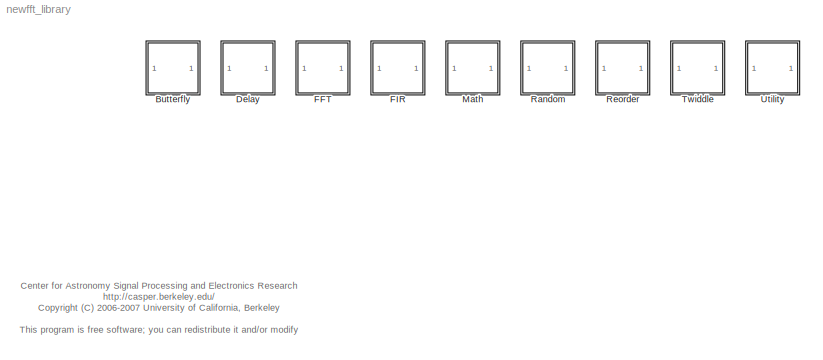
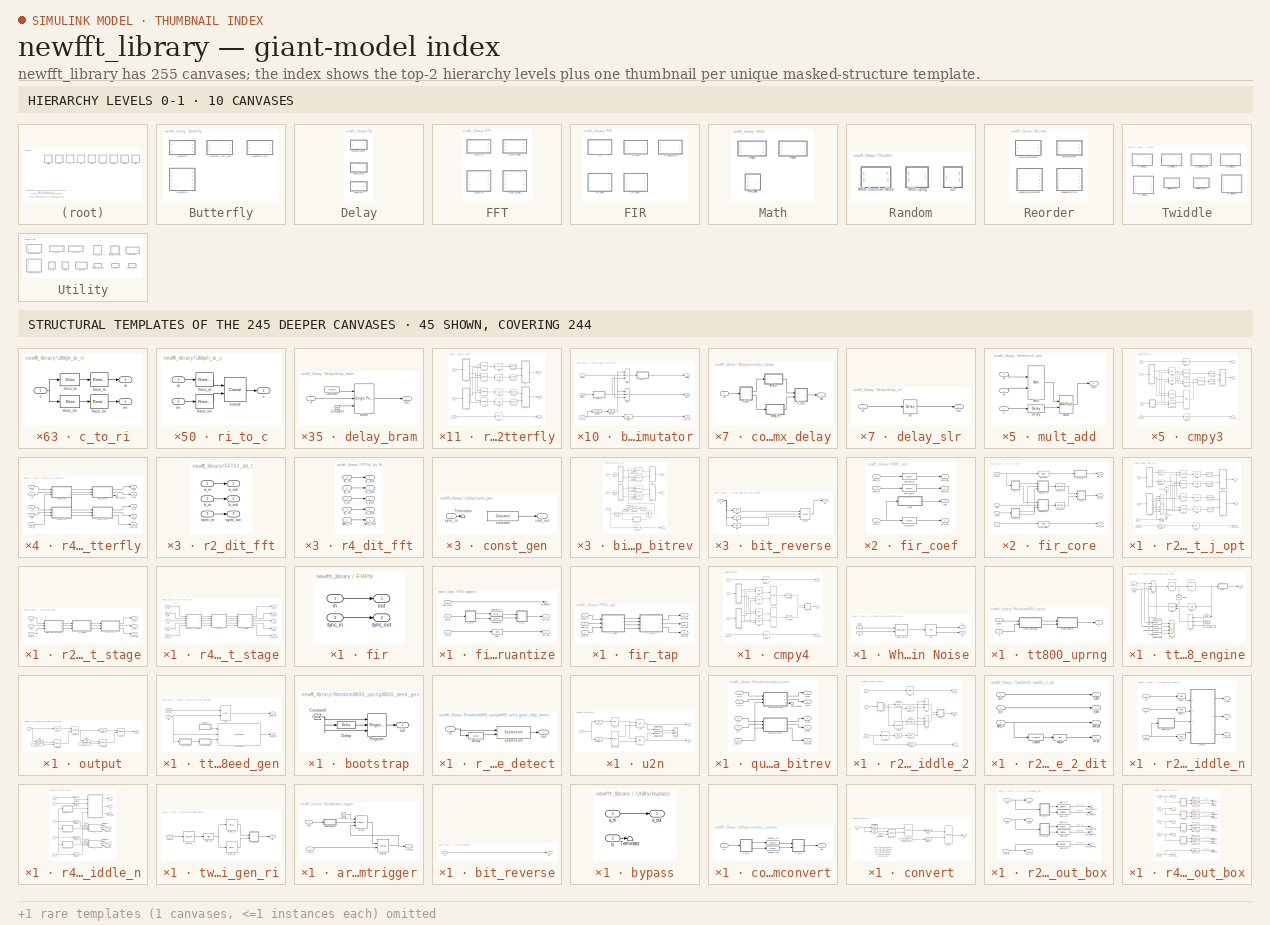
[diagram: thumbnail index - top-2 hierarchy levels (10 canvases) + 45 structural-template representatives of the remaining 245 canvases]
MODEL newfft_library
KIND library
CONFIG PostLoadFcn = % Stub definitions for mask variables\ndelay_depth=16;\nn_bits=8;\nbin_pt=7;
BLOCK [SubSystem] Butterfly
  MinAlgLoopOccurrences = off
  Ports = []
  RTWSystemCode = Auto
  TreatAsAtomicUnit = off
BLOCK [SubSystem] Butterfly/r2_butterfly
  AttributesFormatString = shift 0
  MaskCallbackString = |||
  MaskDescription = The radix-2 butterfly produces a+b and a-b outputs for a and b inputs.
  MaskEnableString = on,on,on,on
  MaskHelp = <pre>\nDescription::\n\nThe radix-2 butterfly produces a+b and a-b outputs for a and b inputs.\nThe outputs are one bit wider than the inputs.\nThe output precision (i.e. the number of fractional bits) stays the same.\n\nMask Parameters::\n\nBit Width In (n_bits): Specifies the width of the real/imaginary components.\nWidth of each component is assumed equal.\n\nShift Bits (shift): Specifies how m...<+418ch>  <repeated x8 — deduplicated; at blocks: r2_butterfly, butterfly0, butterfly1, butterfly2>
  MaskIconFrame = on
  MaskIconOpaque = on
  MaskIconRotate = none
  MaskIconUnits = autoscale
  MaskInitialization = return\nr2_butterfly_init(gcb, ...\n    n_bits,shift,quantization,add_latency);
  MaskPromptString = Bit Width In|Shift Bits|Quantization|Adder Latency
  MaskSelfModifiable = on
  MaskStyleString = edit,edit,popup(Truncate|Round  (unbiased: +/- Inf)|Round  (unbiased: Even Values)),edit
  MaskTabNameString = ,,,
  MaskToolTipString = on,on,on,on
  MaskTunableValueString = on,on,on,on
  MaskType = Radix-2 Butterfly
  MaskValueString = 8|0|Round  (unbiased: Even Values)|1
  MaskVarAliasString = ,,,
  MaskVariables = n_bits=@1;shift=@2;quantization=@3;add_latency=@4;
  MaskVisibilityString = on,on,on,on
  MinAlgLoopOccurrences = off
  Ports = [3, 3]
  RTWSystemCode = Auto
  TreatAsAtomicUnit = off
  UserData = DataTag0
  UserDataPersistent = on
BLOCK [Reference] Butterfly/r2_butterfly/Delay  REF=xbsIndex_r3/Delay
  Ports = [1, 1]
  SourceBlock = xbsIndex_r3/Delay
  SourceType = Xilinx Delay Block
  accept_only_valid = off
  dbl_ovrd = off
  en = off
  explicit_period = off
  init_zero = on
  latency = 1
  period = 1
  reg_retiming = off
  show_param = off
  xl_area = [0, 0, 0, 0, 0, 0, 0]
  xl_use_area = off
BLOCK [Inport] Butterfly/r2_butterfly/a
  IconDisplay = Port number
  LatchInput = off
  Port = 1
BLOCK [Outport] Butterfly/r2_butterfly/a+b
  BusOutputAsStruct = off
  IconDisplay = Port number
BLOCK [Outport] Butterfly/r2_butterfly/a-b
  BusOutputAsStruct = off
  IconDisplay = Port number
  Port = 2
BLOCK [Reference] Butterfly/r2_butterfly/add_im  REF=xbsIndex_r3/AddSub
  Ports = [2, 1]
  SourceBlock = xbsIndex_r3/AddSub
  SourceType = Xilinx Adder/Subtractor
  arith_type = Unsigned
  bin_pt = 2
  dbl_ovrd = off
  en = off
  explicit_period = off
  gen_core = off
  latency = 1
  mode = Addition
  n_bits = 8
  overflow = Wrap
  period = 1
  pipeline = on
  precision = Full
  quantization = Truncate
  show_param = on
  use_carryin = off
  use_carryout = off
  use_core = on
  use_rpm = on
  xl_area = [0, 0, 0, 0, 0, 0, 0]
  xl_use_area = off
BLOCK [Reference] Butterfly/r2_butterfly/add_re  REF=xbsIndex_r3/AddSub
  Ports = [2, 1]
  SourceBlock = xbsIndex_r3/AddSub
  SourceType = Xilinx Adder/Subtractor
  arith_type = Unsigned
  bin_pt = 2
  dbl_ovrd = off
  en = off
  explicit_period = off
  gen_core = off
  latency = 1
  mode = Addition
  n_bits = 8
  overflow = Wrap
  period = 1
  pipeline = on
  precision = Full
  quantization = Truncate
  show_param = on
  use_carryin = off
  use_carryout = off
  use_core = on
  use_rpm = on
  xl_area = [0, 0, 0, 0, 0, 0, 0]
  xl_use_area = off
BLOCK [Inport] Butterfly/r2_butterfly/b
  IconDisplay = Port number
  LatchInput = off
  Port = 2
BLOCK [SubSystem] Butterfly/r2_butterfly/c_to_ri
  AttributesFormatString = %<n_bits>_%<bin_pt> r/i
  MaskCallbackString = |
  MaskDescription = Outputs real and imaginary components of a complex input.
  MaskEnableString = on,on
  MaskHelp = <pre>\nDescription::\n\nOutputs real and imaginary components of a complex input.\nUseful for simplifying interconnects.\nSee also: Real-Imag to Complex (ri_to_c)\n\nMask Parameters::\n\nBit Width (n_bits): Specifies the width of the real/imaginary components.\nAssumed equal for both components.\n\nBinary Point (bin_pt): Specifies the binary point location in the real/imaginary components.\nAssume...<+36ch>  <repeated x63 — deduplicated; at blocks: c_to_ri, c_to_ri1, c_to_ri_d, c_to_ri_s, c_to_ri2, c_to_ri3>
  MaskIconFrame = on
  MaskIconOpaque = on
  MaskIconRotate = none
  MaskIconUnits = autoscale
  MaskInitialization = c_to_ri_init(gcb,n_bits,bin_pt);
  MaskPromptString = Bit Width|Binary Point
  MaskSelfModifiable = on
  MaskStyleString = edit,edit
  MaskTabNameString = ,
  MaskToolTipString = on,on
  MaskTunableValueString = on,on
  MaskType = Complex to Real-Imag
  MaskValueString = 8|0
  MaskVarAliasString = ,
  MaskVariables = n_bits=@1;bin_pt=@2;
  MaskVisibilityString = on,on
  MinAlgLoopOccurrences = off
  Ports = [1, 2]
  RTWSystemCode = Auto
  TreatAsAtomicUnit = off
  UserData = DataTag1
  UserDataPersistent = on
BLOCK [Inport] Butterfly/r2_butterfly/c_to_ri/c
  IconDisplay = Port number
  LatchInput = off
  Port = 1
BLOCK [Reference] Butterfly/r2_butterfly/c_to_ri/force_im  REF=xbsIndex_r3/Reinterpret
  Ports = [1, 1]
  SourceBlock = xbsIndex_r3/Reinterpret
  SourceType = Xilinx Type Reinterpreting Block
  arith_type = Signed  (2's comp)
  bin_pt = 0
  force_arith_type = on
  force_bin_pt = on
  force_valid = on
BLOCK [Reference] Butterfly/r2_butterfly/c_to_ri/force_re  REF=xbsIndex_r3/Reinterpret
  Ports = [1, 1]
  SourceBlock = xbsIndex_r3/Reinterpret
  SourceType = Xilinx Type Reinterpreting Block
  arith_type = Signed  (2's comp)
  bin_pt = 0
  force_arith_type = on
  force_bin_pt = on
  force_valid = on
BLOCK [Outport] Butterfly/r2_butterfly/c_to_ri/im
  BusOutputAsStruct = off
  IconDisplay = Port number
  Port = 2
BLOCK [Outport] Butterfly/r2_butterfly/c_to_ri/re
  BusOutputAsStruct = off
  IconDisplay = Port number
BLOCK [Reference] Butterfly/r2_butterfly/c_to_ri/slice_im  REF=xbsIndex_r3/Slice
  Ports = [1, 1]
  SourceBlock = xbsIndex_r3/Slice
  SourceType = Xilinx Slice Block
  base0 = LSB of Input
  base1 = MSB of Input
  bit0 = 0
  bit1 = 0
  boolean_output = off
  dbl_ovrd = off
  explicit_period = off
  mode = Lower Bit Location + Width
  nbits = 8
  period = 1
BLOCK [Reference] Butterfly/r2_butterfly/c_to_ri/slice_re  REF=xbsIndex_r3/Slice
  Ports = [1, 1]
  SourceBlock = xbsIndex_r3/Slice
  SourceType = Xilinx Slice Block
  base0 = LSB of Input
  base1 = MSB of Input
  bit0 = 0
  bit1 = 0
  boolean_output = off
  dbl_ovrd = off
  explicit_period = off
  mode = Upper Bit Location + Width
  nbits = 8
  period = 1
BLOCK [SubSystem] Butterfly/r2_butterfly/c_to_ri1
  AttributesFormatString = %<n_bits>_%<bin_pt> r/i
  MaskCallbackString = |
  MaskDescription = Outputs real and imaginary components of a complex input.
  MaskEnableString = on,on
  MaskIconFrame = on
  MaskIconOpaque = on
  MaskIconRotate = none
  MaskIconUnits = autoscale
  MaskInitialization = c_to_ri_init(gcb,n_bits,bin_pt);
  MaskPromptString = Bit Width|Binary Point
  MaskSelfModifiable = on
  MaskStyleString = edit,edit
  MaskTabNameString = ,
  MaskToolTipString = on,on
  MaskTunableValueString = on,on
  MaskType = Complex to Real-Imag
  MaskValueString = 8|0
  MaskVarAliasString = ,
  MaskVariables = n_bits=@1;bin_pt=@2;
  MaskVisibilityString = on,on
  MinAlgLoopOccurrences = off
  Ports = [1, 2]
  RTWSystemCode = Auto
  TreatAsAtomicUnit = off
  UserData = DataTag2
  UserDataPersistent = on
BLOCK [Inport] Butterfly/r2_butterfly/c_to_ri1/c
  IconDisplay = Port number
  LatchInput = off
  Port = 1
BLOCK [Reference] Butterfly/r2_butterfly/c_to_ri1/force_im  REF=xbsIndex_r3/Reinterpret
  Ports = [1, 1]
  SourceBlock = xbsIndex_r3/Reinterpret
  SourceType = Xilinx Type Reinterpreting Block
  arith_type = Signed  (2's comp)
  bin_pt = 0
  force_arith_type = on
  force_bin_pt = on
  force_valid = on
BLOCK [Reference] Butterfly/r2_butterfly/c_to_ri1/force_re  REF=xbsIndex_r3/Reinterpret
  Ports = [1, 1]
  SourceBlock = xbsIndex_r3/Reinterpret
  SourceType = Xilinx Type Reinterpreting Block
  arith_type = Signed  (2's comp)
  bin_pt = 0
  force_arith_type = on
  force_bin_pt = on
  force_valid = on
BLOCK [Outport] Butterfly/r2_butterfly/c_to_ri1/im
  BusOutputAsStruct = off
  IconDisplay = Port number
  Port = 2
BLOCK [Outport] Butterfly/r2_butterfly/c_to_ri1/re
  BusOutputAsStruct = off
  IconDisplay = Port number
BLOCK [Reference] Butterfly/r2_butterfly/c_to_ri1/slice_im  REF=xbsIndex_r3/Slice
  Ports = [1, 1]
  SourceBlock = xbsIndex_r3/Slice
  SourceType = Xilinx Slice Block
  base0 = LSB of Input
  base1 = MSB of Input
  bit0 = 0
  bit1 = 0
  boolean_output = off
  dbl_ovrd = off
  explicit_period = off
  mode = Lower Bit Location + Width
  nbits = 8
  period = 1
BLOCK [Reference] Butterfly/r2_butterfly/c_to_ri1/slice_re  REF=xbsIndex_r3/Slice
  Ports = [1, 1]
  SourceBlock = xbsIndex_r3/Slice
  SourceType = Xilinx Slice Block
  base0 = LSB of Input
  base1 = MSB of Input
  bit0 = 0
  bit1 = 0
  boolean_output = off
  dbl_ovrd = off
  explicit_period = off
  mode = Upper Bit Location + Width
  nbits = 8
  period = 1
BLOCK [Reference] Butterfly/r2_butterfly/requant0  REF=xbsIndex_r3/Convert
  Ports = [1, 1]
  SourceBlock = xbsIndex_r3/Convert
  SourceType = Xilinx Converter Block
  arith_type = Signed  (2's comp)
  bin_pt = 0
  dbl_ovrd = off
  explicit_period = off
  inserted_by_tool = off
  latency = 0
  n_bits = 9
  overflow = Wrap
  period = 1
  pipeline = on
  quantization = Truncate
  show_param = on
  xl_area = [0, 0, 0, 0, 0, 0, 0]
  xl_use_area = off
BLOCK [Reference] Butterfly/r2_butterfly/requant1  REF=xbsIndex_r3/Convert
  Ports = [1, 1]
  SourceBlock = xbsIndex_r3/Convert
  SourceType = Xilinx Converter Block
  arith_type = Signed  (2's comp)
  bin_pt = 0
  dbl_ovrd = off
  explicit_period = off
  inserted_by_tool = off
  latency = 0
  n_bits = 9
  overflow = Wrap
  period = 1
  pipeline = on
  quantization = Truncate
  show_param = on
  xl_area = [0, 0, 0, 0, 0, 0, 0]
  xl_use_area = off
BLOCK [Reference] Butterfly/r2_butterfly/requant2  REF=xbsIndex_r3/Convert
  Ports = [1, 1]
  SourceBlock = xbsIndex_r3/Convert
  SourceType = Xilinx Converter Block
  arith_type = Signed  (2's comp)
  bin_pt = 0
  dbl_ovrd = off
  explicit_period = off
  inserted_by_tool = off
  latency = 0
  n_bits = 9
  overflow = Wrap
  period = 1
  pipeline = on
  quantization = Truncate
  show_param = on
  xl_area = [0, 0, 0, 0, 0, 0, 0]
  xl_use_area = off
BLOCK [Reference] Butterfly/r2_butterfly/requant3  REF=xbsIndex_r3/Convert
  Ports = [1, 1]
  SourceBlock = xbsIndex_r3/Convert
  SourceType = Xilinx Converter Block
  arith_type = Signed  (2's comp)
  bin_pt = 0
  dbl_ovrd = off
  explicit_period = off
  inserted_by_tool = off
  latency = 0
  n_bits = 9
  overflow = Wrap
  period = 1
  pipeline = on
  quantization = Truncate
  show_param = on
  xl_area = [0, 0, 0, 0, 0, 0, 0]
  xl_use_area = off
BLOCK [SubSystem] Butterfly/r2_butterfly/ri_to_c
  MaskDescription = Concatenates real and imaginary inputs into a complex output.
  MaskHelp = <pre>\nDescription::\n\nConcatenates a real and imaginary input into a complex output.\nUseful for simplifying interconnects.\nSee also: Complex to Real-Imag (c_to_ri)\n\nMask Parameters::\n\n(N/A)\n</pre>  <repeated x50 — deduplicated; at blocks: ri_to_c, ri_to_c1>
  MaskIconFrame = on
  MaskIconOpaque = on
  MaskIconRotate = none
  MaskIconUnits = autoscale
  MaskInitialization = ri_to_c_init(gcb);
  MaskSelfModifiable = on
  MaskType = Real-Imag to Complex
  MinAlgLoopOccurrences = off
  Ports = [2, 1]
  RTWSystemCode = Auto
  TreatAsAtomicUnit = off
  UserData = DataTag3
  UserDataPersistent = on
BLOCK [Outport] Butterfly/r2_butterfly/ri_to_c/c
  BusOutputAsStruct = off
  IconDisplay = Port number
BLOCK [Reference] Butterfly/r2_butterfly/ri_to_c/concat  REF=xbsIndex_r3/Concat
  Ports = [2, 1]
  SourceBlock = xbsIndex_r3/Concat
  SourceType = Xilinx Bus Concatenator
  dbl_ovrd = off
  explicit_period = off
  num_inputs = 2
  period = 1
BLOCK [Reference] Butterfly/r2_butterfly/ri_to_c/force_im  REF=xbsIndex_r3/Reinterpret
  Ports = [1, 1]
  SourceBlock = xbsIndex_r3/Reinterpret
  SourceType = Xilinx Type Reinterpreting Block
  arith_type = Unsigned
  bin_pt = 0
  force_arith_type = on
  force_bin_pt = on
  force_valid = on
BLOCK [Reference] Butterfly/r2_butterfly/ri_to_c/force_re  REF=xbsIndex_r3/Reinterpret
  Ports = [1, 1]
  SourceBlock = xbsIndex_r3/Reinterpret
  SourceType = Xilinx Type Reinterpreting Block
  arith_type = Unsigned
  bin_pt = 0
  force_arith_type = on
  force_bin_pt = on
  force_valid = on
BLOCK [Inport] Butterfly/r2_butterfly/ri_to_c/im
  IconDisplay = Port number
  LatchInput = off
  Port = 2
BLOCK [Inport] Butterfly/r2_butterfly/ri_to_c/re
  IconDisplay = Port number
  LatchInput = off
  Port = 1
BLOCK [SubSystem] Butterfly/r2_butterfly/ri_to_c1
  MaskDescription = Concatenates real and imaginary inputs into a complex output.
  MaskIconFrame = on
  MaskIconOpaque = on
  MaskIconRotate = none
  MaskIconUnits = autoscale
  MaskInitialization = ri_to_c_init(gcb);
  MaskSelfModifiable = on
  MaskType = Real-Imag to Complex
  MinAlgLoopOccurrences = off
  Ports = [2, 1]
  RTWSystemCode = Auto
  TreatAsAtomicUnit = off
  UserData = DataTag4
  UserDataPersistent = on
BLOCK [Outport] Butterfly/r2_butterfly/ri_to_c1/c
  BusOutputAsStruct = off
  IconDisplay = Port number
BLOCK [Reference] Butterfly/r2_butterfly/ri_to_c1/concat  REF=xbsIndex_r3/Concat
  Ports = [2, 1]
  SourceBlock = xbsIndex_r3/Concat
  SourceType = Xilinx Bus Concatenator
  dbl_ovrd = off
  explicit_period = off
  num_inputs = 2
  period = 1
BLOCK [Reference] Butterfly/r2_butterfly/ri_to_c1/force_im  REF=xbsIndex_r3/Reinterpret
  Ports = [1, 1]
  SourceBlock = xbsIndex_r3/Reinterpret
  SourceType = Xilinx Type Reinterpreting Block
  arith_type = Unsigned
  bin_pt = 0
  force_arith_type = on
  force_bin_pt = on
  force_valid = on
BLOCK [Reference] Butterfly/r2_butterfly/ri_to_c1/force_re  REF=xbsIndex_r3/Reinterpret
  Ports = [1, 1]
  SourceBlock = xbsIndex_r3/Reinterpret
  SourceType = Xilinx Type Reinterpreting Block
  arith_type = Unsigned
  bin_pt = 0
  force_arith_type = on
  force_bin_pt = on
  force_valid = on
BLOCK [Inport] Butterfly/r2_butterfly/ri_to_c1/im
  IconDisplay = Port number
  LatchInput = off
  Port = 2
BLOCK [Inport] Butterfly/r2_butterfly/ri_to_c1/re
  IconDisplay = Port number
  LatchInput = off
  Port = 1
BLOCK [Reference] Butterfly/r2_butterfly/shift0  REF=xbsIndex_r3/Scale
  Ports = [1, 1]
  SourceBlock = xbsIndex_r3/Scale
  SourceType = Xilinx Scaling Block
  dbl_ovrd = off
  explicit_period = off
  period = 1
  scale_factor = 0
BLOCK [Reference] Butterfly/r2_butterfly/shift1  REF=xbsIndex_r3/Scale
  Ports = [1, 1]
  SourceBlock = xbsIndex_r3/Scale
  SourceType = Xilinx Scaling Block
  dbl_ovrd = off
  explicit_period = off
  period = 1
  scale_factor = 0
BLOCK [Reference] Butterfly/r2_butterfly/shift2  REF=xbsIndex_r3/Scale
  Ports = [1, 1]
  SourceBlock = xbsIndex_r3/Scale
  SourceType = Xilinx Scaling Block
  dbl_ovrd = off
  explicit_period = off
  period = 1
  scale_factor = 0
BLOCK [Reference] Butterfly/r2_butterfly/shift3  REF=xbsIndex_r3/Scale
  Ports = [1, 1]
  SourceBlock = xbsIndex_r3/Scale
  SourceType = Xilinx Scaling Block
  dbl_ovrd = off
  explicit_period = off
  period = 1
  scale_factor = 0
BLOCK [Reference] Butterfly/r2_butterfly/sub_im  REF=xbsIndex_r3/AddSub
  Ports = [2, 1]
  SourceBlock = xbsIndex_r3/AddSub
  SourceType = Xilinx Adder/Subtractor
  arith_type = Unsigned
  bin_pt = 2
  dbl_ovrd = off
  en = off
  explicit_period = off
  gen_core = off
  latency = 1
  mode = Subtraction
  n_bits = 8
  overflow = Wrap
  period = 1
  pipeline = on
  precision = Full
  quantization = Truncate
  show_param = on
  use_carryin = off
  use_carryout = off
  use_core = on
  use_rpm = on
  xl_area = [0, 0, 0, 0, 0, 0, 0]
  xl_use_area = off
BLOCK [Reference] Butterfly/r2_butterfly/sub_re  REF=xbsIndex_r3/AddSub
  Ports = [2, 1]
  SourceBlock = xbsIndex_r3/AddSub
  SourceType = Xilinx Adder/Subtractor
  arith_type = Unsigned
  bin_pt = 2
  dbl_ovrd = off
  en = off
  explicit_period = off
  gen_core = off
  latency = 1
  mode = Subtraction
  n_bits = 8
  overflow = Wrap
  period = 1
  pipeline = on
  precision = Full
  quantization = Truncate
  show_param = on
  use_carryin = off
  use_carryout = off
  use_core = on
  use_rpm = on
  xl_area = [0, 0, 0, 0, 0, 0, 0]
  xl_use_area = off
BLOCK [Inport] Butterfly/r2_butterfly/sync_in
  IconDisplay = Port number
  LatchInput = off
  Port = 3
BLOCK [Outport] Butterfly/r2_butterfly/sync_out
  BusOutputAsStruct = off
  IconDisplay = Port number
  Port = 3
BLOCK [SubSystem] Butterfly/r2_butterfly_dit_j
  AttributesFormatString = shift 0
  MaskCallbackString = |||
  MaskDescription = The radix-2 butterfly with fixed DIT -j twiddle produces a-jb on the a+b output and a+jb on the a-b output for a and b inputs.  It is intended for use within a radix-4 butterfly.
  MaskEnableString = on,on,on,on
  MaskHelp = <pre>\nDescription::\n\nThe radix-2 butterfly with fixed DIT -j twiddle produces a-jb on the a+b output\nand a+jb on the a-b output for a and b inputs.\n\nIt is intended for use within a radix-4 butterfly.\n\nThe outputs are one bit wider than the inputs.\nThe output precision (i.e. the number of fractional bits) stays the same.\n\nMask Parameters::\n\nBit Width In (n_bits): Specifies the width of...<+531ch>  <repeated x3 — deduplicated; at blocks: r2_butterfly_dit_j, butterfly3j>
  MaskIconFrame = on
  MaskIconOpaque = on
  MaskIconRotate = none
  MaskIconUnits = autoscale
  MaskInitialization = return\nr2_butterfly_init(gcb, ...\n    n_bits,shift,quantization,add_latency);
  MaskPromptString = Bit Width In|Shift Bits|Quantization|Adder Latency
  MaskSelfModifiable = on
  MaskStyleString = edit,edit,popup(Truncate|Round  (unbiased: +/- Inf)|Round  (unbiased: Even Values)),edit
  MaskTabNameString = ,,,
  MaskToolTipString = on,on,on,on
  MaskTunableValueString = on,on,on,on
  MaskType = Radix-2 Butterfly with fixed -j twiddle (DIT, twiddle before butterfly)
  MaskValueString = 8|0|Round  (unbiased: Even Values)|1
  MaskVarAliasString = ,,,
  MaskVariables = n_bits=@1;shift=@2;quantization=@3;add_latency=@4;
  MaskVisibilityString = on,on,on,on
  MinAlgLoopOccurrences = off
  Ports = [3, 3]
  RTWSystemCode = Auto
  TreatAsAtomicUnit = off
  UserData = DataTag5
  UserDataPersistent = on
BLOCK [Reference] Butterfly/r2_butterfly_dit_j/Delay  REF=xbsIndex_r3/Delay
  Ports = [1, 1]
  SourceBlock = xbsIndex_r3/Delay
  SourceType = Xilinx Delay Block
  accept_only_valid = off
  dbl_ovrd = off
  en = off
  explicit_period = off
  init_zero = on
  latency = 1
  period = 1
  reg_retiming = off
  show_param = off
  xl_area = [0, 0, 0, 0, 0, 0, 0]
  xl_use_area = off
BLOCK [Inport] Butterfly/r2_butterfly_dit_j/a
  IconDisplay = Port number
  LatchInput = off
  Port = 1
BLOCK [Outport] Butterfly/r2_butterfly_dit_j/a+b
  BusOutputAsStruct = off
  IconDisplay = Port number
BLOCK [Outport] Butterfly/r2_butterfly_dit_j/a-b
  BusOutputAsStruct = off
  IconDisplay = Port number
  Port = 2
BLOCK [Reference] Butterfly/r2_butterfly_dit_j/add_im  REF=xbsIndex_r3/AddSub
  Ports = [2, 1]
  SourceBlock = xbsIndex_r3/AddSub
  SourceType = Xilinx Adder/Subtractor
  arith_type = Unsigned
  bin_pt = 2
  dbl_ovrd = off
  en = off
  explicit_period = off
  gen_core = off
  latency = 1
  mode = Subtraction
  n_bits = 8
  overflow = Wrap
  period = 1
  pipeline = on
  precision = Full
  quantization = Truncate
  show_param = on
  use_carryin = off
  use_carryout = off
  use_core = on
  use_rpm = on
  xl_area = [0, 0, 0, 0, 0, 0, 0]
  xl_use_area = off
BLOCK [Reference] Butterfly/r2_butterfly_dit_j/add_re  REF=xbsIndex_r3/AddSub
  Ports = [2, 1]
  SourceBlock = xbsIndex_r3/AddSub
  SourceType = Xilinx Adder/Subtractor
  arith_type = Unsigned
  bin_pt = 2
  dbl_ovrd = off
  en = off
  explicit_period = off
  gen_core = off
  latency = 1
  mode = Addition
  n_bits = 8
  overflow = Wrap
  period = 1
  pipeline = on
  precision = Full
  quantization = Truncate
  show_param = on
  use_carryin = off
  use_carryout = off
  use_core = on
  use_rpm = on
  xl_area = [0, 0, 0, 0, 0, 0, 0]
  xl_use_area = off
BLOCK [Inport] Butterfly/r2_butterfly_dit_j/b
  IconDisplay = Port number
  LatchInput = off
  Port = 2
BLOCK [SubSystem] Butterfly/r2_butterfly_dit_j/c_to_ri
  AttributesFormatString = %<n_bits>_%<bin_pt> r/i
  MaskCallbackString = |
  MaskDescription = Outputs real and imaginary components of a complex input.
  MaskEnableString = on,on
  MaskIconFrame = on
  MaskIconOpaque = on
  MaskIconRotate = none
  MaskIconUnits = autoscale
  MaskInitialization = c_to_ri_init(gcb,n_bits,bin_pt);
  MaskPromptString = Bit Width|Binary Point
  MaskSelfModifiable = on
  MaskStyleString = edit,edit
  MaskTabNameString = ,
  MaskToolTipString = on,on
  MaskTunableValueString = on,on
  MaskType = Complex to Real-Imag
  MaskValueString = 8|0
  MaskVarAliasString = ,
  MaskVariables = n_bits=@1;bin_pt=@2;
  MaskVisibilityString = on,on
  MinAlgLoopOccurrences = off
  Ports = [1, 2]
  RTWSystemCode = Auto
  TreatAsAtomicUnit = off
  UserData = DataTag6
  UserDataPersistent = on
BLOCK [Inport] Butterfly/r2_butterfly_dit_j/c_to_ri/c
  IconDisplay = Port number
  LatchInput = off
  Port = 1
BLOCK [Reference] Butterfly/r2_butterfly_dit_j/c_to_ri/force_im  REF=xbsIndex_r3/Reinterpret
  Ports = [1, 1]
  SourceBlock = xbsIndex_r3/Reinterpret
  SourceType = Xilinx Type Reinterpreting Block
  arith_type = Signed  (2's comp)
  bin_pt = 0
  force_arith_type = on
  force_bin_pt = on
  force_valid = on
BLOCK [Reference] Butterfly/r2_butterfly_dit_j/c_to_ri/force_re  REF=xbsIndex_r3/Reinterpret
  Ports = [1, 1]
  SourceBlock = xbsIndex_r3/Reinterpret
  SourceType = Xilinx Type Reinterpreting Block
  arith_type = Signed  (2's comp)
  bin_pt = 0
  force_arith_type = on
  force_bin_pt = on
  force_valid = on
BLOCK [Outport] Butterfly/r2_butterfly_dit_j/c_to_ri/im
  BusOutputAsStruct = off
  IconDisplay = Port number
  Port = 2
BLOCK [Outport] Butterfly/r2_butterfly_dit_j/c_to_ri/re
  BusOutputAsStruct = off
  IconDisplay = Port number
BLOCK [Reference] Butterfly/r2_butterfly_dit_j/c_to_ri/slice_im  REF=xbsIndex_r3/Slice
  Ports = [1, 1]
  SourceBlock = xbsIndex_r3/Slice
  SourceType = Xilinx Slice Block
  base0 = LSB of Input
  base1 = MSB of Input
  bit0 = 0
  bit1 = 0
  boolean_output = off
  dbl_ovrd = off
  explicit_period = off
  mode = Lower Bit Location + Width
  nbits = 8
  period = 1
BLOCK [Reference] Butterfly/r2_butterfly_dit_j/c_to_ri/slice_re  REF=xbsIndex_r3/Slice
  Ports = [1, 1]
  SourceBlock = xbsIndex_r3/Slice
  SourceType = Xilinx Slice Block
  base0 = LSB of Input
  base1 = MSB of Input
  bit0 = 0
  bit1 = 0
  boolean_output = off
  dbl_ovrd = off
  explicit_period = off
  mode = Upper Bit Location + Width
  nbits = 8
  period = 1
BLOCK [SubSystem] Butterfly/r2_butterfly_dit_j/c_to_ri1
  AttributesFormatString = %<n_bits>_%<bin_pt> r/i
  MaskCallbackString = |
  MaskDescription = Outputs real and imaginary components of a complex input.
  MaskEnableString = on,on
  MaskIconFrame = on
  MaskIconOpaque = on
  MaskIconRotate = none
  MaskIconUnits = autoscale
  MaskInitialization = c_to_ri_init(gcb,n_bits,bin_pt);
  MaskPromptString = Bit Width|Binary Point
  MaskSelfModifiable = on
  MaskStyleString = edit,edit
  MaskTabNameString = ,
  MaskToolTipString = on,on
  MaskTunableValueString = on,on
  MaskType = Complex to Real-Imag
  MaskValueString = 8|0
  MaskVarAliasString = ,
  MaskVariables = n_bits=@1;bin_pt=@2;
  MaskVisibilityString = on,on
  MinAlgLoopOccurrences = off
  Ports = [1, 2]
  RTWSystemCode = Auto
  TreatAsAtomicUnit = off
  UserData = DataTag7
  UserDataPersistent = on
BLOCK [Inport] Butterfly/r2_butterfly_dit_j/c_to_ri1/c
  IconDisplay = Port number
  LatchInput = off
  Port = 1
BLOCK [Reference] Butterfly/r2_butterfly_dit_j/c_to_ri1/force_im  REF=xbsIndex_r3/Reinterpret
  Ports = [1, 1]
  SourceBlock = xbsIndex_r3/Reinterpret
  SourceType = Xilinx Type Reinterpreting Block
  arith_type = Signed  (2's comp)
  bin_pt = 0
  force_arith_type = on
  force_bin_pt = on
  force_valid = on
BLOCK [Reference] Butterfly/r2_butterfly_dit_j/c_to_ri1/force_re  REF=xbsIndex_r3/Reinterpret
  Ports = [1, 1]
  SourceBlock = xbsIndex_r3/Reinterpret
  SourceType = Xilinx Type Reinterpreting Block
  arith_type = Signed  (2's comp)
  bin_pt = 0
  force_arith_type = on
  force_bin_pt = on
  force_valid = on
BLOCK [Outport] Butterfly/r2_butterfly_dit_j/c_to_ri1/im
  BusOutputAsStruct = off
  IconDisplay = Port number
  Port = 2
BLOCK [Outport] Butterfly/r2_butterfly_dit_j/c_to_ri1/re
  BusOutputAsStruct = off
  IconDisplay = Port number
BLOCK [Reference] Butterfly/r2_butterfly_dit_j/c_to_ri1/slice_im  REF=xbsIndex_r3/Slice
  Ports = [1, 1]
  SourceBlock = xbsIndex_r3/Slice
  SourceType = Xilinx Slice Block
  base0 = LSB of Input
  base1 = MSB of Input
  bit0 = 0
  bit1 = 0
  boolean_output = off
  dbl_ovrd = off
  explicit_period = off
  mode = Lower Bit Location + Width
  nbits = 8
  period = 1
BLOCK [Reference] Butterfly/r2_butterfly_dit_j/c_to_ri1/slice_re  REF=xbsIndex_r3/Slice
  Ports = [1, 1]
  SourceBlock = xbsIndex_r3/Slice
  SourceType = Xilinx Slice Block
  base0 = LSB of Input
  base1 = MSB of Input
  bit0 = 0
  bit1 = 0
  boolean_output = off
  dbl_ovrd = off
  explicit_period = off
  mode = Upper Bit Location + Width
  nbits = 8
  period = 1
BLOCK [Reference] Butterfly/r2_butterfly_dit_j/requant0  REF=xbsIndex_r3/Convert
  Ports = [1, 1]
  SourceBlock = xbsIndex_r3/Convert
  SourceType = Xilinx Converter Block
  arith_type = Signed  (2's comp)
  bin_pt = 0
  dbl_ovrd = off
  explicit_period = off
  inserted_by_tool = off
  latency = 0
  n_bits = 9
  overflow = Wrap
  period = 1
  pipeline = on
  quantization = Truncate
  show_param = on
  xl_area = [0, 0, 0, 0, 0, 0, 0]
  xl_use_area = off
BLOCK [Reference] Butterfly/r2_butterfly_dit_j/requant1  REF=xbsIndex_r3/Convert
  Ports = [1, 1]
  SourceBlock = xbsIndex_r3/Convert
  SourceType = Xilinx Converter Block
  arith_type = Signed  (2's comp)
  bin_pt = 0
  dbl_ovrd = off
  explicit_period = off
  inserted_by_tool = off
  latency = 0
  n_bits = 9
  overflow = Wrap
  period = 1
  pipeline = on
  quantization = Truncate
  show_param = on
  xl_area = [0, 0, 0, 0, 0, 0, 0]
  xl_use_area = off
BLOCK [Reference] Butterfly/r2_butterfly_dit_j/requant2  REF=xbsIndex_r3/Convert
  Ports = [1, 1]
  SourceBlock = xbsIndex_r3/Convert
  SourceType = Xilinx Converter Block
  arith_type = Signed  (2's comp)
  bin_pt = 0
  dbl_ovrd = off
  explicit_period = off
  inserted_by_tool = off
  latency = 0
  n_bits = 9
  overflow = Wrap
  period = 1
  pipeline = on
  quantization = Truncate
  show_param = on
  xl_area = [0, 0, 0, 0, 0, 0, 0]
  xl_use_area = off
BLOCK [Reference] Butterfly/r2_butterfly_dit_j/requant3  REF=xbsIndex_r3/Convert
  Ports = [1, 1]
  SourceBlock = xbsIndex_r3/Convert
  SourceType = Xilinx Converter Block
  arith_type = Signed  (2's comp)
  bin_pt = 0
  dbl_ovrd = off
  explicit_period = off
  inserted_by_tool = off
  latency = 0
  n_bits = 9
  overflow = Wrap
  period = 1
  pipeline = on
  quantization = Truncate
  show_param = on
  xl_area = [0, 0, 0, 0, 0, 0, 0]
  xl_use_area = off
BLOCK [SubSystem] Butterfly/r2_butterfly_dit_j/ri_to_c
  MaskDescription = Concatenates real and imaginary inputs into a complex output.
  MaskIconFrame = on
  MaskIconOpaque = on
  MaskIconRotate = none
  MaskIconUnits = autoscale
  MaskInitialization = ri_to_c_init(gcb);
  MaskSelfModifiable = on
  MaskType = Real-Imag to Complex
  MinAlgLoopOccurrences = off
  Ports = [2, 1]
  RTWSystemCode = Auto
  TreatAsAtomicUnit = off
  UserData = DataTag8
  UserDataPersistent = on
BLOCK [Outport] Butterfly/r2_butterfly_dit_j/ri_to_c/c
  BusOutputAsStruct = off
  IconDisplay = Port number
BLOCK [Reference] Butterfly/r2_butterfly_dit_j/ri_to_c/concat  REF=xbsIndex_r3/Concat
  Ports = [2, 1]
  SourceBlock = xbsIndex_r3/Concat
  SourceType = Xilinx Bus Concatenator
  dbl_ovrd = off
  explicit_period = off
  num_inputs = 2
  period = 1
BLOCK [Reference] Butterfly/r2_butterfly_dit_j/ri_to_c/force_im  REF=xbsIndex_r3/Reinterpret
  Ports = [1, 1]
  SourceBlock = xbsIndex_r3/Reinterpret
  SourceType = Xilinx Type Reinterpreting Block
  arith_type = Unsigned
  bin_pt = 0
  force_arith_type = on
  force_bin_pt = on
  force_valid = on
BLOCK [Reference] Butterfly/r2_butterfly_dit_j/ri_to_c/force_re  REF=xbsIndex_r3/Reinterpret
  Ports = [1, 1]
  SourceBlock = xbsIndex_r3/Reinterpret
  SourceType = Xilinx Type Reinterpreting Block
  arith_type = Unsigned
  bin_pt = 0
  force_arith_type = on
  force_bin_pt = on
  force_valid = on
BLOCK [Inport] Butterfly/r2_butterfly_dit_j/ri_to_c/im
  IconDisplay = Port number
  LatchInput = off
  Port = 2
BLOCK [Inport] Butterfly/r2_butterfly_dit_j/ri_to_c/re
  IconDisplay = Port number
  LatchInput = off
  Port = 1
BLOCK [SubSystem] Butterfly/r2_butterfly_dit_j/ri_to_c1
  MaskDescription = Concatenates real and imaginary inputs into a complex output.
  MaskIconFrame = on
  MaskIconOpaque = on
  MaskIconRotate = none
  MaskIconUnits = autoscale
  MaskInitialization = ri_to_c_init(gcb);
  MaskSelfModifiable = on
  MaskType = Real-Imag to Complex
  MinAlgLoopOccurrences = off
  Ports = [2, 1]
  RTWSystemCode = Auto
  TreatAsAtomicUnit = off
  UserData = DataTag9
  UserDataPersistent = on
BLOCK [Outport] Butterfly/r2_butterfly_dit_j/ri_to_c1/c
  BusOutputAsStruct = off
  IconDisplay = Port number
BLOCK [Reference] Butterfly/r2_butterfly_dit_j/ri_to_c1/concat  REF=xbsIndex_r3/Concat
  Ports = [2, 1]
  SourceBlock = xbsIndex_r3/Concat
  SourceType = Xilinx Bus Concatenator
  dbl_ovrd = off
  explicit_period = off
  num_inputs = 2
  period = 1
BLOCK [Reference] Butterfly/r2_butterfly_dit_j/ri_to_c1/force_im  REF=xbsIndex_r3/Reinterpret
  Ports = [1, 1]
  SourceBlock = xbsIndex_r3/Reinterpret
  SourceType = Xilinx Type Reinterpreting Block
  arith_type = Unsigned
  bin_pt = 0
  force_arith_type = on
  force_bin_pt = on
  force_valid = on
BLOCK [Reference] Butterfly/r2_butterfly_dit_j/ri_to_c1/force_re  REF=xbsIndex_r3/Reinterpret
  Ports = [1, 1]
  SourceBlock = xbsIndex_r3/Reinterpret
  SourceType = Xilinx Type Reinterpreting Block
  arith_type = Unsigned
  bin_pt = 0
  force_arith_type = on
  force_bin_pt = on
  force_valid = on
BLOCK [Inport] Butterfly/r2_butterfly_dit_j/ri_to_c1/im
  IconDisplay = Port number
  LatchInput = off
  Port = 2
BLOCK [Inport] Butterfly/r2_butterfly_dit_j/ri_to_c1/re
  IconDisplay = Port number
  LatchInput = off
  Port = 1
BLOCK [Reference] Butterfly/r2_butterfly_dit_j/shift0  REF=xbsIndex_r3/Scale
  Ports = [1, 1]
  SourceBlock = xbsIndex_r3/Scale
  SourceType = Xilinx Scaling Block
  dbl_ovrd = off
  explicit_period = off
  period = 1
  scale_factor = 0
BLOCK [Reference] Butterfly/r2_butterfly_dit_j/shift1  REF=xbsIndex_r3/Scale
  Ports = [1, 1]
  SourceBlock = xbsIndex_r3/Scale
  SourceType = Xilinx Scaling Block
  dbl_ovrd = off
  explicit_period = off
  period = 1
  scale_factor = 0
BLOCK [Reference] Butterfly/r2_butterfly_dit_j/shift2  REF=xbsIndex_r3/Scale
  Ports = [1, 1]
  SourceBlock = xbsIndex_r3/Scale
  SourceType = Xilinx Scaling Block
  dbl_ovrd = off
  explicit_period = off
  period = 1
  scale_factor = 0
BLOCK [Reference] Butterfly/r2_butterfly_dit_j/shift3  REF=xbsIndex_r3/Scale
  Ports = [1, 1]
  SourceBlock = xbsIndex_r3/Scale
  SourceType = Xilinx Scaling Block
  dbl_ovrd = off
  explicit_period = off
  period = 1
  scale_factor = 0
BLOCK [Reference] Butterfly/r2_butterfly_dit_j/sub_im  REF=xbsIndex_r3/AddSub
  Ports = [2, 1]
  SourceBlock = xbsIndex_r3/AddSub
  SourceType = Xilinx Adder/Subtractor
  arith_type = Unsigned
  bin_pt = 2
  dbl_ovrd = off
  en = off
  explicit_period = off
  gen_core = off
  latency = 1
  mode = Addition
  n_bits = 8
  overflow = Wrap
  period = 1
  pipeline = on
  precision = Full
  quantization = Truncate
  show_param = on
  use_carryin = off
  use_carryout = off
  use_core = on
  use_rpm = on
  xl_area = [0, 0, 0, 0, 0, 0, 0]
  xl_use_area = off
BLOCK [Reference] Butterfly/r2_butterfly_dit_j/sub_re  REF=xbsIndex_r3/AddSub
  Ports = [2, 1]
  SourceBlock = xbsIndex_r3/AddSub
  SourceType = Xilinx Adder/Subtractor
  arith_type = Unsigned
  bin_pt = 2
  dbl_ovrd = off
  en = off
  explicit_period = off
  gen_core = off
  latency = 1
  mode = Subtraction
  n_bits = 8
  overflow = Wrap
  period = 1
  pipeline = on
  precision = Full
  quantization = Truncate
  show_param = on
  use_carryin = off
  use_carryout = off
  use_core = on
  use_rpm = on
  xl_area = [0, 0, 0, 0, 0, 0, 0]
  xl_use_area = off
BLOCK [Inport] Butterfly/r2_butterfly_dit_j/sync_in
  IconDisplay = Port number
  LatchInput = off
  Port = 3
BLOCK [Outport] Butterfly/r2_butterfly_dit_j/sync_out
  BusOutputAsStruct = off
  IconDisplay = Port number
  Port = 3
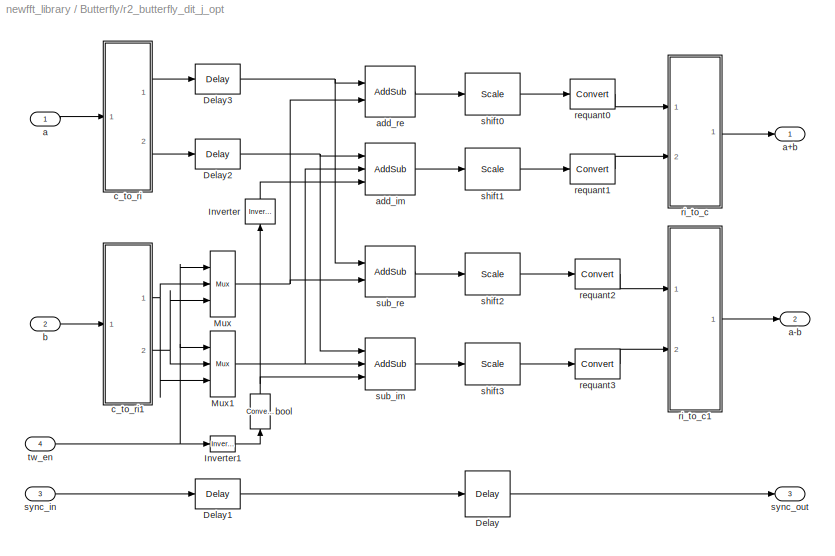
BLOCK [SubSystem] Butterfly/r2_butterfly_dit_j_opt
  AttributesFormatString = shift 0
  MaskCallbackString = |||
  MaskDescription = The radix-2 butterfly produces a+b and a-b outputs for a and b inputs.  This variation efficiently includes an optional -j twiddle factor that can be applied before the butterfly (suitable for use in stage two of a DIT FFT).
  MaskEnableString = on,on,on,on
  MaskHelp = <pre>\nDescription::\n\nThe radix-2 butterfly produces a+b and a-b outputs for a and b inputs.\nThis variation efficiently includes an optional -j twiddle factor that can be\napplied before the butterfly (suitable for use in stage two of a DIT FFT).\n\nThe -j twiddle factor is applied to tbe b input when tw_en is high,\nthus producing a-jb on the a+b output and a+jb on the a-b output.\n\nThe outpu...<+713ch>
  MaskIconFrame = on
  MaskIconOpaque = on
  MaskIconRotate = none
  MaskIconUnits = autoscale
  MaskInitialization = return\nr2_butterfly_init(gcb, ...\n    n_bits,shift,quantization,add_latency);
  MaskPromptString = Bit Width In|Shift Bits|Quantization|Adder Latency
  MaskSelfModifiable = on
  MaskStyleString = edit,edit,popup(Truncate|Round  (unbiased: +/- Inf)|Round  (unbiased: Even Values)),edit
  MaskTabNameString = ,,,
  MaskToolTipString = on,on,on,on
  MaskTunableValueString = on,on,on,on
  MaskType = Radix-2 Butterfly with optional -j twiddle (DIT, twiddle before butterfly)
  MaskValueString = 8|0|Round  (unbiased: Even Values)|1
  MaskVarAliasString = ,,,
  MaskVariables = n_bits=@1;shift=@2;quantization=@3;add_latency=@4;
  MaskVisibilityString = on,on,on,on
  MinAlgLoopOccurrences = off
  Ports = [4, 3]
  RTWSystemCode = Auto
  TreatAsAtomicUnit = off
  UserData = DataTag10
  UserDataPersistent = on
BLOCK [Reference] Butterfly/r2_butterfly_dit_j_opt/Delay  REF=xbsIndex_r3/Delay
  Ports = [1, 1]
  SourceBlock = xbsIndex_r3/Delay
  SourceType = Xilinx Delay Block
  accept_only_valid = off
  dbl_ovrd = off
  en = off
  explicit_period = off
  init_zero = on
  latency = 1
  period = 1
  reg_retiming = off
  show_param = off
  xl_area = [0, 0, 0, 0, 0, 0, 0]
  xl_use_area = off
BLOCK [Reference] Butterfly/r2_butterfly_dit_j_opt/Delay1  REF=xbsIndex_r3/Delay
  Ports = [1, 1]
  SourceBlock = xbsIndex_r3/Delay
  SourceType = Xilinx Delay Block
  accept_only_valid = off
  dbl_ovrd = off
  en = off
  explicit_period = off
  init_zero = on
  latency = 1
  period = 1
  reg_retiming = off
  show_param = off
  xl_area = [0, 0, 0, 0, 0, 0, 0]
  xl_use_area = off
BLOCK [Reference] Butterfly/r2_butterfly_dit_j_opt/Delay2  REF=xbsIndex_r3/Delay
  Ports = [1, 1]
  SourceBlock = xbsIndex_r3/Delay
  SourceType = Xilinx Delay Block
  accept_only_valid = off
  dbl_ovrd = off
  en = off
  explicit_period = off
  init_zero = on
  latency = 1
  period = 1
  reg_retiming = off
  show_param = off
  xl_area = [0, 0, 0, 0, 0, 0, 0]
  xl_use_area = off
BLOCK [Reference] Butterfly/r2_butterfly_dit_j_opt/Delay3  REF=xbsIndex_r3/Delay
  Ports = [1, 1]
  SourceBlock = xbsIndex_r3/Delay
  SourceType = Xilinx Delay Block
  accept_only_valid = off
  dbl_ovrd = off
  en = off
  explicit_period = off
  init_zero = on
  latency = 1
  period = 1
  reg_retiming = off
  show_param = off
  xl_area = [0, 0, 0, 0, 0, 0, 0]
  xl_use_area = off
BLOCK [Reference] Butterfly/r2_butterfly_dit_j_opt/Inverter  REF=xbsIndex_r3/Inverter
  Ports = [1, 1]
  SourceBlock = xbsIndex_r3/Inverter
  SourceType = Xilinx Inverter
  dbl_ovrd = off
  en = off
  explicit_period = off
  latency = 0
  period = 1
  show_param = off
  xl_area = [0, 0, 0, 0, 0, 0, 0]
  xl_use_area = off
BLOCK [Reference] Butterfly/r2_butterfly_dit_j_opt/Inverter1  REF=xbsIndex_r3/Inverter
  Ports = [1, 1]
  SourceBlock = xbsIndex_r3/Inverter
  SourceType = Xilinx Inverter
  dbl_ovrd = off
  en = off
  explicit_period = off
  latency = 1
  period = 1
  show_param = off
  xl_area = [0, 0, 0, 0, 0, 0, 0]
  xl_use_area = off
BLOCK [Reference] Butterfly/r2_butterfly_dit_j_opt/Mux  REF=xbsIndex_r3/Mux
  Ports = [3, 1]
  SourceBlock = xbsIndex_r3/Mux
  SourceType = Xilinx Multiplexer Block
  arith_type = Signed  (2's comp)
  bin_pt = 2
  dbl_ovrd = off
  en = off
  explicit_period = off
  gen_core = off
  inputs = 2
  latency = 1
  mux_type = off
  n_bits = 8
  overflow = Wrap
  period = 1
  precision = Full
  quantization = Truncate
  show_param = off
  use_rpm = off
  xl_area = [0, 0, 0, 0, 0, 0, 0]
  xl_use_area = off
BLOCK [Reference] Butterfly/r2_butterfly_dit_j_opt/Mux1  REF=xbsIndex_r3/Mux
  Ports = [3, 1]
  SourceBlock = xbsIndex_r3/Mux
  SourceType = Xilinx Multiplexer Block
  arith_type = Signed  (2's comp)
  bin_pt = 2
  dbl_ovrd = off
  en = off
  explicit_period = off
  gen_core = off
  inputs = 2
  latency = 1
  mux_type = off
  n_bits = 8
  overflow = Wrap
  period = 1
  precision = Full
  quantization = Truncate
  show_param = off
  use_rpm = off
  xl_area = [0, 0, 0, 0, 0, 0, 0]
  xl_use_area = off
BLOCK [Inport] Butterfly/r2_butterfly_dit_j_opt/a
  IconDisplay = Port number
  LatchInput = off
  Port = 1
BLOCK [Outport] Butterfly/r2_butterfly_dit_j_opt/a+b
  BusOutputAsStruct = off
  IconDisplay = Port number
BLOCK [Outport] Butterfly/r2_butterfly_dit_j_opt/a-b
  BusOutputAsStruct = off
  IconDisplay = Port number
  Port = 2
BLOCK [Reference] Butterfly/r2_butterfly_dit_j_opt/add_im  REF=xbsIndex_r3/AddSub
  Ports = [3, 1]
  SourceBlock = xbsIndex_r3/AddSub
  SourceType = Xilinx Adder/Subtractor
  arith_type = Unsigned
  bin_pt = 2
  dbl_ovrd = off
  en = off
  explicit_period = off
  gen_core = off
  latency = 1
  mode = Addition or Subtraction
  n_bits = 8
  overflow = Wrap
  period = 1
  pipeline = on
  precision = Full
  quantization = Truncate
  show_param = on
  use_carryin = off
  use_carryout = off
  use_core = on
  use_rpm = on
  xl_area = [0, 0, 0, 0, 0, 0, 0]
  xl_use_area = off
BLOCK [Reference] Butterfly/r2_butterfly_dit_j_opt/add_re  REF=xbsIndex_r3/AddSub
  Ports = [2, 1]
  SourceBlock = xbsIndex_r3/AddSub
  SourceType = Xilinx Adder/Subtractor
  arith_type = Unsigned
  bin_pt = 2
  dbl_ovrd = off
  en = off
  explicit_period = off
  gen_core = off
  latency = 1
  mode = Addition
  n_bits = 8
  overflow = Wrap
  period = 1
  pipeline = on
  precision = Full
  quantization = Truncate
  show_param = on
  use_carryin = off
  use_carryout = off
  use_core = on
  use_rpm = on
  xl_area = [0, 0, 0, 0, 0, 0, 0]
  xl_use_area = off
BLOCK [Inport] Butterfly/r2_butterfly_dit_j_opt/b
  IconDisplay = Port number
  LatchInput = off
  Port = 2
BLOCK [Reference] Butterfly/r2_butterfly_dit_j_opt/bool  REF=xbsIndex_r3/Convert
  Ports = [1, 1]
  SourceBlock = xbsIndex_r3/Convert
  SourceType = Xilinx Converter Block
  arith_type = Boolean
  bin_pt = 6
  dbl_ovrd = off
  explicit_period = off
  inserted_by_tool = off
  latency = 0
  n_bits = 8
  overflow = Wrap
  period = 1
  pipeline = off
  quantization = Truncate
  show_param = off
  xl_area = [0, 0, 0, 0, 0, 0, 0]
  xl_use_area = off
BLOCK [SubSystem] Butterfly/r2_butterfly_dit_j_opt/c_to_ri
  AttributesFormatString = %<n_bits>_%<bin_pt> r/i
  MaskCallbackString = |
  MaskDescription = Outputs real and imaginary components of a complex input.
  MaskEnableString = on,on
  MaskIconFrame = on
  MaskIconOpaque = on
  MaskIconRotate = none
  MaskIconUnits = autoscale
  MaskInitialization = c_to_ri_init(gcb,n_bits,bin_pt);
  MaskPromptString = Bit Width|Binary Point
  MaskSelfModifiable = on
  MaskStyleString = edit,edit
  MaskTabNameString = ,
  MaskToolTipString = on,on
  MaskTunableValueString = on,on
  MaskType = Complex to Real-Imag
  MaskValueString = 8|0
  MaskVarAliasString = ,
  MaskVariables = n_bits=@1;bin_pt=@2;
  MaskVisibilityString = on,on
  MinAlgLoopOccurrences = off
  Ports = [1, 2]
  RTWSystemCode = Auto
  TreatAsAtomicUnit = off
  UserData = DataTag11
  UserDataPersistent = on
BLOCK [Inport] Butterfly/r2_butterfly_dit_j_opt/c_to_ri/c
  IconDisplay = Port number
  LatchInput = off
  Port = 1
BLOCK [Reference] Butterfly/r2_butterfly_dit_j_opt/c_to_ri/force_im  REF=xbsIndex_r3/Reinterpret
  Ports = [1, 1]
  SourceBlock = xbsIndex_r3/Reinterpret
  SourceType = Xilinx Type Reinterpreting Block
  arith_type = Signed  (2's comp)
  bin_pt = 0
  force_arith_type = on
  force_bin_pt = on
  force_valid = on
BLOCK [Reference] Butterfly/r2_butterfly_dit_j_opt/c_to_ri/force_re  REF=xbsIndex_r3/Reinterpret
  Ports = [1, 1]
  SourceBlock = xbsIndex_r3/Reinterpret
  SourceType = Xilinx Type Reinterpreting Block
  arith_type = Signed  (2's comp)
  bin_pt = 0
  force_arith_type = on
  force_bin_pt = on
  force_valid = on
BLOCK [Outport] Butterfly/r2_butterfly_dit_j_opt/c_to_ri/im
  BusOutputAsStruct = off
  IconDisplay = Port number
  Port = 2
BLOCK [Outport] Butterfly/r2_butterfly_dit_j_opt/c_to_ri/re
  BusOutputAsStruct = off
  IconDisplay = Port number
BLOCK [Reference] Butterfly/r2_butterfly_dit_j_opt/c_to_ri/slice_im  REF=xbsIndex_r3/Slice
  Ports = [1, 1]
  SourceBlock = xbsIndex_r3/Slice
  SourceType = Xilinx Slice Block
  base0 = LSB of Input
  base1 = MSB of Input
  bit0 = 0
  bit1 = 0
  boolean_output = off
  dbl_ovrd = off
  explicit_period = off
  mode = Lower Bit Location + Width
  nbits = 8
  period = 1
BLOCK [Reference] Butterfly/r2_butterfly_dit_j_opt/c_to_ri/slice_re  REF=xbsIndex_r3/Slice
  Ports = [1, 1]
  SourceBlock = xbsIndex_r3/Slice
  SourceType = Xilinx Slice Block
  base0 = LSB of Input
  base1 = MSB of Input
  bit0 = 0
  bit1 = 0
  boolean_output = off
  dbl_ovrd = off
  explicit_period = off
  mode = Upper Bit Location + Width
  nbits = 8
  period = 1
BLOCK [SubSystem] Butterfly/r2_butterfly_dit_j_opt/c_to_ri1
  AttributesFormatString = %<n_bits>_%<bin_pt> r/i
  MaskCallbackString = |
  MaskDescription = Outputs real and imaginary components of a complex input.
  MaskEnableString = on,on
  MaskIconFrame = on
  MaskIconOpaque = on
  MaskIconRotate = none
  MaskIconUnits = autoscale
  MaskInitialization = c_to_ri_init(gcb,n_bits,bin_pt);
  MaskPromptString = Bit Width|Binary Point
  MaskSelfModifiable = on
  MaskStyleString = edit,edit
  MaskTabNameString = ,
  MaskToolTipString = on,on
  MaskTunableValueString = on,on
  MaskType = Complex to Real-Imag
  MaskValueString = 8|0
  MaskVarAliasString = ,
  MaskVariables = n_bits=@1;bin_pt=@2;
  MaskVisibilityString = on,on
  MinAlgLoopOccurrences = off
  Ports = [1, 2]
  RTWSystemCode = Auto
  TreatAsAtomicUnit = off
  UserData = DataTag12
  UserDataPersistent = on
BLOCK [Inport] Butterfly/r2_butterfly_dit_j_opt/c_to_ri1/c
  IconDisplay = Port number
  LatchInput = off
  Port = 1
BLOCK [Reference] Butterfly/r2_butterfly_dit_j_opt/c_to_ri1/force_im  REF=xbsIndex_r3/Reinterpret
  Ports = [1, 1]
  SourceBlock = xbsIndex_r3/Reinterpret
  SourceType = Xilinx Type Reinterpreting Block
  arith_type = Signed  (2's comp)
  bin_pt = 0
  force_arith_type = on
  force_bin_pt = on
  force_valid = on
BLOCK [Reference] Butterfly/r2_butterfly_dit_j_opt/c_to_ri1/force_re  REF=xbsIndex_r3/Reinterpret
  Ports = [1, 1]
  SourceBlock = xbsIndex_r3/Reinterpret
  SourceType = Xilinx Type Reinterpreting Block
  arith_type = Signed  (2's comp)
  bin_pt = 0
  force_arith_type = on
  force_bin_pt = on
  force_valid = on
BLOCK [Outport] Butterfly/r2_butterfly_dit_j_opt/c_to_ri1/im
  BusOutputAsStruct = off
  IconDisplay = Port number
  Port = 2
BLOCK [Outport] Butterfly/r2_butterfly_dit_j_opt/c_to_ri1/re
  BusOutputAsStruct = off
  IconDisplay = Port number
BLOCK [Reference] Butterfly/r2_butterfly_dit_j_opt/c_to_ri1/slice_im  REF=xbsIndex_r3/Slice
  Ports = [1, 1]
  SourceBlock = xbsIndex_r3/Slice
  SourceType = Xilinx Slice Block
  base0 = LSB of Input
  base1 = MSB of Input
  bit0 = 0
  bit1 = 0
  boolean_output = off
  dbl_ovrd = off
  explicit_period = off
  mode = Lower Bit Location + Width
  nbits = 8
  period = 1
BLOCK [Reference] Butterfly/r2_butterfly_dit_j_opt/c_to_ri1/slice_re  REF=xbsIndex_r3/Slice
  Ports = [1, 1]
  SourceBlock = xbsIndex_r3/Slice
  SourceType = Xilinx Slice Block
  base0 = LSB of Input
  base1 = MSB of Input
  bit0 = 0
  bit1 = 0
  boolean_output = off
  dbl_ovrd = off
  explicit_period = off
  mode = Upper Bit Location + Width
  nbits = 8
  period = 1
BLOCK [Reference] Butterfly/r2_butterfly_dit_j_opt/requant0  REF=xbsIndex_r3/Convert
  Ports = [1, 1]
  SourceBlock = xbsIndex_r3/Convert
  SourceType = Xilinx Converter Block
  arith_type = Signed  (2's comp)
  bin_pt = 0
  dbl_ovrd = off
  explicit_period = off
  inserted_by_tool = off
  latency = 0
  n_bits = 9
  overflow = Wrap
  period = 1
  pipeline = on
  quantization = Truncate
  show_param = on
  xl_area = [0, 0, 0, 0, 0, 0, 0]
  xl_use_area = off
BLOCK [Reference] Butterfly/r2_butterfly_dit_j_opt/requant1  REF=xbsIndex_r3/Convert
  Ports = [1, 1]
  SourceBlock = xbsIndex_r3/Convert
  SourceType = Xilinx Converter Block
  arith_type = Signed  (2's comp)
  bin_pt = 0
  dbl_ovrd = off
  explicit_period = off
  inserted_by_tool = off
  latency = 0
  n_bits = 9
  overflow = Wrap
  period = 1
  pipeline = on
  quantization = Truncate
  show_param = on
  xl_area = [0, 0, 0, 0, 0, 0, 0]
  xl_use_area = off
BLOCK [Reference] Butterfly/r2_butterfly_dit_j_opt/requant2  REF=xbsIndex_r3/Convert
  Ports = [1, 1]
  SourceBlock = xbsIndex_r3/Convert
  SourceType = Xilinx Converter Block
  arith_type = Signed  (2's comp)
  bin_pt = 0
  dbl_ovrd = off
  explicit_period = off
  inserted_by_tool = off
  latency = 0
  n_bits = 9
  overflow = Wrap
  period = 1
  pipeline = on
  quantization = Truncate
  show_param = on
  xl_area = [0, 0, 0, 0, 0, 0, 0]
  xl_use_area = off
BLOCK [Reference] Butterfly/r2_butterfly_dit_j_opt/requant3  REF=xbsIndex_r3/Convert
  Ports = [1, 1]
  SourceBlock = xbsIndex_r3/Convert
  SourceType = Xilinx Converter Block
  arith_type = Signed  (2's comp)
  bin_pt = 0
  dbl_ovrd = off
  explicit_period = off
  inserted_by_tool = off
  latency = 0
  n_bits = 9
  overflow = Wrap
  period = 1
  pipeline = on
  quantization = Truncate
  show_param = on
  xl_area = [0, 0, 0, 0, 0, 0, 0]
  xl_use_area = off
BLOCK [SubSystem] Butterfly/r2_butterfly_dit_j_opt/ri_to_c
  MaskDescription = Concatenates real and imaginary inputs into a complex output.
  MaskIconFrame = on
  MaskIconOpaque = on
  MaskIconRotate = none
  MaskIconUnits = autoscale
  MaskInitialization = ri_to_c_init(gcb);
  MaskSelfModifiable = on
  MaskType = Real-Imag to Complex
  MinAlgLoopOccurrences = off
  Ports = [2, 1]
  RTWSystemCode = Auto
  TreatAsAtomicUnit = off
  UserData = DataTag13
  UserDataPersistent = on
BLOCK [Outport] Butterfly/r2_butterfly_dit_j_opt/ri_to_c/c
  BusOutputAsStruct = off
  IconDisplay = Port number
BLOCK [Reference] Butterfly/r2_butterfly_dit_j_opt/ri_to_c/concat  REF=xbsIndex_r3/Concat
  Ports = [2, 1]
  SourceBlock = xbsIndex_r3/Concat
  SourceType = Xilinx Bus Concatenator
  dbl_ovrd = off
  explicit_period = off
  num_inputs = 2
  period = 1
BLOCK [Reference] Butterfly/r2_butterfly_dit_j_opt/ri_to_c/force_im  REF=xbsIndex_r3/Reinterpret
  Ports = [1, 1]
  SourceBlock = xbsIndex_r3/Reinterpret
  SourceType = Xilinx Type Reinterpreting Block
  arith_type = Unsigned
  bin_pt = 0
  force_arith_type = on
  force_bin_pt = on
  force_valid = on
BLOCK [Reference] Butterfly/r2_butterfly_dit_j_opt/ri_to_c/force_re  REF=xbsIndex_r3/Reinterpret
  Ports = [1, 1]
  SourceBlock = xbsIndex_r3/Reinterpret
  SourceType = Xilinx Type Reinterpreting Block
  arith_type = Unsigned
  bin_pt = 0
  force_arith_type = on
  force_bin_pt = on
  force_valid = on
BLOCK [Inport] Butterfly/r2_butterfly_dit_j_opt/ri_to_c/im
  IconDisplay = Port number
  LatchInput = off
  Port = 2
BLOCK [Inport] Butterfly/r2_butterfly_dit_j_opt/ri_to_c/re
  IconDisplay = Port number
  LatchInput = off
  Port = 1
BLOCK [SubSystem] Butterfly/r2_butterfly_dit_j_opt/ri_to_c1
  MaskDescription = Concatenates real and imaginary inputs into a complex output.
  MaskIconFrame = on
  MaskIconOpaque = on
  MaskIconRotate = none
  MaskIconUnits = autoscale
  MaskInitialization = ri_to_c_init(gcb);
  MaskSelfModifiable = on
  MaskType = Real-Imag to Complex
  MinAlgLoopOccurrences = off
  Ports = [2, 1]
  RTWSystemCode = Auto
  TreatAsAtomicUnit = off
  UserData = DataTag14
  UserDataPersistent = on
BLOCK [Outport] Butterfly/r2_butterfly_dit_j_opt/ri_to_c1/c
  BusOutputAsStruct = off
  IconDisplay = Port number
BLOCK [Reference] Butterfly/r2_butterfly_dit_j_opt/ri_to_c1/concat  REF=xbsIndex_r3/Concat
  Ports = [2, 1]
  SourceBlock = xbsIndex_r3/Concat
  SourceType = Xilinx Bus Concatenator
  dbl_ovrd = off
  explicit_period = off
  num_inputs = 2
  period = 1
BLOCK [Reference] Butterfly/r2_butterfly_dit_j_opt/ri_to_c1/force_im  REF=xbsIndex_r3/Reinterpret
  Ports = [1, 1]
  SourceBlock = xbsIndex_r3/Reinterpret
  SourceType = Xilinx Type Reinterpreting Block
  arith_type = Unsigned
  bin_pt = 0
  force_arith_type = on
  force_bin_pt = on
  force_valid = on
BLOCK [Reference] Butterfly/r2_butterfly_dit_j_opt/ri_to_c1/force_re  REF=xbsIndex_r3/Reinterpret
  Ports = [1, 1]
  SourceBlock = xbsIndex_r3/Reinterpret
  SourceType = Xilinx Type Reinterpreting Block
  arith_type = Unsigned
  bin_pt = 0
  force_arith_type = on
  force_bin_pt = on
  force_valid = on
BLOCK [Inport] Butterfly/r2_butterfly_dit_j_opt/ri_to_c1/im
  IconDisplay = Port number
  LatchInput = off
  Port = 2
BLOCK [Inport] Butterfly/r2_butterfly_dit_j_opt/ri_to_c1/re
  IconDisplay = Port number
  LatchInput = off
  Port = 1
BLOCK [Reference] Butterfly/r2_butterfly_dit_j_opt/shift0  REF=xbsIndex_r3/Scale
  Ports = [1, 1]
  SourceBlock = xbsIndex_r3/Scale
  SourceType = Xilinx Scaling Block
  dbl_ovrd = off
  explicit_period = off
  period = 1
  scale_factor = 0
BLOCK [Reference] Butterfly/r2_butterfly_dit_j_opt/shift1  REF=xbsIndex_r3/Scale
  Ports = [1, 1]
  SourceBlock = xbsIndex_r3/Scale
  SourceType = Xilinx Scaling Block
  dbl_ovrd = off
  explicit_period = off
  period = 1
  scale_factor = 0
BLOCK [Reference] Butterfly/r2_butterfly_dit_j_opt/shift2  REF=xbsIndex_r3/Scale
  Ports = [1, 1]
  SourceBlock = xbsIndex_r3/Scale
  SourceType = Xilinx Scaling Block
  dbl_ovrd = off
  explicit_period = off
  period = 1
  scale_factor = 0
BLOCK [Reference] Butterfly/r2_butterfly_dit_j_opt/shift3  REF=xbsIndex_r3/Scale
  Ports = [1, 1]
  SourceBlock = xbsIndex_r3/Scale
  SourceType = Xilinx Scaling Block
  dbl_ovrd = off
  explicit_period = off
  period = 1
  scale_factor = 0
BLOCK [Reference] Butterfly/r2_butterfly_dit_j_opt/sub_im  REF=xbsIndex_r3/AddSub
  Ports = [3, 1]
  SourceBlock = xbsIndex_r3/AddSub
  SourceType = Xilinx Adder/Subtractor
  arith_type = Unsigned
  bin_pt = 2
  dbl_ovrd = off
  en = off
  explicit_period = off
  gen_core = off
  latency = 1
  mode = Addition or Subtraction
  n_bits = 8
  overflow = Wrap
  period = 1
  pipeline = on
  precision = Full
  quantization = Truncate
  show_param = on
  use_carryin = off
  use_carryout = off
  use_core = on
  use_rpm = on
  xl_area = [0, 0, 0, 0, 0, 0, 0]
  xl_use_area = off
BLOCK [Reference] Butterfly/r2_butterfly_dit_j_opt/sub_re  REF=xbsIndex_r3/AddSub
  Ports = [2, 1]
  SourceBlock = xbsIndex_r3/AddSub
  SourceType = Xilinx Adder/Subtractor
  arith_type = Unsigned
  bin_pt = 2
  dbl_ovrd = off
  en = off
  explicit_period = off
  gen_core = off
  latency = 1
  mode = Subtraction
  n_bits = 8
  overflow = Wrap
  period = 1
  pipeline = on
  precision = Full
  quantization = Truncate
  show_param = on
  use_carryin = off
  use_carryout = off
  use_core = on
  use_rpm = on
  xl_area = [0, 0, 0, 0, 0, 0, 0]
  xl_use_area = off
BLOCK [Inport] Butterfly/r2_butterfly_dit_j_opt/sync_in
  IconDisplay = Port number
  LatchInput = off
  Port = 3
BLOCK [Outport] Butterfly/r2_butterfly_dit_j_opt/sync_out
  BusOutputAsStruct = off
  IconDisplay = Port number
  Port = 3
BLOCK [Inport] Butterfly/r2_butterfly_dit_j_opt/tw_en
  IconDisplay = Port number
  LatchInput = off
  Port = 4
BLOCK [SubSystem] Butterfly/r4_butterfly
  AttributesFormatString = shift 0
  MaskCallbackString = |||
  MaskDescription = The radix-4 butterfly performs a 4 point FFT on its four inputs (a_in,b_in,c_in,d_in), which are assumed to be in normal order.  Its ouputs (a_out,b_out,c_out,d_out) are in bit-reversed order (despite the lexigraphical ordering of the output port names).
  MaskEnableString = on,on,on,on
  MaskHelp = <pre>\nDescription::\n\nThe radix-4 butterfly performs a 4 point FFT on its four inputs (a_in,b_in,c_in,d_in),\nwhich are assumed to be in normal order.  Its ouputs (a_out,b_out,c_out,d_out) are\nin bit-reversed order (despite the lexigraphical ordering of the output port names).\n\nThe outputs are two bits wider than the inputs.\nThe output precision (i.e. the number of fractional bits) stays the...<+607ch>
  MaskIconFrame = on
  MaskIconOpaque = on
  MaskIconRotate = none
  MaskIconUnits = autoscale
  MaskInitialization = return\nr4_butterfly_init(gcb, ...\n    n_bits,shift,quantization,add_latency);\n
  MaskPromptString = Bit Width In|Shift Bits|Quantization|Adder Latency
  MaskSelfModifiable = on
  MaskStyleString = edit,edit,popup(Truncate|Round  (unbiased: +/- Inf)|Round  (unbiased: Even Values)),edit
  MaskTabNameString = ,,,
  MaskToolTipString = on,on,on,on
  MaskTunableValueString = on,on,on,on
  MaskType = Radix-4 Butterfly
  MaskValueString = 8|0|Round  (unbiased: Even Values)|1
  MaskVarAliasString = ,,,
  MaskVariables = n_bits=@1;shift=@2;quantization=@3;add_latency=@4;
  MaskVisibilityString = on,on,on,on
  MinAlgLoopOccurrences = off
  Ports = [5, 5]
  RTWSystemCode = Auto
  TreatAsAtomicUnit = off
  UserData = DataTag15
  UserDataPersistent = on
BLOCK [Terminator] Butterfly/r4_butterfly/Terminator
BLOCK [Inport] Butterfly/r4_butterfly/a_in
  IconDisplay = Port number
  LatchInput = off
  Port = 1
BLOCK [Outport] Butterfly/r4_butterfly/a_out
  BusOutputAsStruct = off
  IconDisplay = Port number
BLOCK [Inport] Butterfly/r4_butterfly/b_in
  IconDisplay = Port number
  LatchInput = off
  Port = 2
BLOCK [Outport] Butterfly/r4_butterfly/b_out
  BusOutputAsStruct = off
  IconDisplay = Port number
  Port = 2
BLOCK [SubSystem] Butterfly/r4_butterfly/butterfly0
  AttributesFormatString = shift 0
  MaskCallbackString = |||
  MaskDescription = The radix-2 butterfly produces a+b and a-b outputs for a and b inputs.
  MaskEnableString = on,on,on,on
  MaskIconFrame = on
  MaskIconOpaque = on
  MaskIconRotate = none
  MaskIconUnits = autoscale
  MaskInitialization = return\nr2_butterfly_init(gcb, ...\n    n_bits,shift,quantization,add_latency);
  MaskPromptString = Bit Width In|Shift Bits|Quantization|Adder Latency
  MaskSelfModifiable = on
  MaskStyleString = edit,edit,popup(Truncate|Round  (unbiased: +/- Inf)|Round  (unbiased: Even Values)),edit
  MaskTabNameString = ,,,
  MaskToolTipString = on,on,on,on
  MaskTunableValueString = on,on,on,on
  MaskType = Radix-2 Butterfly
  MaskValueString = 8|0|Truncate|1
  MaskVarAliasString = ,,,
  MaskVariables = n_bits=@1;shift=@2;quantization=@3;add_latency=@4;
  MaskVisibilityString = on,on,on,on
  MinAlgLoopOccurrences = off
  Ports = [3, 3]
  RTWSystemCode = Auto
  TreatAsAtomicUnit = off
  UserData = DataTag16
  UserDataPersistent = on
BLOCK [Reference] Butterfly/r4_butterfly/butterfly0/Delay  REF=xbsIndex_r3/Delay
  Ports = [1, 1]
  SourceBlock = xbsIndex_r3/Delay
  SourceType = Xilinx Delay Block
  accept_only_valid = off
  dbl_ovrd = off
  en = off
  explicit_period = off
  init_zero = on
  latency = 1
  period = 1
  reg_retiming = off
  show_param = off
  xl_area = [0, 0, 0, 0, 0, 0, 0]
  xl_use_area = off
BLOCK [Inport] Butterfly/r4_butterfly/butterfly0/a
  IconDisplay = Port number
  LatchInput = off
  Port = 1
BLOCK [Outport] Butterfly/r4_butterfly/butterfly0/a+b
  BusOutputAsStruct = off
  IconDisplay = Port number
BLOCK [Outport] Butterfly/r4_butterfly/butterfly0/a-b
  BusOutputAsStruct = off
  IconDisplay = Port number
  Port = 2
BLOCK [Reference] Butterfly/r4_butterfly/butterfly0/add_im  REF=xbsIndex_r3/AddSub
  Ports = [2, 1]
  SourceBlock = xbsIndex_r3/AddSub
  SourceType = Xilinx Adder/Subtractor
  arith_type = Unsigned
  bin_pt = 2
  dbl_ovrd = off
  en = off
  explicit_period = off
  gen_core = off
  latency = 1
  mode = Addition
  n_bits = 8
  overflow = Wrap
  period = 1
  pipeline = on
  precision = Full
  quantization = Truncate
  show_param = on
  use_carryin = off
  use_carryout = off
  use_core = on
  use_rpm = on
  xl_area = [0, 0, 0, 0, 0, 0, 0]
  xl_use_area = off
BLOCK [Reference] Butterfly/r4_butterfly/butterfly0/add_re  REF=xbsIndex_r3/AddSub
  Ports = [2, 1]
  SourceBlock = xbsIndex_r3/AddSub
  SourceType = Xilinx Adder/Subtractor
  arith_type = Unsigned
  bin_pt = 2
  dbl_ovrd = off
  en = off
  explicit_period = off
  gen_core = off
  latency = 1
  mode = Addition
  n_bits = 8
  overflow = Wrap
  period = 1
  pipeline = on
  precision = Full
  quantization = Truncate
  show_param = on
  use_carryin = off
  use_carryout = off
  use_core = on
  use_rpm = on
  xl_area = [0, 0, 0, 0, 0, 0, 0]
  xl_use_area = off
BLOCK [Inport] Butterfly/r4_butterfly/butterfly0/b
  IconDisplay = Port number
  LatchInput = off
  Port = 2
BLOCK [SubSystem] Butterfly/r4_butterfly/butterfly0/c_to_ri
  AttributesFormatString = %<n_bits>_%<bin_pt> r/i
  MaskCallbackString = |
  MaskDescription = Outputs real and imaginary components of a complex input.
  MaskEnableString = on,on
  MaskIconFrame = on
  MaskIconOpaque = on
  MaskIconRotate = none
  MaskIconUnits = autoscale
  MaskInitialization = c_to_ri_init(gcb,n_bits,bin_pt);
  MaskPromptString = Bit Width|Binary Point
  MaskSelfModifiable = on
  MaskStyleString = edit,edit
  MaskTabNameString = ,
  MaskToolTipString = on,on
  MaskTunableValueString = on,on
  MaskType = Complex to Real-Imag
  MaskValueString = 8|0
  MaskVarAliasString = ,
  MaskVariables = n_bits=@1;bin_pt=@2;
  MaskVisibilityString = on,on
  MinAlgLoopOccurrences = off
  Ports = [1, 2]
  RTWSystemCode = Auto
  TreatAsAtomicUnit = off
  UserData = DataTag17
  UserDataPersistent = on
BLOCK [Inport] Butterfly/r4_butterfly/butterfly0/c_to_ri/c
  IconDisplay = Port number
  LatchInput = off
  Port = 1
BLOCK [Reference] Butterfly/r4_butterfly/butterfly0/c_to_ri/force_im  REF=xbsIndex_r3/Reinterpret
  Ports = [1, 1]
  SourceBlock = xbsIndex_r3/Reinterpret
  SourceType = Xilinx Type Reinterpreting Block
  arith_type = Signed  (2's comp)
  bin_pt = 0
  force_arith_type = on
  force_bin_pt = on
  force_valid = on
BLOCK [Reference] Butterfly/r4_butterfly/butterfly0/c_to_ri/force_re  REF=xbsIndex_r3/Reinterpret
  Ports = [1, 1]
  SourceBlock = xbsIndex_r3/Reinterpret
  SourceType = Xilinx Type Reinterpreting Block
  arith_type = Signed  (2's comp)
  bin_pt = 0
  force_arith_type = on
  force_bin_pt = on
  force_valid = on
BLOCK [Outport] Butterfly/r4_butterfly/butterfly0/c_to_ri/im
  BusOutputAsStruct = off
  IconDisplay = Port number
  Port = 2
BLOCK [Outport] Butterfly/r4_butterfly/butterfly0/c_to_ri/re
  BusOutputAsStruct = off
  IconDisplay = Port number
BLOCK [Reference] Butterfly/r4_butterfly/butterfly0/c_to_ri/slice_im  REF=xbsIndex_r3/Slice
  Ports = [1, 1]
  SourceBlock = xbsIndex_r3/Slice
  SourceType = Xilinx Slice Block
  base0 = LSB of Input
  base1 = MSB of Input
  bit0 = 0
  bit1 = 0
  boolean_output = off
  dbl_ovrd = off
  explicit_period = off
  mode = Lower Bit Location + Width
  nbits = 8
  period = 1
BLOCK [Reference] Butterfly/r4_butterfly/butterfly0/c_to_ri/slice_re  REF=xbsIndex_r3/Slice
  Ports = [1, 1]
  SourceBlock = xbsIndex_r3/Slice
  SourceType = Xilinx Slice Block
  base0 = LSB of Input
  base1 = MSB of Input
  bit0 = 0
  bit1 = 0
  boolean_output = off
  dbl_ovrd = off
  explicit_period = off
  mode = Upper Bit Location + Width
  nbits = 8
  period = 1
BLOCK [SubSystem] Butterfly/r4_butterfly/butterfly0/c_to_ri1
  AttributesFormatString = %<n_bits>_%<bin_pt> r/i
  MaskCallbackString = |
  MaskDescription = Outputs real and imaginary components of a complex input.
  MaskEnableString = on,on
  MaskIconFrame = on
  MaskIconOpaque = on
  MaskIconRotate = none
  MaskIconUnits = autoscale
  MaskInitialization = c_to_ri_init(gcb,n_bits,bin_pt);
  MaskPromptString = Bit Width|Binary Point
  MaskSelfModifiable = on
  MaskStyleString = edit,edit
  MaskTabNameString = ,
  MaskToolTipString = on,on
  MaskTunableValueString = on,on
  MaskType = Complex to Real-Imag
  MaskValueString = 8|0
  MaskVarAliasString = ,
  MaskVariables = n_bits=@1;bin_pt=@2;
  MaskVisibilityString = on,on
  MinAlgLoopOccurrences = off
  Ports = [1, 2]
  RTWSystemCode = Auto
  TreatAsAtomicUnit = off
  UserData = DataTag18
  UserDataPersistent = on
BLOCK [Inport] Butterfly/r4_butterfly/butterfly0/c_to_ri1/c
  IconDisplay = Port number
  LatchInput = off
  Port = 1
BLOCK [Reference] Butterfly/r4_butterfly/butterfly0/c_to_ri1/force_im  REF=xbsIndex_r3/Reinterpret
  Ports = [1, 1]
  SourceBlock = xbsIndex_r3/Reinterpret
  SourceType = Xilinx Type Reinterpreting Block
  arith_type = Signed  (2's comp)
  bin_pt = 0
  force_arith_type = on
  force_bin_pt = on
  force_valid = on
BLOCK [Reference] Butterfly/r4_butterfly/butterfly0/c_to_ri1/force_re  REF=xbsIndex_r3/Reinterpret
  Ports = [1, 1]
  SourceBlock = xbsIndex_r3/Reinterpret
  SourceType = Xilinx Type Reinterpreting Block
  arith_type = Signed  (2's comp)
  bin_pt = 0
  force_arith_type = on
  force_bin_pt = on
  force_valid = on
BLOCK [Outport] Butterfly/r4_butterfly/butterfly0/c_to_ri1/im
  BusOutputAsStruct = off
  IconDisplay = Port number
  Port = 2
BLOCK [Outport] Butterfly/r4_butterfly/butterfly0/c_to_ri1/re
  BusOutputAsStruct = off
  IconDisplay = Port number
BLOCK [Reference] Butterfly/r4_butterfly/butterfly0/c_to_ri1/slice_im  REF=xbsIndex_r3/Slice
  Ports = [1, 1]
  SourceBlock = xbsIndex_r3/Slice
  SourceType = Xilinx Slice Block
  base0 = LSB of Input
  base1 = MSB of Input
  bit0 = 0
  bit1 = 0
  boolean_output = off
  dbl_ovrd = off
  explicit_period = off
  mode = Lower Bit Location + Width
  nbits = 8
  period = 1
BLOCK [Reference] Butterfly/r4_butterfly/butterfly0/c_to_ri1/slice_re  REF=xbsIndex_r3/Slice
  Ports = [1, 1]
  SourceBlock = xbsIndex_r3/Slice
  SourceType = Xilinx Slice Block
  base0 = LSB of Input
  base1 = MSB of Input
  bit0 = 0
  bit1 = 0
  boolean_output = off
  dbl_ovrd = off
  explicit_period = off
  mode = Upper Bit Location + Width
  nbits = 8
  period = 1
BLOCK [Reference] Butterfly/r4_butterfly/butterfly0/requant0  REF=xbsIndex_r3/Convert
  Ports = [1, 1]
  SourceBlock = xbsIndex_r3/Convert
  SourceType = Xilinx Converter Block
  arith_type = Signed  (2's comp)
  bin_pt = 0
  dbl_ovrd = off
  explicit_period = off
  inserted_by_tool = off
  latency = 0
  n_bits = 9
  overflow = Wrap
  period = 1
  pipeline = on
  quantization = Truncate
  show_param = on
  xl_area = [0, 0, 0, 0, 0, 0, 0]
  xl_use_area = off
BLOCK [Reference] Butterfly/r4_butterfly/butterfly0/requant1  REF=xbsIndex_r3/Convert
  Ports = [1, 1]
  SourceBlock = xbsIndex_r3/Convert
  SourceType = Xilinx Converter Block
  arith_type = Signed  (2's comp)
  bin_pt = 0
  dbl_ovrd = off
  explicit_period = off
  inserted_by_tool = off
  latency = 0
  n_bits = 9
  overflow = Wrap
  period = 1
  pipeline = on
  quantization = Truncate
  show_param = on
  xl_area = [0, 0, 0, 0, 0, 0, 0]
  xl_use_area = off
BLOCK [Reference] Butterfly/r4_butterfly/butterfly0/requant2  REF=xbsIndex_r3/Convert
  Ports = [1, 1]
  SourceBlock = xbsIndex_r3/Convert
  SourceType = Xilinx Converter Block
  arith_type = Signed  (2's comp)
  bin_pt = 0
  dbl_ovrd = off
  explicit_period = off
  inserted_by_tool = off
  latency = 0
  n_bits = 9
  overflow = Wrap
  period = 1
  pipeline = on
  quantization = Truncate
  show_param = on
  xl_area = [0, 0, 0, 0, 0, 0, 0]
  xl_use_area = off
BLOCK [Reference] Butterfly/r4_butterfly/butterfly0/requant3  REF=xbsIndex_r3/Convert
  Ports = [1, 1]
  SourceBlock = xbsIndex_r3/Convert
  SourceType = Xilinx Converter Block
  arith_type = Signed  (2's comp)
  bin_pt = 0
  dbl_ovrd = off
  explicit_period = off
  inserted_by_tool = off
  latency = 0
  n_bits = 9
  overflow = Wrap
  period = 1
  pipeline = on
  quantization = Truncate
  show_param = on
  xl_area = [0, 0, 0, 0, 0, 0, 0]
  xl_use_area = off
BLOCK [SubSystem] Butterfly/r4_butterfly/butterfly0/ri_to_c
  MaskDescription = Concatenates real and imaginary inputs into a complex output.
  MaskIconFrame = on
  MaskIconOpaque = on
  MaskIconRotate = none
  MaskIconUnits = autoscale
  MaskInitialization = ri_to_c_init(gcb);
  MaskSelfModifiable = on
  MaskType = Real-Imag to Complex
  MinAlgLoopOccurrences = off
  Ports = [2, 1]
  RTWSystemCode = Auto
  TreatAsAtomicUnit = off
  UserData = DataTag19
  UserDataPersistent = on
BLOCK [Outport] Butterfly/r4_butterfly/butterfly0/ri_to_c/c
  BusOutputAsStruct = off
  IconDisplay = Port number
BLOCK [Reference] Butterfly/r4_butterfly/butterfly0/ri_to_c/concat  REF=xbsIndex_r3/Concat
  Ports = [2, 1]
  SourceBlock = xbsIndex_r3/Concat
  SourceType = Xilinx Bus Concatenator
  dbl_ovrd = off
  explicit_period = off
  num_inputs = 2
  period = 1
BLOCK [Reference] Butterfly/r4_butterfly/butterfly0/ri_to_c/force_im  REF=xbsIndex_r3/Reinterpret
  Ports = [1, 1]
  SourceBlock = xbsIndex_r3/Reinterpret
  SourceType = Xilinx Type Reinterpreting Block
  arith_type = Unsigned
  bin_pt = 0
  force_arith_type = on
  force_bin_pt = on
  force_valid = on
BLOCK [Reference] Butterfly/r4_butterfly/butterfly0/ri_to_c/force_re  REF=xbsIndex_r3/Reinterpret
  Ports = [1, 1]
  SourceBlock = xbsIndex_r3/Reinterpret
  SourceType = Xilinx Type Reinterpreting Block
  arith_type = Unsigned
  bin_pt = 0
  force_arith_type = on
  force_bin_pt = on
  force_valid = on
BLOCK [Inport] Butterfly/r4_butterfly/butterfly0/ri_to_c/im
  IconDisplay = Port number
  LatchInput = off
  Port = 2
BLOCK [Inport] Butterfly/r4_butterfly/butterfly0/ri_to_c/re
  IconDisplay = Port number
  LatchInput = off
  Port = 1
BLOCK [SubSystem] Butterfly/r4_butterfly/butterfly0/ri_to_c1
  MaskDescription = Concatenates real and imaginary inputs into a complex output.
  MaskIconFrame = on
  MaskIconOpaque = on
  MaskIconRotate = none
  MaskIconUnits = autoscale
  MaskInitialization = ri_to_c_init(gcb);
  MaskSelfModifiable = on
  MaskType = Real-Imag to Complex
  MinAlgLoopOccurrences = off
  Ports = [2, 1]
  RTWSystemCode = Auto
  TreatAsAtomicUnit = off
  UserData = DataTag20
  UserDataPersistent = on
BLOCK [Outport] Butterfly/r4_butterfly/butterfly0/ri_to_c1/c
  BusOutputAsStruct = off
  IconDisplay = Port number
BLOCK [Reference] Butterfly/r4_butterfly/butterfly0/ri_to_c1/concat  REF=xbsIndex_r3/Concat
  Ports = [2, 1]
  SourceBlock = xbsIndex_r3/Concat
  SourceType = Xilinx Bus Concatenator
  dbl_ovrd = off
  explicit_period = off
  num_inputs = 2
  period = 1
BLOCK [Reference] Butterfly/r4_butterfly/butterfly0/ri_to_c1/force_im  REF=xbsIndex_r3/Reinterpret
  Ports = [1, 1]
  SourceBlock = xbsIndex_r3/Reinterpret
  SourceType = Xilinx Type Reinterpreting Block
  arith_type = Unsigned
  bin_pt = 0
  force_arith_type = on
  force_bin_pt = on
  force_valid = on
BLOCK [Reference] Butterfly/r4_butterfly/butterfly0/ri_to_c1/force_re  REF=xbsIndex_r3/Reinterpret
  Ports = [1, 1]
  SourceBlock = xbsIndex_r3/Reinterpret
  SourceType = Xilinx Type Reinterpreting Block
  arith_type = Unsigned
  bin_pt = 0
  force_arith_type = on
  force_bin_pt = on
  force_valid = on
BLOCK [Inport] Butterfly/r4_butterfly/butterfly0/ri_to_c1/im
  IconDisplay = Port number
  LatchInput = off
  Port = 2
BLOCK [Inport] Butterfly/r4_butterfly/butterfly0/ri_to_c1/re
  IconDisplay = Port number
  LatchInput = off
  Port = 1
BLOCK [Reference] Butterfly/r4_butterfly/butterfly0/shift0  REF=xbsIndex_r3/Scale
  Ports = [1, 1]
  SourceBlock = xbsIndex_r3/Scale
  SourceType = Xilinx Scaling Block
  dbl_ovrd = off
  explicit_period = off
  period = 1
  scale_factor = 0
BLOCK [Reference] Butterfly/r4_butterfly/butterfly0/shift1  REF=xbsIndex_r3/Scale
  Ports = [1, 1]
  SourceBlock = xbsIndex_r3/Scale
  SourceType = Xilinx Scaling Block
  dbl_ovrd = off
  explicit_period = off
  period = 1
  scale_factor = 0
BLOCK [Reference] Butterfly/r4_butterfly/butterfly0/shift2  REF=xbsIndex_r3/Scale
  Ports = [1, 1]
  SourceBlock = xbsIndex_r3/Scale
  SourceType = Xilinx Scaling Block
  dbl_ovrd = off
  explicit_period = off
  period = 1
  scale_factor = 0
BLOCK [Reference] Butterfly/r4_butterfly/butterfly0/shift3  REF=xbsIndex_r3/Scale
  Ports = [1, 1]
  SourceBlock = xbsIndex_r3/Scale
  SourceType = Xilinx Scaling Block
  dbl_ovrd = off
  explicit_period = off
  period = 1
  scale_factor = 0
BLOCK [Reference] Butterfly/r4_butterfly/butterfly0/sub_im  REF=xbsIndex_r3/AddSub
  Ports = [2, 1]
  SourceBlock = xbsIndex_r3/AddSub
  SourceType = Xilinx Adder/Subtractor
  arith_type = Unsigned
  bin_pt = 2
  dbl_ovrd = off
  en = off
  explicit_period = off
  gen_core = off
  latency = 1
  mode = Subtraction
  n_bits = 8
  overflow = Wrap
  period = 1
  pipeline = on
  precision = Full
  quantization = Truncate
  show_param = on
  use_carryin = off
  use_carryout = off
  use_core = on
  use_rpm = on
  xl_area = [0, 0, 0, 0, 0, 0, 0]
  xl_use_area = off
BLOCK [Reference] Butterfly/r4_butterfly/butterfly0/sub_re  REF=xbsIndex_r3/AddSub
  Ports = [2, 1]
  SourceBlock = xbsIndex_r3/AddSub
  SourceType = Xilinx Adder/Subtractor
  arith_type = Unsigned
  bin_pt = 2
  dbl_ovrd = off
  en = off
  explicit_period = off
  gen_core = off
  latency = 1
  mode = Subtraction
  n_bits = 8
  overflow = Wrap
  period = 1
  pipeline = on
  precision = Full
  quantization = Truncate
  show_param = on
  use_carryin = off
  use_carryout = off
  use_core = on
  use_rpm = on
  xl_area = [0, 0, 0, 0, 0, 0, 0]
  xl_use_area = off
BLOCK [Inport] Butterfly/r4_butterfly/butterfly0/sync_in
  IconDisplay = Port number
  LatchInput = off
  Port = 3
BLOCK [Outport] Butterfly/r4_butterfly/butterfly0/sync_out
  BusOutputAsStruct = off
  IconDisplay = Port number
  Port = 3
BLOCK [SubSystem] Butterfly/r4_butterfly/butterfly1
  AttributesFormatString = shift 0
  MaskCallbackString = |||
  MaskDescription = The radix-2 butterfly produces a+b and a-b outputs for a and b inputs.
  MaskEnableString = on,on,on,on
  MaskIconFrame = on
  MaskIconOpaque = on
  MaskIconRotate = none
  MaskIconUnits = autoscale
  MaskInitialization = return\nr2_butterfly_init(gcb, ...\n    n_bits,shift,quantization,add_latency);
  MaskPromptString = Bit Width In|Shift Bits|Quantization|Adder Latency
  MaskSelfModifiable = on
  MaskStyleString = edit,edit,popup(Truncate|Round  (unbiased: +/- Inf)|Round  (unbiased: Even Values)),edit
  MaskTabNameString = ,,,
  MaskToolTipString = on,on,on,on
  MaskTunableValueString = on,on,on,on
  MaskType = Radix-2 Butterfly
  MaskValueString = 8|0|Truncate|1
  MaskVarAliasString = ,,,
  MaskVariables = n_bits=@1;shift=@2;quantization=@3;add_latency=@4;
  MaskVisibilityString = on,on,on,on
  MinAlgLoopOccurrences = off
  Ports = [3, 3]
  RTWSystemCode = Auto
  TreatAsAtomicUnit = off
  UserData = DataTag21
  UserDataPersistent = on
BLOCK [Reference] Butterfly/r4_butterfly/butterfly1/Delay  REF=xbsIndex_r3/Delay
  Ports = [1, 1]
  SourceBlock = xbsIndex_r3/Delay
  SourceType = Xilinx Delay Block
  accept_only_valid = off
  dbl_ovrd = off
  en = off
  explicit_period = off
  init_zero = on
  latency = 1
  period = 1
  reg_retiming = off
  show_param = off
  xl_area = [0, 0, 0, 0, 0, 0, 0]
  xl_use_area = off
BLOCK [Inport] Butterfly/r4_butterfly/butterfly1/a
  IconDisplay = Port number
  LatchInput = off
  Port = 1
BLOCK [Outport] Butterfly/r4_butterfly/butterfly1/a+b
  BusOutputAsStruct = off
  IconDisplay = Port number
BLOCK [Outport] Butterfly/r4_butterfly/butterfly1/a-b
  BusOutputAsStruct = off
  IconDisplay = Port number
  Port = 2
BLOCK [Reference] Butterfly/r4_butterfly/butterfly1/add_im  REF=xbsIndex_r3/AddSub
  Ports = [2, 1]
  SourceBlock = xbsIndex_r3/AddSub
  SourceType = Xilinx Adder/Subtractor
  arith_type = Unsigned
  bin_pt = 2
  dbl_ovrd = off
  en = off
  explicit_period = off
  gen_core = off
  latency = 1
  mode = Addition
  n_bits = 8
  overflow = Wrap
  period = 1
  pipeline = on
  precision = Full
  quantization = Truncate
  show_param = on
  use_carryin = off
  use_carryout = off
  use_core = on
  use_rpm = on
  xl_area = [0, 0, 0, 0, 0, 0, 0]
  xl_use_area = off
BLOCK [Reference] Butterfly/r4_butterfly/butterfly1/add_re  REF=xbsIndex_r3/AddSub
  Ports = [2, 1]
  SourceBlock = xbsIndex_r3/AddSub
  SourceType = Xilinx Adder/Subtractor
  arith_type = Unsigned
  bin_pt = 2
  dbl_ovrd = off
  en = off
  explicit_period = off
  gen_core = off
  latency = 1
  mode = Addition
  n_bits = 8
  overflow = Wrap
  period = 1
  pipeline = on
  precision = Full
  quantization = Truncate
  show_param = on
  use_carryin = off
  use_carryout = off
  use_core = on
  use_rpm = on
  xl_area = [0, 0, 0, 0, 0, 0, 0]
  xl_use_area = off
BLOCK [Inport] Butterfly/r4_butterfly/butterfly1/b
  IconDisplay = Port number
  LatchInput = off
  Port = 2
BLOCK [SubSystem] Butterfly/r4_butterfly/butterfly1/c_to_ri
  AttributesFormatString = %<n_bits>_%<bin_pt> r/i
  MaskCallbackString = |
  MaskDescription = Outputs real and imaginary components of a complex input.
  MaskEnableString = on,on
  MaskIconFrame = on
  MaskIconOpaque = on
  MaskIconRotate = none
  MaskIconUnits = autoscale
  MaskInitialization = c_to_ri_init(gcb,n_bits,bin_pt);
  MaskPromptString = Bit Width|Binary Point
  MaskSelfModifiable = on
  MaskStyleString = edit,edit
  MaskTabNameString = ,
  MaskToolTipString = on,on
  MaskTunableValueString = on,on
  MaskType = Complex to Real-Imag
  MaskValueString = 8|0
  MaskVarAliasString = ,
  MaskVariables = n_bits=@1;bin_pt=@2;
  MaskVisibilityString = on,on
  MinAlgLoopOccurrences = off
  Ports = [1, 2]
  RTWSystemCode = Auto
  TreatAsAtomicUnit = off
  UserData = DataTag22
  UserDataPersistent = on
BLOCK [Inport] Butterfly/r4_butterfly/butterfly1/c_to_ri/c
  IconDisplay = Port number
  LatchInput = off
  Port = 1
BLOCK [Reference] Butterfly/r4_butterfly/butterfly1/c_to_ri/force_im  REF=xbsIndex_r3/Reinterpret
  Ports = [1, 1]
  SourceBlock = xbsIndex_r3/Reinterpret
  SourceType = Xilinx Type Reinterpreting Block
  arith_type = Signed  (2's comp)
  bin_pt = 0
  force_arith_type = on
  force_bin_pt = on
  force_valid = on
BLOCK [Reference] Butterfly/r4_butterfly/butterfly1/c_to_ri/force_re  REF=xbsIndex_r3/Reinterpret
  Ports = [1, 1]
  SourceBlock = xbsIndex_r3/Reinterpret
  SourceType = Xilinx Type Reinterpreting Block
  arith_type = Signed  (2's comp)
  bin_pt = 0
  force_arith_type = on
  force_bin_pt = on
  force_valid = on
BLOCK [Outport] Butterfly/r4_butterfly/butterfly1/c_to_ri/im
  BusOutputAsStruct = off
  IconDisplay = Port number
  Port = 2
BLOCK [Outport] Butterfly/r4_butterfly/butterfly1/c_to_ri/re
  BusOutputAsStruct = off
  IconDisplay = Port number
BLOCK [Reference] Butterfly/r4_butterfly/butterfly1/c_to_ri/slice_im  REF=xbsIndex_r3/Slice
  Ports = [1, 1]
  SourceBlock = xbsIndex_r3/Slice
  SourceType = Xilinx Slice Block
  base0 = LSB of Input
  base1 = MSB of Input
  bit0 = 0
  bit1 = 0
  boolean_output = off
  dbl_ovrd = off
  explicit_period = off
  mode = Lower Bit Location + Width
  nbits = 8
  period = 1
BLOCK [Reference] Butterfly/r4_butterfly/butterfly1/c_to_ri/slice_re  REF=xbsIndex_r3/Slice
  Ports = [1, 1]
  SourceBlock = xbsIndex_r3/Slice
  SourceType = Xilinx Slice Block
  base0 = LSB of Input
  base1 = MSB of Input
  bit0 = 0
  bit1 = 0
  boolean_output = off
  dbl_ovrd = off
  explicit_period = off
  mode = Upper Bit Location + Width
  nbits = 8
  period = 1
BLOCK [SubSystem] Butterfly/r4_butterfly/butterfly1/c_to_ri1
  AttributesFormatString = %<n_bits>_%<bin_pt> r/i
  MaskCallbackString = |
  MaskDescription = Outputs real and imaginary components of a complex input.
  MaskEnableString = on,on
  MaskIconFrame = on
  MaskIconOpaque = on
  MaskIconRotate = none
  MaskIconUnits = autoscale
  MaskInitialization = c_to_ri_init(gcb,n_bits,bin_pt);
  MaskPromptString = Bit Width|Binary Point
  MaskSelfModifiable = on
  MaskStyleString = edit,edit
  MaskTabNameString = ,
  MaskToolTipString = on,on
  MaskTunableValueString = on,on
  MaskType = Complex to Real-Imag
  MaskValueString = 8|0
  MaskVarAliasString = ,
  MaskVariables = n_bits=@1;bin_pt=@2;
  MaskVisibilityString = on,on
  MinAlgLoopOccurrences = off
  Ports = [1, 2]
  RTWSystemCode = Auto
  TreatAsAtomicUnit = off
  UserData = DataTag23
  UserDataPersistent = on
BLOCK [Inport] Butterfly/r4_butterfly/butterfly1/c_to_ri1/c
  IconDisplay = Port number
  LatchInput = off
  Port = 1
BLOCK [Reference] Butterfly/r4_butterfly/butterfly1/c_to_ri1/force_im  REF=xbsIndex_r3/Reinterpret
  Ports = [1, 1]
  SourceBlock = xbsIndex_r3/Reinterpret
  SourceType = Xilinx Type Reinterpreting Block
  arith_type = Signed  (2's comp)
  bin_pt = 0
  force_arith_type = on
  force_bin_pt = on
  force_valid = on
BLOCK [Reference] Butterfly/r4_butterfly/butterfly1/c_to_ri1/force_re  REF=xbsIndex_r3/Reinterpret
  Ports = [1, 1]
  SourceBlock = xbsIndex_r3/Reinterpret
  SourceType = Xilinx Type Reinterpreting Block
  arith_type = Signed  (2's comp)
  bin_pt = 0
  force_arith_type = on
  force_bin_pt = on
  force_valid = on
BLOCK [Outport] Butterfly/r4_butterfly/butterfly1/c_to_ri1/im
  BusOutputAsStruct = off
  IconDisplay = Port number
  Port = 2
BLOCK [Outport] Butterfly/r4_butterfly/butterfly1/c_to_ri1/re
  BusOutputAsStruct = off
  IconDisplay = Port number
BLOCK [Reference] Butterfly/r4_butterfly/butterfly1/c_to_ri1/slice_im  REF=xbsIndex_r3/Slice
  Ports = [1, 1]
  SourceBlock = xbsIndex_r3/Slice
  SourceType = Xilinx Slice Block
  base0 = LSB of Input
  base1 = MSB of Input
  bit0 = 0
  bit1 = 0
  boolean_output = off
  dbl_ovrd = off
  explicit_period = off
  mode = Lower Bit Location + Width
  nbits = 8
  period = 1
BLOCK [Reference] Butterfly/r4_butterfly/butterfly1/c_to_ri1/slice_re  REF=xbsIndex_r3/Slice
  Ports = [1, 1]
  SourceBlock = xbsIndex_r3/Slice
  SourceType = Xilinx Slice Block
  base0 = LSB of Input
  base1 = MSB of Input
  bit0 = 0
  bit1 = 0
  boolean_output = off
  dbl_ovrd = off
  explicit_period = off
  mode = Upper Bit Location + Width
  nbits = 8
  period = 1
BLOCK [Reference] Butterfly/r4_butterfly/butterfly1/requant0  REF=xbsIndex_r3/Convert
  Ports = [1, 1]
  SourceBlock = xbsIndex_r3/Convert
  SourceType = Xilinx Converter Block
  arith_type = Signed  (2's comp)
  bin_pt = 0
  dbl_ovrd = off
  explicit_period = off
  inserted_by_tool = off
  latency = 0
  n_bits = 9
  overflow = Wrap
  period = 1
  pipeline = on
  quantization = Truncate
  show_param = on
  xl_area = [0, 0, 0, 0, 0, 0, 0]
  xl_use_area = off
BLOCK [Reference] Butterfly/r4_butterfly/butterfly1/requant1  REF=xbsIndex_r3/Convert
  Ports = [1, 1]
  SourceBlock = xbsIndex_r3/Convert
  SourceType = Xilinx Converter Block
  arith_type = Signed  (2's comp)
  bin_pt = 0
  dbl_ovrd = off
  explicit_period = off
  inserted_by_tool = off
  latency = 0
  n_bits = 9
  overflow = Wrap
  period = 1
  pipeline = on
  quantization = Truncate
  show_param = on
  xl_area = [0, 0, 0, 0, 0, 0, 0]
  xl_use_area = off
BLOCK [Reference] Butterfly/r4_butterfly/butterfly1/requant2  REF=xbsIndex_r3/Convert
  Ports = [1, 1]
  SourceBlock = xbsIndex_r3/Convert
  SourceType = Xilinx Converter Block
  arith_type = Signed  (2's comp)
  bin_pt = 0
  dbl_ovrd = off
  explicit_period = off
  inserted_by_tool = off
  latency = 0
  n_bits = 9
  overflow = Wrap
  period = 1
  pipeline = on
  quantization = Truncate
  show_param = on
  xl_area = [0, 0, 0, 0, 0, 0, 0]
  xl_use_area = off
BLOCK [Reference] Butterfly/r4_butterfly/butterfly1/requant3  REF=xbsIndex_r3/Convert
  Ports = [1, 1]
  SourceBlock = xbsIndex_r3/Convert
  SourceType = Xilinx Converter Block
  arith_type = Signed  (2's comp)
  bin_pt = 0
  dbl_ovrd = off
  explicit_period = off
  inserted_by_tool = off
  latency = 0
  n_bits = 9
  overflow = Wrap
  period = 1
  pipeline = on
  quantization = Truncate
  show_param = on
  xl_area = [0, 0, 0, 0, 0, 0, 0]
  xl_use_area = off
BLOCK [SubSystem] Butterfly/r4_butterfly/butterfly1/ri_to_c
  MaskDescription = Concatenates real and imaginary inputs into a complex output.
  MaskIconFrame = on
  MaskIconOpaque = on
  MaskIconRotate = none
  MaskIconUnits = autoscale
  MaskInitialization = ri_to_c_init(gcb);
  MaskSelfModifiable = on
  MaskType = Real-Imag to Complex
  MinAlgLoopOccurrences = off
  Ports = [2, 1]
  RTWSystemCode = Auto
  TreatAsAtomicUnit = off
  UserData = DataTag24
  UserDataPersistent = on
BLOCK [Outport] Butterfly/r4_butterfly/butterfly1/ri_to_c/c
  BusOutputAsStruct = off
  IconDisplay = Port number
BLOCK [Reference] Butterfly/r4_butterfly/butterfly1/ri_to_c/concat  REF=xbsIndex_r3/Concat
  Ports = [2, 1]
  SourceBlock = xbsIndex_r3/Concat
  SourceType = Xilinx Bus Concatenator
  dbl_ovrd = off
  explicit_period = off
  num_inputs = 2
  period = 1
BLOCK [Reference] Butterfly/r4_butterfly/butterfly1/ri_to_c/force_im  REF=xbsIndex_r3/Reinterpret
  Ports = [1, 1]
  SourceBlock = xbsIndex_r3/Reinterpret
  SourceType = Xilinx Type Reinterpreting Block
  arith_type = Unsigned
  bin_pt = 0
  force_arith_type = on
  force_bin_pt = on
  force_valid = on
BLOCK [Reference] Butterfly/r4_butterfly/butterfly1/ri_to_c/force_re  REF=xbsIndex_r3/Reinterpret
  Ports = [1, 1]
  SourceBlock = xbsIndex_r3/Reinterpret
  SourceType = Xilinx Type Reinterpreting Block
  arith_type = Unsigned
  bin_pt = 0
  force_arith_type = on
  force_bin_pt = on
  force_valid = on
BLOCK [Inport] Butterfly/r4_butterfly/butterfly1/ri_to_c/im
  IconDisplay = Port number
  LatchInput = off
  Port = 2
BLOCK [Inport] Butterfly/r4_butterfly/butterfly1/ri_to_c/re
  IconDisplay = Port number
  LatchInput = off
  Port = 1
BLOCK [SubSystem] Butterfly/r4_butterfly/butterfly1/ri_to_c1
  MaskDescription = Concatenates real and imaginary inputs into a complex output.
  MaskIconFrame = on
  MaskIconOpaque = on
  MaskIconRotate = none
  MaskIconUnits = autoscale
  MaskInitialization = ri_to_c_init(gcb);
  MaskSelfModifiable = on
  MaskType = Real-Imag to Complex
  MinAlgLoopOccurrences = off
  Ports = [2, 1]
  RTWSystemCode = Auto
  TreatAsAtomicUnit = off
  UserData = DataTag25
  UserDataPersistent = on
BLOCK [Outport] Butterfly/r4_butterfly/butterfly1/ri_to_c1/c
  BusOutputAsStruct = off
  IconDisplay = Port number
BLOCK [Reference] Butterfly/r4_butterfly/butterfly1/ri_to_c1/concat  REF=xbsIndex_r3/Concat
  Ports = [2, 1]
  SourceBlock = xbsIndex_r3/Concat
  SourceType = Xilinx Bus Concatenator
  dbl_ovrd = off
  explicit_period = off
  num_inputs = 2
  period = 1
BLOCK [Reference] Butterfly/r4_butterfly/butterfly1/ri_to_c1/force_im  REF=xbsIndex_r3/Reinterpret
  Ports = [1, 1]
  SourceBlock = xbsIndex_r3/Reinterpret
  SourceType = Xilinx Type Reinterpreting Block
  arith_type = Unsigned
  bin_pt = 0
  force_arith_type = on
  force_bin_pt = on
  force_valid = on
BLOCK [Reference] Butterfly/r4_butterfly/butterfly1/ri_to_c1/force_re  REF=xbsIndex_r3/Reinterpret
  Ports = [1, 1]
  SourceBlock = xbsIndex_r3/Reinterpret
  SourceType = Xilinx Type Reinterpreting Block
  arith_type = Unsigned
  bin_pt = 0
  force_arith_type = on
  force_bin_pt = on
  force_valid = on
BLOCK [Inport] Butterfly/r4_butterfly/butterfly1/ri_to_c1/im
  IconDisplay = Port number
  LatchInput = off
  Port = 2
BLOCK [Inport] Butterfly/r4_butterfly/butterfly1/ri_to_c1/re
  IconDisplay = Port number
  LatchInput = off
  Port = 1
BLOCK [Reference] Butterfly/r4_butterfly/butterfly1/shift0  REF=xbsIndex_r3/Scale
  Ports = [1, 1]
  SourceBlock = xbsIndex_r3/Scale
  SourceType = Xilinx Scaling Block
  dbl_ovrd = off
  explicit_period = off
  period = 1
  scale_factor = 0
BLOCK [Reference] Butterfly/r4_butterfly/butterfly1/shift1  REF=xbsIndex_r3/Scale
  Ports = [1, 1]
  SourceBlock = xbsIndex_r3/Scale
  SourceType = Xilinx Scaling Block
  dbl_ovrd = off
  explicit_period = off
  period = 1
  scale_factor = 0
BLOCK [Reference] Butterfly/r4_butterfly/butterfly1/shift2  REF=xbsIndex_r3/Scale
  Ports = [1, 1]
  SourceBlock = xbsIndex_r3/Scale
  SourceType = Xilinx Scaling Block
  dbl_ovrd = off
  explicit_period = off
  period = 1
  scale_factor = 0
BLOCK [Reference] Butterfly/r4_butterfly/butterfly1/shift3  REF=xbsIndex_r3/Scale
  Ports = [1, 1]
  SourceBlock = xbsIndex_r3/Scale
  SourceType = Xilinx Scaling Block
  dbl_ovrd = off
  explicit_period = off
  period = 1
  scale_factor = 0
BLOCK [Reference] Butterfly/r4_butterfly/butterfly1/sub_im  REF=xbsIndex_r3/AddSub
  Ports = [2, 1]
  SourceBlock = xbsIndex_r3/AddSub
  SourceType = Xilinx Adder/Subtractor
  arith_type = Unsigned
  bin_pt = 2
  dbl_ovrd = off
  en = off
  explicit_period = off
  gen_core = off
  latency = 1
  mode = Subtraction
  n_bits = 8
  overflow = Wrap
  period = 1
  pipeline = on
  precision = Full
  quantization = Truncate
  show_param = on
  use_carryin = off
  use_carryout = off
  use_core = on
  use_rpm = on
  xl_area = [0, 0, 0, 0, 0, 0, 0]
  xl_use_area = off
BLOCK [Reference] Butterfly/r4_butterfly/butterfly1/sub_re  REF=xbsIndex_r3/AddSub
  Ports = [2, 1]
  SourceBlock = xbsIndex_r3/AddSub
  SourceType = Xilinx Adder/Subtractor
  arith_type = Unsigned
  bin_pt = 2
  dbl_ovrd = off
  en = off
  explicit_period = off
  gen_core = off
  latency = 1
  mode = Subtraction
  n_bits = 8
  overflow = Wrap
  period = 1
  pipeline = on
  precision = Full
  quantization = Truncate
  show_param = on
  use_carryin = off
  use_carryout = off
  use_core = on
  use_rpm = on
  xl_area = [0, 0, 0, 0, 0, 0, 0]
  xl_use_area = off
BLOCK [Inport] Butterfly/r4_butterfly/butterfly1/sync_in
  IconDisplay = Port number
  LatchInput = off
  Port = 3
BLOCK [Outport] Butterfly/r4_butterfly/butterfly1/sync_out
  BusOutputAsStruct = off
  IconDisplay = Port number
  Port = 3
BLOCK [SubSystem] Butterfly/r4_butterfly/butterfly2
  AttributesFormatString = shift 0
  MaskCallbackString = |||
  MaskDescription = The radix-2 butterfly produces a+b and a-b outputs for a and b inputs.
  MaskEnableString = on,on,on,on
  MaskIconFrame = on
  MaskIconOpaque = on
  MaskIconRotate = none
  MaskIconUnits = autoscale
  MaskInitialization = return\nr2_butterfly_init(gcb, ...\n    n_bits,shift,quantization,add_latency);
  MaskPromptString = Bit Width In|Shift Bits|Quantization|Adder Latency
  MaskSelfModifiable = on
  MaskStyleString = edit,edit,popup(Truncate|Round  (unbiased: +/- Inf)|Round  (unbiased: Even Values)),edit
  MaskTabNameString = ,,,
  MaskToolTipString = on,on,on,on
  MaskTunableValueString = on,on,on,on
  MaskType = Radix-2 Butterfly
  MaskValueString = 9|0|Truncate|1
  MaskVarAliasString = ,,,
  MaskVariables = n_bits=@1;shift=@2;quantization=@3;add_latency=@4;
  MaskVisibilityString = on,on,on,on
  MinAlgLoopOccurrences = off
  Ports = [3, 3]
  RTWSystemCode = Auto
  TreatAsAtomicUnit = off
  UserData = DataTag26
  UserDataPersistent = on
BLOCK [Reference] Butterfly/r4_butterfly/butterfly2/Delay  REF=xbsIndex_r3/Delay
  Ports = [1, 1]
  SourceBlock = xbsIndex_r3/Delay
  SourceType = Xilinx Delay Block
  accept_only_valid = off
  dbl_ovrd = off
  en = off
  explicit_period = off
  init_zero = on
  latency = 1
  period = 1
  reg_retiming = off
  show_param = off
  xl_area = [0, 0, 0, 0, 0, 0, 0]
  xl_use_area = off
BLOCK [Inport] Butterfly/r4_butterfly/butterfly2/a
  IconDisplay = Port number
  LatchInput = off
  Port = 1
BLOCK [Outport] Butterfly/r4_butterfly/butterfly2/a+b
  BusOutputAsStruct = off
  IconDisplay = Port number
BLOCK [Outport] Butterfly/r4_butterfly/butterfly2/a-b
  BusOutputAsStruct = off
  IconDisplay = Port number
  Port = 2
BLOCK [Reference] Butterfly/r4_butterfly/butterfly2/add_im  REF=xbsIndex_r3/AddSub
  Ports = [2, 1]
  SourceBlock = xbsIndex_r3/AddSub
  SourceType = Xilinx Adder/Subtractor
  arith_type = Unsigned
  bin_pt = 2
  dbl_ovrd = off
  en = off
  explicit_period = off
  gen_core = off
  latency = 1
  mode = Addition
  n_bits = 8
  overflow = Wrap
  period = 1
  pipeline = on
  precision = Full
  quantization = Truncate
  show_param = on
  use_carryin = off
  use_carryout = off
  use_core = on
  use_rpm = on
  xl_area = [0, 0, 0, 0, 0, 0, 0]
  xl_use_area = off
BLOCK [Reference] Butterfly/r4_butterfly/butterfly2/add_re  REF=xbsIndex_r3/AddSub
  Ports = [2, 1]
  SourceBlock = xbsIndex_r3/AddSub
  SourceType = Xilinx Adder/Subtractor
  arith_type = Unsigned
  bin_pt = 2
  dbl_ovrd = off
  en = off
  explicit_period = off
  gen_core = off
  latency = 1
  mode = Addition
  n_bits = 8
  overflow = Wrap
  period = 1
  pipeline = on
  precision = Full
  quantization = Truncate
  show_param = on
  use_carryin = off
  use_carryout = off
  use_core = on
  use_rpm = on
  xl_area = [0, 0, 0, 0, 0, 0, 0]
  xl_use_area = off
BLOCK [Inport] Butterfly/r4_butterfly/butterfly2/b
  IconDisplay = Port number
  LatchInput = off
  Port = 2
BLOCK [SubSystem] Butterfly/r4_butterfly/butterfly2/c_to_ri
  AttributesFormatString = 9_0 r/i
  MaskCallbackString = |
  MaskDescription = Outputs real and imaginary components of a complex input.
  MaskEnableString = on,on
  MaskIconFrame = on
  MaskIconOpaque = on
  MaskIconRotate = none
  MaskIconUnits = autoscale
  MaskInitialization = c_to_ri_init(gcb,n_bits,bin_pt);
  MaskPromptString = Bit Width|Binary Point
  MaskSelfModifiable = on
  MaskStyleString = edit,edit
  MaskTabNameString = ,
  MaskToolTipString = on,on
  MaskTunableValueString = on,on
  MaskType = Complex to Real-Imag
  MaskValueString = 9|0
  MaskVarAliasString = ,
  MaskVariables = n_bits=@1;bin_pt=@2;
  MaskVisibilityString = on,on
  MinAlgLoopOccurrences = off
  Ports = [1, 2]
  RTWSystemCode = Auto
  TreatAsAtomicUnit = off
  UserData = DataTag27
  UserDataPersistent = on
BLOCK [Inport] Butterfly/r4_butterfly/butterfly2/c_to_ri/c
  IconDisplay = Port number
  LatchInput = off
  Port = 1
BLOCK [Reference] Butterfly/r4_butterfly/butterfly2/c_to_ri/force_im  REF=xbsIndex_r3/Reinterpret
  Ports = [1, 1]
  SourceBlock = xbsIndex_r3/Reinterpret
  SourceType = Xilinx Type Reinterpreting Block
  arith_type = Signed  (2's comp)
  bin_pt = 0
  force_arith_type = on
  force_bin_pt = on
  force_valid = on
BLOCK [Reference] Butterfly/r4_butterfly/butterfly2/c_to_ri/force_re  REF=xbsIndex_r3/Reinterpret
  Ports = [1, 1]
  SourceBlock = xbsIndex_r3/Reinterpret
  SourceType = Xilinx Type Reinterpreting Block
  arith_type = Signed  (2's comp)
  bin_pt = 0
  force_arith_type = on
  force_bin_pt = on
  force_valid = on
BLOCK [Outport] Butterfly/r4_butterfly/butterfly2/c_to_ri/im
  BusOutputAsStruct = off
  IconDisplay = Port number
  Port = 2
BLOCK [Outport] Butterfly/r4_butterfly/butterfly2/c_to_ri/re
  BusOutputAsStruct = off
  IconDisplay = Port number
BLOCK [Reference] Butterfly/r4_butterfly/butterfly2/c_to_ri/slice_im  REF=xbsIndex_r3/Slice
  Ports = [1, 1]
  SourceBlock = xbsIndex_r3/Slice
  SourceType = Xilinx Slice Block
  base0 = LSB of Input
  base1 = MSB of Input
  bit0 = 0
  bit1 = 0
  boolean_output = off
  dbl_ovrd = off
  explicit_period = off
  mode = Lower Bit Location + Width
  nbits = 9
  period = 1
BLOCK [Reference] Butterfly/r4_butterfly/butterfly2/c_to_ri/slice_re  REF=xbsIndex_r3/Slice
  Ports = [1, 1]
  SourceBlock = xbsIndex_r3/Slice
  SourceType = Xilinx Slice Block
  base0 = LSB of Input
  base1 = MSB of Input
  bit0 = 0
  bit1 = 0
  boolean_output = off
  dbl_ovrd = off
  explicit_period = off
  mode = Upper Bit Location + Width
  nbits = 9
  period = 1
BLOCK [SubSystem] Butterfly/r4_butterfly/butterfly2/c_to_ri1
  AttributesFormatString = 9_0 r/i
  MaskCallbackString = |
  MaskDescription = Outputs real and imaginary components of a complex input.
  MaskEnableString = on,on
  MaskIconFrame = on
  MaskIconOpaque = on
  MaskIconRotate = none
  MaskIconUnits = autoscale
  MaskInitialization = c_to_ri_init(gcb,n_bits,bin_pt);
  MaskPromptString = Bit Width|Binary Point
  MaskSelfModifiable = on
  MaskStyleString = edit,edit
  MaskTabNameString = ,
  MaskToolTipString = on,on
  MaskTunableValueString = on,on
  MaskType = Complex to Real-Imag
  MaskValueString = 9|0
  MaskVarAliasString = ,
  MaskVariables = n_bits=@1;bin_pt=@2;
  MaskVisibilityString = on,on
  MinAlgLoopOccurrences = off
  Ports = [1, 2]
  RTWSystemCode = Auto
  TreatAsAtomicUnit = off
  UserData = DataTag28
  UserDataPersistent = on
BLOCK [Inport] Butterfly/r4_butterfly/butterfly2/c_to_ri1/c
  IconDisplay = Port number
  LatchInput = off
  Port = 1
BLOCK [Reference] Butterfly/r4_butterfly/butterfly2/c_to_ri1/force_im  REF=xbsIndex_r3/Reinterpret
  Ports = [1, 1]
  SourceBlock = xbsIndex_r3/Reinterpret
  SourceType = Xilinx Type Reinterpreting Block
  arith_type = Signed  (2's comp)
  bin_pt = 0
  force_arith_type = on
  force_bin_pt = on
  force_valid = on
BLOCK [Reference] Butterfly/r4_butterfly/butterfly2/c_to_ri1/force_re  REF=xbsIndex_r3/Reinterpret
  Ports = [1, 1]
  SourceBlock = xbsIndex_r3/Reinterpret
  SourceType = Xilinx Type Reinterpreting Block
  arith_type = Signed  (2's comp)
  bin_pt = 0
  force_arith_type = on
  force_bin_pt = on
  force_valid = on
BLOCK [Outport] Butterfly/r4_butterfly/butterfly2/c_to_ri1/im
  BusOutputAsStruct = off
  IconDisplay = Port number
  Port = 2
BLOCK [Outport] Butterfly/r4_butterfly/butterfly2/c_to_ri1/re
  BusOutputAsStruct = off
  IconDisplay = Port number
BLOCK [Reference] Butterfly/r4_butterfly/butterfly2/c_to_ri1/slice_im  REF=xbsIndex_r3/Slice
  Ports = [1, 1]
  SourceBlock = xbsIndex_r3/Slice
  SourceType = Xilinx Slice Block
  base0 = LSB of Input
  base1 = MSB of Input
  bit0 = 0
  bit1 = 0
  boolean_output = off
  dbl_ovrd = off
  explicit_period = off
  mode = Lower Bit Location + Width
  nbits = 9
  period = 1
BLOCK [Reference] Butterfly/r4_butterfly/butterfly2/c_to_ri1/slice_re  REF=xbsIndex_r3/Slice
  Ports = [1, 1]
  SourceBlock = xbsIndex_r3/Slice
  SourceType = Xilinx Slice Block
  base0 = LSB of Input
  base1 = MSB of Input
  bit0 = 0
  bit1 = 0
  boolean_output = off
  dbl_ovrd = off
  explicit_period = off
  mode = Upper Bit Location + Width
  nbits = 9
  period = 1
BLOCK [Reference] Butterfly/r4_butterfly/butterfly2/requant0  REF=xbsIndex_r3/Convert
  Ports = [1, 1]
  SourceBlock = xbsIndex_r3/Convert
  SourceType = Xilinx Converter Block
  arith_type = Signed  (2's comp)
  bin_pt = 0
  dbl_ovrd = off
  explicit_period = off
  inserted_by_tool = off
  latency = 0
  n_bits = 10
  overflow = Wrap
  period = 1
  pipeline = on
  quantization = Truncate
  show_param = on
  xl_area = [0, 0, 0, 0, 0, 0, 0]
  xl_use_area = off
BLOCK [Reference] Butterfly/r4_butterfly/butterfly2/requant1  REF=xbsIndex_r3/Convert
  Ports = [1, 1]
  SourceBlock = xbsIndex_r3/Convert
  SourceType = Xilinx Converter Block
  arith_type = Signed  (2's comp)
  bin_pt = 0
  dbl_ovrd = off
  explicit_period = off
  inserted_by_tool = off
  latency = 0
  n_bits = 10
  overflow = Wrap
  period = 1
  pipeline = on
  quantization = Truncate
  show_param = on
  xl_area = [0, 0, 0, 0, 0, 0, 0]
  xl_use_area = off
BLOCK [Reference] Butterfly/r4_butterfly/butterfly2/requant2  REF=xbsIndex_r3/Convert
  Ports = [1, 1]
  SourceBlock = xbsIndex_r3/Convert
  SourceType = Xilinx Converter Block
  arith_type = Signed  (2's comp)
  bin_pt = 0
  dbl_ovrd = off
  explicit_period = off
  inserted_by_tool = off
  latency = 0
  n_bits = 10
  overflow = Wrap
  period = 1
  pipeline = on
  quantization = Truncate
  show_param = on
  xl_area = [0, 0, 0, 0, 0, 0, 0]
  xl_use_area = off
BLOCK [Reference] Butterfly/r4_butterfly/butterfly2/requant3  REF=xbsIndex_r3/Convert
  Ports = [1, 1]
  SourceBlock = xbsIndex_r3/Convert
  SourceType = Xilinx Converter Block
  arith_type = Signed  (2's comp)
  bin_pt = 0
  dbl_ovrd = off
  explicit_period = off
  inserted_by_tool = off
  latency = 0
  n_bits = 10
  overflow = Wrap
  period = 1
  pipeline = on
  quantization = Truncate
  show_param = on
  xl_area = [0, 0, 0, 0, 0, 0, 0]
  xl_use_area = off
BLOCK [SubSystem] Butterfly/r4_butterfly/butterfly2/ri_to_c
  MaskDescription = Concatenates real and imaginary inputs into a complex output.
  MaskIconFrame = on
  MaskIconOpaque = on
  MaskIconRotate = none
  MaskIconUnits = autoscale
  MaskInitialization = ri_to_c_init(gcb);
  MaskSelfModifiable = on
  MaskType = Real-Imag to Complex
  MinAlgLoopOccurrences = off
  Ports = [2, 1]
  RTWSystemCode = Auto
  TreatAsAtomicUnit = off
  UserData = DataTag29
  UserDataPersistent = on
BLOCK [Outport] Butterfly/r4_butterfly/butterfly2/ri_to_c/c
  BusOutputAsStruct = off
  IconDisplay = Port number
BLOCK [Reference] Butterfly/r4_butterfly/butterfly2/ri_to_c/concat  REF=xbsIndex_r3/Concat
  Ports = [2, 1]
  SourceBlock = xbsIndex_r3/Concat
  SourceType = Xilinx Bus Concatenator
  dbl_ovrd = off
  explicit_period = off
  num_inputs = 2
  period = 1
BLOCK [Reference] Butterfly/r4_butterfly/butterfly2/ri_to_c/force_im  REF=xbsIndex_r3/Reinterpret
  Ports = [1, 1]
  SourceBlock = xbsIndex_r3/Reinterpret
  SourceType = Xilinx Type Reinterpreting Block
  arith_type = Unsigned
  bin_pt = 0
  force_arith_type = on
  force_bin_pt = on
  force_valid = on
BLOCK [Reference] Butterfly/r4_butterfly/butterfly2/ri_to_c/force_re  REF=xbsIndex_r3/Reinterpret
  Ports = [1, 1]
  SourceBlock = xbsIndex_r3/Reinterpret
  SourceType = Xilinx Type Reinterpreting Block
  arith_type = Unsigned
  bin_pt = 0
  force_arith_type = on
  force_bin_pt = on
  force_valid = on
BLOCK [Inport] Butterfly/r4_butterfly/butterfly2/ri_to_c/im
  IconDisplay = Port number
  LatchInput = off
  Port = 2
BLOCK [Inport] Butterfly/r4_butterfly/butterfly2/ri_to_c/re
  IconDisplay = Port number
  LatchInput = off
  Port = 1
BLOCK [SubSystem] Butterfly/r4_butterfly/butterfly2/ri_to_c1
  MaskDescription = Concatenates real and imaginary inputs into a complex output.
  MaskIconFrame = on
  MaskIconOpaque = on
  MaskIconRotate = none
  MaskIconUnits = autoscale
  MaskInitialization = ri_to_c_init(gcb);
  MaskSelfModifiable = on
  MaskType = Real-Imag to Complex
  MinAlgLoopOccurrences = off
  Ports = [2, 1]
  RTWSystemCode = Auto
  TreatAsAtomicUnit = off
  UserData = DataTag30
  UserDataPersistent = on
BLOCK [Outport] Butterfly/r4_butterfly/butterfly2/ri_to_c1/c
  BusOutputAsStruct = off
  IconDisplay = Port number
BLOCK [Reference] Butterfly/r4_butterfly/butterfly2/ri_to_c1/concat  REF=xbsIndex_r3/Concat
  Ports = [2, 1]
  SourceBlock = xbsIndex_r3/Concat
  SourceType = Xilinx Bus Concatenator
  dbl_ovrd = off
  explicit_period = off
  num_inputs = 2
  period = 1
BLOCK [Reference] Butterfly/r4_butterfly/butterfly2/ri_to_c1/force_im  REF=xbsIndex_r3/Reinterpret
  Ports = [1, 1]
  SourceBlock = xbsIndex_r3/Reinterpret
  SourceType = Xilinx Type Reinterpreting Block
  arith_type = Unsigned
  bin_pt = 0
  force_arith_type = on
  force_bin_pt = on
  force_valid = on
BLOCK [Reference] Butterfly/r4_butterfly/butterfly2/ri_to_c1/force_re  REF=xbsIndex_r3/Reinterpret
  Ports = [1, 1]
  SourceBlock = xbsIndex_r3/Reinterpret
  SourceType = Xilinx Type Reinterpreting Block
  arith_type = Unsigned
  bin_pt = 0
  force_arith_type = on
  force_bin_pt = on
  force_valid = on
BLOCK [Inport] Butterfly/r4_butterfly/butterfly2/ri_to_c1/im
  IconDisplay = Port number
  LatchInput = off
  Port = 2
BLOCK [Inport] Butterfly/r4_butterfly/butterfly2/ri_to_c1/re
  IconDisplay = Port number
  LatchInput = off
  Port = 1
BLOCK [Reference] Butterfly/r4_butterfly/butterfly2/shift0  REF=xbsIndex_r3/Scale
  Ports = [1, 1]
  SourceBlock = xbsIndex_r3/Scale
  SourceType = Xilinx Scaling Block
  dbl_ovrd = off
  explicit_period = off
  period = 1
  scale_factor = 0
BLOCK [Reference] Butterfly/r4_butterfly/butterfly2/shift1  REF=xbsIndex_r3/Scale
  Ports = [1, 1]
  SourceBlock = xbsIndex_r3/Scale
  SourceType = Xilinx Scaling Block
  dbl_ovrd = off
  explicit_period = off
  period = 1
  scale_factor = 0
BLOCK [Reference] Butterfly/r4_butterfly/butterfly2/shift2  REF=xbsIndex_r3/Scale
  Ports = [1, 1]
  SourceBlock = xbsIndex_r3/Scale
  SourceType = Xilinx Scaling Block
  dbl_ovrd = off
  explicit_period = off
  period = 1
  scale_factor = 0
BLOCK [Reference] Butterfly/r4_butterfly/butterfly2/shift3  REF=xbsIndex_r3/Scale
  Ports = [1, 1]
  SourceBlock = xbsIndex_r3/Scale
  SourceType = Xilinx Scaling Block
  dbl_ovrd = off
  explicit_period = off
  period = 1
  scale_factor = 0
BLOCK [Reference] Butterfly/r4_butterfly/butterfly2/sub_im  REF=xbsIndex_r3/AddSub
  Ports = [2, 1]
  SourceBlock = xbsIndex_r3/AddSub
  SourceType = Xilinx Adder/Subtractor
  arith_type = Unsigned
  bin_pt = 2
  dbl_ovrd = off
  en = off
  explicit_period = off
  gen_core = off
  latency = 1
  mode = Subtraction
  n_bits = 8
  overflow = Wrap
  period = 1
  pipeline = on
  precision = Full
  quantization = Truncate
  show_param = on
  use_carryin = off
  use_carryout = off
  use_core = on
  use_rpm = on
  xl_area = [0, 0, 0, 0, 0, 0, 0]
  xl_use_area = off
BLOCK [Reference] Butterfly/r4_butterfly/butterfly2/sub_re  REF=xbsIndex_r3/AddSub
  Ports = [2, 1]
  SourceBlock = xbsIndex_r3/AddSub
  SourceType = Xilinx Adder/Subtractor
  arith_type = Unsigned
  bin_pt = 2
  dbl_ovrd = off
  en = off
  explicit_period = off
  gen_core = off
  latency = 1
  mode = Subtraction
  n_bits = 8
  overflow = Wrap
  period = 1
  pipeline = on
  precision = Full
  quantization = Truncate
  show_param = on
  use_carryin = off
  use_carryout = off
  use_core = on
  use_rpm = on
  xl_area = [0, 0, 0, 0, 0, 0, 0]
  xl_use_area = off
BLOCK [Inport] Butterfly/r4_butterfly/butterfly2/sync_in
  IconDisplay = Port number
  LatchInput = off
  Port = 3
BLOCK [Outport] Butterfly/r4_butterfly/butterfly2/sync_out
  BusOutputAsStruct = off
  IconDisplay = Port number
  Port = 3
BLOCK [SubSystem] Butterfly/r4_butterfly/butterfly3j
  AttributesFormatString = shift 0
  MaskCallbackString = |||
  MaskDescription = The radix-2 butterfly with fixed DIT -j twiddle produces a-jb on the a+b output and a+jb on the a-b output for a and b inputs.  It is intended for use within a radix-4 butterfly.
  MaskEnableString = on,on,on,on
  MaskIconFrame = on
  MaskIconOpaque = on
  MaskIconRotate = none
  MaskIconUnits = autoscale
  MaskInitialization = return\nr2_butterfly_init(gcb, ...\n    n_bits,shift,quantization,add_latency);
  MaskPromptString = Bit Width In|Shift Bits|Quantization|Adder Latency
  MaskSelfModifiable = on
  MaskStyleString = edit,edit,popup(Truncate|Round  (unbiased: +/- Inf)|Round  (unbiased: Even Values)),edit
  MaskTabNameString = ,,,
  MaskToolTipString = on,on,on,on
  MaskTunableValueString = on,on,on,on
  MaskType = Radix-2 Butterfly with fixed -j twiddle (DIT, twiddle before butterfly)
  MaskValueString = 9|0|Truncate|1
  MaskVarAliasString = ,,,
  MaskVariables = n_bits=@1;shift=@2;quantization=@3;add_latency=@4;
  MaskVisibilityString = on,on,on,on
  MinAlgLoopOccurrences = off
  Ports = [3, 3]
  RTWSystemCode = Auto
  TreatAsAtomicUnit = off
  UserData = DataTag31
  UserDataPersistent = on
BLOCK [Reference] Butterfly/r4_butterfly/butterfly3j/Delay  REF=xbsIndex_r3/Delay
  Ports = [1, 1]
  SourceBlock = xbsIndex_r3/Delay
  SourceType = Xilinx Delay Block
  accept_only_valid = off
  dbl_ovrd = off
  en = off
  explicit_period = off
  init_zero = on
  latency = 1
  period = 1
  reg_retiming = off
  show_param = off
  xl_area = [0, 0, 0, 0, 0, 0, 0]
  xl_use_area = off
BLOCK [Inport] Butterfly/r4_butterfly/butterfly3j/a
  IconDisplay = Port number
  LatchInput = off
  Port = 1
BLOCK [Outport] Butterfly/r4_butterfly/butterfly3j/a+b
  BusOutputAsStruct = off
  IconDisplay = Port number
BLOCK [Outport] Butterfly/r4_butterfly/butterfly3j/a-b
  BusOutputAsStruct = off
  IconDisplay = Port number
  Port = 2
BLOCK [Reference] Butterfly/r4_butterfly/butterfly3j/add_im  REF=xbsIndex_r3/AddSub
  Ports = [2, 1]
  SourceBlock = xbsIndex_r3/AddSub
  SourceType = Xilinx Adder/Subtractor
  arith_type = Unsigned
  bin_pt = 2
  dbl_ovrd = off
  en = off
  explicit_period = off
  gen_core = off
  latency = 1
  mode = Subtraction
  n_bits = 8
  overflow = Wrap
  period = 1
  pipeline = on
  precision = Full
  quantization = Truncate
  show_param = on
  use_carryin = off
  use_carryout = off
  use_core = on
  use_rpm = on
  xl_area = [0, 0, 0, 0, 0, 0, 0]
  xl_use_area = off
BLOCK [Reference] Butterfly/r4_butterfly/butterfly3j/add_re  REF=xbsIndex_r3/AddSub
  Ports = [2, 1]
  SourceBlock = xbsIndex_r3/AddSub
  SourceType = Xilinx Adder/Subtractor
  arith_type = Unsigned
  bin_pt = 2
  dbl_ovrd = off
  en = off
  explicit_period = off
  gen_core = off
  latency = 1
  mode = Addition
  n_bits = 8
  overflow = Wrap
  period = 1
  pipeline = on
  precision = Full
  quantization = Truncate
  show_param = on
  use_carryin = off
  use_carryout = off
  use_core = on
  use_rpm = on
  xl_area = [0, 0, 0, 0, 0, 0, 0]
  xl_use_area = off
BLOCK [Inport] Butterfly/r4_butterfly/butterfly3j/b
  IconDisplay = Port number
  LatchInput = off
  Port = 2
BLOCK [SubSystem] Butterfly/r4_butterfly/butterfly3j/c_to_ri
  AttributesFormatString = 9_0 r/i
  MaskCallbackString = |
  MaskDescription = Outputs real and imaginary components of a complex input.
  MaskEnableString = on,on
  MaskIconFrame = on
  MaskIconOpaque = on
  MaskIconRotate = none
  MaskIconUnits = autoscale
  MaskInitialization = c_to_ri_init(gcb,n_bits,bin_pt);
  MaskPromptString = Bit Width|Binary Point
  MaskSelfModifiable = on
  MaskStyleString = edit,edit
  MaskTabNameString = ,
  MaskToolTipString = on,on
  MaskTunableValueString = on,on
  MaskType = Complex to Real-Imag
  MaskValueString = 9|0
  MaskVarAliasString = ,
  MaskVariables = n_bits=@1;bin_pt=@2;
  MaskVisibilityString = on,on
  MinAlgLoopOccurrences = off
  Ports = [1, 2]
  RTWSystemCode = Auto
  TreatAsAtomicUnit = off
  UserData = DataTag32
  UserDataPersistent = on
BLOCK [Inport] Butterfly/r4_butterfly/butterfly3j/c_to_ri/c
  IconDisplay = Port number
  LatchInput = off
  Port = 1
BLOCK [Reference] Butterfly/r4_butterfly/butterfly3j/c_to_ri/force_im  REF=xbsIndex_r3/Reinterpret
  Ports = [1, 1]
  SourceBlock = xbsIndex_r3/Reinterpret
  SourceType = Xilinx Type Reinterpreting Block
  arith_type = Signed  (2's comp)
  bin_pt = 0
  force_arith_type = on
  force_bin_pt = on
  force_valid = on
BLOCK [Reference] Butterfly/r4_butterfly/butterfly3j/c_to_ri/force_re  REF=xbsIndex_r3/Reinterpret
  Ports = [1, 1]
  SourceBlock = xbsIndex_r3/Reinterpret
  SourceType = Xilinx Type Reinterpreting Block
  arith_type = Signed  (2's comp)
  bin_pt = 0
  force_arith_type = on
  force_bin_pt = on
  force_valid = on
BLOCK [Outport] Butterfly/r4_butterfly/butterfly3j/c_to_ri/im
  BusOutputAsStruct = off
  IconDisplay = Port number
  Port = 2
BLOCK [Outport] Butterfly/r4_butterfly/butterfly3j/c_to_ri/re
  BusOutputAsStruct = off
  IconDisplay = Port number
BLOCK [Reference] Butterfly/r4_butterfly/butterfly3j/c_to_ri/slice_im  REF=xbsIndex_r3/Slice
  Ports = [1, 1]
  SourceBlock = xbsIndex_r3/Slice
  SourceType = Xilinx Slice Block
  base0 = LSB of Input
  base1 = MSB of Input
  bit0 = 0
  bit1 = 0
  boolean_output = off
  dbl_ovrd = off
  explicit_period = off
  mode = Lower Bit Location + Width
  nbits = 9
  period = 1
BLOCK [Reference] Butterfly/r4_butterfly/butterfly3j/c_to_ri/slice_re  REF=xbsIndex_r3/Slice
  Ports = [1, 1]
  SourceBlock = xbsIndex_r3/Slice
  SourceType = Xilinx Slice Block
  base0 = LSB of Input
  base1 = MSB of Input
  bit0 = 0
  bit1 = 0
  boolean_output = off
  dbl_ovrd = off
  explicit_period = off
  mode = Upper Bit Location + Width
  nbits = 9
  period = 1
BLOCK [SubSystem] Butterfly/r4_butterfly/butterfly3j/c_to_ri1
  AttributesFormatString = 9_0 r/i
  MaskCallbackString = |
  MaskDescription = Outputs real and imaginary components of a complex input.
  MaskEnableString = on,on
  MaskIconFrame = on
  MaskIconOpaque = on
  MaskIconRotate = none
  MaskIconUnits = autoscale
  MaskInitialization = c_to_ri_init(gcb,n_bits,bin_pt);
  MaskPromptString = Bit Width|Binary Point
  MaskSelfModifiable = on
  MaskStyleString = edit,edit
  MaskTabNameString = ,
  MaskToolTipString = on,on
  MaskTunableValueString = on,on
  MaskType = Complex to Real-Imag
  MaskValueString = 9|0
  MaskVarAliasString = ,
  MaskVariables = n_bits=@1;bin_pt=@2;
  MaskVisibilityString = on,on
  MinAlgLoopOccurrences = off
  Ports = [1, 2]
  RTWSystemCode = Auto
  TreatAsAtomicUnit = off
  UserData = DataTag33
  UserDataPersistent = on
BLOCK [Inport] Butterfly/r4_butterfly/butterfly3j/c_to_ri1/c
  IconDisplay = Port number
  LatchInput = off
  Port = 1
BLOCK [Reference] Butterfly/r4_butterfly/butterfly3j/c_to_ri1/force_im  REF=xbsIndex_r3/Reinterpret
  Ports = [1, 1]
  SourceBlock = xbsIndex_r3/Reinterpret
  SourceType = Xilinx Type Reinterpreting Block
  arith_type = Signed  (2's comp)
  bin_pt = 0
  force_arith_type = on
  force_bin_pt = on
  force_valid = on
BLOCK [Reference] Butterfly/r4_butterfly/butterfly3j/c_to_ri1/force_re  REF=xbsIndex_r3/Reinterpret
  Ports = [1, 1]
  SourceBlock = xbsIndex_r3/Reinterpret
  SourceType = Xilinx Type Reinterpreting Block
  arith_type = Signed  (2's comp)
  bin_pt = 0
  force_arith_type = on
  force_bin_pt = on
  force_valid = on
BLOCK [Outport] Butterfly/r4_butterfly/butterfly3j/c_to_ri1/im
  BusOutputAsStruct = off
  IconDisplay = Port number
  Port = 2
BLOCK [Outport] Butterfly/r4_butterfly/butterfly3j/c_to_ri1/re
  BusOutputAsStruct = off
  IconDisplay = Port number
BLOCK [Reference] Butterfly/r4_butterfly/butterfly3j/c_to_ri1/slice_im  REF=xbsIndex_r3/Slice
  Ports = [1, 1]
  SourceBlock = xbsIndex_r3/Slice
  SourceType = Xilinx Slice Block
  base0 = LSB of Input
  base1 = MSB of Input
  bit0 = 0
  bit1 = 0
  boolean_output = off
  dbl_ovrd = off
  explicit_period = off
  mode = Lower Bit Location + Width
  nbits = 9
  period = 1
BLOCK [Reference] Butterfly/r4_butterfly/butterfly3j/c_to_ri1/slice_re  REF=xbsIndex_r3/Slice
  Ports = [1, 1]
  SourceBlock = xbsIndex_r3/Slice
  SourceType = Xilinx Slice Block
  base0 = LSB of Input
  base1 = MSB of Input
  bit0 = 0
  bit1 = 0
  boolean_output = off
  dbl_ovrd = off
  explicit_period = off
  mode = Upper Bit Location + Width
  nbits = 9
  period = 1
BLOCK [Reference] Butterfly/r4_butterfly/butterfly3j/requant0  REF=xbsIndex_r3/Convert
  Ports = [1, 1]
  SourceBlock = xbsIndex_r3/Convert
  SourceType = Xilinx Converter Block
  arith_type = Signed  (2's comp)
  bin_pt = 0
  dbl_ovrd = off
  explicit_period = off
  inserted_by_tool = off
  latency = 0
  n_bits = 10
  overflow = Wrap
  period = 1
  pipeline = on
  quantization = Truncate
  show_param = on
  xl_area = [0, 0, 0, 0, 0, 0, 0]
  xl_use_area = off
BLOCK [Reference] Butterfly/r4_butterfly/butterfly3j/requant1  REF=xbsIndex_r3/Convert
  Ports = [1, 1]
  SourceBlock = xbsIndex_r3/Convert
  SourceType = Xilinx Converter Block
  arith_type = Signed  (2's comp)
  bin_pt = 0
  dbl_ovrd = off
  explicit_period = off
  inserted_by_tool = off
  latency = 0
  n_bits = 10
  overflow = Wrap
  period = 1
  pipeline = on
  quantization = Truncate
  show_param = on
  xl_area = [0, 0, 0, 0, 0, 0, 0]
  xl_use_area = off
BLOCK [Reference] Butterfly/r4_butterfly/butterfly3j/requant2  REF=xbsIndex_r3/Convert
  Ports = [1, 1]
  SourceBlock = xbsIndex_r3/Convert
  SourceType = Xilinx Converter Block
  arith_type = Signed  (2's comp)
  bin_pt = 0
  dbl_ovrd = off
  explicit_period = off
  inserted_by_tool = off
  latency = 0
  n_bits = 10
  overflow = Wrap
  period = 1
  pipeline = on
  quantization = Truncate
  show_param = on
  xl_area = [0, 0, 0, 0, 0, 0, 0]
  xl_use_area = off
BLOCK [Reference] Butterfly/r4_butterfly/butterfly3j/requant3  REF=xbsIndex_r3/Convert
  Ports = [1, 1]
  SourceBlock = xbsIndex_r3/Convert
  SourceType = Xilinx Converter Block
  arith_type = Signed  (2's comp)
  bin_pt = 0
  dbl_ovrd = off
  explicit_period = off
  inserted_by_tool = off
  latency = 0
  n_bits = 10
  overflow = Wrap
  period = 1
  pipeline = on
  quantization = Truncate
  show_param = on
  xl_area = [0, 0, 0, 0, 0, 0, 0]
  xl_use_area = off
BLOCK [SubSystem] Butterfly/r4_butterfly/butterfly3j/ri_to_c
  MaskDescription = Concatenates real and imaginary inputs into a complex output.
  MaskIconFrame = on
  MaskIconOpaque = on
  MaskIconRotate = none
  MaskIconUnits = autoscale
  MaskInitialization = ri_to_c_init(gcb);
  MaskSelfModifiable = on
  MaskType = Real-Imag to Complex
  MinAlgLoopOccurrences = off
  Ports = [2, 1]
  RTWSystemCode = Auto
  TreatAsAtomicUnit = off
  UserData = DataTag34
  UserDataPersistent = on
BLOCK [Outport] Butterfly/r4_butterfly/butterfly3j/ri_to_c/c
  BusOutputAsStruct = off
  IconDisplay = Port number
BLOCK [Reference] Butterfly/r4_butterfly/butterfly3j/ri_to_c/concat  REF=xbsIndex_r3/Concat
  Ports = [2, 1]
  SourceBlock = xbsIndex_r3/Concat
  SourceType = Xilinx Bus Concatenator
  dbl_ovrd = off
  explicit_period = off
  num_inputs = 2
  period = 1
BLOCK [Reference] Butterfly/r4_butterfly/butterfly3j/ri_to_c/force_im  REF=xbsIndex_r3/Reinterpret
  Ports = [1, 1]
  SourceBlock = xbsIndex_r3/Reinterpret
  SourceType = Xilinx Type Reinterpreting Block
  arith_type = Unsigned
  bin_pt = 0
  force_arith_type = on
  force_bin_pt = on
  force_valid = on
BLOCK [Reference] Butterfly/r4_butterfly/butterfly3j/ri_to_c/force_re  REF=xbsIndex_r3/Reinterpret
  Ports = [1, 1]
  SourceBlock = xbsIndex_r3/Reinterpret
  SourceType = Xilinx Type Reinterpreting Block
  arith_type = Unsigned
  bin_pt = 0
  force_arith_type = on
  force_bin_pt = on
  force_valid = on
BLOCK [Inport] Butterfly/r4_butterfly/butterfly3j/ri_to_c/im
  IconDisplay = Port number
  LatchInput = off
  Port = 2
BLOCK [Inport] Butterfly/r4_butterfly/butterfly3j/ri_to_c/re
  IconDisplay = Port number
  LatchInput = off
  Port = 1
BLOCK [SubSystem] Butterfly/r4_butterfly/butterfly3j/ri_to_c1
  MaskDescription = Concatenates real and imaginary inputs into a complex output.
  MaskIconFrame = on
  MaskIconOpaque = on
  MaskIconRotate = none
  MaskIconUnits = autoscale
  MaskInitialization = ri_to_c_init(gcb);
  MaskSelfModifiable = on
  MaskType = Real-Imag to Complex
  MinAlgLoopOccurrences = off
  Ports = [2, 1]
  RTWSystemCode = Auto
  TreatAsAtomicUnit = off
  UserData = DataTag35
  UserDataPersistent = on
BLOCK [Outport] Butterfly/r4_butterfly/butterfly3j/ri_to_c1/c
  BusOutputAsStruct = off
  IconDisplay = Port number
BLOCK [Reference] Butterfly/r4_butterfly/butterfly3j/ri_to_c1/concat  REF=xbsIndex_r3/Concat
  Ports = [2, 1]
  SourceBlock = xbsIndex_r3/Concat
  SourceType = Xilinx Bus Concatenator
  dbl_ovrd = off
  explicit_period = off
  num_inputs = 2
  period = 1
BLOCK [Reference] Butterfly/r4_butterfly/butterfly3j/ri_to_c1/force_im  REF=xbsIndex_r3/Reinterpret
  Ports = [1, 1]
  SourceBlock = xbsIndex_r3/Reinterpret
  SourceType = Xilinx Type Reinterpreting Block
  arith_type = Unsigned
  bin_pt = 0
  force_arith_type = on
  force_bin_pt = on
  force_valid = on
BLOCK [Reference] Butterfly/r4_butterfly/butterfly3j/ri_to_c1/force_re  REF=xbsIndex_r3/Reinterpret
  Ports = [1, 1]
  SourceBlock = xbsIndex_r3/Reinterpret
  SourceType = Xilinx Type Reinterpreting Block
  arith_type = Unsigned
  bin_pt = 0
  force_arith_type = on
  force_bin_pt = on
  force_valid = on
BLOCK [Inport] Butterfly/r4_butterfly/butterfly3j/ri_to_c1/im
  IconDisplay = Port number
  LatchInput = off
  Port = 2
BLOCK [Inport] Butterfly/r4_butterfly/butterfly3j/ri_to_c1/re
  IconDisplay = Port number
  LatchInput = off
  Port = 1
BLOCK [Reference] Butterfly/r4_butterfly/butterfly3j/shift0  REF=xbsIndex_r3/Scale
  Ports = [1, 1]
  SourceBlock = xbsIndex_r3/Scale
  SourceType = Xilinx Scaling Block
  dbl_ovrd = off
  explicit_period = off
  period = 1
  scale_factor = 0
BLOCK [Reference] Butterfly/r4_butterfly/butterfly3j/shift1  REF=xbsIndex_r3/Scale
  Ports = [1, 1]
  SourceBlock = xbsIndex_r3/Scale
  SourceType = Xilinx Scaling Block
  dbl_ovrd = off
  explicit_period = off
  period = 1
  scale_factor = 0
BLOCK [Reference] Butterfly/r4_butterfly/butterfly3j/shift2  REF=xbsIndex_r3/Scale
  Ports = [1, 1]
  SourceBlock = xbsIndex_r3/Scale
  SourceType = Xilinx Scaling Block
  dbl_ovrd = off
  explicit_period = off
  period = 1
  scale_factor = 0
BLOCK [Reference] Butterfly/r4_butterfly/butterfly3j/shift3  REF=xbsIndex_r3/Scale
  Ports = [1, 1]
  SourceBlock = xbsIndex_r3/Scale
  SourceType = Xilinx Scaling Block
  dbl_ovrd = off
  explicit_period = off
  period = 1
  scale_factor = 0
BLOCK [Reference] Butterfly/r4_butterfly/butterfly3j/sub_im  REF=xbsIndex_r3/AddSub
  Ports = [2, 1]
  SourceBlock = xbsIndex_r3/AddSub
  SourceType = Xilinx Adder/Subtractor
  arith_type = Unsigned
  bin_pt = 2
  dbl_ovrd = off
  en = off
  explicit_period = off
  gen_core = off
  latency = 1
  mode = Addition
  n_bits = 8
  overflow = Wrap
  period = 1
  pipeline = on
  precision = Full
  quantization = Truncate
  show_param = on
  use_carryin = off
  use_carryout = off
  use_core = on
  use_rpm = on
  xl_area = [0, 0, 0, 0, 0, 0, 0]
  xl_use_area = off
BLOCK [Reference] Butterfly/r4_butterfly/butterfly3j/sub_re  REF=xbsIndex_r3/AddSub
  Ports = [2, 1]
  SourceBlock = xbsIndex_r3/AddSub
  SourceType = Xilinx Adder/Subtractor
  arith_type = Unsigned
  bin_pt = 2
  dbl_ovrd = off
  en = off
  explicit_period = off
  gen_core = off
  latency = 1
  mode = Subtraction
  n_bits = 8
  overflow = Wrap
  period = 1
  pipeline = on
  precision = Full
  quantization = Truncate
  show_param = on
  use_carryin = off
  use_carryout = off
  use_core = on
  use_rpm = on
  xl_area = [0, 0, 0, 0, 0, 0, 0]
  xl_use_area = off
BLOCK [Inport] Butterfly/r4_butterfly/butterfly3j/sync_in
  IconDisplay = Port number
  LatchInput = off
  Port = 3
BLOCK [Outport] Butterfly/r4_butterfly/butterfly3j/sync_out
  BusOutputAsStruct = off
  IconDisplay = Port number
  Port = 3
BLOCK [Inport] Butterfly/r4_butterfly/c_in
  IconDisplay = Port number
  LatchInput = off
  Port = 3
BLOCK [Outport] Butterfly/r4_butterfly/c_out
  BusOutputAsStruct = off
  IconDisplay = Port number
  Port = 3
BLOCK [Inport] Butterfly/r4_butterfly/d_in
  IconDisplay = Port number
  LatchInput = off
  Port = 4
BLOCK [Outport] Butterfly/r4_butterfly/d_out
  BusOutputAsStruct = off
  IconDisplay = Port number
  Port = 4
BLOCK [Inport] Butterfly/r4_butterfly/sync_in
  IconDisplay = Port number
  LatchInput = off
  Port = 5
BLOCK [Outport] Butterfly/r4_butterfly/sync_out
  BusOutputAsStruct = off
  IconDisplay = Port number
  Port = 5
BLOCK [SubSystem] Delay
  MinAlgLoopOccurrences = off
  Ports = []
  RTWSystemCode = Auto
  TreatAsAtomicUnit = off
BLOCK [SubSystem] Delay/complex_delay
  AttributesFormatString = depth = 16\\ndelay bram
  MaskCallbackString = ||
  MaskDescription = A delay block that treats its input as complex, splits it into real and imaginary components, delays each component by a specified amount, and then re-joins them into a complex output.  The underlying storage is user-selectable (either BRAM or SLR16 elements).  <repeated x7 — deduplicated; at blocks: complex_delay, delay_b, delay_lo>
  MaskEnableString = on,on,on
  MaskHelp = <pre>\nDescription::\n\nA delay block that treats its input as complex, splits it into real and imaginary components,\ndelays each component by a specified amount, and then re-joins them into a complex\noutput.  The underlying storage is user-selectable (either BRAM or SLR16 elements).\n\nMask Parameters::\n\nDelay Depth (delay_depth): The length of the delay.\n\nBit Width (n_bits): Specifies the ...<+236ch>  <repeated x7 — deduplicated; at blocks: complex_delay, delay_b, delay_lo>
  MaskIconFrame = on
  MaskIconOpaque = on
  MaskIconRotate = none
  MaskIconUnits = autoscale
  MaskInitialization = return\ncomplex_delay_init(gcb, ...\n    delay_depth,n_bits,use_bram);\n
  MaskPromptString = Delay Depth|Bit Width|Use BRAM
  MaskSelfModifiable = on
  MaskStyleString = edit,edit,checkbox
  MaskTabNameString = ,,
  MaskToolTipString = on,on,on
  MaskTunableValueString = off,off,off
  MaskType = Complex Delay
  MaskValueString = 16|8|on
  MaskVarAliasString = ,,
  MaskVariables = delay_depth=@1;n_bits=@2;use_bram=@3;
  MaskVisibilityString = on,on,on
  MinAlgLoopOccurrences = off
  Ports = [1, 1]
  RTWSystemCode = Auto
  TreatAsAtomicUnit = off
  UserData = DataTag36
  UserDataPersistent = on
BLOCK [SubSystem] Delay/complex_delay/c_to_ri
  AttributesFormatString = %<n_bits>_%<bin_pt> r/i
  MaskCallbackString = |
  MaskDescription = Outputs real and imaginary components of a complex input.
  MaskEnableString = on,on
  MaskIconFrame = on
  MaskIconOpaque = on
  MaskIconRotate = none
  MaskIconUnits = autoscale
  MaskInitialization = c_to_ri_init(gcb,n_bits,bin_pt);
  MaskPromptString = Bit Width|Binary Point
  MaskSelfModifiable = on
  MaskStyleString = edit,edit
  MaskTabNameString = ,
  MaskToolTipString = on,on
  MaskTunableValueString = on,on
  MaskType = Complex to Real-Imag
  MaskValueString = 8|0
  MaskVarAliasString = ,
  MaskVariables = n_bits=@1;bin_pt=@2;
  MaskVisibilityString = on,on
  MinAlgLoopOccurrences = off
  Ports = [1, 2]
  RTWSystemCode = Auto
  TreatAsAtomicUnit = off
  UserData = DataTag37
  UserDataPersistent = on
BLOCK [Inport] Delay/complex_delay/c_to_ri/c
  IconDisplay = Port number
  LatchInput = off
  Port = 1
BLOCK [Reference] Delay/complex_delay/c_to_ri/force_im  REF=xbsIndex_r3/Reinterpret
  Ports = [1, 1]
  SourceBlock = xbsIndex_r3/Reinterpret
  SourceType = Xilinx Type Reinterpreting Block
  arith_type = Signed  (2's comp)
  bin_pt = 0
  force_arith_type = on
  force_bin_pt = on
  force_valid = on
BLOCK [Reference] Delay/complex_delay/c_to_ri/force_re  REF=xbsIndex_r3/Reinterpret
  Ports = [1, 1]
  SourceBlock = xbsIndex_r3/Reinterpret
  SourceType = Xilinx Type Reinterpreting Block
  arith_type = Signed  (2's comp)
  bin_pt = 0
  force_arith_type = on
  force_bin_pt = on
  force_valid = on
BLOCK [Outport] Delay/complex_delay/c_to_ri/im
  BusOutputAsStruct = off
  IconDisplay = Port number
  Port = 2
BLOCK [Outport] Delay/complex_delay/c_to_ri/re
  BusOutputAsStruct = off
  IconDisplay = Port number
BLOCK [Reference] Delay/complex_delay/c_to_ri/slice_im  REF=xbsIndex_r3/Slice
  Ports = [1, 1]
  SourceBlock = xbsIndex_r3/Slice
  SourceType = Xilinx Slice Block
  base0 = LSB of Input
  base1 = MSB of Input
  bit0 = 0
  bit1 = 0
  boolean_output = off
  dbl_ovrd = off
  explicit_period = off
  mode = Lower Bit Location + Width
  nbits = 8
  period = 1
BLOCK [Reference] Delay/complex_delay/c_to_ri/slice_re  REF=xbsIndex_r3/Slice
  Ports = [1, 1]
  SourceBlock = xbsIndex_r3/Slice
  SourceType = Xilinx Slice Block
  base0 = LSB of Input
  base1 = MSB of Input
  bit0 = 0
  bit1 = 0
  boolean_output = off
  dbl_ovrd = off
  explicit_period = off
  mode = Upper Bit Location + Width
  nbits = 8
  period = 1
BLOCK [SubSystem] Delay/complex_delay/delay_im
  AttributesFormatString = bram depth = %<delay_depth>
  MaskCallbackString = |
  MaskDescription = A delay block that uses BRAM for its storage.
  MaskEnableString = on,off
  MaskHelp = <pre>\nDescription::\n\nA delay block that uses BRAM for its storage.\n\nMask Parameters::\n\nDelay Depth (delay_depth): The length of the delay.\n\nBuffer Latency (buffer_latency): The latency of the underlying storage.\n\nBuffer Latency defaults to 1 and cannot be changed via the block's dialog box.\nFuture versions may enable the setting of that parameter from the dialog.\n</pre>  <repeated x25 — deduplicated; at blocks: delay_im, delay_re, delay_bram, delay_b, delay_lo>
  MaskIconFrame = on
  MaskIconOpaque = on
  MaskIconRotate = none
  MaskIconUnits = autoscale
  MaskInitialization = return\ndelay_bram_init(gcb,delay_depth);
  MaskPromptString = Delay Depth|Buffer Latency
  MaskSelfModifiable = on
  MaskStyleString = edit,edit
  MaskTabNameString = ,
  MaskToolTipString = on,on
  MaskTunableValueString = on,off
  MaskType = BRAM Delay
  MaskValueString = 16|
  MaskVarAliasString = ,
  MaskVariables = delay_depth=@1;buffer_latency=@2;
  MaskVisibilityString = on,off
  MinAlgLoopOccurrences = off
  Ports = [1, 1]
  RTWSystemCode = Auto
  TreatAsAtomicUnit = off
  UserData = DataTag38
  UserDataPersistent = on
BLOCK [Reference] Delay/complex_delay/delay_im/Constant  REF=xbsIndex_r3/Constant
  Ports = [0, 1]
  SourceBlock = xbsIndex_r3/Constant
  SourceType = Xilinx Constant Block
  arith_type = Boolean
  bin_pt = 0
  carry = CIN
  const = 1
  dbl_ovrd = off
  equ = P=C
  explicit_period = on
  inp1 = P
  inp2 = PCIN>>17
  iostate = 0
  n_bits = 1
  opr = +
  opselect = C
  period = 1
BLOCK [Reference] Delay/complex_delay/delay_im/Counter  REF=xbsIndex_r3/Counter
  Ports = [0, 1]
  SourceBlock = xbsIndex_r3/Counter
  SourceType = Xilinx Counter Block
  arith_type = Unsigned
  bin_pt = 0
  cnt_by_val = 1
  cnt_to = 14
  cnt_type = Count Limited
  dbl_ovrd = off
  en = off
  explicit_period = off
  gen_core = off
  load_pin = off
  n_bits = 4
  operation = Up
  period = 1
  rst = off
  show_param = off
  start_count = 0
  use_rpm = on
  xl_area = [0, 0, 0, 0, 0, 0, 0]
  xl_use_area = off
BLOCK [Reference] Delay/complex_delay/delay_im/bram  REF=xbsIndex_r3/Single Port RAM
  Ports = [3, 1]
  SourceBlock = xbsIndex_r3/Single Port RAM
  SourceType = Xilinx Single Port Random Access Memory
  dbl_ovrd = off
  depth = 16
  distributed_mem = off
  en = off
  explicit_period = off
  gen_core = off
  initVector = 0
  init_reg = 0
  init_zero = on
  latency = 1
  period = 1
  rst = off
  show_param = off
  use_rpm = off
  write_mode = Read Before Write
  xl_area = [0, 0, 0, 0, 0, 0, 0]
  xl_use_area = off
BLOCK [Inport] Delay/complex_delay/delay_im/in
  IconDisplay = Port number
  LatchInput = off
  Port = 1
BLOCK [Outport] Delay/complex_delay/delay_im/out
  BusOutputAsStruct = off
  IconDisplay = Port number
BLOCK [SubSystem] Delay/complex_delay/delay_re
  AttributesFormatString = bram depth = %<delay_depth>
  MaskCallbackString = |
  MaskDescription = A delay block that uses BRAM for its storage.
  MaskEnableString = on,off
  MaskIconFrame = on
  MaskIconOpaque = on
  MaskIconRotate = none
  MaskIconUnits = autoscale
  MaskInitialization = return\ndelay_bram_init(gcb,delay_depth);
  MaskPromptString = Delay Depth|Buffer Latency
  MaskSelfModifiable = on
  MaskStyleString = edit,edit
  MaskTabNameString = ,
  MaskToolTipString = on,on
  MaskTunableValueString = on,off
  MaskType = BRAM Delay
  MaskValueString = 16|
  MaskVarAliasString = ,
  MaskVariables = delay_depth=@1;buffer_latency=@2;
  MaskVisibilityString = on,off
  MinAlgLoopOccurrences = off
  Ports = [1, 1]
  RTWSystemCode = Auto
  TreatAsAtomicUnit = off
  UserData = DataTag39
  UserDataPersistent = on
BLOCK [Reference] Delay/complex_delay/delay_re/Constant  REF=xbsIndex_r3/Constant
  Ports = [0, 1]
  SourceBlock = xbsIndex_r3/Constant
  SourceType = Xilinx Constant Block
  arith_type = Boolean
  bin_pt = 0
  carry = CIN
  const = 1
  dbl_ovrd = off
  equ = P=C
  explicit_period = on
  inp1 = P
  inp2 = PCIN>>17
  iostate = 0
  n_bits = 1
  opr = +
  opselect = C
  period = 1
BLOCK [Reference] Delay/complex_delay/delay_re/Counter  REF=xbsIndex_r3/Counter
  Ports = [0, 1]
  SourceBlock = xbsIndex_r3/Counter
  SourceType = Xilinx Counter Block
  arith_type = Unsigned
  bin_pt = 0
  cnt_by_val = 1
  cnt_to = 14
  cnt_type = Count Limited
  dbl_ovrd = off
  en = off
  explicit_period = off
  gen_core = off
  load_pin = off
  n_bits = 4
  operation = Up
  period = 1
  rst = off
  show_param = off
  start_count = 0
  use_rpm = on
  xl_area = [0, 0, 0, 0, 0, 0, 0]
  xl_use_area = off
BLOCK [Reference] Delay/complex_delay/delay_re/bram  REF=xbsIndex_r3/Single Port RAM
  Ports = [3, 1]
  SourceBlock = xbsIndex_r3/Single Port RAM
  SourceType = Xilinx Single Port Random Access Memory
  dbl_ovrd = off
  depth = 16
  distributed_mem = off
  en = off
  explicit_period = off
  gen_core = off
  initVector = 0
  init_reg = 0
  init_zero = on
  latency = 1
  period = 1
  rst = off
  show_param = off
  use_rpm = off
  write_mode = Read Before Write
  xl_area = [0, 0, 0, 0, 0, 0, 0]
  xl_use_area = off
BLOCK [Inport] Delay/complex_delay/delay_re/in
  IconDisplay = Port number
  LatchInput = off
  Port = 1
BLOCK [Outport] Delay/complex_delay/delay_re/out
  BusOutputAsStruct = off
  IconDisplay = Port number
BLOCK [Inport] Delay/complex_delay/in
  IconDisplay = Port number
  LatchInput = off
  Port = 1
BLOCK [Outport] Delay/complex_delay/out
  BusOutputAsStruct = off
  IconDisplay = Port number
BLOCK [SubSystem] Delay/complex_delay/ri_to_c
  MaskDescription = Concatenates real and imaginary inputs into a complex output.
  MaskIconFrame = on
  MaskIconOpaque = on
  MaskIconRotate = none
  MaskIconUnits = autoscale
  MaskInitialization = ri_to_c_init(gcb);
  MaskSelfModifiable = on
  MaskType = Real-Imag to Complex
  MinAlgLoopOccurrences = off
  Ports = [2, 1]
  RTWSystemCode = Auto
  TreatAsAtomicUnit = off
  UserData = DataTag40
  UserDataPersistent = on
BLOCK [Outport] Delay/complex_delay/ri_to_c/c
  BusOutputAsStruct = off
  IconDisplay = Port number
BLOCK [Reference] Delay/complex_delay/ri_to_c/concat  REF=xbsIndex_r3/Concat
  Ports = [2, 1]
  SourceBlock = xbsIndex_r3/Concat
  SourceType = Xilinx Bus Concatenator
  dbl_ovrd = off
  explicit_period = off
  num_inputs = 2
  period = 1
BLOCK [Reference] Delay/complex_delay/ri_to_c/force_im  REF=xbsIndex_r3/Reinterpret
  Ports = [1, 1]
  SourceBlock = xbsIndex_r3/Reinterpret
  SourceType = Xilinx Type Reinterpreting Block
  arith_type = Unsigned
  bin_pt = 0
  force_arith_type = on
  force_bin_pt = on
  force_valid = on
BLOCK [Reference] Delay/complex_delay/ri_to_c/force_re  REF=xbsIndex_r3/Reinterpret
  Ports = [1, 1]
  SourceBlock = xbsIndex_r3/Reinterpret
  SourceType = Xilinx Type Reinterpreting Block
  arith_type = Unsigned
  bin_pt = 0
  force_arith_type = on
  force_bin_pt = on
  force_valid = on
BLOCK [Inport] Delay/complex_delay/ri_to_c/im
  IconDisplay = Port number
  LatchInput = off
  Port = 2
BLOCK [Inport] Delay/complex_delay/ri_to_c/re
  IconDisplay = Port number
  LatchInput = off
  Port = 1
BLOCK [SubSystem] Delay/delay_bram
  AttributesFormatString = bram depth = 16
  MaskCallbackString = |
  MaskDescription = A delay block that uses BRAM for its storage.
  MaskEnableString = on,off
  MaskIconFrame = on
  MaskIconOpaque = on
  MaskIconRotate = none
  MaskIconUnits = autoscale
  MaskInitialization = return\ndelay_bram_init(gcb,delay_depth);
  MaskPromptString = Delay Depth|Buffer Latency
  MaskSelfModifiable = on
  MaskStyleString = edit,edit
  MaskTabNameString = ,
  MaskToolTipString = on,on
  MaskTunableValueString = on,off
  MaskType = BRAM Delay
  MaskValueString = 16|
  MaskVarAliasString = ,
  MaskVariables = delay_depth=@1;buffer_latency=@2;
  MaskVisibilityString = on,off
  MinAlgLoopOccurrences = off
  Ports = [1, 1]
  RTWSystemCode = Auto
  TreatAsAtomicUnit = off
  UserData = DataTag41
  UserDataPersistent = on
BLOCK [Reference] Delay/delay_bram/Constant  REF=xbsIndex_r3/Constant
  Ports = [0, 1]
  SourceBlock = xbsIndex_r3/Constant
  SourceType = Xilinx Constant Block
  arith_type = Boolean
  bin_pt = 0
  carry = CIN
  const = 1
  dbl_ovrd = off
  equ = P=C
  explicit_period = on
  inp1 = P
  inp2 = PCIN>>17
  iostate = 0
  n_bits = 1
  opr = +
  opselect = C
  period = 1
BLOCK [Reference] Delay/delay_bram/Counter  REF=xbsIndex_r3/Counter
  Ports = [0, 1]
  SourceBlock = xbsIndex_r3/Counter
  SourceType = Xilinx Counter Block
  arith_type = Unsigned
  bin_pt = 0
  cnt_by_val = 1
  cnt_to = 14
  cnt_type = Count Limited
  dbl_ovrd = off
  en = off
  explicit_period = off
  gen_core = off
  load_pin = off
  n_bits = 4
  operation = Up
  period = 1
  rst = off
  show_param = off
  start_count = 0
  use_rpm = on
  xl_area = [0, 0, 0, 0, 0, 0, 0]
  xl_use_area = off
BLOCK [Reference] Delay/delay_bram/bram  REF=xbsIndex_r3/Single Port RAM
  Ports = [3, 1]
  SourceBlock = xbsIndex_r3/Single Port RAM
  SourceType = Xilinx Single Port Random Access Memory
  dbl_ovrd = off
  depth = 16
  distributed_mem = off
  en = off
  explicit_period = off
  gen_core = off
  initVector = 0
  init_reg = 0
  init_zero = on
  latency = 1
  period = 1
  rst = off
  show_param = off
  use_rpm = off
  write_mode = Read Before Write
  xl_area = [0, 0, 0, 0, 0, 0, 0]
  xl_use_area = off
BLOCK [Inport] Delay/delay_bram/in
  IconDisplay = Port number
  LatchInput = off
  Port = 1
BLOCK [Outport] Delay/delay_bram/out
  BusOutputAsStruct = off
  IconDisplay = Port number
BLOCK [SubSystem] Delay/delay_slr
  AttributesFormatString = slr depth = 16
  MaskDescription = A delay block that uses SLR16 elements for its storage.
  MaskEnableString = on
  MaskHelp = <pre>\nDescription::\n\nA delay block that uses SLR16 elements for its storage.\n\nMask Parameters::\n\nDelay Depth (delay_depth): The length of the delay.\n</pre>
  MaskIconFrame = on
  MaskIconOpaque = on
  MaskIconRotate = none
  MaskIconUnits = autoscale
  MaskInitialization = return\ndelay_slr_init(gcb,delay_depth);
  MaskPromptString = Delay Depth
  MaskSelfModifiable = on
  MaskStyleString = edit
  MaskToolTipString = on
  MaskTunableValueString = on
  MaskType = SLR16 Delay
  MaskValueString = 16
  MaskVariables = delay_depth=@1;
  MaskVisibilityString = on
  MinAlgLoopOccurrences = off
  Ports = [1, 1]
  RTWSystemCode = Auto
  TreatAsAtomicUnit = off
  UserData = DataTag42
  UserDataPersistent = on
BLOCK [Inport] Delay/delay_slr/in
  IconDisplay = Port number
  LatchInput = off
  Port = 1
BLOCK [Outport] Delay/delay_slr/out
  BusOutputAsStruct = off
  IconDisplay = Port number
BLOCK [Reference] Delay/delay_slr/slr  REF=xbsIndex_r3/Delay
  Ports = [1, 1]
  SourceBlock = xbsIndex_r3/Delay
  SourceType = Xilinx Delay Block
  accept_only_valid = off
  dbl_ovrd = off
  en = off
  explicit_period = off
  init_zero = on
  latency = 16
  period = 1
  reg_retiming = off
  show_param = off
  xl_area = [0, 0, 0, 0, 0, 0, 0]
  xl_use_area = off
BLOCK [SubSystem] FFT
  MinAlgLoopOccurrences = off
  Ports = []
  RTWSystemCode = Auto
  TreatAsAtomicUnit = off
BLOCK [SubSystem] FFT/r2_dit_fft
  AttributesFormatString = 1 points\\n8_7 r/i in\\n9_7 twiddles
  MaskCallbackString = |||||||||||mvs=get_param(gcb,'MaskVisibilityString');\nif strcmp(get_param(gcb,'show_sbo'),'on')\n  onoff='on';\nelse\n  onoff='off';\nend\nmvs=regexprep(mvs,'o[nf]*$',onoff);\nset_param(gcb,'MaskVisibilityString',mvs);\n|  <repeated x3 — deduplicated; at blocks: r2_dit_fft, r4_dit_fft, fir>
  MaskDescription = A biplex radix-2 decimation-in-time Fast Fourier Transform.
  MaskEnableString = on,on,on,on,on,on,on,on,on,on,on,on,on
  MaskHelp = <pre>\nDescription::\n\nA biplex radix-2 decimation-in-time Fast Fourier Transform.\n\nThe two inputs to the biplex FFT are independent complex signals (e.g. A and B).\n\nWithout an output commutator, the two outputs of the FFT are commuted such that the a_out\nsignal is really the \"lower\" half of A's transform followed by the \"lower\" half of B's\ntransform and b_out is really the \"upper\" ha...<+3611ch>
  MaskIconFrame = on
  MaskIconOpaque = on
  MaskIconRotate = none
  MaskIconUnits = autoscale
  MaskInitialization = %tic\nr2_dit_fft_init(gcb, ...\n  n_stages, ...\n  n_bits, ...\n  bin_pt, ...\n  shifts, ...\n  commutator_bram, ...\n  twiddle_bram, ...\n  n_bits_w, ...\n  mult_latency, ...\n  add_latency, ...\n  commute_output, ...\n  output_order, ...\n  lower(get_param(gcb,'munge_submasks')) );\n%disp('r2_dit_fft initialization complete.');\n%toc
  MaskPromptString = Total Stages|Number of Bits In|Binary Point In|Shifting Schedule|Number of Stages Using BRAM for Biplex Commutators (i.e. delays)|Number of Stages Using BRAM for Twiddle Coefficients|Twiddle Coefficient Bitwidth|Multiplier Latency|Adder Latency|Commute Output|Output Order|Show Sub-Block Options|Sub-Block Masks
  MaskSelfModifiable = on
  MaskStyleString = edit,edit,edit,edit,edit,edit,edit,edit,edit,popup(No|Yes (SLR16)|Yes (BRAM)),popup(Bit Reversed|Normal),checkbox,popup(Keep|DumbDown|Unmask)
  MaskTabNameString = ,,,,,,,,,,,,
  MaskToolTipString = on,on,on,on,on,on,on,on,on,on,on,on,on
  MaskTunableValueString = on,on,on,on,on,on,on,on,on,on,on,on,on
  MaskType = Biplex Radix-2 DIT FFT
  MaskValueString = 0|8|7|[0]|0|0|9|3|1|No|Bit Reversed|off|DumbDown
  MaskVarAliasString = ,,,,,,,,,,,,
  MaskVariables = n_stages=@1;n_bits=@2;bin_pt=@3;shifts=@4;commutator_bram=@5;twiddle_bram=@6;n_bits_w=@7;mult_latency=@8;add_latency=@9;commute_output=@10;output_order=@11;show_sbo=@12;munge_submasks=@13;
  MaskVisibilityString = on,on,on,on,on,on,on,on,on,on,on,on,off
  MinAlgLoopOccurrences = off
  Ports = [3, 3]
  RTWSystemCode = Auto
  TreatAsAtomicUnit = off
  UserData = DataTag43
  UserDataPersistent = on
BLOCK [Inport] FFT/r2_dit_fft/a_in
  IconDisplay = Port number
  LatchInput = off
  Port = 1
BLOCK [Outport] FFT/r2_dit_fft/a_out
  BusOutputAsStruct = off
  IconDisplay = Port number
BLOCK [Inport] FFT/r2_dit_fft/b_in
  IconDisplay = Port number
  LatchInput = off
  Port = 2
BLOCK [Outport] FFT/r2_dit_fft/b_out
  BusOutputAsStruct = off
  IconDisplay = Port number
  Port = 2
BLOCK [Inport] FFT/r2_dit_fft/sync_in
  IconDisplay = Port number
  LatchInput = off
  Port = 3
BLOCK [Outport] FFT/r2_dit_fft/sync_out
  BusOutputAsStruct = off
  IconDisplay = Port number
  Port = 3
BLOCK [SubSystem] FFT/r2_dit_stage
  AttributesFormatString = stage 1 of 8\ndelay bram\ntwiddle dist\nshift 0
  MaskCallbackString = |||||||||
  MaskDescription = A radix-2 decimation-in-time Fast Fourier Transform stage.
  MaskEnableString = on,on,on,on,on,on,on,on,on,on
  MaskHelp = <pre>\nDescription::\n\nA radix-2 decimation-in-time Fast Fourier Transform stage.\n\nThis radix-2 decimation-in-time FFT stage is designed to be daisy chained together\nto form a multi-stage FFT.  The resulting FFT will have (2^n_stages) points.\n\nThe two inputs to the chain are independent complex signals (e.g. A and B).\n\nThe two outputs of the last stage of the chain are commuted such that t...<+2981ch>
  MaskIconFrame = on
  MaskIconOpaque = on
  MaskIconRotate = none
  MaskIconUnits = autoscale
  MaskInitialization = return\nr2_dit_stage_init(gcb, ...\n    n_stages,cur_stage,n_bits,bin_pt, ...\n    shift,commutator_bram,twiddle_bram, ...\n    n_bits_w,mult_latency,add_latency);\n
  MaskPromptString = Total Stages (2^N points)|Current Stage|Number of Bits In|Binary Point In|Shift Bits|Use BRAM for Biplex Commutator|Use BRAM For Twiddle Coefficients|Twiddle Coefficient Bitwidth|Multiplier Latency|Adder Latency
  MaskSelfModifiable = on
  MaskStyleString = edit,edit,edit,edit,edit,checkbox,checkbox,edit,edit,edit
  MaskTabNameString = ,,,,,,,,,
  MaskToolTipString = on,on,on,on,on,on,on,on,on,on
  MaskTunableValueString = on,on,on,on,on,on,on,on,on,on
  MaskType = Radix-2 DIT FFT Stage
  MaskValueString = 8|1|8|7|0|on|off|8|3|1
  MaskVarAliasString = ,,,,,,,,,
  MaskVariables = n_stages=@1;cur_stage=@2;n_bits=@3;bin_pt=@4;shift=@5;commutator_bram=@6;twiddle_bram=@7;n_bits_w=@8;mult_latency=@9;add_latency=@10;
  MaskVisibilityString = on,on,on,on,on,on,on,on,on,on
  MinAlgLoopOccurrences = off
  Ports = [3, 3]
  RTWSystemCode = Auto
  TreatAsAtomicUnit = off
  UserData = DataTag44
  UserDataPersistent = on
BLOCK [Inport] FFT/r2_dit_stage/a_in
  IconDisplay = Port number
  LatchInput = off
  Port = 1
BLOCK [Outport] FFT/r2_dit_stage/a_out
  BusOutputAsStruct = off
  IconDisplay = Port number
BLOCK [Inport] FFT/r2_dit_stage/b_in
  IconDisplay = Port number
  LatchInput = off
  Port = 2
BLOCK [Outport] FFT/r2_dit_stage/b_out
  BusOutputAsStruct = off
  IconDisplay = Port number
  Port = 2
BLOCK [SubSystem] FFT/r2_dit_stage/biplex_commutator
  AttributesFormatString = size = 256\ndelay bram
  MaskCallbackString = ||
  MaskDescription = The biplex commutator commutes the first half of the BloBhi input \"block\"  with the last half of the AloAhi input \"block\".  A \"block\" is 2^log2_size consecutive samples (i.e. always a power of 2).  sync_in precedes the first data input sample by one clock cycle.  Overall latency from sync_in to sync_out is 2^(log2_size-1)+1.  <repeated x10 — deduplicated; at blocks: biplex_commutator, biplex_commutator_01, biplex_commutator_23, biplex_commutator_ac, biplex_commutator_bd>
  MaskEnableString = on,on,on
  MaskHelp = <pre>\nDescription::\n\nThe biplex commutator commutes the first half of the BloBhi input \"block\"  with the last half\nof the AloAhi input \"block\".  A \"block\" is 2^log2_size consecutive samples (i.e. always a\npower of 2).\n\nsync_in precedes the first data input sample by one clock cycle.\nsync_out precedes the corresponding output sample by one clock cycle.\nOverall latency from sync_in to...<+566ch>  <repeated x10 — deduplicated; at blocks: biplex_commutator, biplex_commutator_01, biplex_commutator_23, biplex_commutator_ac, biplex_commutator_bd>
  MaskIconFrame = on
  MaskIconOpaque = on
  MaskIconRotate = none
  MaskIconUnits = autoscale
  MaskInitialization = return\nbiplex_commutator_init(gcb, ...\n    log2_size, ...\n    n_bits, ...\n    use_bram);\n
  MaskPromptString = Log2 Block Size|Bit Width|Use BRAM
  MaskSelfModifiable = on
  MaskStyleString = edit,edit,checkbox
  MaskTabNameString = ,,
  MaskToolTipString = on,on,on
  MaskTunableValueString = on,on,on
  MaskType = Biplex Commutator
  MaskValueString = 8|8|on
  MaskVarAliasString = ,,
  MaskVariables = log2_size=@1;n_bits=@2;use_bram=@3;
  MaskVisibilityString = on,on,on
  MinAlgLoopOccurrences = off
  Ports = [3, 3]
  RTWSystemCode = Auto
  TreatAsAtomicUnit = off
  UserData = DataTag45
  UserDataPersistent = on
BLOCK [Outport] FFT/r2_dit_stage/biplex_commutator/AhiBhi
  BusOutputAsStruct = off
  IconDisplay = Port number
  Port = 2
BLOCK [Inport] FFT/r2_dit_stage/biplex_commutator/AloAhi
  IconDisplay = Port number
  LatchInput = off
  Port = 1
BLOCK [Outport] FFT/r2_dit_stage/biplex_commutator/AloBlo
  BusOutputAsStruct = off
  IconDisplay = Port number
BLOCK [Inport] FFT/r2_dit_stage/biplex_commutator/BloBhi
  IconDisplay = Port number
  LatchInput = off
  Port = 2
BLOCK [Reference] FFT/r2_dit_stage/biplex_commutator/Counter  REF=xbsIndex_r3/Counter
  Ports = [1, 1]
  SourceBlock = xbsIndex_r3/Counter
  SourceType = Xilinx Counter Block
  arith_type = Unsigned
  bin_pt = 0
  cnt_by_val = 1
  cnt_to = Inf
  cnt_type = Free Running
  dbl_ovrd = off
  en = off
  explicit_period = off
  gen_core = off
  load_pin = off
  n_bits = 8
  operation = Up
  period = 1
  rst = on
  show_param = off
  start_count = 0
  use_rpm = on
  xl_area = [0, 0, 0, 0, 0, 0, 0]
  xl_use_area = off
BLOCK [Reference] FFT/r2_dit_stage/biplex_commutator/Delay  REF=xbsIndex_r3/Delay
  Ports = [1, 1]
  SourceBlock = xbsIndex_r3/Delay
  SourceType = Xilinx Delay Block
  accept_only_valid = off
  dbl_ovrd = off
  en = off
  explicit_period = off
  init_zero = on
  latency = 129
  period = 1
  reg_retiming = off
  show_param = off
  xl_area = [0, 0, 0, 0, 0, 0, 0]
  xl_use_area = off
BLOCK [Reference] FFT/r2_dit_stage/biplex_commutator/Mux  REF=xbsIndex_r3/Mux
  Ports = [3, 1]
  SourceBlock = xbsIndex_r3/Mux
  SourceType = Xilinx Multiplexer Block
  arith_type = Signed  (2's comp)
  bin_pt = 2
  dbl_ovrd = off
  en = off
  explicit_period = off
  gen_core = off
  inputs = 2
  latency = 1
  mux_type = off
  n_bits = 8
  overflow = Wrap
  period = 1
  precision = Full
  quantization = Truncate
  show_param = off
  use_rpm = off
  xl_area = [0, 0, 0, 0, 0, 0, 0]
  xl_use_area = off
BLOCK [Reference] FFT/r2_dit_stage/biplex_commutator/Mux1  REF=xbsIndex_r3/Mux
  Ports = [3, 1]
  SourceBlock = xbsIndex_r3/Mux
  SourceType = Xilinx Multiplexer Block
  arith_type = Signed  (2's comp)
  bin_pt = 2
  dbl_ovrd = off
  en = off
  explicit_period = off
  gen_core = off
  inputs = 2
  latency = 1
  mux_type = off
  n_bits = 8
  overflow = Wrap
  period = 1
  precision = Full
  quantization = Truncate
  show_param = on
  use_rpm = off
  xl_area = [0, 0, 0, 0, 0, 0, 0]
  xl_use_area = off
BLOCK [SubSystem] FFT/r2_dit_stage/biplex_commutator/delay_b
  AttributesFormatString = bram depth = 128
  MaskCallbackString = |
  MaskDescription = A delay block that uses BRAM for its storage.
  MaskEnableString = on,off
  MaskIconFrame = on
  MaskIconOpaque = on
  MaskIconRotate = none
  MaskIconUnits = autoscale
  MaskInitialization = return\ndelay_bram_init(gcb,delay_depth);
  MaskPromptString = Delay Depth|Buffer Latency
  MaskSelfModifiable = on
  MaskStyleString = edit,edit
  MaskTabNameString = ,
  MaskToolTipString = on,on
  MaskTunableValueString = on,off
  MaskType = BRAM Delay
  MaskValueString = 128|
  MaskVarAliasString = ,
  MaskVariables = delay_depth=@1;buffer_latency=@2;
  MaskVisibilityString = on,off
  MinAlgLoopOccurrences = off
  Ports = [1, 1]
  RTWSystemCode = Auto
  TreatAsAtomicUnit = off
  UserData = DataTag46
  UserDataPersistent = on
BLOCK [Reference] FFT/r2_dit_stage/biplex_commutator/delay_b/Constant  REF=xbsIndex_r3/Constant
  Ports = [0, 1]
  SourceBlock = xbsIndex_r3/Constant
  SourceType = Xilinx Constant Block
  arith_type = Boolean
  bin_pt = 0
  carry = CIN
  const = 1
  dbl_ovrd = off
  equ = P=C
  explicit_period = on
  inp1 = P
  inp2 = PCIN>>17
  iostate = 0
  n_bits = 1
  opr = +
  opselect = C
  period = 1
BLOCK [Reference] FFT/r2_dit_stage/biplex_commutator/delay_b/Counter  REF=xbsIndex_r3/Counter
  Ports = [0, 1]
  SourceBlock = xbsIndex_r3/Counter
  SourceType = Xilinx Counter Block
  arith_type = Unsigned
  bin_pt = 0
  cnt_by_val = 1
  cnt_to = 126
  cnt_type = Count Limited
  dbl_ovrd = off
  en = off
  explicit_period = off
  gen_core = off
  load_pin = off
  n_bits = 7
  operation = Up
  period = 1
  rst = off
  show_param = off
  start_count = 0
  use_rpm = on
  xl_area = [0, 0, 0, 0, 0, 0, 0]
  xl_use_area = off
BLOCK [Reference] FFT/r2_dit_stage/biplex_commutator/delay_b/bram  REF=xbsIndex_r3/Single Port RAM
  Ports = [3, 1]
  SourceBlock = xbsIndex_r3/Single Port RAM
  SourceType = Xilinx Single Port Random Access Memory
  dbl_ovrd = off
  depth = 128
  distributed_mem = off
  en = off
  explicit_period = off
  gen_core = off
  initVector = 0
  init_reg = 0
  init_zero = on
  latency = 1
  period = 1
  rst = off
  show_param = off
  use_rpm = off
  write_mode = Read Before Write
  xl_area = [0, 0, 0, 0, 0, 0, 0]
  xl_use_area = off
BLOCK [Inport] FFT/r2_dit_stage/biplex_commutator/delay_b/in
  IconDisplay = Port number
  LatchInput = off
  Port = 1
BLOCK [Outport] FFT/r2_dit_stage/biplex_commutator/delay_b/out
  BusOutputAsStruct = off
  IconDisplay = Port number
BLOCK [SubSystem] FFT/r2_dit_stage/biplex_commutator/delay_lo
  AttributesFormatString = bram depth = 128
  MaskCallbackString = |
  MaskDescription = A delay block that uses BRAM for its storage.
  MaskEnableString = on,off
  MaskIconFrame = on
  MaskIconOpaque = on
  MaskIconRotate = none
  MaskIconUnits = autoscale
  MaskInitialization = return\ndelay_bram_init(gcb,delay_depth);
  MaskPromptString = Delay Depth|Buffer Latency
  MaskSelfModifiable = on
  MaskStyleString = edit,edit
  MaskTabNameString = ,
  MaskToolTipString = on,on
  MaskTunableValueString = on,off
  MaskType = BRAM Delay
  MaskValueString = 128|
  MaskVarAliasString = ,
  MaskVariables = delay_depth=@1;buffer_latency=@2;
  MaskVisibilityString = on,off
  MinAlgLoopOccurrences = off
  Ports = [1, 1]
  RTWSystemCode = Auto
  TreatAsAtomicUnit = off
  UserData = DataTag47
  UserDataPersistent = on
BLOCK [Reference] FFT/r2_dit_stage/biplex_commutator/delay_lo/Constant  REF=xbsIndex_r3/Constant
  Ports = [0, 1]
  SourceBlock = xbsIndex_r3/Constant
  SourceType = Xilinx Constant Block
  arith_type = Boolean
  bin_pt = 0
  carry = CIN
  const = 1
  dbl_ovrd = off
  equ = P=C
  explicit_period = on
  inp1 = P
  inp2 = PCIN>>17
  iostate = 0
  n_bits = 1
  opr = +
  opselect = C
  period = 1
BLOCK [Reference] FFT/r2_dit_stage/biplex_commutator/delay_lo/Counter  REF=xbsIndex_r3/Counter
  Ports = [0, 1]
  SourceBlock = xbsIndex_r3/Counter
  SourceType = Xilinx Counter Block
  arith_type = Unsigned
  bin_pt = 0
  cnt_by_val = 1
  cnt_to = 126
  cnt_type = Count Limited
  dbl_ovrd = off
  en = off
  explicit_period = off
  gen_core = off
  load_pin = off
  n_bits = 7
  operation = Up
  period = 1
  rst = off
  show_param = off
  start_count = 0
  use_rpm = on
  xl_area = [0, 0, 0, 0, 0, 0, 0]
  xl_use_area = off
BLOCK [Reference] FFT/r2_dit_stage/biplex_commutator/delay_lo/bram  REF=xbsIndex_r3/Single Port RAM
  Ports = [3, 1]
  SourceBlock = xbsIndex_r3/Single Port RAM
  SourceType = Xilinx Single Port Random Access Memory
  dbl_ovrd = off
  depth = 128
  distributed_mem = off
  en = off
  explicit_period = off
  gen_core = off
  initVector = 0
  init_reg = 0
  init_zero = on
  latency = 1
  period = 1
  rst = off
  show_param = off
  use_rpm = off
  write_mode = Read Before Write
  xl_area = [0, 0, 0, 0, 0, 0, 0]
  xl_use_area = off
BLOCK [Inport] FFT/r2_dit_stage/biplex_commutator/delay_lo/in
  IconDisplay = Port number
  LatchInput = off
  Port = 1
BLOCK [Outport] FFT/r2_dit_stage/biplex_commutator/delay_lo/out
  BusOutputAsStruct = off
  IconDisplay = Port number
BLOCK [Inport] FFT/r2_dit_stage/biplex_commutator/sync_in
  IconDisplay = Port number
  LatchInput = off
  Port = 3
BLOCK [Outport] FFT/r2_dit_stage/biplex_commutator/sync_out
  BusOutputAsStruct = off
  IconDisplay = Port number
  Port = 3
BLOCK [Reference] FFT/r2_dit_stage/biplex_commutator/top_bit  REF=xbsIndex_r3/Slice
  Ports = [1, 1]
  SourceBlock = xbsIndex_r3/Slice
  SourceType = Xilinx Slice Block
  base0 = LSB of Input
  base1 = MSB of Input
  bit0 = 0
  bit1 = 0
  boolean_output = off
  dbl_ovrd = off
  explicit_period = off
  mode = Upper Bit Location + Width
  nbits = 1
  period = 1
BLOCK [SubSystem] FFT/r2_dit_stage/r2_butterfly
  AttributesFormatString = shift 0
  MaskCallbackString = |||
  MaskDescription = The radix-2 butterfly produces a+b and a-b outputs for a and b inputs.
  MaskEnableString = on,on,on,on
  MaskIconFrame = on
  MaskIconOpaque = on
  MaskIconRotate = none
  MaskIconUnits = autoscale
  MaskInitialization = return\nr2_butterfly_init(gcb, ...\n    n_bits,shift,quantization,add_latency);
  MaskPromptString = Bit Width In|Shift Bits|Quantization|Adder Latency
  MaskSelfModifiable = on
  MaskStyleString = edit,edit,popup(Truncate|Round  (unbiased: +/- Inf)|Round  (unbiased: Even Values)),edit
  MaskTabNameString = ,,,
  MaskToolTipString = on,on,on,on
  MaskTunableValueString = on,on,on,on
  MaskType = Radix-2 Butterfly
  MaskValueString = 8|0|Truncate|1
  MaskVarAliasString = ,,,
  MaskVariables = n_bits=@1;shift=@2;quantization=@3;add_latency=@4;
  MaskVisibilityString = on,on,on,on
  MinAlgLoopOccurrences = off
  Ports = [3, 3]
  RTWSystemCode = Auto
  TreatAsAtomicUnit = off
  UserData = DataTag48
  UserDataPersistent = on
BLOCK [Reference] FFT/r2_dit_stage/r2_butterfly/Delay  REF=xbsIndex_r3/Delay
  Ports = [1, 1]
  SourceBlock = xbsIndex_r3/Delay
  SourceType = Xilinx Delay Block
  accept_only_valid = off
  dbl_ovrd = off
  en = off
  explicit_period = off
  init_zero = on
  latency = 1
  period = 1
  reg_retiming = off
  show_param = off
  xl_area = [0, 0, 0, 0, 0, 0, 0]
  xl_use_area = off
BLOCK [Inport] FFT/r2_dit_stage/r2_butterfly/a
  IconDisplay = Port number
  LatchInput = off
  Port = 1
BLOCK [Outport] FFT/r2_dit_stage/r2_butterfly/a+b
  BusOutputAsStruct = off
  IconDisplay = Port number
BLOCK [Outport] FFT/r2_dit_stage/r2_butterfly/a-b
  BusOutputAsStruct = off
  IconDisplay = Port number
  Port = 2
BLOCK [Reference] FFT/r2_dit_stage/r2_butterfly/add_im  REF=xbsIndex_r3/AddSub
  Ports = [2, 1]
  SourceBlock = xbsIndex_r3/AddSub
  SourceType = Xilinx Adder/Subtractor
  arith_type = Unsigned
  bin_pt = 2
  dbl_ovrd = off
  en = off
  explicit_period = off
  gen_core = off
  latency = 1
  mode = Addition
  n_bits = 8
  overflow = Wrap
  period = 1
  pipeline = on
  precision = Full
  quantization = Truncate
  show_param = on
  use_carryin = off
  use_carryout = off
  use_core = on
  use_rpm = on
  xl_area = [0, 0, 0, 0, 0, 0, 0]
  xl_use_area = off
BLOCK [Reference] FFT/r2_dit_stage/r2_butterfly/add_re  REF=xbsIndex_r3/AddSub
  Ports = [2, 1]
  SourceBlock = xbsIndex_r3/AddSub
  SourceType = Xilinx Adder/Subtractor
  arith_type = Unsigned
  bin_pt = 2
  dbl_ovrd = off
  en = off
  explicit_period = off
  gen_core = off
  latency = 1
  mode = Addition
  n_bits = 8
  overflow = Wrap
  period = 1
  pipeline = on
  precision = Full
  quantization = Truncate
  show_param = on
  use_carryin = off
  use_carryout = off
  use_core = on
  use_rpm = on
  xl_area = [0, 0, 0, 0, 0, 0, 0]
  xl_use_area = off
BLOCK [Inport] FFT/r2_dit_stage/r2_butterfly/b
  IconDisplay = Port number
  LatchInput = off
  Port = 2
BLOCK [SubSystem] FFT/r2_dit_stage/r2_butterfly/c_to_ri
  AttributesFormatString = %<n_bits>_%<bin_pt> r/i
  MaskCallbackString = |
  MaskDescription = Outputs real and imaginary components of a complex input.
  MaskEnableString = on,on
  MaskIconFrame = on
  MaskIconOpaque = on
  MaskIconRotate = none
  MaskIconUnits = autoscale
  MaskInitialization = c_to_ri_init(gcb,n_bits,bin_pt);
  MaskPromptString = Bit Width|Binary Point
  MaskSelfModifiable = on
  MaskStyleString = edit,edit
  MaskTabNameString = ,
  MaskToolTipString = on,on
  MaskTunableValueString = on,on
  MaskType = Complex to Real-Imag
  MaskValueString = 8|0
  MaskVarAliasString = ,
  MaskVariables = n_bits=@1;bin_pt=@2;
  MaskVisibilityString = on,on
  MinAlgLoopOccurrences = off
  Ports = [1, 2]
  RTWSystemCode = Auto
  TreatAsAtomicUnit = off
  UserData = DataTag49
  UserDataPersistent = on
BLOCK [Inport] FFT/r2_dit_stage/r2_butterfly/c_to_ri/c
  IconDisplay = Port number
  LatchInput = off
  Port = 1
BLOCK [Reference] FFT/r2_dit_stage/r2_butterfly/c_to_ri/force_im  REF=xbsIndex_r3/Reinterpret
  Ports = [1, 1]
  SourceBlock = xbsIndex_r3/Reinterpret
  SourceType = Xilinx Type Reinterpreting Block
  arith_type = Signed  (2's comp)
  bin_pt = 0
  force_arith_type = on
  force_bin_pt = on
  force_valid = on
BLOCK [Reference] FFT/r2_dit_stage/r2_butterfly/c_to_ri/force_re  REF=xbsIndex_r3/Reinterpret
  Ports = [1, 1]
  SourceBlock = xbsIndex_r3/Reinterpret
  SourceType = Xilinx Type Reinterpreting Block
  arith_type = Signed  (2's comp)
  bin_pt = 0
  force_arith_type = on
  force_bin_pt = on
  force_valid = on
BLOCK [Outport] FFT/r2_dit_stage/r2_butterfly/c_to_ri/im
  BusOutputAsStruct = off
  IconDisplay = Port number
  Port = 2
BLOCK [Outport] FFT/r2_dit_stage/r2_butterfly/c_to_ri/re
  BusOutputAsStruct = off
  IconDisplay = Port number
BLOCK [Reference] FFT/r2_dit_stage/r2_butterfly/c_to_ri/slice_im  REF=xbsIndex_r3/Slice
  Ports = [1, 1]
  SourceBlock = xbsIndex_r3/Slice
  SourceType = Xilinx Slice Block
  base0 = LSB of Input
  base1 = MSB of Input
  bit0 = 0
  bit1 = 0
  boolean_output = off
  dbl_ovrd = off
  explicit_period = off
  mode = Lower Bit Location + Width
  nbits = 8
  period = 1
BLOCK [Reference] FFT/r2_dit_stage/r2_butterfly/c_to_ri/slice_re  REF=xbsIndex_r3/Slice
  Ports = [1, 1]
  SourceBlock = xbsIndex_r3/Slice
  SourceType = Xilinx Slice Block
  base0 = LSB of Input
  base1 = MSB of Input
  bit0 = 0
  bit1 = 0
  boolean_output = off
  dbl_ovrd = off
  explicit_period = off
  mode = Upper Bit Location + Width
  nbits = 8
  period = 1
BLOCK [SubSystem] FFT/r2_dit_stage/r2_butterfly/c_to_ri1
  AttributesFormatString = %<n_bits>_%<bin_pt> r/i
  MaskCallbackString = |
  MaskDescription = Outputs real and imaginary components of a complex input.
  MaskEnableString = on,on
  MaskIconFrame = on
  MaskIconOpaque = on
  MaskIconRotate = none
  MaskIconUnits = autoscale
  MaskInitialization = c_to_ri_init(gcb,n_bits,bin_pt);
  MaskPromptString = Bit Width|Binary Point
  MaskSelfModifiable = on
  MaskStyleString = edit,edit
  MaskTabNameString = ,
  MaskToolTipString = on,on
  MaskTunableValueString = on,on
  MaskType = Complex to Real-Imag
  MaskValueString = 8|0
  MaskVarAliasString = ,
  MaskVariables = n_bits=@1;bin_pt=@2;
  MaskVisibilityString = on,on
  MinAlgLoopOccurrences = off
  Ports = [1, 2]
  RTWSystemCode = Auto
  TreatAsAtomicUnit = off
  UserData = DataTag50
  UserDataPersistent = on
BLOCK [Inport] FFT/r2_dit_stage/r2_butterfly/c_to_ri1/c
  IconDisplay = Port number
  LatchInput = off
  Port = 1
BLOCK [Reference] FFT/r2_dit_stage/r2_butterfly/c_to_ri1/force_im  REF=xbsIndex_r3/Reinterpret
  Ports = [1, 1]
  SourceBlock = xbsIndex_r3/Reinterpret
  SourceType = Xilinx Type Reinterpreting Block
  arith_type = Signed  (2's comp)
  bin_pt = 0
  force_arith_type = on
  force_bin_pt = on
  force_valid = on
BLOCK [Reference] FFT/r2_dit_stage/r2_butterfly/c_to_ri1/force_re  REF=xbsIndex_r3/Reinterpret
  Ports = [1, 1]
  SourceBlock = xbsIndex_r3/Reinterpret
  SourceType = Xilinx Type Reinterpreting Block
  arith_type = Signed  (2's comp)
  bin_pt = 0
  force_arith_type = on
  force_bin_pt = on
  force_valid = on
BLOCK [Outport] FFT/r2_dit_stage/r2_butterfly/c_to_ri1/im
  BusOutputAsStruct = off
  IconDisplay = Port number
  Port = 2
BLOCK [Outport] FFT/r2_dit_stage/r2_butterfly/c_to_ri1/re
  BusOutputAsStruct = off
  IconDisplay = Port number
BLOCK [Reference] FFT/r2_dit_stage/r2_butterfly/c_to_ri1/slice_im  REF=xbsIndex_r3/Slice
  Ports = [1, 1]
  SourceBlock = xbsIndex_r3/Slice
  SourceType = Xilinx Slice Block
  base0 = LSB of Input
  base1 = MSB of Input
  bit0 = 0
  bit1 = 0
  boolean_output = off
  dbl_ovrd = off
  explicit_period = off
  mode = Lower Bit Location + Width
  nbits = 8
  period = 1
BLOCK [Reference] FFT/r2_dit_stage/r2_butterfly/c_to_ri1/slice_re  REF=xbsIndex_r3/Slice
  Ports = [1, 1]
  SourceBlock = xbsIndex_r3/Slice
  SourceType = Xilinx Slice Block
  base0 = LSB of Input
  base1 = MSB of Input
  bit0 = 0
  bit1 = 0
  boolean_output = off
  dbl_ovrd = off
  explicit_period = off
  mode = Upper Bit Location + Width
  nbits = 8
  period = 1
BLOCK [Reference] FFT/r2_dit_stage/r2_butterfly/requant0  REF=xbsIndex_r3/Convert
  Ports = [1, 1]
  SourceBlock = xbsIndex_r3/Convert
  SourceType = Xilinx Converter Block
  arith_type = Signed  (2's comp)
  bin_pt = 0
  dbl_ovrd = off
  explicit_period = off
  inserted_by_tool = off
  latency = 0
  n_bits = 9
  overflow = Wrap
  period = 1
  pipeline = on
  quantization = Truncate
  show_param = on
  xl_area = [0, 0, 0, 0, 0, 0, 0]
  xl_use_area = off
BLOCK [Reference] FFT/r2_dit_stage/r2_butterfly/requant1  REF=xbsIndex_r3/Convert
  Ports = [1, 1]
  SourceBlock = xbsIndex_r3/Convert
  SourceType = Xilinx Converter Block
  arith_type = Signed  (2's comp)
  bin_pt = 0
  dbl_ovrd = off
  explicit_period = off
  inserted_by_tool = off
  latency = 0
  n_bits = 9
  overflow = Wrap
  period = 1
  pipeline = on
  quantization = Truncate
  show_param = on
  xl_area = [0, 0, 0, 0, 0, 0, 0]
  xl_use_area = off
BLOCK [Reference] FFT/r2_dit_stage/r2_butterfly/requant2  REF=xbsIndex_r3/Convert
  Ports = [1, 1]
  SourceBlock = xbsIndex_r3/Convert
  SourceType = Xilinx Converter Block
  arith_type = Signed  (2's comp)
  bin_pt = 0
  dbl_ovrd = off
  explicit_period = off
  inserted_by_tool = off
  latency = 0
  n_bits = 9
  overflow = Wrap
  period = 1
  pipeline = on
  quantization = Truncate
  show_param = on
  xl_area = [0, 0, 0, 0, 0, 0, 0]
  xl_use_area = off
BLOCK [Reference] FFT/r2_dit_stage/r2_butterfly/requant3  REF=xbsIndex_r3/Convert
  Ports = [1, 1]
  SourceBlock = xbsIndex_r3/Convert
  SourceType = Xilinx Converter Block
  arith_type = Signed  (2's comp)
  bin_pt = 0
  dbl_ovrd = off
  explicit_period = off
  inserted_by_tool = off
  latency = 0
  n_bits = 9
  overflow = Wrap
  period = 1
  pipeline = on
  quantization = Truncate
  show_param = on
  xl_area = [0, 0, 0, 0, 0, 0, 0]
  xl_use_area = off
BLOCK [SubSystem] FFT/r2_dit_stage/r2_butterfly/ri_to_c
  MaskDescription = Concatenates real and imaginary inputs into a complex output.
  MaskIconFrame = on
  MaskIconOpaque = on
  MaskIconRotate = none
  MaskIconUnits = autoscale
  MaskInitialization = ri_to_c_init(gcb);
  MaskSelfModifiable = on
  MaskType = Real-Imag to Complex
  MinAlgLoopOccurrences = off
  Ports = [2, 1]
  RTWSystemCode = Auto
  TreatAsAtomicUnit = off
  UserData = DataTag51
  UserDataPersistent = on
BLOCK [Outport] FFT/r2_dit_stage/r2_butterfly/ri_to_c/c
  BusOutputAsStruct = off
  IconDisplay = Port number
BLOCK [Reference] FFT/r2_dit_stage/r2_butterfly/ri_to_c/concat  REF=xbsIndex_r3/Concat
  Ports = [2, 1]
  SourceBlock = xbsIndex_r3/Concat
  SourceType = Xilinx Bus Concatenator
  dbl_ovrd = off
  explicit_period = off
  num_inputs = 2
  period = 1
BLOCK [Reference] FFT/r2_dit_stage/r2_butterfly/ri_to_c/force_im  REF=xbsIndex_r3/Reinterpret
  Ports = [1, 1]
  SourceBlock = xbsIndex_r3/Reinterpret
  SourceType = Xilinx Type Reinterpreting Block
  arith_type = Unsigned
  bin_pt = 0
  force_arith_type = on
  force_bin_pt = on
  force_valid = on
BLOCK [Reference] FFT/r2_dit_stage/r2_butterfly/ri_to_c/force_re  REF=xbsIndex_r3/Reinterpret
  Ports = [1, 1]
  SourceBlock = xbsIndex_r3/Reinterpret
  SourceType = Xilinx Type Reinterpreting Block
  arith_type = Unsigned
  bin_pt = 0
  force_arith_type = on
  force_bin_pt = on
  force_valid = on
BLOCK [Inport] FFT/r2_dit_stage/r2_butterfly/ri_to_c/im
  IconDisplay = Port number
  LatchInput = off
  Port = 2
BLOCK [Inport] FFT/r2_dit_stage/r2_butterfly/ri_to_c/re
  IconDisplay = Port number
  LatchInput = off
  Port = 1
BLOCK [SubSystem] FFT/r2_dit_stage/r2_butterfly/ri_to_c1
  MaskDescription = Concatenates real and imaginary inputs into a complex output.
  MaskIconFrame = on
  MaskIconOpaque = on
  MaskIconRotate = none
  MaskIconUnits = autoscale
  MaskInitialization = ri_to_c_init(gcb);
  MaskSelfModifiable = on
  MaskType = Real-Imag to Complex
  MinAlgLoopOccurrences = off
  Ports = [2, 1]
  RTWSystemCode = Auto
  TreatAsAtomicUnit = off
  UserData = DataTag52
  UserDataPersistent = on
BLOCK [Outport] FFT/r2_dit_stage/r2_butterfly/ri_to_c1/c
  BusOutputAsStruct = off
  IconDisplay = Port number
BLOCK [Reference] FFT/r2_dit_stage/r2_butterfly/ri_to_c1/concat  REF=xbsIndex_r3/Concat
  Ports = [2, 1]
  SourceBlock = xbsIndex_r3/Concat
  SourceType = Xilinx Bus Concatenator
  dbl_ovrd = off
  explicit_period = off
  num_inputs = 2
  period = 1
BLOCK [Reference] FFT/r2_dit_stage/r2_butterfly/ri_to_c1/force_im  REF=xbsIndex_r3/Reinterpret
  Ports = [1, 1]
  SourceBlock = xbsIndex_r3/Reinterpret
  SourceType = Xilinx Type Reinterpreting Block
  arith_type = Unsigned
  bin_pt = 0
  force_arith_type = on
  force_bin_pt = on
  force_valid = on
BLOCK [Reference] FFT/r2_dit_stage/r2_butterfly/ri_to_c1/force_re  REF=xbsIndex_r3/Reinterpret
  Ports = [1, 1]
  SourceBlock = xbsIndex_r3/Reinterpret
  SourceType = Xilinx Type Reinterpreting Block
  arith_type = Unsigned
  bin_pt = 0
  force_arith_type = on
  force_bin_pt = on
  force_valid = on
BLOCK [Inport] FFT/r2_dit_stage/r2_butterfly/ri_to_c1/im
  IconDisplay = Port number
  LatchInput = off
  Port = 2
BLOCK [Inport] FFT/r2_dit_stage/r2_butterfly/ri_to_c1/re
  IconDisplay = Port number
  LatchInput = off
  Port = 1
BLOCK [Reference] FFT/r2_dit_stage/r2_butterfly/shift0  REF=xbsIndex_r3/Scale
  Ports = [1, 1]
  SourceBlock = xbsIndex_r3/Scale
  SourceType = Xilinx Scaling Block
  dbl_ovrd = off
  explicit_period = off
  period = 1
  scale_factor = 0
BLOCK [Reference] FFT/r2_dit_stage/r2_butterfly/shift1  REF=xbsIndex_r3/Scale
  Ports = [1, 1]
  SourceBlock = xbsIndex_r3/Scale
  SourceType = Xilinx Scaling Block
  dbl_ovrd = off
  explicit_period = off
  period = 1
  scale_factor = 0
BLOCK [Reference] FFT/r2_dit_stage/r2_butterfly/shift2  REF=xbsIndex_r3/Scale
  Ports = [1, 1]
  SourceBlock = xbsIndex_r3/Scale
  SourceType = Xilinx Scaling Block
  dbl_ovrd = off
  explicit_period = off
  period = 1
  scale_factor = 0
BLOCK [Reference] FFT/r2_dit_stage/r2_butterfly/shift3  REF=xbsIndex_r3/Scale
  Ports = [1, 1]
  SourceBlock = xbsIndex_r3/Scale
  SourceType = Xilinx Scaling Block
  dbl_ovrd = off
  explicit_period = off
  period = 1
  scale_factor = 0
BLOCK [Reference] FFT/r2_dit_stage/r2_butterfly/sub_im  REF=xbsIndex_r3/AddSub
  Ports = [2, 1]
  SourceBlock = xbsIndex_r3/AddSub
  SourceType = Xilinx Adder/Subtractor
  arith_type = Unsigned
  bin_pt = 2
  dbl_ovrd = off
  en = off
  explicit_period = off
  gen_core = off
  latency = 1
  mode = Subtraction
  n_bits = 8
  overflow = Wrap
  period = 1
  pipeline = on
  precision = Full
  quantization = Truncate
  show_param = on
  use_carryin = off
  use_carryout = off
  use_core = on
  use_rpm = on
  xl_area = [0, 0, 0, 0, 0, 0, 0]
  xl_use_area = off
BLOCK [Reference] FFT/r2_dit_stage/r2_butterfly/sub_re  REF=xbsIndex_r3/AddSub
  Ports = [2, 1]
  SourceBlock = xbsIndex_r3/AddSub
  SourceType = Xilinx Adder/Subtractor
  arith_type = Unsigned
  bin_pt = 2
  dbl_ovrd = off
  en = off
  explicit_period = off
  gen_core = off
  latency = 1
  mode = Subtraction
  n_bits = 8
  overflow = Wrap
  period = 1
  pipeline = on
  precision = Full
  quantization = Truncate
  show_param = on
  use_carryin = off
  use_carryout = off
  use_core = on
  use_rpm = on
  xl_area = [0, 0, 0, 0, 0, 0, 0]
  xl_use_area = off
BLOCK [Inport] FFT/r2_dit_stage/r2_butterfly/sync_in
  IconDisplay = Port number
  LatchInput = off
  Port = 3
BLOCK [Outport] FFT/r2_dit_stage/r2_butterfly/sync_out
  BusOutputAsStruct = off
  IconDisplay = Port number
  Port = 3
BLOCK [SubSystem] FFT/r2_dit_stage/r2_twiddle
  MaskDescription = A stage-1 twiddle stage for radix-2 Fast Fourier Transforms. Since there are no twiddles in stage 1 of an FFT, this is just a dummy placeholder block that passes its inputs through to its outputs.    Since it is a no-op, its use is completely optional.
  MaskHelp = <pre>\nDescription::\n\nA stage-1 twiddle stage for radix-2 Fast Fourier Transforms.\n\nSince there are no twiddles in stage 1 of an FFT, this is just a dummy placeholder block that passes its inputs through to its outputs.  Since it is a no-op, its use is completely optional.\n\nNote that stages are counted from 1 to n_stages for DIT (i.e. cur_stage==1 for the first stage)\nand n_stages to 1for D...<+193ch>
  MaskIconFrame = on
  MaskIconOpaque = on
  MaskIconRotate = none
  MaskIconUnits = autoscale
  MaskInitialization = return\nr2_twiddle_1_init(gcb);
  MaskSelfModifiable = on
  MaskType = Radix-2 Stage-1 Twiddle Stage
  MinAlgLoopOccurrences = off
  Ports = [3, 3]
  RTWSystemCode = Auto
  TreatAsAtomicUnit = off
  UserData = DataTag53
  UserDataPersistent = on
BLOCK [Inport] FFT/r2_dit_stage/r2_twiddle/a_in
  IconDisplay = Port number
  LatchInput = off
  Port = 1
BLOCK [Outport] FFT/r2_dit_stage/r2_twiddle/a_out
  BusOutputAsStruct = off
  IconDisplay = Port number
BLOCK [Inport] FFT/r2_dit_stage/r2_twiddle/b_in
  IconDisplay = Port number
  LatchInput = off
  Port = 2
BLOCK [Outport] FFT/r2_dit_stage/r2_twiddle/b_out
  BusOutputAsStruct = off
  IconDisplay = Port number
  Port = 2
BLOCK [Inport] FFT/r2_dit_stage/r2_twiddle/sync_in
  IconDisplay = Port number
  LatchInput = off
  Port = 3
BLOCK [Outport] FFT/r2_dit_stage/r2_twiddle/sync_out
  BusOutputAsStruct = off
  IconDisplay = Port number
  Port = 3
BLOCK [Inport] FFT/r2_dit_stage/sync_in
  IconDisplay = Port number
  LatchInput = off
  Port = 3
BLOCK [Outport] FFT/r2_dit_stage/sync_out
  BusOutputAsStruct = off
  IconDisplay = Port number
  Port = 3
BLOCK [SubSystem] FFT/r4_dit_fft
  AttributesFormatString = 1 points\\n8_7 r/i in\\n9_7 twiddles
  MaskDescription = A quadplex radix-4 decimation-in-time Fast Fourier Transform.
  MaskEnableString = on,on,on,on,on,on,on,on,on,on,on,on,on
  MaskHelp = <pre>\nDescription::\n\nA quadplex radix-4 decimation-in-time Fast Fourier Transform.\n\nThe four inputs to the quadplex FFT are independent complex signals (e.g. A, B, C, D).\n\nWithout an output commutator, the four outputs of the FFT are commuted such that the\na_out signal is really the first quarter of A's transform followed by the first quarter of B's\ntransform, the first quarter of C's tra...<+4133ch>
  MaskIconFrame = on
  MaskIconOpaque = on
  MaskIconRotate = none
  MaskIconUnits = autoscale
  MaskInitialization = %tic\nr4_dit_fft_init(gcb, ...\n  n_stages, ...\n  n_bits, ...\n  bin_pt, ...\n  shifts, ...\n  commutator_bram, ...\n  twiddle_bram, ...\n  n_bits_w, ...\n  mult_latency, ...\n  add_latency, ...\n  commute_output, ...\n  output_order, ...\n  lower(get_param(gcb,'munge_submasks')) );\n%disp('r4_dit_fft initialization complete.');\n%toc
  MaskPromptString = Total Stages|Number of Bits In|Binary Point In|Shifting Schedule|Number of Stages Using BRAM for Biplex Commutators (i.e. delays)|Number of Stages Using BRAM for Twiddle Coefficients|Twiddle Coefficient Bitwidth|Multiplier Latency|Adder Latency|Commute Output|Output Order|Show Sub-Block Options|Sub-Block Masks
  MaskSelfModifiable = on
  MaskStyleString = edit,edit,edit,edit,edit,edit,edit,edit,edit,popup(No|Yes (SLR16)|Yes (BRAM)),popup(Bit Reversed|Normal),checkbox,popup(Keep|DumbDown|Unmask)
  MaskTabNameString = ,,,,,,,,,,,,
  MaskToolTipString = on,on,on,on,on,on,on,on,on,on,on,on,on
  MaskTunableValueString = on,on,on,on,on,on,on,on,on,on,on,on,on
  MaskType = Quadplex Radix-4 DIT FFT
  MaskValueString = 0|8|7|[0]|0|0|9|3|1|No|Bit Reversed|off|DumbDown
  MaskVarAliasString = ,,,,,,,,,,,,
  MaskVariables = n_stages=@1;n_bits=@2;bin_pt=@3;shifts=@4;commutator_bram=@5;twiddle_bram=@6;n_bits_w=@7;mult_latency=@8;add_latency=@9;commute_output=@10;output_order=@11;show_sbo=@12;munge_submasks=@13;
  MaskVisibilityString = on,on,on,on,on,on,on,on,on,on,on,on,off
  MinAlgLoopOccurrences = off
  Ports = [5, 5]
  RTWSystemCode = Auto
  TreatAsAtomicUnit = off
  UserData = DataTag54
  UserDataPersistent = on
BLOCK [Inport] FFT/r4_dit_fft/a_in
  IconDisplay = Port number
  LatchInput = off
  Port = 1
BLOCK [Outport] FFT/r4_dit_fft/a_out
  BusOutputAsStruct = off
  IconDisplay = Port number
BLOCK [Inport] FFT/r4_dit_fft/b_in
  IconDisplay = Port number
  LatchInput = off
  Port = 2
BLOCK [Outport] FFT/r4_dit_fft/b_out
  BusOutputAsStruct = off
  IconDisplay = Port number
  Port = 2
BLOCK [Inport] FFT/r4_dit_fft/c_in
  IconDisplay = Port number
  LatchInput = off
  Port = 3
BLOCK [Outport] FFT/r4_dit_fft/c_out
  BusOutputAsStruct = off
  IconDisplay = Port number
  Port = 3
BLOCK [Inport] FFT/r4_dit_fft/d_in
  IconDisplay = Port number
  LatchInput = off
  Port = 4
BLOCK [Outport] FFT/r4_dit_fft/d_out
  BusOutputAsStruct = off
  IconDisplay = Port number
  Port = 4
BLOCK [Inport] FFT/r4_dit_fft/sync_in
  IconDisplay = Port number
  LatchInput = off
  Port = 5
BLOCK [Outport] FFT/r4_dit_fft/sync_out
  BusOutputAsStruct = off
  IconDisplay = Port number
  Port = 5
BLOCK [SubSystem] FFT/r4_dit_stage
  AttributesFormatString = stage 1 of 4\ndelay bram\ntwiddle dist\nshift 0
  MaskCallbackString = |||||||||
  MaskDescription = A radix-4 decimation-in-time Fast Fourier Transform stage.
  MaskEnableString = on,on,on,on,on,on,on,on,on,on
  MaskHelp = <pre>\nDescription::\n\nA radix-4 decimation-in-time Fast Fourier Transform stage.\n\nThis radix-4 decimation-in-time FFT stage is designed to be daisy chained together\nto form a multi-stage FFT.  The resulting FFT will have (4^n_stages) points.\n\nThe four inputs to the chain are independent complex signals (e.g. A, B, C, and D).\n\nThe four outputs of the last stage of the chain are commuted su...<+3123ch>
  MaskIconFrame = on
  MaskIconOpaque = on
  MaskIconRotate = none
  MaskIconUnits = autoscale
  MaskInitialization = return\nr4_dit_stage_init(gcb, ...\n    n_stages,cur_stage,n_bits,bin_pt, ...\n    shift,commutator_bram,twiddle_bram, ...\n    n_bits_w,mult_latency,add_latency);
  MaskPromptString = Total Stages (4^N points)|Current Stage|Number of Bits In|Binary Point In|Shift Bits|Use BRAM for Quadplex Commutator|Use BRAM for Twiddle Coefficients|Twiddle Coefficient Bitwidth|Multiplier Latency|Adder Latency
  MaskSelfModifiable = on
  MaskStyleString = edit,edit,edit,edit,edit,checkbox,checkbox,edit,edit,edit
  MaskTabNameString = ,,,,,,,,,
  MaskToolTipString = on,on,on,on,on,on,on,on,on,on
  MaskTunableValueString = on,on,on,on,on,on,on,on,on,on
  MaskType = Radix-4 DIT FFT Stage
  MaskValueString = 4|1|8|7|0|on|off|8|3|1
  MaskVarAliasString = ,,,,,,,,,
  MaskVariables = n_stages=@1;cur_stage=@2;n_bits=@3;bin_pt=@4;shift=@5;commutator_bram=@6;twiddle_bram=@7;n_bits_w=@8;mult_latency=@9;add_latency=@10;
  MaskVisibilityString = on,on,on,on,on,on,on,on,on,on
  MinAlgLoopOccurrences = off
  Ports = [5, 5]
  RTWSystemCode = Auto
  TreatAsAtomicUnit = off
  UserData = DataTag55
  UserDataPersistent = on
BLOCK [Inport] FFT/r4_dit_stage/a_in
  IconDisplay = Port number
  LatchInput = off
  Port = 1
BLOCK [Outport] FFT/r4_dit_stage/a_out
  BusOutputAsStruct = off
  IconDisplay = Port number
BLOCK [Inport] FFT/r4_dit_stage/b_in
  IconDisplay = Port number
  LatchInput = off
  Port = 2
BLOCK [Outport] FFT/r4_dit_stage/b_out
  BusOutputAsStruct = off
  IconDisplay = Port number
  Port = 2
BLOCK [Inport] FFT/r4_dit_stage/c_in
  IconDisplay = Port number
  LatchInput = off
  Port = 3
BLOCK [Outport] FFT/r4_dit_stage/c_out
  BusOutputAsStruct = off
  IconDisplay = Port number
  Port = 3
BLOCK [Inport] FFT/r4_dit_stage/d_in
  IconDisplay = Port number
  LatchInput = off
  Port = 4
BLOCK [Outport] FFT/r4_dit_stage/d_out
  BusOutputAsStruct = off
  IconDisplay = Port number
  Port = 4
BLOCK [SubSystem] FFT/r4_dit_stage/quadplex_commutator
  AttributesFormatString = size = 256\n4/4 bram
  MaskCallbackString = ||
  MaskDescription = The quadplex commutator performs a \"quarter-blockwise\" commutation of the four inputs.  A \"block\" is 4^log4_size consecutive samples (i.e. always a power of 4).  sync_in precedes the first data input sample by one clock cycle.  Overall latency from sync_in to sync_out is 2^(log4_size)+2^(log4_size-1)+2.
  MaskEnableString = on,on,on
  MaskHelp = <pre>\nDescription::\n\nThe quadplex commutator performs a \"quarter-blockwise\" commutation of the four inputs.\nA \"block\" is 4^log4_size consecutive samples (i.e. always a power of 4).\n\nsync_in precedes the first data input sample by one clock cycle.\nsync_out precedes the corresponding output sample by one clock cycle.\nOverall latency from sync_in to sync_out is 2^(log4_size)+2^(log4_size-...<+547ch>
  MaskIconFrame = on
  MaskIconOpaque = on
  MaskIconRotate = none
  MaskIconUnits = autoscale
  MaskInitialization = return\nquadplex_commutator_init(gcb, ...\n    log4_size, ...\n    n_bits, ...\n    use_bram);\n
  MaskPromptString = Log4 Block Size|Bit Width|Use BRAM
  MaskSelfModifiable = on
  MaskStyleString = edit,edit,checkbox
  MaskTabNameString = ,,
  MaskToolTipString = on,on,on
  MaskTunableValueString = on,on,on
  MaskType = Quadplex Commutator
  MaskValueString = 4|8|on
  MaskVarAliasString = ,,
  MaskVariables = log4_size=@1;n_bits=@2;use_bram=@3;
  MaskVisibilityString = on,on,on
  MinAlgLoopOccurrences = off
  Ports = [5, 5]
  RTWSystemCode = Auto
  TreatAsAtomicUnit = off
  UserData = DataTag56
  UserDataPersistent = on
BLOCK [Terminator] FFT/r4_dit_stage/quadplex_commutator/Terminator
BLOCK [Inport] FFT/r4_dit_stage/quadplex_commutator/a
  IconDisplay = Port number
  LatchInput = off
  Port = 1
BLOCK [Outport] FFT/r4_dit_stage/quadplex_commutator/abcd0
  BusOutputAsStruct = off
  IconDisplay = Port number
BLOCK [Outport] FFT/r4_dit_stage/quadplex_commutator/abcd1
  BusOutputAsStruct = off
  IconDisplay = Port number
  Port = 2
BLOCK [Outport] FFT/r4_dit_stage/quadplex_commutator/abcd2
  BusOutputAsStruct = off
  IconDisplay = Port number
  Port = 3
BLOCK [Outport] FFT/r4_dit_stage/quadplex_commutator/abcd3
  BusOutputAsStruct = off
  IconDisplay = Port number
  Port = 4
BLOCK [Inport] FFT/r4_dit_stage/quadplex_commutator/b
  IconDisplay = Port number
  LatchInput = off
  Port = 2
BLOCK [SubSystem] FFT/r4_dit_stage/quadplex_commutator/biplex_commutator_01
  AttributesFormatString = size = 128\ndelay bram
  MaskCallbackString = ||
  MaskEnableString = on,on,on
  MaskIconFrame = on
  MaskIconOpaque = on
  MaskIconRotate = none
  MaskIconUnits = autoscale
  MaskInitialization = return\nbiplex_commutator_init(gcb, ...\n    log2_size, ...\n    n_bits, ...\n    use_bram);\n
  MaskPromptString = Log2 Block Size|Bit Width|Use BRAM
  MaskSelfModifiable = on
  MaskStyleString = edit,edit,checkbox
  MaskTabNameString = ,,
  MaskToolTipString = on,on,on
  MaskTunableValueString = on,on,on
  MaskType = Biplex Commutator
  MaskValueString = 7|8|on
  MaskVarAliasString = ,,
  MaskVariables = log2_size=@1;n_bits=@2;use_bram=@3;
  MaskVisibilityString = on,on,on
  MinAlgLoopOccurrences = off
  Ports = [3, 3]
  RTWSystemCode = Auto
  TreatAsAtomicUnit = off
  UserData = DataTag57
  UserDataPersistent = on
BLOCK [Outport] FFT/r4_dit_stage/quadplex_commutator/biplex_commutator_01/AhiBhi
  BusOutputAsStruct = off
  IconDisplay = Port number
  Port = 2
BLOCK [Inport] FFT/r4_dit_stage/quadplex_commutator/biplex_commutator_01/AloAhi
  IconDisplay = Port number
  LatchInput = off
  Port = 1
BLOCK [Outport] FFT/r4_dit_stage/quadplex_commutator/biplex_commutator_01/AloBlo
  BusOutputAsStruct = off
  IconDisplay = Port number
BLOCK [Inport] FFT/r4_dit_stage/quadplex_commutator/biplex_commutator_01/BloBhi
  IconDisplay = Port number
  LatchInput = off
  Port = 2
BLOCK [Reference] FFT/r4_dit_stage/quadplex_commutator/biplex_commutator_01/Counter  REF=xbsIndex_r3/Counter
  Ports = [1, 1]
  SourceBlock = xbsIndex_r3/Counter
  SourceType = Xilinx Counter Block
  arith_type = Unsigned
  bin_pt = 0
  cnt_by_val = 1
  cnt_to = Inf
  cnt_type = Free Running
  dbl_ovrd = off
  en = off
  explicit_period = off
  gen_core = off
  load_pin = off
  n_bits = 7
  operation = Up
  period = 1
  rst = on
  show_param = off
  start_count = 0
  use_rpm = on
  xl_area = [0, 0, 0, 0, 0, 0, 0]
  xl_use_area = off
BLOCK [Reference] FFT/r4_dit_stage/quadplex_commutator/biplex_commutator_01/Delay  REF=xbsIndex_r3/Delay
  Ports = [1, 1]
  SourceBlock = xbsIndex_r3/Delay
  SourceType = Xilinx Delay Block
  accept_only_valid = off
  dbl_ovrd = off
  en = off
  explicit_period = off
  init_zero = on
  latency = 65
  period = 1
  reg_retiming = off
  show_param = off
  xl_area = [0, 0, 0, 0, 0, 0, 0]
  xl_use_area = off
BLOCK [Reference] FFT/r4_dit_stage/quadplex_commutator/biplex_commutator_01/Mux  REF=xbsIndex_r3/Mux
  Ports = [3, 1]
  SourceBlock = xbsIndex_r3/Mux
  SourceType = Xilinx Multiplexer Block
  arith_type = Signed  (2's comp)
  bin_pt = 2
  dbl_ovrd = off
  en = off
  explicit_period = off
  gen_core = off
  inputs = 2
  latency = 1
  mux_type = off
  n_bits = 8
  overflow = Wrap
  period = 1
  precision = Full
  quantization = Truncate
  show_param = off
  use_rpm = off
  xl_area = [0, 0, 0, 0, 0, 0, 0]
  xl_use_area = off
BLOCK [Reference] FFT/r4_dit_stage/quadplex_commutator/biplex_commutator_01/Mux1  REF=xbsIndex_r3/Mux
  Ports = [3, 1]
  SourceBlock = xbsIndex_r3/Mux
  SourceType = Xilinx Multiplexer Block
  arith_type = Signed  (2's comp)
  bin_pt = 2
  dbl_ovrd = off
  en = off
  explicit_period = off
  gen_core = off
  inputs = 2
  latency = 1
  mux_type = off
  n_bits = 8
  overflow = Wrap
  period = 1
  precision = Full
  quantization = Truncate
  show_param = on
  use_rpm = off
  xl_area = [0, 0, 0, 0, 0, 0, 0]
  xl_use_area = off
BLOCK [SubSystem] FFT/r4_dit_stage/quadplex_commutator/biplex_commutator_01/delay_b
  AttributesFormatString = bram depth = 64
  MaskCallbackString = |
  MaskDescription = A delay block that uses BRAM for its storage.
  MaskEnableString = on,off
  MaskIconFrame = on
  MaskIconOpaque = on
  MaskIconRotate = none
  MaskIconUnits = autoscale
  MaskInitialization = return\ndelay_bram_init(gcb,delay_depth);
  MaskPromptString = Delay Depth|Buffer Latency
  MaskSelfModifiable = on
  MaskStyleString = edit,edit
  MaskTabNameString = ,
  MaskToolTipString = on,on
  MaskTunableValueString = on,off
  MaskType = BRAM Delay
  MaskValueString = 64|
  MaskVarAliasString = ,
  MaskVariables = delay_depth=@1;buffer_latency=@2;
  MaskVisibilityString = on,off
  MinAlgLoopOccurrences = off
  Ports = [1, 1]
  RTWSystemCode = Auto
  TreatAsAtomicUnit = off
  UserData = DataTag58
  UserDataPersistent = on
BLOCK [Reference] FFT/r4_dit_stage/quadplex_commutator/biplex_commutator_01/delay_b/Constant  REF=xbsIndex_r3/Constant
  Ports = [0, 1]
  SourceBlock = xbsIndex_r3/Constant
  SourceType = Xilinx Constant Block
  arith_type = Boolean
  bin_pt = 0
  carry = CIN
  const = 1
  dbl_ovrd = off
  equ = P=C
  explicit_period = on
  inp1 = P
  inp2 = PCIN>>17
  iostate = 0
  n_bits = 1
  opr = +
  opselect = C
  period = 1
BLOCK [Reference] FFT/r4_dit_stage/quadplex_commutator/biplex_commutator_01/delay_b/Counter  REF=xbsIndex_r3/Counter
  Ports = [0, 1]
  SourceBlock = xbsIndex_r3/Counter
  SourceType = Xilinx Counter Block
  arith_type = Unsigned
  bin_pt = 0
  cnt_by_val = 1
  cnt_to = 62
  cnt_type = Count Limited
  dbl_ovrd = off
  en = off
  explicit_period = off
  gen_core = off
  load_pin = off
  n_bits = 6
  operation = Up
  period = 1
  rst = off
  show_param = off
  start_count = 0
  use_rpm = on
  xl_area = [0, 0, 0, 0, 0, 0, 0]
  xl_use_area = off
BLOCK [Reference] FFT/r4_dit_stage/quadplex_commutator/biplex_commutator_01/delay_b/bram  REF=xbsIndex_r3/Single Port RAM
  Ports = [3, 1]
  SourceBlock = xbsIndex_r3/Single Port RAM
  SourceType = Xilinx Single Port Random Access Memory
  dbl_ovrd = off
  depth = 64
  distributed_mem = off
  en = off
  explicit_period = off
  gen_core = off
  initVector = 0
  init_reg = 0
  init_zero = on
  latency = 1
  period = 1
  rst = off
  show_param = off
  use_rpm = off
  write_mode = Read Before Write
  xl_area = [0, 0, 0, 0, 0, 0, 0]
  xl_use_area = off
BLOCK [Inport] FFT/r4_dit_stage/quadplex_commutator/biplex_commutator_01/delay_b/in
  IconDisplay = Port number
  LatchInput = off
  Port = 1
BLOCK [Outport] FFT/r4_dit_stage/quadplex_commutator/biplex_commutator_01/delay_b/out
  BusOutputAsStruct = off
  IconDisplay = Port number
BLOCK [SubSystem] FFT/r4_dit_stage/quadplex_commutator/biplex_commutator_01/delay_lo
  AttributesFormatString = bram depth = 64
  MaskCallbackString = |
  MaskDescription = A delay block that uses BRAM for its storage.
  MaskEnableString = on,off
  MaskIconFrame = on
  MaskIconOpaque = on
  MaskIconRotate = none
  MaskIconUnits = autoscale
  MaskInitialization = return\ndelay_bram_init(gcb,delay_depth);
  MaskPromptString = Delay Depth|Buffer Latency
  MaskSelfModifiable = on
  MaskStyleString = edit,edit
  MaskTabNameString = ,
  MaskToolTipString = on,on
  MaskTunableValueString = on,off
  MaskType = BRAM Delay
  MaskValueString = 64|
  MaskVarAliasString = ,
  MaskVariables = delay_depth=@1;buffer_latency=@2;
  MaskVisibilityString = on,off
  MinAlgLoopOccurrences = off
  Ports = [1, 1]
  RTWSystemCode = Auto
  TreatAsAtomicUnit = off
  UserData = DataTag59
  UserDataPersistent = on
BLOCK [Reference] FFT/r4_dit_stage/quadplex_commutator/biplex_commutator_01/delay_lo/Constant  REF=xbsIndex_r3/Constant
  Ports = [0, 1]
  SourceBlock = xbsIndex_r3/Constant
  SourceType = Xilinx Constant Block
  arith_type = Boolean
  bin_pt = 0
  carry = CIN
  const = 1
  dbl_ovrd = off
  equ = P=C
  explicit_period = on
  inp1 = P
  inp2 = PCIN>>17
  iostate = 0
  n_bits = 1
  opr = +
  opselect = C
  period = 1
BLOCK [Reference] FFT/r4_dit_stage/quadplex_commutator/biplex_commutator_01/delay_lo/Counter  REF=xbsIndex_r3/Counter
  Ports = [0, 1]
  SourceBlock = xbsIndex_r3/Counter
  SourceType = Xilinx Counter Block
  arith_type = Unsigned
  bin_pt = 0
  cnt_by_val = 1
  cnt_to = 62
  cnt_type = Count Limited
  dbl_ovrd = off
  en = off
  explicit_period = off
  gen_core = off
  load_pin = off
  n_bits = 6
  operation = Up
  period = 1
  rst = off
  show_param = off
  start_count = 0
  use_rpm = on
  xl_area = [0, 0, 0, 0, 0, 0, 0]
  xl_use_area = off
BLOCK [Reference] FFT/r4_dit_stage/quadplex_commutator/biplex_commutator_01/delay_lo/bram  REF=xbsIndex_r3/Single Port RAM
  Ports = [3, 1]
  SourceBlock = xbsIndex_r3/Single Port RAM
  SourceType = Xilinx Single Port Random Access Memory
  dbl_ovrd = off
  depth = 64
  distributed_mem = off
  en = off
  explicit_period = off
  gen_core = off
  initVector = 0
  init_reg = 0
  init_zero = on
  latency = 1
  period = 1
  rst = off
  show_param = off
  use_rpm = off
  write_mode = Read Before Write
  xl_area = [0, 0, 0, 0, 0, 0, 0]
  xl_use_area = off
BLOCK [Inport] FFT/r4_dit_stage/quadplex_commutator/biplex_commutator_01/delay_lo/in
  IconDisplay = Port number
  LatchInput = off
  Port = 1
BLOCK [Outport] FFT/r4_dit_stage/quadplex_commutator/biplex_commutator_01/delay_lo/out
  BusOutputAsStruct = off
  IconDisplay = Port number
BLOCK [Inport] FFT/r4_dit_stage/quadplex_commutator/biplex_commutator_01/sync_in
  IconDisplay = Port number
  LatchInput = off
  Port = 3
BLOCK [Outport] FFT/r4_dit_stage/quadplex_commutator/biplex_commutator_01/sync_out
  BusOutputAsStruct = off
  IconDisplay = Port number
  Port = 3
BLOCK [Reference] FFT/r4_dit_stage/quadplex_commutator/biplex_commutator_01/top_bit  REF=xbsIndex_r3/Slice
  Ports = [1, 1]
  SourceBlock = xbsIndex_r3/Slice
  SourceType = Xilinx Slice Block
  base0 = LSB of Input
  base1 = MSB of Input
  bit0 = 0
  bit1 = 0
  boolean_output = off
  dbl_ovrd = off
  explicit_period = off
  mode = Upper Bit Location + Width
  nbits = 1
  period = 1
BLOCK [SubSystem] FFT/r4_dit_stage/quadplex_commutator/biplex_commutator_23
  AttributesFormatString = size = 128\ndelay bram
  MaskCallbackString = ||
  MaskEnableString = on,on,on
  MaskIconFrame = on
  MaskIconOpaque = on
  MaskIconRotate = none
  MaskIconUnits = autoscale
  MaskInitialization = return\nbiplex_commutator_init(gcb, ...\n    log2_size, ...\n    n_bits, ...\n    use_bram);\n
  MaskPromptString = Log2 Block Size|Bit Width|Use BRAM
  MaskSelfModifiable = on
  MaskStyleString = edit,edit,checkbox
  MaskTabNameString = ,,
  MaskToolTipString = on,on,on
  MaskTunableValueString = on,on,on
  MaskType = Biplex Commutator
  MaskValueString = 7|8|on
  MaskVarAliasString = ,,
  MaskVariables = log2_size=@1;n_bits=@2;use_bram=@3;
  MaskVisibilityString = on,on,on
  MinAlgLoopOccurrences = off
  Ports = [3, 3]
  RTWSystemCode = Auto
  TreatAsAtomicUnit = off
  UserData = DataTag60
  UserDataPersistent = on
BLOCK [Outport] FFT/r4_dit_stage/quadplex_commutator/biplex_commutator_23/AhiBhi
  BusOutputAsStruct = off
  IconDisplay = Port number
  Port = 2
BLOCK [Inport] FFT/r4_dit_stage/quadplex_commutator/biplex_commutator_23/AloAhi
  IconDisplay = Port number
  LatchInput = off
  Port = 1
BLOCK [Outport] FFT/r4_dit_stage/quadplex_commutator/biplex_commutator_23/AloBlo
  BusOutputAsStruct = off
  IconDisplay = Port number
BLOCK [Inport] FFT/r4_dit_stage/quadplex_commutator/biplex_commutator_23/BloBhi
  IconDisplay = Port number
  LatchInput = off
  Port = 2
BLOCK [Reference] FFT/r4_dit_stage/quadplex_commutator/biplex_commutator_23/Counter  REF=xbsIndex_r3/Counter
  Ports = [1, 1]
  SourceBlock = xbsIndex_r3/Counter
  SourceType = Xilinx Counter Block
  arith_type = Unsigned
  bin_pt = 0
  cnt_by_val = 1
  cnt_to = Inf
  cnt_type = Free Running
  dbl_ovrd = off
  en = off
  explicit_period = off
  gen_core = off
  load_pin = off
  n_bits = 7
  operation = Up
  period = 1
  rst = on
  show_param = off
  start_count = 0
  use_rpm = on
  xl_area = [0, 0, 0, 0, 0, 0, 0]
  xl_use_area = off
BLOCK [Reference] FFT/r4_dit_stage/quadplex_commutator/biplex_commutator_23/Delay  REF=xbsIndex_r3/Delay
  Ports = [1, 1]
  SourceBlock = xbsIndex_r3/Delay
  SourceType = Xilinx Delay Block
  accept_only_valid = off
  dbl_ovrd = off
  en = off
  explicit_period = off
  init_zero = on
  latency = 65
  period = 1
  reg_retiming = off
  show_param = off
  xl_area = [0, 0, 0, 0, 0, 0, 0]
  xl_use_area = off
BLOCK [Reference] FFT/r4_dit_stage/quadplex_commutator/biplex_commutator_23/Mux  REF=xbsIndex_r3/Mux
  Ports = [3, 1]
  SourceBlock = xbsIndex_r3/Mux
  SourceType = Xilinx Multiplexer Block
  arith_type = Signed  (2's comp)
  bin_pt = 2
  dbl_ovrd = off
  en = off
  explicit_period = off
  gen_core = off
  inputs = 2
  latency = 1
  mux_type = off
  n_bits = 8
  overflow = Wrap
  period = 1
  precision = Full
  quantization = Truncate
  show_param = off
  use_rpm = off
  xl_area = [0, 0, 0, 0, 0, 0, 0]
  xl_use_area = off
BLOCK [Reference] FFT/r4_dit_stage/quadplex_commutator/biplex_commutator_23/Mux1  REF=xbsIndex_r3/Mux
  Ports = [3, 1]
  SourceBlock = xbsIndex_r3/Mux
  SourceType = Xilinx Multiplexer Block
  arith_type = Signed  (2's comp)
  bin_pt = 2
  dbl_ovrd = off
  en = off
  explicit_period = off
  gen_core = off
  inputs = 2
  latency = 1
  mux_type = off
  n_bits = 8
  overflow = Wrap
  period = 1
  precision = Full
  quantization = Truncate
  show_param = on
  use_rpm = off
  xl_area = [0, 0, 0, 0, 0, 0, 0]
  xl_use_area = off
BLOCK [SubSystem] FFT/r4_dit_stage/quadplex_commutator/biplex_commutator_23/delay_b
  AttributesFormatString = bram depth = 64
  MaskCallbackString = |
  MaskDescription = A delay block that uses BRAM for its storage.
  MaskEnableString = on,off
  MaskIconFrame = on
  MaskIconOpaque = on
  MaskIconRotate = none
  MaskIconUnits = autoscale
  MaskInitialization = return\ndelay_bram_init(gcb,delay_depth);
  MaskPromptString = Delay Depth|Buffer Latency
  MaskSelfModifiable = on
  MaskStyleString = edit,edit
  MaskTabNameString = ,
  MaskToolTipString = on,on
  MaskTunableValueString = on,off
  MaskType = BRAM Delay
  MaskValueString = 64|
  MaskVarAliasString = ,
  MaskVariables = delay_depth=@1;buffer_latency=@2;
  MaskVisibilityString = on,off
  MinAlgLoopOccurrences = off
  Ports = [1, 1]
  RTWSystemCode = Auto
  TreatAsAtomicUnit = off
  UserData = DataTag61
  UserDataPersistent = on
BLOCK [Reference] FFT/r4_dit_stage/quadplex_commutator/biplex_commutator_23/delay_b/Constant  REF=xbsIndex_r3/Constant
  Ports = [0, 1]
  SourceBlock = xbsIndex_r3/Constant
  SourceType = Xilinx Constant Block
  arith_type = Boolean
  bin_pt = 0
  carry = CIN
  const = 1
  dbl_ovrd = off
  equ = P=C
  explicit_period = on
  inp1 = P
  inp2 = PCIN>>17
  iostate = 0
  n_bits = 1
  opr = +
  opselect = C
  period = 1
BLOCK [Reference] FFT/r4_dit_stage/quadplex_commutator/biplex_commutator_23/delay_b/Counter  REF=xbsIndex_r3/Counter
  Ports = [0, 1]
  SourceBlock = xbsIndex_r3/Counter
  SourceType = Xilinx Counter Block
  arith_type = Unsigned
  bin_pt = 0
  cnt_by_val = 1
  cnt_to = 62
  cnt_type = Count Limited
  dbl_ovrd = off
  en = off
  explicit_period = off
  gen_core = off
  load_pin = off
  n_bits = 6
  operation = Up
  period = 1
  rst = off
  show_param = off
  start_count = 0
  use_rpm = on
  xl_area = [0, 0, 0, 0, 0, 0, 0]
  xl_use_area = off
BLOCK [Reference] FFT/r4_dit_stage/quadplex_commutator/biplex_commutator_23/delay_b/bram  REF=xbsIndex_r3/Single Port RAM
  Ports = [3, 1]
  SourceBlock = xbsIndex_r3/Single Port RAM
  SourceType = Xilinx Single Port Random Access Memory
  dbl_ovrd = off
  depth = 64
  distributed_mem = off
  en = off
  explicit_period = off
  gen_core = off
  initVector = 0
  init_reg = 0
  init_zero = on
  latency = 1
  period = 1
  rst = off
  show_param = off
  use_rpm = off
  write_mode = Read Before Write
  xl_area = [0, 0, 0, 0, 0, 0, 0]
  xl_use_area = off
BLOCK [Inport] FFT/r4_dit_stage/quadplex_commutator/biplex_commutator_23/delay_b/in
  IconDisplay = Port number
  LatchInput = off
  Port = 1
BLOCK [Outport] FFT/r4_dit_stage/quadplex_commutator/biplex_commutator_23/delay_b/out
  BusOutputAsStruct = off
  IconDisplay = Port number
BLOCK [SubSystem] FFT/r4_dit_stage/quadplex_commutator/biplex_commutator_23/delay_lo
  AttributesFormatString = bram depth = 64
  MaskCallbackString = |
  MaskDescription = A delay block that uses BRAM for its storage.
  MaskEnableString = on,off
  MaskIconFrame = on
  MaskIconOpaque = on
  MaskIconRotate = none
  MaskIconUnits = autoscale
  MaskInitialization = return\ndelay_bram_init(gcb,delay_depth);
  MaskPromptString = Delay Depth|Buffer Latency
  MaskSelfModifiable = on
  MaskStyleString = edit,edit
  MaskTabNameString = ,
  MaskToolTipString = on,on
  MaskTunableValueString = on,off
  MaskType = BRAM Delay
  MaskValueString = 64|
  MaskVarAliasString = ,
  MaskVariables = delay_depth=@1;buffer_latency=@2;
  MaskVisibilityString = on,off
  MinAlgLoopOccurrences = off
  Ports = [1, 1]
  RTWSystemCode = Auto
  TreatAsAtomicUnit = off
  UserData = DataTag62
  UserDataPersistent = on
BLOCK [Reference] FFT/r4_dit_stage/quadplex_commutator/biplex_commutator_23/delay_lo/Constant  REF=xbsIndex_r3/Constant
  Ports = [0, 1]
  SourceBlock = xbsIndex_r3/Constant
  SourceType = Xilinx Constant Block
  arith_type = Boolean
  bin_pt = 0
  carry = CIN
  const = 1
  dbl_ovrd = off
  equ = P=C
  explicit_period = on
  inp1 = P
  inp2 = PCIN>>17
  iostate = 0
  n_bits = 1
  opr = +
  opselect = C
  period = 1
BLOCK [Reference] FFT/r4_dit_stage/quadplex_commutator/biplex_commutator_23/delay_lo/Counter  REF=xbsIndex_r3/Counter
  Ports = [0, 1]
  SourceBlock = xbsIndex_r3/Counter
  SourceType = Xilinx Counter Block
  arith_type = Unsigned
  bin_pt = 0
  cnt_by_val = 1
  cnt_to = 62
  cnt_type = Count Limited
  dbl_ovrd = off
  en = off
  explicit_period = off
  gen_core = off
  load_pin = off
  n_bits = 6
  operation = Up
  period = 1
  rst = off
  show_param = off
  start_count = 0
  use_rpm = on
  xl_area = [0, 0, 0, 0, 0, 0, 0]
  xl_use_area = off
BLOCK [Reference] FFT/r4_dit_stage/quadplex_commutator/biplex_commutator_23/delay_lo/bram  REF=xbsIndex_r3/Single Port RAM
  Ports = [3, 1]
  SourceBlock = xbsIndex_r3/Single Port RAM
  SourceType = Xilinx Single Port Random Access Memory
  dbl_ovrd = off
  depth = 64
  distributed_mem = off
  en = off
  explicit_period = off
  gen_core = off
  initVector = 0
  init_reg = 0
  init_zero = on
  latency = 1
  period = 1
  rst = off
  show_param = off
  use_rpm = off
  write_mode = Read Before Write
  xl_area = [0, 0, 0, 0, 0, 0, 0]
  xl_use_area = off
BLOCK [Inport] FFT/r4_dit_stage/quadplex_commutator/biplex_commutator_23/delay_lo/in
  IconDisplay = Port number
  LatchInput = off
  Port = 1
BLOCK [Outport] FFT/r4_dit_stage/quadplex_commutator/biplex_commutator_23/delay_lo/out
  BusOutputAsStruct = off
  IconDisplay = Port number
BLOCK [Inport] FFT/r4_dit_stage/quadplex_commutator/biplex_commutator_23/sync_in
  IconDisplay = Port number
  LatchInput = off
  Port = 3
BLOCK [Outport] FFT/r4_dit_stage/quadplex_commutator/biplex_commutator_23/sync_out
  BusOutputAsStruct = off
  IconDisplay = Port number
  Port = 3
BLOCK [Reference] FFT/r4_dit_stage/quadplex_commutator/biplex_commutator_23/top_bit  REF=xbsIndex_r3/Slice
  Ports = [1, 1]
  SourceBlock = xbsIndex_r3/Slice
  SourceType = Xilinx Slice Block
  base0 = LSB of Input
  base1 = MSB of Input
  bit0 = 0
  bit1 = 0
  boolean_output = off
  dbl_ovrd = off
  explicit_period = off
  mode = Upper Bit Location + Width
  nbits = 1
  period = 1
BLOCK [SubSystem] FFT/r4_dit_stage/quadplex_commutator/biplex_commutator_ac
  AttributesFormatString = size = 256\ndelay bram
  MaskCallbackString = ||
  MaskEnableString = on,on,on
  MaskIconFrame = on
  MaskIconOpaque = on
  MaskIconRotate = none
  MaskIconUnits = autoscale
  MaskInitialization = return\nbiplex_commutator_init(gcb, ...\n    log2_size, ...\n    n_bits, ...\n    use_bram);\n
  MaskPromptString = Log2 Block Size|Bit Width|Use BRAM
  MaskSelfModifiable = on
  MaskStyleString = edit,edit,checkbox
  MaskTabNameString = ,,
  MaskToolTipString = on,on,on
  MaskTunableValueString = on,on,on
  MaskType = Biplex Commutator
  MaskValueString = 8|8|on
  MaskVarAliasString = ,,
  MaskVariables = log2_size=@1;n_bits=@2;use_bram=@3;
  MaskVisibilityString = on,on,on
  MinAlgLoopOccurrences = off
  Ports = [3, 3]
  RTWSystemCode = Auto
  TreatAsAtomicUnit = off
  UserData = DataTag63
  UserDataPersistent = on
BLOCK [Outport] FFT/r4_dit_stage/quadplex_commutator/biplex_commutator_ac/AhiBhi
  BusOutputAsStruct = off
  IconDisplay = Port number
  Port = 2
BLOCK [Inport] FFT/r4_dit_stage/quadplex_commutator/biplex_commutator_ac/AloAhi
  IconDisplay = Port number
  LatchInput = off
  Port = 1
BLOCK [Outport] FFT/r4_dit_stage/quadplex_commutator/biplex_commutator_ac/AloBlo
  BusOutputAsStruct = off
  IconDisplay = Port number
BLOCK [Inport] FFT/r4_dit_stage/quadplex_commutator/biplex_commutator_ac/BloBhi
  IconDisplay = Port number
  LatchInput = off
  Port = 2
BLOCK [Reference] FFT/r4_dit_stage/quadplex_commutator/biplex_commutator_ac/Counter  REF=xbsIndex_r3/Counter
  Ports = [1, 1]
  SourceBlock = xbsIndex_r3/Counter
  SourceType = Xilinx Counter Block
  arith_type = Unsigned
  bin_pt = 0
  cnt_by_val = 1
  cnt_to = Inf
  cnt_type = Free Running
  dbl_ovrd = off
  en = off
  explicit_period = off
  gen_core = off
  load_pin = off
  n_bits = 8
  operation = Up
  period = 1
  rst = on
  show_param = off
  start_count = 0
  use_rpm = on
  xl_area = [0, 0, 0, 0, 0, 0, 0]
  xl_use_area = off
BLOCK [Reference] FFT/r4_dit_stage/quadplex_commutator/biplex_commutator_ac/Delay  REF=xbsIndex_r3/Delay
  Ports = [1, 1]
  SourceBlock = xbsIndex_r3/Delay
  SourceType = Xilinx Delay Block
  accept_only_valid = off
  dbl_ovrd = off
  en = off
  explicit_period = off
  init_zero = on
  latency = 129
  period = 1
  reg_retiming = off
  show_param = off
  xl_area = [0, 0, 0, 0, 0, 0, 0]
  xl_use_area = off
BLOCK [Reference] FFT/r4_dit_stage/quadplex_commutator/biplex_commutator_ac/Mux  REF=xbsIndex_r3/Mux
  Ports = [3, 1]
  SourceBlock = xbsIndex_r3/Mux
  SourceType = Xilinx Multiplexer Block
  arith_type = Signed  (2's comp)
  bin_pt = 2
  dbl_ovrd = off
  en = off
  explicit_period = off
  gen_core = off
  inputs = 2
  latency = 1
  mux_type = off
  n_bits = 8
  overflow = Wrap
  period = 1
  precision = Full
  quantization = Truncate
  show_param = off
  use_rpm = off
  xl_area = [0, 0, 0, 0, 0, 0, 0]
  xl_use_area = off
BLOCK [Reference] FFT/r4_dit_stage/quadplex_commutator/biplex_commutator_ac/Mux1  REF=xbsIndex_r3/Mux
  Ports = [3, 1]
  SourceBlock = xbsIndex_r3/Mux
  SourceType = Xilinx Multiplexer Block
  arith_type = Signed  (2's comp)
  bin_pt = 2
  dbl_ovrd = off
  en = off
  explicit_period = off
  gen_core = off
  inputs = 2
  latency = 1
  mux_type = off
  n_bits = 8
  overflow = Wrap
  period = 1
  precision = Full
  quantization = Truncate
  show_param = on
  use_rpm = off
  xl_area = [0, 0, 0, 0, 0, 0, 0]
  xl_use_area = off
BLOCK [SubSystem] FFT/r4_dit_stage/quadplex_commutator/biplex_commutator_ac/delay_b
  AttributesFormatString = bram depth = 128
  MaskCallbackString = |
  MaskDescription = A delay block that uses BRAM for its storage.
  MaskEnableString = on,off
  MaskIconFrame = on
  MaskIconOpaque = on
  MaskIconRotate = none
  MaskIconUnits = autoscale
  MaskInitialization = return\ndelay_bram_init(gcb,delay_depth);
  MaskPromptString = Delay Depth|Buffer Latency
  MaskSelfModifiable = on
  MaskStyleString = edit,edit
  MaskTabNameString = ,
  MaskToolTipString = on,on
  MaskTunableValueString = on,off
  MaskType = BRAM Delay
  MaskValueString = 128|
  MaskVarAliasString = ,
  MaskVariables = delay_depth=@1;buffer_latency=@2;
  MaskVisibilityString = on,off
  MinAlgLoopOccurrences = off
  Ports = [1, 1]
  RTWSystemCode = Auto
  TreatAsAtomicUnit = off
  UserData = DataTag64
  UserDataPersistent = on
BLOCK [Reference] FFT/r4_dit_stage/quadplex_commutator/biplex_commutator_ac/delay_b/Constant  REF=xbsIndex_r3/Constant
  Ports = [0, 1]
  SourceBlock = xbsIndex_r3/Constant
  SourceType = Xilinx Constant Block
  arith_type = Boolean
  bin_pt = 0
  carry = CIN
  const = 1
  dbl_ovrd = off
  equ = P=C
  explicit_period = on
  inp1 = P
  inp2 = PCIN>>17
  iostate = 0
  n_bits = 1
  opr = +
  opselect = C
  period = 1
BLOCK [Reference] FFT/r4_dit_stage/quadplex_commutator/biplex_commutator_ac/delay_b/Counter  REF=xbsIndex_r3/Counter
  Ports = [0, 1]
  SourceBlock = xbsIndex_r3/Counter
  SourceType = Xilinx Counter Block
  arith_type = Unsigned
  bin_pt = 0
  cnt_by_val = 1
  cnt_to = 126
  cnt_type = Count Limited
  dbl_ovrd = off
  en = off
  explicit_period = off
  gen_core = off
  load_pin = off
  n_bits = 7
  operation = Up
  period = 1
  rst = off
  show_param = off
  start_count = 0
  use_rpm = on
  xl_area = [0, 0, 0, 0, 0, 0, 0]
  xl_use_area = off
BLOCK [Reference] FFT/r4_dit_stage/quadplex_commutator/biplex_commutator_ac/delay_b/bram  REF=xbsIndex_r3/Single Port RAM
  Ports = [3, 1]
  SourceBlock = xbsIndex_r3/Single Port RAM
  SourceType = Xilinx Single Port Random Access Memory
  dbl_ovrd = off
  depth = 128
  distributed_mem = off
  en = off
  explicit_period = off
  gen_core = off
  initVector = 0
  init_reg = 0
  init_zero = on
  latency = 1
  period = 1
  rst = off
  show_param = off
  use_rpm = off
  write_mode = Read Before Write
  xl_area = [0, 0, 0, 0, 0, 0, 0]
  xl_use_area = off
BLOCK [Inport] FFT/r4_dit_stage/quadplex_commutator/biplex_commutator_ac/delay_b/in
  IconDisplay = Port number
  LatchInput = off
  Port = 1
BLOCK [Outport] FFT/r4_dit_stage/quadplex_commutator/biplex_commutator_ac/delay_b/out
  BusOutputAsStruct = off
  IconDisplay = Port number
BLOCK [SubSystem] FFT/r4_dit_stage/quadplex_commutator/biplex_commutator_ac/delay_lo
  AttributesFormatString = bram depth = 128
  MaskCallbackString = |
  MaskDescription = A delay block that uses BRAM for its storage.
  MaskEnableString = on,off
  MaskIconFrame = on
  MaskIconOpaque = on
  MaskIconRotate = none
  MaskIconUnits = autoscale
  MaskInitialization = return\ndelay_bram_init(gcb,delay_depth);
  MaskPromptString = Delay Depth|Buffer Latency
  MaskSelfModifiable = on
  MaskStyleString = edit,edit
  MaskTabNameString = ,
  MaskToolTipString = on,on
  MaskTunableValueString = on,off
  MaskType = BRAM Delay
  MaskValueString = 128|
  MaskVarAliasString = ,
  MaskVariables = delay_depth=@1;buffer_latency=@2;
  MaskVisibilityString = on,off
  MinAlgLoopOccurrences = off
  Ports = [1, 1]
  RTWSystemCode = Auto
  TreatAsAtomicUnit = off
  UserData = DataTag65
  UserDataPersistent = on
BLOCK [Reference] FFT/r4_dit_stage/quadplex_commutator/biplex_commutator_ac/delay_lo/Constant  REF=xbsIndex_r3/Constant
  Ports = [0, 1]
  SourceBlock = xbsIndex_r3/Constant
  SourceType = Xilinx Constant Block
  arith_type = Boolean
  bin_pt = 0
  carry = CIN
  const = 1
  dbl_ovrd = off
  equ = P=C
  explicit_period = on
  inp1 = P
  inp2 = PCIN>>17
  iostate = 0
  n_bits = 1
  opr = +
  opselect = C
  period = 1
BLOCK [Reference] FFT/r4_dit_stage/quadplex_commutator/biplex_commutator_ac/delay_lo/Counter  REF=xbsIndex_r3/Counter
  Ports = [0, 1]
  SourceBlock = xbsIndex_r3/Counter
  SourceType = Xilinx Counter Block
  arith_type = Unsigned
  bin_pt = 0
  cnt_by_val = 1
  cnt_to = 126
  cnt_type = Count Limited
  dbl_ovrd = off
  en = off
  explicit_period = off
  gen_core = off
  load_pin = off
  n_bits = 7
  operation = Up
  period = 1
  rst = off
  show_param = off
  start_count = 0
  use_rpm = on
  xl_area = [0, 0, 0, 0, 0, 0, 0]
  xl_use_area = off
BLOCK [Reference] FFT/r4_dit_stage/quadplex_commutator/biplex_commutator_ac/delay_lo/bram  REF=xbsIndex_r3/Single Port RAM
  Ports = [3, 1]
  SourceBlock = xbsIndex_r3/Single Port RAM
  SourceType = Xilinx Single Port Random Access Memory
  dbl_ovrd = off
  depth = 128
  distributed_mem = off
  en = off
  explicit_period = off
  gen_core = off
  initVector = 0
  init_reg = 0
  init_zero = on
  latency = 1
  period = 1
  rst = off
  show_param = off
  use_rpm = off
  write_mode = Read Before Write
  xl_area = [0, 0, 0, 0, 0, 0, 0]
  xl_use_area = off
BLOCK [Inport] FFT/r4_dit_stage/quadplex_commutator/biplex_commutator_ac/delay_lo/in
  IconDisplay = Port number
  LatchInput = off
  Port = 1
BLOCK [Outport] FFT/r4_dit_stage/quadplex_commutator/biplex_commutator_ac/delay_lo/out
  BusOutputAsStruct = off
  IconDisplay = Port number
BLOCK [Inport] FFT/r4_dit_stage/quadplex_commutator/biplex_commutator_ac/sync_in
  IconDisplay = Port number
  LatchInput = off
  Port = 3
BLOCK [Outport] FFT/r4_dit_stage/quadplex_commutator/biplex_commutator_ac/sync_out
  BusOutputAsStruct = off
  IconDisplay = Port number
  Port = 3
BLOCK [Reference] FFT/r4_dit_stage/quadplex_commutator/biplex_commutator_ac/top_bit  REF=xbsIndex_r3/Slice
  Ports = [1, 1]
  SourceBlock = xbsIndex_r3/Slice
  SourceType = Xilinx Slice Block
  base0 = LSB of Input
  base1 = MSB of Input
  bit0 = 0
  bit1 = 0
  boolean_output = off
  dbl_ovrd = off
  explicit_period = off
  mode = Upper Bit Location + Width
  nbits = 1
  period = 1
BLOCK [SubSystem] FFT/r4_dit_stage/quadplex_commutator/biplex_commutator_bd
  AttributesFormatString = size = 256\ndelay bram
  MaskCallbackString = ||
  MaskEnableString = on,on,on
  MaskIconFrame = on
  MaskIconOpaque = on
  MaskIconRotate = none
  MaskIconUnits = autoscale
  MaskInitialization = return\nbiplex_commutator_init(gcb, ...\n    log2_size, ...\n    n_bits, ...\n    use_bram);\n
  MaskPromptString = Log2 Block Size|Bit Width|Use BRAM
  MaskSelfModifiable = on
  MaskStyleString = edit,edit,checkbox
  MaskTabNameString = ,,
  MaskToolTipString = on,on,on
  MaskTunableValueString = on,on,on
  MaskType = Biplex Commutator
  MaskValueString = 8|8|on
  MaskVarAliasString = ,,
  MaskVariables = log2_size=@1;n_bits=@2;use_bram=@3;
  MaskVisibilityString = on,on,on
  MinAlgLoopOccurrences = off
  Ports = [3, 3]
  RTWSystemCode = Auto
  TreatAsAtomicUnit = off
  UserData = DataTag66
  UserDataPersistent = on
BLOCK [Outport] FFT/r4_dit_stage/quadplex_commutator/biplex_commutator_bd/AhiBhi
  BusOutputAsStruct = off
  IconDisplay = Port number
  Port = 2
BLOCK [Inport] FFT/r4_dit_stage/quadplex_commutator/biplex_commutator_bd/AloAhi
  IconDisplay = Port number
  LatchInput = off
  Port = 1
BLOCK [Outport] FFT/r4_dit_stage/quadplex_commutator/biplex_commutator_bd/AloBlo
  BusOutputAsStruct = off
  IconDisplay = Port number
BLOCK [Inport] FFT/r4_dit_stage/quadplex_commutator/biplex_commutator_bd/BloBhi
  IconDisplay = Port number
  LatchInput = off
  Port = 2
BLOCK [Reference] FFT/r4_dit_stage/quadplex_commutator/biplex_commutator_bd/Counter  REF=xbsIndex_r3/Counter
  Ports = [1, 1]
  SourceBlock = xbsIndex_r3/Counter
  SourceType = Xilinx Counter Block
  arith_type = Unsigned
  bin_pt = 0
  cnt_by_val = 1
  cnt_to = Inf
  cnt_type = Free Running
  dbl_ovrd = off
  en = off
  explicit_period = off
  gen_core = off
  load_pin = off
  n_bits = 8
  operation = Up
  period = 1
  rst = on
  show_param = off
  start_count = 0
  use_rpm = on
  xl_area = [0, 0, 0, 0, 0, 0, 0]
  xl_use_area = off
BLOCK [Reference] FFT/r4_dit_stage/quadplex_commutator/biplex_commutator_bd/Delay  REF=xbsIndex_r3/Delay
  Ports = [1, 1]
  SourceBlock = xbsIndex_r3/Delay
  SourceType = Xilinx Delay Block
  accept_only_valid = off
  dbl_ovrd = off
  en = off
  explicit_period = off
  init_zero = on
  latency = 129
  period = 1
  reg_retiming = off
  show_param = off
  xl_area = [0, 0, 0, 0, 0, 0, 0]
  xl_use_area = off
BLOCK [Reference] FFT/r4_dit_stage/quadplex_commutator/biplex_commutator_bd/Mux  REF=xbsIndex_r3/Mux
  Ports = [3, 1]
  SourceBlock = xbsIndex_r3/Mux
  SourceType = Xilinx Multiplexer Block
  arith_type = Signed  (2's comp)
  bin_pt = 2
  dbl_ovrd = off
  en = off
  explicit_period = off
  gen_core = off
  inputs = 2
  latency = 1
  mux_type = off
  n_bits = 8
  overflow = Wrap
  period = 1
  precision = Full
  quantization = Truncate
  show_param = off
  use_rpm = off
  xl_area = [0, 0, 0, 0, 0, 0, 0]
  xl_use_area = off
BLOCK [Reference] FFT/r4_dit_stage/quadplex_commutator/biplex_commutator_bd/Mux1  REF=xbsIndex_r3/Mux
  Ports = [3, 1]
  SourceBlock = xbsIndex_r3/Mux
  SourceType = Xilinx Multiplexer Block
  arith_type = Signed  (2's comp)
  bin_pt = 2
  dbl_ovrd = off
  en = off
  explicit_period = off
  gen_core = off
  inputs = 2
  latency = 1
  mux_type = off
  n_bits = 8
  overflow = Wrap
  period = 1
  precision = Full
  quantization = Truncate
  show_param = on
  use_rpm = off
  xl_area = [0, 0, 0, 0, 0, 0, 0]
  xl_use_area = off
BLOCK [SubSystem] FFT/r4_dit_stage/quadplex_commutator/biplex_commutator_bd/delay_b
  AttributesFormatString = bram depth = 128
  MaskCallbackString = |
  MaskDescription = A delay block that uses BRAM for its storage.
  MaskEnableString = on,off
  MaskIconFrame = on
  MaskIconOpaque = on
  MaskIconRotate = none
  MaskIconUnits = autoscale
  MaskInitialization = return\ndelay_bram_init(gcb,delay_depth);
  MaskPromptString = Delay Depth|Buffer Latency
  MaskSelfModifiable = on
  MaskStyleString = edit,edit
  MaskTabNameString = ,
  MaskToolTipString = on,on
  MaskTunableValueString = on,off
  MaskType = BRAM Delay
  MaskValueString = 128|
  MaskVarAliasString = ,
  MaskVariables = delay_depth=@1;buffer_latency=@2;
  MaskVisibilityString = on,off
  MinAlgLoopOccurrences = off
  Ports = [1, 1]
  RTWSystemCode = Auto
  TreatAsAtomicUnit = off
  UserData = DataTag67
  UserDataPersistent = on
BLOCK [Reference] FFT/r4_dit_stage/quadplex_commutator/biplex_commutator_bd/delay_b/Constant  REF=xbsIndex_r3/Constant
  Ports = [0, 1]
  SourceBlock = xbsIndex_r3/Constant
  SourceType = Xilinx Constant Block
  arith_type = Boolean
  bin_pt = 0
  carry = CIN
  const = 1
  dbl_ovrd = off
  equ = P=C
  explicit_period = on
  inp1 = P
  inp2 = PCIN>>17
  iostate = 0
  n_bits = 1
  opr = +
  opselect = C
  period = 1
BLOCK [Reference] FFT/r4_dit_stage/quadplex_commutator/biplex_commutator_bd/delay_b/Counter  REF=xbsIndex_r3/Counter
  Ports = [0, 1]
  SourceBlock = xbsIndex_r3/Counter
  SourceType = Xilinx Counter Block
  arith_type = Unsigned
  bin_pt = 0
  cnt_by_val = 1
  cnt_to = 126
  cnt_type = Count Limited
  dbl_ovrd = off
  en = off
  explicit_period = off
  gen_core = off
  load_pin = off
  n_bits = 7
  operation = Up
  period = 1
  rst = off
  show_param = off
  start_count = 0
  use_rpm = on
  xl_area = [0, 0, 0, 0, 0, 0, 0]
  xl_use_area = off
BLOCK [Reference] FFT/r4_dit_stage/quadplex_commutator/biplex_commutator_bd/delay_b/bram  REF=xbsIndex_r3/Single Port RAM
  Ports = [3, 1]
  SourceBlock = xbsIndex_r3/Single Port RAM
  SourceType = Xilinx Single Port Random Access Memory
  dbl_ovrd = off
  depth = 128
  distributed_mem = off
  en = off
  explicit_period = off
  gen_core = off
  initVector = 0
  init_reg = 0
  init_zero = on
  latency = 1
  period = 1
  rst = off
  show_param = off
  use_rpm = off
  write_mode = Read Before Write
  xl_area = [0, 0, 0, 0, 0, 0, 0]
  xl_use_area = off
BLOCK [Inport] FFT/r4_dit_stage/quadplex_commutator/biplex_commutator_bd/delay_b/in
  IconDisplay = Port number
  LatchInput = off
  Port = 1
BLOCK [Outport] FFT/r4_dit_stage/quadplex_commutator/biplex_commutator_bd/delay_b/out
  BusOutputAsStruct = off
  IconDisplay = Port number
BLOCK [SubSystem] FFT/r4_dit_stage/quadplex_commutator/biplex_commutator_bd/delay_lo
  AttributesFormatString = bram depth = 128
  MaskCallbackString = |
  MaskDescription = A delay block that uses BRAM for its storage.
  MaskEnableString = on,off
  MaskIconFrame = on
  MaskIconOpaque = on
  MaskIconRotate = none
  MaskIconUnits = autoscale
  MaskInitialization = return\ndelay_bram_init(gcb,delay_depth);
  MaskPromptString = Delay Depth|Buffer Latency
  MaskSelfModifiable = on
  MaskStyleString = edit,edit
  MaskTabNameString = ,
  MaskToolTipString = on,on
  MaskTunableValueString = on,off
  MaskType = BRAM Delay
  MaskValueString = 128|
  MaskVarAliasString = ,
  MaskVariables = delay_depth=@1;buffer_latency=@2;
  MaskVisibilityString = on,off
  MinAlgLoopOccurrences = off
  Ports = [1, 1]
  RTWSystemCode = Auto
  TreatAsAtomicUnit = off
  UserData = DataTag68
  UserDataPersistent = on
BLOCK [Reference] FFT/r4_dit_stage/quadplex_commutator/biplex_commutator_bd/delay_lo/Constant  REF=xbsIndex_r3/Constant
  Ports = [0, 1]
  SourceBlock = xbsIndex_r3/Constant
  SourceType = Xilinx Constant Block
  arith_type = Boolean
  bin_pt = 0
  carry = CIN
  const = 1
  dbl_ovrd = off
  equ = P=C
  explicit_period = on
  inp1 = P
  inp2 = PCIN>>17
  iostate = 0
  n_bits = 1
  opr = +
  opselect = C
  period = 1
BLOCK [Reference] FFT/r4_dit_stage/quadplex_commutator/biplex_commutator_bd/delay_lo/Counter  REF=xbsIndex_r3/Counter
  Ports = [0, 1]
  SourceBlock = xbsIndex_r3/Counter
  SourceType = Xilinx Counter Block
  arith_type = Unsigned
  bin_pt = 0
  cnt_by_val = 1
  cnt_to = 126
  cnt_type = Count Limited
  dbl_ovrd = off
  en = off
  explicit_period = off
  gen_core = off
  load_pin = off
  n_bits = 7
  operation = Up
  period = 1
  rst = off
  show_param = off
  start_count = 0
  use_rpm = on
  xl_area = [0, 0, 0, 0, 0, 0, 0]
  xl_use_area = off
BLOCK [Reference] FFT/r4_dit_stage/quadplex_commutator/biplex_commutator_bd/delay_lo/bram  REF=xbsIndex_r3/Single Port RAM
  Ports = [3, 1]
  SourceBlock = xbsIndex_r3/Single Port RAM
  SourceType = Xilinx Single Port Random Access Memory
  dbl_ovrd = off
  depth = 128
  distributed_mem = off
  en = off
  explicit_period = off
  gen_core = off
  initVector = 0
  init_reg = 0
  init_zero = on
  latency = 1
  period = 1
  rst = off
  show_param = off
  use_rpm = off
  write_mode = Read Before Write
  xl_area = [0, 0, 0, 0, 0, 0, 0]
  xl_use_area = off
BLOCK [Inport] FFT/r4_dit_stage/quadplex_commutator/biplex_commutator_bd/delay_lo/in
  IconDisplay = Port number
  LatchInput = off
  Port = 1
BLOCK [Outport] FFT/r4_dit_stage/quadplex_commutator/biplex_commutator_bd/delay_lo/out
  BusOutputAsStruct = off
  IconDisplay = Port number
BLOCK [Inport] FFT/r4_dit_stage/quadplex_commutator/biplex_commutator_bd/sync_in
  IconDisplay = Port number
  LatchInput = off
  Port = 3
BLOCK [Outport] FFT/r4_dit_stage/quadplex_commutator/biplex_commutator_bd/sync_out
  BusOutputAsStruct = off
  IconDisplay = Port number
  Port = 3
BLOCK [Reference] FFT/r4_dit_stage/quadplex_commutator/biplex_commutator_bd/top_bit  REF=xbsIndex_r3/Slice
  Ports = [1, 1]
  SourceBlock = xbsIndex_r3/Slice
  SourceType = Xilinx Slice Block
  base0 = LSB of Input
  base1 = MSB of Input
  bit0 = 0
  bit1 = 0
  boolean_output = off
  dbl_ovrd = off
  explicit_period = off
  mode = Upper Bit Location + Width
  nbits = 1
  period = 1
BLOCK [Inport] FFT/r4_dit_stage/quadplex_commutator/c
  IconDisplay = Port number
  LatchInput = off
  Port = 3
BLOCK [Inport] FFT/r4_dit_stage/quadplex_commutator/d
  IconDisplay = Port number
  LatchInput = off
  Port = 4
BLOCK [Inport] FFT/r4_dit_stage/quadplex_commutator/sync_in
  IconDisplay = Port number
  LatchInput = off
  Port = 5
BLOCK [Outport] FFT/r4_dit_stage/quadplex_commutator/sync_out
  BusOutputAsStruct = off
  IconDisplay = Port number
  Port = 5
BLOCK [SubSystem] FFT/r4_dit_stage/r4_butterfly
  AttributesFormatString = shift 0
  MaskCallbackString = |||
  MaskDescription = The radix-4 butterfly performs a 4 point FFT on its four inputs (a_in,b_in,c_in,d_in), which are assumed to be in normal order.  Its ouputs (a_out,b_out,c_out,d_out) are in bit-reversed order (despite the lexigraphical ordering of the output port names).
  MaskEnableString = on,on,on,on
  MaskHelp = <pre>\nDescription::\n\nThe radix-4 butterfly performs a 4 point FFT on its four inputs (a_in,b_in,c_in,d_in),\nwhich are assumed to be in normal order.  Its ouputs (a_out,b_out,c_out,d_out) are\nin bit-reversed order (despite the lexigraphical ordering of the output port names).\n\nThe outputs are two bits wider than the inputs.\nThe output precision (i.e. the number of fractional bits) stays the...<+607ch>
  MaskIconFrame = on
  MaskIconOpaque = on
  MaskIconRotate = none
  MaskIconUnits = autoscale
  MaskInitialization = return\nr4_butterfly_init(gcb, ...\n    n_bits,shift,quantization,add_latency);\n
  MaskPromptString = Bit Width In|Shift Bits|Quantization|Adder Latency
  MaskSelfModifiable = on
  MaskStyleString = edit,edit,popup(Truncate|Round  (unbiased: +/- Inf)|Round  (unbiased: Even Values)),edit
  MaskTabNameString = ,,,
  MaskToolTipString = on,on,on,on
  MaskTunableValueString = on,on,on,on
  MaskType = Radix-4 Butterfly
  MaskValueString = 8|0|Truncate|1
  MaskVarAliasString = ,,,
  MaskVariables = n_bits=@1;shift=@2;quantization=@3;add_latency=@4;
  MaskVisibilityString = on,on,on,on
  MinAlgLoopOccurrences = off
  Ports = [5, 5]
  RTWSystemCode = Auto
  TreatAsAtomicUnit = off
  UserData = DataTag69
  UserDataPersistent = on
BLOCK [Terminator] FFT/r4_dit_stage/r4_butterfly/Terminator
BLOCK [Inport] FFT/r4_dit_stage/r4_butterfly/a_in
  IconDisplay = Port number
  LatchInput = off
  Port = 1
BLOCK [Outport] FFT/r4_dit_stage/r4_butterfly/a_out
  BusOutputAsStruct = off
  IconDisplay = Port number
BLOCK [Inport] FFT/r4_dit_stage/r4_butterfly/b_in
  IconDisplay = Port number
  LatchInput = off
  Port = 2
BLOCK [Outport] FFT/r4_dit_stage/r4_butterfly/b_out
  BusOutputAsStruct = off
  IconDisplay = Port number
  Port = 2
BLOCK [SubSystem] FFT/r4_dit_stage/r4_butterfly/butterfly0
  AttributesFormatString = shift 0
  MaskCallbackString = |||
  MaskDescription = The radix-2 butterfly produces a+b and a-b outputs for a and b inputs.
  MaskEnableString = on,on,on,on
  MaskIconFrame = on
  MaskIconOpaque = on
  MaskIconRotate = none
  MaskIconUnits = autoscale
  MaskInitialization = return\nr2_butterfly_init(gcb, ...\n    n_bits,shift,quantization,add_latency);
  MaskPromptString = Bit Width In|Shift Bits|Quantization|Adder Latency
  MaskSelfModifiable = on
  MaskStyleString = edit,edit,popup(Truncate|Round  (unbiased: +/- Inf)|Round  (unbiased: Even Values)),edit
  MaskTabNameString = ,,,
  MaskToolTipString = on,on,on,on
  MaskTunableValueString = on,on,on,on
  MaskType = Radix-2 Butterfly
  MaskValueString = 8|0|Truncate|1
  MaskVarAliasString = ,,,
  MaskVariables = n_bits=@1;shift=@2;quantization=@3;add_latency=@4;
  MaskVisibilityString = on,on,on,on
  MinAlgLoopOccurrences = off
  Ports = [3, 3]
  RTWSystemCode = Auto
  TreatAsAtomicUnit = off
  UserData = DataTag70
  UserDataPersistent = on
BLOCK [Reference] FFT/r4_dit_stage/r4_butterfly/butterfly0/Delay  REF=xbsIndex_r3/Delay
  Ports = [1, 1]
  SourceBlock = xbsIndex_r3/Delay
  SourceType = Xilinx Delay Block
  accept_only_valid = off
  dbl_ovrd = off
  en = off
  explicit_period = off
  init_zero = on
  latency = 1
  period = 1
  reg_retiming = off
  show_param = off
  xl_area = [0, 0, 0, 0, 0, 0, 0]
  xl_use_area = off
BLOCK [Inport] FFT/r4_dit_stage/r4_butterfly/butterfly0/a
  IconDisplay = Port number
  LatchInput = off
  Port = 1
BLOCK [Outport] FFT/r4_dit_stage/r4_butterfly/butterfly0/a+b
  BusOutputAsStruct = off
  IconDisplay = Port number
BLOCK [Outport] FFT/r4_dit_stage/r4_butterfly/butterfly0/a-b
  BusOutputAsStruct = off
  IconDisplay = Port number
  Port = 2
BLOCK [Reference] FFT/r4_dit_stage/r4_butterfly/butterfly0/add_im  REF=xbsIndex_r3/AddSub
  Ports = [2, 1]
  SourceBlock = xbsIndex_r3/AddSub
  SourceType = Xilinx Adder/Subtractor
  arith_type = Unsigned
  bin_pt = 2
  dbl_ovrd = off
  en = off
  explicit_period = off
  gen_core = off
  latency = 1
  mode = Addition
  n_bits = 8
  overflow = Wrap
  period = 1
  pipeline = on
  precision = Full
  quantization = Truncate
  show_param = on
  use_carryin = off
  use_carryout = off
  use_core = on
  use_rpm = on
  xl_area = [0, 0, 0, 0, 0, 0, 0]
  xl_use_area = off
BLOCK [Reference] FFT/r4_dit_stage/r4_butterfly/butterfly0/add_re  REF=xbsIndex_r3/AddSub
  Ports = [2, 1]
  SourceBlock = xbsIndex_r3/AddSub
  SourceType = Xilinx Adder/Subtractor
  arith_type = Unsigned
  bin_pt = 2
  dbl_ovrd = off
  en = off
  explicit_period = off
  gen_core = off
  latency = 1
  mode = Addition
  n_bits = 8
  overflow = Wrap
  period = 1
  pipeline = on
  precision = Full
  quantization = Truncate
  show_param = on
  use_carryin = off
  use_carryout = off
  use_core = on
  use_rpm = on
  xl_area = [0, 0, 0, 0, 0, 0, 0]
  xl_use_area = off
BLOCK [Inport] FFT/r4_dit_stage/r4_butterfly/butterfly0/b
  IconDisplay = Port number
  LatchInput = off
  Port = 2
BLOCK [SubSystem] FFT/r4_dit_stage/r4_butterfly/butterfly0/c_to_ri
  AttributesFormatString = %<n_bits>_%<bin_pt> r/i
  MaskCallbackString = |
  MaskDescription = Outputs real and imaginary components of a complex input.
  MaskEnableString = on,on
  MaskIconFrame = on
  MaskIconOpaque = on
  MaskIconRotate = none
  MaskIconUnits = autoscale
  MaskInitialization = c_to_ri_init(gcb,n_bits,bin_pt);
  MaskPromptString = Bit Width|Binary Point
  MaskSelfModifiable = on
  MaskStyleString = edit,edit
  MaskTabNameString = ,
  MaskToolTipString = on,on
  MaskTunableValueString = on,on
  MaskType = Complex to Real-Imag
  MaskValueString = 8|0
  MaskVarAliasString = ,
  MaskVariables = n_bits=@1;bin_pt=@2;
  MaskVisibilityString = on,on
  MinAlgLoopOccurrences = off
  Ports = [1, 2]
  RTWSystemCode = Auto
  TreatAsAtomicUnit = off
  UserData = DataTag71
  UserDataPersistent = on
BLOCK [Inport] FFT/r4_dit_stage/r4_butterfly/butterfly0/c_to_ri/c
  IconDisplay = Port number
  LatchInput = off
  Port = 1
BLOCK [Reference] FFT/r4_dit_stage/r4_butterfly/butterfly0/c_to_ri/force_im  REF=xbsIndex_r3/Reinterpret
  Ports = [1, 1]
  SourceBlock = xbsIndex_r3/Reinterpret
  SourceType = Xilinx Type Reinterpreting Block
  arith_type = Signed  (2's comp)
  bin_pt = 0
  force_arith_type = on
  force_bin_pt = on
  force_valid = on
BLOCK [Reference] FFT/r4_dit_stage/r4_butterfly/butterfly0/c_to_ri/force_re  REF=xbsIndex_r3/Reinterpret
  Ports = [1, 1]
  SourceBlock = xbsIndex_r3/Reinterpret
  SourceType = Xilinx Type Reinterpreting Block
  arith_type = Signed  (2's comp)
  bin_pt = 0
  force_arith_type = on
  force_bin_pt = on
  force_valid = on
BLOCK [Outport] FFT/r4_dit_stage/r4_butterfly/butterfly0/c_to_ri/im
  BusOutputAsStruct = off
  IconDisplay = Port number
  Port = 2
BLOCK [Outport] FFT/r4_dit_stage/r4_butterfly/butterfly0/c_to_ri/re
  BusOutputAsStruct = off
  IconDisplay = Port number
BLOCK [Reference] FFT/r4_dit_stage/r4_butterfly/butterfly0/c_to_ri/slice_im  REF=xbsIndex_r3/Slice
  Ports = [1, 1]
  SourceBlock = xbsIndex_r3/Slice
  SourceType = Xilinx Slice Block
  base0 = LSB of Input
  base1 = MSB of Input
  bit0 = 0
  bit1 = 0
  boolean_output = off
  dbl_ovrd = off
  explicit_period = off
  mode = Lower Bit Location + Width
  nbits = 8
  period = 1
BLOCK [Reference] FFT/r4_dit_stage/r4_butterfly/butterfly0/c_to_ri/slice_re  REF=xbsIndex_r3/Slice
  Ports = [1, 1]
  SourceBlock = xbsIndex_r3/Slice
  SourceType = Xilinx Slice Block
  base0 = LSB of Input
  base1 = MSB of Input
  bit0 = 0
  bit1 = 0
  boolean_output = off
  dbl_ovrd = off
  explicit_period = off
  mode = Upper Bit Location + Width
  nbits = 8
  period = 1
BLOCK [SubSystem] FFT/r4_dit_stage/r4_butterfly/butterfly0/c_to_ri1
  AttributesFormatString = %<n_bits>_%<bin_pt> r/i
  MaskCallbackString = |
  MaskDescription = Outputs real and imaginary components of a complex input.
  MaskEnableString = on,on
  MaskIconFrame = on
  MaskIconOpaque = on
  MaskIconRotate = none
  MaskIconUnits = autoscale
  MaskInitialization = c_to_ri_init(gcb,n_bits,bin_pt);
  MaskPromptString = Bit Width|Binary Point
  MaskSelfModifiable = on
  MaskStyleString = edit,edit
  MaskTabNameString = ,
  MaskToolTipString = on,on
  MaskTunableValueString = on,on
  MaskType = Complex to Real-Imag
  MaskValueString = 8|0
  MaskVarAliasString = ,
  MaskVariables = n_bits=@1;bin_pt=@2;
  MaskVisibilityString = on,on
  MinAlgLoopOccurrences = off
  Ports = [1, 2]
  RTWSystemCode = Auto
  TreatAsAtomicUnit = off
  UserData = DataTag72
  UserDataPersistent = on
BLOCK [Inport] FFT/r4_dit_stage/r4_butterfly/butterfly0/c_to_ri1/c
  IconDisplay = Port number
  LatchInput = off
  Port = 1
BLOCK [Reference] FFT/r4_dit_stage/r4_butterfly/butterfly0/c_to_ri1/force_im  REF=xbsIndex_r3/Reinterpret
  Ports = [1, 1]
  SourceBlock = xbsIndex_r3/Reinterpret
  SourceType = Xilinx Type Reinterpreting Block
  arith_type = Signed  (2's comp)
  bin_pt = 0
  force_arith_type = on
  force_bin_pt = on
  force_valid = on
BLOCK [Reference] FFT/r4_dit_stage/r4_butterfly/butterfly0/c_to_ri1/force_re  REF=xbsIndex_r3/Reinterpret
  Ports = [1, 1]
  SourceBlock = xbsIndex_r3/Reinterpret
  SourceType = Xilinx Type Reinterpreting Block
  arith_type = Signed  (2's comp)
  bin_pt = 0
  force_arith_type = on
  force_bin_pt = on
  force_valid = on
BLOCK [Outport] FFT/r4_dit_stage/r4_butterfly/butterfly0/c_to_ri1/im
  BusOutputAsStruct = off
  IconDisplay = Port number
  Port = 2
BLOCK [Outport] FFT/r4_dit_stage/r4_butterfly/butterfly0/c_to_ri1/re
  BusOutputAsStruct = off
  IconDisplay = Port number
BLOCK [Reference] FFT/r4_dit_stage/r4_butterfly/butterfly0/c_to_ri1/slice_im  REF=xbsIndex_r3/Slice
  Ports = [1, 1]
  SourceBlock = xbsIndex_r3/Slice
  SourceType = Xilinx Slice Block
  base0 = LSB of Input
  base1 = MSB of Input
  bit0 = 0
  bit1 = 0
  boolean_output = off
  dbl_ovrd = off
  explicit_period = off
  mode = Lower Bit Location + Width
  nbits = 8
  period = 1
BLOCK [Reference] FFT/r4_dit_stage/r4_butterfly/butterfly0/c_to_ri1/slice_re  REF=xbsIndex_r3/Slice
  Ports = [1, 1]
  SourceBlock = xbsIndex_r3/Slice
  SourceType = Xilinx Slice Block
  base0 = LSB of Input
  base1 = MSB of Input
  bit0 = 0
  bit1 = 0
  boolean_output = off
  dbl_ovrd = off
  explicit_period = off
  mode = Upper Bit Location + Width
  nbits = 8
  period = 1
BLOCK [Reference] FFT/r4_dit_stage/r4_butterfly/butterfly0/requant0  REF=xbsIndex_r3/Convert
  Ports = [1, 1]
  SourceBlock = xbsIndex_r3/Convert
  SourceType = Xilinx Converter Block
  arith_type = Signed  (2's comp)
  bin_pt = 0
  dbl_ovrd = off
  explicit_period = off
  inserted_by_tool = off
  latency = 0
  n_bits = 9
  overflow = Wrap
  period = 1
  pipeline = on
  quantization = Truncate
  show_param = on
  xl_area = [0, 0, 0, 0, 0, 0, 0]
  xl_use_area = off
BLOCK [Reference] FFT/r4_dit_stage/r4_butterfly/butterfly0/requant1  REF=xbsIndex_r3/Convert
  Ports = [1, 1]
  SourceBlock = xbsIndex_r3/Convert
  SourceType = Xilinx Converter Block
  arith_type = Signed  (2's comp)
  bin_pt = 0
  dbl_ovrd = off
  explicit_period = off
  inserted_by_tool = off
  latency = 0
  n_bits = 9
  overflow = Wrap
  period = 1
  pipeline = on
  quantization = Truncate
  show_param = on
  xl_area = [0, 0, 0, 0, 0, 0, 0]
  xl_use_area = off
BLOCK [Reference] FFT/r4_dit_stage/r4_butterfly/butterfly0/requant2  REF=xbsIndex_r3/Convert
  Ports = [1, 1]
  SourceBlock = xbsIndex_r3/Convert
  SourceType = Xilinx Converter Block
  arith_type = Signed  (2's comp)
  bin_pt = 0
  dbl_ovrd = off
  explicit_period = off
  inserted_by_tool = off
  latency = 0
  n_bits = 9
  overflow = Wrap
  period = 1
  pipeline = on
  quantization = Truncate
  show_param = on
  xl_area = [0, 0, 0, 0, 0, 0, 0]
  xl_use_area = off
BLOCK [Reference] FFT/r4_dit_stage/r4_butterfly/butterfly0/requant3  REF=xbsIndex_r3/Convert
  Ports = [1, 1]
  SourceBlock = xbsIndex_r3/Convert
  SourceType = Xilinx Converter Block
  arith_type = Signed  (2's comp)
  bin_pt = 0
  dbl_ovrd = off
  explicit_period = off
  inserted_by_tool = off
  latency = 0
  n_bits = 9
  overflow = Wrap
  period = 1
  pipeline = on
  quantization = Truncate
  show_param = on
  xl_area = [0, 0, 0, 0, 0, 0, 0]
  xl_use_area = off
BLOCK [SubSystem] FFT/r4_dit_stage/r4_butterfly/butterfly0/ri_to_c
  MaskDescription = Concatenates real and imaginary inputs into a complex output.
  MaskIconFrame = on
  MaskIconOpaque = on
  MaskIconRotate = none
  MaskIconUnits = autoscale
  MaskInitialization = ri_to_c_init(gcb);
  MaskSelfModifiable = on
  MaskType = Real-Imag to Complex
  MinAlgLoopOccurrences = off
  Ports = [2, 1]
  RTWSystemCode = Auto
  TreatAsAtomicUnit = off
  UserData = DataTag73
  UserDataPersistent = on
BLOCK [Outport] FFT/r4_dit_stage/r4_butterfly/butterfly0/ri_to_c/c
  BusOutputAsStruct = off
  IconDisplay = Port number
BLOCK [Reference] FFT/r4_dit_stage/r4_butterfly/butterfly0/ri_to_c/concat  REF=xbsIndex_r3/Concat
  Ports = [2, 1]
  SourceBlock = xbsIndex_r3/Concat
  SourceType = Xilinx Bus Concatenator
  dbl_ovrd = off
  explicit_period = off
  num_inputs = 2
  period = 1
BLOCK [Reference] FFT/r4_dit_stage/r4_butterfly/butterfly0/ri_to_c/force_im  REF=xbsIndex_r3/Reinterpret
  Ports = [1, 1]
  SourceBlock = xbsIndex_r3/Reinterpret
  SourceType = Xilinx Type Reinterpreting Block
  arith_type = Unsigned
  bin_pt = 0
  force_arith_type = on
  force_bin_pt = on
  force_valid = on
BLOCK [Reference] FFT/r4_dit_stage/r4_butterfly/butterfly0/ri_to_c/force_re  REF=xbsIndex_r3/Reinterpret
  Ports = [1, 1]
  SourceBlock = xbsIndex_r3/Reinterpret
  SourceType = Xilinx Type Reinterpreting Block
  arith_type = Unsigned
  bin_pt = 0
  force_arith_type = on
  force_bin_pt = on
  force_valid = on
BLOCK [Inport] FFT/r4_dit_stage/r4_butterfly/butterfly0/ri_to_c/im
  IconDisplay = Port number
  LatchInput = off
  Port = 2
BLOCK [Inport] FFT/r4_dit_stage/r4_butterfly/butterfly0/ri_to_c/re
  IconDisplay = Port number
  LatchInput = off
  Port = 1
BLOCK [SubSystem] FFT/r4_dit_stage/r4_butterfly/butterfly0/ri_to_c1
  MaskDescription = Concatenates real and imaginary inputs into a complex output.
  MaskIconFrame = on
  MaskIconOpaque = on
  MaskIconRotate = none
  MaskIconUnits = autoscale
  MaskInitialization = ri_to_c_init(gcb);
  MaskSelfModifiable = on
  MaskType = Real-Imag to Complex
  MinAlgLoopOccurrences = off
  Ports = [2, 1]
  RTWSystemCode = Auto
  TreatAsAtomicUnit = off
  UserData = DataTag74
  UserDataPersistent = on
BLOCK [Outport] FFT/r4_dit_stage/r4_butterfly/butterfly0/ri_to_c1/c
  BusOutputAsStruct = off
  IconDisplay = Port number
BLOCK [Reference] FFT/r4_dit_stage/r4_butterfly/butterfly0/ri_to_c1/concat  REF=xbsIndex_r3/Concat
  Ports = [2, 1]
  SourceBlock = xbsIndex_r3/Concat
  SourceType = Xilinx Bus Concatenator
  dbl_ovrd = off
  explicit_period = off
  num_inputs = 2
  period = 1
BLOCK [Reference] FFT/r4_dit_stage/r4_butterfly/butterfly0/ri_to_c1/force_im  REF=xbsIndex_r3/Reinterpret
  Ports = [1, 1]
  SourceBlock = xbsIndex_r3/Reinterpret
  SourceType = Xilinx Type Reinterpreting Block
  arith_type = Unsigned
  bin_pt = 0
  force_arith_type = on
  force_bin_pt = on
  force_valid = on
BLOCK [Reference] FFT/r4_dit_stage/r4_butterfly/butterfly0/ri_to_c1/force_re  REF=xbsIndex_r3/Reinterpret
  Ports = [1, 1]
  SourceBlock = xbsIndex_r3/Reinterpret
  SourceType = Xilinx Type Reinterpreting Block
  arith_type = Unsigned
  bin_pt = 0
  force_arith_type = on
  force_bin_pt = on
  force_valid = on
BLOCK [Inport] FFT/r4_dit_stage/r4_butterfly/butterfly0/ri_to_c1/im
  IconDisplay = Port number
  LatchInput = off
  Port = 2
BLOCK [Inport] FFT/r4_dit_stage/r4_butterfly/butterfly0/ri_to_c1/re
  IconDisplay = Port number
  LatchInput = off
  Port = 1
BLOCK [Reference] FFT/r4_dit_stage/r4_butterfly/butterfly0/shift0  REF=xbsIndex_r3/Scale
  Ports = [1, 1]
  SourceBlock = xbsIndex_r3/Scale
  SourceType = Xilinx Scaling Block
  dbl_ovrd = off
  explicit_period = off
  period = 1
  scale_factor = 0
BLOCK [Reference] FFT/r4_dit_stage/r4_butterfly/butterfly0/shift1  REF=xbsIndex_r3/Scale
  Ports = [1, 1]
  SourceBlock = xbsIndex_r3/Scale
  SourceType = Xilinx Scaling Block
  dbl_ovrd = off
  explicit_period = off
  period = 1
  scale_factor = 0
BLOCK [Reference] FFT/r4_dit_stage/r4_butterfly/butterfly0/shift2  REF=xbsIndex_r3/Scale
  Ports = [1, 1]
  SourceBlock = xbsIndex_r3/Scale
  SourceType = Xilinx Scaling Block
  dbl_ovrd = off
  explicit_period = off
  period = 1
  scale_factor = 0
BLOCK [Reference] FFT/r4_dit_stage/r4_butterfly/butterfly0/shift3  REF=xbsIndex_r3/Scale
  Ports = [1, 1]
  SourceBlock = xbsIndex_r3/Scale
  SourceType = Xilinx Scaling Block
  dbl_ovrd = off
  explicit_period = off
  period = 1
  scale_factor = 0
BLOCK [Reference] FFT/r4_dit_stage/r4_butterfly/butterfly0/sub_im  REF=xbsIndex_r3/AddSub
  Ports = [2, 1]
  SourceBlock = xbsIndex_r3/AddSub
  SourceType = Xilinx Adder/Subtractor
  arith_type = Unsigned
  bin_pt = 2
  dbl_ovrd = off
  en = off
  explicit_period = off
  gen_core = off
  latency = 1
  mode = Subtraction
  n_bits = 8
  overflow = Wrap
  period = 1
  pipeline = on
  precision = Full
  quantization = Truncate
  show_param = on
  use_carryin = off
  use_carryout = off
  use_core = on
  use_rpm = on
  xl_area = [0, 0, 0, 0, 0, 0, 0]
  xl_use_area = off
BLOCK [Reference] FFT/r4_dit_stage/r4_butterfly/butterfly0/sub_re  REF=xbsIndex_r3/AddSub
  Ports = [2, 1]
  SourceBlock = xbsIndex_r3/AddSub
  SourceType = Xilinx Adder/Subtractor
  arith_type = Unsigned
  bin_pt = 2
  dbl_ovrd = off
  en = off
  explicit_period = off
  gen_core = off
  latency = 1
  mode = Subtraction
  n_bits = 8
  overflow = Wrap
  period = 1
  pipeline = on
  precision = Full
  quantization = Truncate
  show_param = on
  use_carryin = off
  use_carryout = off
  use_core = on
  use_rpm = on
  xl_area = [0, 0, 0, 0, 0, 0, 0]
  xl_use_area = off
BLOCK [Inport] FFT/r4_dit_stage/r4_butterfly/butterfly0/sync_in
  IconDisplay = Port number
  LatchInput = off
  Port = 3
BLOCK [Outport] FFT/r4_dit_stage/r4_butterfly/butterfly0/sync_out
  BusOutputAsStruct = off
  IconDisplay = Port number
  Port = 3
BLOCK [SubSystem] FFT/r4_dit_stage/r4_butterfly/butterfly1
  AttributesFormatString = shift 0
  MaskCallbackString = |||
  MaskDescription = The radix-2 butterfly produces a+b and a-b outputs for a and b inputs.
  MaskEnableString = on,on,on,on
  MaskIconFrame = on
  MaskIconOpaque = on
  MaskIconRotate = none
  MaskIconUnits = autoscale
  MaskInitialization = return\nr2_butterfly_init(gcb, ...\n    n_bits,shift,quantization,add_latency);
  MaskPromptString = Bit Width In|Shift Bits|Quantization|Adder Latency
  MaskSelfModifiable = on
  MaskStyleString = edit,edit,popup(Truncate|Round  (unbiased: +/- Inf)|Round  (unbiased: Even Values)),edit
  MaskTabNameString = ,,,
  MaskToolTipString = on,on,on,on
  MaskTunableValueString = on,on,on,on
  MaskType = Radix-2 Butterfly
  MaskValueString = 8|0|Truncate|1
  MaskVarAliasString = ,,,
  MaskVariables = n_bits=@1;shift=@2;quantization=@3;add_latency=@4;
  MaskVisibilityString = on,on,on,on
  MinAlgLoopOccurrences = off
  Ports = [3, 3]
  RTWSystemCode = Auto
  TreatAsAtomicUnit = off
  UserData = DataTag75
  UserDataPersistent = on
BLOCK [Reference] FFT/r4_dit_stage/r4_butterfly/butterfly1/Delay  REF=xbsIndex_r3/Delay
  Ports = [1, 1]
  SourceBlock = xbsIndex_r3/Delay
  SourceType = Xilinx Delay Block
  accept_only_valid = off
  dbl_ovrd = off
  en = off
  explicit_period = off
  init_zero = on
  latency = 1
  period = 1
  reg_retiming = off
  show_param = off
  xl_area = [0, 0, 0, 0, 0, 0, 0]
  xl_use_area = off
BLOCK [Inport] FFT/r4_dit_stage/r4_butterfly/butterfly1/a
  IconDisplay = Port number
  LatchInput = off
  Port = 1
BLOCK [Outport] FFT/r4_dit_stage/r4_butterfly/butterfly1/a+b
  BusOutputAsStruct = off
  IconDisplay = Port number
BLOCK [Outport] FFT/r4_dit_stage/r4_butterfly/butterfly1/a-b
  BusOutputAsStruct = off
  IconDisplay = Port number
  Port = 2
BLOCK [Reference] FFT/r4_dit_stage/r4_butterfly/butterfly1/add_im  REF=xbsIndex_r3/AddSub
  Ports = [2, 1]
  SourceBlock = xbsIndex_r3/AddSub
  SourceType = Xilinx Adder/Subtractor
  arith_type = Unsigned
  bin_pt = 2
  dbl_ovrd = off
  en = off
  explicit_period = off
  gen_core = off
  latency = 1
  mode = Addition
  n_bits = 8
  overflow = Wrap
  period = 1
  pipeline = on
  precision = Full
  quantization = Truncate
  show_param = on
  use_carryin = off
  use_carryout = off
  use_core = on
  use_rpm = on
  xl_area = [0, 0, 0, 0, 0, 0, 0]
  xl_use_area = off
BLOCK [Reference] FFT/r4_dit_stage/r4_butterfly/butterfly1/add_re  REF=xbsIndex_r3/AddSub
  Ports = [2, 1]
  SourceBlock = xbsIndex_r3/AddSub
  SourceType = Xilinx Adder/Subtractor
  arith_type = Unsigned
  bin_pt = 2
  dbl_ovrd = off
  en = off
  explicit_period = off
  gen_core = off
  latency = 1
  mode = Addition
  n_bits = 8
  overflow = Wrap
  period = 1
  pipeline = on
  precision = Full
  quantization = Truncate
  show_param = on
  use_carryin = off
  use_carryout = off
  use_core = on
  use_rpm = on
  xl_area = [0, 0, 0, 0, 0, 0, 0]
  xl_use_area = off
BLOCK [Inport] FFT/r4_dit_stage/r4_butterfly/butterfly1/b
  IconDisplay = Port number
  LatchInput = off
  Port = 2
BLOCK [SubSystem] FFT/r4_dit_stage/r4_butterfly/butterfly1/c_to_ri
  AttributesFormatString = %<n_bits>_%<bin_pt> r/i
  MaskCallbackString = |
  MaskDescription = Outputs real and imaginary components of a complex input.
  MaskEnableString = on,on
  MaskIconFrame = on
  MaskIconOpaque = on
  MaskIconRotate = none
  MaskIconUnits = autoscale
  MaskInitialization = c_to_ri_init(gcb,n_bits,bin_pt);
  MaskPromptString = Bit Width|Binary Point
  MaskSelfModifiable = on
  MaskStyleString = edit,edit
  MaskTabNameString = ,
  MaskToolTipString = on,on
  MaskTunableValueString = on,on
  MaskType = Complex to Real-Imag
  MaskValueString = 8|0
  MaskVarAliasString = ,
  MaskVariables = n_bits=@1;bin_pt=@2;
  MaskVisibilityString = on,on
  MinAlgLoopOccurrences = off
  Ports = [1, 2]
  RTWSystemCode = Auto
  TreatAsAtomicUnit = off
  UserData = DataTag76
  UserDataPersistent = on
BLOCK [Inport] FFT/r4_dit_stage/r4_butterfly/butterfly1/c_to_ri/c
  IconDisplay = Port number
  LatchInput = off
  Port = 1
BLOCK [Reference] FFT/r4_dit_stage/r4_butterfly/butterfly1/c_to_ri/force_im  REF=xbsIndex_r3/Reinterpret
  Ports = [1, 1]
  SourceBlock = xbsIndex_r3/Reinterpret
  SourceType = Xilinx Type Reinterpreting Block
  arith_type = Signed  (2's comp)
  bin_pt = 0
  force_arith_type = on
  force_bin_pt = on
  force_valid = on
BLOCK [Reference] FFT/r4_dit_stage/r4_butterfly/butterfly1/c_to_ri/force_re  REF=xbsIndex_r3/Reinterpret
  Ports = [1, 1]
  SourceBlock = xbsIndex_r3/Reinterpret
  SourceType = Xilinx Type Reinterpreting Block
  arith_type = Signed  (2's comp)
  bin_pt = 0
  force_arith_type = on
  force_bin_pt = on
  force_valid = on
BLOCK [Outport] FFT/r4_dit_stage/r4_butterfly/butterfly1/c_to_ri/im
  BusOutputAsStruct = off
  IconDisplay = Port number
  Port = 2
BLOCK [Outport] FFT/r4_dit_stage/r4_butterfly/butterfly1/c_to_ri/re
  BusOutputAsStruct = off
  IconDisplay = Port number
BLOCK [Reference] FFT/r4_dit_stage/r4_butterfly/butterfly1/c_to_ri/slice_im  REF=xbsIndex_r3/Slice
  Ports = [1, 1]
  SourceBlock = xbsIndex_r3/Slice
  SourceType = Xilinx Slice Block
  base0 = LSB of Input
  base1 = MSB of Input
  bit0 = 0
  bit1 = 0
  boolean_output = off
  dbl_ovrd = off
  explicit_period = off
  mode = Lower Bit Location + Width
  nbits = 8
  period = 1
BLOCK [Reference] FFT/r4_dit_stage/r4_butterfly/butterfly1/c_to_ri/slice_re  REF=xbsIndex_r3/Slice
  Ports = [1, 1]
  SourceBlock = xbsIndex_r3/Slice
  SourceType = Xilinx Slice Block
  base0 = LSB of Input
  base1 = MSB of Input
  bit0 = 0
  bit1 = 0
  boolean_output = off
  dbl_ovrd = off
  explicit_period = off
  mode = Upper Bit Location + Width
  nbits = 8
  period = 1
BLOCK [SubSystem] FFT/r4_dit_stage/r4_butterfly/butterfly1/c_to_ri1
  AttributesFormatString = %<n_bits>_%<bin_pt> r/i
  MaskCallbackString = |
  MaskDescription = Outputs real and imaginary components of a complex input.
  MaskEnableString = on,on
  MaskIconFrame = on
  MaskIconOpaque = on
  MaskIconRotate = none
  MaskIconUnits = autoscale
  MaskInitialization = c_to_ri_init(gcb,n_bits,bin_pt);
  MaskPromptString = Bit Width|Binary Point
  MaskSelfModifiable = on
  MaskStyleString = edit,edit
  MaskTabNameString = ,
  MaskToolTipString = on,on
  MaskTunableValueString = on,on
  MaskType = Complex to Real-Imag
  MaskValueString = 8|0
  MaskVarAliasString = ,
  MaskVariables = n_bits=@1;bin_pt=@2;
  MaskVisibilityString = on,on
  MinAlgLoopOccurrences = off
  Ports = [1, 2]
  RTWSystemCode = Auto
  TreatAsAtomicUnit = off
  UserData = DataTag77
  UserDataPersistent = on
BLOCK [Inport] FFT/r4_dit_stage/r4_butterfly/butterfly1/c_to_ri1/c
  IconDisplay = Port number
  LatchInput = off
  Port = 1
BLOCK [Reference] FFT/r4_dit_stage/r4_butterfly/butterfly1/c_to_ri1/force_im  REF=xbsIndex_r3/Reinterpret
  Ports = [1, 1]
  SourceBlock = xbsIndex_r3/Reinterpret
  SourceType = Xilinx Type Reinterpreting Block
  arith_type = Signed  (2's comp)
  bin_pt = 0
  force_arith_type = on
  force_bin_pt = on
  force_valid = on
BLOCK [Reference] FFT/r4_dit_stage/r4_butterfly/butterfly1/c_to_ri1/force_re  REF=xbsIndex_r3/Reinterpret
  Ports = [1, 1]
  SourceBlock = xbsIndex_r3/Reinterpret
  SourceType = Xilinx Type Reinterpreting Block
  arith_type = Signed  (2's comp)
  bin_pt = 0
  force_arith_type = on
  force_bin_pt = on
  force_valid = on
BLOCK [Outport] FFT/r4_dit_stage/r4_butterfly/butterfly1/c_to_ri1/im
  BusOutputAsStruct = off
  IconDisplay = Port number
  Port = 2
BLOCK [Outport] FFT/r4_dit_stage/r4_butterfly/butterfly1/c_to_ri1/re
  BusOutputAsStruct = off
  IconDisplay = Port number
BLOCK [Reference] FFT/r4_dit_stage/r4_butterfly/butterfly1/c_to_ri1/slice_im  REF=xbsIndex_r3/Slice
  Ports = [1, 1]
  SourceBlock = xbsIndex_r3/Slice
  SourceType = Xilinx Slice Block
  base0 = LSB of Input
  base1 = MSB of Input
  bit0 = 0
  bit1 = 0
  boolean_output = off
  dbl_ovrd = off
  explicit_period = off
  mode = Lower Bit Location + Width
  nbits = 8
  period = 1
BLOCK [Reference] FFT/r4_dit_stage/r4_butterfly/butterfly1/c_to_ri1/slice_re  REF=xbsIndex_r3/Slice
  Ports = [1, 1]
  SourceBlock = xbsIndex_r3/Slice
  SourceType = Xilinx Slice Block
  base0 = LSB of Input
  base1 = MSB of Input
  bit0 = 0
  bit1 = 0
  boolean_output = off
  dbl_ovrd = off
  explicit_period = off
  mode = Upper Bit Location + Width
  nbits = 8
  period = 1
BLOCK [Reference] FFT/r4_dit_stage/r4_butterfly/butterfly1/requant0  REF=xbsIndex_r3/Convert
  Ports = [1, 1]
  SourceBlock = xbsIndex_r3/Convert
  SourceType = Xilinx Converter Block
  arith_type = Signed  (2's comp)
  bin_pt = 0
  dbl_ovrd = off
  explicit_period = off
  inserted_by_tool = off
  latency = 0
  n_bits = 9
  overflow = Wrap
  period = 1
  pipeline = on
  quantization = Truncate
  show_param = on
  xl_area = [0, 0, 0, 0, 0, 0, 0]
  xl_use_area = off
BLOCK [Reference] FFT/r4_dit_stage/r4_butterfly/butterfly1/requant1  REF=xbsIndex_r3/Convert
  Ports = [1, 1]
  SourceBlock = xbsIndex_r3/Convert
  SourceType = Xilinx Converter Block
  arith_type = Signed  (2's comp)
  bin_pt = 0
  dbl_ovrd = off
  explicit_period = off
  inserted_by_tool = off
  latency = 0
  n_bits = 9
  overflow = Wrap
  period = 1
  pipeline = on
  quantization = Truncate
  show_param = on
  xl_area = [0, 0, 0, 0, 0, 0, 0]
  xl_use_area = off
BLOCK [Reference] FFT/r4_dit_stage/r4_butterfly/butterfly1/requant2  REF=xbsIndex_r3/Convert
  Ports = [1, 1]
  SourceBlock = xbsIndex_r3/Convert
  SourceType = Xilinx Converter Block
  arith_type = Signed  (2's comp)
  bin_pt = 0
  dbl_ovrd = off
  explicit_period = off
  inserted_by_tool = off
  latency = 0
  n_bits = 9
  overflow = Wrap
  period = 1
  pipeline = on
  quantization = Truncate
  show_param = on
  xl_area = [0, 0, 0, 0, 0, 0, 0]
  xl_use_area = off
BLOCK [Reference] FFT/r4_dit_stage/r4_butterfly/butterfly1/requant3  REF=xbsIndex_r3/Convert
  Ports = [1, 1]
  SourceBlock = xbsIndex_r3/Convert
  SourceType = Xilinx Converter Block
  arith_type = Signed  (2's comp)
  bin_pt = 0
  dbl_ovrd = off
  explicit_period = off
  inserted_by_tool = off
  latency = 0
  n_bits = 9
  overflow = Wrap
  period = 1
  pipeline = on
  quantization = Truncate
  show_param = on
  xl_area = [0, 0, 0, 0, 0, 0, 0]
  xl_use_area = off
BLOCK [SubSystem] FFT/r4_dit_stage/r4_butterfly/butterfly1/ri_to_c
  MaskDescription = Concatenates real and imaginary inputs into a complex output.
  MaskIconFrame = on
  MaskIconOpaque = on
  MaskIconRotate = none
  MaskIconUnits = autoscale
  MaskInitialization = ri_to_c_init(gcb);
  MaskSelfModifiable = on
  MaskType = Real-Imag to Complex
  MinAlgLoopOccurrences = off
  Ports = [2, 1]
  RTWSystemCode = Auto
  TreatAsAtomicUnit = off
  UserData = DataTag78
  UserDataPersistent = on
BLOCK [Outport] FFT/r4_dit_stage/r4_butterfly/butterfly1/ri_to_c/c
  BusOutputAsStruct = off
  IconDisplay = Port number
BLOCK [Reference] FFT/r4_dit_stage/r4_butterfly/butterfly1/ri_to_c/concat  REF=xbsIndex_r3/Concat
  Ports = [2, 1]
  SourceBlock = xbsIndex_r3/Concat
  SourceType = Xilinx Bus Concatenator
  dbl_ovrd = off
  explicit_period = off
  num_inputs = 2
  period = 1
BLOCK [Reference] FFT/r4_dit_stage/r4_butterfly/butterfly1/ri_to_c/force_im  REF=xbsIndex_r3/Reinterpret
  Ports = [1, 1]
  SourceBlock = xbsIndex_r3/Reinterpret
  SourceType = Xilinx Type Reinterpreting Block
  arith_type = Unsigned
  bin_pt = 0
  force_arith_type = on
  force_bin_pt = on
  force_valid = on
BLOCK [Reference] FFT/r4_dit_stage/r4_butterfly/butterfly1/ri_to_c/force_re  REF=xbsIndex_r3/Reinterpret
  Ports = [1, 1]
  SourceBlock = xbsIndex_r3/Reinterpret
  SourceType = Xilinx Type Reinterpreting Block
  arith_type = Unsigned
  bin_pt = 0
  force_arith_type = on
  force_bin_pt = on
  force_valid = on
BLOCK [Inport] FFT/r4_dit_stage/r4_butterfly/butterfly1/ri_to_c/im
  IconDisplay = Port number
  LatchInput = off
  Port = 2
BLOCK [Inport] FFT/r4_dit_stage/r4_butterfly/butterfly1/ri_to_c/re
  IconDisplay = Port number
  LatchInput = off
  Port = 1
BLOCK [SubSystem] FFT/r4_dit_stage/r4_butterfly/butterfly1/ri_to_c1
  MaskDescription = Concatenates real and imaginary inputs into a complex output.
  MaskIconFrame = on
  MaskIconOpaque = on
  MaskIconRotate = none
  MaskIconUnits = autoscale
  MaskInitialization = ri_to_c_init(gcb);
  MaskSelfModifiable = on
  MaskType = Real-Imag to Complex
  MinAlgLoopOccurrences = off
  Ports = [2, 1]
  RTWSystemCode = Auto
  TreatAsAtomicUnit = off
  UserData = DataTag79
  UserDataPersistent = on
BLOCK [Outport] FFT/r4_dit_stage/r4_butterfly/butterfly1/ri_to_c1/c
  BusOutputAsStruct = off
  IconDisplay = Port number
BLOCK [Reference] FFT/r4_dit_stage/r4_butterfly/butterfly1/ri_to_c1/concat  REF=xbsIndex_r3/Concat
  Ports = [2, 1]
  SourceBlock = xbsIndex_r3/Concat
  SourceType = Xilinx Bus Concatenator
  dbl_ovrd = off
  explicit_period = off
  num_inputs = 2
  period = 1
BLOCK [Reference] FFT/r4_dit_stage/r4_butterfly/butterfly1/ri_to_c1/force_im  REF=xbsIndex_r3/Reinterpret
  Ports = [1, 1]
  SourceBlock = xbsIndex_r3/Reinterpret
  SourceType = Xilinx Type Reinterpreting Block
  arith_type = Unsigned
  bin_pt = 0
  force_arith_type = on
  force_bin_pt = on
  force_valid = on
BLOCK [Reference] FFT/r4_dit_stage/r4_butterfly/butterfly1/ri_to_c1/force_re  REF=xbsIndex_r3/Reinterpret
  Ports = [1, 1]
  SourceBlock = xbsIndex_r3/Reinterpret
  SourceType = Xilinx Type Reinterpreting Block
  arith_type = Unsigned
  bin_pt = 0
  force_arith_type = on
  force_bin_pt = on
  force_valid = on
BLOCK [Inport] FFT/r4_dit_stage/r4_butterfly/butterfly1/ri_to_c1/im
  IconDisplay = Port number
  LatchInput = off
  Port = 2
BLOCK [Inport] FFT/r4_dit_stage/r4_butterfly/butterfly1/ri_to_c1/re
  IconDisplay = Port number
  LatchInput = off
  Port = 1
BLOCK [Reference] FFT/r4_dit_stage/r4_butterfly/butterfly1/shift0  REF=xbsIndex_r3/Scale
  Ports = [1, 1]
  SourceBlock = xbsIndex_r3/Scale
  SourceType = Xilinx Scaling Block
  dbl_ovrd = off
  explicit_period = off
  period = 1
  scale_factor = 0
BLOCK [Reference] FFT/r4_dit_stage/r4_butterfly/butterfly1/shift1  REF=xbsIndex_r3/Scale
  Ports = [1, 1]
  SourceBlock = xbsIndex_r3/Scale
  SourceType = Xilinx Scaling Block
  dbl_ovrd = off
  explicit_period = off
  period = 1
  scale_factor = 0
BLOCK [Reference] FFT/r4_dit_stage/r4_butterfly/butterfly1/shift2  REF=xbsIndex_r3/Scale
  Ports = [1, 1]
  SourceBlock = xbsIndex_r3/Scale
  SourceType = Xilinx Scaling Block
  dbl_ovrd = off
  explicit_period = off
  period = 1
  scale_factor = 0
BLOCK [Reference] FFT/r4_dit_stage/r4_butterfly/butterfly1/shift3  REF=xbsIndex_r3/Scale
  Ports = [1, 1]
  SourceBlock = xbsIndex_r3/Scale
  SourceType = Xilinx Scaling Block
  dbl_ovrd = off
  explicit_period = off
  period = 1
  scale_factor = 0
BLOCK [Reference] FFT/r4_dit_stage/r4_butterfly/butterfly1/sub_im  REF=xbsIndex_r3/AddSub
  Ports = [2, 1]
  SourceBlock = xbsIndex_r3/AddSub
  SourceType = Xilinx Adder/Subtractor
  arith_type = Unsigned
  bin_pt = 2
  dbl_ovrd = off
  en = off
  explicit_period = off
  gen_core = off
  latency = 1
  mode = Subtraction
  n_bits = 8
  overflow = Wrap
  period = 1
  pipeline = on
  precision = Full
  quantization = Truncate
  show_param = on
  use_carryin = off
  use_carryout = off
  use_core = on
  use_rpm = on
  xl_area = [0, 0, 0, 0, 0, 0, 0]
  xl_use_area = off
BLOCK [Reference] FFT/r4_dit_stage/r4_butterfly/butterfly1/sub_re  REF=xbsIndex_r3/AddSub
  Ports = [2, 1]
  SourceBlock = xbsIndex_r3/AddSub
  SourceType = Xilinx Adder/Subtractor
  arith_type = Unsigned
  bin_pt = 2
  dbl_ovrd = off
  en = off
  explicit_period = off
  gen_core = off
  latency = 1
  mode = Subtraction
  n_bits = 8
  overflow = Wrap
  period = 1
  pipeline = on
  precision = Full
  quantization = Truncate
  show_param = on
  use_carryin = off
  use_carryout = off
  use_core = on
  use_rpm = on
  xl_area = [0, 0, 0, 0, 0, 0, 0]
  xl_use_area = off
BLOCK [Inport] FFT/r4_dit_stage/r4_butterfly/butterfly1/sync_in
  IconDisplay = Port number
  LatchInput = off
  Port = 3
BLOCK [Outport] FFT/r4_dit_stage/r4_butterfly/butterfly1/sync_out
  BusOutputAsStruct = off
  IconDisplay = Port number
  Port = 3
BLOCK [SubSystem] FFT/r4_dit_stage/r4_butterfly/butterfly2
  AttributesFormatString = shift 0
  MaskCallbackString = |||
  MaskDescription = The radix-2 butterfly produces a+b and a-b outputs for a and b inputs.
  MaskEnableString = on,on,on,on
  MaskIconFrame = on
  MaskIconOpaque = on
  MaskIconRotate = none
  MaskIconUnits = autoscale
  MaskInitialization = return\nr2_butterfly_init(gcb, ...\n    n_bits,shift,quantization,add_latency);
  MaskPromptString = Bit Width In|Shift Bits|Quantization|Adder Latency
  MaskSelfModifiable = on
  MaskStyleString = edit,edit,popup(Truncate|Round  (unbiased: +/- Inf)|Round  (unbiased: Even Values)),edit
  MaskTabNameString = ,,,
  MaskToolTipString = on,on,on,on
  MaskTunableValueString = on,on,on,on
  MaskType = Radix-2 Butterfly
  MaskValueString = 9|0|Truncate|1
  MaskVarAliasString = ,,,
  MaskVariables = n_bits=@1;shift=@2;quantization=@3;add_latency=@4;
  MaskVisibilityString = on,on,on,on
  MinAlgLoopOccurrences = off
  Ports = [3, 3]
  RTWSystemCode = Auto
  TreatAsAtomicUnit = off
  UserData = DataTag80
  UserDataPersistent = on
BLOCK [Reference] FFT/r4_dit_stage/r4_butterfly/butterfly2/Delay  REF=xbsIndex_r3/Delay
  Ports = [1, 1]
  SourceBlock = xbsIndex_r3/Delay
  SourceType = Xilinx Delay Block
  accept_only_valid = off
  dbl_ovrd = off
  en = off
  explicit_period = off
  init_zero = on
  latency = 1
  period = 1
  reg_retiming = off
  show_param = off
  xl_area = [0, 0, 0, 0, 0, 0, 0]
  xl_use_area = off
BLOCK [Inport] FFT/r4_dit_stage/r4_butterfly/butterfly2/a
  IconDisplay = Port number
  LatchInput = off
  Port = 1
BLOCK [Outport] FFT/r4_dit_stage/r4_butterfly/butterfly2/a+b
  BusOutputAsStruct = off
  IconDisplay = Port number
BLOCK [Outport] FFT/r4_dit_stage/r4_butterfly/butterfly2/a-b
  BusOutputAsStruct = off
  IconDisplay = Port number
  Port = 2
BLOCK [Reference] FFT/r4_dit_stage/r4_butterfly/butterfly2/add_im  REF=xbsIndex_r3/AddSub
  Ports = [2, 1]
  SourceBlock = xbsIndex_r3/AddSub
  SourceType = Xilinx Adder/Subtractor
  arith_type = Unsigned
  bin_pt = 2
  dbl_ovrd = off
  en = off
  explicit_period = off
  gen_core = off
  latency = 1
  mode = Addition
  n_bits = 8
  overflow = Wrap
  period = 1
  pipeline = on
  precision = Full
  quantization = Truncate
  show_param = on
  use_carryin = off
  use_carryout = off
  use_core = on
  use_rpm = on
  xl_area = [0, 0, 0, 0, 0, 0, 0]
  xl_use_area = off
BLOCK [Reference] FFT/r4_dit_stage/r4_butterfly/butterfly2/add_re  REF=xbsIndex_r3/AddSub
  Ports = [2, 1]
  SourceBlock = xbsIndex_r3/AddSub
  SourceType = Xilinx Adder/Subtractor
  arith_type = Unsigned
  bin_pt = 2
  dbl_ovrd = off
  en = off
  explicit_period = off
  gen_core = off
  latency = 1
  mode = Addition
  n_bits = 8
  overflow = Wrap
  period = 1
  pipeline = on
  precision = Full
  quantization = Truncate
  show_param = on
  use_carryin = off
  use_carryout = off
  use_core = on
  use_rpm = on
  xl_area = [0, 0, 0, 0, 0, 0, 0]
  xl_use_area = off
BLOCK [Inport] FFT/r4_dit_stage/r4_butterfly/butterfly2/b
  IconDisplay = Port number
  LatchInput = off
  Port = 2
BLOCK [SubSystem] FFT/r4_dit_stage/r4_butterfly/butterfly2/c_to_ri
  AttributesFormatString = 9_0 r/i
  MaskCallbackString = |
  MaskDescription = Outputs real and imaginary components of a complex input.
  MaskEnableString = on,on
  MaskIconFrame = on
  MaskIconOpaque = on
  MaskIconRotate = none
  MaskIconUnits = autoscale
  MaskInitialization = c_to_ri_init(gcb,n_bits,bin_pt);
  MaskPromptString = Bit Width|Binary Point
  MaskSelfModifiable = on
  MaskStyleString = edit,edit
  MaskTabNameString = ,
  MaskToolTipString = on,on
  MaskTunableValueString = on,on
  MaskType = Complex to Real-Imag
  MaskValueString = 9|0
  MaskVarAliasString = ,
  MaskVariables = n_bits=@1;bin_pt=@2;
  MaskVisibilityString = on,on
  MinAlgLoopOccurrences = off
  Ports = [1, 2]
  RTWSystemCode = Auto
  TreatAsAtomicUnit = off
  UserData = DataTag81
  UserDataPersistent = on
BLOCK [Inport] FFT/r4_dit_stage/r4_butterfly/butterfly2/c_to_ri/c
  IconDisplay = Port number
  LatchInput = off
  Port = 1
BLOCK [Reference] FFT/r4_dit_stage/r4_butterfly/butterfly2/c_to_ri/force_im  REF=xbsIndex_r3/Reinterpret
  Ports = [1, 1]
  SourceBlock = xbsIndex_r3/Reinterpret
  SourceType = Xilinx Type Reinterpreting Block
  arith_type = Signed  (2's comp)
  bin_pt = 0
  force_arith_type = on
  force_bin_pt = on
  force_valid = on
BLOCK [Reference] FFT/r4_dit_stage/r4_butterfly/butterfly2/c_to_ri/force_re  REF=xbsIndex_r3/Reinterpret
  Ports = [1, 1]
  SourceBlock = xbsIndex_r3/Reinterpret
  SourceType = Xilinx Type Reinterpreting Block
  arith_type = Signed  (2's comp)
  bin_pt = 0
  force_arith_type = on
  force_bin_pt = on
  force_valid = on
BLOCK [Outport] FFT/r4_dit_stage/r4_butterfly/butterfly2/c_to_ri/im
  BusOutputAsStruct = off
  IconDisplay = Port number
  Port = 2
BLOCK [Outport] FFT/r4_dit_stage/r4_butterfly/butterfly2/c_to_ri/re
  BusOutputAsStruct = off
  IconDisplay = Port number
BLOCK [Reference] FFT/r4_dit_stage/r4_butterfly/butterfly2/c_to_ri/slice_im  REF=xbsIndex_r3/Slice
  Ports = [1, 1]
  SourceBlock = xbsIndex_r3/Slice
  SourceType = Xilinx Slice Block
  base0 = LSB of Input
  base1 = MSB of Input
  bit0 = 0
  bit1 = 0
  boolean_output = off
  dbl_ovrd = off
  explicit_period = off
  mode = Lower Bit Location + Width
  nbits = 9
  period = 1
BLOCK [Reference] FFT/r4_dit_stage/r4_butterfly/butterfly2/c_to_ri/slice_re  REF=xbsIndex_r3/Slice
  Ports = [1, 1]
  SourceBlock = xbsIndex_r3/Slice
  SourceType = Xilinx Slice Block
  base0 = LSB of Input
  base1 = MSB of Input
  bit0 = 0
  bit1 = 0
  boolean_output = off
  dbl_ovrd = off
  explicit_period = off
  mode = Upper Bit Location + Width
  nbits = 9
  period = 1
BLOCK [SubSystem] FFT/r4_dit_stage/r4_butterfly/butterfly2/c_to_ri1
  AttributesFormatString = 9_0 r/i
  MaskCallbackString = |
  MaskDescription = Outputs real and imaginary components of a complex input.
  MaskEnableString = on,on
  MaskIconFrame = on
  MaskIconOpaque = on
  MaskIconRotate = none
  MaskIconUnits = autoscale
  MaskInitialization = c_to_ri_init(gcb,n_bits,bin_pt);
  MaskPromptString = Bit Width|Binary Point
  MaskSelfModifiable = on
  MaskStyleString = edit,edit
  MaskTabNameString = ,
  MaskToolTipString = on,on
  MaskTunableValueString = on,on
  MaskType = Complex to Real-Imag
  MaskValueString = 9|0
  MaskVarAliasString = ,
  MaskVariables = n_bits=@1;bin_pt=@2;
  MaskVisibilityString = on,on
  MinAlgLoopOccurrences = off
  Ports = [1, 2]
  RTWSystemCode = Auto
  TreatAsAtomicUnit = off
  UserData = DataTag82
  UserDataPersistent = on
BLOCK [Inport] FFT/r4_dit_stage/r4_butterfly/butterfly2/c_to_ri1/c
  IconDisplay = Port number
  LatchInput = off
  Port = 1
BLOCK [Reference] FFT/r4_dit_stage/r4_butterfly/butterfly2/c_to_ri1/force_im  REF=xbsIndex_r3/Reinterpret
  Ports = [1, 1]
  SourceBlock = xbsIndex_r3/Reinterpret
  SourceType = Xilinx Type Reinterpreting Block
  arith_type = Signed  (2's comp)
  bin_pt = 0
  force_arith_type = on
  force_bin_pt = on
  force_valid = on
BLOCK [Reference] FFT/r4_dit_stage/r4_butterfly/butterfly2/c_to_ri1/force_re  REF=xbsIndex_r3/Reinterpret
  Ports = [1, 1]
  SourceBlock = xbsIndex_r3/Reinterpret
  SourceType = Xilinx Type Reinterpreting Block
  arith_type = Signed  (2's comp)
  bin_pt = 0
  force_arith_type = on
  force_bin_pt = on
  force_valid = on
BLOCK [Outport] FFT/r4_dit_stage/r4_butterfly/butterfly2/c_to_ri1/im
  BusOutputAsStruct = off
  IconDisplay = Port number
  Port = 2
BLOCK [Outport] FFT/r4_dit_stage/r4_butterfly/butterfly2/c_to_ri1/re
  BusOutputAsStruct = off
  IconDisplay = Port number
BLOCK [Reference] FFT/r4_dit_stage/r4_butterfly/butterfly2/c_to_ri1/slice_im  REF=xbsIndex_r3/Slice
  Ports = [1, 1]
  SourceBlock = xbsIndex_r3/Slice
  SourceType = Xilinx Slice Block
  base0 = LSB of Input
  base1 = MSB of Input
  bit0 = 0
  bit1 = 0
  boolean_output = off
  dbl_ovrd = off
  explicit_period = off
  mode = Lower Bit Location + Width
  nbits = 9
  period = 1
BLOCK [Reference] FFT/r4_dit_stage/r4_butterfly/butterfly2/c_to_ri1/slice_re  REF=xbsIndex_r3/Slice
  Ports = [1, 1]
  SourceBlock = xbsIndex_r3/Slice
  SourceType = Xilinx Slice Block
  base0 = LSB of Input
  base1 = MSB of Input
  bit0 = 0
  bit1 = 0
  boolean_output = off
  dbl_ovrd = off
  explicit_period = off
  mode = Upper Bit Location + Width
  nbits = 9
  period = 1
BLOCK [Reference] FFT/r4_dit_stage/r4_butterfly/butterfly2/requant0  REF=xbsIndex_r3/Convert
  Ports = [1, 1]
  SourceBlock = xbsIndex_r3/Convert
  SourceType = Xilinx Converter Block
  arith_type = Signed  (2's comp)
  bin_pt = 0
  dbl_ovrd = off
  explicit_period = off
  inserted_by_tool = off
  latency = 0
  n_bits = 10
  overflow = Wrap
  period = 1
  pipeline = on
  quantization = Truncate
  show_param = on
  xl_area = [0, 0, 0, 0, 0, 0, 0]
  xl_use_area = off
BLOCK [Reference] FFT/r4_dit_stage/r4_butterfly/butterfly2/requant1  REF=xbsIndex_r3/Convert
  Ports = [1, 1]
  SourceBlock = xbsIndex_r3/Convert
  SourceType = Xilinx Converter Block
  arith_type = Signed  (2's comp)
  bin_pt = 0
  dbl_ovrd = off
  explicit_period = off
  inserted_by_tool = off
  latency = 0
  n_bits = 10
  overflow = Wrap
  period = 1
  pipeline = on
  quantization = Truncate
  show_param = on
  xl_area = [0, 0, 0, 0, 0, 0, 0]
  xl_use_area = off
BLOCK [Reference] FFT/r4_dit_stage/r4_butterfly/butterfly2/requant2  REF=xbsIndex_r3/Convert
  Ports = [1, 1]
  SourceBlock = xbsIndex_r3/Convert
  SourceType = Xilinx Converter Block
  arith_type = Signed  (2's comp)
  bin_pt = 0
  dbl_ovrd = off
  explicit_period = off
  inserted_by_tool = off
  latency = 0
  n_bits = 10
  overflow = Wrap
  period = 1
  pipeline = on
  quantization = Truncate
  show_param = on
  xl_area = [0, 0, 0, 0, 0, 0, 0]
  xl_use_area = off
BLOCK [Reference] FFT/r4_dit_stage/r4_butterfly/butterfly2/requant3  REF=xbsIndex_r3/Convert
  Ports = [1, 1]
  SourceBlock = xbsIndex_r3/Convert
  SourceType = Xilinx Converter Block
  arith_type = Signed  (2's comp)
  bin_pt = 0
  dbl_ovrd = off
  explicit_period = off
  inserted_by_tool = off
  latency = 0
  n_bits = 10
  overflow = Wrap
  period = 1
  pipeline = on
  quantization = Truncate
  show_param = on
  xl_area = [0, 0, 0, 0, 0, 0, 0]
  xl_use_area = off
BLOCK [SubSystem] FFT/r4_dit_stage/r4_butterfly/butterfly2/ri_to_c
  MaskDescription = Concatenates real and imaginary inputs into a complex output.
  MaskIconFrame = on
  MaskIconOpaque = on
  MaskIconRotate = none
  MaskIconUnits = autoscale
  MaskInitialization = ri_to_c_init(gcb);
  MaskSelfModifiable = on
  MaskType = Real-Imag to Complex
  MinAlgLoopOccurrences = off
  Ports = [2, 1]
  RTWSystemCode = Auto
  TreatAsAtomicUnit = off
  UserData = DataTag83
  UserDataPersistent = on
BLOCK [Outport] FFT/r4_dit_stage/r4_butterfly/butterfly2/ri_to_c/c
  BusOutputAsStruct = off
  IconDisplay = Port number
BLOCK [Reference] FFT/r4_dit_stage/r4_butterfly/butterfly2/ri_to_c/concat  REF=xbsIndex_r3/Concat
  Ports = [2, 1]
  SourceBlock = xbsIndex_r3/Concat
  SourceType = Xilinx Bus Concatenator
  dbl_ovrd = off
  explicit_period = off
  num_inputs = 2
  period = 1
BLOCK [Reference] FFT/r4_dit_stage/r4_butterfly/butterfly2/ri_to_c/force_im  REF=xbsIndex_r3/Reinterpret
  Ports = [1, 1]
  SourceBlock = xbsIndex_r3/Reinterpret
  SourceType = Xilinx Type Reinterpreting Block
  arith_type = Unsigned
  bin_pt = 0
  force_arith_type = on
  force_bin_pt = on
  force_valid = on
BLOCK [Reference] FFT/r4_dit_stage/r4_butterfly/butterfly2/ri_to_c/force_re  REF=xbsIndex_r3/Reinterpret
  Ports = [1, 1]
  SourceBlock = xbsIndex_r3/Reinterpret
  SourceType = Xilinx Type Reinterpreting Block
  arith_type = Unsigned
  bin_pt = 0
  force_arith_type = on
  force_bin_pt = on
  force_valid = on
BLOCK [Inport] FFT/r4_dit_stage/r4_butterfly/butterfly2/ri_to_c/im
  IconDisplay = Port number
  LatchInput = off
  Port = 2
BLOCK [Inport] FFT/r4_dit_stage/r4_butterfly/butterfly2/ri_to_c/re
  IconDisplay = Port number
  LatchInput = off
  Port = 1
BLOCK [SubSystem] FFT/r4_dit_stage/r4_butterfly/butterfly2/ri_to_c1
  MaskDescription = Concatenates real and imaginary inputs into a complex output.
  MaskIconFrame = on
  MaskIconOpaque = on
  MaskIconRotate = none
  MaskIconUnits = autoscale
  MaskInitialization = ri_to_c_init(gcb);
  MaskSelfModifiable = on
  MaskType = Real-Imag to Complex
  MinAlgLoopOccurrences = off
  Ports = [2, 1]
  RTWSystemCode = Auto
  TreatAsAtomicUnit = off
  UserData = DataTag84
  UserDataPersistent = on
BLOCK [Outport] FFT/r4_dit_stage/r4_butterfly/butterfly2/ri_to_c1/c
  BusOutputAsStruct = off
  IconDisplay = Port number
BLOCK [Reference] FFT/r4_dit_stage/r4_butterfly/butterfly2/ri_to_c1/concat  REF=xbsIndex_r3/Concat
  Ports = [2, 1]
  SourceBlock = xbsIndex_r3/Concat
  SourceType = Xilinx Bus Concatenator
  dbl_ovrd = off
  explicit_period = off
  num_inputs = 2
  period = 1
BLOCK [Reference] FFT/r4_dit_stage/r4_butterfly/butterfly2/ri_to_c1/force_im  REF=xbsIndex_r3/Reinterpret
  Ports = [1, 1]
  SourceBlock = xbsIndex_r3/Reinterpret
  SourceType = Xilinx Type Reinterpreting Block
  arith_type = Unsigned
  bin_pt = 0
  force_arith_type = on
  force_bin_pt = on
  force_valid = on
BLOCK [Reference] FFT/r4_dit_stage/r4_butterfly/butterfly2/ri_to_c1/force_re  REF=xbsIndex_r3/Reinterpret
  Ports = [1, 1]
  SourceBlock = xbsIndex_r3/Reinterpret
  SourceType = Xilinx Type Reinterpreting Block
  arith_type = Unsigned
  bin_pt = 0
  force_arith_type = on
  force_bin_pt = on
  force_valid = on
BLOCK [Inport] FFT/r4_dit_stage/r4_butterfly/butterfly2/ri_to_c1/im
  IconDisplay = Port number
  LatchInput = off
  Port = 2
BLOCK [Inport] FFT/r4_dit_stage/r4_butterfly/butterfly2/ri_to_c1/re
  IconDisplay = Port number
  LatchInput = off
  Port = 1
BLOCK [Reference] FFT/r4_dit_stage/r4_butterfly/butterfly2/shift0  REF=xbsIndex_r3/Scale
  Ports = [1, 1]
  SourceBlock = xbsIndex_r3/Scale
  SourceType = Xilinx Scaling Block
  dbl_ovrd = off
  explicit_period = off
  period = 1
  scale_factor = 0
BLOCK [Reference] FFT/r4_dit_stage/r4_butterfly/butterfly2/shift1  REF=xbsIndex_r3/Scale
  Ports = [1, 1]
  SourceBlock = xbsIndex_r3/Scale
  SourceType = Xilinx Scaling Block
  dbl_ovrd = off
  explicit_period = off
  period = 1
  scale_factor = 0
BLOCK [Reference] FFT/r4_dit_stage/r4_butterfly/butterfly2/shift2  REF=xbsIndex_r3/Scale
  Ports = [1, 1]
  SourceBlock = xbsIndex_r3/Scale
  SourceType = Xilinx Scaling Block
  dbl_ovrd = off
  explicit_period = off
  period = 1
  scale_factor = 0
BLOCK [Reference] FFT/r4_dit_stage/r4_butterfly/butterfly2/shift3  REF=xbsIndex_r3/Scale
  Ports = [1, 1]
  SourceBlock = xbsIndex_r3/Scale
  SourceType = Xilinx Scaling Block
  dbl_ovrd = off
  explicit_period = off
  period = 1
  scale_factor = 0
BLOCK [Reference] FFT/r4_dit_stage/r4_butterfly/butterfly2/sub_im  REF=xbsIndex_r3/AddSub
  Ports = [2, 1]
  SourceBlock = xbsIndex_r3/AddSub
  SourceType = Xilinx Adder/Subtractor
  arith_type = Unsigned
  bin_pt = 2
  dbl_ovrd = off
  en = off
  explicit_period = off
  gen_core = off
  latency = 1
  mode = Subtraction
  n_bits = 8
  overflow = Wrap
  period = 1
  pipeline = on
  precision = Full
  quantization = Truncate
  show_param = on
  use_carryin = off
  use_carryout = off
  use_core = on
  use_rpm = on
  xl_area = [0, 0, 0, 0, 0, 0, 0]
  xl_use_area = off
BLOCK [Reference] FFT/r4_dit_stage/r4_butterfly/butterfly2/sub_re  REF=xbsIndex_r3/AddSub
  Ports = [2, 1]
  SourceBlock = xbsIndex_r3/AddSub
  SourceType = Xilinx Adder/Subtractor
  arith_type = Unsigned
  bin_pt = 2
  dbl_ovrd = off
  en = off
  explicit_period = off
  gen_core = off
  latency = 1
  mode = Subtraction
  n_bits = 8
  overflow = Wrap
  period = 1
  pipeline = on
  precision = Full
  quantization = Truncate
  show_param = on
  use_carryin = off
  use_carryout = off
  use_core = on
  use_rpm = on
  xl_area = [0, 0, 0, 0, 0, 0, 0]
  xl_use_area = off
BLOCK [Inport] FFT/r4_dit_stage/r4_butterfly/butterfly2/sync_in
  IconDisplay = Port number
  LatchInput = off
  Port = 3
BLOCK [Outport] FFT/r4_dit_stage/r4_butterfly/butterfly2/sync_out
  BusOutputAsStruct = off
  IconDisplay = Port number
  Port = 3
BLOCK [SubSystem] FFT/r4_dit_stage/r4_butterfly/butterfly3j
  AttributesFormatString = shift 0
  MaskCallbackString = |||
  MaskDescription = The radix-2 butterfly with fixed DIT -j twiddle produces a-jb on the a+b output and a+jb on the a-b output for a and b inputs.  It is intended for use within a radix-4 butterfly.
  MaskEnableString = on,on,on,on
  MaskIconFrame = on
  MaskIconOpaque = on
  MaskIconRotate = none
  MaskIconUnits = autoscale
  MaskInitialization = return\nr2_butterfly_init(gcb, ...\n    n_bits,shift,quantization,add_latency);
  MaskPromptString = Bit Width In|Shift Bits|Quantization|Adder Latency
  MaskSelfModifiable = on
  MaskStyleString = edit,edit,popup(Truncate|Round  (unbiased: +/- Inf)|Round  (unbiased: Even Values)),edit
  MaskTabNameString = ,,,
  MaskToolTipString = on,on,on,on
  MaskTunableValueString = on,on,on,on
  MaskType = Radix-2 Butterfly with fixed -j twiddle (DIT, twiddle before butterfly)
  MaskValueString = 9|0|Truncate|1
  MaskVarAliasString = ,,,
  MaskVariables = n_bits=@1;shift=@2;quantization=@3;add_latency=@4;
  MaskVisibilityString = on,on,on,on
  MinAlgLoopOccurrences = off
  Ports = [3, 3]
  RTWSystemCode = Auto
  TreatAsAtomicUnit = off
  UserData = DataTag85
  UserDataPersistent = on
BLOCK [Reference] FFT/r4_dit_stage/r4_butterfly/butterfly3j/Delay  REF=xbsIndex_r3/Delay
  Ports = [1, 1]
  SourceBlock = xbsIndex_r3/Delay
  SourceType = Xilinx Delay Block
  accept_only_valid = off
  dbl_ovrd = off
  en = off
  explicit_period = off
  init_zero = on
  latency = 1
  period = 1
  reg_retiming = off
  show_param = off
  xl_area = [0, 0, 0, 0, 0, 0, 0]
  xl_use_area = off
BLOCK [Inport] FFT/r4_dit_stage/r4_butterfly/butterfly3j/a
  IconDisplay = Port number
  LatchInput = off
  Port = 1
BLOCK [Outport] FFT/r4_dit_stage/r4_butterfly/butterfly3j/a+b
  BusOutputAsStruct = off
  IconDisplay = Port number
BLOCK [Outport] FFT/r4_dit_stage/r4_butterfly/butterfly3j/a-b
  BusOutputAsStruct = off
  IconDisplay = Port number
  Port = 2
BLOCK [Reference] FFT/r4_dit_stage/r4_butterfly/butterfly3j/add_im  REF=xbsIndex_r3/AddSub
  Ports = [2, 1]
  SourceBlock = xbsIndex_r3/AddSub
  SourceType = Xilinx Adder/Subtractor
  arith_type = Unsigned
  bin_pt = 2
  dbl_ovrd = off
  en = off
  explicit_period = off
  gen_core = off
  latency = 1
  mode = Subtraction
  n_bits = 8
  overflow = Wrap
  period = 1
  pipeline = on
  precision = Full
  quantization = Truncate
  show_param = on
  use_carryin = off
  use_carryout = off
  use_core = on
  use_rpm = on
  xl_area = [0, 0, 0, 0, 0, 0, 0]
  xl_use_area = off
BLOCK [Reference] FFT/r4_dit_stage/r4_butterfly/butterfly3j/add_re  REF=xbsIndex_r3/AddSub
  Ports = [2, 1]
  SourceBlock = xbsIndex_r3/AddSub
  SourceType = Xilinx Adder/Subtractor
  arith_type = Unsigned
  bin_pt = 2
  dbl_ovrd = off
  en = off
  explicit_period = off
  gen_core = off
  latency = 1
  mode = Addition
  n_bits = 8
  overflow = Wrap
  period = 1
  pipeline = on
  precision = Full
  quantization = Truncate
  show_param = on
  use_carryin = off
  use_carryout = off
  use_core = on
  use_rpm = on
  xl_area = [0, 0, 0, 0, 0, 0, 0]
  xl_use_area = off
BLOCK [Inport] FFT/r4_dit_stage/r4_butterfly/butterfly3j/b
  IconDisplay = Port number
  LatchInput = off
  Port = 2
BLOCK [SubSystem] FFT/r4_dit_stage/r4_butterfly/butterfly3j/c_to_ri
  AttributesFormatString = 9_0 r/i
  MaskCallbackString = |
  MaskDescription = Outputs real and imaginary components of a complex input.
  MaskEnableString = on,on
  MaskIconFrame = on
  MaskIconOpaque = on
  MaskIconRotate = none
  MaskIconUnits = autoscale
  MaskInitialization = c_to_ri_init(gcb,n_bits,bin_pt);
  MaskPromptString = Bit Width|Binary Point
  MaskSelfModifiable = on
  MaskStyleString = edit,edit
  MaskTabNameString = ,
  MaskToolTipString = on,on
  MaskTunableValueString = on,on
  MaskType = Complex to Real-Imag
  MaskValueString = 9|0
  MaskVarAliasString = ,
  MaskVariables = n_bits=@1;bin_pt=@2;
  MaskVisibilityString = on,on
  MinAlgLoopOccurrences = off
  Ports = [1, 2]
  RTWSystemCode = Auto
  TreatAsAtomicUnit = off
  UserData = DataTag86
  UserDataPersistent = on
BLOCK [Inport] FFT/r4_dit_stage/r4_butterfly/butterfly3j/c_to_ri/c
  IconDisplay = Port number
  LatchInput = off
  Port = 1
BLOCK [Reference] FFT/r4_dit_stage/r4_butterfly/butterfly3j/c_to_ri/force_im  REF=xbsIndex_r3/Reinterpret
  Ports = [1, 1]
  SourceBlock = xbsIndex_r3/Reinterpret
  SourceType = Xilinx Type Reinterpreting Block
  arith_type = Signed  (2's comp)
  bin_pt = 0
  force_arith_type = on
  force_bin_pt = on
  force_valid = on
BLOCK [Reference] FFT/r4_dit_stage/r4_butterfly/butterfly3j/c_to_ri/force_re  REF=xbsIndex_r3/Reinterpret
  Ports = [1, 1]
  SourceBlock = xbsIndex_r3/Reinterpret
  SourceType = Xilinx Type Reinterpreting Block
  arith_type = Signed  (2's comp)
  bin_pt = 0
  force_arith_type = on
  force_bin_pt = on
  force_valid = on
BLOCK [Outport] FFT/r4_dit_stage/r4_butterfly/butterfly3j/c_to_ri/im
  BusOutputAsStruct = off
  IconDisplay = Port number
  Port = 2
BLOCK [Outport] FFT/r4_dit_stage/r4_butterfly/butterfly3j/c_to_ri/re
  BusOutputAsStruct = off
  IconDisplay = Port number
BLOCK [Reference] FFT/r4_dit_stage/r4_butterfly/butterfly3j/c_to_ri/slice_im  REF=xbsIndex_r3/Slice
  Ports = [1, 1]
  SourceBlock = xbsIndex_r3/Slice
  SourceType = Xilinx Slice Block
  base0 = LSB of Input
  base1 = MSB of Input
  bit0 = 0
  bit1 = 0
  boolean_output = off
  dbl_ovrd = off
  explicit_period = off
  mode = Lower Bit Location + Width
  nbits = 9
  period = 1
BLOCK [Reference] FFT/r4_dit_stage/r4_butterfly/butterfly3j/c_to_ri/slice_re  REF=xbsIndex_r3/Slice
  Ports = [1, 1]
  SourceBlock = xbsIndex_r3/Slice
  SourceType = Xilinx Slice Block
  base0 = LSB of Input
  base1 = MSB of Input
  bit0 = 0
  bit1 = 0
  boolean_output = off
  dbl_ovrd = off
  explicit_period = off
  mode = Upper Bit Location + Width
  nbits = 9
  period = 1
BLOCK [SubSystem] FFT/r4_dit_stage/r4_butterfly/butterfly3j/c_to_ri1
  AttributesFormatString = 9_0 r/i
  MaskCallbackString = |
  MaskDescription = Outputs real and imaginary components of a complex input.
  MaskEnableString = on,on
  MaskIconFrame = on
  MaskIconOpaque = on
  MaskIconRotate = none
  MaskIconUnits = autoscale
  MaskInitialization = c_to_ri_init(gcb,n_bits,bin_pt);
  MaskPromptString = Bit Width|Binary Point
  MaskSelfModifiable = on
  MaskStyleString = edit,edit
  MaskTabNameString = ,
  MaskToolTipString = on,on
  MaskTunableValueString = on,on
  MaskType = Complex to Real-Imag
  MaskValueString = 9|0
  MaskVarAliasString = ,
  MaskVariables = n_bits=@1;bin_pt=@2;
  MaskVisibilityString = on,on
  MinAlgLoopOccurrences = off
  Ports = [1, 2]
  RTWSystemCode = Auto
  TreatAsAtomicUnit = off
  UserData = DataTag87
  UserDataPersistent = on
BLOCK [Inport] FFT/r4_dit_stage/r4_butterfly/butterfly3j/c_to_ri1/c
  IconDisplay = Port number
  LatchInput = off
  Port = 1
BLOCK [Reference] FFT/r4_dit_stage/r4_butterfly/butterfly3j/c_to_ri1/force_im  REF=xbsIndex_r3/Reinterpret
  Ports = [1, 1]
  SourceBlock = xbsIndex_r3/Reinterpret
  SourceType = Xilinx Type Reinterpreting Block
  arith_type = Signed  (2's comp)
  bin_pt = 0
  force_arith_type = on
  force_bin_pt = on
  force_valid = on
BLOCK [Reference] FFT/r4_dit_stage/r4_butterfly/butterfly3j/c_to_ri1/force_re  REF=xbsIndex_r3/Reinterpret
  Ports = [1, 1]
  SourceBlock = xbsIndex_r3/Reinterpret
  SourceType = Xilinx Type Reinterpreting Block
  arith_type = Signed  (2's comp)
  bin_pt = 0
  force_arith_type = on
  force_bin_pt = on
  force_valid = on
BLOCK [Outport] FFT/r4_dit_stage/r4_butterfly/butterfly3j/c_to_ri1/im
  BusOutputAsStruct = off
  IconDisplay = Port number
  Port = 2
BLOCK [Outport] FFT/r4_dit_stage/r4_butterfly/butterfly3j/c_to_ri1/re
  BusOutputAsStruct = off
  IconDisplay = Port number
BLOCK [Reference] FFT/r4_dit_stage/r4_butterfly/butterfly3j/c_to_ri1/slice_im  REF=xbsIndex_r3/Slice
  Ports = [1, 1]
  SourceBlock = xbsIndex_r3/Slice
  SourceType = Xilinx Slice Block
  base0 = LSB of Input
  base1 = MSB of Input
  bit0 = 0
  bit1 = 0
  boolean_output = off
  dbl_ovrd = off
  explicit_period = off
  mode = Lower Bit Location + Width
  nbits = 9
  period = 1
BLOCK [Reference] FFT/r4_dit_stage/r4_butterfly/butterfly3j/c_to_ri1/slice_re  REF=xbsIndex_r3/Slice
  Ports = [1, 1]
  SourceBlock = xbsIndex_r3/Slice
  SourceType = Xilinx Slice Block
  base0 = LSB of Input
  base1 = MSB of Input
  bit0 = 0
  bit1 = 0
  boolean_output = off
  dbl_ovrd = off
  explicit_period = off
  mode = Upper Bit Location + Width
  nbits = 9
  period = 1
BLOCK [Reference] FFT/r4_dit_stage/r4_butterfly/butterfly3j/requant0  REF=xbsIndex_r3/Convert
  Ports = [1, 1]
  SourceBlock = xbsIndex_r3/Convert
  SourceType = Xilinx Converter Block
  arith_type = Signed  (2's comp)
  bin_pt = 0
  dbl_ovrd = off
  explicit_period = off
  inserted_by_tool = off
  latency = 0
  n_bits = 10
  overflow = Wrap
  period = 1
  pipeline = on
  quantization = Truncate
  show_param = on
  xl_area = [0, 0, 0, 0, 0, 0, 0]
  xl_use_area = off
BLOCK [Reference] FFT/r4_dit_stage/r4_butterfly/butterfly3j/requant1  REF=xbsIndex_r3/Convert
  Ports = [1, 1]
  SourceBlock = xbsIndex_r3/Convert
  SourceType = Xilinx Converter Block
  arith_type = Signed  (2's comp)
  bin_pt = 0
  dbl_ovrd = off
  explicit_period = off
  inserted_by_tool = off
  latency = 0
  n_bits = 10
  overflow = Wrap
  period = 1
  pipeline = on
  quantization = Truncate
  show_param = on
  xl_area = [0, 0, 0, 0, 0, 0, 0]
  xl_use_area = off
BLOCK [Reference] FFT/r4_dit_stage/r4_butterfly/butterfly3j/requant2  REF=xbsIndex_r3/Convert
  Ports = [1, 1]
  SourceBlock = xbsIndex_r3/Convert
  SourceType = Xilinx Converter Block
  arith_type = Signed  (2's comp)
  bin_pt = 0
  dbl_ovrd = off
  explicit_period = off
  inserted_by_tool = off
  latency = 0
  n_bits = 10
  overflow = Wrap
  period = 1
  pipeline = on
  quantization = Truncate
  show_param = on
  xl_area = [0, 0, 0, 0, 0, 0, 0]
  xl_use_area = off
BLOCK [Reference] FFT/r4_dit_stage/r4_butterfly/butterfly3j/requant3  REF=xbsIndex_r3/Convert
  Ports = [1, 1]
  SourceBlock = xbsIndex_r3/Convert
  SourceType = Xilinx Converter Block
  arith_type = Signed  (2's comp)
  bin_pt = 0
  dbl_ovrd = off
  explicit_period = off
  inserted_by_tool = off
  latency = 0
  n_bits = 10
  overflow = Wrap
  period = 1
  pipeline = on
  quantization = Truncate
  show_param = on
  xl_area = [0, 0, 0, 0, 0, 0, 0]
  xl_use_area = off
BLOCK [SubSystem] FFT/r4_dit_stage/r4_butterfly/butterfly3j/ri_to_c
  MaskDescription = Concatenates real and imaginary inputs into a complex output.
  MaskIconFrame = on
  MaskIconOpaque = on
  MaskIconRotate = none
  MaskIconUnits = autoscale
  MaskInitialization = ri_to_c_init(gcb);
  MaskSelfModifiable = on
  MaskType = Real-Imag to Complex
  MinAlgLoopOccurrences = off
  Ports = [2, 1]
  RTWSystemCode = Auto
  TreatAsAtomicUnit = off
  UserData = DataTag88
  UserDataPersistent = on
BLOCK [Outport] FFT/r4_dit_stage/r4_butterfly/butterfly3j/ri_to_c/c
  BusOutputAsStruct = off
  IconDisplay = Port number
BLOCK [Reference] FFT/r4_dit_stage/r4_butterfly/butterfly3j/ri_to_c/concat  REF=xbsIndex_r3/Concat
  Ports = [2, 1]
  SourceBlock = xbsIndex_r3/Concat
  SourceType = Xilinx Bus Concatenator
  dbl_ovrd = off
  explicit_period = off
  num_inputs = 2
  period = 1
BLOCK [Reference] FFT/r4_dit_stage/r4_butterfly/butterfly3j/ri_to_c/force_im  REF=xbsIndex_r3/Reinterpret
  Ports = [1, 1]
  SourceBlock = xbsIndex_r3/Reinterpret
  SourceType = Xilinx Type Reinterpreting Block
  arith_type = Unsigned
  bin_pt = 0
  force_arith_type = on
  force_bin_pt = on
  force_valid = on
BLOCK [Reference] FFT/r4_dit_stage/r4_butterfly/butterfly3j/ri_to_c/force_re  REF=xbsIndex_r3/Reinterpret
  Ports = [1, 1]
  SourceBlock = xbsIndex_r3/Reinterpret
  SourceType = Xilinx Type Reinterpreting Block
  arith_type = Unsigned
  bin_pt = 0
  force_arith_type = on
  force_bin_pt = on
  force_valid = on
BLOCK [Inport] FFT/r4_dit_stage/r4_butterfly/butterfly3j/ri_to_c/im
  IconDisplay = Port number
  LatchInput = off
  Port = 2
BLOCK [Inport] FFT/r4_dit_stage/r4_butterfly/butterfly3j/ri_to_c/re
  IconDisplay = Port number
  LatchInput = off
  Port = 1
BLOCK [SubSystem] FFT/r4_dit_stage/r4_butterfly/butterfly3j/ri_to_c1
  MaskDescription = Concatenates real and imaginary inputs into a complex output.
  MaskIconFrame = on
  MaskIconOpaque = on
  MaskIconRotate = none
  MaskIconUnits = autoscale
  MaskInitialization = ri_to_c_init(gcb);
  MaskSelfModifiable = on
  MaskType = Real-Imag to Complex
  MinAlgLoopOccurrences = off
  Ports = [2, 1]
  RTWSystemCode = Auto
  TreatAsAtomicUnit = off
  UserData = DataTag89
  UserDataPersistent = on
BLOCK [Outport] FFT/r4_dit_stage/r4_butterfly/butterfly3j/ri_to_c1/c
  BusOutputAsStruct = off
  IconDisplay = Port number
BLOCK [Reference] FFT/r4_dit_stage/r4_butterfly/butterfly3j/ri_to_c1/concat  REF=xbsIndex_r3/Concat
  Ports = [2, 1]
  SourceBlock = xbsIndex_r3/Concat
  SourceType = Xilinx Bus Concatenator
  dbl_ovrd = off
  explicit_period = off
  num_inputs = 2
  period = 1
BLOCK [Reference] FFT/r4_dit_stage/r4_butterfly/butterfly3j/ri_to_c1/force_im  REF=xbsIndex_r3/Reinterpret
  Ports = [1, 1]
  SourceBlock = xbsIndex_r3/Reinterpret
  SourceType = Xilinx Type Reinterpreting Block
  arith_type = Unsigned
  bin_pt = 0
  force_arith_type = on
  force_bin_pt = on
  force_valid = on
BLOCK [Reference] FFT/r4_dit_stage/r4_butterfly/butterfly3j/ri_to_c1/force_re  REF=xbsIndex_r3/Reinterpret
  Ports = [1, 1]
  SourceBlock = xbsIndex_r3/Reinterpret
  SourceType = Xilinx Type Reinterpreting Block
  arith_type = Unsigned
  bin_pt = 0
  force_arith_type = on
  force_bin_pt = on
  force_valid = on
BLOCK [Inport] FFT/r4_dit_stage/r4_butterfly/butterfly3j/ri_to_c1/im
  IconDisplay = Port number
  LatchInput = off
  Port = 2
BLOCK [Inport] FFT/r4_dit_stage/r4_butterfly/butterfly3j/ri_to_c1/re
  IconDisplay = Port number
  LatchInput = off
  Port = 1
BLOCK [Reference] FFT/r4_dit_stage/r4_butterfly/butterfly3j/shift0  REF=xbsIndex_r3/Scale
  Ports = [1, 1]
  SourceBlock = xbsIndex_r3/Scale
  SourceType = Xilinx Scaling Block
  dbl_ovrd = off
  explicit_period = off
  period = 1
  scale_factor = 0
BLOCK [Reference] FFT/r4_dit_stage/r4_butterfly/butterfly3j/shift1  REF=xbsIndex_r3/Scale
  Ports = [1, 1]
  SourceBlock = xbsIndex_r3/Scale
  SourceType = Xilinx Scaling Block
  dbl_ovrd = off
  explicit_period = off
  period = 1
  scale_factor = 0
BLOCK [Reference] FFT/r4_dit_stage/r4_butterfly/butterfly3j/shift2  REF=xbsIndex_r3/Scale
  Ports = [1, 1]
  SourceBlock = xbsIndex_r3/Scale
  SourceType = Xilinx Scaling Block
  dbl_ovrd = off
  explicit_period = off
  period = 1
  scale_factor = 0
BLOCK [Reference] FFT/r4_dit_stage/r4_butterfly/butterfly3j/shift3  REF=xbsIndex_r3/Scale
  Ports = [1, 1]
  SourceBlock = xbsIndex_r3/Scale
  SourceType = Xilinx Scaling Block
  dbl_ovrd = off
  explicit_period = off
  period = 1
  scale_factor = 0
BLOCK [Reference] FFT/r4_dit_stage/r4_butterfly/butterfly3j/sub_im  REF=xbsIndex_r3/AddSub
  Ports = [2, 1]
  SourceBlock = xbsIndex_r3/AddSub
  SourceType = Xilinx Adder/Subtractor
  arith_type = Unsigned
  bin_pt = 2
  dbl_ovrd = off
  en = off
  explicit_period = off
  gen_core = off
  latency = 1
  mode = Addition
  n_bits = 8
  overflow = Wrap
  period = 1
  pipeline = on
  precision = Full
  quantization = Truncate
  show_param = on
  use_carryin = off
  use_carryout = off
  use_core = on
  use_rpm = on
  xl_area = [0, 0, 0, 0, 0, 0, 0]
  xl_use_area = off
BLOCK [Reference] FFT/r4_dit_stage/r4_butterfly/butterfly3j/sub_re  REF=xbsIndex_r3/AddSub
  Ports = [2, 1]
  SourceBlock = xbsIndex_r3/AddSub
  SourceType = Xilinx Adder/Subtractor
  arith_type = Unsigned
  bin_pt = 2
  dbl_ovrd = off
  en = off
  explicit_period = off
  gen_core = off
  latency = 1
  mode = Subtraction
  n_bits = 8
  overflow = Wrap
  period = 1
  pipeline = on
  precision = Full
  quantization = Truncate
  show_param = on
  use_carryin = off
  use_carryout = off
  use_core = on
  use_rpm = on
  xl_area = [0, 0, 0, 0, 0, 0, 0]
  xl_use_area = off
BLOCK [Inport] FFT/r4_dit_stage/r4_butterfly/butterfly3j/sync_in
  IconDisplay = Port number
  LatchInput = off
  Port = 3
BLOCK [Outport] FFT/r4_dit_stage/r4_butterfly/butterfly3j/sync_out
  BusOutputAsStruct = off
  IconDisplay = Port number
  Port = 3
BLOCK [Inport] FFT/r4_dit_stage/r4_butterfly/c_in
  IconDisplay = Port number
  LatchInput = off
  Port = 3
BLOCK [Outport] FFT/r4_dit_stage/r4_butterfly/c_out
  BusOutputAsStruct = off
  IconDisplay = Port number
  Port = 3
BLOCK [Inport] FFT/r4_dit_stage/r4_butterfly/d_in
  IconDisplay = Port number
  LatchInput = off
  Port = 4
BLOCK [Outport] FFT/r4_dit_stage/r4_butterfly/d_out
  BusOutputAsStruct = off
  IconDisplay = Port number
  Port = 4
BLOCK [Inport] FFT/r4_dit_stage/r4_butterfly/sync_in
  IconDisplay = Port number
  LatchInput = off
  Port = 5
BLOCK [Outport] FFT/r4_dit_stage/r4_butterfly/sync_out
  BusOutputAsStruct = off
  IconDisplay = Port number
  Port = 5
BLOCK [SubSystem] FFT/r4_dit_stage/r4_twiddle
  MaskDescription = A stage-1 twiddle stage for radix-4 Fast Fourier Transforms. Since there are no twiddles in stage 1 of an FFT, this is just a dummy placeholder block that passes its inputs through to its outputs.    Since it is a no-op, its use is completely optional.
  MaskHelp = <pre>\nDescription::\n\nA stage-1 twiddle stage for radix-4 Fast Fourier Transforms.\n\nSince there are no twiddles in stage 1 of an FFT, this is just a dummy placeholder block that passes its inputs through to its outputs.  Since it is a no-op, its use is completely optional.\n\nNote that stages are counted from 1 to n_stages for DIT (i.e. cur_stage==1 for the first stage)\nand n_stages to 1for D...<+193ch>
  MaskIconFrame = on
  MaskIconOpaque = on
  MaskIconRotate = none
  MaskIconUnits = autoscale
  MaskInitialization = return\ntwiddle_1_init(gcb);
  MaskSelfModifiable = on
  MaskType = Radix-4 Stage-1 Twiddle Stage
  MinAlgLoopOccurrences = off
  Ports = [5, 5]
  RTWSystemCode = Auto
  TreatAsAtomicUnit = off
  UserData = DataTag90
  UserDataPersistent = on
BLOCK [Inport] FFT/r4_dit_stage/r4_twiddle/a_in
  IconDisplay = Port number
  LatchInput = off
  Port = 1
BLOCK [Outport] FFT/r4_dit_stage/r4_twiddle/a_out
  BusOutputAsStruct = off
  IconDisplay = Port number
BLOCK [Inport] FFT/r4_dit_stage/r4_twiddle/b_in
  IconDisplay = Port number
  LatchInput = off
  Port = 2
BLOCK [Outport] FFT/r4_dit_stage/r4_twiddle/b_out
  BusOutputAsStruct = off
  IconDisplay = Port number
  Port = 2
BLOCK [Inport] FFT/r4_dit_stage/r4_twiddle/c_in
  IconDisplay = Port number
  LatchInput = off
  Port = 3
BLOCK [Outport] FFT/r4_dit_stage/r4_twiddle/c_out
  BusOutputAsStruct = off
  IconDisplay = Port number
  Port = 3
BLOCK [Inport] FFT/r4_dit_stage/r4_twiddle/d_in
  IconDisplay = Port number
  LatchInput = off
  Port = 4
BLOCK [Outport] FFT/r4_dit_stage/r4_twiddle/d_out
  BusOutputAsStruct = off
  IconDisplay = Port number
  Port = 4
BLOCK [Inport] FFT/r4_dit_stage/r4_twiddle/sync_in
  IconDisplay = Port number
  LatchInput = off
  Port = 5
BLOCK [Outport] FFT/r4_dit_stage/r4_twiddle/sync_out
  BusOutputAsStruct = off
  IconDisplay = Port number
  Port = 5
BLOCK [Inport] FFT/r4_dit_stage/sync_in
  IconDisplay = Port number
  LatchInput = off
  Port = 5
BLOCK [Outport] FFT/r4_dit_stage/sync_out
  BusOutputAsStruct = off
  IconDisplay = Port number
  Port = 5
BLOCK [SubSystem] FIR
  MinAlgLoopOccurrences = off
  Ports = []
  RTWSystemCode = Auto
  TreatAsAtomicUnit = off
BLOCK [SubSystem] FIR/fir
  AttributesFormatString = 0 taps\\n8_7 coefs\\n8_7 in\\n9_7 out
  MaskDescription = A Finite Impluse Response Filter.  This FIR filter does not have provisions for folding the input sequence to improve multiplier efficiency, so it is suboptimal for \"regular\" (i.e. non-WOLA) FIR filters.  It is intended primarily for WOLA (Weighted OverLap Add) FIR filters.
  MaskEnableString = on,on,on,on,on,on,on,on,on,on,on,on,on
  MaskHelp = <pre>\nDescription::\n\nA Finite Impluse Response Filter.\n\nThis Finite Impluse Response Filter does not have provisions for folding the input\nsequence to improve multiplier efficiency, so it is suboptimal for \"regular\" (i.e. non-WOLA)\nFIR filters.  It is intended primarily for WOLA (Weighted OverLap Add) FIR filters.\n\nMask Parameters::\n\nCoefficiant(s) (coefs): Matrix of real double(s) to...<+1635ch>
  MaskIconFrame = on
  MaskIconOpaque = on
  MaskIconRotate = none
  MaskIconUnits = autoscale
  MaskInitialization = %tic\nfir_init(gcb, ...\n  coefs, ...\n  n_bits_c, ...\n  bin_pt_c, ...\n  n_bits_d, ...\n  bin_pt_d, ...\n  n_bits_o, ...\n  bin_pt_o, ...\n  coef_bram, ...\n  delay_bram, ...\n  mult_latency, ...\n  add_latency, ...\n  lower(get_param(gcb,'munge_submasks')) );\n%disp('fir_init complete.');\n%toc
  MaskPromptString = Tap Coefficients|Number of Coefficient Bits|Coefficient Binary Point|Number of Data Bits|Data Binary Point|Number of Bits Out|Binary Point Out|Use BRAM for Coefficients|Use BRAM for Delay|Multiplier Latency|Adder Latency|Show Sub-Block Options|Sub-Block Masks
  MaskSelfModifiable = on
  MaskStyleString = edit,edit,edit,edit,edit,edit,edit,checkbox,checkbox,edit,edit,checkbox,popup(Keep|DumbDown|Unmask)
  MaskTabNameString = ,,,,,,,,,,,,
  MaskToolTipString = on,on,on,on,on,on,on,on,on,on,on,on,on
  MaskTunableValueString = on,on,on,on,on,on,on,on,on,on,on,on,on
  MaskType = FIR Filter
  MaskValueString = []|8|7|8|7|9|7|off|off|3|1|off|DumbDown
  MaskVarAliasString = ,,,,,,,,,,,,
  MaskVariables = coefs=@1;n_bits_c=@2;bin_pt_c=@3;n_bits_d=@4;bin_pt_d=@5;n_bits_o=@6;bin_pt_o=@7;coef_bram=@8;delay_bram=@9;mult_latency=@10;add_latency=@11;show_sbo=@12;munge_submasks=@13;
  MaskVisibilityString = on,on,on,on,on,on,on,on,on,on,on,on,off
  MinAlgLoopOccurrences = off
  Ports = [2, 2]
  RTWSystemCode = Auto
  TreatAsAtomicUnit = off
  UserData = DataTag91
  UserDataPersistent = on
BLOCK [Inport] FIR/fir/in
  IconDisplay = Port number
  LatchInput = off
  Port = 1
BLOCK [Outport] FIR/fir/out
  BusOutputAsStruct = off
  IconDisplay = Port number
BLOCK [Inport] FIR/fir/sync_in
  IconDisplay = Port number
  LatchInput = off
  Port = 2
BLOCK [Outport] FIR/fir/sync_out
  BusOutputAsStruct = off
  IconDisplay = Port number
  Port = 2
BLOCK [SubSystem] FIR/fir_coef
  AttributesFormatString = 1 coefs in dist
  MaskCallbackString = |||
  MaskDescription = A Finite Impluse Response filter coefficient generator.  This FIR filter coefficient generator outputs real coefficients.  It can output one coefficient or cycle through a vector of coefficients for WOLA (Weighted OverLap Add) FIR filters.
  MaskEnableString = on,on,on,on
  MaskHelp = <pre>\nDescription::\n\nA Finite Impluse Response filter coefficient generator.\nThis FIR filter coefficient generator outputs real coefficients.\nIt can output one coefficient or cycle through a vector of coefficients for WOLA\n(Weighted OverLap Add) FIR filters.\n\nMask Parameters::\n\nTap Coefficiant(s) (coef): The coefficient(s) to output.  For a \"regular\" FIR filter, this will be a\nsingle ...<+781ch>
  MaskIconFrame = on
  MaskIconOpaque = on
  MaskIconRotate = none
  MaskIconUnits = autoscale
  MaskInitialization = return\nfir_coef_init(gcb, ...\n    coef, ...\n    n_bits_c, ...\n    bin_pt_c, ...\n    use_bram);\n
  MaskPromptString = Tap Coefficient(s)|Number of Coefficient Bits|Coefficient Binary Point|Use BRAM for Coefficients
  MaskSelfModifiable = on
  MaskStyleString = edit,edit,edit,checkbox
  MaskTabNameString = ,,,
  MaskToolTipString = on,on,on,on
  MaskTunableValueString = on,on,on,on
  MaskType = FIR Filter Coefficient Generator
  MaskValueString = 0.5|8|7|off
  MaskVarAliasString = ,,,
  MaskVariables = coef=@1;n_bits_c=@2;bin_pt_c=@3;use_bram=@4;
  MaskVisibilityString = on,on,on,on
  MinAlgLoopOccurrences = off
  Ports = [3, 4]
  RTWSystemCode = Auto
  TreatAsAtomicUnit = off
  UserData = DataTag92
  UserDataPersistent = on
BLOCK [SubSystem] FIR/fir_coef/c_gen
  AttributesFormatString = coef = 0.5\n8_7 out
  MaskCallbackString = ||
  MaskDescription = A constant \"generator\".  Used for pin compatibility with coef_gen.
  MaskEnableString = on,on,on
  MaskHelp = <pre>\nDescription::\n\nA constant \"generator\".  Used for pin compatibility with coef_gen.  The sync_in port is simply terminated and the specified constant is presented on the coef_out output port.\n\nMask Parameters::\n\nConstant (coef): The constant to output.  This should be specified as a double.\nIt will be rounded/saturated according to the specified number of bits (n_bits)\nand binary po...<+241ch>  <repeated x3 — deduplicated; at blocks: c_gen, const_gen>
  MaskIconFrame = on
  MaskIconOpaque = on
  MaskIconRotate = none
  MaskIconUnits = autoscale
  MaskInitialization = return\nconst_gen_init(gcb,coef,n_bits,bin_pt);\n
  MaskPromptString = Constant|Number of Bits|Binary Point
  MaskSelfModifiable = on
  MaskStyleString = edit,edit,edit
  MaskTabNameString = ,,
  MaskToolTipString = on,on,on
  MaskTunableValueString = on,on,on
  MaskType = Constant Generator
  MaskValueString = 0.5|8|7
  MaskVarAliasString = ,,
  MaskVariables = coef=@1;n_bits=@2;bin_pt=@3;
  MaskVisibilityString = on,on,on
  MinAlgLoopOccurrences = off
  Ports = [1, 1]
  RTWSystemCode = Auto
  TreatAsAtomicUnit = off
  UserData = DataTag93
  UserDataPersistent = on
BLOCK [Terminator] FIR/fir_coef/c_gen/Terminator
BLOCK [Outport] FIR/fir_coef/c_gen/coef_out
  BusOutputAsStruct = off
  IconDisplay = Port number
BLOCK [Reference] FIR/fir_coef/c_gen/constant  REF=xbsIndex_r3/Constant
  Ports = [0, 1]
  SourceBlock = xbsIndex_r3/Constant
  SourceType = Xilinx Constant Block
  arith_type = Signed  (2's comp)
  bin_pt = 7
  carry = CIN
  const = 0.5
  dbl_ovrd = off
  equ = P=C
  explicit_period = on
  inp1 = P
  inp2 = PCIN>>17
  iostate = 0
  n_bits = 8
  opr = +
  opselect = C
  period = 1
BLOCK [Inport] FIR/fir_coef/c_gen/sync_in
  IconDisplay = Port number
  LatchInput = off
  Port = 1
BLOCK [Outport] FIR/fir_coef/coef
  BusOutputAsStruct = off
  IconDisplay = Port number
  Port = 3
BLOCK [Reference] FIR/fir_coef/data_delay  REF=xbsIndex_r3/Delay
  Ports = [1, 1]
  SourceBlock = xbsIndex_r3/Delay
  SourceType = Xilinx Delay Block
  accept_only_valid = off
  dbl_ovrd = off
  en = off
  explicit_period = off
  init_zero = on
  latency = 0
  period = 1
  reg_retiming = off
  show_param = on
  xl_area = [0, 0, 0, 0, 0, 0, 0]
  xl_use_area = off
BLOCK [Inport] FIR/fir_coef/data_in
  IconDisplay = Port number
  LatchInput = off
  Port = 1
BLOCK [Outport] FIR/fir_coef/data_out
  BusOutputAsStruct = off
  IconDisplay = Port number
BLOCK [Reference] FIR/fir_coef/sum_delay  REF=xbsIndex_r3/Delay
  Ports = [1, 1]
  SourceBlock = xbsIndex_r3/Delay
  SourceType = Xilinx Delay Block
  accept_only_valid = off
  dbl_ovrd = off
  en = off
  explicit_period = off
  init_zero = on
  latency = 0
  period = 1
  reg_retiming = off
  show_param = on
  xl_area = [0, 0, 0, 0, 0, 0, 0]
  xl_use_area = off
BLOCK [Inport] FIR/fir_coef/sum_in
  IconDisplay = Port number
  LatchInput = off
  Port = 2
BLOCK [Outport] FIR/fir_coef/sum_out
  BusOutputAsStruct = off
  IconDisplay = Port number
  Port = 2
BLOCK [Reference] FIR/fir_coef/sync_delay  REF=xbsIndex_r3/Delay
  Ports = [1, 1]
  SourceBlock = xbsIndex_r3/Delay
  SourceType = Xilinx Delay Block
  accept_only_valid = off
  dbl_ovrd = off
  en = off
  explicit_period = off
  init_zero = on
  latency = 0
  period = 1
  reg_retiming = off
  show_param = off
  xl_area = [0, 0, 0, 0, 0, 0, 0]
  xl_use_area = off
BLOCK [Inport] FIR/fir_coef/sync_in
  IconDisplay = Port number
  LatchInput = off
  Port = 3
BLOCK [Outport] FIR/fir_coef/sync_out
  BusOutputAsStruct = off
  IconDisplay = Port number
  Port = 4
BLOCK [SubSystem] FIR/fir_core
  AttributesFormatString = delay 1 in slr
  MaskCallbackString = ||||||||
  MaskDescription = A Finite Impluse Response Filter core with complex inputs and real coefficients.  This FIR filter core does not have provisions for folding the input sequence to improve multiplier efficiency, so it is suboptimal for \"regular\" (i.e. non-WOLA) FIR filters.  It is intended primarily for WOLA (Weighted OverLap Add) FIR filters.
  MaskEnableString = on,on,on,on,on,on,on,on,on
  MaskHelp = <pre>\nDescription::\n\nA Finite Impluse Response Filter core with complex inputs and real coefficients.\n\nThis Finite Impluse Response Filter core is designed to be paired with a FIR Coefficient Generator \nto form a FIR filter tap.  This FIR filter core does not have provisions for folding the input\nsequence to improve multiplier efficiency, so it is suboptimal for \"regular\" (i.e. non-WOLA)\...<+1048ch>
  MaskIconFrame = on
  MaskIconOpaque = on
  MaskIconRotate = none
  MaskIconUnits = autoscale
  MaskInitialization = return\nfir_core_init(gcb, ...\n    delay, ...\n    n_bits_d, ...\n    bin_pt_d, ...\n    n_bits_s, ...\n    bin_pt_s, ...\n    use_bram, ...\n    mult_latency, ...\n    add_latency, ...\n    add_bypass);\n
  MaskPromptString = Tap Delay|Number of Data Bits|Data Binary Point|Number of Sum Bits|Sum Binary Point|Use BRAM for Delay|Multiplier Latency|Adder Latency|Bypass Adder
  MaskSelfModifiable = on
  MaskStyleString = edit,edit,edit,edit,edit,checkbox,edit,edit,checkbox
  MaskTabNameString = ,,,,,,,,
  MaskToolTipString = on,on,on,on,on,on,on,on,on
  MaskTunableValueString = on,on,on,on,on,on,on,on,on
  MaskType = FIR Filter Core
  MaskValueString = 1|8|7|16|14|off|3|1|off
  MaskVarAliasString = ,,,,,,,,
  MaskVariables = delay=@1;n_bits_d=@2;bin_pt_d=@3;n_bits_s=@4;bin_pt_s=@5;use_bram=@6;mult_latency=@7;add_latency=@8;add_bypass=@9;
  MaskVisibilityString = on,on,on,on,on,on,on,on,on
  MinAlgLoopOccurrences = off
  Ports = [4, 3]
  RTWSystemCode = Auto
  TreatAsAtomicUnit = off
  UserData = DataTag94
  UserDataPersistent = on
BLOCK [SubSystem] FIR/fir_core/c_to_ri_d
  AttributesFormatString = 8_7 r/i
  MaskCallbackString = |
  MaskDescription = Outputs real and imaginary components of a complex input.
  MaskEnableString = on,on
  MaskIconFrame = on
  MaskIconOpaque = on
  MaskIconRotate = none
  MaskIconUnits = autoscale
  MaskInitialization = c_to_ri_init(gcb,n_bits,bin_pt);
  MaskPromptString = Bit Width|Binary Point
  MaskSelfModifiable = on
  MaskStyleString = edit,edit
  MaskTabNameString = ,
  MaskToolTipString = on,on
  MaskTunableValueString = on,on
  MaskType = Complex to Real-Imag
  MaskValueString = 8|7
  MaskVarAliasString = ,
  MaskVariables = n_bits=@1;bin_pt=@2;
  MaskVisibilityString = on,on
  MinAlgLoopOccurrences = off
  Ports = [1, 2]
  RTWSystemCode = Auto
  TreatAsAtomicUnit = off
  UserData = DataTag95
  UserDataPersistent = on
BLOCK [Inport] FIR/fir_core/c_to_ri_d/c
  IconDisplay = Port number
  LatchInput = off
  Port = 1
BLOCK [Reference] FIR/fir_core/c_to_ri_d/force_im  REF=xbsIndex_r3/Reinterpret
  Ports = [1, 1]
  SourceBlock = xbsIndex_r3/Reinterpret
  SourceType = Xilinx Type Reinterpreting Block
  arith_type = Signed  (2's comp)
  bin_pt = 7
  force_arith_type = on
  force_bin_pt = on
  force_valid = on
BLOCK [Reference] FIR/fir_core/c_to_ri_d/force_re  REF=xbsIndex_r3/Reinterpret
  Ports = [1, 1]
  SourceBlock = xbsIndex_r3/Reinterpret
  SourceType = Xilinx Type Reinterpreting Block
  arith_type = Signed  (2's comp)
  bin_pt = 7
  force_arith_type = on
  force_bin_pt = on
  force_valid = on
BLOCK [Outport] FIR/fir_core/c_to_ri_d/im
  BusOutputAsStruct = off
  IconDisplay = Port number
  Port = 2
BLOCK [Outport] FIR/fir_core/c_to_ri_d/re
  BusOutputAsStruct = off
  IconDisplay = Port number
BLOCK [Reference] FIR/fir_core/c_to_ri_d/slice_im  REF=xbsIndex_r3/Slice
  Ports = [1, 1]
  SourceBlock = xbsIndex_r3/Slice
  SourceType = Xilinx Slice Block
  base0 = LSB of Input
  base1 = MSB of Input
  bit0 = 0
  bit1 = 0
  boolean_output = off
  dbl_ovrd = off
  explicit_period = off
  mode = Lower Bit Location + Width
  nbits = 8
  period = 1
BLOCK [Reference] FIR/fir_core/c_to_ri_d/slice_re  REF=xbsIndex_r3/Slice
  Ports = [1, 1]
  SourceBlock = xbsIndex_r3/Slice
  SourceType = Xilinx Slice Block
  base0 = LSB of Input
  base1 = MSB of Input
  bit0 = 0
  bit1 = 0
  boolean_output = off
  dbl_ovrd = off
  explicit_period = off
  mode = Upper Bit Location + Width
  nbits = 8
  period = 1
BLOCK [SubSystem] FIR/fir_core/c_to_ri_s
  AttributesFormatString = 16_14 r/i
  MaskCallbackString = |
  MaskDescription = Outputs real and imaginary components of a complex input.
  MaskEnableString = on,on
  MaskIconFrame = on
  MaskIconOpaque = on
  MaskIconRotate = none
  MaskIconUnits = autoscale
  MaskInitialization = c_to_ri_init(gcb,n_bits,bin_pt);
  MaskPromptString = Bit Width|Binary Point
  MaskSelfModifiable = on
  MaskStyleString = edit,edit
  MaskTabNameString = ,
  MaskToolTipString = on,on
  MaskTunableValueString = on,on
  MaskType = Complex to Real-Imag
  MaskValueString = 16|14
  MaskVarAliasString = ,
  MaskVariables = n_bits=@1;bin_pt=@2;
  MaskVisibilityString = on,on
  MinAlgLoopOccurrences = off
  Ports = [1, 2]
  RTWSystemCode = Auto
  TreatAsAtomicUnit = off
  UserData = DataTag96
  UserDataPersistent = on
BLOCK [Inport] FIR/fir_core/c_to_ri_s/c
  IconDisplay = Port number
  LatchInput = off
  Port = 1
BLOCK [Reference] FIR/fir_core/c_to_ri_s/force_im  REF=xbsIndex_r3/Reinterpret
  Ports = [1, 1]
  SourceBlock = xbsIndex_r3/Reinterpret
  SourceType = Xilinx Type Reinterpreting Block
  arith_type = Signed  (2's comp)
  bin_pt = 14
  force_arith_type = on
  force_bin_pt = on
  force_valid = on
BLOCK [Reference] FIR/fir_core/c_to_ri_s/force_re  REF=xbsIndex_r3/Reinterpret
  Ports = [1, 1]
  SourceBlock = xbsIndex_r3/Reinterpret
  SourceType = Xilinx Type Reinterpreting Block
  arith_type = Signed  (2's comp)
  bin_pt = 14
  force_arith_type = on
  force_bin_pt = on
  force_valid = on
BLOCK [Outport] FIR/fir_core/c_to_ri_s/im
  BusOutputAsStruct = off
  IconDisplay = Port number
  Port = 2
BLOCK [Outport] FIR/fir_core/c_to_ri_s/re
  BusOutputAsStruct = off
  IconDisplay = Port number
BLOCK [Reference] FIR/fir_core/c_to_ri_s/slice_im  REF=xbsIndex_r3/Slice
  Ports = [1, 1]
  SourceBlock = xbsIndex_r3/Slice
  SourceType = Xilinx Slice Block
  base0 = LSB of Input
  base1 = MSB of Input
  bit0 = 0
  bit1 = 0
  boolean_output = off
  dbl_ovrd = off
  explicit_period = off
  mode = Lower Bit Location + Width
  nbits = 16
  period = 1
BLOCK [Reference] FIR/fir_core/c_to_ri_s/slice_re  REF=xbsIndex_r3/Slice
  Ports = [1, 1]
  SourceBlock = xbsIndex_r3/Slice
  SourceType = Xilinx Slice Block
  base0 = LSB of Input
  base1 = MSB of Input
  bit0 = 0
  bit1 = 0
  boolean_output = off
  dbl_ovrd = off
  explicit_period = off
  mode = Upper Bit Location + Width
  nbits = 16
  period = 1
BLOCK [Inport] FIR/fir_core/coef
  IconDisplay = Port number
  LatchInput = off
  Port = 3
BLOCK [Reference] FIR/fir_core/convert_im  REF=xbsIndex_r3/Convert
  Ports = [1, 1]
  SourceBlock = xbsIndex_r3/Convert
  SourceType = Xilinx Converter Block
  arith_type = Signed  (2's comp)
  bin_pt = 14
  dbl_ovrd = off
  explicit_period = off
  inserted_by_tool = off
  latency = 0
  n_bits = 16
  overflow = Wrap
  period = 1
  pipeline = on
  quantization = Truncate
  show_param = on
  xl_area = [0, 0, 0, 0, 0, 0, 0]
  xl_use_area = off
BLOCK [Reference] FIR/fir_core/convert_re  REF=xbsIndex_r3/Convert
  Ports = [1, 1]
  SourceBlock = xbsIndex_r3/Convert
  SourceType = Xilinx Converter Block
  arith_type = Signed  (2's comp)
  bin_pt = 14
  dbl_ovrd = off
  explicit_period = off
  inserted_by_tool = off
  latency = 0
  n_bits = 16
  overflow = Wrap
  period = 1
  pipeline = on
  quantization = Truncate
  show_param = on
  xl_area = [0, 0, 0, 0, 0, 0, 0]
  xl_use_area = off
BLOCK [Inport] FIR/fir_core/data_in
  IconDisplay = Port number
  LatchInput = off
  Port = 1
BLOCK [Outport] FIR/fir_core/data_out
  BusOutputAsStruct = off
  IconDisplay = Port number
BLOCK [Reference] FIR/fir_core/dout_delay  REF=xbsIndex_r3/Delay
  Ports = [1, 1]
  SourceBlock = xbsIndex_r3/Delay
  SourceType = Xilinx Delay Block
  accept_only_valid = off
  dbl_ovrd = off
  en = off
  explicit_period = off
  init_zero = on
  latency = 1
  period = 1
  reg_retiming = off
  show_param = off
  xl_area = [0, 0, 0, 0, 0, 0, 0]
  xl_use_area = off
BLOCK [SubSystem] FIR/fir_core/mult_add_im
  AttributesFormatString = out = a*b+c\nlatency = 4
  MaskCallbackString = ||
  MaskDescription = A full precision multiply-add block.  Produces a*b+c at its ab_c output.  The add operation can be optionally bypassed.\n
  MaskEnableString = on,on,on
  MaskHelp = <pre>\nDescription::\n\nThis full precision multiply-add block produces a*b+c at its ab_c output.\nThe add operation can be optionally bypassed.\n\nLatency is one multiplier latency plus one adder latency (if not bypassing adder).\n\nMask Parameters::\n\nMultiplier Latency (mult_latency): Latency to use for the underlying real multipliers.\n\nAdder Latency (add_latency): Latency to use for the und...<+99ch>  <repeated x5 — deduplicated; at blocks: mult_add_im, mult_add_re, mult_add>
  MaskIconFrame = on
  MaskIconOpaque = on
  MaskIconRotate = none
  MaskIconUnits = autoscale
  MaskInitialization = return\nmult_add_init(gcb, ...\n    mult_latency, ...\n    add_latency, ...\n    add_bypass);
  MaskPromptString = Multiplier Latency|Adder Latency|Bypass Adder
  MaskSelfModifiable = on
  MaskStyleString = edit,edit,checkbox
  MaskTabNameString = ,,
  MaskToolTipString = on,on,on
  MaskTunableValueString = on,on,on
  MaskType = Multiply Add Block
  MaskValueString = 3|1|off
  MaskVarAliasString = ,,
  MaskVariables = mult_latency=@1;add_latency=@2;add_bypass=@3;
  MaskVisibilityString = on,on,on
  MinAlgLoopOccurrences = off
  Ports = [3, 1]
  RTWSystemCode = Auto
  TreatAsAtomicUnit = off
  UserData = DataTag97
  UserDataPersistent = on
BLOCK [Inport] FIR/fir_core/mult_add_im/a
  IconDisplay = Port number
  LatchInput = off
  Port = 1
BLOCK [Reference] FIR/fir_core/mult_add_im/add  REF=xbsIndex_r3/AddSub
  Ports = [2, 1]
  SourceBlock = xbsIndex_r3/AddSub
  SourceType = Xilinx Adder/Subtractor
  arith_type = Signed  (2's comp)
  bin_pt = 7
  dbl_ovrd = off
  en = off
  explicit_period = off
  gen_core = off
  latency = 1
  mode = Addition
  n_bits = 9
  overflow = Wrap
  period = 1
  pipeline = on
  precision = Full
  quantization = Truncate
  show_param = on
  use_carryin = off
  use_carryout = off
  use_core = on
  use_rpm = on
  xl_area = [0, 0, 0, 0, 0, 0, 0]
  xl_use_area = off
BLOCK [Inport] FIR/fir_core/mult_add_im/b
  IconDisplay = Port number
  LatchInput = off
  Port = 2
BLOCK [Inport] FIR/fir_core/mult_add_im/c
  IconDisplay = Port number
  LatchInput = off
  Port = 3
BLOCK [Reference] FIR/fir_core/mult_add_im/delay  REF=xbsIndex_r3/Delay
  Ports = [1, 1]
  SourceBlock = xbsIndex_r3/Delay
  SourceType = Xilinx Delay Block
  accept_only_valid = off
  dbl_ovrd = off
  en = off
  explicit_period = off
  init_zero = on
  latency = 3
  period = 1
  reg_retiming = off
  show_param = off
  xl_area = [0, 0, 0, 0, 0, 0, 0]
  xl_use_area = off
BLOCK [Reference] FIR/fir_core/mult_add_im/mult  REF=xbsIndex_r3/Mult
  Ports = [2, 1]
  SourceBlock = xbsIndex_r3/Mult
  SourceType = Xilinx Multiplier
  arith_type = Signed  (2's comp)
  bin_pt = 2
  dbl_ovrd = off
  en = off
  explicit_period = off
  gen_core = off
  latency = 3
  mult_type = Parallel
  n_bits = 8
  overflow = Wrap
  oversample = 2
  period = 1
  pipeline = on
  placement_style = Rectangular Shape
  precision = Full
  quantization = Truncate
  show_param = on
  use_embedded = on
  use_rpm = on
  xl_area = [0, 0, 0, 0, 0, 0, 0]
  xl_use_area = off
BLOCK [Outport] FIR/fir_core/mult_add_im/out
  BusOutputAsStruct = off
  IconDisplay = Port number
BLOCK [SubSystem] FIR/fir_core/mult_add_re
  AttributesFormatString = out = a*b+c\nlatency = 4
  MaskCallbackString = ||
  MaskDescription = A full precision multiply-add block.  Produces a*b+c at its ab_c output.  The add operation can be optionally bypassed.\n
  MaskEnableString = on,on,on
  MaskIconFrame = on
  MaskIconOpaque = on
  MaskIconRotate = none
  MaskIconUnits = autoscale
  MaskInitialization = return\nmult_add_init(gcb, ...\n    mult_latency, ...\n    add_latency, ...\n    add_bypass);
  MaskPromptString = Multiplier Latency|Adder Latency|Bypass Adder
  MaskSelfModifiable = on
  MaskStyleString = edit,edit,checkbox
  MaskTabNameString = ,,
  MaskToolTipString = on,on,on
  MaskTunableValueString = on,on,on
  MaskType = Multiply Add Block
  MaskValueString = 3|1|off
  MaskVarAliasString = ,,
  MaskVariables = mult_latency=@1;add_latency=@2;add_bypass=@3;
  MaskVisibilityString = on,on,on
  MinAlgLoopOccurrences = off
  Ports = [3, 1]
  RTWSystemCode = Auto
  TreatAsAtomicUnit = off
  UserData = DataTag98
  UserDataPersistent = on
BLOCK [Inport] FIR/fir_core/mult_add_re/a
  IconDisplay = Port number
  LatchInput = off
  Port = 1
BLOCK [Reference] FIR/fir_core/mult_add_re/add  REF=xbsIndex_r3/AddSub
  Ports = [2, 1]
  SourceBlock = xbsIndex_r3/AddSub
  SourceType = Xilinx Adder/Subtractor
  arith_type = Signed  (2's comp)
  bin_pt = 7
  dbl_ovrd = off
  en = off
  explicit_period = off
  gen_core = off
  latency = 1
  mode = Addition
  n_bits = 9
  overflow = Wrap
  period = 1
  pipeline = on
  precision = Full
  quantization = Truncate
  show_param = on
  use_carryin = off
  use_carryout = off
  use_core = on
  use_rpm = on
  xl_area = [0, 0, 0, 0, 0, 0, 0]
  xl_use_area = off
BLOCK [Inport] FIR/fir_core/mult_add_re/b
  IconDisplay = Port number
  LatchInput = off
  Port = 2
BLOCK [Inport] FIR/fir_core/mult_add_re/c
  IconDisplay = Port number
  LatchInput = off
  Port = 3
BLOCK [Reference] FIR/fir_core/mult_add_re/delay  REF=xbsIndex_r3/Delay
  Ports = [1, 1]
  SourceBlock = xbsIndex_r3/Delay
  SourceType = Xilinx Delay Block
  accept_only_valid = off
  dbl_ovrd = off
  en = off
  explicit_period = off
  init_zero = on
  latency = 3
  period = 1
  reg_retiming = off
  show_param = off
  xl_area = [0, 0, 0, 0, 0, 0, 0]
  xl_use_area = off
BLOCK [Reference] FIR/fir_core/mult_add_re/mult  REF=xbsIndex_r3/Mult
  Ports = [2, 1]
  SourceBlock = xbsIndex_r3/Mult
  SourceType = Xilinx Multiplier
  arith_type = Signed  (2's comp)
  bin_pt = 2
  dbl_ovrd = off
  en = off
  explicit_period = off
  gen_core = off
  latency = 3
  mult_type = Parallel
  n_bits = 8
  overflow = Wrap
  oversample = 2
  period = 1
  pipeline = on
  placement_style = Rectangular Shape
  precision = Full
  quantization = Truncate
  show_param = on
  use_embedded = on
  use_rpm = on
  xl_area = [0, 0, 0, 0, 0, 0, 0]
  xl_use_area = off
BLOCK [Outport] FIR/fir_core/mult_add_re/out
  BusOutputAsStruct = off
  IconDisplay = Port number
BLOCK [SubSystem] FIR/fir_core/ri_to_c
  MaskDescription = Concatenates real and imaginary inputs into a complex output.
  MaskIconFrame = on
  MaskIconOpaque = on
  MaskIconRotate = none
  MaskIconUnits = autoscale
  MaskInitialization = ri_to_c_init(gcb);
  MaskSelfModifiable = on
  MaskType = Real-Imag to Complex
  MinAlgLoopOccurrences = off
  Ports = [2, 1]
  RTWSystemCode = Auto
  TreatAsAtomicUnit = off
  UserData = DataTag99
  UserDataPersistent = on
BLOCK [Outport] FIR/fir_core/ri_to_c/c
  BusOutputAsStruct = off
  IconDisplay = Port number
BLOCK [Reference] FIR/fir_core/ri_to_c/concat  REF=xbsIndex_r3/Concat
  Ports = [2, 1]
  SourceBlock = xbsIndex_r3/Concat
  SourceType = Xilinx Bus Concatenator
  dbl_ovrd = off
  explicit_period = off
  num_inputs = 2
  period = 1
BLOCK [Reference] FIR/fir_core/ri_to_c/force_im  REF=xbsIndex_r3/Reinterpret
  Ports = [1, 1]
  SourceBlock = xbsIndex_r3/Reinterpret
  SourceType = Xilinx Type Reinterpreting Block
  arith_type = Unsigned
  bin_pt = 0
  force_arith_type = on
  force_bin_pt = on
  force_valid = on
BLOCK [Reference] FIR/fir_core/ri_to_c/force_re  REF=xbsIndex_r3/Reinterpret
  Ports = [1, 1]
  SourceBlock = xbsIndex_r3/Reinterpret
  SourceType = Xilinx Type Reinterpreting Block
  arith_type = Unsigned
  bin_pt = 0
  force_arith_type = on
  force_bin_pt = on
  force_valid = on
BLOCK [Inport] FIR/fir_core/ri_to_c/im
  IconDisplay = Port number
  LatchInput = off
  Port = 2
BLOCK [Inport] FIR/fir_core/ri_to_c/re
  IconDisplay = Port number
  LatchInput = off
  Port = 1
BLOCK [Inport] FIR/fir_core/sum_in
  IconDisplay = Port number
  LatchInput = off
  Port = 2
BLOCK [Outport] FIR/fir_core/sum_out
  BusOutputAsStruct = off
  IconDisplay = Port number
  Port = 2
BLOCK [Reference] FIR/fir_core/sync_delay  REF=xbsIndex_r3/Delay
  Ports = [1, 1]
  SourceBlock = xbsIndex_r3/Delay
  SourceType = Xilinx Delay Block
  accept_only_valid = off
  dbl_ovrd = off
  en = off
  explicit_period = off
  init_zero = on
  latency = 1
  period = 1
  reg_retiming = off
  show_param = off
  xl_area = [0, 0, 0, 0, 0, 0, 0]
  xl_use_area = off
BLOCK [Inport] FIR/fir_core/sync_in
  IconDisplay = Port number
  LatchInput = off
  Port = 4
BLOCK [Outport] FIR/fir_core/sync_out
  BusOutputAsStruct = off
  IconDisplay = Port number
  Port = 3
BLOCK [SubSystem] FIR/fir_core/tap_delay
  AttributesFormatString = slr depth = 1
  MaskDescription = A delay block that uses SLR16 elements for its storage.
  MaskEnableString = on
  MaskHelp = <pre>\nDescription::\n\nA delay block that uses SLR16 elements for its storage.\n\nMask Parameters::\n\nDelay Depth (delay_depth): The length of the delay.\n</pre>
  MaskIconFrame = on
  MaskIconOpaque = on
  MaskIconRotate = none
  MaskIconUnits = autoscale
  MaskInitialization = return\ndelay_slr_init(gcb,delay_depth);
  MaskPromptString = Delay Depth
  MaskSelfModifiable = on
  MaskStyleString = edit
  MaskToolTipString = on
  MaskTunableValueString = on
  MaskType = SLR16 Delay
  MaskValueString = 1
  MaskVariables = delay_depth=@1;
  MaskVisibilityString = on
  MinAlgLoopOccurrences = off
  Ports = [1, 1]
  RTWSystemCode = Auto
  TreatAsAtomicUnit = off
  UserData = DataTag100
  UserDataPersistent = on
BLOCK [Inport] FIR/fir_core/tap_delay/in
  IconDisplay = Port number
  LatchInput = off
  Port = 1
BLOCK [Outport] FIR/fir_core/tap_delay/out
  BusOutputAsStruct = off
  IconDisplay = Port number
BLOCK [Reference] FIR/fir_core/tap_delay/slr  REF=xbsIndex_r3/Delay
  Ports = [1, 1]
  SourceBlock = xbsIndex_r3/Delay
  SourceType = Xilinx Delay Block
  accept_only_valid = off
  dbl_ovrd = off
  en = off
  explicit_period = off
  init_zero = on
  latency = 1
  period = 1
  reg_retiming = off
  show_param = off
  xl_area = [0, 0, 0, 0, 0, 0, 0]
  xl_use_area = off
BLOCK [SubSystem] FIR/fir_quantize
  AttributesFormatString = delay 1 in slr\n1 coefs in dist
  MaskCallbackString = |||
  MaskDescription = A Finite Impluse Response Filter ouput quantizer.  This FIR filter output quantizer rounds the sum_in value to the precision specified by n_bits and bin_pt.  Overflow wraps, but quantization rounds to even if input binary point is greater than output binary point, otherwise quantization tuncates.
  MaskEnableString = on,on,on,on
  MaskHelp = <pre>\nDescription::\n\nA Finite Impluse Response Filter ouput quantizer.  This FIR filter output quantizer\nrounds the sum_in value to the precision specified by n_bits and bin_pt.\n\nOverflow wraps, but quantization rounds to even if input binary point is greater\nthan output binary point, otherwise quantization tuncates.\n\nMask Parameters::\n\nNumber of Bits In (n_bits_s): Specifies the width ...<+389ch>
  MaskIconFrame = on
  MaskIconOpaque = on
  MaskIconRotate = none
  MaskIconUnits = autoscale
  MaskInitialization = return\nfir_quantize_init(gcb, ...\n    n_bits_s,bin_pt_s,n_bits_o,bin_pt_o);\n
  MaskPromptString = Number of Bits In|Binary Point In|Number of Bits Out|Binary Point Out
  MaskSelfModifiable = on
  MaskStyleString = edit,edit,edit,edit
  MaskTabNameString = ,,,
  MaskToolTipString = on,on,on,on
  MaskTunableValueString = on,on,on,on
  MaskType = FIR Filter Quantizer
  MaskValueString = 16|0|0|14
  MaskVarAliasString = ,,,
  MaskVariables = n_bits_s=@1;bin_pt_s=@2;n_bits_o=@3;bin_pt_o=@4;
  MaskVisibilityString = on,on,on,on
  MinAlgLoopOccurrences = off
  Ports = [3, 2]
  RTWSystemCode = Auto
  TreatAsAtomicUnit = off
  UserData = DataTag101
  UserDataPersistent = on
BLOCK [Terminator] FIR/fir_quantize/Terminator
BLOCK [SubSystem] FIR/fir_quantize/c_to_ri
  AttributesFormatString = 8_7 r/i
  MaskCallbackString = |
  MaskDescription = Outputs real and imaginary components of a complex input.
  MaskEnableString = on,on
  MaskIconFrame = on
  MaskIconOpaque = on
  MaskIconRotate = none
  MaskIconUnits = autoscale
  MaskInitialization = c_to_ri_init(gcb,n_bits,bin_pt);
  MaskPromptString = Bit Width|Binary Point
  MaskSelfModifiable = on
  MaskStyleString = edit,edit
  MaskTabNameString = ,
  MaskToolTipString = on,on
  MaskTunableValueString = on,on
  MaskType = Complex to Real-Imag
  MaskValueString = 8|7
  MaskVarAliasString = ,
  MaskVariables = n_bits=@1;bin_pt=@2;
  MaskVisibilityString = on,on
  MinAlgLoopOccurrences = off
  Ports = [1, 2]
  RTWSystemCode = Auto
  TreatAsAtomicUnit = off
  UserData = DataTag102
  UserDataPersistent = on
BLOCK [Inport] FIR/fir_quantize/c_to_ri/c
  IconDisplay = Port number
  LatchInput = off
  Port = 1
BLOCK [Reference] FIR/fir_quantize/c_to_ri/force_im  REF=xbsIndex_r3/Reinterpret
  Ports = [1, 1]
  SourceBlock = xbsIndex_r3/Reinterpret
  SourceType = Xilinx Type Reinterpreting Block
  arith_type = Signed  (2's comp)
  bin_pt = 7
  force_arith_type = on
  force_bin_pt = on
  force_valid = on
BLOCK [Reference] FIR/fir_quantize/c_to_ri/force_re  REF=xbsIndex_r3/Reinterpret
  Ports = [1, 1]
  SourceBlock = xbsIndex_r3/Reinterpret
  SourceType = Xilinx Type Reinterpreting Block
  arith_type = Signed  (2's comp)
  bin_pt = 7
  force_arith_type = on
  force_bin_pt = on
  force_valid = on
BLOCK [Outport] FIR/fir_quantize/c_to_ri/im
  BusOutputAsStruct = off
  IconDisplay = Port number
  Port = 2
BLOCK [Outport] FIR/fir_quantize/c_to_ri/re
  BusOutputAsStruct = off
  IconDisplay = Port number
BLOCK [Reference] FIR/fir_quantize/c_to_ri/slice_im  REF=xbsIndex_r3/Slice
  Ports = [1, 1]
  SourceBlock = xbsIndex_r3/Slice
  SourceType = Xilinx Slice Block
  base0 = LSB of Input
  base1 = MSB of Input
  bit0 = 0
  bit1 = 0
  boolean_output = off
  dbl_ovrd = off
  explicit_period = off
  mode = Lower Bit Location + Width
  nbits = 8
  period = 1
BLOCK [Reference] FIR/fir_quantize/c_to_ri/slice_re  REF=xbsIndex_r3/Slice
  Ports = [1, 1]
  SourceBlock = xbsIndex_r3/Slice
  SourceType = Xilinx Slice Block
  base0 = LSB of Input
  base1 = MSB of Input
  bit0 = 0
  bit1 = 0
  boolean_output = off
  dbl_ovrd = off
  explicit_period = off
  mode = Upper Bit Location + Width
  nbits = 8
  period = 1
BLOCK [Inport] FIR/fir_quantize/data_term
  IconDisplay = Port number
  LatchInput = off
  Port = 1
BLOCK [Reference] FIR/fir_quantize/delay  REF=xbsIndex_r3/Delay
  Ports = [1, 1]
  SourceBlock = xbsIndex_r3/Delay
  SourceType = Xilinx Delay Block
  accept_only_valid = off
  dbl_ovrd = off
  en = off
  explicit_period = off
  init_zero = on
  latency = 3
  period = 1
  reg_retiming = off
  show_param = on
  xl_area = [0, 0, 0, 0, 0, 0, 0]
  xl_use_area = off
BLOCK [Reference] FIR/fir_quantize/quantize_im  REF=xbsIndex_r3/Convert
  Ports = [1, 1]
  SourceBlock = xbsIndex_r3/Convert
  SourceType = Xilinx Converter Block
  arith_type = Signed  (2's comp)
  bin_pt = 6
  dbl_ovrd = off
  explicit_period = off
  inserted_by_tool = off
  latency = 3
  n_bits = 8
  overflow = Wrap
  period = 1
  pipeline = on
  quantization = Round  (unbiased: Even Values)
  show_param = on
  xl_area = [0, 0, 0, 0, 0, 0, 0]
  xl_use_area = off
BLOCK [Reference] FIR/fir_quantize/quantize_re  REF=xbsIndex_r3/Convert
  Ports = [1, 1]
  SourceBlock = xbsIndex_r3/Convert
  SourceType = Xilinx Converter Block
  arith_type = Signed  (2's comp)
  bin_pt = 6
  dbl_ovrd = off
  explicit_period = off
  inserted_by_tool = off
  latency = 3
  n_bits = 8
  overflow = Wrap
  period = 1
  pipeline = on
  quantization = Round  (unbiased: Even Values)
  show_param = on
  xl_area = [0, 0, 0, 0, 0, 0, 0]
  xl_use_area = off
BLOCK [SubSystem] FIR/fir_quantize/ri_to_c
  MaskDescription = Concatenates real and imaginary inputs into a complex output.
  MaskIconFrame = on
  MaskIconOpaque = on
  MaskIconRotate = none
  MaskIconUnits = autoscale
  MaskInitialization = ri_to_c_init(gcb);
  MaskSelfModifiable = on
  MaskType = Real-Imag to Complex
  MinAlgLoopOccurrences = off
  Ports = [2, 1]
  RTWSystemCode = Auto
  TreatAsAtomicUnit = off
  UserData = DataTag103
  UserDataPersistent = on
BLOCK [Outport] FIR/fir_quantize/ri_to_c/c
  BusOutputAsStruct = off
  IconDisplay = Port number
BLOCK [Reference] FIR/fir_quantize/ri_to_c/concat  REF=xbsIndex_r3/Concat
  Ports = [2, 1]
  SourceBlock = xbsIndex_r3/Concat
  SourceType = Xilinx Bus Concatenator
  dbl_ovrd = off
  explicit_period = off
  num_inputs = 2
  period = 1
BLOCK [Reference] FIR/fir_quantize/ri_to_c/force_im  REF=xbsIndex_r3/Reinterpret
  Ports = [1, 1]
  SourceBlock = xbsIndex_r3/Reinterpret
  SourceType = Xilinx Type Reinterpreting Block
  arith_type = Unsigned
  bin_pt = 0
  force_arith_type = on
  force_bin_pt = on
  force_valid = on
BLOCK [Reference] FIR/fir_quantize/ri_to_c/force_re  REF=xbsIndex_r3/Reinterpret
  Ports = [1, 1]
  SourceBlock = xbsIndex_r3/Reinterpret
  SourceType = Xilinx Type Reinterpreting Block
  arith_type = Unsigned
  bin_pt = 0
  force_arith_type = on
  force_bin_pt = on
  force_valid = on
BLOCK [Inport] FIR/fir_quantize/ri_to_c/im
  IconDisplay = Port number
  LatchInput = off
  Port = 2
BLOCK [Inport] FIR/fir_quantize/ri_to_c/re
  IconDisplay = Port number
  LatchInput = off
  Port = 1
BLOCK [Inport] FIR/fir_quantize/sum_in
  IconDisplay = Port number
  LatchInput = off
  Port = 2
BLOCK [Outport] FIR/fir_quantize/sum_out
  BusOutputAsStruct = off
  IconDisplay = Port number
BLOCK [Inport] FIR/fir_quantize/sync_in
  IconDisplay = Port number
  LatchInput = off
  Port = 3
BLOCK [Outport] FIR/fir_quantize/sync_out
  BusOutputAsStruct = off
  IconDisplay = Port number
  Port = 2
BLOCK [SubSystem] FIR/fir_tap
  AttributesFormatString = delay 1 in slr\n1 coefs in dist
  MaskCallbackString = ||||||||||||
  MaskDescription = A Finite Impluse Response Filter tap with real coefficients.  This FIR filter tap does not have provisions for folding the input sequence to improve multiplier efficiency, so it is suboptimal for \"regular\" (i.e. non-WOLA) FIR filters.  It is intended primarily for WOLA (Weighted OverLap Add) FIR filters.
  MaskEnableString = on,on,on,on,on,on,on,on,on,on,on,on,on
  MaskHelp = <pre>\nDescription::\n\nA Finite Impluse Response Filter tap with real coefficients.\n\nThis Finite Impluse Response Filter tap is designed to be daisy chained together\nto form a multi-tap FIR filter.  This FIR filter tap does not have provisions for folding the input\nsequence to improve multiplier efficiency, so it is suboptimal for \"regular\" (i.e. non-WOLA)\nFIR filters.  It is intended prim...<+1961ch>
  MaskIconFrame = on
  MaskIconOpaque = on
  MaskIconRotate = none
  MaskIconUnits = autoscale
  MaskInitialization = return\nfir_tap_init(gcb, ...\n    delay, ...\n    coef, ...\n    n_bits_c, ...\n    bin_pt_c, ...\n    n_bits_d, ...\n    bin_pt_d, ...\n    n_bits_s, ...\n    bin_pt_s, ...\n    coef_bram, ...\n    delay_bram, ...\n    mult_latency, ...\n    add_latency, ...\n    add_bypass);\n
  MaskPromptString = Tap Delay|Tap Coefficient(s)|Number of Coefficient Bits|Coefficient Binary Point|Number of Data Bits|Data Binary Point|Number of Sum Bits|Sum Binary Point|Use BRAM for Coefficients|Use BRAM for Delay|Multiplier Latency|Adder Latency|Bypass Adder
  MaskSelfModifiable = on
  MaskStyleString = edit,edit,edit,edit,edit,edit,edit,edit,checkbox,checkbox,edit,edit,checkbox
  MaskTabNameString = ,,,,,,,,,,,,
  MaskToolTipString = on,on,on,on,on,on,on,on,on,on,on,on,on
  MaskTunableValueString = on,on,on,on,on,on,on,on,on,on,on,on,on
  MaskType = FIR Filter Tap (Real Coefficients)
  MaskValueString = 1|0.5|8|7|8|7|16|14|off|off|3|1|off
  MaskVarAliasString = ,,,,,,,,,,,,
  MaskVariables = delay=@1;coef=@2;n_bits_c=@3;bin_pt_c=@4;n_bits_d=@5;bin_pt_d=@6;n_bits_s=@7;bin_pt_s=@8;coef_bram=@9;delay_bram=@10;mult_latency=@11;add_latency=@12;add_bypass=@13;
  MaskVisibilityString = on,on,on,on,on,on,on,on,on,on,on,on,on
  MinAlgLoopOccurrences = off
  Ports = [3, 3]
  RTWSystemCode = Auto
  TreatAsAtomicUnit = off
  UserData = DataTag104
  UserDataPersistent = on
BLOCK [Inport] FIR/fir_tap/data_in
  IconDisplay = Port number
  LatchInput = off
  Port = 1
BLOCK [Outport] FIR/fir_tap/data_out
  BusOutputAsStruct = off
  IconDisplay = Port number
BLOCK [SubSystem] FIR/fir_tap/fir_coef
  AttributesFormatString = 1 coefs in dist
  MaskCallbackString = |||
  MaskDescription = A Finite Impluse Response filter coefficient generator.  This FIR filter coefficient generator outputs real coefficients.  It can output one coefficient or cycle through a vector of coefficients for WOLA (Weighted OverLap Add) FIR filters.
  MaskEnableString = on,on,on,on
  MaskHelp = <pre>\nDescription::\n\nA Finite Impluse Response filter coefficient generator.\nThis FIR filter coefficient generator outputs real coefficients.\nIt can output one coefficient or cycle through a vector of coefficients for WOLA\n(Weighted OverLap Add) FIR filters.\n\nMask Parameters::\n\nTap Coefficiant(s) (coef): The coefficient(s) to output.  For a \"regular\" FIR filter, this will be a\nsingle ...<+781ch>
  MaskIconFrame = on
  MaskIconOpaque = on
  MaskIconRotate = none
  MaskIconUnits = autoscale
  MaskInitialization = return\nfir_coef_init(gcb, ...\n    coef, ...\n    n_bits_c, ...\n    bin_pt_c, ...\n    use_bram);\n
  MaskPromptString = Tap Coefficient(s)|Number of Coefficient Bits|Coefficient Binary Point|Use BRAM for Coefficients
  MaskSelfModifiable = on
  MaskStyleString = edit,edit,edit,checkbox
  MaskTabNameString = ,,,
  MaskToolTipString = on,on,on,on
  MaskTunableValueString = on,on,on,on
  MaskType = FIR Filter Coefficient Generator
  MaskValueString = 0.5|8|7|off
  MaskVarAliasString = ,,,
  MaskVariables = coef=@1;n_bits_c=@2;bin_pt_c=@3;use_bram=@4;
  MaskVisibilityString = on,on,on,on
  MinAlgLoopOccurrences = off
  Ports = [3, 4]
  RTWSystemCode = Auto
  TreatAsAtomicUnit = off
  UserData = DataTag105
  UserDataPersistent = on
BLOCK [SubSystem] FIR/fir_tap/fir_coef/c_gen
  AttributesFormatString = coef = 0.5\n8_7 out
  MaskCallbackString = ||
  MaskDescription = A constant \"generator\".  Used for pin compatibility with coef_gen.
  MaskEnableString = on,on,on
  MaskIconFrame = on
  MaskIconOpaque = on
  MaskIconRotate = none
  MaskIconUnits = autoscale
  MaskInitialization = return\nconst_gen_init(gcb,coef,n_bits,bin_pt);\n
  MaskPromptString = Constant|Number of Bits|Binary Point
  MaskSelfModifiable = on
  MaskStyleString = edit,edit,edit
  MaskTabNameString = ,,
  MaskToolTipString = on,on,on
  MaskTunableValueString = on,on,on
  MaskType = Constant Generator
  MaskValueString = 0.5|8|7
  MaskVarAliasString = ,,
  MaskVariables = coef=@1;n_bits=@2;bin_pt=@3;
  MaskVisibilityString = on,on,on
  MinAlgLoopOccurrences = off
  Ports = [1, 1]
  RTWSystemCode = Auto
  TreatAsAtomicUnit = off
  UserData = DataTag106
  UserDataPersistent = on
BLOCK [Terminator] FIR/fir_tap/fir_coef/c_gen/Terminator
BLOCK [Outport] FIR/fir_tap/fir_coef/c_gen/coef_out
  BusOutputAsStruct = off
  IconDisplay = Port number
BLOCK [Reference] FIR/fir_tap/fir_coef/c_gen/constant  REF=xbsIndex_r3/Constant
  Ports = [0, 1]
  SourceBlock = xbsIndex_r3/Constant
  SourceType = Xilinx Constant Block
  arith_type = Signed  (2's comp)
  bin_pt = 7
  carry = CIN
  const = 0.5
  dbl_ovrd = off
  equ = P=C
  explicit_period = on
  inp1 = P
  inp2 = PCIN>>17
  iostate = 0
  n_bits = 8
  opr = +
  opselect = C
  period = 1
BLOCK [Inport] FIR/fir_tap/fir_coef/c_gen/sync_in
  IconDisplay = Port number
  LatchInput = off
  Port = 1
BLOCK [Outport] FIR/fir_tap/fir_coef/coef
  BusOutputAsStruct = off
  IconDisplay = Port number
  Port = 3
BLOCK [Reference] FIR/fir_tap/fir_coef/data_delay  REF=xbsIndex_r3/Delay
  Ports = [1, 1]
  SourceBlock = xbsIndex_r3/Delay
  SourceType = Xilinx Delay Block
  accept_only_valid = off
  dbl_ovrd = off
  en = off
  explicit_period = off
  init_zero = on
  latency = 0
  period = 1
  reg_retiming = off
  show_param = on
  xl_area = [0, 0, 0, 0, 0, 0, 0]
  xl_use_area = off
BLOCK [Inport] FIR/fir_tap/fir_coef/data_in
  IconDisplay = Port number
  LatchInput = off
  Port = 1
BLOCK [Outport] FIR/fir_tap/fir_coef/data_out
  BusOutputAsStruct = off
  IconDisplay = Port number
BLOCK [Reference] FIR/fir_tap/fir_coef/sum_delay  REF=xbsIndex_r3/Delay
  Ports = [1, 1]
  SourceBlock = xbsIndex_r3/Delay
  SourceType = Xilinx Delay Block
  accept_only_valid = off
  dbl_ovrd = off
  en = off
  explicit_period = off
  init_zero = on
  latency = 0
  period = 1
  reg_retiming = off
  show_param = on
  xl_area = [0, 0, 0, 0, 0, 0, 0]
  xl_use_area = off
BLOCK [Inport] FIR/fir_tap/fir_coef/sum_in
  IconDisplay = Port number
  LatchInput = off
  Port = 2
BLOCK [Outport] FIR/fir_tap/fir_coef/sum_out
  BusOutputAsStruct = off
  IconDisplay = Port number
  Port = 2
BLOCK [Reference] FIR/fir_tap/fir_coef/sync_delay  REF=xbsIndex_r3/Delay
  Ports = [1, 1]
  SourceBlock = xbsIndex_r3/Delay
  SourceType = Xilinx Delay Block
  accept_only_valid = off
  dbl_ovrd = off
  en = off
  explicit_period = off
  init_zero = on
  latency = 0
  period = 1
  reg_retiming = off
  show_param = off
  xl_area = [0, 0, 0, 0, 0, 0, 0]
  xl_use_area = off
BLOCK [Inport] FIR/fir_tap/fir_coef/sync_in
  IconDisplay = Port number
  LatchInput = off
  Port = 3
BLOCK [Outport] FIR/fir_tap/fir_coef/sync_out
  BusOutputAsStruct = off
  IconDisplay = Port number
  Port = 4
BLOCK [SubSystem] FIR/fir_tap/fir_core
  AttributesFormatString = delay 1 in slr
  MaskCallbackString = ||||||||
  MaskDescription = A Finite Impluse Response Filter core with complex inputs and real coefficients.  This FIR filter core does not have provisions for folding the input sequence to improve multiplier efficiency, so it is suboptimal for \"regular\" (i.e. non-WOLA) FIR filters.  It is intended primarily for WOLA (Weighted OverLap Add) FIR filters.
  MaskEnableString = on,on,on,on,on,on,on,on,on
  MaskHelp = <pre>\nDescription::\n\nA Finite Impluse Response Filter core with complex inputs and real coefficients.\n\nThis Finite Impluse Response Filter core is designed to be paired with a FIR Coefficient Generator \nto form a FIR filter tap.  This FIR filter core does not have provisions for folding the input\nsequence to improve multiplier efficiency, so it is suboptimal for \"regular\" (i.e. non-WOLA)\...<+1048ch>
  MaskIconFrame = on
  MaskIconOpaque = on
  MaskIconRotate = none
  MaskIconUnits = autoscale
  MaskInitialization = return\nfir_core_init(gcb, ...\n    delay, ...\n    n_bits_d, ...\n    bin_pt_d, ...\n    n_bits_s, ...\n    bin_pt_s, ...\n    use_bram, ...\n    mult_latency, ...\n    add_latency, ...\n    add_bypass);\n
  MaskPromptString = Tap Delay|Number of Data Bits|Data Binary Point|Number of Sum Bits|Sum Binary Point|Use BRAM for Delay|Multiplier Latency|Adder Latency|Bypass Adder
  MaskSelfModifiable = on
  MaskStyleString = edit,edit,edit,edit,edit,checkbox,edit,edit,checkbox
  MaskTabNameString = ,,,,,,,,
  MaskToolTipString = on,on,on,on,on,on,on,on,on
  MaskTunableValueString = on,on,on,on,on,on,on,on,on
  MaskType = FIR Filter Core
  MaskValueString = 1|8|7|16|14|off|3|1|off
  MaskVarAliasString = ,,,,,,,,
  MaskVariables = delay=@1;n_bits_d=@2;bin_pt_d=@3;n_bits_s=@4;bin_pt_s=@5;use_bram=@6;mult_latency=@7;add_latency=@8;add_bypass=@9;
  MaskVisibilityString = on,on,on,on,on,on,on,on,on
  MinAlgLoopOccurrences = off
  Ports = [4, 3]
  RTWSystemCode = Auto
  TreatAsAtomicUnit = off
  UserData = DataTag107
  UserDataPersistent = on
BLOCK [SubSystem] FIR/fir_tap/fir_core/c_to_ri_d
  AttributesFormatString = 8_7 r/i
  MaskCallbackString = |
  MaskDescription = Outputs real and imaginary components of a complex input.
  MaskEnableString = on,on
  MaskIconFrame = on
  MaskIconOpaque = on
  MaskIconRotate = none
  MaskIconUnits = autoscale
  MaskInitialization = c_to_ri_init(gcb,n_bits,bin_pt);
  MaskPromptString = Bit Width|Binary Point
  MaskSelfModifiable = on
  MaskStyleString = edit,edit
  MaskTabNameString = ,
  MaskToolTipString = on,on
  MaskTunableValueString = on,on
  MaskType = Complex to Real-Imag
  MaskValueString = 8|7
  MaskVarAliasString = ,
  MaskVariables = n_bits=@1;bin_pt=@2;
  MaskVisibilityString = on,on
  MinAlgLoopOccurrences = off
  Ports = [1, 2]
  RTWSystemCode = Auto
  TreatAsAtomicUnit = off
  UserData = DataTag108
  UserDataPersistent = on
BLOCK [Inport] FIR/fir_tap/fir_core/c_to_ri_d/c
  IconDisplay = Port number
  LatchInput = off
  Port = 1
BLOCK [Reference] FIR/fir_tap/fir_core/c_to_ri_d/force_im  REF=xbsIndex_r3/Reinterpret
  Ports = [1, 1]
  SourceBlock = xbsIndex_r3/Reinterpret
  SourceType = Xilinx Type Reinterpreting Block
  arith_type = Signed  (2's comp)
  bin_pt = 7
  force_arith_type = on
  force_bin_pt = on
  force_valid = on
BLOCK [Reference] FIR/fir_tap/fir_core/c_to_ri_d/force_re  REF=xbsIndex_r3/Reinterpret
  Ports = [1, 1]
  SourceBlock = xbsIndex_r3/Reinterpret
  SourceType = Xilinx Type Reinterpreting Block
  arith_type = Signed  (2's comp)
  bin_pt = 7
  force_arith_type = on
  force_bin_pt = on
  force_valid = on
BLOCK [Outport] FIR/fir_tap/fir_core/c_to_ri_d/im
  BusOutputAsStruct = off
  IconDisplay = Port number
  Port = 2
BLOCK [Outport] FIR/fir_tap/fir_core/c_to_ri_d/re
  BusOutputAsStruct = off
  IconDisplay = Port number
BLOCK [Reference] FIR/fir_tap/fir_core/c_to_ri_d/slice_im  REF=xbsIndex_r3/Slice
  Ports = [1, 1]
  SourceBlock = xbsIndex_r3/Slice
  SourceType = Xilinx Slice Block
  base0 = LSB of Input
  base1 = MSB of Input
  bit0 = 0
  bit1 = 0
  boolean_output = off
  dbl_ovrd = off
  explicit_period = off
  mode = Lower Bit Location + Width
  nbits = 8
  period = 1
BLOCK [Reference] FIR/fir_tap/fir_core/c_to_ri_d/slice_re  REF=xbsIndex_r3/Slice
  Ports = [1, 1]
  SourceBlock = xbsIndex_r3/Slice
  SourceType = Xilinx Slice Block
  base0 = LSB of Input
  base1 = MSB of Input
  bit0 = 0
  bit1 = 0
  boolean_output = off
  dbl_ovrd = off
  explicit_period = off
  mode = Upper Bit Location + Width
  nbits = 8
  period = 1
BLOCK [SubSystem] FIR/fir_tap/fir_core/c_to_ri_s
  AttributesFormatString = 16_14 r/i
  MaskCallbackString = |
  MaskDescription = Outputs real and imaginary components of a complex input.
  MaskEnableString = on,on
  MaskIconFrame = on
  MaskIconOpaque = on
  MaskIconRotate = none
  MaskIconUnits = autoscale
  MaskInitialization = c_to_ri_init(gcb,n_bits,bin_pt);
  MaskPromptString = Bit Width|Binary Point
  MaskSelfModifiable = on
  MaskStyleString = edit,edit
  MaskTabNameString = ,
  MaskToolTipString = on,on
  MaskTunableValueString = on,on
  MaskType = Complex to Real-Imag
  MaskValueString = 16|14
  MaskVarAliasString = ,
  MaskVariables = n_bits=@1;bin_pt=@2;
  MaskVisibilityString = on,on
  MinAlgLoopOccurrences = off
  Ports = [1, 2]
  RTWSystemCode = Auto
  TreatAsAtomicUnit = off
  UserData = DataTag109
  UserDataPersistent = on
BLOCK [Inport] FIR/fir_tap/fir_core/c_to_ri_s/c
  IconDisplay = Port number
  LatchInput = off
  Port = 1
BLOCK [Reference] FIR/fir_tap/fir_core/c_to_ri_s/force_im  REF=xbsIndex_r3/Reinterpret
  Ports = [1, 1]
  SourceBlock = xbsIndex_r3/Reinterpret
  SourceType = Xilinx Type Reinterpreting Block
  arith_type = Signed  (2's comp)
  bin_pt = 14
  force_arith_type = on
  force_bin_pt = on
  force_valid = on
BLOCK [Reference] FIR/fir_tap/fir_core/c_to_ri_s/force_re  REF=xbsIndex_r3/Reinterpret
  Ports = [1, 1]
  SourceBlock = xbsIndex_r3/Reinterpret
  SourceType = Xilinx Type Reinterpreting Block
  arith_type = Signed  (2's comp)
  bin_pt = 14
  force_arith_type = on
  force_bin_pt = on
  force_valid = on
BLOCK [Outport] FIR/fir_tap/fir_core/c_to_ri_s/im
  BusOutputAsStruct = off
  IconDisplay = Port number
  Port = 2
BLOCK [Outport] FIR/fir_tap/fir_core/c_to_ri_s/re
  BusOutputAsStruct = off
  IconDisplay = Port number
BLOCK [Reference] FIR/fir_tap/fir_core/c_to_ri_s/slice_im  REF=xbsIndex_r3/Slice
  Ports = [1, 1]
  SourceBlock = xbsIndex_r3/Slice
  SourceType = Xilinx Slice Block
  base0 = LSB of Input
  base1 = MSB of Input
  bit0 = 0
  bit1 = 0
  boolean_output = off
  dbl_ovrd = off
  explicit_period = off
  mode = Lower Bit Location + Width
  nbits = 16
  period = 1
BLOCK [Reference] FIR/fir_tap/fir_core/c_to_ri_s/slice_re  REF=xbsIndex_r3/Slice
  Ports = [1, 1]
  SourceBlock = xbsIndex_r3/Slice
  SourceType = Xilinx Slice Block
  base0 = LSB of Input
  base1 = MSB of Input
  bit0 = 0
  bit1 = 0
  boolean_output = off
  dbl_ovrd = off
  explicit_period = off
  mode = Upper Bit Location + Width
  nbits = 16
  period = 1
BLOCK [Inport] FIR/fir_tap/fir_core/coef
  IconDisplay = Port number
  LatchInput = off
  Port = 3
BLOCK [Reference] FIR/fir_tap/fir_core/convert_im  REF=xbsIndex_r3/Convert
  Ports = [1, 1]
  SourceBlock = xbsIndex_r3/Convert
  SourceType = Xilinx Converter Block
  arith_type = Signed  (2's comp)
  bin_pt = 14
  dbl_ovrd = off
  explicit_period = off
  inserted_by_tool = off
  latency = 0
  n_bits = 16
  overflow = Wrap
  period = 1
  pipeline = on
  quantization = Truncate
  show_param = on
  xl_area = [0, 0, 0, 0, 0, 0, 0]
  xl_use_area = off
BLOCK [Reference] FIR/fir_tap/fir_core/convert_re  REF=xbsIndex_r3/Convert
  Ports = [1, 1]
  SourceBlock = xbsIndex_r3/Convert
  SourceType = Xilinx Converter Block
  arith_type = Signed  (2's comp)
  bin_pt = 14
  dbl_ovrd = off
  explicit_period = off
  inserted_by_tool = off
  latency = 0
  n_bits = 16
  overflow = Wrap
  period = 1
  pipeline = on
  quantization = Truncate
  show_param = on
  xl_area = [0, 0, 0, 0, 0, 0, 0]
  xl_use_area = off
BLOCK [Inport] FIR/fir_tap/fir_core/data_in
  IconDisplay = Port number
  LatchInput = off
  Port = 1
BLOCK [Outport] FIR/fir_tap/fir_core/data_out
  BusOutputAsStruct = off
  IconDisplay = Port number
BLOCK [Reference] FIR/fir_tap/fir_core/dout_delay  REF=xbsIndex_r3/Delay
  Ports = [1, 1]
  SourceBlock = xbsIndex_r3/Delay
  SourceType = Xilinx Delay Block
  accept_only_valid = off
  dbl_ovrd = off
  en = off
  explicit_period = off
  init_zero = on
  period = 1
  reg_retiming = off
  show_param = off
  xl_area = [0, 0, 0, 0, 0, 0, 0]
  xl_use_area = off
BLOCK [SubSystem] FIR/fir_tap/fir_core/mult_add_im
  AttributesFormatString = out = a*b+c\nlatency = 4
  MaskCallbackString = ||
  MaskDescription = A full precision multiply-add block.  Produces a*b+c at its ab_c output.  The add operation can be optionally bypassed.\n
  MaskEnableString = on,on,on
  MaskIconFrame = on
  MaskIconOpaque = on
  MaskIconRotate = none
  MaskIconUnits = autoscale
  MaskInitialization = return\nmult_add_init(gcb, ...\n    mult_latency, ...\n    add_latency, ...\n    add_bypass);
  MaskPromptString = Multiplier Latency|Adder Latency|Bypass Adder
  MaskSelfModifiable = on
  MaskStyleString = edit,edit,checkbox
  MaskTabNameString = ,,
  MaskToolTipString = on,on,on
  MaskTunableValueString = on,on,on
  MaskType = Multiply Add Block
  MaskValueString = 3|1|off
  MaskVarAliasString = ,,
  MaskVariables = mult_latency=@1;add_latency=@2;add_bypass=@3;
  MaskVisibilityString = on,on,on
  MinAlgLoopOccurrences = off
  Ports = [3, 1]
  RTWSystemCode = Auto
  TreatAsAtomicUnit = off
  UserData = DataTag110
  UserDataPersistent = on
BLOCK [Inport] FIR/fir_tap/fir_core/mult_add_im/a
  IconDisplay = Port number
  LatchInput = off
  Port = 1
BLOCK [Reference] FIR/fir_tap/fir_core/mult_add_im/add  REF=xbsIndex_r3/AddSub
  Ports = [2, 1]
  SourceBlock = xbsIndex_r3/AddSub
  SourceType = Xilinx Adder/Subtractor
  arith_type = Signed  (2's comp)
  bin_pt = 7
  dbl_ovrd = off
  en = off
  explicit_period = off
  gen_core = off
  latency = 1
  mode = Addition
  n_bits = 9
  overflow = Wrap
  period = 1
  pipeline = on
  precision = User Defined
  quantization = Truncate
  show_param = on
  use_carryin = off
  use_carryout = off
  use_core = on
  use_rpm = on
  xl_area = [0, 0, 0, 0, 0, 0, 0]
  xl_use_area = off
BLOCK [Inport] FIR/fir_tap/fir_core/mult_add_im/b
  IconDisplay = Port number
  LatchInput = off
  Port = 2
BLOCK [Inport] FIR/fir_tap/fir_core/mult_add_im/c
  IconDisplay = Port number
  LatchInput = off
  Port = 3
BLOCK [Reference] FIR/fir_tap/fir_core/mult_add_im/delay  REF=xbsIndex_r3/Delay
  Ports = [1, 1]
  SourceBlock = xbsIndex_r3/Delay
  SourceType = Xilinx Delay Block
  accept_only_valid = off
  dbl_ovrd = off
  en = off
  explicit_period = off
  init_zero = on
  latency = 3
  period = 1
  reg_retiming = off
  show_param = off
  xl_area = [0, 0, 0, 0, 0, 0, 0]
  xl_use_area = off
BLOCK [Reference] FIR/fir_tap/fir_core/mult_add_im/mult  REF=xbsIndex_r3/Mult
  Ports = [2, 1]
  SourceBlock = xbsIndex_r3/Mult
  SourceType = Xilinx Multiplier
  arith_type = Signed  (2's comp)
  bin_pt = 2
  dbl_ovrd = off
  en = off
  explicit_period = off
  gen_core = off
  latency = 3
  mult_type = Parallel
  n_bits = 8
  overflow = Wrap
  oversample = 2
  period = 1
  pipeline = on
  placement_style = Rectangular Shape
  precision = Full
  quantization = Truncate
  show_param = on
  use_embedded = on
  use_rpm = on
  xl_area = [0, 0, 0, 0, 0, 0, 0]
  xl_use_area = off
BLOCK [Outport] FIR/fir_tap/fir_core/mult_add_im/out
  BusOutputAsStruct = off
  IconDisplay = Port number
BLOCK [SubSystem] FIR/fir_tap/fir_core/mult_add_re
  AttributesFormatString = out = a*b+c\nlatency = 4
  MaskCallbackString = ||
  MaskDescription = A full precision multiply-add block.  Produces a*b+c at its ab_c output.  The add operation can be optionally bypassed.\n
  MaskEnableString = on,on,on
  MaskIconFrame = on
  MaskIconOpaque = on
  MaskIconRotate = none
  MaskIconUnits = autoscale
  MaskInitialization = return\nmult_add_init(gcb, ...\n    mult_latency, ...\n    add_latency, ...\n    add_bypass);
  MaskPromptString = Multiplier Latency|Adder Latency|Bypass Adder
  MaskSelfModifiable = on
  MaskStyleString = edit,edit,checkbox
  MaskTabNameString = ,,
  MaskToolTipString = on,on,on
  MaskTunableValueString = on,on,on
  MaskType = Multiply Add Block
  MaskValueString = 3|1|off
  MaskVarAliasString = ,,
  MaskVariables = mult_latency=@1;add_latency=@2;add_bypass=@3;
  MaskVisibilityString = on,on,on
  MinAlgLoopOccurrences = off
  Ports = [3, 1]
  RTWSystemCode = Auto
  TreatAsAtomicUnit = off
  UserData = DataTag111
  UserDataPersistent = on
BLOCK [Inport] FIR/fir_tap/fir_core/mult_add_re/a
  IconDisplay = Port number
  LatchInput = off
  Port = 1
BLOCK [Reference] FIR/fir_tap/fir_core/mult_add_re/add  REF=xbsIndex_r3/AddSub
  Ports = [2, 1]
  SourceBlock = xbsIndex_r3/AddSub
  SourceType = Xilinx Adder/Subtractor
  arith_type = Signed  (2's comp)
  bin_pt = 7
  dbl_ovrd = off
  en = off
  explicit_period = off
  gen_core = off
  latency = 1
  mode = Addition
  n_bits = 9
  overflow = Wrap
  period = 1
  pipeline = on
  precision = User Defined
  quantization = Truncate
  show_param = on
  use_carryin = off
  use_carryout = off
  use_core = on
  use_rpm = on
  xl_area = [0, 0, 0, 0, 0, 0, 0]
  xl_use_area = off
BLOCK [Inport] FIR/fir_tap/fir_core/mult_add_re/b
  IconDisplay = Port number
  LatchInput = off
  Port = 2
BLOCK [Inport] FIR/fir_tap/fir_core/mult_add_re/c
  IconDisplay = Port number
  LatchInput = off
  Port = 3
BLOCK [Reference] FIR/fir_tap/fir_core/mult_add_re/delay  REF=xbsIndex_r3/Delay
  Ports = [1, 1]
  SourceBlock = xbsIndex_r3/Delay
  SourceType = Xilinx Delay Block
  accept_only_valid = off
  dbl_ovrd = off
  en = off
  explicit_period = off
  init_zero = on
  latency = 3
  period = 1
  reg_retiming = off
  show_param = off
  xl_area = [0, 0, 0, 0, 0, 0, 0]
  xl_use_area = off
BLOCK [Reference] FIR/fir_tap/fir_core/mult_add_re/mult  REF=xbsIndex_r3/Mult
  Ports = [2, 1]
  SourceBlock = xbsIndex_r3/Mult
  SourceType = Xilinx Multiplier
  arith_type = Signed  (2's comp)
  bin_pt = 2
  dbl_ovrd = off
  en = off
  explicit_period = off
  gen_core = off
  latency = 3
  mult_type = Parallel
  n_bits = 8
  overflow = Wrap
  oversample = 2
  period = 1
  pipeline = on
  placement_style = Rectangular Shape
  precision = Full
  quantization = Truncate
  show_param = on
  use_embedded = on
  use_rpm = on
  xl_area = [0, 0, 0, 0, 0, 0, 0]
  xl_use_area = off
BLOCK [Outport] FIR/fir_tap/fir_core/mult_add_re/out
  BusOutputAsStruct = off
  IconDisplay = Port number
BLOCK [SubSystem] FIR/fir_tap/fir_core/ri_to_c
  MaskDescription = Concatenates real and imaginary inputs into a complex output.
  MaskIconFrame = on
  MaskIconOpaque = on
  MaskIconRotate = none
  MaskIconUnits = autoscale
  MaskInitialization = ri_to_c_init(gcb);
  MaskSelfModifiable = on
  MaskType = Real-Imag to Complex
  MinAlgLoopOccurrences = off
  Ports = [2, 1]
  RTWSystemCode = Auto
  TreatAsAtomicUnit = off
  UserData = DataTag112
  UserDataPersistent = on
BLOCK [Outport] FIR/fir_tap/fir_core/ri_to_c/c
  BusOutputAsStruct = off
  IconDisplay = Port number
BLOCK [Reference] FIR/fir_tap/fir_core/ri_to_c/concat  REF=xbsIndex_r3/Concat
  Ports = [2, 1]
  SourceBlock = xbsIndex_r3/Concat
  SourceType = Xilinx Bus Concatenator
  dbl_ovrd = off
  explicit_period = off
  num_inputs = 2
  period = 1
BLOCK [Reference] FIR/fir_tap/fir_core/ri_to_c/force_im  REF=xbsIndex_r3/Reinterpret
  Ports = [1, 1]
  SourceBlock = xbsIndex_r3/Reinterpret
  SourceType = Xilinx Type Reinterpreting Block
  arith_type = Unsigned
  bin_pt = 0
  force_arith_type = on
  force_bin_pt = on
  force_valid = on
BLOCK [Reference] FIR/fir_tap/fir_core/ri_to_c/force_re  REF=xbsIndex_r3/Reinterpret
  Ports = [1, 1]
  SourceBlock = xbsIndex_r3/Reinterpret
  SourceType = Xilinx Type Reinterpreting Block
  arith_type = Unsigned
  bin_pt = 0
  force_arith_type = on
  force_bin_pt = on
  force_valid = on
BLOCK [Inport] FIR/fir_tap/fir_core/ri_to_c/im
  IconDisplay = Port number
  LatchInput = off
  Port = 2
BLOCK [Inport] FIR/fir_tap/fir_core/ri_to_c/re
  IconDisplay = Port number
  LatchInput = off
  Port = 1
BLOCK [Inport] FIR/fir_tap/fir_core/sum_in
  IconDisplay = Port number
  LatchInput = off
  Port = 2
BLOCK [Outport] FIR/fir_tap/fir_core/sum_out
  BusOutputAsStruct = off
  IconDisplay = Port number
  Port = 2
BLOCK [Reference] FIR/fir_tap/fir_core/sync_delay  REF=xbsIndex_r3/Delay
  Ports = [1, 1]
  SourceBlock = xbsIndex_r3/Delay
  SourceType = Xilinx Delay Block
  accept_only_valid = off
  dbl_ovrd = off
  en = off
  explicit_period = off
  init_zero = on
  period = 1
  reg_retiming = off
  show_param = off
  xl_area = [0, 0, 0, 0, 0, 0, 0]
  xl_use_area = off
BLOCK [Inport] FIR/fir_tap/fir_core/sync_in
  IconDisplay = Port number
  LatchInput = off
  Port = 4
BLOCK [Outport] FIR/fir_tap/fir_core/sync_out
  BusOutputAsStruct = off
  IconDisplay = Port number
  Port = 3
BLOCK [SubSystem] FIR/fir_tap/fir_core/tap_delay
  AttributesFormatString = slr depth = 1
  MaskDescription = A delay block that uses SLR16 elements for its storage.
  MaskEnableString = on
  MaskHelp = <pre>\nDescription::\n\nA delay block that uses SLR16 elements for its storage.\n\nMask Parameters::\n\nDelay Depth (delay_depth): The length of the delay.\n</pre>
  MaskIconFrame = on
  MaskIconOpaque = on
  MaskIconRotate = none
  MaskIconUnits = autoscale
  MaskInitialization = return\ndelay_slr_init(gcb,delay_depth);
  MaskPromptString = Delay Depth
  MaskSelfModifiable = on
  MaskStyleString = edit
  MaskToolTipString = on
  MaskTunableValueString = on
  MaskType = SLR16 Delay
  MaskValueString = 1
  MaskVariables = delay_depth=@1;
  MaskVisibilityString = on
  MinAlgLoopOccurrences = off
  Ports = [1, 1]
  RTWSystemCode = Auto
  TreatAsAtomicUnit = off
  UserData = DataTag113
  UserDataPersistent = on
BLOCK [Inport] FIR/fir_tap/fir_core/tap_delay/in
  IconDisplay = Port number
  LatchInput = off
  Port = 1
BLOCK [Outport] FIR/fir_tap/fir_core/tap_delay/out
  BusOutputAsStruct = off
  IconDisplay = Port number
BLOCK [Reference] FIR/fir_tap/fir_core/tap_delay/slr  REF=xbsIndex_r3/Delay
  Ports = [1, 1]
  SourceBlock = xbsIndex_r3/Delay
  SourceType = Xilinx Delay Block
  accept_only_valid = off
  dbl_ovrd = off
  en = off
  explicit_period = off
  init_zero = on
  latency = 1
  period = 1
  reg_retiming = off
  show_param = off
  xl_area = [0, 0, 0, 0, 0, 0, 0]
  xl_use_area = off
BLOCK [Inport] FIR/fir_tap/sum_in
  IconDisplay = Port number
  LatchInput = off
  Port = 2
BLOCK [Outport] FIR/fir_tap/sum_out
  BusOutputAsStruct = off
  IconDisplay = Port number
  Port = 2
BLOCK [Inport] FIR/fir_tap/sync_in
  IconDisplay = Port number
  LatchInput = off
  Port = 3
BLOCK [Outport] FIR/fir_tap/sync_out
  BusOutputAsStruct = off
  IconDisplay = Port number
  Port = 3
BLOCK [SubSystem] Math
  MinAlgLoopOccurrences = off
  Ports = []
  RTWSystemCode = Auto
  TreatAsAtomicUnit = off
BLOCK [SubSystem] Math/cmpy3
  AttributesFormatString = 8_7 * 9_7 ==> 8_7\\nround even, wrap\\n3 mults
  MaskCallbackString = |||||||||
  MaskDescription = This block multiplies two complex numbers using 4 real multipliers and 2 real adders.  Pass-through paths are provided for another complex number and a sync signal.  These pass through paths provide delay that matches the latency of the complex multiply operation.  <repeated x6 — deduplicated; at blocks: cmpy3, cmpy4, cmpy1, cmpy2>
  MaskEnableString = on,on,on,on,on,on,on,on,on,on
  MaskHelp = <pre>\nDescription::\n\nThis block multiplies two complex numbers using 4 real multipliers and 2 real adders.\nPass-through paths are provided for another complex number and a sync signal.\nThese paths provide delay that matches the latency of the complex multiply operation.\n\na_in is passed through to a_out.\nb and w complex inputs are multiplied and their product appears on the bw output.\nsync...<+1222ch>  <repeated x6 — deduplicated; at blocks: cmpy3, cmpy4, cmpy1, cmpy2>
  MaskIconFrame = on
  MaskIconOpaque = on
  MaskIconRotate = none
  MaskIconUnits = autoscale
  MaskInitialization = return\ncmpy3_init(gcb, ...\n    n_bits_b,bin_pt_b, ...\n    n_bits_w,bin_pt_w, ...\n    n_bits_bw,bin_pt_bw, ...\n    quantization,overflow, ...\n    mult_latency,add_latency);
  MaskPromptString = Number of Bits B|Binary Point B|Number of Bits W|Binary Point W|Number of Bits BW|Binary Point BW|Quantization|Overflow|Multiplier Latency|Adder Latency
  MaskSelfModifiable = on
  MaskStyleString = edit,edit,edit,edit,edit,edit,popup(Truncate|Round  (unbiased: +/- Inf)|Round  (unbiased: Even Values)),popup(Wrap|Saturate|Error),edit,edit
  MaskTabNameString = ,,,,,,,,,
  MaskToolTipString = on,on,on,on,on,on,on,on,on,on
  MaskTunableValueString = on,on,on,on,on,on,on,on,on,on
  MaskType = Complex Multiplier (4 real multipliers)
  MaskValueString = 8|7|9|7|8|7|Round  (unbiased: Even Values)|Wrap|3|1
  MaskVarAliasString = ,,,,,,,,,
  MaskVariables = n_bits_b=@1;bin_pt_b=@2;n_bits_w=@3;bin_pt_w=@4;n_bits_bw=@5;bin_pt_bw=@6;quantization=@7;overflow=@8;mult_latency=@9;add_latency=@10;
  MaskVisibilityString = on,on,on,on,on,on,on,on,on,on
  MinAlgLoopOccurrences = off
  Ports = [4, 3]
  RTWSystemCode = Auto
  TreatAsAtomicUnit = off
  UserData = DataTag114
  UserDataPersistent = on
BLOCK [Reference] Math/cmpy3/Delay  REF=xbsIndex_r3/Delay
  Ports = [1, 1]
  SourceBlock = xbsIndex_r3/Delay
  SourceType = Xilinx Delay Block
  accept_only_valid = off
  dbl_ovrd = off
  en = off
  explicit_period = off
  init_zero = on
  latency = 8
  period = 1
  reg_retiming = off
  show_param = off
  xl_area = [1 1 0 1 0 0 0]
  xl_use_area = off
BLOCK [Reference] Math/cmpy3/Delay1  REF=xbsIndex_r3/Delay
  Ports = [1, 1]
  SourceBlock = xbsIndex_r3/Delay
  SourceType = Xilinx Delay Block
  accept_only_valid = off
  dbl_ovrd = off
  en = off
  explicit_period = off
  init_zero = on
  latency = 8
  period = 1
  reg_retiming = off
  show_param = off
  xl_area = [17 34 0 34 0 0 0]
  xl_use_area = off
BLOCK [Inport] Math/cmpy3/a_in
  IconDisplay = Port number
  LatchInput = off
  Port = 1
BLOCK [Outport] Math/cmpy3/a_out
  BusOutputAsStruct = off
  IconDisplay = Port number
BLOCK [Inport] Math/cmpy3/b
  IconDisplay = Port number
  LatchInput = off
  Port = 2
BLOCK [Reference] Math/cmpy3/br_add_bi  REF=xbsIndex_r3/AddSub
  Ports = [2, 1]
  SourceBlock = xbsIndex_r3/AddSub
  SourceType = Xilinx Adder/Subtractor
  arith_type = Unsigned
  bin_pt = 2
  dbl_ovrd = off
  en = off
  explicit_period = off
  gen_core = off
  latency = 1
  mode = Addition
  n_bits = 8
  overflow = Wrap
  period = 1
  pipeline = on
  precision = Full
  quantization = Truncate
  show_param = on
  use_carryin = off
  use_carryout = off
  use_core = on
  use_rpm = on
  xl_area = [9 18 0 18 0 0 0]
  xl_use_area = off
BLOCK [Outport] Math/cmpy3/bw
  BusOutputAsStruct = off
  IconDisplay = Port number
  Port = 2
BLOCK [SubSystem] Math/cmpy3/c_to_ri
  AttributesFormatString = 8_7 r/i
  MaskCallbackString = |
  MaskDescription = Outputs real and imaginary components of a complex input.
  MaskEnableString = on,on
  MaskIconFrame = on
  MaskIconOpaque = on
  MaskIconRotate = none
  MaskIconUnits = autoscale
  MaskPromptString = Bit Width|Binary Point
  MaskSelfModifiable = on
  MaskStyleString = edit,edit
  MaskTabNameString = ,
  MaskToolTipString = on,on
  MaskTunableValueString = on,on
  MaskType = Complex to Real-Imag
  MaskValueString = 8|7
  MaskVarAliasString = ,
  MaskVariables = n_bits=@1;bin_pt=@2;
  MaskVisibilityString = on,on
  MinAlgLoopOccurrences = off
  Ports = [1, 2]
  RTWSystemCode = Auto
  TreatAsAtomicUnit = off
  UserData = DataTag115
  UserDataPersistent = on
BLOCK [Inport] Math/cmpy3/c_to_ri/c
  IconDisplay = Port number
  LatchInput = off
  Port = 1
BLOCK [Reference] Math/cmpy3/c_to_ri/force_im  REF=xbsIndex_r3/Reinterpret
  Ports = [1, 1]
  SourceBlock = xbsIndex_r3/Reinterpret
  SourceType = Xilinx Type Reinterpreting Block
  arith_type = Signed  (2's comp)
  bin_pt = 7
  force_arith_type = on
  force_bin_pt = on
  force_valid = on
BLOCK [Reference] Math/cmpy3/c_to_ri/force_re  REF=xbsIndex_r3/Reinterpret
  Ports = [1, 1]
  SourceBlock = xbsIndex_r3/Reinterpret
  SourceType = Xilinx Type Reinterpreting Block
  arith_type = Signed  (2's comp)
  bin_pt = 7
  force_arith_type = on
  force_bin_pt = on
  force_valid = on
BLOCK [Outport] Math/cmpy3/c_to_ri/im
  BusOutputAsStruct = off
  IconDisplay = Port number
  Port = 2
BLOCK [Outport] Math/cmpy3/c_to_ri/re
  BusOutputAsStruct = off
  IconDisplay = Port number
BLOCK [Reference] Math/cmpy3/c_to_ri/slice_im  REF=xbsIndex_r3/Slice
  Ports = [1, 1]
  SourceBlock = xbsIndex_r3/Slice
  SourceType = Xilinx Slice Block
  base0 = LSB of Input
  base1 = MSB of Input
  bit0 = 0
  bit1 = 0
  boolean_output = off
  dbl_ovrd = off
  explicit_period = off
  mode = Lower Bit Location + Width
  nbits = 8
  period = 1
BLOCK [Reference] Math/cmpy3/c_to_ri/slice_re  REF=xbsIndex_r3/Slice
  Ports = [1, 1]
  SourceBlock = xbsIndex_r3/Slice
  SourceType = Xilinx Slice Block
  base0 = LSB of Input
  base1 = MSB of Input
  bit0 = 0
  bit1 = 0
  boolean_output = off
  dbl_ovrd = off
  explicit_period = off
  mode = Upper Bit Location + Width
  nbits = 8
  period = 1
BLOCK [SubSystem] Math/cmpy3/c_to_ri1
  AttributesFormatString = 9_7 r/i
  MaskCallbackString = |
  MaskDescription = Outputs real and imaginary components of a complex input.
  MaskEnableString = on,on
  MaskIconFrame = on
  MaskIconOpaque = on
  MaskIconRotate = none
  MaskIconUnits = autoscale
  MaskInitialization = c_to_ri_init(gcb,n_bits,bin_pt);
  MaskPromptString = Bit Width|Binary Point
  MaskSelfModifiable = on
  MaskStyleString = edit,edit
  MaskTabNameString = ,
  MaskToolTipString = on,on
  MaskTunableValueString = on,on
  MaskType = Complex to Real-Imag
  MaskValueString = 9|7
  MaskVarAliasString = ,
  MaskVariables = n_bits=@1;bin_pt=@2;
  MaskVisibilityString = on,on
  MinAlgLoopOccurrences = off
  Ports = [1, 2]
  RTWSystemCode = Auto
  TreatAsAtomicUnit = off
  UserData = DataTag116
  UserDataPersistent = on
BLOCK [Inport] Math/cmpy3/c_to_ri1/c
  IconDisplay = Port number
  LatchInput = off
  Port = 1
BLOCK [Reference] Math/cmpy3/c_to_ri1/force_im  REF=xbsIndex_r3/Reinterpret
  Ports = [1, 1]
  SourceBlock = xbsIndex_r3/Reinterpret
  SourceType = Xilinx Type Reinterpreting Block
  arith_type = Signed  (2's comp)
  bin_pt = 7
  force_arith_type = on
  force_bin_pt = on
  force_valid = on
BLOCK [Reference] Math/cmpy3/c_to_ri1/force_re  REF=xbsIndex_r3/Reinterpret
  Ports = [1, 1]
  SourceBlock = xbsIndex_r3/Reinterpret
  SourceType = Xilinx Type Reinterpreting Block
  arith_type = Signed  (2's comp)
  bin_pt = 7
  force_arith_type = on
  force_bin_pt = on
  force_valid = on
BLOCK [Outport] Math/cmpy3/c_to_ri1/im
  BusOutputAsStruct = off
  IconDisplay = Port number
  Port = 2
BLOCK [Outport] Math/cmpy3/c_to_ri1/re
  BusOutputAsStruct = off
  IconDisplay = Port number
BLOCK [Reference] Math/cmpy3/c_to_ri1/slice_im  REF=xbsIndex_r3/Slice
  Ports = [1, 1]
  SourceBlock = xbsIndex_r3/Slice
  SourceType = Xilinx Slice Block
  base0 = LSB of Input
  base1 = MSB of Input
  bit0 = 0
  bit1 = 0
  boolean_output = off
  dbl_ovrd = off
  explicit_period = off
  mode = Lower Bit Location + Width
  nbits = 9
  period = 1
BLOCK [Reference] Math/cmpy3/c_to_ri1/slice_re  REF=xbsIndex_r3/Slice
  Ports = [1, 1]
  SourceBlock = xbsIndex_r3/Slice
  SourceType = Xilinx Slice Block
  base0 = LSB of Input
  base1 = MSB of Input
  bit0 = 0
  bit1 = 0
  boolean_output = off
  dbl_ovrd = off
  explicit_period = off
  mode = Upper Bit Location + Width
  nbits = 9
  period = 1
BLOCK [Reference] Math/cmpy3/convert_im  REF=xbsIndex_r3/Convert
  Ports = [1, 1]
  SourceBlock = xbsIndex_r3/Convert
  SourceType = Xilinx Converter Block
  arith_type = Signed  (2's comp)
  bin_pt = 7
  dbl_ovrd = off
  explicit_period = off
  inserted_by_tool = off
  latency = 3
  n_bits = 8
  overflow = Wrap
  period = 1
  pipeline = on
  quantization = Round  (unbiased: Even Values)
  show_param = on
  xl_area = [0, 0, 0, 0, 0, 0, 0]
  xl_use_area = off
BLOCK [Reference] Math/cmpy3/convert_re  REF=xbsIndex_r3/Convert
  Ports = [1, 1]
  SourceBlock = xbsIndex_r3/Convert
  SourceType = Xilinx Converter Block
  arith_type = Signed  (2's comp)
  bin_pt = 7
  dbl_ovrd = off
  explicit_period = off
  inserted_by_tool = off
  latency = 3
  n_bits = 8
  overflow = Wrap
  period = 1
  pipeline = on
  quantization = Round  (unbiased: Even Values)
  show_param = on
  xl_area = [0, 0, 0, 0, 0, 0, 0]
  xl_use_area = off
BLOCK [Reference] Math/cmpy3/imim  REF=xbsIndex_r3/Mult
  Ports = [2, 1]
  SourceBlock = xbsIndex_r3/Mult
  SourceType = Xilinx Multiplier
  arith_type = Signed  (2's comp)
  bin_pt = 2
  dbl_ovrd = off
  en = off
  explicit_period = off
  gen_core = off
  latency = 3
  mult_type = Parallel
  n_bits = 8
  overflow = Wrap
  oversample = 2
  period = 1
  pipeline = on
  placement_style = Rectangular Shape
  precision = Full
  quantization = Truncate
  show_param = on
  use_embedded = on
  use_rpm = on
  xl_area = [26 52 0 26 0 1 0]
  xl_use_area = off
BLOCK [Reference] Math/cmpy3/rere  REF=xbsIndex_r3/Mult
  Ports = [2, 1]
  SourceBlock = xbsIndex_r3/Mult
  SourceType = Xilinx Multiplier
  arith_type = Signed  (2's comp)
  bin_pt = 2
  dbl_ovrd = off
  en = off
  explicit_period = off
  gen_core = off
  latency = 3
  mult_type = Parallel
  n_bits = 8
  overflow = Wrap
  oversample = 2
  period = 1
  pipeline = on
  placement_style = Rectangular Shape
  precision = Full
  quantization = Truncate
  show_param = on
  use_embedded = on
  use_rpm = on
  xl_area = [26 52 0 26 0 1 0]
  xl_use_area = off
BLOCK [SubSystem] Math/cmpy3/ri_to_c
  MaskDescription = Concatenates real and imaginary inputs into a complex output.
  MaskIconFrame = on
  MaskIconOpaque = on
  MaskIconRotate = none
  MaskIconUnits = autoscale
  MaskInitialization = ri_to_c_init(gcb);
  MaskSelfModifiable = on
  MaskType = Real-Imag to Complex
  MinAlgLoopOccurrences = off
  Ports = [2, 1]
  RTWSystemCode = Auto
  TreatAsAtomicUnit = off
  UserData = DataTag117
  UserDataPersistent = on
BLOCK [Outport] Math/cmpy3/ri_to_c/c
  BusOutputAsStruct = off
  IconDisplay = Port number
BLOCK [Reference] Math/cmpy3/ri_to_c/concat  REF=xbsIndex_r3/Concat
  Ports = [2, 1]
  SourceBlock = xbsIndex_r3/Concat
  SourceType = Xilinx Bus Concatenator
  dbl_ovrd = off
  explicit_period = off
  num_inputs = 2
  period = 1
BLOCK [Reference] Math/cmpy3/ri_to_c/force_im  REF=xbsIndex_r3/Reinterpret
  Ports = [1, 1]
  SourceBlock = xbsIndex_r3/Reinterpret
  SourceType = Xilinx Type Reinterpreting Block
  arith_type = Unsigned
  bin_pt = 0
  force_arith_type = on
  force_bin_pt = on
  force_valid = on
BLOCK [Reference] Math/cmpy3/ri_to_c/force_re  REF=xbsIndex_r3/Reinterpret
  Ports = [1, 1]
  SourceBlock = xbsIndex_r3/Reinterpret
  SourceType = Xilinx Type Reinterpreting Block
  arith_type = Unsigned
  bin_pt = 0
  force_arith_type = on
  force_bin_pt = on
  force_valid = on
BLOCK [Inport] Math/cmpy3/ri_to_c/im
  IconDisplay = Port number
  LatchInput = off
  Port = 2
BLOCK [Inport] Math/cmpy3/ri_to_c/re
  IconDisplay = Port number
  LatchInput = off
  Port = 1
BLOCK [Reference] Math/cmpy3/rr_add_ii  REF=xbsIndex_r3/AddSub
  Ports = [2, 1]
  SourceBlock = xbsIndex_r3/AddSub
  SourceType = Xilinx Adder/Subtractor
  arith_type = Unsigned
  bin_pt = 2
  dbl_ovrd = off
  en = off
  explicit_period = off
  gen_core = off
  latency = 1
  mode = Addition
  n_bits = 8
  overflow = Wrap
  period = 1
  pipeline = on
  precision = Full
  quantization = Truncate
  show_param = on
  use_carryin = off
  use_carryout = off
  use_core = on
  use_rpm = on
  xl_area = [14 27 0 27 0 0 0]
  xl_use_area = off
BLOCK [Reference] Math/cmpy3/rr_sub_ii  REF=xbsIndex_r3/AddSub
  Ports = [2, 1]
  SourceBlock = xbsIndex_r3/AddSub
  SourceType = Xilinx Adder/Subtractor
  arith_type = Unsigned
  bin_pt = 7
  dbl_ovrd = off
  en = off
  explicit_period = off
  gen_core = off
  latency = 2
  mode = Subtraction
  n_bits = 8
  overflow = Wrap
  period = 1
  pipeline = on
  precision = Full
  quantization = Round  (unbiased: +/- Inf)
  show_param = on
  use_carryin = off
  use_carryout = off
  use_core = on
  use_rpm = on
  xl_area = [44 44 0 69 0 0 0]
  xl_use_area = off
BLOCK [Reference] Math/cmpy3/ss_sub_rrii  REF=xbsIndex_r3/AddSub
  Ports = [2, 1]
  SourceBlock = xbsIndex_r3/AddSub
  SourceType = Xilinx Adder/Subtractor
  arith_type = Signed  (2's comp)
  bin_pt = 7
  dbl_ovrd = off
  en = off
  explicit_period = off
  gen_core = off
  latency = 1
  mode = Subtraction
  n_bits = 8
  overflow = Wrap
  period = 1
  pipeline = on
  precision = Full
  quantization = Round  (unbiased: +/- Inf)
  show_param = on
  use_carryin = off
  use_carryout = off
  use_core = on
  use_rpm = on
  xl_area = [46 29 0 90 0 0 0]
  xl_use_area = off
BLOCK [Reference] Math/cmpy3/sumsum  REF=xbsIndex_r3/Mult
  Ports = [2, 1]
  SourceBlock = xbsIndex_r3/Mult
  SourceType = Xilinx Multiplier
  arith_type = Signed  (2's comp)
  bin_pt = 2
  dbl_ovrd = off
  en = off
  explicit_period = off
  gen_core = off
  latency = 3
  mult_type = Parallel
  n_bits = 8
  overflow = Wrap
  oversample = 2
  period = 1
  pipeline = on
  placement_style = Rectangular Shape
  precision = Full
  quantization = Truncate
  show_param = on
  use_embedded = on
  use_rpm = on
  xl_area = [28 56 0 28 0 1 0]
  xl_use_area = off
BLOCK [Inport] Math/cmpy3/sync_in
  IconDisplay = Port number
  LatchInput = off
  Port = 4
BLOCK [Outport] Math/cmpy3/sync_out
  BusOutputAsStruct = off
  IconDisplay = Port number
  Port = 3
BLOCK [Inport] Math/cmpy3/w
  IconDisplay = Port number
  LatchInput = off
  Port = 3
BLOCK [Reference] Math/cmpy3/wr_add_wi  REF=xbsIndex_r3/AddSub
  Ports = [2, 1]
  SourceBlock = xbsIndex_r3/AddSub
  SourceType = Xilinx Adder/Subtractor
  arith_type = Unsigned
  bin_pt = 2
  dbl_ovrd = off
  en = off
  explicit_period = off
  gen_core = off
  latency = 1
  mode = Addition
  n_bits = 8
  overflow = Wrap
  period = 1
  pipeline = on
  precision = Full
  quantization = Truncate
  show_param = on
  use_carryin = off
  use_carryout = off
  use_core = on
  use_rpm = on
  xl_area = [5 10 0 10 0 0 0]
  xl_use_area = off
BLOCK [SubSystem] Math/cmpy4
  AttributesFormatString = 8_7 * 9_7 ==> 8_7\\nround even, wrap\\n4 mults
  MaskCallbackString = |||||||||
  MaskEnableString = on,on,on,on,on,on,on,on,on,on
  MaskIconFrame = on
  MaskIconOpaque = on
  MaskIconRotate = none
  MaskIconUnits = autoscale
  MaskInitialization = return\ncmpy4_init(gcb, ...\n    n_bits_b,bin_pt_b, ...\n    n_bits_w,bin_pt_w, ...\n    n_bits_bw,bin_pt_bw, ...\n    quantization,overflow, ...\n    mult_latency,add_latency);
  MaskPromptString = Number of Bits B|Binary Point B|Number of Bits W|Binary Point W|Number of Bits BW|Binary Point BW|Quantization|Overflow|Multiplier Latency|Adder Latency
  MaskSelfModifiable = on
  MaskStyleString = edit,edit,edit,edit,edit,edit,popup(Truncate|Round  (unbiased: +/- Inf)|Round  (unbiased: Even Values)),popup(Wrap|Saturate|Error),edit,edit
  MaskTabNameString = ,,,,,,,,,
  MaskToolTipString = on,on,on,on,on,on,on,on,on,on
  MaskTunableValueString = on,on,on,on,on,on,on,on,on,on
  MaskType = Complex Multiplier (4 real multipliers)
  MaskValueString = 8|7|9|7|8|7|Round  (unbiased: Even Values)|Wrap|3|1
  MaskVarAliasString = ,,,,,,,,,
  MaskVariables = n_bits_b=@1;bin_pt_b=@2;n_bits_w=@3;bin_pt_w=@4;n_bits_bw=@5;bin_pt_bw=@6;quantization=@7;overflow=@8;mult_latency=@9;add_latency=@10;
  MaskVisibilityString = on,on,on,on,on,on,on,on,on,on
  MinAlgLoopOccurrences = off
  Ports = [4, 3]
  RTWSystemCode = Auto
  TreatAsAtomicUnit = off
  UserData = DataTag118
  UserDataPersistent = on
BLOCK [Reference] Math/cmpy4/Delay  REF=xbsIndex_r3/Delay
  Ports = [1, 1]
  SourceBlock = xbsIndex_r3/Delay
  SourceType = Xilinx Delay Block
  accept_only_valid = off
  dbl_ovrd = off
  en = off
  explicit_period = off
  init_zero = on
  latency = 7
  period = 1
  reg_retiming = off
  show_param = off
  xl_area = [0, 0, 0, 0, 0, 0, 0]
  xl_use_area = off
BLOCK [Reference] Math/cmpy4/Delay1  REF=xbsIndex_r3/Delay
  Ports = [1, 1]
  SourceBlock = xbsIndex_r3/Delay
  SourceType = Xilinx Delay Block
  accept_only_valid = off
  dbl_ovrd = off
  en = off
  explicit_period = off
  init_zero = on
  latency = 7
  period = 1
  reg_retiming = off
  show_param = off
  xl_area = [0, 0, 0, 0, 0, 0, 0]
  xl_use_area = off
BLOCK [Inport] Math/cmpy4/a_in
  IconDisplay = Port number
  LatchInput = off
  Port = 1
BLOCK [Outport] Math/cmpy4/a_out
  BusOutputAsStruct = off
  IconDisplay = Port number
BLOCK [Reference] Math/cmpy4/add_im  REF=xbsIndex_r3/AddSub
  Ports = [2, 1]
  SourceBlock = xbsIndex_r3/AddSub
  SourceType = Xilinx Adder/Subtractor
  arith_type = Signed  (2's comp)
  bin_pt = 7
  dbl_ovrd = off
  en = off
  explicit_period = off
  gen_core = off
  latency = 1
  mode = Addition
  n_bits = 8
  overflow = Saturate
  period = 1
  pipeline = on
  precision = Full
  quantization = Round  (unbiased: +/- Inf)
  show_param = on
  use_carryin = off
  use_carryout = off
  use_core = on
  use_rpm = on
  xl_area = [0, 0, 0, 0, 0, 0, 0]
  xl_use_area = off
BLOCK [Inport] Math/cmpy4/b
  IconDisplay = Port number
  LatchInput = off
  Port = 2
BLOCK [Outport] Math/cmpy4/bw
  BusOutputAsStruct = off
  IconDisplay = Port number
  Port = 2
BLOCK [SubSystem] Math/cmpy4/c_to_ri
  AttributesFormatString = %<n_bits>_%<bin_pt> r/i
  MaskCallbackString = |
  MaskDescription = Outputs real and imaginary components of a complex input.
  MaskEnableString = on,on
  MaskIconFrame = on
  MaskIconOpaque = on
  MaskIconRotate = none
  MaskIconUnits = autoscale
  MaskInitialization = c_to_ri_init(gcb,n_bits,bin_pt);
  MaskPromptString = Bit Width|Binary Point
  MaskSelfModifiable = on
  MaskStyleString = edit,edit
  MaskTabNameString = ,
  MaskToolTipString = on,on
  MaskTunableValueString = on,on
  MaskType = Complex to Real-Imag
  MaskValueString = 8|7
  MaskVarAliasString = ,
  MaskVariables = n_bits=@1;bin_pt=@2;
  MaskVisibilityString = on,on
  MinAlgLoopOccurrences = off
  Ports = [1, 2]
  RTWSystemCode = Auto
  TreatAsAtomicUnit = off
  UserData = DataTag119
  UserDataPersistent = on
BLOCK [Inport] Math/cmpy4/c_to_ri/c
  IconDisplay = Port number
  LatchInput = off
  Port = 1
BLOCK [Reference] Math/cmpy4/c_to_ri/force_im  REF=xbsIndex_r3/Reinterpret
  Ports = [1, 1]
  SourceBlock = xbsIndex_r3/Reinterpret
  SourceType = Xilinx Type Reinterpreting Block
  arith_type = Signed  (2's comp)
  bin_pt = 7
  force_arith_type = on
  force_bin_pt = on
  force_valid = on
BLOCK [Reference] Math/cmpy4/c_to_ri/force_re  REF=xbsIndex_r3/Reinterpret
  Ports = [1, 1]
  SourceBlock = xbsIndex_r3/Reinterpret
  SourceType = Xilinx Type Reinterpreting Block
  arith_type = Signed  (2's comp)
  bin_pt = 7
  force_arith_type = on
  force_bin_pt = on
  force_valid = on
BLOCK [Outport] Math/cmpy4/c_to_ri/im
  BusOutputAsStruct = off
  IconDisplay = Port number
  Port = 2
BLOCK [Outport] Math/cmpy4/c_to_ri/re
  BusOutputAsStruct = off
  IconDisplay = Port number
BLOCK [Reference] Math/cmpy4/c_to_ri/slice_im  REF=xbsIndex_r3/Slice
  Ports = [1, 1]
  SourceBlock = xbsIndex_r3/Slice
  SourceType = Xilinx Slice Block
  base0 = LSB of Input
  base1 = MSB of Input
  bit0 = 0
  bit1 = 0
  boolean_output = off
  dbl_ovrd = off
  explicit_period = off
  mode = Lower Bit Location + Width
  nbits = 8
  period = 1
BLOCK [Reference] Math/cmpy4/c_to_ri/slice_re  REF=xbsIndex_r3/Slice
  Ports = [1, 1]
  SourceBlock = xbsIndex_r3/Slice
  SourceType = Xilinx Slice Block
  base0 = LSB of Input
  base1 = MSB of Input
  bit0 = 0
  bit1 = 0
  boolean_output = off
  dbl_ovrd = off
  explicit_period = off
  mode = Upper Bit Location + Width
  nbits = 8
  period = 1
BLOCK [SubSystem] Math/cmpy4/c_to_ri1
  AttributesFormatString = 9_7 r/i
  MaskCallbackString = |
  MaskDescription = Outputs real and imaginary components of a complex input.
  MaskEnableString = on,on
  MaskIconFrame = on
  MaskIconOpaque = on
  MaskIconRotate = none
  MaskIconUnits = autoscale
  MaskInitialization = c_to_ri_init(gcb,n_bits,bin_pt);
  MaskPromptString = Bit Width|Binary Point
  MaskSelfModifiable = on
  MaskStyleString = edit,edit
  MaskTabNameString = ,
  MaskToolTipString = on,on
  MaskTunableValueString = on,on
  MaskType = Complex to Real-Imag
  MaskValueString = 9|7
  MaskVarAliasString = ,
  MaskVariables = n_bits=@1;bin_pt=@2;
  MaskVisibilityString = on,on
  MinAlgLoopOccurrences = off
  Ports = [1, 2]
  RTWSystemCode = Auto
  TreatAsAtomicUnit = off
  UserData = DataTag120
  UserDataPersistent = on
BLOCK [Inport] Math/cmpy4/c_to_ri1/c
  IconDisplay = Port number
  LatchInput = off
  Port = 1
BLOCK [Reference] Math/cmpy4/c_to_ri1/force_im  REF=xbsIndex_r3/Reinterpret
  Ports = [1, 1]
  SourceBlock = xbsIndex_r3/Reinterpret
  SourceType = Xilinx Type Reinterpreting Block
  arith_type = Signed  (2's comp)
  bin_pt = 7
  force_arith_type = on
  force_bin_pt = on
  force_valid = on
BLOCK [Reference] Math/cmpy4/c_to_ri1/force_re  REF=xbsIndex_r3/Reinterpret
  Ports = [1, 1]
  SourceBlock = xbsIndex_r3/Reinterpret
  SourceType = Xilinx Type Reinterpreting Block
  arith_type = Signed  (2's comp)
  bin_pt = 7
  force_arith_type = on
  force_bin_pt = on
  force_valid = on
BLOCK [Outport] Math/cmpy4/c_to_ri1/im
  BusOutputAsStruct = off
  IconDisplay = Port number
  Port = 2
BLOCK [Outport] Math/cmpy4/c_to_ri1/re
  BusOutputAsStruct = off
  IconDisplay = Port number
BLOCK [Reference] Math/cmpy4/c_to_ri1/slice_im  REF=xbsIndex_r3/Slice
  Ports = [1, 1]
  SourceBlock = xbsIndex_r3/Slice
  SourceType = Xilinx Slice Block
  base0 = LSB of Input
  base1 = MSB of Input
  bit0 = 0
  bit1 = 0
  boolean_output = off
  dbl_ovrd = off
  explicit_period = off
  mode = Lower Bit Location + Width
  nbits = 9
  period = 1
BLOCK [Reference] Math/cmpy4/c_to_ri1/slice_re  REF=xbsIndex_r3/Slice
  Ports = [1, 1]
  SourceBlock = xbsIndex_r3/Slice
  SourceType = Xilinx Slice Block
  base0 = LSB of Input
  base1 = MSB of Input
  bit0 = 0
  bit1 = 0
  boolean_output = off
  dbl_ovrd = off
  explicit_period = off
  mode = Upper Bit Location + Width
  nbits = 9
  period = 1
BLOCK [Reference] Math/cmpy4/convert_im  REF=xbsIndex_r3/Convert
  Ports = [1, 1]
  SourceBlock = xbsIndex_r3/Convert
  SourceType = Xilinx Converter Block
  arith_type = Signed  (2's comp)
  bin_pt = 7
  dbl_ovrd = off
  explicit_period = off
  inserted_by_tool = off
  latency = 3
  n_bits = 8
  overflow = Wrap
  period = 1
  pipeline = on
  quantization = Round  (unbiased: Even Values)
  show_param = on
  xl_area = [0, 0, 0, 0, 0, 0, 0]
  xl_use_area = off
BLOCK [Reference] Math/cmpy4/convert_re  REF=xbsIndex_r3/Convert
  Ports = [1, 1]
  SourceBlock = xbsIndex_r3/Convert
  SourceType = Xilinx Converter Block
  arith_type = Signed  (2's comp)
  bin_pt = 7
  dbl_ovrd = off
  explicit_period = off
  inserted_by_tool = off
  latency = 3
  n_bits = 8
  overflow = Wrap
  period = 1
  pipeline = on
  quantization = Round  (unbiased: Even Values)
  show_param = on
  xl_area = [0, 0, 0, 0, 0, 0, 0]
  xl_use_area = off
BLOCK [Reference] Math/cmpy4/imim  REF=xbsIndex_r3/Mult
  Ports = [2, 1]
  SourceBlock = xbsIndex_r3/Mult
  SourceType = Xilinx Multiplier
  arith_type = Signed  (2's comp)
  bin_pt = 2
  dbl_ovrd = off
  en = off
  explicit_period = off
  gen_core = off
  latency = 3
  mult_type = Parallel
  n_bits = 8
  overflow = Wrap
  oversample = 2
  period = 1
  pipeline = on
  placement_style = Rectangular Shape
  precision = Full
  quantization = Truncate
  show_param = on
  use_embedded = on
  use_rpm = on
  xl_area = [0, 0, 0, 0, 0, 0, 0]
  xl_use_area = off
BLOCK [Reference] Math/cmpy4/imre  REF=xbsIndex_r3/Mult
  Ports = [2, 1]
  SourceBlock = xbsIndex_r3/Mult
  SourceType = Xilinx Multiplier
  arith_type = Signed  (2's comp)
  bin_pt = 2
  dbl_ovrd = off
  en = off
  explicit_period = off
  gen_core = off
  latency = 3
  mult_type = Parallel
  n_bits = 8
  overflow = Wrap
  oversample = 2
  period = 1
  pipeline = on
  placement_style = Rectangular Shape
  precision = Full
  quantization = Truncate
  show_param = on
  use_embedded = on
  use_rpm = on
  xl_area = [0, 0, 0, 0, 0, 0, 0]
  xl_use_area = off
BLOCK [Reference] Math/cmpy4/reim  REF=xbsIndex_r3/Mult
  Ports = [2, 1]
  SourceBlock = xbsIndex_r3/Mult
  SourceType = Xilinx Multiplier
  arith_type = Signed  (2's comp)
  bin_pt = 2
  dbl_ovrd = off
  en = off
  explicit_period = off
  gen_core = off
  latency = 3
  mult_type = Parallel
  n_bits = 8
  overflow = Wrap
  oversample = 2
  period = 1
  pipeline = on
  placement_style = Rectangular Shape
  precision = Full
  quantization = Truncate
  show_param = on
  use_embedded = on
  use_rpm = on
  xl_area = [0, 0, 0, 0, 0, 0, 0]
  xl_use_area = off
BLOCK [Reference] Math/cmpy4/rere  REF=xbsIndex_r3/Mult
  Ports = [2, 1]
  SourceBlock = xbsIndex_r3/Mult
  SourceType = Xilinx Multiplier
  arith_type = Signed  (2's comp)
  bin_pt = 2
  dbl_ovrd = off
  en = off
  explicit_period = off
  gen_core = off
  latency = 3
  mult_type = Parallel
  n_bits = 8
  overflow = Wrap
  oversample = 2
  period = 1
  pipeline = on
  placement_style = Rectangular Shape
  precision = Full
  quantization = Truncate
  show_param = on
  use_embedded = on
  use_rpm = on
  xl_area = [0, 0, 0, 0, 0, 0, 0]
  xl_use_area = off
BLOCK [SubSystem] Math/cmpy4/ri_to_c
  MaskDescription = Concatenates real and imaginary inputs into a complex output.
  MaskIconFrame = on
  MaskIconOpaque = on
  MaskIconRotate = none
  MaskIconUnits = autoscale
  MaskInitialization = ri_to_c_init(gcb);
  MaskSelfModifiable = on
  MaskType = Real-Imag to Complex
  MinAlgLoopOccurrences = off
  Ports = [2, 1]
  RTWSystemCode = Auto
  TreatAsAtomicUnit = off
  UserData = DataTag121
  UserDataPersistent = on
BLOCK [Outport] Math/cmpy4/ri_to_c/c
  BusOutputAsStruct = off
  IconDisplay = Port number
BLOCK [Reference] Math/cmpy4/ri_to_c/concat  REF=xbsIndex_r3/Concat
  Ports = [2, 1]
  SourceBlock = xbsIndex_r3/Concat
  SourceType = Xilinx Bus Concatenator
  dbl_ovrd = off
  explicit_period = off
  num_inputs = 2
  period = 1
BLOCK [Reference] Math/cmpy4/ri_to_c/force_im  REF=xbsIndex_r3/Reinterpret
  Ports = [1, 1]
  SourceBlock = xbsIndex_r3/Reinterpret
  SourceType = Xilinx Type Reinterpreting Block
  arith_type = Unsigned
  bin_pt = 0
  force_arith_type = on
  force_bin_pt = on
  force_valid = on
BLOCK [Reference] Math/cmpy4/ri_to_c/force_re  REF=xbsIndex_r3/Reinterpret
  Ports = [1, 1]
  SourceBlock = xbsIndex_r3/Reinterpret
  SourceType = Xilinx Type Reinterpreting Block
  arith_type = Unsigned
  bin_pt = 0
  force_arith_type = on
  force_bin_pt = on
  force_valid = on
BLOCK [Inport] Math/cmpy4/ri_to_c/im
  IconDisplay = Port number
  LatchInput = off
  Port = 2
BLOCK [Inport] Math/cmpy4/ri_to_c/re
  IconDisplay = Port number
  LatchInput = off
  Port = 1
BLOCK [Reference] Math/cmpy4/sub_re  REF=xbsIndex_r3/AddSub
  Ports = [2, 1]
  SourceBlock = xbsIndex_r3/AddSub
  SourceType = Xilinx Adder/Subtractor
  arith_type = Signed  (2's comp)
  bin_pt = 7
  dbl_ovrd = off
  en = off
  explicit_period = off
  gen_core = off
  latency = 1
  mode = Subtraction
  n_bits = 8
  overflow = Saturate
  period = 1
  pipeline = on
  precision = Full
  quantization = Round  (unbiased: +/- Inf)
  show_param = on
  use_carryin = off
  use_carryout = off
  use_core = on
  use_rpm = on
  xl_area = [0, 0, 0, 0, 0, 0, 0]
  xl_use_area = off
BLOCK [Inport] Math/cmpy4/sync_in
  IconDisplay = Port number
  LatchInput = off
  Port = 4
BLOCK [Outport] Math/cmpy4/sync_out
  BusOutputAsStruct = off
  IconDisplay = Port number
  Port = 3
BLOCK [Inport] Math/cmpy4/w
  IconDisplay = Port number
  LatchInput = off
  Port = 3
BLOCK [SubSystem] Math/mult_add
  AttributesFormatString = out = a*b+c\nlatency = 4
  MaskCallbackString = ||
  MaskDescription = A full precision multiply-add block.  Produces a*b+c at its ab_c output.  The add operation can be optionally bypassed.\n
  MaskEnableString = on,on,on
  MaskIconFrame = on
  MaskIconOpaque = on
  MaskIconRotate = none
  MaskIconUnits = autoscale
  MaskInitialization = return\nmult_add_init(gcb, ...\n    mult_latency, ...\n    add_latency, ...\n    add_bypass);
  MaskPromptString = Multiplier Latency|Adder Latency|Bypass Adder
  MaskSelfModifiable = on
  MaskStyleString = edit,edit,checkbox
  MaskTabNameString = ,,
  MaskToolTipString = on,on,on
  MaskTunableValueString = on,on,on
  MaskType = Multiply Add Block
  MaskValueString = 3|1|off
  MaskVarAliasString = ,,
  MaskVariables = mult_latency=@1;add_latency=@2;add_bypass=@3;
  MaskVisibilityString = on,on,on
  MinAlgLoopOccurrences = off
  Ports = [3, 1]
  RTWSystemCode = Auto
  TreatAsAtomicUnit = off
  UserDataPersistent = on
BLOCK [Inport] Math/mult_add/a
  IconDisplay = Port number
  LatchInput = off
  Port = 1
BLOCK [Reference] Math/mult_add/add  REF=xbsIndex_r3/AddSub
  Ports = [2, 1]
  SourceBlock = xbsIndex_r3/AddSub
  SourceType = Xilinx Adder/Subtractor
  arith_type = Signed  (2's comp)
  bin_pt = 7
  dbl_ovrd = off
  en = off
  explicit_period = off
  gen_core = off
  latency = 1
  mode = Addition
  n_bits = 9
  overflow = Wrap
  period = 1
  pipeline = on
  precision = Full
  quantization = Truncate
  show_param = on
  use_carryin = off
  use_carryout = off
  use_core = on
  use_rpm = on
  xl_area = [0, 0, 0, 0, 0, 0, 0]
  xl_use_area = off
BLOCK [Inport] Math/mult_add/b
  IconDisplay = Port number
  LatchInput = off
  Port = 2
BLOCK [Inport] Math/mult_add/c
  IconDisplay = Port number
  LatchInput = off
  Port = 3
BLOCK [Reference] Math/mult_add/delay  REF=xbsIndex_r3/Delay
  Ports = [1, 1]
  SourceBlock = xbsIndex_r3/Delay
  SourceType = Xilinx Delay Block
  accept_only_valid = off
  dbl_ovrd = off
  en = off
  explicit_period = off
  init_zero = on
  latency = 3
  period = 1
  reg_retiming = off
  show_param = off
  xl_area = [0, 0, 0, 0, 0, 0, 0]
  xl_use_area = off
BLOCK [Reference] Math/mult_add/mult  REF=xbsIndex_r3/Mult
  Ports = [2, 1]
  SourceBlock = xbsIndex_r3/Mult
  SourceType = Xilinx Multiplier
  arith_type = Signed  (2's comp)
  bin_pt = 2
  dbl_ovrd = off
  en = off
  explicit_period = off
  gen_core = off
  latency = 3
  mult_type = Parallel
  n_bits = 8
  overflow = Wrap
  oversample = 2
  period = 1
  pipeline = on
  placement_style = Rectangular Shape
  precision = Full
  quantization = Truncate
  show_param = on
  use_embedded = on
  use_rpm = on
  xl_area = [0, 0, 0, 0, 0, 0, 0]
  xl_use_area = off
BLOCK [Outport] Math/mult_add/out
  BusOutputAsStruct = off
  IconDisplay = Port number
BLOCK [SubSystem] Random
  MinAlgLoopOccurrences = off
  Ports = []
  RTWSystemCode = Auto
  TreatAsAtomicUnit = off
BLOCK [SubSystem] Random/White Gaussian Noise
  MaskCallbackString = if str2num(get_param(gcb, 'seed')) == 0\n    error('Seed cannot be zero.')\nend
  MaskDescription = Outputs two independent white gaussian noise signals as Fix_17_14 values with standard deviation 1.0, expected value 0.0, and crest factor 3.90625 (125/32).
  MaskDisplay = port_label('input',1,'seed');\nport_label('input',2,'ld');\nport_label('output',1,'n1');\nport_label('output',2,'n2');\n
  MaskEnableString = on
  MaskHelp = Initial seed is specified by a mask parameter at design time.  Can be reseeded at runtime by applying a UFix_32_0 value on the seed input and pulsing the load port (ld) high for one cycle.  Holding the load port high for more than one cycle is allowed, but it affects the underlying PRNG in undocumented ways.  Drill down into the subsystem if you want to learn more.\n\nThis block uses a TT800 unifo...<+510ch>
  MaskIconFrame = on
  MaskIconOpaque = on
  MaskIconRotate = none
  MaskIconUnits = autoscale
  MaskPromptString = Seed
  MaskStyleString = edit
  MaskToolTipString = on
  MaskTunableValueString = on
  MaskType = White Gaussian Noise Generator
  MaskValueString = hex2dec('12345678')
  MaskVariables = seed=@1;
  MaskVisibilityString = on
  MinAlgLoopOccurrences = off
  Ports = [2, 2]
  RTWSystemCode = Auto
  TreatAsAtomicUnit = off
BLOCK [Inport] Random/White Gaussian Noise/ld
  IconDisplay = Port number
  LatchInput = off
  Port = 2
BLOCK [Outport] Random/White Gaussian Noise/n1
  BusOutputAsStruct = off
  IconDisplay = Port number
BLOCK [Outport] Random/White Gaussian Noise/n2
  BusOutputAsStruct = off
  IconDisplay = Port number
  Port = 2
BLOCK [Inport] Random/White Gaussian Noise/seed
  IconDisplay = Port number
  LatchInput = off
  Port = 1
BLOCK [Reference] Random/White Gaussian Noise/tt800_uprng  REF=newfft_library/Random/tt800_uprng  (lib defined in mdl_7043880fa2b0)
  Ports = [2, 1]
  ShowPortLabels = on
  SourceBlock = newfft_library/Random/tt800_uprng
  SourceType = TT800 Uniform Psedo-Random Number Generator
  seed = seed
BLOCK [Reference] Random/White Gaussian Noise/u2n  REF=newfft_library/Random/u2n  (lib defined in mdl_7043880fa2b0)
  Ports = [1, 2]
  ShowPortLabels = on
  SourceBlock = newfft_library/Random/u2n
  SourceType = Uniform to Normal Converter
  hideme = off
BLOCK [SubSystem] Random/tt800_uprng
  MaskDescription = The TT800 is a high quality pseudo-random number generator based on a \"twisted generialized linear feedback shift register\".  Its output sequence repeats after 2^800 samples (~10^240 samples).  For more info see: Matsumoto, M. and Kurita, Y. 1994. \"Twisted GFSR generators II\", ACM Trans. Model. Comput. Simul. 4, 3 (Jul. 1994), 254-266 (http://doi.acm.org/10.1145/189443.189445).
  MaskDisplay = port_label('input',1,'seed');\nport_label('input',2,'ld');\nport_label('output',1,'u');
  MaskEnableString = on
  MaskHelp = Initial seed is specified by a mask parameter at design time.  Can be reseeded at runtime by applying a UFix_32_0 value on the seed input and pulsing the load port (ld) high for one cycle.  Holding the load port high for more than one cycle is allowed, but it affects the generator in undocumented ways.  Drill down into the subsystem if you want to learn more.
  MaskIconFrame = on
  MaskIconOpaque = on
  MaskIconRotate = none
  MaskIconUnits = autoscale
  MaskPromptString = Seed
  MaskStyleString = edit
  MaskToolTipString = on
  MaskTunableValueString = on
  MaskType = TT800 Uniform Psedo-Random Number Generator
  MaskValueString = hex2dec('0x12345678')
  MaskVariables = seed=&1;
  MaskVisibilityString = on
  MinAlgLoopOccurrences = off
  Ports = [2, 1]
  RTWSystemCode = Auto
  TreatAsAtomicUnit = off
BLOCK [Inport] Random/tt800_uprng/ld
  IconDisplay = Port number
  LatchInput = off
  Port = 2
BLOCK [Inport] Random/tt800_uprng/seed
  IconDisplay = Port number
  LatchInput = off
  Port = 1
BLOCK [SubSystem] Random/tt800_uprng/tt800_engine
  MinAlgLoopOccurrences = off
  Ports = [2, 1]
  RTWSystemCode = Auto
  TreatAsAtomicUnit = off
BLOCK [Reference] Random/tt800_uprng/tt800_engine/Constant3  REF=xbsIndex_r3/Constant
  Ports = [0, 1]
  SourceBlock = xbsIndex_r3/Constant
  SourceType = Xilinx Constant Block
  arith_type = Unsigned
  bin_pt = 0
  carry = CIN
  const = 0
  dbl_ovrd = off
  equ = P=C
  explicit_period = off
  inp1 = P
  inp2 = PCIN>>17
  iostate = 0
  n_bits = 32
  opr = +
  opselect = C
  period = 1
BLOCK [Reference] Random/tt800_uprng/tt800_engine/Gateway Out1  REF=xbsIndex_r3/Gateway Out
  LOCs = {}
  Ports = [1, 1]
  SourceBlock = xbsIndex_r3/Gateway Out
  SourceType = Xilinx Gateway Out
  arith_type = Boolean
  bin_pt = 6
  hdl_port = off
  locs_specified = off
  nbits = 8
  needs_fixed_name = off
  output_type = Double
  overflow = Wrap
  quantization = Truncate
  show_param = off
  timing_constraint = None
  xl_area = [0 0 0 0 0 0 0]
  xl_use_area = off
BLOCK [Reference] Random/tt800_uprng/tt800_engine/Gateway Out2  REF=xbsIndex_r3/Gateway Out
  LOCs = {}
  Ports = [1, 1]
  SourceBlock = xbsIndex_r3/Gateway Out
  SourceType = Xilinx Gateway Out
  arith_type = Boolean
  bin_pt = 6
  hdl_port = off
  locs_specified = off
  nbits = 8
  needs_fixed_name = off
  output_type = Double
  overflow = Wrap
  quantization = Truncate
  show_param = off
  timing_constraint = None
  xl_area = [0 0 0 0 0 0 0]
  xl_use_area = off
BLOCK [Reference] Random/tt800_uprng/tt800_engine/Gateway Out3  REF=xbsIndex_r3/Gateway Out
  LOCs = {}
  Ports = [1, 1]
  SourceBlock = xbsIndex_r3/Gateway Out
  SourceType = Xilinx Gateway Out
  arith_type = Boolean
  bin_pt = 6
  hdl_port = off
  locs_specified = off
  nbits = 8
  needs_fixed_name = off
  output_type = Double
  overflow = Wrap
  quantization = Truncate
  show_param = off
  timing_constraint = None
  xl_area = [0 0 0 0 0 0 0]
  xl_use_area = off
BLOCK [Reference] Random/tt800_uprng/tt800_engine/Gateway Out4  REF=xbsIndex_r3/Gateway Out
  LOCs = {}
  Ports = [1, 1]
  SourceBlock = xbsIndex_r3/Gateway Out
  SourceType = Xilinx Gateway Out
  arith_type = Boolean
  bin_pt = 6
  hdl_port = off
  locs_specified = off
  nbits = 8
  needs_fixed_name = off
  output_type = Double
  overflow = Wrap
  quantization = Truncate
  show_param = off
  timing_constraint = None
  xl_area = [0 0 0 0 0 0 0]
  xl_use_area = off
BLOCK [Reference] Random/tt800_uprng/tt800_engine/Logical  REF=xbsIndex_r3/Logical
  Ports = [3, 1]
  SourceBlock = xbsIndex_r3/Logical
  SourceType = Xilinx Logical Block
  align_bp = off
  arith_type = Unsigned
  bin_pt = 2
  dbl_ovrd = off
  en = off
  explicit_period = off
  inputs = 3
  latency = 1
  logical_function = XOR
  n_bits = 8
  period = 1
  precision = Full
  show_param = on
  xl_area = [32 32 0 32 0 0 0]
  xl_use_area = off
BLOCK [Reference] Random/tt800_uprng/tt800_engine/Mux  REF=xbsIndex_r3/Mux
  Ports = [3, 1]
  SourceBlock = xbsIndex_r3/Mux
  SourceType = Xilinx Multiplexer Block
  arith_type = Signed  (2's comp)
  bin_pt = 2
  dbl_ovrd = off
  en = off
  explicit_period = off
  gen_core = off
  inputs = 2
  latency = 1
  mux_type = off
  n_bits = 8
  overflow = Wrap
  period = 1
  precision = Full
  quantization = Truncate
  show_param = off
  use_rpm = off
  xl_area = [16 32 0 32 0 0 0]
  xl_use_area = off
BLOCK [Reference] Random/tt800_uprng/tt800_engine/Mux1  REF=xbsIndex_r3/Mux
  Ports = [3, 1]
  SourceBlock = xbsIndex_r3/Mux
  SourceType = Xilinx Multiplexer Block
  arith_type = Signed  (2's comp)
  bin_pt = 2
  dbl_ovrd = off
  en = off
  explicit_period = on
  gen_core = off
  inputs = 2
  latency = 1
  mux_type = off
  n_bits = 8
  overflow = Wrap
  period = 1
  precision = Full
  quantization = Truncate
  show_param = on
  use_rpm = off
  xl_area = [16 32 0 32 0 0 0]
  xl_use_area = off
BLOCK [Scope] Random/tt800_uprng/tt800_engine/Scope
  DataFormat = StructureWithTime
  NumInputPorts = 4
  Ports = [4]
  SaveName = ScopeData1
  YMax = 5~5~5~5
  YMin = -5~-5~-5~-5
  ZoomMode = yonly
BLOCK [Reference] Random/tt800_uprng/tt800_engine/a  REF=xbsIndex_r3/Constant
  Ports = [0, 1]
  SourceBlock = xbsIndex_r3/Constant
  SourceType = Xilinx Constant Block
  arith_type = Unsigned
  bin_pt = 0
  carry = CIN
  const = hex2dec('8EBFD028')
  dbl_ovrd = off
  equ = P=C
  explicit_period = off
  inp1 = P
  inp2 = PCIN>>17
  iostate = 0
  n_bits = 32
  opr = +
  opselect = C
  period = 1
BLOCK [Reference] Random/tt800_uprng/tt800_engine/delay  REF=xbsIndex_r3/Delay
  Ports = [1, 1]
  SourceBlock = xbsIndex_r3/Delay
  SourceType = Xilinx Delay Block
  accept_only_valid = off
  dbl_ovrd = off
  en = off
  explicit_period = off
  init_zero = on
  latency = 1
  period = 1
  reg_retiming = off
  show_param = off
  xl_area = [16 32 0 0 0 0 0]
  xl_use_area = off
BLOCK [Reference] Random/tt800_uprng/tt800_engine/lsb  REF=xbsIndex_r3/Slice
  Ports = [1, 1]
  SourceBlock = xbsIndex_r3/Slice
  SourceType = Xilinx Slice Block
  base0 = LSB of Input
  base1 = MSB of Input
  bit0 = 0
  bit1 = 0
  boolean_output = off
  dbl_ovrd = off
  explicit_period = off
  mode = Lower Bit Location + Width
  nbits = 1
  period = 1
BLOCK [SubSystem] Random/tt800_uprng/tt800_engine/output
  MinAlgLoopOccurrences = off
  Ports = [1, 1]
  RTWSystemCode = Auto
  TreatAsAtomicUnit = off
BLOCK [Reference] Random/tt800_uprng/tt800_engine/output/Logical1  REF=xbsIndex_r3/Logical
  Ports = [2, 1]
  SourceBlock = xbsIndex_r3/Logical
  SourceType = Xilinx Logical Block
  align_bp = off
  arith_type = Unsigned
  bin_pt = 2
  dbl_ovrd = off
  en = off
  explicit_period = off
  inputs = 2
  latency = 1
  logical_function = XOR
  n_bits = 8
  period = 1
  precision = Full
  show_param = on
  xl_area = [32 32 0 32 0 0 0]
  xl_use_area = off
BLOCK [Reference] Random/tt800_uprng/tt800_engine/output/Logical2  REF=xbsIndex_r3/Logical
  Ports = [2, 1]
  SourceBlock = xbsIndex_r3/Logical
  SourceType = Xilinx Logical Block
  align_bp = off
  arith_type = Unsigned
  bin_pt = 2
  dbl_ovrd = off
  en = off
  explicit_period = off
  inputs = 2
  latency = 1
  logical_function = XOR
  n_bits = 8
  period = 1
  precision = Full
  show_param = on
  xl_area = [32 32 0 32 0 0 0]
  xl_use_area = off
BLOCK [Reference] Random/tt800_uprng/tt800_engine/output/Logical3  REF=xbsIndex_r3/Logical
  Ports = [2, 1]
  SourceBlock = xbsIndex_r3/Logical
  SourceType = Xilinx Logical Block
  align_bp = off
  arith_type = Unsigned
  bin_pt = 2
  dbl_ovrd = off
  en = off
  explicit_period = off
  inputs = 2
  latency = 1
  logical_function = AND
  n_bits = 8
  period = 1
  precision = Full
  show_param = on
  xl_area = [32 32 0 32 0 0 0]
  xl_use_area = off
BLOCK [Reference] Random/tt800_uprng/tt800_engine/output/Logical4  REF=xbsIndex_r3/Logical
  Ports = [2, 1]
  SourceBlock = xbsIndex_r3/Logical
  SourceType = Xilinx Logical Block
  align_bp = off
  arith_type = Unsigned
  bin_pt = 2
  dbl_ovrd = off
  en = off
  explicit_period = off
  inputs = 2
  latency = 1
  logical_function = AND
  n_bits = 8
  period = 1
  precision = Full
  show_param = on
  xl_area = [32 32 0 32 0 0 0]
  xl_use_area = off
BLOCK [Reference] Random/tt800_uprng/tt800_engine/output/b  REF=xbsIndex_r3/Constant
  Ports = [0, 1]
  SourceBlock = xbsIndex_r3/Constant
  SourceType = Xilinx Constant Block
  arith_type = Unsigned
  bin_pt = 0
  carry = CIN
  const = hex2dec('2B5B2500')
  dbl_ovrd = off
  equ = P=C
  explicit_period = off
  inp1 = P
  inp2 = PCIN>>17
  iostate = 0
  n_bits = 32
  opr = +
  opselect = C
  period = 1
BLOCK [Reference] Random/tt800_uprng/tt800_engine/output/c  REF=xbsIndex_r3/Constant
  Ports = [0, 1]
  SourceBlock = xbsIndex_r3/Constant
  SourceType = Xilinx Constant Block
  arith_type = Unsigned
  bin_pt = 0
  carry = CIN
  const = hex2dec('DB8B0000')
  dbl_ovrd = off
  equ = P=C
  explicit_period = off
  inp1 = P
  inp2 = PCIN>>17
  iostate = 0
  n_bits = 32
  opr = +
  opselect = C
  period = 1
BLOCK [Reference] Random/tt800_uprng/tt800_engine/output/delay  REF=xbsIndex_r3/Delay
  Ports = [1, 1]
  SourceBlock = xbsIndex_r3/Delay
  SourceType = Xilinx Delay Block
  accept_only_valid = off
  dbl_ovrd = off
  en = off
  explicit_period = off
  init_zero = on
  latency = 1
  period = 1
  reg_retiming = off
  show_param = off
  xl_area = [16 32 0 0 0 0 0]
  xl_use_area = off
BLOCK [Reference] Random/tt800_uprng/tt800_engine/output/delay1  REF=xbsIndex_r3/Delay
  Ports = [1, 1]
  SourceBlock = xbsIndex_r3/Delay
  SourceType = Xilinx Delay Block
  accept_only_valid = off
  dbl_ovrd = off
  en = off
  explicit_period = off
  init_zero = on
  latency = 1
  period = 1
  reg_retiming = off
  show_param = off
  xl_area = [16 32 0 0 0 0 0]
  xl_use_area = off
BLOCK [Inport] Random/tt800_uprng/tt800_engine/output/in
  IconDisplay = Port number
  LatchInput = off
  Port = 1
BLOCK [Reference] Random/tt800_uprng/tt800_engine/output/lshift_s  REF=xbsIndex_r3/Shift
  Ports = [1, 1]
  SourceBlock = xbsIndex_r3/Shift
  SourceType = Xilinx Shift Block
  arith_type = Unsigned
  bin_pt = 0
  dbl_ovrd = off
  en = off
  explicit_period = off
  latency = 0
  n_bits = 32
  overflow = Wrap
  period = 1
  precision = User Defined
  quantization = Truncate
  shift_bits = 7
  shift_dir = Left
  show_param = off
  xl_area = [0 0 0 0 0 0 0]
  xl_use_area = off
BLOCK [Reference] Random/tt800_uprng/tt800_engine/output/lshift_t  REF=xbsIndex_r3/Shift
  Ports = [1, 1]
  SourceBlock = xbsIndex_r3/Shift
  SourceType = Xilinx Shift Block
  arith_type = Unsigned
  bin_pt = 0
  dbl_ovrd = off
  en = off
  explicit_period = off
  latency = 0
  n_bits = 32
  overflow = Wrap
  period = 1
  precision = User Defined
  quantization = Truncate
  shift_bits = 15
  shift_dir = Left
  show_param = off
  xl_area = [0 0 0 0 0 0 0]
  xl_use_area = off
BLOCK [Outport] Random/tt800_uprng/tt800_engine/output/out
  BusOutputAsStruct = off
  IconDisplay = Port number
BLOCK [Reference] Random/tt800_uprng/tt800_engine/rshift_1  REF=xbsIndex_r3/Shift
  Ports = [1, 1]
  SourceBlock = xbsIndex_r3/Shift
  SourceType = Xilinx Shift Block
  arith_type = Unsigned
  bin_pt = 0
  dbl_ovrd = off
  en = off
  explicit_period = off
  latency = 1
  n_bits = 32
  overflow = Wrap
  period = 1
  precision = User Defined
  quantization = Truncate
  shift_bits = 1
  shift_dir = Right
  show_param = off
  xl_area = [0 32 0 0 0 0 0]
  xl_use_area = off
BLOCK [Inport] Random/tt800_uprng/tt800_engine/seed
  IconDisplay = Port number
  LatchInput = off
  Port = 1
BLOCK [Inport] Random/tt800_uprng/tt800_engine/seed_en
  IconDisplay = Port number
  LatchInput = off
  Port = 2
BLOCK [Outport] Random/tt800_uprng/tt800_engine/u
  BusOutputAsStruct = off
  IconDisplay = Port number
BLOCK [Reference] Random/tt800_uprng/tt800_engine/x_l  REF=xbsIndex_r3/Delay
  Ports = [1, 1]
  SourceBlock = xbsIndex_r3/Delay
  SourceType = Xilinx Delay Block
  accept_only_valid = off
  dbl_ovrd = off
  en = off
  explicit_period = off
  init_zero = on
  latency = 7
  period = 1
  reg_retiming = off
  show_param = off
  xl_area = [16 32 0 32 0 0 0]
  xl_use_area = off
BLOCK [Reference] Random/tt800_uprng/tt800_engine/x_l_m  REF=xbsIndex_r3/Delay
  Ports = [1, 1]
  SourceBlock = xbsIndex_r3/Delay
  SourceType = Xilinx Delay Block
  accept_only_valid = off
  dbl_ovrd = off
  en = off
  explicit_period = off
  init_zero = on
  latency = 25-7-3
  period = 1
  reg_retiming = off
  show_param = off
  xl_area = [16 32 0 32 0 0 0]
  xl_use_area = off
BLOCK [SubSystem] Random/tt800_uprng/tt800_seed_gen
  MinAlgLoopOccurrences = off
  Ports = [2, 2]
  RTWSystemCode = Auto
  TreatAsAtomicUnit = off
BLOCK [Reference] Random/tt800_uprng/tt800_seed_gen/Expression  REF=xbsIndex_r3/Expression
  Ports = [3, 1]
  SourceBlock = xbsIndex_r3/Expression
  SourceType = Xilinx Expression Block
  align_bp = on
  arith_type = Unsigned
  bin_pt = 2
  dbl_ovrd = off
  en = off
  explicit_period = off
  expression = (bootstrap | ld | ld_ext)
  latency = 1
  n_bits = 8
  period = 1
  precision = Full
  show_param = on
  xl_area = [0, 0, 0, 0, 0, 0, 0]
  xl_use_area = off
BLOCK [Reference] Random/tt800_uprng/tt800_seed_gen/LFSR  REF=xbsIndex_r3/LFSR
  Ports = [2, 1]
  SourceBlock = xbsIndex_r3/LFSR
  SourceType = Xilinx Linear Feedback Shift Register
  arith_type = Unsigned
  bin_pt = 0
  dbl_ovrd = off
  en = off
  explicit_period = on
  gate_type = XOR
  gen_core = off
  input_type = on
  lfsr_type = Fibonacci
  n_bits = 32
  output_type = on
  period = 1
  polynomial = 'C0000401'
  reloadable_seed = on
  rst = off
  rst_value = dec2hex(seed)
  show_param = on
  useSRL16s = off
  use_rpm = off
  xl_area = [17 32 0 33 0 0 0]
  xl_use_area = off
BLOCK [SubSystem] Random/tt800_uprng/tt800_seed_gen/bootstrap
  MinAlgLoopOccurrences = off
  Ports = [0, 1]
  RTWSystemCode = Auto
  TreatAsAtomicUnit = off
BLOCK [Reference] Random/tt800_uprng/tt800_seed_gen/bootstrap/Constant3  REF=xbsIndex_r3/Constant
  Ports = [0, 1]
  SourceBlock = xbsIndex_r3/Constant
  SourceType = Xilinx Constant Block
  arith_type = Boolean
  bin_pt = 0
  carry = CIN
  const = 1
  dbl_ovrd = off
  equ = P=C
  explicit_period = on
  inp1 = P
  inp2 = PCIN>>17
  iostate = 0
  n_bits = 1
  opr = +
  opselect = C
  period = 1
BLOCK [Reference] Random/tt800_uprng/tt800_seed_gen/bootstrap/Delay  REF=xbsIndex_r3/Delay
  Ports = [1, 1]
  SourceBlock = xbsIndex_r3/Delay
  SourceType = Xilinx Delay Block
  accept_only_valid = off
  dbl_ovrd = off
  en = off
  explicit_period = off
  init_zero = on
  latency = 25
  period = 1
  reg_retiming = off
  show_param = off
  xl_area = [2 2 0 2 0 0 0]
  xl_use_area = off
BLOCK [Reference] Random/tt800_uprng/tt800_seed_gen/bootstrap/Register  REF=xbsIndex_r3/Register
  Ports = [3, 1]
  SourceBlock = xbsIndex_r3/Register
  SourceType = Xilinx Register Block
  dbl_ovrd = off
  en = on
  explicit_period = off
  init = 0
  out_en = off
  period = 1
  reg_only_valid = off
  rst = on
  show_param = on
  xl_area = [1 1 0 0 0 0 0]
  xl_use_area = off
BLOCK [Outport] Random/tt800_uprng/tt800_seed_gen/bootstrap/out
  BusOutputAsStruct = off
  IconDisplay = Port number
BLOCK [Inport] Random/tt800_uprng/tt800_seed_gen/ld
  IconDisplay = Port number
  LatchInput = off
  Port = 2
BLOCK [SubSystem] Random/tt800_uprng/tt800_seed_gen/p24_extender
  MinAlgLoopOccurrences = off
  Ports = [1, 1]
  RTWSystemCode = Auto
  TreatAsAtomicUnit = off
BLOCK [Reference] Random/tt800_uprng/tt800_seed_gen/p24_extender/Constant3  REF=xbsIndex_r3/Constant
  Ports = [0, 1]
  SourceBlock = xbsIndex_r3/Constant
  SourceType = Xilinx Constant Block
  arith_type = Boolean
  bin_pt = 0
  carry = CIN
  const = 1
  dbl_ovrd = off
  equ = P=C
  explicit_period = on
  inp1 = P
  inp2 = PCIN>>17
  iostate = 0
  n_bits = 1
  opr = +
  opselect = C
  period = 1
BLOCK [Reference] Random/tt800_uprng/tt800_seed_gen/p24_extender/Delay  REF=xbsIndex_r3/Delay
  Ports = [1, 1]
  SourceBlock = xbsIndex_r3/Delay
  SourceType = Xilinx Delay Block
  accept_only_valid = off
  dbl_ovrd = off
  en = off
  explicit_period = off
  init_zero = on
  latency = 24
  period = 1
  reg_retiming = off
  show_param = off
  xl_area = [2 2 0 2 0 0 0]
  xl_use_area = off
BLOCK [Reference] Random/tt800_uprng/tt800_seed_gen/p24_extender/Register  REF=xbsIndex_r3/Register
  Ports = [3, 1]
  SourceBlock = xbsIndex_r3/Register
  SourceType = Xilinx Register Block
  dbl_ovrd = off
  en = on
  explicit_period = off
  init = 0
  out_en = off
  period = 1
  reg_only_valid = off
  rst = on
  show_param = on
  xl_area = [1 1 0 0 0 0 0]
  xl_use_area = off
BLOCK [Inport] Random/tt800_uprng/tt800_seed_gen/p24_extender/in
  IconDisplay = Port number
  LatchInput = off
  Port = 1
BLOCK [Outport] Random/tt800_uprng/tt800_seed_gen/p24_extender/out
  BusOutputAsStruct = off
  IconDisplay = Port number
BLOCK [SubSystem] Random/tt800_uprng/tt800_seed_gen/r_edge_detect
  MinAlgLoopOccurrences = off
  Ports = [1, 1]
  RTWSystemCode = Auto
  TreatAsAtomicUnit = off
BLOCK [Reference] Random/tt800_uprng/tt800_seed_gen/r_edge_detect/Delay  REF=xbsIndex_r3/Delay
  Ports = [1, 1]
  SourceBlock = xbsIndex_r3/Delay
  SourceType = Xilinx Delay Block
  accept_only_valid = off
  dbl_ovrd = off
  en = off
  explicit_period = off
  init_zero = on
  latency = 1
  period = 1
  reg_retiming = off
  show_param = off
  xl_area = [1 1 0 0 0 0 0]
  xl_use_area = off
BLOCK [Reference] Random/tt800_uprng/tt800_seed_gen/r_edge_detect/Expression  REF=xbsIndex_r3/Expression
  Ports = [2, 1]
  SourceBlock = xbsIndex_r3/Expression
  SourceType = Xilinx Expression Block
  align_bp = on
  arith_type = Unsigned
  bin_pt = 2
  dbl_ovrd = off
  en = off
  explicit_period = off
  expression = curr & ~prev
  latency = 0
  n_bits = 8
  period = 1
  precision = Full
  show_param = off
  xl_area = [0, 0, 0, 0, 0, 0, 0]
  xl_use_area = off
BLOCK [Inport] Random/tt800_uprng/tt800_seed_gen/r_edge_detect/in
  IconDisplay = Port number
  LatchInput = off
  Port = 1
BLOCK [Outport] Random/tt800_uprng/tt800_seed_gen/r_edge_detect/out
  BusOutputAsStruct = off
  IconDisplay = Port number
BLOCK [Outport] Random/tt800_uprng/tt800_seed_gen/seed_en
  BusOutputAsStruct = off
  IconDisplay = Port number
  Port = 2
BLOCK [Inport] Random/tt800_uprng/tt800_seed_gen/seed_in
  IconDisplay = Port number
  LatchInput = off
  Port = 1
BLOCK [Outport] Random/tt800_uprng/tt800_seed_gen/seed_out
  BusOutputAsStruct = off
  IconDisplay = Port number
BLOCK [Outport] Random/tt800_uprng/u
  BusOutputAsStruct = off
  IconDisplay = Port number
BLOCK [SubSystem] Random/u2n
  MaskDescription = Converts a variable with uniform distribution into two independent normally distributed variables.
  MaskEnableString = off
  MaskHelp = Converts a variable with uniform distribution into two independent normally distributed variables.
  MaskIconFrame = on
  MaskIconOpaque = on
  MaskIconRotate = none
  MaskIconUnits = autoscale
  MaskPromptString = Hide me
  MaskStyleString = checkbox
  MaskToolTipString = on
  MaskTunableValueString = off
  MaskType = Uniform to Normal Converter
  MaskValueString = off
  MaskVariables = hideme=&1;
  MaskVisibilityString = off
  MinAlgLoopOccurrences = off
  Ports = [1, 2]
  RTWSystemCode = Auto
  TreatAsAtomicUnit = off
BLOCK [Reference] Random/u2n/Gateway Out  REF=xbsIndex_r3/Gateway Out
  LOCs = {}
  Ports = [1, 1]
  SourceBlock = xbsIndex_r3/Gateway Out
  SourceType = Xilinx Gateway Out
  arith_type = Boolean
  bin_pt = 6
  hdl_port = off
  locs_specified = off
  nbits = 8
  needs_fixed_name = off
  output_type = Double
  overflow = Wrap
  quantization = Truncate
  show_param = off
  timing_constraint = None
  xl_area = [0 0 0 0 17 0 0]
  xl_use_area = off
BLOCK [Reference] Random/u2n/Gateway Out1  REF=xbsIndex_r3/Gateway Out
  LOCs = {}
  Ports = [1, 1]
  SourceBlock = xbsIndex_r3/Gateway Out
  SourceType = Xilinx Gateway Out
  arith_type = Boolean
  bin_pt = 6
  hdl_port = off
  locs_specified = off
  nbits = 8
  needs_fixed_name = off
  output_type = Double
  overflow = Wrap
  quantization = Truncate
  show_param = off
  timing_constraint = None
  xl_area = [0 0 0 0 17 0 0]
  xl_use_area = off
BLOCK [Scope] Random/u2n/Scope
  DataFormat = StructureWithTime
  NumInputPorts = 2
  Ports = [2]
  YMax = 5~5
  YMin = -5~-5
  ZoomMode = yonly
BLOCK [Reference] Random/u2n/SineCosine  REF=xbsIndex_r3/SineCosine
  Ports = [1, 2]
  SourceBlock = xbsIndex_r3/SineCosine
  SourceType = Xilinx Sine/Cosine Block
  dbl_ovrd = off
  en = off
  explicit_period = off
  gen_core = off
  latency = 2
  mem_type = Block RAM
  mode = Sine and Cosine
  n_bits = 8
  neg_cos = off
  neg_sin = off
  period = 1
  pipeline = on
  show_param = on
  sym_output = off
  use_rpm = on
  xl_area = [8 16 1 2 0 0 0]
  xl_use_area = off
BLOCK [Reference] Random/u2n/bottom_11  REF=xbsIndex_r3/Slice
  Ports = [1, 1]
  SourceBlock = xbsIndex_r3/Slice
  SourceType = Xilinx Slice Block
  base0 = LSB of Input
  base1 = MSB of Input
  bit0 = 0
  bit1 = 0
  boolean_output = off
  dbl_ovrd = off
  explicit_period = off
  mode = Lower Bit Location + Width
  nbits = 11
  period = 1
BLOCK [Reference] Random/u2n/log_lut  REF=xbsIndex_r3/ROM
  Ports = [1, 1]
  SourceBlock = xbsIndex_r3/ROM
  SourceType = Xilinx Single Port Read-Only Memory
  arith_type = Unsigned
  bin_pt = 7
  dbl_ovrd = off
  depth = 2^11
  distributed_mem = off
  en = off
  explicit_period = off
  gen_core = off
  initVector = quant(sqrt(-2*log(linspace(2^-11,1,2^11))),2^-7)
  init_reg = 0
  init_zero = on
  latency = 1
  n_bits = 9
  period = 1
  rst = off
  show_param = off
  use_rpm = off
  xl_area = [0 0 1 0 0 0 0]
  xl_use_area = off
BLOCK [Outport] Random/u2n/n1
  BusOutputAsStruct = off
  IconDisplay = Port number
BLOCK [Outport] Random/u2n/n2
  BusOutputAsStruct = off
  IconDisplay = Port number
  Port = 2
BLOCK [Reference] Random/u2n/r_cos  REF=xbsIndex_r3/Mult
  Ports = [2, 1]
  SourceBlock = xbsIndex_r3/Mult
  SourceType = Xilinx Multiplier
  arith_type = Signed  (2's comp)
  bin_pt = 2
  dbl_ovrd = off
  en = off
  explicit_period = off
  gen_core = off
  latency = 3
  mult_type = Parallel
  n_bits = 8
  overflow = Wrap
  oversample = 2
  period = 1
  pipeline = on
  placement_style = Rectangular Shape
  precision = Full
  quantization = Truncate
  show_param = on
  use_embedded = on
  use_rpm = on
  xl_area = [18 34 0 17 0 1 0]
  xl_use_area = off
BLOCK [Reference] Random/u2n/r_sin  REF=xbsIndex_r3/Mult
  Ports = [2, 1]
  SourceBlock = xbsIndex_r3/Mult
  SourceType = Xilinx Multiplier
  arith_type = Signed  (2's comp)
  bin_pt = 2
  dbl_ovrd = off
  en = off
  explicit_period = off
  gen_core = off
  latency = 3
  mult_type = Parallel
  n_bits = 8
  overflow = Wrap
  oversample = 2
  period = 1
  pipeline = on
  placement_style = Rectangular Shape
  precision = Full
  quantization = Truncate
  show_param = on
  use_embedded = on
  use_rpm = on
  xl_area = [18 34 0 17 0 1 0]
  xl_use_area = off
BLOCK [Reference] Random/u2n/top_11  REF=xbsIndex_r3/Slice
  Ports = [1, 1]
  SourceBlock = xbsIndex_r3/Slice
  SourceType = Xilinx Slice Block
  base0 = MSB of Input
  base1 = MSB of Input
  bit0 = 0
  bit1 = 0
  boolean_output = off
  dbl_ovrd = off
  explicit_period = off
  mode = Upper Bit Location + Width
  nbits = 11
  period = 1
BLOCK [Inport] Random/u2n/u
  IconDisplay = Port number
  LatchInput = off
  Port = 1
BLOCK [SubSystem] Reorder
  MinAlgLoopOccurrences = off
  Ports = []
  RTWSystemCode = Auto
  TreatAsAtomicUnit = off
BLOCK [SubSystem] Reorder/biplex_bitrev
  AttributesFormatString = size = 8
  MaskCallbackString = |
  MaskDescription = Reorders the input sequence from normal order to bit reverse order (or vise versa).
  MaskEnableString = on,on
  MaskHelp = <pre>\nDescription::\n\nReorders the input sequence from normal order to bit reverse order (or vise versa).\n\nMask Parameters::\n\nLog 2 Block Size (log2_size): The base-2 logarithm of the length of one complete input block.\nThis MUST be an integer because the current implementation requires that\nthe input block size MUST be a power of 2.  (aka \"N\")\n\nNumber of Bits (n_bits): Specifies the w...<+89ch>  <repeated x3 — deduplicated; at blocks: biplex_bitrev, biplex_bitrev0, biplex_bitrev1>
  MaskIconFrame = on
  MaskIconOpaque = on
  MaskIconRotate = none
  MaskIconUnits = autoscale
  MaskInitialization = return\nbiplex_bitrev_init(gcb,log2_size,n_bits);\n
  MaskPromptString = Log2 Block Size|Number of Bits
  MaskSelfModifiable = on
  MaskStyleString = edit,edit
  MaskTabNameString = ,
  MaskToolTipString = on,on
  MaskTunableValueString = on,on
  MaskType = Biplex Bit Reverse Reorder
  MaskValueString = 3|4
  MaskVarAliasString = ,
  MaskVariables = log2_size=@1;n_bits=@2;
  MaskVisibilityString = on,on
  MinAlgLoopOccurrences = off
  Ports = [3, 3]
  RTWSystemCode = Auto
  TreatAsAtomicUnit = off
  UserData = DataTag122
  UserDataPersistent = on
BLOCK [Reference] Reorder/biplex_bitrev/Constant  REF=xbsIndex_r3/Constant
  Ports = [0, 1]
  SourceBlock = xbsIndex_r3/Constant
  SourceType = Xilinx Constant Block
  arith_type = Boolean
  bin_pt = 0
  carry = CIN
  const = 1
  dbl_ovrd = off
  equ = P=C
  explicit_period = on
  inp1 = P
  inp2 = PCIN>>17
  iostate = 0
  n_bits = 1
  opr = +
  opselect = C
  period = 1
BLOCK [Reference] Reorder/biplex_bitrev/Constant1  REF=xbsIndex_r3/Constant
  Ports = [0, 1]
  SourceBlock = xbsIndex_r3/Constant
  SourceType = Xilinx Constant Block
  arith_type = Signed  (2's comp)
  bin_pt = 0
  carry = CIN
  const = -1
  dbl_ovrd = off
  equ = P=C
  explicit_period = on
  inp1 = P
  inp2 = PCIN>>17
  iostate = 0
  n_bits = 1
  opr = +
  opselect = C
  period = 1
BLOCK [Reference] Reorder/biplex_bitrev/Constant2  REF=xbsIndex_r3/Constant
  Ports = [0, 1]
  SourceBlock = xbsIndex_r3/Constant
  SourceType = Xilinx Constant Block
  arith_type = Boolean
  bin_pt = 0
  carry = CIN
  const = 1
  dbl_ovrd = off
  equ = P=C
  explicit_period = on
  inp1 = P
  inp2 = PCIN>>17
  iostate = 0
  n_bits = 1
  opr = +
  opselect = C
  period = 1
BLOCK [Reference] Reorder/biplex_bitrev/Constant4  REF=xbsIndex_r3/Constant
  Ports = [0, 1]
  SourceBlock = xbsIndex_r3/Constant
  SourceType = Xilinx Constant Block
  arith_type = Boolean
  bin_pt = 0
  carry = CIN
  const = 1
  dbl_ovrd = off
  equ = P=C
  explicit_period = on
  inp1 = P
  inp2 = PCIN>>17
  iostate = 0
  n_bits = 1
  opr = +
  opselect = C
  period = 1
BLOCK [Reference] Reorder/biplex_bitrev/Constant6  REF=xbsIndex_r3/Constant
  Ports = [0, 1]
  SourceBlock = xbsIndex_r3/Constant
  SourceType = Xilinx Constant Block
  arith_type = Boolean
  bin_pt = 0
  carry = CIN
  const = 1
  dbl_ovrd = off
  equ = P=C
  explicit_period = on
  inp1 = P
  inp2 = PCIN>>17
  iostate = 0
  n_bits = 1
  opr = +
  opselect = C
  period = 1
BLOCK [Reference] Reorder/biplex_bitrev/Counter  REF=xbsIndex_r3/Counter
  Ports = [1, 1]
  SourceBlock = xbsIndex_r3/Counter
  SourceType = Xilinx Counter Block
  arith_type = Unsigned
  bin_pt = 0
  cnt_by_val = 1
  cnt_to = Inf
  cnt_type = Free Running
  dbl_ovrd = off
  en = off
  explicit_period = off
  gen_core = off
  load_pin = off
  n_bits = 3
  operation = Up
  period = 1
  rst = on
  show_param = off
  start_count = 0
  use_rpm = on
  xl_area = [0, 0, 0, 0, 0, 0, 0]
  xl_use_area = off
BLOCK [Reference] Reorder/biplex_bitrev/Counter1  REF=xbsIndex_r3/Counter
  Ports = [1, 1]
  SourceBlock = xbsIndex_r3/Counter
  SourceType = Xilinx Counter Block
  arith_type = Unsigned
  bin_pt = 0
  cnt_by_val = 1
  cnt_to = Inf
  cnt_type = Free Running
  dbl_ovrd = off
  en = on
  explicit_period = off
  gen_core = off
  load_pin = off
  n_bits = 1
  operation = Up
  period = 1
  rst = off
  show_param = off
  start_count = 0
  use_rpm = on
  xl_area = [0, 0, 0, 0, 0, 0, 0]
  xl_use_area = off
BLOCK [Reference] Reorder/biplex_bitrev/Delay  REF=xbsIndex_r3/Delay
  Ports = [1, 1]
  SourceBlock = xbsIndex_r3/Delay
  SourceType = Xilinx Delay Block
  accept_only_valid = off
  dbl_ovrd = off
  en = off
  explicit_period = off
  init_zero = on
  latency = 10
  period = 1
  reg_retiming = off
  show_param = off
  xl_area = [0, 0, 0, 0, 0, 0, 0]
  xl_use_area = off
BLOCK [Reference] Reorder/biplex_bitrev/Delay1  REF=xbsIndex_r3/Delay
  Ports = [1, 1]
  SourceBlock = xbsIndex_r3/Delay
  SourceType = Xilinx Delay Block
  accept_only_valid = off
  dbl_ovrd = off
  en = off
  explicit_period = off
  init_zero = on
  latency = 1
  period = 1
  reg_retiming = off
  show_param = off
  xl_area = [0, 0, 0, 0, 0, 0, 0]
  xl_use_area = off
BLOCK [Reference] Reorder/biplex_bitrev/Delay2  REF=xbsIndex_r3/Delay
  Ports = [1, 1]
  SourceBlock = xbsIndex_r3/Delay
  SourceType = Xilinx Delay Block
  accept_only_valid = off
  dbl_ovrd = off
  en = off
  explicit_period = off
  init_zero = on
  latency = 1
  period = 1
  reg_retiming = off
  show_param = off
  xl_area = [0, 0, 0, 0, 0, 0, 0]
  xl_use_area = off
BLOCK [Reference] Reorder/biplex_bitrev/Mux  REF=xbsIndex_r3/Mux
  Ports = [3, 1]
  SourceBlock = xbsIndex_r3/Mux
  SourceType = Xilinx Multiplexer Block
  arith_type = Signed  (2's comp)
  bin_pt = 2
  dbl_ovrd = off
  en = off
  explicit_period = off
  gen_core = off
  inputs = 2
  latency = 1
  mux_type = off
  n_bits = 8
  overflow = Wrap
  period = 1
  precision = Full
  quantization = Truncate
  show_param = off
  use_rpm = off
  xl_area = [0, 0, 0, 0, 0, 0, 0]
  xl_use_area = off
BLOCK [Reference] Reorder/biplex_bitrev/Reinterpret  REF=xbsIndex_r3/Reinterpret
  Ports = [1, 1]
  SourceBlock = xbsIndex_r3/Reinterpret
  SourceType = Xilinx Type Reinterpreting Block
  arith_type = Signed  (2's comp)
  bin_pt = 0
  force_arith_type = on
  force_bin_pt = off
  force_valid = on
BLOCK [Reference] Reorder/biplex_bitrev/Relational  REF=xbsIndex_r3/Relational
  Ports = [2, 1]
  SourceBlock = xbsIndex_r3/Relational
  SourceType = Xilinx Relational Block
  dbl_ovrd = off
  en = off
  explicit_period = off
  latency = 1
  mode = a=b
  period = 1
  show_param = off
  xl_area = [0, 0, 0, 0, 0, 0, 0]
  xl_use_area = off
BLOCK [Inport] Reorder/biplex_bitrev/a_in
  IconDisplay = Port number
  LatchInput = off
  Port = 1
BLOCK [Outport] Reorder/biplex_bitrev/a_out
  BusOutputAsStruct = off
  IconDisplay = Port number
BLOCK [Inport] Reorder/biplex_bitrev/b_in
  IconDisplay = Port number
  LatchInput = off
  Port = 2
BLOCK [Outport] Reorder/biplex_bitrev/b_out
  BusOutputAsStruct = off
  IconDisplay = Port number
  Port = 2
BLOCK [SubSystem] Reorder/biplex_bitrev/bit_reverse
  AttributesFormatString = %<n_bits> bits
  MaskDescription = Reverses the bit order of the input.  Input must be unsigned with binary point at position 0.  Costs nothing in hardware.
  MaskEnableString = on
  MaskHelp = <pre>\nDescription::\n\nReverses the bit order of the input.\n\nInput must be unsigned with binary point at position 0.\n\nCosts nothing in hardware.\n\nMask Parameters::\n\nNumber of Bits (n_bits): Specifies the width of the input.\n</pre>  <repeated x4 — deduplicated; at blocks: bit_reverse>
  MaskIconFrame = on
  MaskIconOpaque = on
  MaskIconRotate = none
  MaskIconUnits = autoscale
  MaskInitialization = bit_reverse_init(gcb,n_bits);\n
  MaskPromptString = Number of Bits
  MaskSelfModifiable = on
  MaskStyleString = edit
  MaskToolTipString = on
  MaskTunableValueString = on
  MaskType = Bit Reversal
  MaskValueString = 3
  MaskVariables = n_bits=@1;
  MaskVisibilityString = on
  MinAlgLoopOccurrences = off
  Ports = [1, 1]
  RTWSystemCode = Auto
  TreatAsAtomicUnit = off
  UserData = DataTag123
  UserDataPersistent = on
BLOCK [Reference] Reorder/biplex_bitrev/bit_reverse/bit0  REF=xbsIndex_r3/Slice
  Ports = [1, 1]
  SourceBlock = xbsIndex_r3/Slice
  SourceType = Xilinx Slice Block
  base0 = LSB of Input
  base1 = MSB of Input
  bit0 = 0
  bit1 = 0
  boolean_output = off
  dbl_ovrd = off
  explicit_period = off
  mode = Lower Bit Location + Width
  nbits = 1
  period = 1
BLOCK [Reference] Reorder/biplex_bitrev/bit_reverse/bit1  REF=xbsIndex_r3/Slice
  Ports = [1, 1]
  SourceBlock = xbsIndex_r3/Slice
  SourceType = Xilinx Slice Block
  base0 = LSB of Input
  base1 = MSB of Input
  bit0 = 1
  bit1 = 0
  boolean_output = off
  dbl_ovrd = off
  explicit_period = off
  mode = Lower Bit Location + Width
  nbits = 1
  period = 1
BLOCK [Reference] Reorder/biplex_bitrev/bit_reverse/bit2  REF=xbsIndex_r3/Slice
  Ports = [1, 1]
  SourceBlock = xbsIndex_r3/Slice
  SourceType = Xilinx Slice Block
  base0 = LSB of Input
  base1 = MSB of Input
  bit0 = 2
  bit1 = 0
  boolean_output = off
  dbl_ovrd = off
  explicit_period = off
  mode = Lower Bit Location + Width
  nbits = 1
  period = 1
BLOCK [Reference] Reorder/biplex_bitrev/bit_reverse/concat  REF=xbsIndex_r3/Concat
  Ports = [3, 1]
  SourceBlock = xbsIndex_r3/Concat
  SourceType = Xilinx Bus Concatenator
  dbl_ovrd = off
  explicit_period = off
  num_inputs = 3
  period = 1
BLOCK [Inport] Reorder/biplex_bitrev/bit_reverse/in
  IconDisplay = Port number
  LatchInput = off
  Port = 1
BLOCK [Outport] Reorder/biplex_bitrev/bit_reverse/out
  BusOutputAsStruct = off
  IconDisplay = Port number
BLOCK [SubSystem] Reorder/biplex_bitrev/c_to_ri
  AttributesFormatString = %<n_bits>_%<bin_pt> r/i
  MaskCallbackString = |
  MaskDescription = Outputs real and imaginary components of a complex input.
  MaskEnableString = on,on
  MaskIconFrame = on
  MaskIconOpaque = on
  MaskIconRotate = none
  MaskIconUnits = autoscale
  MaskInitialization = c_to_ri_init(gcb,n_bits,bin_pt);
  MaskPromptString = Bit Width|Binary Point
  MaskSelfModifiable = on
  MaskStyleString = edit,edit
  MaskTabNameString = ,
  MaskToolTipString = on,on
  MaskTunableValueString = on,on
  MaskType = Complex to Real-Imag
  MaskValueString = 4|0
  MaskVarAliasString = ,
  MaskVariables = n_bits=@1;bin_pt=@2;
  MaskVisibilityString = on,on
  MinAlgLoopOccurrences = off
  Ports = [1, 2]
  RTWSystemCode = Auto
  TreatAsAtomicUnit = off
  UserData = DataTag124
  UserDataPersistent = on
BLOCK [Inport] Reorder/biplex_bitrev/c_to_ri/c
  IconDisplay = Port number
  LatchInput = off
  Port = 1
BLOCK [Reference] Reorder/biplex_bitrev/c_to_ri/force_im  REF=xbsIndex_r3/Reinterpret
  Ports = [1, 1]
  SourceBlock = xbsIndex_r3/Reinterpret
  SourceType = Xilinx Type Reinterpreting Block
  arith_type = Signed  (2's comp)
  bin_pt = 0
  force_arith_type = on
  force_bin_pt = on
  force_valid = on
BLOCK [Reference] Reorder/biplex_bitrev/c_to_ri/force_re  REF=xbsIndex_r3/Reinterpret
  Ports = [1, 1]
  SourceBlock = xbsIndex_r3/Reinterpret
  SourceType = Xilinx Type Reinterpreting Block
  arith_type = Signed  (2's comp)
  bin_pt = 0
  force_arith_type = on
  force_bin_pt = on
  force_valid = on
BLOCK [Outport] Reorder/biplex_bitrev/c_to_ri/im
  BusOutputAsStruct = off
  IconDisplay = Port number
  Port = 2
BLOCK [Outport] Reorder/biplex_bitrev/c_to_ri/re
  BusOutputAsStruct = off
  IconDisplay = Port number
BLOCK [Reference] Reorder/biplex_bitrev/c_to_ri/slice_im  REF=xbsIndex_r3/Slice
  Ports = [1, 1]
  SourceBlock = xbsIndex_r3/Slice
  SourceType = Xilinx Slice Block
  base0 = LSB of Input
  base1 = MSB of Input
  bit0 = 0
  bit1 = 0
  boolean_output = off
  dbl_ovrd = off
  explicit_period = off
  mode = Lower Bit Location + Width
  nbits = 4
  period = 1
BLOCK [Reference] Reorder/biplex_bitrev/c_to_ri/slice_re  REF=xbsIndex_r3/Slice
  Ports = [1, 1]
  SourceBlock = xbsIndex_r3/Slice
  SourceType = Xilinx Slice Block
  base0 = LSB of Input
  base1 = MSB of Input
  bit0 = 0
  bit1 = 0
  boolean_output = off
  dbl_ovrd = off
  explicit_period = off
  mode = Upper Bit Location + Width
  nbits = 4
  period = 1
BLOCK [SubSystem] Reorder/biplex_bitrev/c_to_ri1
  AttributesFormatString = %<n_bits>_%<bin_pt> r/i
  MaskCallbackString = |
  MaskDescription = Outputs real and imaginary components of a complex input.
  MaskEnableString = on,on
  MaskIconFrame = on
  MaskIconOpaque = on
  MaskIconRotate = none
  MaskIconUnits = autoscale
  MaskInitialization = c_to_ri_init(gcb,n_bits,bin_pt);
  MaskPromptString = Bit Width|Binary Point
  MaskSelfModifiable = on
  MaskStyleString = edit,edit
  MaskTabNameString = ,
  MaskToolTipString = on,on
  MaskTunableValueString = on,on
  MaskType = Complex to Real-Imag
  MaskValueString = 4|0
  MaskVarAliasString = ,
  MaskVariables = n_bits=@1;bin_pt=@2;
  MaskVisibilityString = on,on
  MinAlgLoopOccurrences = off
  Ports = [1, 2]
  RTWSystemCode = Auto
  TreatAsAtomicUnit = off
  UserData = DataTag125
  UserDataPersistent = on
BLOCK [Inport] Reorder/biplex_bitrev/c_to_ri1/c
  IconDisplay = Port number
  LatchInput = off
  Port = 1
BLOCK [Reference] Reorder/biplex_bitrev/c_to_ri1/force_im  REF=xbsIndex_r3/Reinterpret
  Ports = [1, 1]
  SourceBlock = xbsIndex_r3/Reinterpret
  SourceType = Xilinx Type Reinterpreting Block
  arith_type = Signed  (2's comp)
  bin_pt = 0
  force_arith_type = on
  force_bin_pt = on
  force_valid = on
BLOCK [Reference] Reorder/biplex_bitrev/c_to_ri1/force_re  REF=xbsIndex_r3/Reinterpret
  Ports = [1, 1]
  SourceBlock = xbsIndex_r3/Reinterpret
  SourceType = Xilinx Type Reinterpreting Block
  arith_type = Signed  (2's comp)
  bin_pt = 0
  force_arith_type = on
  force_bin_pt = on
  force_valid = on
BLOCK [Outport] Reorder/biplex_bitrev/c_to_ri1/im
  BusOutputAsStruct = off
  IconDisplay = Port number
  Port = 2
BLOCK [Outport] Reorder/biplex_bitrev/c_to_ri1/re
  BusOutputAsStruct = off
  IconDisplay = Port number
BLOCK [Reference] Reorder/biplex_bitrev/c_to_ri1/slice_im  REF=xbsIndex_r3/Slice
  Ports = [1, 1]
  SourceBlock = xbsIndex_r3/Slice
  SourceType = Xilinx Slice Block
  base0 = LSB of Input
  base1 = MSB of Input
  bit0 = 0
  bit1 = 0
  boolean_output = off
  dbl_ovrd = off
  explicit_period = off
  mode = Lower Bit Location + Width
  nbits = 4
  period = 1
BLOCK [Reference] Reorder/biplex_bitrev/c_to_ri1/slice_re  REF=xbsIndex_r3/Slice
  Ports = [1, 1]
  SourceBlock = xbsIndex_r3/Slice
  SourceType = Xilinx Slice Block
  base0 = LSB of Input
  base1 = MSB of Input
  bit0 = 0
  bit1 = 0
  boolean_output = off
  dbl_ovrd = off
  explicit_period = off
  mode = Upper Bit Location + Width
  nbits = 4
  period = 1
BLOCK [Reference] Reorder/biplex_bitrev/ram_a_im  REF=xbsIndex_r3/Single Port RAM
  Ports = [3, 1]
  SourceBlock = xbsIndex_r3/Single Port RAM
  SourceType = Xilinx Single Port Random Access Memory
  dbl_ovrd = off
  depth = 8
  distributed_mem = off
  en = off
  explicit_period = off
  gen_core = off
  initVector = 0
  init_reg = 0
  init_zero = on
  latency = 1
  period = 1
  rst = off
  show_param = on
  use_rpm = off
  write_mode = Read Before Write
  xl_area = [0, 0, 0, 0, 0, 0, 0]
  xl_use_area = off
BLOCK [Reference] Reorder/biplex_bitrev/ram_a_re  REF=xbsIndex_r3/Single Port RAM
  Ports = [3, 1]
  SourceBlock = xbsIndex_r3/Single Port RAM
  SourceType = Xilinx Single Port Random Access Memory
  dbl_ovrd = off
  depth = 8
  distributed_mem = off
  en = off
  explicit_period = off
  gen_core = off
  initVector = 0
  init_reg = 0
  init_zero = on
  latency = 1
  period = 1
  rst = off
  show_param = on
  use_rpm = off
  write_mode = Read Before Write
  xl_area = [0, 0, 0, 0, 0, 0, 0]
  xl_use_area = off
BLOCK [Reference] Reorder/biplex_bitrev/ram_b_im  REF=xbsIndex_r3/Single Port RAM
  Ports = [3, 1]
  SourceBlock = xbsIndex_r3/Single Port RAM
  SourceType = Xilinx Single Port Random Access Memory
  dbl_ovrd = off
  depth = 8
  distributed_mem = off
  en = off
  explicit_period = off
  gen_core = off
  initVector = 0
  init_reg = 0
  init_zero = on
  latency = 1
  period = 1
  rst = off
  show_param = on
  use_rpm = off
  write_mode = Read Before Write
  xl_area = [0, 0, 0, 0, 0, 0, 0]
  xl_use_area = off
BLOCK [Reference] Reorder/biplex_bitrev/ram_b_re  REF=xbsIndex_r3/Single Port RAM
  Ports = [3, 1]
  SourceBlock = xbsIndex_r3/Single Port RAM
  SourceType = Xilinx Single Port Random Access Memory
  dbl_ovrd = off
  depth = 8
  distributed_mem = off
  en = off
  explicit_period = off
  gen_core = off
  initVector = 0
  init_reg = 0
  init_zero = on
  latency = 1
  period = 1
  rst = off
  show_param = on
  use_rpm = off
  write_mode = Read Before Write
  xl_area = [0, 0, 0, 0, 0, 0, 0]
  xl_use_area = off
BLOCK [SubSystem] Reorder/biplex_bitrev/ri_to_c
  MaskDescription = Concatenates real and imaginary inputs into a complex output.
  MaskIconFrame = on
  MaskIconOpaque = on
  MaskIconRotate = none
  MaskIconUnits = autoscale
  MaskInitialization = ri_to_c_init(gcb);
  MaskSelfModifiable = on
  MaskType = Real-Imag to Complex
  MinAlgLoopOccurrences = off
  Ports = [2, 1]
  RTWSystemCode = Auto
  TreatAsAtomicUnit = off
  UserData = DataTag126
  UserDataPersistent = on
BLOCK [Outport] Reorder/biplex_bitrev/ri_to_c/c
  BusOutputAsStruct = off
  IconDisplay = Port number
BLOCK [Reference] Reorder/biplex_bitrev/ri_to_c/concat  REF=xbsIndex_r3/Concat
  Ports = [2, 1]
  SourceBlock = xbsIndex_r3/Concat
  SourceType = Xilinx Bus Concatenator
  dbl_ovrd = off
  explicit_period = off
  num_inputs = 2
  period = 1
BLOCK [Reference] Reorder/biplex_bitrev/ri_to_c/force_im  REF=xbsIndex_r3/Reinterpret
  Ports = [1, 1]
  SourceBlock = xbsIndex_r3/Reinterpret
  SourceType = Xilinx Type Reinterpreting Block
  arith_type = Unsigned
  bin_pt = 0
  force_arith_type = on
  force_bin_pt = on
  force_valid = on
BLOCK [Reference] Reorder/biplex_bitrev/ri_to_c/force_re  REF=xbsIndex_r3/Reinterpret
  Ports = [1, 1]
  SourceBlock = xbsIndex_r3/Reinterpret
  SourceType = Xilinx Type Reinterpreting Block
  arith_type = Unsigned
  bin_pt = 0
  force_arith_type = on
  force_bin_pt = on
  force_valid = on
BLOCK [Inport] Reorder/biplex_bitrev/ri_to_c/im
  IconDisplay = Port number
  LatchInput = off
  Port = 2
BLOCK [Inport] Reorder/biplex_bitrev/ri_to_c/re
  IconDisplay = Port number
  LatchInput = off
  Port = 1
BLOCK [SubSystem] Reorder/biplex_bitrev/ri_to_c1
  MaskDescription = Concatenates real and imaginary inputs into a complex output.
  MaskIconFrame = on
  MaskIconOpaque = on
  MaskIconRotate = none
  MaskIconUnits = autoscale
  MaskInitialization = ri_to_c_init(gcb);
  MaskSelfModifiable = on
  MaskType = Real-Imag to Complex
  MinAlgLoopOccurrences = off
  Ports = [2, 1]
  RTWSystemCode = Auto
  TreatAsAtomicUnit = off
  UserData = DataTag127
  UserDataPersistent = on
BLOCK [Outport] Reorder/biplex_bitrev/ri_to_c1/c
  BusOutputAsStruct = off
  IconDisplay = Port number
BLOCK [Reference] Reorder/biplex_bitrev/ri_to_c1/concat  REF=xbsIndex_r3/Concat
  Ports = [2, 1]
  SourceBlock = xbsIndex_r3/Concat
  SourceType = Xilinx Bus Concatenator
  dbl_ovrd = off
  explicit_period = off
  num_inputs = 2
  period = 1
BLOCK [Reference] Reorder/biplex_bitrev/ri_to_c1/force_im  REF=xbsIndex_r3/Reinterpret
  Ports = [1, 1]
  SourceBlock = xbsIndex_r3/Reinterpret
  SourceType = Xilinx Type Reinterpreting Block
  arith_type = Unsigned
  bin_pt = 0
  force_arith_type = on
  force_bin_pt = on
  force_valid = on
BLOCK [Reference] Reorder/biplex_bitrev/ri_to_c1/force_re  REF=xbsIndex_r3/Reinterpret
  Ports = [1, 1]
  SourceBlock = xbsIndex_r3/Reinterpret
  SourceType = Xilinx Type Reinterpreting Block
  arith_type = Unsigned
  bin_pt = 0
  force_arith_type = on
  force_bin_pt = on
  force_valid = on
BLOCK [Inport] Reorder/biplex_bitrev/ri_to_c1/im
  IconDisplay = Port number
  LatchInput = off
  Port = 2
BLOCK [Inport] Reorder/biplex_bitrev/ri_to_c1/re
  IconDisplay = Port number
  LatchInput = off
  Port = 1
BLOCK [Inport] Reorder/biplex_bitrev/sync_in
  IconDisplay = Port number
  LatchInput = off
  Port = 3
BLOCK [Outport] Reorder/biplex_bitrev/sync_out
  BusOutputAsStruct = off
  IconDisplay = Port number
  Port = 3
BLOCK [SubSystem] Reorder/biplex_commutator
  AttributesFormatString = size = 64\\ndelay bram
  MaskCallbackString = ||
  MaskEnableString = on,on,on
  MaskIconFrame = on
  MaskIconOpaque = on
  MaskIconRotate = none
  MaskIconUnits = autoscale
  MaskInitialization = return\nbiplex_commutator_init(gcb, ...\n    log2_size, ...\n    n_bits, ...\n    use_bram);\n
  MaskPromptString = Log2 Block Size|Bit Width|Use BRAM
  MaskSelfModifiable = on
  MaskStyleString = edit,edit,checkbox
  MaskTabNameString = ,,
  MaskToolTipString = on,on,on
  MaskTunableValueString = on,on,on
  MaskType = Biplex Commutator
  MaskValueString = 6|8|on
  MaskVarAliasString = ,,
  MaskVariables = log2_size=@1;n_bits=@2;use_bram=@3;
  MaskVisibilityString = on,on,on
  MinAlgLoopOccurrences = off
  Ports = [3, 3]
  RTWSystemCode = Auto
  TreatAsAtomicUnit = off
  UserData = DataTag128
  UserDataPersistent = on
BLOCK [Outport] Reorder/biplex_commutator/AhiBhi
  BusOutputAsStruct = off
  IconDisplay = Port number
  Port = 2
BLOCK [Inport] Reorder/biplex_commutator/AloAhi
  IconDisplay = Port number
  LatchInput = off
  Port = 1
BLOCK [Outport] Reorder/biplex_commutator/AloBlo
  BusOutputAsStruct = off
  IconDisplay = Port number
BLOCK [Inport] Reorder/biplex_commutator/BloBhi
  IconDisplay = Port number
  LatchInput = off
  Port = 2
BLOCK [Reference] Reorder/biplex_commutator/Counter  REF=xbsIndex_r3/Counter
  Ports = [1, 1]
  SourceBlock = xbsIndex_r3/Counter
  SourceType = Xilinx Counter Block
  arith_type = Unsigned
  bin_pt = 0
  cnt_by_val = 1
  cnt_to = Inf
  cnt_type = Free Running
  dbl_ovrd = off
  en = off
  explicit_period = off
  gen_core = off
  load_pin = off
  n_bits = 6
  operation = Up
  period = 1
  rst = on
  show_param = off
  start_count = 0
  use_rpm = on
  xl_area = [0, 0, 0, 0, 0, 0, 0]
  xl_use_area = off
BLOCK [Reference] Reorder/biplex_commutator/Delay  REF=xbsIndex_r3/Delay
  Ports = [1, 1]
  SourceBlock = xbsIndex_r3/Delay
  SourceType = Xilinx Delay Block
  accept_only_valid = off
  dbl_ovrd = off
  en = off
  explicit_period = off
  init_zero = on
  latency = 33
  period = 1
  reg_retiming = off
  show_param = off
  xl_area = [0, 0, 0, 0, 0, 0, 0]
  xl_use_area = off
BLOCK [Reference] Reorder/biplex_commutator/Mux  REF=xbsIndex_r3/Mux
  Ports = [3, 1]
  SourceBlock = xbsIndex_r3/Mux
  SourceType = Xilinx Multiplexer Block
  arith_type = Signed  (2's comp)
  bin_pt = 2
  dbl_ovrd = off
  en = off
  explicit_period = off
  gen_core = off
  inputs = 2
  latency = 1
  mux_type = off
  n_bits = 8
  overflow = Wrap
  period = 1
  precision = Full
  quantization = Truncate
  show_param = off
  use_rpm = off
  xl_area = [0, 0, 0, 0, 0, 0, 0]
  xl_use_area = off
BLOCK [Reference] Reorder/biplex_commutator/Mux1  REF=xbsIndex_r3/Mux
  Ports = [3, 1]
  SourceBlock = xbsIndex_r3/Mux
  SourceType = Xilinx Multiplexer Block
  arith_type = Signed  (2's comp)
  bin_pt = 2
  dbl_ovrd = off
  en = off
  explicit_period = off
  gen_core = off
  inputs = 2
  latency = 1
  mux_type = off
  n_bits = 8
  overflow = Wrap
  period = 1
  precision = Full
  quantization = Truncate
  show_param = on
  use_rpm = off
  xl_area = [0, 0, 0, 0, 0, 0, 0]
  xl_use_area = off
BLOCK [SubSystem] Reorder/biplex_commutator/delay_b
  AttributesFormatString = depth = %<delay_depth>\\ndelay bram = %<use_bram>
  MaskCallbackString = ||
  MaskEnableString = on,on,on
  MaskIconFrame = on
  MaskIconOpaque = on
  MaskIconRotate = none
  MaskIconUnits = autoscale
  MaskInitialization = return\ncomplex_delay_init(gcb, ...\n    delay_depth,n_bits,use_bram);\n
  MaskPromptString = Delay Depth|Bit Width|Use BRAM
  MaskSelfModifiable = on
  MaskStyleString = edit,edit,checkbox
  MaskTabNameString = ,,
  MaskToolTipString = on,on,on
  MaskTunableValueString = off,off,off
  MaskType = Complex Delay
  MaskValueString = 32|8|on
  MaskVarAliasString = ,,
  MaskVariables = delay_depth=@1;n_bits=@2;use_bram=@3;
  MaskVisibilityString = on,on,on
  MinAlgLoopOccurrences = off
  Ports = [1, 1]
  RTWSystemCode = Auto
  TreatAsAtomicUnit = off
  UserData = DataTag129
  UserDataPersistent = on
BLOCK [SubSystem] Reorder/biplex_commutator/delay_b/c_to_ri
  AttributesFormatString = %<n_bits>_%<bin_pt> r/i
  MaskCallbackString = |
  MaskDescription = Outputs real and imaginary components of a complex input.
  MaskEnableString = on,on
  MaskIconFrame = on
  MaskIconOpaque = on
  MaskIconRotate = none
  MaskIconUnits = autoscale
  MaskInitialization = c_to_ri_init(gcb,n_bits,bin_pt);
  MaskPromptString = Bit Width|Binary Point
  MaskSelfModifiable = on
  MaskStyleString = edit,edit
  MaskTabNameString = ,
  MaskToolTipString = on,on
  MaskTunableValueString = on,on
  MaskType = Complex to Real-Imag
  MaskValueString = 8|0
  MaskVarAliasString = ,
  MaskVariables = n_bits=@1;bin_pt=@2;
  MaskVisibilityString = on,on
  MinAlgLoopOccurrences = off
  Ports = [1, 2]
  RTWSystemCode = Auto
  TreatAsAtomicUnit = off
  UserData = DataTag130
  UserDataPersistent = on
BLOCK [Inport] Reorder/biplex_commutator/delay_b/c_to_ri/c
  IconDisplay = Port number
  LatchInput = off
  Port = 1
BLOCK [Reference] Reorder/biplex_commutator/delay_b/c_to_ri/force_im  REF=xbsIndex_r3/Reinterpret
  Ports = [1, 1]
  SourceBlock = xbsIndex_r3/Reinterpret
  SourceType = Xilinx Type Reinterpreting Block
  arith_type = Signed  (2's comp)
  bin_pt = 0
  force_arith_type = on
  force_bin_pt = on
  force_valid = on
BLOCK [Reference] Reorder/biplex_commutator/delay_b/c_to_ri/force_re  REF=xbsIndex_r3/Reinterpret
  Ports = [1, 1]
  SourceBlock = xbsIndex_r3/Reinterpret
  SourceType = Xilinx Type Reinterpreting Block
  arith_type = Signed  (2's comp)
  bin_pt = 0
  force_arith_type = on
  force_bin_pt = on
  force_valid = on
BLOCK [Outport] Reorder/biplex_commutator/delay_b/c_to_ri/im
  BusOutputAsStruct = off
  IconDisplay = Port number
  Port = 2
BLOCK [Outport] Reorder/biplex_commutator/delay_b/c_to_ri/re
  BusOutputAsStruct = off
  IconDisplay = Port number
BLOCK [Reference] Reorder/biplex_commutator/delay_b/c_to_ri/slice_im  REF=xbsIndex_r3/Slice
  Ports = [1, 1]
  SourceBlock = xbsIndex_r3/Slice
  SourceType = Xilinx Slice Block
  base0 = LSB of Input
  base1 = MSB of Input
  bit0 = 0
  bit1 = 0
  boolean_output = off
  dbl_ovrd = off
  explicit_period = off
  mode = Lower Bit Location + Width
  nbits = 8
  period = 1
BLOCK [Reference] Reorder/biplex_commutator/delay_b/c_to_ri/slice_re  REF=xbsIndex_r3/Slice
  Ports = [1, 1]
  SourceBlock = xbsIndex_r3/Slice
  SourceType = Xilinx Slice Block
  base0 = LSB of Input
  base1 = MSB of Input
  bit0 = 0
  bit1 = 0
  boolean_output = off
  dbl_ovrd = off
  explicit_period = off
  mode = Upper Bit Location + Width
  nbits = 8
  period = 1
BLOCK [SubSystem] Reorder/biplex_commutator/delay_b/delay_im
  AttributesFormatString = bram depth = %<delay_depth>
  MaskCallbackString = |
  MaskDescription = A delay block that uses BRAM for its storage.
  MaskEnableString = on,off
  MaskIconFrame = on
  MaskIconOpaque = on
  MaskIconRotate = none
  MaskIconUnits = autoscale
  MaskInitialization = return\ndelay_bram_init(gcb,delay_depth);
  MaskPromptString = Delay Depth|Buffer Latency
  MaskSelfModifiable = on
  MaskStyleString = edit,edit
  MaskTabNameString = ,
  MaskToolTipString = on,on
  MaskTunableValueString = on,off
  MaskType = BRAM Delay
  MaskValueString = 32|
  MaskVarAliasString = ,
  MaskVariables = delay_depth=@1;buffer_latency=@2;
  MaskVisibilityString = on,off
  MinAlgLoopOccurrences = off
  Ports = [1, 1]
  RTWSystemCode = Auto
  TreatAsAtomicUnit = off
  UserData = DataTag131
  UserDataPersistent = on
BLOCK [Reference] Reorder/biplex_commutator/delay_b/delay_im/Constant  REF=xbsIndex_r3/Constant
  Ports = [0, 1]
  SourceBlock = xbsIndex_r3/Constant
  SourceType = Xilinx Constant Block
  arith_type = Boolean
  bin_pt = 0
  carry = CIN
  const = 1
  dbl_ovrd = off
  equ = P=C
  explicit_period = on
  inp1 = P
  inp2 = PCIN>>17
  iostate = 0
  n_bits = 1
  opr = +
  opselect = C
  period = 1
BLOCK [Reference] Reorder/biplex_commutator/delay_b/delay_im/Counter  REF=xbsIndex_r3/Counter
  Ports = [0, 1]
  SourceBlock = xbsIndex_r3/Counter
  SourceType = Xilinx Counter Block
  arith_type = Unsigned
  bin_pt = 0
  cnt_by_val = 1
  cnt_to = 30
  cnt_type = Count Limited
  dbl_ovrd = off
  en = off
  explicit_period = off
  gen_core = off
  load_pin = off
  n_bits = 5
  operation = Up
  period = 1
  rst = off
  show_param = off
  start_count = 0
  use_rpm = on
  xl_area = [0, 0, 0, 0, 0, 0, 0]
  xl_use_area = off
BLOCK [Reference] Reorder/biplex_commutator/delay_b/delay_im/bram  REF=xbsIndex_r3/Single Port RAM
  Ports = [3, 1]
  SourceBlock = xbsIndex_r3/Single Port RAM
  SourceType = Xilinx Single Port Random Access Memory
  dbl_ovrd = off
  depth = 32
  distributed_mem = off
  en = off
  explicit_period = off
  gen_core = off
  initVector = 0
  init_reg = 0
  init_zero = on
  latency = 1
  period = 1
  rst = off
  show_param = off
  use_rpm = off
  write_mode = Read Before Write
  xl_area = [0, 0, 0, 0, 0, 0, 0]
  xl_use_area = off
BLOCK [Inport] Reorder/biplex_commutator/delay_b/delay_im/in
  IconDisplay = Port number
  LatchInput = off
  Port = 1
BLOCK [Outport] Reorder/biplex_commutator/delay_b/delay_im/out
  BusOutputAsStruct = off
  IconDisplay = Port number
BLOCK [SubSystem] Reorder/biplex_commutator/delay_b/delay_re
  AttributesFormatString = bram depth = %<delay_depth>
  MaskCallbackString = |
  MaskDescription = A delay block that uses BRAM for its storage.
  MaskEnableString = on,off
  MaskIconFrame = on
  MaskIconOpaque = on
  MaskIconRotate = none
  MaskIconUnits = autoscale
  MaskInitialization = return\ndelay_bram_init(gcb,delay_depth);
  MaskPromptString = Delay Depth|Buffer Latency
  MaskSelfModifiable = on
  MaskStyleString = edit,edit
  MaskTabNameString = ,
  MaskToolTipString = on,on
  MaskTunableValueString = on,off
  MaskType = BRAM Delay
  MaskValueString = 32|
  MaskVarAliasString = ,
  MaskVariables = delay_depth=@1;buffer_latency=@2;
  MaskVisibilityString = on,off
  MinAlgLoopOccurrences = off
  Ports = [1, 1]
  RTWSystemCode = Auto
  TreatAsAtomicUnit = off
  UserData = DataTag132
  UserDataPersistent = on
BLOCK [Reference] Reorder/biplex_commutator/delay_b/delay_re/Constant  REF=xbsIndex_r3/Constant
  Ports = [0, 1]
  SourceBlock = xbsIndex_r3/Constant
  SourceType = Xilinx Constant Block
  arith_type = Boolean
  bin_pt = 0
  carry = CIN
  const = 1
  dbl_ovrd = off
  equ = P=C
  explicit_period = on
  inp1 = P
  inp2 = PCIN>>17
  iostate = 0
  n_bits = 1
  opr = +
  opselect = C
  period = 1
BLOCK [Reference] Reorder/biplex_commutator/delay_b/delay_re/Counter  REF=xbsIndex_r3/Counter
  Ports = [0, 1]
  SourceBlock = xbsIndex_r3/Counter
  SourceType = Xilinx Counter Block
  arith_type = Unsigned
  bin_pt = 0
  cnt_by_val = 1
  cnt_to = 30
  cnt_type = Count Limited
  dbl_ovrd = off
  en = off
  explicit_period = off
  gen_core = off
  load_pin = off
  n_bits = 5
  operation = Up
  period = 1
  rst = off
  show_param = off
  start_count = 0
  use_rpm = on
  xl_area = [0, 0, 0, 0, 0, 0, 0]
  xl_use_area = off
BLOCK [Reference] Reorder/biplex_commutator/delay_b/delay_re/bram  REF=xbsIndex_r3/Single Port RAM
  Ports = [3, 1]
  SourceBlock = xbsIndex_r3/Single Port RAM
  SourceType = Xilinx Single Port Random Access Memory
  dbl_ovrd = off
  depth = 32
  distributed_mem = off
  en = off
  explicit_period = off
  gen_core = off
  initVector = 0
  init_reg = 0
  init_zero = on
  latency = 1
  period = 1
  rst = off
  show_param = off
  use_rpm = off
  write_mode = Read Before Write
  xl_area = [0, 0, 0, 0, 0, 0, 0]
  xl_use_area = off
BLOCK [Inport] Reorder/biplex_commutator/delay_b/delay_re/in
  IconDisplay = Port number
  LatchInput = off
  Port = 1
BLOCK [Outport] Reorder/biplex_commutator/delay_b/delay_re/out
  BusOutputAsStruct = off
  IconDisplay = Port number
BLOCK [Inport] Reorder/biplex_commutator/delay_b/in
  IconDisplay = Port number
  LatchInput = off
  Port = 1
BLOCK [Outport] Reorder/biplex_commutator/delay_b/out
  BusOutputAsStruct = off
  IconDisplay = Port number
BLOCK [SubSystem] Reorder/biplex_commutator/delay_b/ri_to_c
  MaskDescription = Concatenates real and imaginary inputs into a complex output.
  MaskIconFrame = on
  MaskIconOpaque = on
  MaskIconRotate = none
  MaskIconUnits = autoscale
  MaskInitialization = ri_to_c_init(gcb);
  MaskSelfModifiable = on
  MaskType = Real-Imag to Complex
  MinAlgLoopOccurrences = off
  Ports = [2, 1]
  RTWSystemCode = Auto
  TreatAsAtomicUnit = off
  UserData = DataTag133
  UserDataPersistent = on
BLOCK [Outport] Reorder/biplex_commutator/delay_b/ri_to_c/c
  BusOutputAsStruct = off
  IconDisplay = Port number
BLOCK [Reference] Reorder/biplex_commutator/delay_b/ri_to_c/concat  REF=xbsIndex_r3/Concat
  Ports = [2, 1]
  SourceBlock = xbsIndex_r3/Concat
  SourceType = Xilinx Bus Concatenator
  dbl_ovrd = off
  explicit_period = off
  num_inputs = 2
  period = 1
BLOCK [Reference] Reorder/biplex_commutator/delay_b/ri_to_c/force_im  REF=xbsIndex_r3/Reinterpret
  Ports = [1, 1]
  SourceBlock = xbsIndex_r3/Reinterpret
  SourceType = Xilinx Type Reinterpreting Block
  arith_type = Unsigned
  bin_pt = 0
  force_arith_type = on
  force_bin_pt = on
  force_valid = on
BLOCK [Reference] Reorder/biplex_commutator/delay_b/ri_to_c/force_re  REF=xbsIndex_r3/Reinterpret
  Ports = [1, 1]
  SourceBlock = xbsIndex_r3/Reinterpret
  SourceType = Xilinx Type Reinterpreting Block
  arith_type = Unsigned
  bin_pt = 0
  force_arith_type = on
  force_bin_pt = on
  force_valid = on
BLOCK [Inport] Reorder/biplex_commutator/delay_b/ri_to_c/im
  IconDisplay = Port number
  LatchInput = off
  Port = 2
BLOCK [Inport] Reorder/biplex_commutator/delay_b/ri_to_c/re
  IconDisplay = Port number
  LatchInput = off
  Port = 1
BLOCK [SubSystem] Reorder/biplex_commutator/delay_lo
  AttributesFormatString = depth = %<delay_depth>\\ndelay bram = %<use_bram>
  MaskCallbackString = ||
  MaskEnableString = on,on,on
  MaskIconFrame = on
  MaskIconOpaque = on
  MaskIconRotate = none
  MaskIconUnits = autoscale
  MaskInitialization = return\ncomplex_delay_init(gcb, ...\n    delay_depth,n_bits,use_bram);\n
  MaskPromptString = Delay Depth|Bit Width|Use BRAM
  MaskSelfModifiable = on
  MaskStyleString = edit,edit,checkbox
  MaskTabNameString = ,,
  MaskToolTipString = on,on,on
  MaskTunableValueString = off,off,off
  MaskType = Complex Delay
  MaskValueString = 32|8|on
  MaskVarAliasString = ,,
  MaskVariables = delay_depth=@1;n_bits=@2;use_bram=@3;
  MaskVisibilityString = on,on,on
  MinAlgLoopOccurrences = off
  Ports = [1, 1]
  RTWSystemCode = Auto
  TreatAsAtomicUnit = off
  UserData = DataTag134
  UserDataPersistent = on
BLOCK [SubSystem] Reorder/biplex_commutator/delay_lo/c_to_ri
  AttributesFormatString = %<n_bits>_%<bin_pt> r/i
  MaskCallbackString = |
  MaskDescription = Outputs real and imaginary components of a complex input.
  MaskEnableString = on,on
  MaskIconFrame = on
  MaskIconOpaque = on
  MaskIconRotate = none
  MaskIconUnits = autoscale
  MaskInitialization = c_to_ri_init(gcb,n_bits,bin_pt);
  MaskPromptString = Bit Width|Binary Point
  MaskSelfModifiable = on
  MaskStyleString = edit,edit
  MaskTabNameString = ,
  MaskToolTipString = on,on
  MaskTunableValueString = on,on
  MaskType = Complex to Real-Imag
  MaskValueString = 8|0
  MaskVarAliasString = ,
  MaskVariables = n_bits=@1;bin_pt=@2;
  MaskVisibilityString = on,on
  MinAlgLoopOccurrences = off
  Ports = [1, 2]
  RTWSystemCode = Auto
  TreatAsAtomicUnit = off
  UserData = DataTag135
  UserDataPersistent = on
BLOCK [Inport] Reorder/biplex_commutator/delay_lo/c_to_ri/c
  IconDisplay = Port number
  LatchInput = off
  Port = 1
BLOCK [Reference] Reorder/biplex_commutator/delay_lo/c_to_ri/force_im  REF=xbsIndex_r3/Reinterpret
  Ports = [1, 1]
  SourceBlock = xbsIndex_r3/Reinterpret
  SourceType = Xilinx Type Reinterpreting Block
  arith_type = Signed  (2's comp)
  bin_pt = 0
  force_arith_type = on
  force_bin_pt = on
  force_valid = on
BLOCK [Reference] Reorder/biplex_commutator/delay_lo/c_to_ri/force_re  REF=xbsIndex_r3/Reinterpret
  Ports = [1, 1]
  SourceBlock = xbsIndex_r3/Reinterpret
  SourceType = Xilinx Type Reinterpreting Block
  arith_type = Signed  (2's comp)
  bin_pt = 0
  force_arith_type = on
  force_bin_pt = on
  force_valid = on
BLOCK [Outport] Reorder/biplex_commutator/delay_lo/c_to_ri/im
  BusOutputAsStruct = off
  IconDisplay = Port number
  Port = 2
BLOCK [Outport] Reorder/biplex_commutator/delay_lo/c_to_ri/re
  BusOutputAsStruct = off
  IconDisplay = Port number
BLOCK [Reference] Reorder/biplex_commutator/delay_lo/c_to_ri/slice_im  REF=xbsIndex_r3/Slice
  Ports = [1, 1]
  SourceBlock = xbsIndex_r3/Slice
  SourceType = Xilinx Slice Block
  base0 = LSB of Input
  base1 = MSB of Input
  bit0 = 0
  bit1 = 0
  boolean_output = off
  dbl_ovrd = off
  explicit_period = off
  mode = Lower Bit Location + Width
  nbits = 8
  period = 1
BLOCK [Reference] Reorder/biplex_commutator/delay_lo/c_to_ri/slice_re  REF=xbsIndex_r3/Slice
  Ports = [1, 1]
  SourceBlock = xbsIndex_r3/Slice
  SourceType = Xilinx Slice Block
  base0 = LSB of Input
  base1 = MSB of Input
  bit0 = 0
  bit1 = 0
  boolean_output = off
  dbl_ovrd = off
  explicit_period = off
  mode = Upper Bit Location + Width
  nbits = 8
  period = 1
BLOCK [SubSystem] Reorder/biplex_commutator/delay_lo/delay_im
  AttributesFormatString = bram depth = %<delay_depth>
  MaskCallbackString = |
  MaskDescription = A delay block that uses BRAM for its storage.
  MaskEnableString = on,off
  MaskIconFrame = on
  MaskIconOpaque = on
  MaskIconRotate = none
  MaskIconUnits = autoscale
  MaskInitialization = return\ndelay_bram_init(gcb,delay_depth);
  MaskPromptString = Delay Depth|Buffer Latency
  MaskSelfModifiable = on
  MaskStyleString = edit,edit
  MaskTabNameString = ,
  MaskToolTipString = on,on
  MaskTunableValueString = on,off
  MaskType = BRAM Delay
  MaskValueString = 32|
  MaskVarAliasString = ,
  MaskVariables = delay_depth=@1;buffer_latency=@2;
  MaskVisibilityString = on,off
  MinAlgLoopOccurrences = off
  Ports = [1, 1]
  RTWSystemCode = Auto
  TreatAsAtomicUnit = off
  UserData = DataTag136
  UserDataPersistent = on
BLOCK [Reference] Reorder/biplex_commutator/delay_lo/delay_im/Constant  REF=xbsIndex_r3/Constant
  Ports = [0, 1]
  SourceBlock = xbsIndex_r3/Constant
  SourceType = Xilinx Constant Block
  arith_type = Boolean
  bin_pt = 0
  carry = CIN
  const = 1
  dbl_ovrd = off
  equ = P=C
  explicit_period = on
  inp1 = P
  inp2 = PCIN>>17
  iostate = 0
  n_bits = 1
  opr = +
  opselect = C
  period = 1
BLOCK [Reference] Reorder/biplex_commutator/delay_lo/delay_im/Counter  REF=xbsIndex_r3/Counter
  Ports = [0, 1]
  SourceBlock = xbsIndex_r3/Counter
  SourceType = Xilinx Counter Block
  arith_type = Unsigned
  bin_pt = 0
  cnt_by_val = 1
  cnt_to = 30
  cnt_type = Count Limited
  dbl_ovrd = off
  en = off
  explicit_period = off
  gen_core = off
  load_pin = off
  n_bits = 5
  operation = Up
  period = 1
  rst = off
  show_param = off
  start_count = 0
  use_rpm = on
  xl_area = [0, 0, 0, 0, 0, 0, 0]
  xl_use_area = off
BLOCK [Reference] Reorder/biplex_commutator/delay_lo/delay_im/bram  REF=xbsIndex_r3/Single Port RAM
  Ports = [3, 1]
  SourceBlock = xbsIndex_r3/Single Port RAM
  SourceType = Xilinx Single Port Random Access Memory
  dbl_ovrd = off
  depth = 32
  distributed_mem = off
  en = off
  explicit_period = off
  gen_core = off
  initVector = 0
  init_reg = 0
  init_zero = on
  latency = 1
  period = 1
  rst = off
  show_param = off
  use_rpm = off
  write_mode = Read Before Write
  xl_area = [0, 0, 0, 0, 0, 0, 0]
  xl_use_area = off
BLOCK [Inport] Reorder/biplex_commutator/delay_lo/delay_im/in
  IconDisplay = Port number
  LatchInput = off
  Port = 1
BLOCK [Outport] Reorder/biplex_commutator/delay_lo/delay_im/out
  BusOutputAsStruct = off
  IconDisplay = Port number
BLOCK [SubSystem] Reorder/biplex_commutator/delay_lo/delay_re
  AttributesFormatString = bram depth = %<delay_depth>
  MaskCallbackString = |
  MaskDescription = A delay block that uses BRAM for its storage.
  MaskEnableString = on,off
  MaskIconFrame = on
  MaskIconOpaque = on
  MaskIconRotate = none
  MaskIconUnits = autoscale
  MaskInitialization = return\ndelay_bram_init(gcb,delay_depth);
  MaskPromptString = Delay Depth|Buffer Latency
  MaskSelfModifiable = on
  MaskStyleString = edit,edit
  MaskTabNameString = ,
  MaskToolTipString = on,on
  MaskTunableValueString = on,off
  MaskType = BRAM Delay
  MaskValueString = 32|
  MaskVarAliasString = ,
  MaskVariables = delay_depth=@1;buffer_latency=@2;
  MaskVisibilityString = on,off
  MinAlgLoopOccurrences = off
  Ports = [1, 1]
  RTWSystemCode = Auto
  TreatAsAtomicUnit = off
  UserData = DataTag137
  UserDataPersistent = on
BLOCK [Reference] Reorder/biplex_commutator/delay_lo/delay_re/Constant  REF=xbsIndex_r3/Constant
  Ports = [0, 1]
  SourceBlock = xbsIndex_r3/Constant
  SourceType = Xilinx Constant Block
  arith_type = Boolean
  bin_pt = 0
  carry = CIN
  const = 1
  dbl_ovrd = off
  equ = P=C
  explicit_period = on
  inp1 = P
  inp2 = PCIN>>17
  iostate = 0
  n_bits = 1
  opr = +
  opselect = C
  period = 1
BLOCK [Reference] Reorder/biplex_commutator/delay_lo/delay_re/Counter  REF=xbsIndex_r3/Counter
  Ports = [0, 1]
  SourceBlock = xbsIndex_r3/Counter
  SourceType = Xilinx Counter Block
  arith_type = Unsigned
  bin_pt = 0
  cnt_by_val = 1
  cnt_to = 30
  cnt_type = Count Limited
  dbl_ovrd = off
  en = off
  explicit_period = off
  gen_core = off
  load_pin = off
  n_bits = 5
  operation = Up
  period = 1
  rst = off
  show_param = off
  start_count = 0
  use_rpm = on
  xl_area = [0, 0, 0, 0, 0, 0, 0]
  xl_use_area = off
BLOCK [Reference] Reorder/biplex_commutator/delay_lo/delay_re/bram  REF=xbsIndex_r3/Single Port RAM
  Ports = [3, 1]
  SourceBlock = xbsIndex_r3/Single Port RAM
  SourceType = Xilinx Single Port Random Access Memory
  dbl_ovrd = off
  depth = 32
  distributed_mem = off
  en = off
  explicit_period = off
  gen_core = off
  initVector = 0
  init_reg = 0
  init_zero = on
  latency = 1
  period = 1
  rst = off
  show_param = off
  use_rpm = off
  write_mode = Read Before Write
  xl_area = [0, 0, 0, 0, 0, 0, 0]
  xl_use_area = off
BLOCK [Inport] Reorder/biplex_commutator/delay_lo/delay_re/in
  IconDisplay = Port number
  LatchInput = off
  Port = 1
BLOCK [Outport] Reorder/biplex_commutator/delay_lo/delay_re/out
  BusOutputAsStruct = off
  IconDisplay = Port number
BLOCK [Inport] Reorder/biplex_commutator/delay_lo/in
  IconDisplay = Port number
  LatchInput = off
  Port = 1
BLOCK [Outport] Reorder/biplex_commutator/delay_lo/out
  BusOutputAsStruct = off
  IconDisplay = Port number
BLOCK [SubSystem] Reorder/biplex_commutator/delay_lo/ri_to_c
  MaskDescription = Concatenates real and imaginary inputs into a complex output.
  MaskIconFrame = on
  MaskIconOpaque = on
  MaskIconRotate = none
  MaskIconUnits = autoscale
  MaskInitialization = ri_to_c_init(gcb);
  MaskSelfModifiable = on
  MaskType = Real-Imag to Complex
  MinAlgLoopOccurrences = off
  Ports = [2, 1]
  RTWSystemCode = Auto
  TreatAsAtomicUnit = off
  UserData = DataTag138
  UserDataPersistent = on
BLOCK [Outport] Reorder/biplex_commutator/delay_lo/ri_to_c/c
  BusOutputAsStruct = off
  IconDisplay = Port number
BLOCK [Reference] Reorder/biplex_commutator/delay_lo/ri_to_c/concat  REF=xbsIndex_r3/Concat
  Ports = [2, 1]
  SourceBlock = xbsIndex_r3/Concat
  SourceType = Xilinx Bus Concatenator
  dbl_ovrd = off
  explicit_period = off
  num_inputs = 2
  period = 1
BLOCK [Reference] Reorder/biplex_commutator/delay_lo/ri_to_c/force_im  REF=xbsIndex_r3/Reinterpret
  Ports = [1, 1]
  SourceBlock = xbsIndex_r3/Reinterpret
  SourceType = Xilinx Type Reinterpreting Block
  arith_type = Unsigned
  bin_pt = 0
  force_arith_type = on
  force_bin_pt = on
  force_valid = on
BLOCK [Reference] Reorder/biplex_commutator/delay_lo/ri_to_c/force_re  REF=xbsIndex_r3/Reinterpret
  Ports = [1, 1]
  SourceBlock = xbsIndex_r3/Reinterpret
  SourceType = Xilinx Type Reinterpreting Block
  arith_type = Unsigned
  bin_pt = 0
  force_arith_type = on
  force_bin_pt = on
  force_valid = on
BLOCK [Inport] Reorder/biplex_commutator/delay_lo/ri_to_c/im
  IconDisplay = Port number
  LatchInput = off
  Port = 2
BLOCK [Inport] Reorder/biplex_commutator/delay_lo/ri_to_c/re
  IconDisplay = Port number
  LatchInput = off
  Port = 1
BLOCK [Inport] Reorder/biplex_commutator/sync_in
  IconDisplay = Port number
  LatchInput = off
  Port = 3
BLOCK [Outport] Reorder/biplex_commutator/sync_out
  BusOutputAsStruct = off
  IconDisplay = Port number
  Port = 3
BLOCK [Reference] Reorder/biplex_commutator/top_bit  REF=xbsIndex_r3/Slice
  Ports = [1, 1]
  SourceBlock = xbsIndex_r3/Slice
  SourceType = Xilinx Slice Block
  base0 = LSB of Input
  base1 = MSB of Input
  bit0 = 0
  bit1 = 0
  boolean_output = off
  dbl_ovrd = off
  explicit_period = off
  mode = Upper Bit Location + Width
  nbits = 1
  period = 1
BLOCK [SubSystem] Reorder/quadplex_bitrev
  AttributesFormatString = size = 8
  MaskCallbackString = |
  MaskDescription = Reorders the input sequences from normal order to bit reverse order (or vise versa).
  MaskEnableString = on,on
  MaskHelp = <pre>\nDescription::\n\nReorders the input sequences from normal order to bit reverse order (or vise versa).\n\nMask Parameters::\n\nLog 2 Block Size (log2_size): The base-2 logarithm of the length of one complete input block.\nThis MUST be an integer because the current implementation requires that\nthe input block size MUST be a power of 2.  (aka \"N\")\n\nNumber of Bits (n_bits): Specifies the ...<+90ch>
  MaskIconFrame = on
  MaskIconOpaque = on
  MaskIconRotate = none
  MaskIconUnits = autoscale
  MaskInitialization = return\nbiplex_bitrev_init(gcb,log2_size,n_bits);\n
  MaskPromptString = Log2 Block Size|Number of Bits
  MaskSelfModifiable = on
  MaskStyleString = edit,edit
  MaskTabNameString = ,
  MaskToolTipString = on,on
  MaskTunableValueString = on,on
  MaskType = Quadplex Bit Reverse Reorder
  MaskValueString = 3|4
  MaskVarAliasString = ,
  MaskVariables = log2_size=@1;n_bits=@2;
  MaskVisibilityString = on,on
  MinAlgLoopOccurrences = off
  Ports = [5, 5]
  RTWSystemCode = Auto
  TreatAsAtomicUnit = off
  UserData = DataTag139
  UserDataPersistent = on
BLOCK [Terminator] Reorder/quadplex_bitrev/Terminator
BLOCK [Inport] Reorder/quadplex_bitrev/a_in
  IconDisplay = Port number
  LatchInput = off
  Port = 1
BLOCK [Outport] Reorder/quadplex_bitrev/a_out
  BusOutputAsStruct = off
  IconDisplay = Port number
BLOCK [Inport] Reorder/quadplex_bitrev/b_in
  IconDisplay = Port number
  LatchInput = off
  Port = 2
BLOCK [Outport] Reorder/quadplex_bitrev/b_out
  BusOutputAsStruct = off
  IconDisplay = Port number
  Port = 2
BLOCK [SubSystem] Reorder/quadplex_bitrev/biplex_bitrev0
  AttributesFormatString = size = 8
  MaskCallbackString = |
  MaskDescription = Reorders the input sequence from normal order to bit reverse order (or vise versa).
  MaskEnableString = on,on
  MaskIconFrame = on
  MaskIconOpaque = on
  MaskIconRotate = none
  MaskIconUnits = autoscale
  MaskInitialization = return\nbiplex_bitrev_init(gcb,log2_size,n_bits);\n
  MaskPromptString = Log2 Block Size|Number of Bits
  MaskSelfModifiable = on
  MaskStyleString = edit,edit
  MaskTabNameString = ,
  MaskToolTipString = on,on
  MaskTunableValueString = on,on
  MaskType = Biplex Bit Reverse Reorder
  MaskValueString = 3|4
  MaskVarAliasString = ,
  MaskVariables = log2_size=@1;n_bits=@2;
  MaskVisibilityString = on,on
  MinAlgLoopOccurrences = off
  Ports = [3, 3]
  RTWSystemCode = Auto
  TreatAsAtomicUnit = off
  UserData = DataTag140
  UserDataPersistent = on
BLOCK [Reference] Reorder/quadplex_bitrev/biplex_bitrev0/Constant  REF=xbsIndex_r3/Constant
  Ports = [0, 1]
  SourceBlock = xbsIndex_r3/Constant
  SourceType = Xilinx Constant Block
  arith_type = Boolean
  bin_pt = 0
  carry = CIN
  const = 1
  dbl_ovrd = off
  equ = P=C
  explicit_period = on
  inp1 = P
  inp2 = PCIN>>17
  iostate = 0
  n_bits = 1
  opr = +
  opselect = C
  period = 1
BLOCK [Reference] Reorder/quadplex_bitrev/biplex_bitrev0/Constant1  REF=xbsIndex_r3/Constant
  Ports = [0, 1]
  SourceBlock = xbsIndex_r3/Constant
  SourceType = Xilinx Constant Block
  arith_type = Signed  (2's comp)
  bin_pt = 0
  carry = CIN
  const = -1
  dbl_ovrd = off
  equ = P=C
  explicit_period = on
  inp1 = P
  inp2 = PCIN>>17
  iostate = 0
  n_bits = 1
  opr = +
  opselect = C
  period = 1
BLOCK [Reference] Reorder/quadplex_bitrev/biplex_bitrev0/Constant2  REF=xbsIndex_r3/Constant
  Ports = [0, 1]
  SourceBlock = xbsIndex_r3/Constant
  SourceType = Xilinx Constant Block
  arith_type = Boolean
  bin_pt = 0
  carry = CIN
  const = 1
  dbl_ovrd = off
  equ = P=C
  explicit_period = on
  inp1 = P
  inp2 = PCIN>>17
  iostate = 0
  n_bits = 1
  opr = +
  opselect = C
  period = 1
BLOCK [Reference] Reorder/quadplex_bitrev/biplex_bitrev0/Constant4  REF=xbsIndex_r3/Constant
  Ports = [0, 1]
  SourceBlock = xbsIndex_r3/Constant
  SourceType = Xilinx Constant Block
  arith_type = Boolean
  bin_pt = 0
  carry = CIN
  const = 1
  dbl_ovrd = off
  equ = P=C
  explicit_period = on
  inp1 = P
  inp2 = PCIN>>17
  iostate = 0
  n_bits = 1
  opr = +
  opselect = C
  period = 1
BLOCK [Reference] Reorder/quadplex_bitrev/biplex_bitrev0/Constant6  REF=xbsIndex_r3/Constant
  Ports = [0, 1]
  SourceBlock = xbsIndex_r3/Constant
  SourceType = Xilinx Constant Block
  arith_type = Boolean
  bin_pt = 0
  carry = CIN
  const = 1
  dbl_ovrd = off
  equ = P=C
  explicit_period = on
  inp1 = P
  inp2 = PCIN>>17
  iostate = 0
  n_bits = 1
  opr = +
  opselect = C
  period = 1
BLOCK [Reference] Reorder/quadplex_bitrev/biplex_bitrev0/Counter  REF=xbsIndex_r3/Counter
  Ports = [1, 1]
  SourceBlock = xbsIndex_r3/Counter
  SourceType = Xilinx Counter Block
  arith_type = Unsigned
  bin_pt = 0
  cnt_by_val = 1
  cnt_to = Inf
  cnt_type = Free Running
  dbl_ovrd = off
  en = off
  explicit_period = off
  gen_core = off
  load_pin = off
  n_bits = 3
  operation = Up
  period = 1
  rst = on
  show_param = off
  start_count = 0
  use_rpm = on
  xl_area = [0, 0, 0, 0, 0, 0, 0]
  xl_use_area = off
BLOCK [Reference] Reorder/quadplex_bitrev/biplex_bitrev0/Counter1  REF=xbsIndex_r3/Counter
  Ports = [1, 1]
  SourceBlock = xbsIndex_r3/Counter
  SourceType = Xilinx Counter Block
  arith_type = Unsigned
  bin_pt = 0
  cnt_by_val = 1
  cnt_to = Inf
  cnt_type = Free Running
  dbl_ovrd = off
  en = on
  explicit_period = off
  gen_core = off
  load_pin = off
  n_bits = 1
  operation = Up
  period = 1
  rst = off
  show_param = off
  start_count = 0
  use_rpm = on
  xl_area = [0, 0, 0, 0, 0, 0, 0]
  xl_use_area = off
BLOCK [Reference] Reorder/quadplex_bitrev/biplex_bitrev0/Delay  REF=xbsIndex_r3/Delay
  Ports = [1, 1]
  SourceBlock = xbsIndex_r3/Delay
  SourceType = Xilinx Delay Block
  accept_only_valid = off
  dbl_ovrd = off
  en = off
  explicit_period = off
  init_zero = on
  latency = 10
  period = 1
  reg_retiming = off
  show_param = off
  xl_area = [0, 0, 0, 0, 0, 0, 0]
  xl_use_area = off
BLOCK [Reference] Reorder/quadplex_bitrev/biplex_bitrev0/Delay1  REF=xbsIndex_r3/Delay
  Ports = [1, 1]
  SourceBlock = xbsIndex_r3/Delay
  SourceType = Xilinx Delay Block
  accept_only_valid = off
  dbl_ovrd = off
  en = off
  explicit_period = off
  init_zero = on
  latency = 1
  period = 1
  reg_retiming = off
  show_param = off
  xl_area = [0, 0, 0, 0, 0, 0, 0]
  xl_use_area = off
BLOCK [Reference] Reorder/quadplex_bitrev/biplex_bitrev0/Delay2  REF=xbsIndex_r3/Delay
  Ports = [1, 1]
  SourceBlock = xbsIndex_r3/Delay
  SourceType = Xilinx Delay Block
  accept_only_valid = off
  dbl_ovrd = off
  en = off
  explicit_period = off
  init_zero = on
  latency = 1
  period = 1
  reg_retiming = off
  show_param = off
  xl_area = [0, 0, 0, 0, 0, 0, 0]
  xl_use_area = off
BLOCK [Reference] Reorder/quadplex_bitrev/biplex_bitrev0/Mux  REF=xbsIndex_r3/Mux
  Ports = [3, 1]
  SourceBlock = xbsIndex_r3/Mux
  SourceType = Xilinx Multiplexer Block
  arith_type = Signed  (2's comp)
  bin_pt = 2
  dbl_ovrd = off
  en = off
  explicit_period = off
  gen_core = off
  inputs = 2
  latency = 1
  mux_type = off
  n_bits = 8
  overflow = Wrap
  period = 1
  precision = Full
  quantization = Truncate
  show_param = off
  use_rpm = off
  xl_area = [0, 0, 0, 0, 0, 0, 0]
  xl_use_area = off
BLOCK [Reference] Reorder/quadplex_bitrev/biplex_bitrev0/Reinterpret  REF=xbsIndex_r3/Reinterpret
  Ports = [1, 1]
  SourceBlock = xbsIndex_r3/Reinterpret
  SourceType = Xilinx Type Reinterpreting Block
  arith_type = Signed  (2's comp)
  bin_pt = 0
  force_arith_type = on
  force_bin_pt = off
  force_valid = on
BLOCK [Reference] Reorder/quadplex_bitrev/biplex_bitrev0/Relational  REF=xbsIndex_r3/Relational
  Ports = [2, 1]
  SourceBlock = xbsIndex_r3/Relational
  SourceType = Xilinx Relational Block
  dbl_ovrd = off
  en = off
  explicit_period = off
  latency = 1
  mode = a=b
  period = 1
  show_param = off
  xl_area = [0, 0, 0, 0, 0, 0, 0]
  xl_use_area = off
BLOCK [Inport] Reorder/quadplex_bitrev/biplex_bitrev0/a_in
  IconDisplay = Port number
  LatchInput = off
  Port = 1
BLOCK [Outport] Reorder/quadplex_bitrev/biplex_bitrev0/a_out
  BusOutputAsStruct = off
  IconDisplay = Port number
BLOCK [Inport] Reorder/quadplex_bitrev/biplex_bitrev0/b_in
  IconDisplay = Port number
  LatchInput = off
  Port = 2
BLOCK [Outport] Reorder/quadplex_bitrev/biplex_bitrev0/b_out
  BusOutputAsStruct = off
  IconDisplay = Port number
  Port = 2
BLOCK [SubSystem] Reorder/quadplex_bitrev/biplex_bitrev0/bit_reverse
  AttributesFormatString = %<n_bits> bits
  MaskDescription = Reverses the bit order of the input.  Input must be unsigned with binary point at position 0.  Costs nothing in hardware.
  MaskEnableString = on
  MaskIconFrame = on
  MaskIconOpaque = on
  MaskIconRotate = none
  MaskIconUnits = autoscale
  MaskInitialization = bit_reverse_init(gcb,n_bits);\n
  MaskPromptString = Number of Bits
  MaskSelfModifiable = on
  MaskStyleString = edit
  MaskToolTipString = on
  MaskTunableValueString = on
  MaskType = Bit Reversal
  MaskValueString = 3
  MaskVariables = n_bits=@1;
  MaskVisibilityString = on
  MinAlgLoopOccurrences = off
  Ports = [1, 1]
  RTWSystemCode = Auto
  TreatAsAtomicUnit = off
  UserData = DataTag141
  UserDataPersistent = on
BLOCK [Reference] Reorder/quadplex_bitrev/biplex_bitrev0/bit_reverse/bit0  REF=xbsIndex_r3/Slice
  Ports = [1, 1]
  SourceBlock = xbsIndex_r3/Slice
  SourceType = Xilinx Slice Block
  base0 = LSB of Input
  base1 = MSB of Input
  bit0 = 0
  bit1 = 0
  boolean_output = off
  dbl_ovrd = off
  explicit_period = off
  mode = Lower Bit Location + Width
  nbits = 1
  period = 1
BLOCK [Reference] Reorder/quadplex_bitrev/biplex_bitrev0/bit_reverse/bit1  REF=xbsIndex_r3/Slice
  Ports = [1, 1]
  SourceBlock = xbsIndex_r3/Slice
  SourceType = Xilinx Slice Block
  base0 = LSB of Input
  base1 = MSB of Input
  bit0 = 1
  bit1 = 0
  boolean_output = off
  dbl_ovrd = off
  explicit_period = off
  mode = Lower Bit Location + Width
  nbits = 1
  period = 1
BLOCK [Reference] Reorder/quadplex_bitrev/biplex_bitrev0/bit_reverse/bit2  REF=xbsIndex_r3/Slice
  Ports = [1, 1]
  SourceBlock = xbsIndex_r3/Slice
  SourceType = Xilinx Slice Block
  base0 = LSB of Input
  base1 = MSB of Input
  bit0 = 2
  bit1 = 0
  boolean_output = off
  dbl_ovrd = off
  explicit_period = off
  mode = Lower Bit Location + Width
  nbits = 1
  period = 1
BLOCK [Reference] Reorder/quadplex_bitrev/biplex_bitrev0/bit_reverse/concat  REF=xbsIndex_r3/Concat
  Ports = [3, 1]
  SourceBlock = xbsIndex_r3/Concat
  SourceType = Xilinx Bus Concatenator
  dbl_ovrd = off
  explicit_period = off
  num_inputs = 3
  period = 1
BLOCK [Inport] Reorder/quadplex_bitrev/biplex_bitrev0/bit_reverse/in
  IconDisplay = Port number
  LatchInput = off
  Port = 1
BLOCK [Outport] Reorder/quadplex_bitrev/biplex_bitrev0/bit_reverse/out
  BusOutputAsStruct = off
  IconDisplay = Port number
BLOCK [SubSystem] Reorder/quadplex_bitrev/biplex_bitrev0/c_to_ri
  AttributesFormatString = %<n_bits>_%<bin_pt> r/i
  MaskCallbackString = |
  MaskDescription = Outputs real and imaginary components of a complex input.
  MaskEnableString = on,on
  MaskIconFrame = on
  MaskIconOpaque = on
  MaskIconRotate = none
  MaskIconUnits = autoscale
  MaskInitialization = c_to_ri_init(gcb,n_bits,bin_pt);
  MaskPromptString = Bit Width|Binary Point
  MaskSelfModifiable = on
  MaskStyleString = edit,edit
  MaskTabNameString = ,
  MaskToolTipString = on,on
  MaskTunableValueString = on,on
  MaskType = Complex to Real-Imag
  MaskValueString = 4|0
  MaskVarAliasString = ,
  MaskVariables = n_bits=@1;bin_pt=@2;
  MaskVisibilityString = on,on
  MinAlgLoopOccurrences = off
  Ports = [1, 2]
  RTWSystemCode = Auto
  TreatAsAtomicUnit = off
  UserData = DataTag142
  UserDataPersistent = on
BLOCK [Inport] Reorder/quadplex_bitrev/biplex_bitrev0/c_to_ri/c
  IconDisplay = Port number
  LatchInput = off
  Port = 1
BLOCK [Reference] Reorder/quadplex_bitrev/biplex_bitrev0/c_to_ri/force_im  REF=xbsIndex_r3/Reinterpret
  Ports = [1, 1]
  SourceBlock = xbsIndex_r3/Reinterpret
  SourceType = Xilinx Type Reinterpreting Block
  arith_type = Signed  (2's comp)
  bin_pt = 0
  force_arith_type = on
  force_bin_pt = on
  force_valid = on
BLOCK [Reference] Reorder/quadplex_bitrev/biplex_bitrev0/c_to_ri/force_re  REF=xbsIndex_r3/Reinterpret
  Ports = [1, 1]
  SourceBlock = xbsIndex_r3/Reinterpret
  SourceType = Xilinx Type Reinterpreting Block
  arith_type = Signed  (2's comp)
  bin_pt = 0
  force_arith_type = on
  force_bin_pt = on
  force_valid = on
BLOCK [Outport] Reorder/quadplex_bitrev/biplex_bitrev0/c_to_ri/im
  BusOutputAsStruct = off
  IconDisplay = Port number
  Port = 2
BLOCK [Outport] Reorder/quadplex_bitrev/biplex_bitrev0/c_to_ri/re
  BusOutputAsStruct = off
  IconDisplay = Port number
BLOCK [Reference] Reorder/quadplex_bitrev/biplex_bitrev0/c_to_ri/slice_im  REF=xbsIndex_r3/Slice
  Ports = [1, 1]
  SourceBlock = xbsIndex_r3/Slice
  SourceType = Xilinx Slice Block
  base0 = LSB of Input
  base1 = MSB of Input
  bit0 = 0
  bit1 = 0
  boolean_output = off
  dbl_ovrd = off
  explicit_period = off
  mode = Lower Bit Location + Width
  nbits = 4
  period = 1
BLOCK [Reference] Reorder/quadplex_bitrev/biplex_bitrev0/c_to_ri/slice_re  REF=xbsIndex_r3/Slice
  Ports = [1, 1]
  SourceBlock = xbsIndex_r3/Slice
  SourceType = Xilinx Slice Block
  base0 = LSB of Input
  base1 = MSB of Input
  bit0 = 0
  bit1 = 0
  boolean_output = off
  dbl_ovrd = off
  explicit_period = off
  mode = Upper Bit Location + Width
  nbits = 4
  period = 1
BLOCK [SubSystem] Reorder/quadplex_bitrev/biplex_bitrev0/c_to_ri1
  AttributesFormatString = %<n_bits>_%<bin_pt> r/i
  MaskCallbackString = |
  MaskDescription = Outputs real and imaginary components of a complex input.
  MaskEnableString = on,on
  MaskIconFrame = on
  MaskIconOpaque = on
  MaskIconRotate = none
  MaskIconUnits = autoscale
  MaskInitialization = c_to_ri_init(gcb,n_bits,bin_pt);
  MaskPromptString = Bit Width|Binary Point
  MaskSelfModifiable = on
  MaskStyleString = edit,edit
  MaskTabNameString = ,
  MaskToolTipString = on,on
  MaskTunableValueString = on,on
  MaskType = Complex to Real-Imag
  MaskValueString = 4|0
  MaskVarAliasString = ,
  MaskVariables = n_bits=@1;bin_pt=@2;
  MaskVisibilityString = on,on
  MinAlgLoopOccurrences = off
  Ports = [1, 2]
  RTWSystemCode = Auto
  TreatAsAtomicUnit = off
  UserData = DataTag143
  UserDataPersistent = on
BLOCK [Inport] Reorder/quadplex_bitrev/biplex_bitrev0/c_to_ri1/c
  IconDisplay = Port number
  LatchInput = off
  Port = 1
BLOCK [Reference] Reorder/quadplex_bitrev/biplex_bitrev0/c_to_ri1/force_im  REF=xbsIndex_r3/Reinterpret
  Ports = [1, 1]
  SourceBlock = xbsIndex_r3/Reinterpret
  SourceType = Xilinx Type Reinterpreting Block
  arith_type = Signed  (2's comp)
  bin_pt = 0
  force_arith_type = on
  force_bin_pt = on
  force_valid = on
BLOCK [Reference] Reorder/quadplex_bitrev/biplex_bitrev0/c_to_ri1/force_re  REF=xbsIndex_r3/Reinterpret
  Ports = [1, 1]
  SourceBlock = xbsIndex_r3/Reinterpret
  SourceType = Xilinx Type Reinterpreting Block
  arith_type = Signed  (2's comp)
  bin_pt = 0
  force_arith_type = on
  force_bin_pt = on
  force_valid = on
BLOCK [Outport] Reorder/quadplex_bitrev/biplex_bitrev0/c_to_ri1/im
  BusOutputAsStruct = off
  IconDisplay = Port number
  Port = 2
BLOCK [Outport] Reorder/quadplex_bitrev/biplex_bitrev0/c_to_ri1/re
  BusOutputAsStruct = off
  IconDisplay = Port number
BLOCK [Reference] Reorder/quadplex_bitrev/biplex_bitrev0/c_to_ri1/slice_im  REF=xbsIndex_r3/Slice
  Ports = [1, 1]
  SourceBlock = xbsIndex_r3/Slice
  SourceType = Xilinx Slice Block
  base0 = LSB of Input
  base1 = MSB of Input
  bit0 = 0
  bit1 = 0
  boolean_output = off
  dbl_ovrd = off
  explicit_period = off
  mode = Lower Bit Location + Width
  nbits = 4
  period = 1
BLOCK [Reference] Reorder/quadplex_bitrev/biplex_bitrev0/c_to_ri1/slice_re  REF=xbsIndex_r3/Slice
  Ports = [1, 1]
  SourceBlock = xbsIndex_r3/Slice
  SourceType = Xilinx Slice Block
  base0 = LSB of Input
  base1 = MSB of Input
  bit0 = 0
  bit1 = 0
  boolean_output = off
  dbl_ovrd = off
  explicit_period = off
  mode = Upper Bit Location + Width
  nbits = 4
  period = 1
BLOCK [Reference] Reorder/quadplex_bitrev/biplex_bitrev0/ram_a_im  REF=xbsIndex_r3/Single Port RAM
  Ports = [3, 1]
  SourceBlock = xbsIndex_r3/Single Port RAM
  SourceType = Xilinx Single Port Random Access Memory
  dbl_ovrd = off
  depth = 8
  distributed_mem = off
  en = off
  explicit_period = off
  gen_core = off
  initVector = 0
  init_reg = 0
  init_zero = on
  latency = 1
  period = 1
  rst = off
  show_param = on
  use_rpm = off
  write_mode = Read Before Write
  xl_area = [0, 0, 0, 0, 0, 0, 0]
  xl_use_area = off
BLOCK [Reference] Reorder/quadplex_bitrev/biplex_bitrev0/ram_a_re  REF=xbsIndex_r3/Single Port RAM
  Ports = [3, 1]
  SourceBlock = xbsIndex_r3/Single Port RAM
  SourceType = Xilinx Single Port Random Access Memory
  dbl_ovrd = off
  depth = 8
  distributed_mem = off
  en = off
  explicit_period = off
  gen_core = off
  initVector = 0
  init_reg = 0
  init_zero = on
  latency = 1
  period = 1
  rst = off
  show_param = on
  use_rpm = off
  write_mode = Read Before Write
  xl_area = [0, 0, 0, 0, 0, 0, 0]
  xl_use_area = off
BLOCK [Reference] Reorder/quadplex_bitrev/biplex_bitrev0/ram_b_im  REF=xbsIndex_r3/Single Port RAM
  Ports = [3, 1]
  SourceBlock = xbsIndex_r3/Single Port RAM
  SourceType = Xilinx Single Port Random Access Memory
  dbl_ovrd = off
  depth = 8
  distributed_mem = off
  en = off
  explicit_period = off
  gen_core = off
  initVector = 0
  init_reg = 0
  init_zero = on
  latency = 1
  period = 1
  rst = off
  show_param = on
  use_rpm = off
  write_mode = Read Before Write
  xl_area = [0, 0, 0, 0, 0, 0, 0]
  xl_use_area = off
BLOCK [Reference] Reorder/quadplex_bitrev/biplex_bitrev0/ram_b_re  REF=xbsIndex_r3/Single Port RAM
  Ports = [3, 1]
  SourceBlock = xbsIndex_r3/Single Port RAM
  SourceType = Xilinx Single Port Random Access Memory
  dbl_ovrd = off
  depth = 8
  distributed_mem = off
  en = off
  explicit_period = off
  gen_core = off
  initVector = 0
  init_reg = 0
  init_zero = on
  latency = 1
  period = 1
  rst = off
  show_param = on
  use_rpm = off
  write_mode = Read Before Write
  xl_area = [0, 0, 0, 0, 0, 0, 0]
  xl_use_area = off
BLOCK [SubSystem] Reorder/quadplex_bitrev/biplex_bitrev0/ri_to_c
  MaskDescription = Concatenates real and imaginary inputs into a complex output.
  MaskIconFrame = on
  MaskIconOpaque = on
  MaskIconRotate = none
  MaskIconUnits = autoscale
  MaskInitialization = ri_to_c_init(gcb);
  MaskSelfModifiable = on
  MaskType = Real-Imag to Complex
  MinAlgLoopOccurrences = off
  Ports = [2, 1]
  RTWSystemCode = Auto
  TreatAsAtomicUnit = off
  UserData = DataTag144
  UserDataPersistent = on
BLOCK [Outport] Reorder/quadplex_bitrev/biplex_bitrev0/ri_to_c/c
  BusOutputAsStruct = off
  IconDisplay = Port number
BLOCK [Reference] Reorder/quadplex_bitrev/biplex_bitrev0/ri_to_c/concat  REF=xbsIndex_r3/Concat
  Ports = [2, 1]
  SourceBlock = xbsIndex_r3/Concat
  SourceType = Xilinx Bus Concatenator
  dbl_ovrd = off
  explicit_period = off
  num_inputs = 2
  period = 1
BLOCK [Reference] Reorder/quadplex_bitrev/biplex_bitrev0/ri_to_c/force_im  REF=xbsIndex_r3/Reinterpret
  Ports = [1, 1]
  SourceBlock = xbsIndex_r3/Reinterpret
  SourceType = Xilinx Type Reinterpreting Block
  arith_type = Unsigned
  bin_pt = 0
  force_arith_type = on
  force_bin_pt = on
  force_valid = on
BLOCK [Reference] Reorder/quadplex_bitrev/biplex_bitrev0/ri_to_c/force_re  REF=xbsIndex_r3/Reinterpret
  Ports = [1, 1]
  SourceBlock = xbsIndex_r3/Reinterpret
  SourceType = Xilinx Type Reinterpreting Block
  arith_type = Unsigned
  bin_pt = 0
  force_arith_type = on
  force_bin_pt = on
  force_valid = on
BLOCK [Inport] Reorder/quadplex_bitrev/biplex_bitrev0/ri_to_c/im
  IconDisplay = Port number
  LatchInput = off
  Port = 2
BLOCK [Inport] Reorder/quadplex_bitrev/biplex_bitrev0/ri_to_c/re
  IconDisplay = Port number
  LatchInput = off
  Port = 1
BLOCK [SubSystem] Reorder/quadplex_bitrev/biplex_bitrev0/ri_to_c1
  MaskDescription = Concatenates real and imaginary inputs into a complex output.
  MaskIconFrame = on
  MaskIconOpaque = on
  MaskIconRotate = none
  MaskIconUnits = autoscale
  MaskInitialization = ri_to_c_init(gcb);
  MaskSelfModifiable = on
  MaskType = Real-Imag to Complex
  MinAlgLoopOccurrences = off
  Ports = [2, 1]
  RTWSystemCode = Auto
  TreatAsAtomicUnit = off
  UserData = DataTag145
  UserDataPersistent = on
BLOCK [Outport] Reorder/quadplex_bitrev/biplex_bitrev0/ri_to_c1/c
  BusOutputAsStruct = off
  IconDisplay = Port number
BLOCK [Reference] Reorder/quadplex_bitrev/biplex_bitrev0/ri_to_c1/concat  REF=xbsIndex_r3/Concat
  Ports = [2, 1]
  SourceBlock = xbsIndex_r3/Concat
  SourceType = Xilinx Bus Concatenator
  dbl_ovrd = off
  explicit_period = off
  num_inputs = 2
  period = 1
BLOCK [Reference] Reorder/quadplex_bitrev/biplex_bitrev0/ri_to_c1/force_im  REF=xbsIndex_r3/Reinterpret
  Ports = [1, 1]
  SourceBlock = xbsIndex_r3/Reinterpret
  SourceType = Xilinx Type Reinterpreting Block
  arith_type = Unsigned
  bin_pt = 0
  force_arith_type = on
  force_bin_pt = on
  force_valid = on
BLOCK [Reference] Reorder/quadplex_bitrev/biplex_bitrev0/ri_to_c1/force_re  REF=xbsIndex_r3/Reinterpret
  Ports = [1, 1]
  SourceBlock = xbsIndex_r3/Reinterpret
  SourceType = Xilinx Type Reinterpreting Block
  arith_type = Unsigned
  bin_pt = 0
  force_arith_type = on
  force_bin_pt = on
  force_valid = on
BLOCK [Inport] Reorder/quadplex_bitrev/biplex_bitrev0/ri_to_c1/im
  IconDisplay = Port number
  LatchInput = off
  Port = 2
BLOCK [Inport] Reorder/quadplex_bitrev/biplex_bitrev0/ri_to_c1/re
  IconDisplay = Port number
  LatchInput = off
  Port = 1
BLOCK [Inport] Reorder/quadplex_bitrev/biplex_bitrev0/sync_in
  IconDisplay = Port number
  LatchInput = off
  Port = 3
BLOCK [Outport] Reorder/quadplex_bitrev/biplex_bitrev0/sync_out
  BusOutputAsStruct = off
  IconDisplay = Port number
  Port = 3
BLOCK [SubSystem] Reorder/quadplex_bitrev/biplex_bitrev1
  AttributesFormatString = size = 8
  MaskCallbackString = |
  MaskDescription = Reorders the input sequence from normal order to bit reverse order (or vise versa).
  MaskEnableString = on,on
  MaskIconFrame = on
  MaskIconOpaque = on
  MaskIconRotate = none
  MaskIconUnits = autoscale
  MaskInitialization = return\nbiplex_bitrev_init(gcb,log2_size,n_bits);\n
  MaskPromptString = Log2 Block Size|Number of Bits
  MaskSelfModifiable = on
  MaskStyleString = edit,edit
  MaskTabNameString = ,
  MaskToolTipString = on,on
  MaskTunableValueString = on,on
  MaskType = Biplex Bit Reverse Reorder
  MaskValueString = 3|4
  MaskVarAliasString = ,
  MaskVariables = log2_size=@1;n_bits=@2;
  MaskVisibilityString = on,on
  MinAlgLoopOccurrences = off
  Ports = [3, 3]
  RTWSystemCode = Auto
  TreatAsAtomicUnit = off
  UserData = DataTag146
  UserDataPersistent = on
BLOCK [Reference] Reorder/quadplex_bitrev/biplex_bitrev1/Constant  REF=xbsIndex_r3/Constant
  Ports = [0, 1]
  SourceBlock = xbsIndex_r3/Constant
  SourceType = Xilinx Constant Block
  arith_type = Boolean
  bin_pt = 0
  carry = CIN
  const = 1
  dbl_ovrd = off
  equ = P=C
  explicit_period = on
  inp1 = P
  inp2 = PCIN>>17
  iostate = 0
  n_bits = 1
  opr = +
  opselect = C
  period = 1
BLOCK [Reference] Reorder/quadplex_bitrev/biplex_bitrev1/Constant1  REF=xbsIndex_r3/Constant
  Ports = [0, 1]
  SourceBlock = xbsIndex_r3/Constant
  SourceType = Xilinx Constant Block
  arith_type = Signed  (2's comp)
  bin_pt = 0
  carry = CIN
  const = -1
  dbl_ovrd = off
  equ = P=C
  explicit_period = on
  inp1 = P
  inp2 = PCIN>>17
  iostate = 0
  n_bits = 1
  opr = +
  opselect = C
  period = 1
BLOCK [Reference] Reorder/quadplex_bitrev/biplex_bitrev1/Constant2  REF=xbsIndex_r3/Constant
  Ports = [0, 1]
  SourceBlock = xbsIndex_r3/Constant
  SourceType = Xilinx Constant Block
  arith_type = Boolean
  bin_pt = 0
  carry = CIN
  const = 1
  dbl_ovrd = off
  equ = P=C
  explicit_period = on
  inp1 = P
  inp2 = PCIN>>17
  iostate = 0
  n_bits = 1
  opr = +
  opselect = C
  period = 1
BLOCK [Reference] Reorder/quadplex_bitrev/biplex_bitrev1/Constant4  REF=xbsIndex_r3/Constant
  Ports = [0, 1]
  SourceBlock = xbsIndex_r3/Constant
  SourceType = Xilinx Constant Block
  arith_type = Boolean
  bin_pt = 0
  carry = CIN
  const = 1
  dbl_ovrd = off
  equ = P=C
  explicit_period = on
  inp1 = P
  inp2 = PCIN>>17
  iostate = 0
  n_bits = 1
  opr = +
  opselect = C
  period = 1
BLOCK [Reference] Reorder/quadplex_bitrev/biplex_bitrev1/Constant6  REF=xbsIndex_r3/Constant
  Ports = [0, 1]
  SourceBlock = xbsIndex_r3/Constant
  SourceType = Xilinx Constant Block
  arith_type = Boolean
  bin_pt = 0
  carry = CIN
  const = 1
  dbl_ovrd = off
  equ = P=C
  explicit_period = on
  inp1 = P
  inp2 = PCIN>>17
  iostate = 0
  n_bits = 1
  opr = +
  opselect = C
  period = 1
BLOCK [Reference] Reorder/quadplex_bitrev/biplex_bitrev1/Counter  REF=xbsIndex_r3/Counter
  Ports = [1, 1]
  SourceBlock = xbsIndex_r3/Counter
  SourceType = Xilinx Counter Block
  arith_type = Unsigned
  bin_pt = 0
  cnt_by_val = 1
  cnt_to = Inf
  cnt_type = Free Running
  dbl_ovrd = off
  en = off
  explicit_period = off
  gen_core = off
  load_pin = off
  n_bits = 3
  operation = Up
  period = 1
  rst = on
  show_param = off
  start_count = 0
  use_rpm = on
  xl_area = [0, 0, 0, 0, 0, 0, 0]
  xl_use_area = off
BLOCK [Reference] Reorder/quadplex_bitrev/biplex_bitrev1/Counter1  REF=xbsIndex_r3/Counter
  Ports = [1, 1]
  SourceBlock = xbsIndex_r3/Counter
  SourceType = Xilinx Counter Block
  arith_type = Unsigned
  bin_pt = 0
  cnt_by_val = 1
  cnt_to = Inf
  cnt_type = Free Running
  dbl_ovrd = off
  en = on
  explicit_period = off
  gen_core = off
  load_pin = off
  n_bits = 1
  operation = Up
  period = 1
  rst = off
  show_param = off
  start_count = 0
  use_rpm = on
  xl_area = [0, 0, 0, 0, 0, 0, 0]
  xl_use_area = off
BLOCK [Reference] Reorder/quadplex_bitrev/biplex_bitrev1/Delay  REF=xbsIndex_r3/Delay
  Ports = [1, 1]
  SourceBlock = xbsIndex_r3/Delay
  SourceType = Xilinx Delay Block
  accept_only_valid = off
  dbl_ovrd = off
  en = off
  explicit_period = off
  init_zero = on
  latency = 10
  period = 1
  reg_retiming = off
  show_param = off
  xl_area = [0, 0, 0, 0, 0, 0, 0]
  xl_use_area = off
BLOCK [Reference] Reorder/quadplex_bitrev/biplex_bitrev1/Delay1  REF=xbsIndex_r3/Delay
  Ports = [1, 1]
  SourceBlock = xbsIndex_r3/Delay
  SourceType = Xilinx Delay Block
  accept_only_valid = off
  dbl_ovrd = off
  en = off
  explicit_period = off
  init_zero = on
  latency = 1
  period = 1
  reg_retiming = off
  show_param = off
  xl_area = [0, 0, 0, 0, 0, 0, 0]
  xl_use_area = off
BLOCK [Reference] Reorder/quadplex_bitrev/biplex_bitrev1/Delay2  REF=xbsIndex_r3/Delay
  Ports = [1, 1]
  SourceBlock = xbsIndex_r3/Delay
  SourceType = Xilinx Delay Block
  accept_only_valid = off
  dbl_ovrd = off
  en = off
  explicit_period = off
  init_zero = on
  latency = 1
  period = 1
  reg_retiming = off
  show_param = off
  xl_area = [0, 0, 0, 0, 0, 0, 0]
  xl_use_area = off
BLOCK [Reference] Reorder/quadplex_bitrev/biplex_bitrev1/Mux  REF=xbsIndex_r3/Mux
  Ports = [3, 1]
  SourceBlock = xbsIndex_r3/Mux
  SourceType = Xilinx Multiplexer Block
  arith_type = Signed  (2's comp)
  bin_pt = 2
  dbl_ovrd = off
  en = off
  explicit_period = off
  gen_core = off
  inputs = 2
  latency = 1
  mux_type = off
  n_bits = 8
  overflow = Wrap
  period = 1
  precision = Full
  quantization = Truncate
  show_param = off
  use_rpm = off
  xl_area = [0, 0, 0, 0, 0, 0, 0]
  xl_use_area = off
BLOCK [Reference] Reorder/quadplex_bitrev/biplex_bitrev1/Reinterpret  REF=xbsIndex_r3/Reinterpret
  Ports = [1, 1]
  SourceBlock = xbsIndex_r3/Reinterpret
  SourceType = Xilinx Type Reinterpreting Block
  arith_type = Signed  (2's comp)
  bin_pt = 0
  force_arith_type = on
  force_bin_pt = off
  force_valid = on
BLOCK [Reference] Reorder/quadplex_bitrev/biplex_bitrev1/Relational  REF=xbsIndex_r3/Relational
  Ports = [2, 1]
  SourceBlock = xbsIndex_r3/Relational
  SourceType = Xilinx Relational Block
  dbl_ovrd = off
  en = off
  explicit_period = off
  latency = 1
  mode = a=b
  period = 1
  show_param = off
  xl_area = [0, 0, 0, 0, 0, 0, 0]
  xl_use_area = off
BLOCK [Inport] Reorder/quadplex_bitrev/biplex_bitrev1/a_in
  IconDisplay = Port number
  LatchInput = off
  Port = 1
BLOCK [Outport] Reorder/quadplex_bitrev/biplex_bitrev1/a_out
  BusOutputAsStruct = off
  IconDisplay = Port number
BLOCK [Inport] Reorder/quadplex_bitrev/biplex_bitrev1/b_in
  IconDisplay = Port number
  LatchInput = off
  Port = 2
BLOCK [Outport] Reorder/quadplex_bitrev/biplex_bitrev1/b_out
  BusOutputAsStruct = off
  IconDisplay = Port number
  Port = 2
BLOCK [SubSystem] Reorder/quadplex_bitrev/biplex_bitrev1/bit_reverse
  AttributesFormatString = %<n_bits> bits
  MaskDescription = Reverses the bit order of the input.  Input must be unsigned with binary point at position 0.  Costs nothing in hardware.
  MaskEnableString = on
  MaskIconFrame = on
  MaskIconOpaque = on
  MaskIconRotate = none
  MaskIconUnits = autoscale
  MaskInitialization = bit_reverse_init(gcb,n_bits);\n
  MaskPromptString = Number of Bits
  MaskSelfModifiable = on
  MaskStyleString = edit
  MaskToolTipString = on
  MaskTunableValueString = on
  MaskType = Bit Reversal
  MaskValueString = 3
  MaskVariables = n_bits=@1;
  MaskVisibilityString = on
  MinAlgLoopOccurrences = off
  Ports = [1, 1]
  RTWSystemCode = Auto
  TreatAsAtomicUnit = off
  UserData = DataTag147
  UserDataPersistent = on
BLOCK [Reference] Reorder/quadplex_bitrev/biplex_bitrev1/bit_reverse/bit0  REF=xbsIndex_r3/Slice
  Ports = [1, 1]
  SourceBlock = xbsIndex_r3/Slice
  SourceType = Xilinx Slice Block
  base0 = LSB of Input
  base1 = MSB of Input
  bit0 = 0
  bit1 = 0
  boolean_output = off
  dbl_ovrd = off
  explicit_period = off
  mode = Lower Bit Location + Width
  nbits = 1
  period = 1
BLOCK [Reference] Reorder/quadplex_bitrev/biplex_bitrev1/bit_reverse/bit1  REF=xbsIndex_r3/Slice
  Ports = [1, 1]
  SourceBlock = xbsIndex_r3/Slice
  SourceType = Xilinx Slice Block
  base0 = LSB of Input
  base1 = MSB of Input
  bit0 = 1
  bit1 = 0
  boolean_output = off
  dbl_ovrd = off
  explicit_period = off
  mode = Lower Bit Location + Width
  nbits = 1
  period = 1
BLOCK [Reference] Reorder/quadplex_bitrev/biplex_bitrev1/bit_reverse/bit2  REF=xbsIndex_r3/Slice
  Ports = [1, 1]
  SourceBlock = xbsIndex_r3/Slice
  SourceType = Xilinx Slice Block
  base0 = LSB of Input
  base1 = MSB of Input
  bit0 = 2
  bit1 = 0
  boolean_output = off
  dbl_ovrd = off
  explicit_period = off
  mode = Lower Bit Location + Width
  nbits = 1
  period = 1
BLOCK [Reference] Reorder/quadplex_bitrev/biplex_bitrev1/bit_reverse/concat  REF=xbsIndex_r3/Concat
  Ports = [3, 1]
  SourceBlock = xbsIndex_r3/Concat
  SourceType = Xilinx Bus Concatenator
  dbl_ovrd = off
  explicit_period = off
  num_inputs = 3
  period = 1
BLOCK [Inport] Reorder/quadplex_bitrev/biplex_bitrev1/bit_reverse/in
  IconDisplay = Port number
  LatchInput = off
  Port = 1
BLOCK [Outport] Reorder/quadplex_bitrev/biplex_bitrev1/bit_reverse/out
  BusOutputAsStruct = off
  IconDisplay = Port number
BLOCK [SubSystem] Reorder/quadplex_bitrev/biplex_bitrev1/c_to_ri
  AttributesFormatString = %<n_bits>_%<bin_pt> r/i
  MaskCallbackString = |
  MaskDescription = Outputs real and imaginary components of a complex input.
  MaskEnableString = on,on
  MaskIconFrame = on
  MaskIconOpaque = on
  MaskIconRotate = none
  MaskIconUnits = autoscale
  MaskInitialization = c_to_ri_init(gcb,n_bits,bin_pt);
  MaskPromptString = Bit Width|Binary Point
  MaskSelfModifiable = on
  MaskStyleString = edit,edit
  MaskTabNameString = ,
  MaskToolTipString = on,on
  MaskTunableValueString = on,on
  MaskType = Complex to Real-Imag
  MaskValueString = 4|0
  MaskVarAliasString = ,
  MaskVariables = n_bits=@1;bin_pt=@2;
  MaskVisibilityString = on,on
  MinAlgLoopOccurrences = off
  Ports = [1, 2]
  RTWSystemCode = Auto
  TreatAsAtomicUnit = off
  UserData = DataTag148
  UserDataPersistent = on
BLOCK [Inport] Reorder/quadplex_bitrev/biplex_bitrev1/c_to_ri/c
  IconDisplay = Port number
  LatchInput = off
  Port = 1
BLOCK [Reference] Reorder/quadplex_bitrev/biplex_bitrev1/c_to_ri/force_im  REF=xbsIndex_r3/Reinterpret
  Ports = [1, 1]
  SourceBlock = xbsIndex_r3/Reinterpret
  SourceType = Xilinx Type Reinterpreting Block
  arith_type = Signed  (2's comp)
  bin_pt = 0
  force_arith_type = on
  force_bin_pt = on
  force_valid = on
BLOCK [Reference] Reorder/quadplex_bitrev/biplex_bitrev1/c_to_ri/force_re  REF=xbsIndex_r3/Reinterpret
  Ports = [1, 1]
  SourceBlock = xbsIndex_r3/Reinterpret
  SourceType = Xilinx Type Reinterpreting Block
  arith_type = Signed  (2's comp)
  bin_pt = 0
  force_arith_type = on
  force_bin_pt = on
  force_valid = on
BLOCK [Outport] Reorder/quadplex_bitrev/biplex_bitrev1/c_to_ri/im
  BusOutputAsStruct = off
  IconDisplay = Port number
  Port = 2
BLOCK [Outport] Reorder/quadplex_bitrev/biplex_bitrev1/c_to_ri/re
  BusOutputAsStruct = off
  IconDisplay = Port number
BLOCK [Reference] Reorder/quadplex_bitrev/biplex_bitrev1/c_to_ri/slice_im  REF=xbsIndex_r3/Slice
  Ports = [1, 1]
  SourceBlock = xbsIndex_r3/Slice
  SourceType = Xilinx Slice Block
  base0 = LSB of Input
  base1 = MSB of Input
  bit0 = 0
  bit1 = 0
  boolean_output = off
  dbl_ovrd = off
  explicit_period = off
  mode = Lower Bit Location + Width
  nbits = 4
  period = 1
BLOCK [Reference] Reorder/quadplex_bitrev/biplex_bitrev1/c_to_ri/slice_re  REF=xbsIndex_r3/Slice
  Ports = [1, 1]
  SourceBlock = xbsIndex_r3/Slice
  SourceType = Xilinx Slice Block
  base0 = LSB of Input
  base1 = MSB of Input
  bit0 = 0
  bit1 = 0
  boolean_output = off
  dbl_ovrd = off
  explicit_period = off
  mode = Upper Bit Location + Width
  nbits = 4
  period = 1
BLOCK [SubSystem] Reorder/quadplex_bitrev/biplex_bitrev1/c_to_ri1
  AttributesFormatString = %<n_bits>_%<bin_pt> r/i
  MaskCallbackString = |
  MaskDescription = Outputs real and imaginary components of a complex input.
  MaskEnableString = on,on
  MaskIconFrame = on
  MaskIconOpaque = on
  MaskIconRotate = none
  MaskIconUnits = autoscale
  MaskInitialization = c_to_ri_init(gcb,n_bits,bin_pt);
  MaskPromptString = Bit Width|Binary Point
  MaskSelfModifiable = on
  MaskStyleString = edit,edit
  MaskTabNameString = ,
  MaskToolTipString = on,on
  MaskTunableValueString = on,on
  MaskType = Complex to Real-Imag
  MaskValueString = 4|0
  MaskVarAliasString = ,
  MaskVariables = n_bits=@1;bin_pt=@2;
  MaskVisibilityString = on,on
  MinAlgLoopOccurrences = off
  Ports = [1, 2]
  RTWSystemCode = Auto
  TreatAsAtomicUnit = off
  UserData = DataTag149
  UserDataPersistent = on
BLOCK [Inport] Reorder/quadplex_bitrev/biplex_bitrev1/c_to_ri1/c
  IconDisplay = Port number
  LatchInput = off
  Port = 1
BLOCK [Reference] Reorder/quadplex_bitrev/biplex_bitrev1/c_to_ri1/force_im  REF=xbsIndex_r3/Reinterpret
  Ports = [1, 1]
  SourceBlock = xbsIndex_r3/Reinterpret
  SourceType = Xilinx Type Reinterpreting Block
  arith_type = Signed  (2's comp)
  bin_pt = 0
  force_arith_type = on
  force_bin_pt = on
  force_valid = on
BLOCK [Reference] Reorder/quadplex_bitrev/biplex_bitrev1/c_to_ri1/force_re  REF=xbsIndex_r3/Reinterpret
  Ports = [1, 1]
  SourceBlock = xbsIndex_r3/Reinterpret
  SourceType = Xilinx Type Reinterpreting Block
  arith_type = Signed  (2's comp)
  bin_pt = 0
  force_arith_type = on
  force_bin_pt = on
  force_valid = on
BLOCK [Outport] Reorder/quadplex_bitrev/biplex_bitrev1/c_to_ri1/im
  BusOutputAsStruct = off
  IconDisplay = Port number
  Port = 2
BLOCK [Outport] Reorder/quadplex_bitrev/biplex_bitrev1/c_to_ri1/re
  BusOutputAsStruct = off
  IconDisplay = Port number
BLOCK [Reference] Reorder/quadplex_bitrev/biplex_bitrev1/c_to_ri1/slice_im  REF=xbsIndex_r3/Slice
  Ports = [1, 1]
  SourceBlock = xbsIndex_r3/Slice
  SourceType = Xilinx Slice Block
  base0 = LSB of Input
  base1 = MSB of Input
  bit0 = 0
  bit1 = 0
  boolean_output = off
  dbl_ovrd = off
  explicit_period = off
  mode = Lower Bit Location + Width
  nbits = 4
  period = 1
BLOCK [Reference] Reorder/quadplex_bitrev/biplex_bitrev1/c_to_ri1/slice_re  REF=xbsIndex_r3/Slice
  Ports = [1, 1]
  SourceBlock = xbsIndex_r3/Slice
  SourceType = Xilinx Slice Block
  base0 = LSB of Input
  base1 = MSB of Input
  bit0 = 0
  bit1 = 0
  boolean_output = off
  dbl_ovrd = off
  explicit_period = off
  mode = Upper Bit Location + Width
  nbits = 4
  period = 1
BLOCK [Reference] Reorder/quadplex_bitrev/biplex_bitrev1/ram_a_im  REF=xbsIndex_r3/Single Port RAM
  Ports = [3, 1]
  SourceBlock = xbsIndex_r3/Single Port RAM
  SourceType = Xilinx Single Port Random Access Memory
  dbl_ovrd = off
  depth = 8
  distributed_mem = off
  en = off
  explicit_period = off
  gen_core = off
  initVector = 0
  init_reg = 0
  init_zero = on
  latency = 1
  period = 1
  rst = off
  show_param = on
  use_rpm = off
  write_mode = Read Before Write
  xl_area = [0, 0, 0, 0, 0, 0, 0]
  xl_use_area = off
BLOCK [Reference] Reorder/quadplex_bitrev/biplex_bitrev1/ram_a_re  REF=xbsIndex_r3/Single Port RAM
  Ports = [3, 1]
  SourceBlock = xbsIndex_r3/Single Port RAM
  SourceType = Xilinx Single Port Random Access Memory
  dbl_ovrd = off
  depth = 8
  distributed_mem = off
  en = off
  explicit_period = off
  gen_core = off
  initVector = 0
  init_reg = 0
  init_zero = on
  latency = 1
  period = 1
  rst = off
  show_param = on
  use_rpm = off
  write_mode = Read Before Write
  xl_area = [0, 0, 0, 0, 0, 0, 0]
  xl_use_area = off
BLOCK [Reference] Reorder/quadplex_bitrev/biplex_bitrev1/ram_b_im  REF=xbsIndex_r3/Single Port RAM
  Ports = [3, 1]
  SourceBlock = xbsIndex_r3/Single Port RAM
  SourceType = Xilinx Single Port Random Access Memory
  dbl_ovrd = off
  depth = 8
  distributed_mem = off
  en = off
  explicit_period = off
  gen_core = off
  initVector = 0
  init_reg = 0
  init_zero = on
  latency = 1
  period = 1
  rst = off
  show_param = on
  use_rpm = off
  write_mode = Read Before Write
  xl_area = [0, 0, 0, 0, 0, 0, 0]
  xl_use_area = off
BLOCK [Reference] Reorder/quadplex_bitrev/biplex_bitrev1/ram_b_re  REF=xbsIndex_r3/Single Port RAM
  Ports = [3, 1]
  SourceBlock = xbsIndex_r3/Single Port RAM
  SourceType = Xilinx Single Port Random Access Memory
  dbl_ovrd = off
  depth = 8
  distributed_mem = off
  en = off
  explicit_period = off
  gen_core = off
  initVector = 0
  init_reg = 0
  init_zero = on
  latency = 1
  period = 1
  rst = off
  show_param = on
  use_rpm = off
  write_mode = Read Before Write
  xl_area = [0, 0, 0, 0, 0, 0, 0]
  xl_use_area = off
BLOCK [SubSystem] Reorder/quadplex_bitrev/biplex_bitrev1/ri_to_c
  MaskDescription = Concatenates real and imaginary inputs into a complex output.
  MaskIconFrame = on
  MaskIconOpaque = on
  MaskIconRotate = none
  MaskIconUnits = autoscale
  MaskInitialization = ri_to_c_init(gcb);
  MaskSelfModifiable = on
  MaskType = Real-Imag to Complex
  MinAlgLoopOccurrences = off
  Ports = [2, 1]
  RTWSystemCode = Auto
  TreatAsAtomicUnit = off
  UserData = DataTag150
  UserDataPersistent = on
BLOCK [Outport] Reorder/quadplex_bitrev/biplex_bitrev1/ri_to_c/c
  BusOutputAsStruct = off
  IconDisplay = Port number
BLOCK [Reference] Reorder/quadplex_bitrev/biplex_bitrev1/ri_to_c/concat  REF=xbsIndex_r3/Concat
  Ports = [2, 1]
  SourceBlock = xbsIndex_r3/Concat
  SourceType = Xilinx Bus Concatenator
  dbl_ovrd = off
  explicit_period = off
  num_inputs = 2
  period = 1
BLOCK [Reference] Reorder/quadplex_bitrev/biplex_bitrev1/ri_to_c/force_im  REF=xbsIndex_r3/Reinterpret
  Ports = [1, 1]
  SourceBlock = xbsIndex_r3/Reinterpret
  SourceType = Xilinx Type Reinterpreting Block
  arith_type = Unsigned
  bin_pt = 0
  force_arith_type = on
  force_bin_pt = on
  force_valid = on
BLOCK [Reference] Reorder/quadplex_bitrev/biplex_bitrev1/ri_to_c/force_re  REF=xbsIndex_r3/Reinterpret
  Ports = [1, 1]
  SourceBlock = xbsIndex_r3/Reinterpret
  SourceType = Xilinx Type Reinterpreting Block
  arith_type = Unsigned
  bin_pt = 0
  force_arith_type = on
  force_bin_pt = on
  force_valid = on
BLOCK [Inport] Reorder/quadplex_bitrev/biplex_bitrev1/ri_to_c/im
  IconDisplay = Port number
  LatchInput = off
  Port = 2
BLOCK [Inport] Reorder/quadplex_bitrev/biplex_bitrev1/ri_to_c/re
  IconDisplay = Port number
  LatchInput = off
  Port = 1
BLOCK [SubSystem] Reorder/quadplex_bitrev/biplex_bitrev1/ri_to_c1
  MaskDescription = Concatenates real and imaginary inputs into a complex output.
  MaskIconFrame = on
  MaskIconOpaque = on
  MaskIconRotate = none
  MaskIconUnits = autoscale
  MaskInitialization = ri_to_c_init(gcb);
  MaskSelfModifiable = on
  MaskType = Real-Imag to Complex
  MinAlgLoopOccurrences = off
  Ports = [2, 1]
  RTWSystemCode = Auto
  TreatAsAtomicUnit = off
  UserData = DataTag151
  UserDataPersistent = on
BLOCK [Outport] Reorder/quadplex_bitrev/biplex_bitrev1/ri_to_c1/c
  BusOutputAsStruct = off
  IconDisplay = Port number
BLOCK [Reference] Reorder/quadplex_bitrev/biplex_bitrev1/ri_to_c1/concat  REF=xbsIndex_r3/Concat
  Ports = [2, 1]
  SourceBlock = xbsIndex_r3/Concat
  SourceType = Xilinx Bus Concatenator
  dbl_ovrd = off
  explicit_period = off
  num_inputs = 2
  period = 1
BLOCK [Reference] Reorder/quadplex_bitrev/biplex_bitrev1/ri_to_c1/force_im  REF=xbsIndex_r3/Reinterpret
  Ports = [1, 1]
  SourceBlock = xbsIndex_r3/Reinterpret
  SourceType = Xilinx Type Reinterpreting Block
  arith_type = Unsigned
  bin_pt = 0
  force_arith_type = on
  force_bin_pt = on
  force_valid = on
BLOCK [Reference] Reorder/quadplex_bitrev/biplex_bitrev1/ri_to_c1/force_re  REF=xbsIndex_r3/Reinterpret
  Ports = [1, 1]
  SourceBlock = xbsIndex_r3/Reinterpret
  SourceType = Xilinx Type Reinterpreting Block
  arith_type = Unsigned
  bin_pt = 0
  force_arith_type = on
  force_bin_pt = on
  force_valid = on
BLOCK [Inport] Reorder/quadplex_bitrev/biplex_bitrev1/ri_to_c1/im
  IconDisplay = Port number
  LatchInput = off
  Port = 2
BLOCK [Inport] Reorder/quadplex_bitrev/biplex_bitrev1/ri_to_c1/re
  IconDisplay = Port number
  LatchInput = off
  Port = 1
BLOCK [Inport] Reorder/quadplex_bitrev/biplex_bitrev1/sync_in
  IconDisplay = Port number
  LatchInput = off
  Port = 3
BLOCK [Outport] Reorder/quadplex_bitrev/biplex_bitrev1/sync_out
  BusOutputAsStruct = off
  IconDisplay = Port number
  Port = 3
BLOCK [Inport] Reorder/quadplex_bitrev/c_in
  IconDisplay = Port number
  LatchInput = off
  Port = 3
BLOCK [Outport] Reorder/quadplex_bitrev/c_out
  BusOutputAsStruct = off
  IconDisplay = Port number
  Port = 3
BLOCK [Inport] Reorder/quadplex_bitrev/d_in
  IconDisplay = Port number
  LatchInput = off
  Port = 4
BLOCK [Outport] Reorder/quadplex_bitrev/d_out
  BusOutputAsStruct = off
  IconDisplay = Port number
  Port = 4
BLOCK [Inport] Reorder/quadplex_bitrev/sync_in
  IconDisplay = Port number
  LatchInput = off
  Port = 5
BLOCK [Outport] Reorder/quadplex_bitrev/sync_out
  BusOutputAsStruct = off
  IconDisplay = Port number
  Port = 5
BLOCK [SubSystem] Reorder/quadplex_commutator
  AttributesFormatString = size = 64\n2/4 bram
  MaskCallbackString = ||
  MaskDescription = The quadplex commutator performs a \"quarter-blockwise\" commutation of the four inputs.  A \"block\" is 4^log4_size consecutive samples (i.e. always a power of 4).  sync_in precedes the first data input sample by one clock cycle.  Overall latency from sync_in to sync_out is 2^(log4_size)+2^(log4_size-1)+2.
  MaskEnableString = on,on,on
  MaskHelp = <pre>\nDescription::\n\nThe quadplex commutator performs a \"quarter-blockwise\" commutation of the four inputs.\nA \"block\" is 4^log4_size consecutive samples (i.e. always a power of 4).\n\nsync_in precedes the first data input sample by one clock cycle.\nsync_out precedes the corresponding output sample by one clock cycle.\nOverall latency from sync_in to sync_out is 2^(log4_size)+2^(log4_size-...<+547ch>
  MaskIconFrame = on
  MaskIconOpaque = on
  MaskIconRotate = none
  MaskIconUnits = autoscale
  MaskInitialization = return\nquadplex_commutator_init(gcb, ...\n    log4_size, ...\n    n_bits, ...\n    use_bram);\n
  MaskPromptString = Log4 Block Size|Bit Width|Use BRAM
  MaskSelfModifiable = on
  MaskStyleString = edit,edit,checkbox
  MaskTabNameString = ,,
  MaskToolTipString = on,on,on
  MaskTunableValueString = on,on,on
  MaskType = Quadplex Commutator
  MaskValueString = 3|8|on
  MaskVarAliasString = ,,
  MaskVariables = log4_size=@1;n_bits=@2;use_bram=@3;
  MaskVisibilityString = on,on,on
  MinAlgLoopOccurrences = off
  Ports = [5, 5]
  RTWSystemCode = Auto
  TreatAsAtomicUnit = off
  UserData = DataTag152
  UserDataPersistent = on
BLOCK [Terminator] Reorder/quadplex_commutator/Terminator
BLOCK [Inport] Reorder/quadplex_commutator/a
  IconDisplay = Port number
  LatchInput = off
  Port = 1
BLOCK [Outport] Reorder/quadplex_commutator/abcd0
  BusOutputAsStruct = off
  IconDisplay = Port number
BLOCK [Outport] Reorder/quadplex_commutator/abcd1
  BusOutputAsStruct = off
  IconDisplay = Port number
  Port = 2
BLOCK [Outport] Reorder/quadplex_commutator/abcd2
  BusOutputAsStruct = off
  IconDisplay = Port number
  Port = 3
BLOCK [Outport] Reorder/quadplex_commutator/abcd3
  BusOutputAsStruct = off
  IconDisplay = Port number
  Port = 4
BLOCK [Inport] Reorder/quadplex_commutator/b
  IconDisplay = Port number
  LatchInput = off
  Port = 2
BLOCK [SubSystem] Reorder/quadplex_commutator/biplex_commutator_01
  AttributesFormatString = size = 32\ndelay slr
  MaskCallbackString = ||
  MaskEnableString = on,on,on
  MaskIconFrame = on
  MaskIconOpaque = on
  MaskIconRotate = none
  MaskIconUnits = autoscale
  MaskInitialization = return\nbiplex_commutator_init(gcb, ...\n    log2_size, ...\n    n_bits, ...\n    use_bram);\n
  MaskPromptString = Log2 Block Size|Bit Width|Use BRAM
  MaskSelfModifiable = on
  MaskStyleString = edit,edit,checkbox
  MaskTabNameString = ,,
  MaskToolTipString = on,on,on
  MaskTunableValueString = on,on,on
  MaskType = Biplex Commutator
  MaskValueString = 5|8|off
  MaskVarAliasString = ,,
  MaskVariables = log2_size=@1;n_bits=@2;use_bram=@3;
  MaskVisibilityString = on,on,on
  MinAlgLoopOccurrences = off
  Ports = [3, 3]
  RTWSystemCode = Auto
  TreatAsAtomicUnit = off
  UserData = DataTag153
  UserDataPersistent = on
BLOCK [Outport] Reorder/quadplex_commutator/biplex_commutator_01/AhiBhi
  BusOutputAsStruct = off
  IconDisplay = Port number
  Port = 2
BLOCK [Inport] Reorder/quadplex_commutator/biplex_commutator_01/AloAhi
  IconDisplay = Port number
  LatchInput = off
  Port = 1
BLOCK [Outport] Reorder/quadplex_commutator/biplex_commutator_01/AloBlo
  BusOutputAsStruct = off
  IconDisplay = Port number
BLOCK [Inport] Reorder/quadplex_commutator/biplex_commutator_01/BloBhi
  IconDisplay = Port number
  LatchInput = off
  Port = 2
BLOCK [Reference] Reorder/quadplex_commutator/biplex_commutator_01/Counter  REF=xbsIndex_r3/Counter
  Ports = [1, 1]
  SourceBlock = xbsIndex_r3/Counter
  SourceType = Xilinx Counter Block
  arith_type = Unsigned
  bin_pt = 0
  cnt_by_val = 1
  cnt_to = Inf
  cnt_type = Free Running
  dbl_ovrd = off
  en = off
  explicit_period = off
  gen_core = off
  load_pin = off
  n_bits = 5
  operation = Up
  period = 1
  rst = on
  show_param = off
  start_count = 0
  use_rpm = on
  xl_area = [0, 0, 0, 0, 0, 0, 0]
  xl_use_area = off
BLOCK [Reference] Reorder/quadplex_commutator/biplex_commutator_01/Delay  REF=xbsIndex_r3/Delay
  Ports = [1, 1]
  SourceBlock = xbsIndex_r3/Delay
  SourceType = Xilinx Delay Block
  accept_only_valid = off
  dbl_ovrd = off
  en = off
  explicit_period = off
  init_zero = on
  latency = 17
  period = 1
  reg_retiming = off
  show_param = off
  xl_area = [0, 0, 0, 0, 0, 0, 0]
  xl_use_area = off
BLOCK [Reference] Reorder/quadplex_commutator/biplex_commutator_01/Mux  REF=xbsIndex_r3/Mux
  Ports = [3, 1]
  SourceBlock = xbsIndex_r3/Mux
  SourceType = Xilinx Multiplexer Block
  arith_type = Signed  (2's comp)
  bin_pt = 2
  dbl_ovrd = off
  en = off
  explicit_period = off
  gen_core = off
  inputs = 2
  latency = 1
  mux_type = off
  n_bits = 8
  overflow = Wrap
  period = 1
  precision = Full
  quantization = Truncate
  show_param = off
  use_rpm = off
  xl_area = [0, 0, 0, 0, 0, 0, 0]
  xl_use_area = off
BLOCK [Reference] Reorder/quadplex_commutator/biplex_commutator_01/Mux1  REF=xbsIndex_r3/Mux
  Ports = [3, 1]
  SourceBlock = xbsIndex_r3/Mux
  SourceType = Xilinx Multiplexer Block
  arith_type = Signed  (2's comp)
  bin_pt = 2
  dbl_ovrd = off
  en = off
  explicit_period = off
  gen_core = off
  inputs = 2
  latency = 1
  mux_type = off
  n_bits = 8
  overflow = Wrap
  period = 1
  precision = Full
  quantization = Truncate
  show_param = on
  use_rpm = off
  xl_area = [0, 0, 0, 0, 0, 0, 0]
  xl_use_area = off
BLOCK [SubSystem] Reorder/quadplex_commutator/biplex_commutator_01/delay_b
  AttributesFormatString = slr depth = 16
  MaskDescription = A delay block that uses SLR16 elements for its storage.
  MaskEnableString = on
  MaskHelp = <pre>\nDescription::\n\nA delay block that uses SLR16 elements for its storage.\n\nMask Parameters::\n\nDelay Depth (delay_depth): The length of the delay.\n</pre>
  MaskIconFrame = on
  MaskIconOpaque = on
  MaskIconRotate = none
  MaskIconUnits = autoscale
  MaskInitialization = return\ndelay_slr_init(gcb,delay_depth);
  MaskPromptString = Delay Depth
  MaskSelfModifiable = on
  MaskStyleString = edit
  MaskToolTipString = on
  MaskTunableValueString = on
  MaskType = SLR16 Delay
  MaskValueString = 16
  MaskVariables = delay_depth=@1;
  MaskVisibilityString = on
  MinAlgLoopOccurrences = off
  Ports = [1, 1]
  RTWSystemCode = Auto
  TreatAsAtomicUnit = off
  UserData = DataTag154
  UserDataPersistent = on
BLOCK [Inport] Reorder/quadplex_commutator/biplex_commutator_01/delay_b/in
  IconDisplay = Port number
  LatchInput = off
  Port = 1
BLOCK [Outport] Reorder/quadplex_commutator/biplex_commutator_01/delay_b/out
  BusOutputAsStruct = off
  IconDisplay = Port number
BLOCK [Reference] Reorder/quadplex_commutator/biplex_commutator_01/delay_b/slr  REF=xbsIndex_r3/Delay
  Ports = [1, 1]
  SourceBlock = xbsIndex_r3/Delay
  SourceType = Xilinx Delay Block
  accept_only_valid = off
  dbl_ovrd = off
  en = off
  explicit_period = off
  init_zero = on
  latency = 16
  period = 1
  reg_retiming = off
  show_param = off
  xl_area = [0, 0, 0, 0, 0, 0, 0]
  xl_use_area = off
BLOCK [SubSystem] Reorder/quadplex_commutator/biplex_commutator_01/delay_lo
  AttributesFormatString = slr depth = 16
  MaskDescription = A delay block that uses SLR16 elements for its storage.
  MaskEnableString = on
  MaskHelp = <pre>\nDescription::\n\nA delay block that uses SLR16 elements for its storage.\n\nMask Parameters::\n\nDelay Depth (delay_depth): The length of the delay.\n</pre>
  MaskIconFrame = on
  MaskIconOpaque = on
  MaskIconRotate = none
  MaskIconUnits = autoscale
  MaskInitialization = return\ndelay_slr_init(gcb,delay_depth);
  MaskPromptString = Delay Depth
  MaskSelfModifiable = on
  MaskStyleString = edit
  MaskToolTipString = on
  MaskTunableValueString = on
  MaskType = SLR16 Delay
  MaskValueString = 16
  MaskVariables = delay_depth=@1;
  MaskVisibilityString = on
  MinAlgLoopOccurrences = off
  Ports = [1, 1]
  RTWSystemCode = Auto
  TreatAsAtomicUnit = off
  UserData = DataTag155
  UserDataPersistent = on
BLOCK [Inport] Reorder/quadplex_commutator/biplex_commutator_01/delay_lo/in
  IconDisplay = Port number
  LatchInput = off
  Port = 1
BLOCK [Outport] Reorder/quadplex_commutator/biplex_commutator_01/delay_lo/out
  BusOutputAsStruct = off
  IconDisplay = Port number
BLOCK [Reference] Reorder/quadplex_commutator/biplex_commutator_01/delay_lo/slr  REF=xbsIndex_r3/Delay
  Ports = [1, 1]
  SourceBlock = xbsIndex_r3/Delay
  SourceType = Xilinx Delay Block
  accept_only_valid = off
  dbl_ovrd = off
  en = off
  explicit_period = off
  init_zero = on
  latency = 16
  period = 1
  reg_retiming = off
  show_param = off
  xl_area = [0, 0, 0, 0, 0, 0, 0]
  xl_use_area = off
BLOCK [Inport] Reorder/quadplex_commutator/biplex_commutator_01/sync_in
  IconDisplay = Port number
  LatchInput = off
  Port = 3
BLOCK [Outport] Reorder/quadplex_commutator/biplex_commutator_01/sync_out
  BusOutputAsStruct = off
  IconDisplay = Port number
  Port = 3
BLOCK [Reference] Reorder/quadplex_commutator/biplex_commutator_01/top_bit  REF=xbsIndex_r3/Slice
  Ports = [1, 1]
  SourceBlock = xbsIndex_r3/Slice
  SourceType = Xilinx Slice Block
  base0 = LSB of Input
  base1 = MSB of Input
  bit0 = 0
  bit1 = 0
  boolean_output = off
  dbl_ovrd = off
  explicit_period = off
  mode = Upper Bit Location + Width
  nbits = 1
  period = 1
BLOCK [SubSystem] Reorder/quadplex_commutator/biplex_commutator_23
  AttributesFormatString = size = 32\ndelay slr
  MaskCallbackString = ||
  MaskEnableString = on,on,on
  MaskIconFrame = on
  MaskIconOpaque = on
  MaskIconRotate = none
  MaskIconUnits = autoscale
  MaskInitialization = return\nbiplex_commutator_init(gcb, ...\n    log2_size, ...\n    n_bits, ...\n    use_bram);\n
  MaskPromptString = Log2 Block Size|Bit Width|Use BRAM
  MaskSelfModifiable = on
  MaskStyleString = edit,edit,checkbox
  MaskTabNameString = ,,
  MaskToolTipString = on,on,on
  MaskTunableValueString = on,on,on
  MaskType = Biplex Commutator
  MaskValueString = 5|8|off
  MaskVarAliasString = ,,
  MaskVariables = log2_size=@1;n_bits=@2;use_bram=@3;
  MaskVisibilityString = on,on,on
  MinAlgLoopOccurrences = off
  Ports = [3, 3]
  RTWSystemCode = Auto
  TreatAsAtomicUnit = off
  UserData = DataTag156
  UserDataPersistent = on
BLOCK [Outport] Reorder/quadplex_commutator/biplex_commutator_23/AhiBhi
  BusOutputAsStruct = off
  IconDisplay = Port number
  Port = 2
BLOCK [Inport] Reorder/quadplex_commutator/biplex_commutator_23/AloAhi
  IconDisplay = Port number
  LatchInput = off
  Port = 1
BLOCK [Outport] Reorder/quadplex_commutator/biplex_commutator_23/AloBlo
  BusOutputAsStruct = off
  IconDisplay = Port number
BLOCK [Inport] Reorder/quadplex_commutator/biplex_commutator_23/BloBhi
  IconDisplay = Port number
  LatchInput = off
  Port = 2
BLOCK [Reference] Reorder/quadplex_commutator/biplex_commutator_23/Counter  REF=xbsIndex_r3/Counter
  Ports = [1, 1]
  SourceBlock = xbsIndex_r3/Counter
  SourceType = Xilinx Counter Block
  arith_type = Unsigned
  bin_pt = 0
  cnt_by_val = 1
  cnt_to = Inf
  cnt_type = Free Running
  dbl_ovrd = off
  en = off
  explicit_period = off
  gen_core = off
  load_pin = off
  n_bits = 5
  operation = Up
  period = 1
  rst = on
  show_param = off
  start_count = 0
  use_rpm = on
  xl_area = [0, 0, 0, 0, 0, 0, 0]
  xl_use_area = off
BLOCK [Reference] Reorder/quadplex_commutator/biplex_commutator_23/Delay  REF=xbsIndex_r3/Delay
  Ports = [1, 1]
  SourceBlock = xbsIndex_r3/Delay
  SourceType = Xilinx Delay Block
  accept_only_valid = off
  dbl_ovrd = off
  en = off
  explicit_period = off
  init_zero = on
  latency = 17
  period = 1
  reg_retiming = off
  show_param = off
  xl_area = [0, 0, 0, 0, 0, 0, 0]
  xl_use_area = off
BLOCK [Reference] Reorder/quadplex_commutator/biplex_commutator_23/Mux  REF=xbsIndex_r3/Mux
  Ports = [3, 1]
  SourceBlock = xbsIndex_r3/Mux
  SourceType = Xilinx Multiplexer Block
  arith_type = Signed  (2's comp)
  bin_pt = 2
  dbl_ovrd = off
  en = off
  explicit_period = off
  gen_core = off
  inputs = 2
  latency = 1
  mux_type = off
  n_bits = 8
  overflow = Wrap
  period = 1
  precision = Full
  quantization = Truncate
  show_param = off
  use_rpm = off
  xl_area = [0, 0, 0, 0, 0, 0, 0]
  xl_use_area = off
BLOCK [Reference] Reorder/quadplex_commutator/biplex_commutator_23/Mux1  REF=xbsIndex_r3/Mux
  Ports = [3, 1]
  SourceBlock = xbsIndex_r3/Mux
  SourceType = Xilinx Multiplexer Block
  arith_type = Signed  (2's comp)
  bin_pt = 2
  dbl_ovrd = off
  en = off
  explicit_period = off
  gen_core = off
  inputs = 2
  latency = 1
  mux_type = off
  n_bits = 8
  overflow = Wrap
  period = 1
  precision = Full
  quantization = Truncate
  show_param = on
  use_rpm = off
  xl_area = [0, 0, 0, 0, 0, 0, 0]
  xl_use_area = off
BLOCK [SubSystem] Reorder/quadplex_commutator/biplex_commutator_23/delay_b
  AttributesFormatString = slr depth = 16
  MaskDescription = A delay block that uses SLR16 elements for its storage.
  MaskEnableString = on
  MaskHelp = <pre>\nDescription::\n\nA delay block that uses SLR16 elements for its storage.\n\nMask Parameters::\n\nDelay Depth (delay_depth): The length of the delay.\n</pre>
  MaskIconFrame = on
  MaskIconOpaque = on
  MaskIconRotate = none
  MaskIconUnits = autoscale
  MaskInitialization = return\ndelay_slr_init(gcb,delay_depth);
  MaskPromptString = Delay Depth
  MaskSelfModifiable = on
  MaskStyleString = edit
  MaskToolTipString = on
  MaskTunableValueString = on
  MaskType = SLR16 Delay
  MaskValueString = 16
  MaskVariables = delay_depth=@1;
  MaskVisibilityString = on
  MinAlgLoopOccurrences = off
  Ports = [1, 1]
  RTWSystemCode = Auto
  TreatAsAtomicUnit = off
  UserData = DataTag157
  UserDataPersistent = on
BLOCK [Inport] Reorder/quadplex_commutator/biplex_commutator_23/delay_b/in
  IconDisplay = Port number
  LatchInput = off
  Port = 1
BLOCK [Outport] Reorder/quadplex_commutator/biplex_commutator_23/delay_b/out
  BusOutputAsStruct = off
  IconDisplay = Port number
BLOCK [Reference] Reorder/quadplex_commutator/biplex_commutator_23/delay_b/slr  REF=xbsIndex_r3/Delay
  Ports = [1, 1]
  SourceBlock = xbsIndex_r3/Delay
  SourceType = Xilinx Delay Block
  accept_only_valid = off
  dbl_ovrd = off
  en = off
  explicit_period = off
  init_zero = on
  latency = 16
  period = 1
  reg_retiming = off
  show_param = off
  xl_area = [0, 0, 0, 0, 0, 0, 0]
  xl_use_area = off
BLOCK [SubSystem] Reorder/quadplex_commutator/biplex_commutator_23/delay_lo
  AttributesFormatString = slr depth = 16
  MaskDescription = A delay block that uses SLR16 elements for its storage.
  MaskEnableString = on
  MaskHelp = <pre>\nDescription::\n\nA delay block that uses SLR16 elements for its storage.\n\nMask Parameters::\n\nDelay Depth (delay_depth): The length of the delay.\n</pre>
  MaskIconFrame = on
  MaskIconOpaque = on
  MaskIconRotate = none
  MaskIconUnits = autoscale
  MaskInitialization = return\ndelay_slr_init(gcb,delay_depth);
  MaskPromptString = Delay Depth
  MaskSelfModifiable = on
  MaskStyleString = edit
  MaskToolTipString = on
  MaskTunableValueString = on
  MaskType = SLR16 Delay
  MaskValueString = 16
  MaskVariables = delay_depth=@1;
  MaskVisibilityString = on
  MinAlgLoopOccurrences = off
  Ports = [1, 1]
  RTWSystemCode = Auto
  TreatAsAtomicUnit = off
  UserData = DataTag158
  UserDataPersistent = on
BLOCK [Inport] Reorder/quadplex_commutator/biplex_commutator_23/delay_lo/in
  IconDisplay = Port number
  LatchInput = off
  Port = 1
BLOCK [Outport] Reorder/quadplex_commutator/biplex_commutator_23/delay_lo/out
  BusOutputAsStruct = off
  IconDisplay = Port number
BLOCK [Reference] Reorder/quadplex_commutator/biplex_commutator_23/delay_lo/slr  REF=xbsIndex_r3/Delay
  Ports = [1, 1]
  SourceBlock = xbsIndex_r3/Delay
  SourceType = Xilinx Delay Block
  accept_only_valid = off
  dbl_ovrd = off
  en = off
  explicit_period = off
  init_zero = on
  latency = 16
  period = 1
  reg_retiming = off
  show_param = off
  xl_area = [0, 0, 0, 0, 0, 0, 0]
  xl_use_area = off
BLOCK [Inport] Reorder/quadplex_commutator/biplex_commutator_23/sync_in
  IconDisplay = Port number
  LatchInput = off
  Port = 3
BLOCK [Outport] Reorder/quadplex_commutator/biplex_commutator_23/sync_out
  BusOutputAsStruct = off
  IconDisplay = Port number
  Port = 3
BLOCK [Reference] Reorder/quadplex_commutator/biplex_commutator_23/top_bit  REF=xbsIndex_r3/Slice
  Ports = [1, 1]
  SourceBlock = xbsIndex_r3/Slice
  SourceType = Xilinx Slice Block
  base0 = LSB of Input
  base1 = MSB of Input
  bit0 = 0
  bit1 = 0
  boolean_output = off
  dbl_ovrd = off
  explicit_period = off
  mode = Upper Bit Location + Width
  nbits = 1
  period = 1
BLOCK [SubSystem] Reorder/quadplex_commutator/biplex_commutator_ac
  AttributesFormatString = size = 64\\ndelay bram
  MaskCallbackString = ||
  MaskEnableString = on,on,on
  MaskIconFrame = on
  MaskIconOpaque = on
  MaskIconRotate = none
  MaskIconUnits = autoscale
  MaskInitialization = return\nbiplex_commutator_init(gcb, ...\n    log2_size, ...\n    n_bits, ...\n    use_bram);\n
  MaskPromptString = Log2 Block Size|Bit Width|Use BRAM
  MaskSelfModifiable = on
  MaskStyleString = edit,edit,checkbox
  MaskTabNameString = ,,
  MaskToolTipString = on,on,on
  MaskTunableValueString = on,on,on
  MaskType = Biplex Commutator
  MaskValueString = 6|8|on
  MaskVarAliasString = ,,
  MaskVariables = log2_size=@1;n_bits=@2;use_bram=@3;
  MaskVisibilityString = on,on,on
  MinAlgLoopOccurrences = off
  Ports = [3, 3]
  RTWSystemCode = Auto
  TreatAsAtomicUnit = off
  UserData = DataTag159
  UserDataPersistent = on
BLOCK [Outport] Reorder/quadplex_commutator/biplex_commutator_ac/AhiBhi
  BusOutputAsStruct = off
  IconDisplay = Port number
  Port = 2
BLOCK [Inport] Reorder/quadplex_commutator/biplex_commutator_ac/AloAhi
  IconDisplay = Port number
  LatchInput = off
  Port = 1
BLOCK [Outport] Reorder/quadplex_commutator/biplex_commutator_ac/AloBlo
  BusOutputAsStruct = off
  IconDisplay = Port number
BLOCK [Inport] Reorder/quadplex_commutator/biplex_commutator_ac/BloBhi
  IconDisplay = Port number
  LatchInput = off
  Port = 2
BLOCK [Reference] Reorder/quadplex_commutator/biplex_commutator_ac/Counter  REF=xbsIndex_r3/Counter
  Ports = [1, 1]
  SourceBlock = xbsIndex_r3/Counter
  SourceType = Xilinx Counter Block
  arith_type = Unsigned
  bin_pt = 0
  cnt_by_val = 1
  cnt_to = Inf
  cnt_type = Free Running
  dbl_ovrd = off
  en = off
  explicit_period = off
  gen_core = off
  load_pin = off
  n_bits = 6
  operation = Up
  period = 1
  rst = on
  show_param = off
  start_count = 0
  use_rpm = on
  xl_area = [0, 0, 0, 0, 0, 0, 0]
  xl_use_area = off
BLOCK [Reference] Reorder/quadplex_commutator/biplex_commutator_ac/Delay  REF=xbsIndex_r3/Delay
  Ports = [1, 1]
  SourceBlock = xbsIndex_r3/Delay
  SourceType = Xilinx Delay Block
  accept_only_valid = off
  dbl_ovrd = off
  en = off
  explicit_period = off
  init_zero = on
  latency = 33
  period = 1
  reg_retiming = off
  show_param = off
  xl_area = [0, 0, 0, 0, 0, 0, 0]
  xl_use_area = off
BLOCK [Reference] Reorder/quadplex_commutator/biplex_commutator_ac/Mux  REF=xbsIndex_r3/Mux
  Ports = [3, 1]
  SourceBlock = xbsIndex_r3/Mux
  SourceType = Xilinx Multiplexer Block
  arith_type = Signed  (2's comp)
  bin_pt = 2
  dbl_ovrd = off
  en = off
  explicit_period = off
  gen_core = off
  inputs = 2
  latency = 1
  mux_type = off
  n_bits = 8
  overflow = Wrap
  period = 1
  precision = Full
  quantization = Truncate
  show_param = off
  use_rpm = off
  xl_area = [0, 0, 0, 0, 0, 0, 0]
  xl_use_area = off
BLOCK [Reference] Reorder/quadplex_commutator/biplex_commutator_ac/Mux1  REF=xbsIndex_r3/Mux
  Ports = [3, 1]
  SourceBlock = xbsIndex_r3/Mux
  SourceType = Xilinx Multiplexer Block
  arith_type = Signed  (2's comp)
  bin_pt = 2
  dbl_ovrd = off
  en = off
  explicit_period = off
  gen_core = off
  inputs = 2
  latency = 1
  mux_type = off
  n_bits = 8
  overflow = Wrap
  period = 1
  precision = Full
  quantization = Truncate
  show_param = on
  use_rpm = off
  xl_area = [0, 0, 0, 0, 0, 0, 0]
  xl_use_area = off
BLOCK [SubSystem] Reorder/quadplex_commutator/biplex_commutator_ac/delay_b
  AttributesFormatString = depth = %<delay_depth>\\ndelay bram = %<use_bram>
  MaskCallbackString = ||
  MaskEnableString = on,on,on
  MaskIconFrame = on
  MaskIconOpaque = on
  MaskIconRotate = none
  MaskIconUnits = autoscale
  MaskInitialization = return\ncomplex_delay_init(gcb, ...\n    delay_depth,n_bits,use_bram);\n
  MaskPromptString = Delay Depth|Bit Width|Use BRAM
  MaskSelfModifiable = on
  MaskStyleString = edit,edit,checkbox
  MaskTabNameString = ,,
  MaskToolTipString = on,on,on
  MaskTunableValueString = off,off,off
  MaskType = Complex Delay
  MaskValueString = 32|8|on
  MaskVarAliasString = ,,
  MaskVariables = delay_depth=@1;n_bits=@2;use_bram=@3;
  MaskVisibilityString = on,on,on
  MinAlgLoopOccurrences = off
  Ports = [1, 1]
  RTWSystemCode = Auto
  TreatAsAtomicUnit = off
  UserData = DataTag160
  UserDataPersistent = on
BLOCK [SubSystem] Reorder/quadplex_commutator/biplex_commutator_ac/delay_b/c_to_ri
  AttributesFormatString = %<n_bits>_%<bin_pt> r/i
  MaskCallbackString = |
  MaskDescription = Outputs real and imaginary components of a complex input.
  MaskEnableString = on,on
  MaskIconFrame = on
  MaskIconOpaque = on
  MaskIconRotate = none
  MaskIconUnits = autoscale
  MaskInitialization = c_to_ri_init(gcb,n_bits,bin_pt);
  MaskPromptString = Bit Width|Binary Point
  MaskSelfModifiable = on
  MaskStyleString = edit,edit
  MaskTabNameString = ,
  MaskToolTipString = on,on
  MaskTunableValueString = on,on
  MaskType = Complex to Real-Imag
  MaskValueString = 8|0
  MaskVarAliasString = ,
  MaskVariables = n_bits=@1;bin_pt=@2;
  MaskVisibilityString = on,on
  MinAlgLoopOccurrences = off
  Ports = [1, 2]
  RTWSystemCode = Auto
  TreatAsAtomicUnit = off
  UserData = DataTag161
  UserDataPersistent = on
BLOCK [Inport] Reorder/quadplex_commutator/biplex_commutator_ac/delay_b/c_to_ri/c
  IconDisplay = Port number
  LatchInput = off
  Port = 1
BLOCK [Reference] Reorder/quadplex_commutator/biplex_commutator_ac/delay_b/c_to_ri/force_im  REF=xbsIndex_r3/Reinterpret
  Ports = [1, 1]
  SourceBlock = xbsIndex_r3/Reinterpret
  SourceType = Xilinx Type Reinterpreting Block
  arith_type = Signed  (2's comp)
  bin_pt = 0
  force_arith_type = on
  force_bin_pt = on
  force_valid = on
BLOCK [Reference] Reorder/quadplex_commutator/biplex_commutator_ac/delay_b/c_to_ri/force_re  REF=xbsIndex_r3/Reinterpret
  Ports = [1, 1]
  SourceBlock = xbsIndex_r3/Reinterpret
  SourceType = Xilinx Type Reinterpreting Block
  arith_type = Signed  (2's comp)
  bin_pt = 0
  force_arith_type = on
  force_bin_pt = on
  force_valid = on
BLOCK [Outport] Reorder/quadplex_commutator/biplex_commutator_ac/delay_b/c_to_ri/im
  BusOutputAsStruct = off
  IconDisplay = Port number
  Port = 2
BLOCK [Outport] Reorder/quadplex_commutator/biplex_commutator_ac/delay_b/c_to_ri/re
  BusOutputAsStruct = off
  IconDisplay = Port number
BLOCK [Reference] Reorder/quadplex_commutator/biplex_commutator_ac/delay_b/c_to_ri/slice_im  REF=xbsIndex_r3/Slice
  Ports = [1, 1]
  SourceBlock = xbsIndex_r3/Slice
  SourceType = Xilinx Slice Block
  base0 = LSB of Input
  base1 = MSB of Input
  bit0 = 0
  bit1 = 0
  boolean_output = off
  dbl_ovrd = off
  explicit_period = off
  mode = Lower Bit Location + Width
  nbits = 8
  period = 1
BLOCK [Reference] Reorder/quadplex_commutator/biplex_commutator_ac/delay_b/c_to_ri/slice_re  REF=xbsIndex_r3/Slice
  Ports = [1, 1]
  SourceBlock = xbsIndex_r3/Slice
  SourceType = Xilinx Slice Block
  base0 = LSB of Input
  base1 = MSB of Input
  bit0 = 0
  bit1 = 0
  boolean_output = off
  dbl_ovrd = off
  explicit_period = off
  mode = Upper Bit Location + Width
  nbits = 8
  period = 1
BLOCK [SubSystem] Reorder/quadplex_commutator/biplex_commutator_ac/delay_b/delay_im
  AttributesFormatString = bram depth = %<delay_depth>
  MaskCallbackString = |
  MaskDescription = A delay block that uses BRAM for its storage.
  MaskEnableString = on,off
  MaskIconFrame = on
  MaskIconOpaque = on
  MaskIconRotate = none
  MaskIconUnits = autoscale
  MaskInitialization = return\ndelay_bram_init(gcb,delay_depth);
  MaskPromptString = Delay Depth|Buffer Latency
  MaskSelfModifiable = on
  MaskStyleString = edit,edit
  MaskTabNameString = ,
  MaskToolTipString = on,on
  MaskTunableValueString = on,off
  MaskType = BRAM Delay
  MaskValueString = 32|
  MaskVarAliasString = ,
  MaskVariables = delay_depth=@1;buffer_latency=@2;
  MaskVisibilityString = on,off
  MinAlgLoopOccurrences = off
  Ports = [1, 1]
  RTWSystemCode = Auto
  TreatAsAtomicUnit = off
  UserData = DataTag162
  UserDataPersistent = on
BLOCK [Reference] Reorder/quadplex_commutator/biplex_commutator_ac/delay_b/delay_im/Constant  REF=xbsIndex_r3/Constant
  Ports = [0, 1]
  SourceBlock = xbsIndex_r3/Constant
  SourceType = Xilinx Constant Block
  arith_type = Boolean
  bin_pt = 0
  carry = CIN
  const = 1
  dbl_ovrd = off
  equ = P=C
  explicit_period = on
  inp1 = P
  inp2 = PCIN>>17
  iostate = 0
  n_bits = 1
  opr = +
  opselect = C
  period = 1
BLOCK [Reference] Reorder/quadplex_commutator/biplex_commutator_ac/delay_b/delay_im/Counter  REF=xbsIndex_r3/Counter
  Ports = [0, 1]
  SourceBlock = xbsIndex_r3/Counter
  SourceType = Xilinx Counter Block
  arith_type = Unsigned
  bin_pt = 0
  cnt_by_val = 1
  cnt_to = 30
  cnt_type = Count Limited
  dbl_ovrd = off
  en = off
  explicit_period = off
  gen_core = off
  load_pin = off
  n_bits = 5
  operation = Up
  period = 1
  rst = off
  show_param = off
  start_count = 0
  use_rpm = on
  xl_area = [0, 0, 0, 0, 0, 0, 0]
  xl_use_area = off
BLOCK [Reference] Reorder/quadplex_commutator/biplex_commutator_ac/delay_b/delay_im/bram  REF=xbsIndex_r3/Single Port RAM
  Ports = [3, 1]
  SourceBlock = xbsIndex_r3/Single Port RAM
  SourceType = Xilinx Single Port Random Access Memory
  dbl_ovrd = off
  depth = 32
  distributed_mem = off
  en = off
  explicit_period = off
  gen_core = off
  initVector = 0
  init_reg = 0
  init_zero = on
  latency = 1
  period = 1
  rst = off
  show_param = off
  use_rpm = off
  write_mode = Read Before Write
  xl_area = [0, 0, 0, 0, 0, 0, 0]
  xl_use_area = off
BLOCK [Inport] Reorder/quadplex_commutator/biplex_commutator_ac/delay_b/delay_im/in
  IconDisplay = Port number
  LatchInput = off
  Port = 1
BLOCK [Outport] Reorder/quadplex_commutator/biplex_commutator_ac/delay_b/delay_im/out
  BusOutputAsStruct = off
  IconDisplay = Port number
BLOCK [SubSystem] Reorder/quadplex_commutator/biplex_commutator_ac/delay_b/delay_re
  AttributesFormatString = bram depth = %<delay_depth>
  MaskCallbackString = |
  MaskDescription = A delay block that uses BRAM for its storage.
  MaskEnableString = on,off
  MaskIconFrame = on
  MaskIconOpaque = on
  MaskIconRotate = none
  MaskIconUnits = autoscale
  MaskInitialization = return\ndelay_bram_init(gcb,delay_depth);
  MaskPromptString = Delay Depth|Buffer Latency
  MaskSelfModifiable = on
  MaskStyleString = edit,edit
  MaskTabNameString = ,
  MaskToolTipString = on,on
  MaskTunableValueString = on,off
  MaskType = BRAM Delay
  MaskValueString = 32|
  MaskVarAliasString = ,
  MaskVariables = delay_depth=@1;buffer_latency=@2;
  MaskVisibilityString = on,off
  MinAlgLoopOccurrences = off
  Ports = [1, 1]
  RTWSystemCode = Auto
  TreatAsAtomicUnit = off
  UserData = DataTag163
  UserDataPersistent = on
BLOCK [Reference] Reorder/quadplex_commutator/biplex_commutator_ac/delay_b/delay_re/Constant  REF=xbsIndex_r3/Constant
  Ports = [0, 1]
  SourceBlock = xbsIndex_r3/Constant
  SourceType = Xilinx Constant Block
  arith_type = Boolean
  bin_pt = 0
  carry = CIN
  const = 1
  dbl_ovrd = off
  equ = P=C
  explicit_period = on
  inp1 = P
  inp2 = PCIN>>17
  iostate = 0
  n_bits = 1
  opr = +
  opselect = C
  period = 1
BLOCK [Reference] Reorder/quadplex_commutator/biplex_commutator_ac/delay_b/delay_re/Counter  REF=xbsIndex_r3/Counter
  Ports = [0, 1]
  SourceBlock = xbsIndex_r3/Counter
  SourceType = Xilinx Counter Block
  arith_type = Unsigned
  bin_pt = 0
  cnt_by_val = 1
  cnt_to = 30
  cnt_type = Count Limited
  dbl_ovrd = off
  en = off
  explicit_period = off
  gen_core = off
  load_pin = off
  n_bits = 5
  operation = Up
  period = 1
  rst = off
  show_param = off
  start_count = 0
  use_rpm = on
  xl_area = [0, 0, 0, 0, 0, 0, 0]
  xl_use_area = off
BLOCK [Reference] Reorder/quadplex_commutator/biplex_commutator_ac/delay_b/delay_re/bram  REF=xbsIndex_r3/Single Port RAM
  Ports = [3, 1]
  SourceBlock = xbsIndex_r3/Single Port RAM
  SourceType = Xilinx Single Port Random Access Memory
  dbl_ovrd = off
  depth = 32
  distributed_mem = off
  en = off
  explicit_period = off
  gen_core = off
  initVector = 0
  init_reg = 0
  init_zero = on
  latency = 1
  period = 1
  rst = off
  show_param = off
  use_rpm = off
  write_mode = Read Before Write
  xl_area = [0, 0, 0, 0, 0, 0, 0]
  xl_use_area = off
BLOCK [Inport] Reorder/quadplex_commutator/biplex_commutator_ac/delay_b/delay_re/in
  IconDisplay = Port number
  LatchInput = off
  Port = 1
BLOCK [Outport] Reorder/quadplex_commutator/biplex_commutator_ac/delay_b/delay_re/out
  BusOutputAsStruct = off
  IconDisplay = Port number
BLOCK [Inport] Reorder/quadplex_commutator/biplex_commutator_ac/delay_b/in
  IconDisplay = Port number
  LatchInput = off
  Port = 1
BLOCK [Outport] Reorder/quadplex_commutator/biplex_commutator_ac/delay_b/out
  BusOutputAsStruct = off
  IconDisplay = Port number
BLOCK [SubSystem] Reorder/quadplex_commutator/biplex_commutator_ac/delay_b/ri_to_c
  MaskDescription = Concatenates real and imaginary inputs into a complex output.
  MaskIconFrame = on
  MaskIconOpaque = on
  MaskIconRotate = none
  MaskIconUnits = autoscale
  MaskInitialization = ri_to_c_init(gcb);
  MaskSelfModifiable = on
  MaskType = Real-Imag to Complex
  MinAlgLoopOccurrences = off
  Ports = [2, 1]
  RTWSystemCode = Auto
  TreatAsAtomicUnit = off
  UserData = DataTag164
  UserDataPersistent = on
BLOCK [Outport] Reorder/quadplex_commutator/biplex_commutator_ac/delay_b/ri_to_c/c
  BusOutputAsStruct = off
  IconDisplay = Port number
BLOCK [Reference] Reorder/quadplex_commutator/biplex_commutator_ac/delay_b/ri_to_c/concat  REF=xbsIndex_r3/Concat
  Ports = [2, 1]
  SourceBlock = xbsIndex_r3/Concat
  SourceType = Xilinx Bus Concatenator
  dbl_ovrd = off
  explicit_period = off
  num_inputs = 2
  period = 1
BLOCK [Reference] Reorder/quadplex_commutator/biplex_commutator_ac/delay_b/ri_to_c/force_im  REF=xbsIndex_r3/Reinterpret
  Ports = [1, 1]
  SourceBlock = xbsIndex_r3/Reinterpret
  SourceType = Xilinx Type Reinterpreting Block
  arith_type = Unsigned
  bin_pt = 0
  force_arith_type = on
  force_bin_pt = on
  force_valid = on
BLOCK [Reference] Reorder/quadplex_commutator/biplex_commutator_ac/delay_b/ri_to_c/force_re  REF=xbsIndex_r3/Reinterpret
  Ports = [1, 1]
  SourceBlock = xbsIndex_r3/Reinterpret
  SourceType = Xilinx Type Reinterpreting Block
  arith_type = Unsigned
  bin_pt = 0
  force_arith_type = on
  force_bin_pt = on
  force_valid = on
BLOCK [Inport] Reorder/quadplex_commutator/biplex_commutator_ac/delay_b/ri_to_c/im
  IconDisplay = Port number
  LatchInput = off
  Port = 2
BLOCK [Inport] Reorder/quadplex_commutator/biplex_commutator_ac/delay_b/ri_to_c/re
  IconDisplay = Port number
  LatchInput = off
  Port = 1
BLOCK [SubSystem] Reorder/quadplex_commutator/biplex_commutator_ac/delay_lo
  AttributesFormatString = depth = %<delay_depth>\\ndelay bram = %<use_bram>
  MaskCallbackString = ||
  MaskEnableString = on,on,on
  MaskIconFrame = on
  MaskIconOpaque = on
  MaskIconRotate = none
  MaskIconUnits = autoscale
  MaskInitialization = return\ncomplex_delay_init(gcb, ...\n    delay_depth,n_bits,use_bram);\n
  MaskPromptString = Delay Depth|Bit Width|Use BRAM
  MaskSelfModifiable = on
  MaskStyleString = edit,edit,checkbox
  MaskTabNameString = ,,
  MaskToolTipString = on,on,on
  MaskTunableValueString = off,off,off
  MaskType = Complex Delay
  MaskValueString = 32|8|on
  MaskVarAliasString = ,,
  MaskVariables = delay_depth=@1;n_bits=@2;use_bram=@3;
  MaskVisibilityString = on,on,on
  MinAlgLoopOccurrences = off
  Ports = [1, 1]
  RTWSystemCode = Auto
  TreatAsAtomicUnit = off
  UserData = DataTag165
  UserDataPersistent = on
BLOCK [SubSystem] Reorder/quadplex_commutator/biplex_commutator_ac/delay_lo/c_to_ri
  AttributesFormatString = %<n_bits>_%<bin_pt> r/i
  MaskCallbackString = |
  MaskDescription = Outputs real and imaginary components of a complex input.
  MaskEnableString = on,on
  MaskIconFrame = on
  MaskIconOpaque = on
  MaskIconRotate = none
  MaskIconUnits = autoscale
  MaskInitialization = c_to_ri_init(gcb,n_bits,bin_pt);
  MaskPromptString = Bit Width|Binary Point
  MaskSelfModifiable = on
  MaskStyleString = edit,edit
  MaskTabNameString = ,
  MaskToolTipString = on,on
  MaskTunableValueString = on,on
  MaskType = Complex to Real-Imag
  MaskValueString = 8|0
  MaskVarAliasString = ,
  MaskVariables = n_bits=@1;bin_pt=@2;
  MaskVisibilityString = on,on
  MinAlgLoopOccurrences = off
  Ports = [1, 2]
  RTWSystemCode = Auto
  TreatAsAtomicUnit = off
  UserData = DataTag166
  UserDataPersistent = on
BLOCK [Inport] Reorder/quadplex_commutator/biplex_commutator_ac/delay_lo/c_to_ri/c
  IconDisplay = Port number
  LatchInput = off
  Port = 1
BLOCK [Reference] Reorder/quadplex_commutator/biplex_commutator_ac/delay_lo/c_to_ri/force_im  REF=xbsIndex_r3/Reinterpret
  Ports = [1, 1]
  SourceBlock = xbsIndex_r3/Reinterpret
  SourceType = Xilinx Type Reinterpreting Block
  arith_type = Signed  (2's comp)
  bin_pt = 0
  force_arith_type = on
  force_bin_pt = on
  force_valid = on
BLOCK [Reference] Reorder/quadplex_commutator/biplex_commutator_ac/delay_lo/c_to_ri/force_re  REF=xbsIndex_r3/Reinterpret
  Ports = [1, 1]
  SourceBlock = xbsIndex_r3/Reinterpret
  SourceType = Xilinx Type Reinterpreting Block
  arith_type = Signed  (2's comp)
  bin_pt = 0
  force_arith_type = on
  force_bin_pt = on
  force_valid = on
BLOCK [Outport] Reorder/quadplex_commutator/biplex_commutator_ac/delay_lo/c_to_ri/im
  BusOutputAsStruct = off
  IconDisplay = Port number
  Port = 2
BLOCK [Outport] Reorder/quadplex_commutator/biplex_commutator_ac/delay_lo/c_to_ri/re
  BusOutputAsStruct = off
  IconDisplay = Port number
BLOCK [Reference] Reorder/quadplex_commutator/biplex_commutator_ac/delay_lo/c_to_ri/slice_im  REF=xbsIndex_r3/Slice
  Ports = [1, 1]
  SourceBlock = xbsIndex_r3/Slice
  SourceType = Xilinx Slice Block
  base0 = LSB of Input
  base1 = MSB of Input
  bit0 = 0
  bit1 = 0
  boolean_output = off
  dbl_ovrd = off
  explicit_period = off
  mode = Lower Bit Location + Width
  nbits = 8
  period = 1
BLOCK [Reference] Reorder/quadplex_commutator/biplex_commutator_ac/delay_lo/c_to_ri/slice_re  REF=xbsIndex_r3/Slice
  Ports = [1, 1]
  SourceBlock = xbsIndex_r3/Slice
  SourceType = Xilinx Slice Block
  base0 = LSB of Input
  base1 = MSB of Input
  bit0 = 0
  bit1 = 0
  boolean_output = off
  dbl_ovrd = off
  explicit_period = off
  mode = Upper Bit Location + Width
  nbits = 8
  period = 1
BLOCK [SubSystem] Reorder/quadplex_commutator/biplex_commutator_ac/delay_lo/delay_im
  AttributesFormatString = bram depth = %<delay_depth>
  MaskCallbackString = |
  MaskDescription = A delay block that uses BRAM for its storage.
  MaskEnableString = on,off
  MaskIconFrame = on
  MaskIconOpaque = on
  MaskIconRotate = none
  MaskIconUnits = autoscale
  MaskInitialization = return\ndelay_bram_init(gcb,delay_depth);
  MaskPromptString = Delay Depth|Buffer Latency
  MaskSelfModifiable = on
  MaskStyleString = edit,edit
  MaskTabNameString = ,
  MaskToolTipString = on,on
  MaskTunableValueString = on,off
  MaskType = BRAM Delay
  MaskValueString = 32|
  MaskVarAliasString = ,
  MaskVariables = delay_depth=@1;buffer_latency=@2;
  MaskVisibilityString = on,off
  MinAlgLoopOccurrences = off
  Ports = [1, 1]
  RTWSystemCode = Auto
  TreatAsAtomicUnit = off
  UserData = DataTag167
  UserDataPersistent = on
BLOCK [Reference] Reorder/quadplex_commutator/biplex_commutator_ac/delay_lo/delay_im/Constant  REF=xbsIndex_r3/Constant
  Ports = [0, 1]
  SourceBlock = xbsIndex_r3/Constant
  SourceType = Xilinx Constant Block
  arith_type = Boolean
  bin_pt = 0
  carry = CIN
  const = 1
  dbl_ovrd = off
  equ = P=C
  explicit_period = on
  inp1 = P
  inp2 = PCIN>>17
  iostate = 0
  n_bits = 1
  opr = +
  opselect = C
  period = 1
BLOCK [Reference] Reorder/quadplex_commutator/biplex_commutator_ac/delay_lo/delay_im/Counter  REF=xbsIndex_r3/Counter
  Ports = [0, 1]
  SourceBlock = xbsIndex_r3/Counter
  SourceType = Xilinx Counter Block
  arith_type = Unsigned
  bin_pt = 0
  cnt_by_val = 1
  cnt_to = 30
  cnt_type = Count Limited
  dbl_ovrd = off
  en = off
  explicit_period = off
  gen_core = off
  load_pin = off
  n_bits = 5
  operation = Up
  period = 1
  rst = off
  show_param = off
  start_count = 0
  use_rpm = on
  xl_area = [0, 0, 0, 0, 0, 0, 0]
  xl_use_area = off
BLOCK [Reference] Reorder/quadplex_commutator/biplex_commutator_ac/delay_lo/delay_im/bram  REF=xbsIndex_r3/Single Port RAM
  Ports = [3, 1]
  SourceBlock = xbsIndex_r3/Single Port RAM
  SourceType = Xilinx Single Port Random Access Memory
  dbl_ovrd = off
  depth = 32
  distributed_mem = off
  en = off
  explicit_period = off
  gen_core = off
  initVector = 0
  init_reg = 0
  init_zero = on
  latency = 1
  period = 1
  rst = off
  show_param = off
  use_rpm = off
  write_mode = Read Before Write
  xl_area = [0, 0, 0, 0, 0, 0, 0]
  xl_use_area = off
BLOCK [Inport] Reorder/quadplex_commutator/biplex_commutator_ac/delay_lo/delay_im/in
  IconDisplay = Port number
  LatchInput = off
  Port = 1
BLOCK [Outport] Reorder/quadplex_commutator/biplex_commutator_ac/delay_lo/delay_im/out
  BusOutputAsStruct = off
  IconDisplay = Port number
BLOCK [SubSystem] Reorder/quadplex_commutator/biplex_commutator_ac/delay_lo/delay_re
  AttributesFormatString = bram depth = %<delay_depth>
  MaskCallbackString = |
  MaskDescription = A delay block that uses BRAM for its storage.
  MaskEnableString = on,off
  MaskIconFrame = on
  MaskIconOpaque = on
  MaskIconRotate = none
  MaskIconUnits = autoscale
  MaskInitialization = return\ndelay_bram_init(gcb,delay_depth);
  MaskPromptString = Delay Depth|Buffer Latency
  MaskSelfModifiable = on
  MaskStyleString = edit,edit
  MaskTabNameString = ,
  MaskToolTipString = on,on
  MaskTunableValueString = on,off
  MaskType = BRAM Delay
  MaskValueString = 32|
  MaskVarAliasString = ,
  MaskVariables = delay_depth=@1;buffer_latency=@2;
  MaskVisibilityString = on,off
  MinAlgLoopOccurrences = off
  Ports = [1, 1]
  RTWSystemCode = Auto
  TreatAsAtomicUnit = off
  UserData = DataTag168
  UserDataPersistent = on
BLOCK [Reference] Reorder/quadplex_commutator/biplex_commutator_ac/delay_lo/delay_re/Constant  REF=xbsIndex_r3/Constant
  Ports = [0, 1]
  SourceBlock = xbsIndex_r3/Constant
  SourceType = Xilinx Constant Block
  arith_type = Boolean
  bin_pt = 0
  carry = CIN
  const = 1
  dbl_ovrd = off
  equ = P=C
  explicit_period = on
  inp1 = P
  inp2 = PCIN>>17
  iostate = 0
  n_bits = 1
  opr = +
  opselect = C
  period = 1
BLOCK [Reference] Reorder/quadplex_commutator/biplex_commutator_ac/delay_lo/delay_re/Counter  REF=xbsIndex_r3/Counter
  Ports = [0, 1]
  SourceBlock = xbsIndex_r3/Counter
  SourceType = Xilinx Counter Block
  arith_type = Unsigned
  bin_pt = 0
  cnt_by_val = 1
  cnt_to = 30
  cnt_type = Count Limited
  dbl_ovrd = off
  en = off
  explicit_period = off
  gen_core = off
  load_pin = off
  n_bits = 5
  operation = Up
  period = 1
  rst = off
  show_param = off
  start_count = 0
  use_rpm = on
  xl_area = [0, 0, 0, 0, 0, 0, 0]
  xl_use_area = off
BLOCK [Reference] Reorder/quadplex_commutator/biplex_commutator_ac/delay_lo/delay_re/bram  REF=xbsIndex_r3/Single Port RAM
  Ports = [3, 1]
  SourceBlock = xbsIndex_r3/Single Port RAM
  SourceType = Xilinx Single Port Random Access Memory
  dbl_ovrd = off
  depth = 32
  distributed_mem = off
  en = off
  explicit_period = off
  gen_core = off
  initVector = 0
  init_reg = 0
  init_zero = on
  latency = 1
  period = 1
  rst = off
  show_param = off
  use_rpm = off
  write_mode = Read Before Write
  xl_area = [0, 0, 0, 0, 0, 0, 0]
  xl_use_area = off
BLOCK [Inport] Reorder/quadplex_commutator/biplex_commutator_ac/delay_lo/delay_re/in
  IconDisplay = Port number
  LatchInput = off
  Port = 1
BLOCK [Outport] Reorder/quadplex_commutator/biplex_commutator_ac/delay_lo/delay_re/out
  BusOutputAsStruct = off
  IconDisplay = Port number
BLOCK [Inport] Reorder/quadplex_commutator/biplex_commutator_ac/delay_lo/in
  IconDisplay = Port number
  LatchInput = off
  Port = 1
BLOCK [Outport] Reorder/quadplex_commutator/biplex_commutator_ac/delay_lo/out
  BusOutputAsStruct = off
  IconDisplay = Port number
BLOCK [SubSystem] Reorder/quadplex_commutator/biplex_commutator_ac/delay_lo/ri_to_c
  MaskDescription = Concatenates real and imaginary inputs into a complex output.
  MaskIconFrame = on
  MaskIconOpaque = on
  MaskIconRotate = none
  MaskIconUnits = autoscale
  MaskInitialization = ri_to_c_init(gcb);
  MaskSelfModifiable = on
  MaskType = Real-Imag to Complex
  MinAlgLoopOccurrences = off
  Ports = [2, 1]
  RTWSystemCode = Auto
  TreatAsAtomicUnit = off
  UserData = DataTag169
  UserDataPersistent = on
BLOCK [Outport] Reorder/quadplex_commutator/biplex_commutator_ac/delay_lo/ri_to_c/c
  BusOutputAsStruct = off
  IconDisplay = Port number
BLOCK [Reference] Reorder/quadplex_commutator/biplex_commutator_ac/delay_lo/ri_to_c/concat  REF=xbsIndex_r3/Concat
  Ports = [2, 1]
  SourceBlock = xbsIndex_r3/Concat
  SourceType = Xilinx Bus Concatenator
  dbl_ovrd = off
  explicit_period = off
  num_inputs = 2
  period = 1
BLOCK [Reference] Reorder/quadplex_commutator/biplex_commutator_ac/delay_lo/ri_to_c/force_im  REF=xbsIndex_r3/Reinterpret
  Ports = [1, 1]
  SourceBlock = xbsIndex_r3/Reinterpret
  SourceType = Xilinx Type Reinterpreting Block
  arith_type = Unsigned
  bin_pt = 0
  force_arith_type = on
  force_bin_pt = on
  force_valid = on
BLOCK [Reference] Reorder/quadplex_commutator/biplex_commutator_ac/delay_lo/ri_to_c/force_re  REF=xbsIndex_r3/Reinterpret
  Ports = [1, 1]
  SourceBlock = xbsIndex_r3/Reinterpret
  SourceType = Xilinx Type Reinterpreting Block
  arith_type = Unsigned
  bin_pt = 0
  force_arith_type = on
  force_bin_pt = on
  force_valid = on
BLOCK [Inport] Reorder/quadplex_commutator/biplex_commutator_ac/delay_lo/ri_to_c/im
  IconDisplay = Port number
  LatchInput = off
  Port = 2
BLOCK [Inport] Reorder/quadplex_commutator/biplex_commutator_ac/delay_lo/ri_to_c/re
  IconDisplay = Port number
  LatchInput = off
  Port = 1
BLOCK [Inport] Reorder/quadplex_commutator/biplex_commutator_ac/sync_in
  IconDisplay = Port number
  LatchInput = off
  Port = 3
BLOCK [Outport] Reorder/quadplex_commutator/biplex_commutator_ac/sync_out
  BusOutputAsStruct = off
  IconDisplay = Port number
  Port = 3
BLOCK [Reference] Reorder/quadplex_commutator/biplex_commutator_ac/top_bit  REF=xbsIndex_r3/Slice
  Ports = [1, 1]
  SourceBlock = xbsIndex_r3/Slice
  SourceType = Xilinx Slice Block
  base0 = LSB of Input
  base1 = MSB of Input
  bit0 = 0
  bit1 = 0
  boolean_output = off
  dbl_ovrd = off
  explicit_period = off
  mode = Upper Bit Location + Width
  nbits = 1
  period = 1
BLOCK [SubSystem] Reorder/quadplex_commutator/biplex_commutator_bd
  AttributesFormatString = size = 64\\ndelay bram
  MaskCallbackString = ||
  MaskEnableString = on,on,on
  MaskIconFrame = on
  MaskIconOpaque = on
  MaskIconRotate = none
  MaskIconUnits = autoscale
  MaskInitialization = return\nbiplex_commutator_init(gcb, ...\n    log2_size, ...\n    n_bits, ...\n    use_bram);\n
  MaskPromptString = Log2 Block Size|Bit Width|Use BRAM
  MaskSelfModifiable = on
  MaskStyleString = edit,edit,checkbox
  MaskTabNameString = ,,
  MaskToolTipString = on,on,on
  MaskTunableValueString = on,on,on
  MaskType = Biplex Commutator
  MaskValueString = 6|8|on
  MaskVarAliasString = ,,
  MaskVariables = log2_size=@1;n_bits=@2;use_bram=@3;
  MaskVisibilityString = on,on,on
  MinAlgLoopOccurrences = off
  Ports = [3, 3]
  RTWSystemCode = Auto
  TreatAsAtomicUnit = off
  UserData = DataTag170
  UserDataPersistent = on
BLOCK [Outport] Reorder/quadplex_commutator/biplex_commutator_bd/AhiBhi
  BusOutputAsStruct = off
  IconDisplay = Port number
  Port = 2
BLOCK [Inport] Reorder/quadplex_commutator/biplex_commutator_bd/AloAhi
  IconDisplay = Port number
  LatchInput = off
  Port = 1
BLOCK [Outport] Reorder/quadplex_commutator/biplex_commutator_bd/AloBlo
  BusOutputAsStruct = off
  IconDisplay = Port number
BLOCK [Inport] Reorder/quadplex_commutator/biplex_commutator_bd/BloBhi
  IconDisplay = Port number
  LatchInput = off
  Port = 2
BLOCK [Reference] Reorder/quadplex_commutator/biplex_commutator_bd/Counter  REF=xbsIndex_r3/Counter
  Ports = [1, 1]
  SourceBlock = xbsIndex_r3/Counter
  SourceType = Xilinx Counter Block
  arith_type = Unsigned
  bin_pt = 0
  cnt_by_val = 1
  cnt_to = Inf
  cnt_type = Free Running
  dbl_ovrd = off
  en = off
  explicit_period = off
  gen_core = off
  load_pin = off
  n_bits = 6
  operation = Up
  period = 1
  rst = on
  show_param = off
  start_count = 0
  use_rpm = on
  xl_area = [0, 0, 0, 0, 0, 0, 0]
  xl_use_area = off
BLOCK [Reference] Reorder/quadplex_commutator/biplex_commutator_bd/Delay  REF=xbsIndex_r3/Delay
  Ports = [1, 1]
  SourceBlock = xbsIndex_r3/Delay
  SourceType = Xilinx Delay Block
  accept_only_valid = off
  dbl_ovrd = off
  en = off
  explicit_period = off
  init_zero = on
  latency = 33
  period = 1
  reg_retiming = off
  show_param = off
  xl_area = [0, 0, 0, 0, 0, 0, 0]
  xl_use_area = off
BLOCK [Reference] Reorder/quadplex_commutator/biplex_commutator_bd/Mux  REF=xbsIndex_r3/Mux
  Ports = [3, 1]
  SourceBlock = xbsIndex_r3/Mux
  SourceType = Xilinx Multiplexer Block
  arith_type = Signed  (2's comp)
  bin_pt = 2
  dbl_ovrd = off
  en = off
  explicit_period = off
  gen_core = off
  inputs = 2
  latency = 1
  mux_type = off
  n_bits = 8
  overflow = Wrap
  period = 1
  precision = Full
  quantization = Truncate
  show_param = off
  use_rpm = off
  xl_area = [0, 0, 0, 0, 0, 0, 0]
  xl_use_area = off
BLOCK [Reference] Reorder/quadplex_commutator/biplex_commutator_bd/Mux1  REF=xbsIndex_r3/Mux
  Ports = [3, 1]
  SourceBlock = xbsIndex_r3/Mux
  SourceType = Xilinx Multiplexer Block
  arith_type = Signed  (2's comp)
  bin_pt = 2
  dbl_ovrd = off
  en = off
  explicit_period = off
  gen_core = off
  inputs = 2
  latency = 1
  mux_type = off
  n_bits = 8
  overflow = Wrap
  period = 1
  precision = Full
  quantization = Truncate
  show_param = on
  use_rpm = off
  xl_area = [0, 0, 0, 0, 0, 0, 0]
  xl_use_area = off
BLOCK [SubSystem] Reorder/quadplex_commutator/biplex_commutator_bd/delay_b
  AttributesFormatString = depth = %<delay_depth>\\ndelay bram = %<use_bram>
  MaskCallbackString = ||
  MaskEnableString = on,on,on
  MaskIconFrame = on
  MaskIconOpaque = on
  MaskIconRotate = none
  MaskIconUnits = autoscale
  MaskInitialization = return\ncomplex_delay_init(gcb, ...\n    delay_depth,n_bits,use_bram);\n
  MaskPromptString = Delay Depth|Bit Width|Use BRAM
  MaskSelfModifiable = on
  MaskStyleString = edit,edit,checkbox
  MaskTabNameString = ,,
  MaskToolTipString = on,on,on
  MaskTunableValueString = off,off,off
  MaskType = Complex Delay
  MaskValueString = 32|8|on
  MaskVarAliasString = ,,
  MaskVariables = delay_depth=@1;n_bits=@2;use_bram=@3;
  MaskVisibilityString = on,on,on
  MinAlgLoopOccurrences = off
  Ports = [1, 1]
  RTWSystemCode = Auto
  TreatAsAtomicUnit = off
  UserData = DataTag171
  UserDataPersistent = on
BLOCK [SubSystem] Reorder/quadplex_commutator/biplex_commutator_bd/delay_b/c_to_ri
  AttributesFormatString = %<n_bits>_%<bin_pt> r/i
  MaskCallbackString = |
  MaskDescription = Outputs real and imaginary components of a complex input.
  MaskEnableString = on,on
  MaskIconFrame = on
  MaskIconOpaque = on
  MaskIconRotate = none
  MaskIconUnits = autoscale
  MaskInitialization = c_to_ri_init(gcb,n_bits,bin_pt);
  MaskPromptString = Bit Width|Binary Point
  MaskSelfModifiable = on
  MaskStyleString = edit,edit
  MaskTabNameString = ,
  MaskToolTipString = on,on
  MaskTunableValueString = on,on
  MaskType = Complex to Real-Imag
  MaskValueString = 8|0
  MaskVarAliasString = ,
  MaskVariables = n_bits=@1;bin_pt=@2;
  MaskVisibilityString = on,on
  MinAlgLoopOccurrences = off
  Ports = [1, 2]
  RTWSystemCode = Auto
  TreatAsAtomicUnit = off
  UserData = DataTag172
  UserDataPersistent = on
BLOCK [Inport] Reorder/quadplex_commutator/biplex_commutator_bd/delay_b/c_to_ri/c
  IconDisplay = Port number
  LatchInput = off
  Port = 1
BLOCK [Reference] Reorder/quadplex_commutator/biplex_commutator_bd/delay_b/c_to_ri/force_im  REF=xbsIndex_r3/Reinterpret
  Ports = [1, 1]
  SourceBlock = xbsIndex_r3/Reinterpret
  SourceType = Xilinx Type Reinterpreting Block
  arith_type = Signed  (2's comp)
  bin_pt = 0
  force_arith_type = on
  force_bin_pt = on
  force_valid = on
BLOCK [Reference] Reorder/quadplex_commutator/biplex_commutator_bd/delay_b/c_to_ri/force_re  REF=xbsIndex_r3/Reinterpret
  Ports = [1, 1]
  SourceBlock = xbsIndex_r3/Reinterpret
  SourceType = Xilinx Type Reinterpreting Block
  arith_type = Signed  (2's comp)
  bin_pt = 0
  force_arith_type = on
  force_bin_pt = on
  force_valid = on
BLOCK [Outport] Reorder/quadplex_commutator/biplex_commutator_bd/delay_b/c_to_ri/im
  BusOutputAsStruct = off
  IconDisplay = Port number
  Port = 2
BLOCK [Outport] Reorder/quadplex_commutator/biplex_commutator_bd/delay_b/c_to_ri/re
  BusOutputAsStruct = off
  IconDisplay = Port number
BLOCK [Reference] Reorder/quadplex_commutator/biplex_commutator_bd/delay_b/c_to_ri/slice_im  REF=xbsIndex_r3/Slice
  Ports = [1, 1]
  SourceBlock = xbsIndex_r3/Slice
  SourceType = Xilinx Slice Block
  base0 = LSB of Input
  base1 = MSB of Input
  bit0 = 0
  bit1 = 0
  boolean_output = off
  dbl_ovrd = off
  explicit_period = off
  mode = Lower Bit Location + Width
  nbits = 8
  period = 1
BLOCK [Reference] Reorder/quadplex_commutator/biplex_commutator_bd/delay_b/c_to_ri/slice_re  REF=xbsIndex_r3/Slice
  Ports = [1, 1]
  SourceBlock = xbsIndex_r3/Slice
  SourceType = Xilinx Slice Block
  base0 = LSB of Input
  base1 = MSB of Input
  bit0 = 0
  bit1 = 0
  boolean_output = off
  dbl_ovrd = off
  explicit_period = off
  mode = Upper Bit Location + Width
  nbits = 8
  period = 1
BLOCK [SubSystem] Reorder/quadplex_commutator/biplex_commutator_bd/delay_b/delay_im
  AttributesFormatString = bram depth = %<delay_depth>
  MaskCallbackString = |
  MaskDescription = A delay block that uses BRAM for its storage.
  MaskEnableString = on,off
  MaskIconFrame = on
  MaskIconOpaque = on
  MaskIconRotate = none
  MaskIconUnits = autoscale
  MaskInitialization = return\ndelay_bram_init(gcb,delay_depth);
  MaskPromptString = Delay Depth|Buffer Latency
  MaskSelfModifiable = on
  MaskStyleString = edit,edit
  MaskTabNameString = ,
  MaskToolTipString = on,on
  MaskTunableValueString = on,off
  MaskType = BRAM Delay
  MaskValueString = 32|
  MaskVarAliasString = ,
  MaskVariables = delay_depth=@1;buffer_latency=@2;
  MaskVisibilityString = on,off
  MinAlgLoopOccurrences = off
  Ports = [1, 1]
  RTWSystemCode = Auto
  TreatAsAtomicUnit = off
  UserData = DataTag173
  UserDataPersistent = on
BLOCK [Reference] Reorder/quadplex_commutator/biplex_commutator_bd/delay_b/delay_im/Constant  REF=xbsIndex_r3/Constant
  Ports = [0, 1]
  SourceBlock = xbsIndex_r3/Constant
  SourceType = Xilinx Constant Block
  arith_type = Boolean
  bin_pt = 0
  carry = CIN
  const = 1
  dbl_ovrd = off
  equ = P=C
  explicit_period = on
  inp1 = P
  inp2 = PCIN>>17
  iostate = 0
  n_bits = 1
  opr = +
  opselect = C
  period = 1
BLOCK [Reference] Reorder/quadplex_commutator/biplex_commutator_bd/delay_b/delay_im/Counter  REF=xbsIndex_r3/Counter
  Ports = [0, 1]
  SourceBlock = xbsIndex_r3/Counter
  SourceType = Xilinx Counter Block
  arith_type = Unsigned
  bin_pt = 0
  cnt_by_val = 1
  cnt_to = 30
  cnt_type = Count Limited
  dbl_ovrd = off
  en = off
  explicit_period = off
  gen_core = off
  load_pin = off
  n_bits = 5
  operation = Up
  period = 1
  rst = off
  show_param = off
  start_count = 0
  use_rpm = on
  xl_area = [0, 0, 0, 0, 0, 0, 0]
  xl_use_area = off
BLOCK [Reference] Reorder/quadplex_commutator/biplex_commutator_bd/delay_b/delay_im/bram  REF=xbsIndex_r3/Single Port RAM
  Ports = [3, 1]
  SourceBlock = xbsIndex_r3/Single Port RAM
  SourceType = Xilinx Single Port Random Access Memory
  dbl_ovrd = off
  depth = 32
  distributed_mem = off
  en = off
  explicit_period = off
  gen_core = off
  initVector = 0
  init_reg = 0
  init_zero = on
  latency = 1
  period = 1
  rst = off
  show_param = off
  use_rpm = off
  write_mode = Read Before Write
  xl_area = [0, 0, 0, 0, 0, 0, 0]
  xl_use_area = off
BLOCK [Inport] Reorder/quadplex_commutator/biplex_commutator_bd/delay_b/delay_im/in
  IconDisplay = Port number
  LatchInput = off
  Port = 1
BLOCK [Outport] Reorder/quadplex_commutator/biplex_commutator_bd/delay_b/delay_im/out
  BusOutputAsStruct = off
  IconDisplay = Port number
BLOCK [SubSystem] Reorder/quadplex_commutator/biplex_commutator_bd/delay_b/delay_re
  AttributesFormatString = bram depth = %<delay_depth>
  MaskCallbackString = |
  MaskDescription = A delay block that uses BRAM for its storage.
  MaskEnableString = on,off
  MaskIconFrame = on
  MaskIconOpaque = on
  MaskIconRotate = none
  MaskIconUnits = autoscale
  MaskInitialization = return\ndelay_bram_init(gcb,delay_depth);
  MaskPromptString = Delay Depth|Buffer Latency
  MaskSelfModifiable = on
  MaskStyleString = edit,edit
  MaskTabNameString = ,
  MaskToolTipString = on,on
  MaskTunableValueString = on,off
  MaskType = BRAM Delay
  MaskValueString = 32|
  MaskVarAliasString = ,
  MaskVariables = delay_depth=@1;buffer_latency=@2;
  MaskVisibilityString = on,off
  MinAlgLoopOccurrences = off
  Ports = [1, 1]
  RTWSystemCode = Auto
  TreatAsAtomicUnit = off
  UserData = DataTag174
  UserDataPersistent = on
BLOCK [Reference] Reorder/quadplex_commutator/biplex_commutator_bd/delay_b/delay_re/Constant  REF=xbsIndex_r3/Constant
  Ports = [0, 1]
  SourceBlock = xbsIndex_r3/Constant
  SourceType = Xilinx Constant Block
  arith_type = Boolean
  bin_pt = 0
  carry = CIN
  const = 1
  dbl_ovrd = off
  equ = P=C
  explicit_period = on
  inp1 = P
  inp2 = PCIN>>17
  iostate = 0
  n_bits = 1
  opr = +
  opselect = C
  period = 1
BLOCK [Reference] Reorder/quadplex_commutator/biplex_commutator_bd/delay_b/delay_re/Counter  REF=xbsIndex_r3/Counter
  Ports = [0, 1]
  SourceBlock = xbsIndex_r3/Counter
  SourceType = Xilinx Counter Block
  arith_type = Unsigned
  bin_pt = 0
  cnt_by_val = 1
  cnt_to = 30
  cnt_type = Count Limited
  dbl_ovrd = off
  en = off
  explicit_period = off
  gen_core = off
  load_pin = off
  n_bits = 5
  operation = Up
  period = 1
  rst = off
  show_param = off
  start_count = 0
  use_rpm = on
  xl_area = [0, 0, 0, 0, 0, 0, 0]
  xl_use_area = off
BLOCK [Reference] Reorder/quadplex_commutator/biplex_commutator_bd/delay_b/delay_re/bram  REF=xbsIndex_r3/Single Port RAM
  Ports = [3, 1]
  SourceBlock = xbsIndex_r3/Single Port RAM
  SourceType = Xilinx Single Port Random Access Memory
  dbl_ovrd = off
  depth = 32
  distributed_mem = off
  en = off
  explicit_period = off
  gen_core = off
  initVector = 0
  init_reg = 0
  init_zero = on
  latency = 1
  period = 1
  rst = off
  show_param = off
  use_rpm = off
  write_mode = Read Before Write
  xl_area = [0, 0, 0, 0, 0, 0, 0]
  xl_use_area = off
BLOCK [Inport] Reorder/quadplex_commutator/biplex_commutator_bd/delay_b/delay_re/in
  IconDisplay = Port number
  LatchInput = off
  Port = 1
BLOCK [Outport] Reorder/quadplex_commutator/biplex_commutator_bd/delay_b/delay_re/out
  BusOutputAsStruct = off
  IconDisplay = Port number
BLOCK [Inport] Reorder/quadplex_commutator/biplex_commutator_bd/delay_b/in
  IconDisplay = Port number
  LatchInput = off
  Port = 1
BLOCK [Outport] Reorder/quadplex_commutator/biplex_commutator_bd/delay_b/out
  BusOutputAsStruct = off
  IconDisplay = Port number
BLOCK [SubSystem] Reorder/quadplex_commutator/biplex_commutator_bd/delay_b/ri_to_c
  MaskDescription = Concatenates real and imaginary inputs into a complex output.
  MaskIconFrame = on
  MaskIconOpaque = on
  MaskIconRotate = none
  MaskIconUnits = autoscale
  MaskInitialization = ri_to_c_init(gcb);
  MaskSelfModifiable = on
  MaskType = Real-Imag to Complex
  MinAlgLoopOccurrences = off
  Ports = [2, 1]
  RTWSystemCode = Auto
  TreatAsAtomicUnit = off
  UserData = DataTag175
  UserDataPersistent = on
BLOCK [Outport] Reorder/quadplex_commutator/biplex_commutator_bd/delay_b/ri_to_c/c
  BusOutputAsStruct = off
  IconDisplay = Port number
BLOCK [Reference] Reorder/quadplex_commutator/biplex_commutator_bd/delay_b/ri_to_c/concat  REF=xbsIndex_r3/Concat
  Ports = [2, 1]
  SourceBlock = xbsIndex_r3/Concat
  SourceType = Xilinx Bus Concatenator
  dbl_ovrd = off
  explicit_period = off
  num_inputs = 2
  period = 1
BLOCK [Reference] Reorder/quadplex_commutator/biplex_commutator_bd/delay_b/ri_to_c/force_im  REF=xbsIndex_r3/Reinterpret
  Ports = [1, 1]
  SourceBlock = xbsIndex_r3/Reinterpret
  SourceType = Xilinx Type Reinterpreting Block
  arith_type = Unsigned
  bin_pt = 0
  force_arith_type = on
  force_bin_pt = on
  force_valid = on
BLOCK [Reference] Reorder/quadplex_commutator/biplex_commutator_bd/delay_b/ri_to_c/force_re  REF=xbsIndex_r3/Reinterpret
  Ports = [1, 1]
  SourceBlock = xbsIndex_r3/Reinterpret
  SourceType = Xilinx Type Reinterpreting Block
  arith_type = Unsigned
  bin_pt = 0
  force_arith_type = on
  force_bin_pt = on
  force_valid = on
BLOCK [Inport] Reorder/quadplex_commutator/biplex_commutator_bd/delay_b/ri_to_c/im
  IconDisplay = Port number
  LatchInput = off
  Port = 2
BLOCK [Inport] Reorder/quadplex_commutator/biplex_commutator_bd/delay_b/ri_to_c/re
  IconDisplay = Port number
  LatchInput = off
  Port = 1
BLOCK [SubSystem] Reorder/quadplex_commutator/biplex_commutator_bd/delay_lo
  AttributesFormatString = depth = %<delay_depth>\\ndelay bram = %<use_bram>
  MaskCallbackString = ||
  MaskEnableString = on,on,on
  MaskIconFrame = on
  MaskIconOpaque = on
  MaskIconRotate = none
  MaskIconUnits = autoscale
  MaskInitialization = return\ncomplex_delay_init(gcb, ...\n    delay_depth,n_bits,use_bram);\n
  MaskPromptString = Delay Depth|Bit Width|Use BRAM
  MaskSelfModifiable = on
  MaskStyleString = edit,edit,checkbox
  MaskTabNameString = ,,
  MaskToolTipString = on,on,on
  MaskTunableValueString = off,off,off
  MaskType = Complex Delay
  MaskValueString = 32|8|on
  MaskVarAliasString = ,,
  MaskVariables = delay_depth=@1;n_bits=@2;use_bram=@3;
  MaskVisibilityString = on,on,on
  MinAlgLoopOccurrences = off
  Ports = [1, 1]
  RTWSystemCode = Auto
  TreatAsAtomicUnit = off
  UserData = DataTag176
  UserDataPersistent = on
BLOCK [SubSystem] Reorder/quadplex_commutator/biplex_commutator_bd/delay_lo/c_to_ri
  AttributesFormatString = %<n_bits>_%<bin_pt> r/i
  MaskCallbackString = |
  MaskDescription = Outputs real and imaginary components of a complex input.
  MaskEnableString = on,on
  MaskIconFrame = on
  MaskIconOpaque = on
  MaskIconRotate = none
  MaskIconUnits = autoscale
  MaskInitialization = c_to_ri_init(gcb,n_bits,bin_pt);
  MaskPromptString = Bit Width|Binary Point
  MaskSelfModifiable = on
  MaskStyleString = edit,edit
  MaskTabNameString = ,
  MaskToolTipString = on,on
  MaskTunableValueString = on,on
  MaskType = Complex to Real-Imag
  MaskValueString = 8|0
  MaskVarAliasString = ,
  MaskVariables = n_bits=@1;bin_pt=@2;
  MaskVisibilityString = on,on
  MinAlgLoopOccurrences = off
  Ports = [1, 2]
  RTWSystemCode = Auto
  TreatAsAtomicUnit = off
  UserData = DataTag177
  UserDataPersistent = on
BLOCK [Inport] Reorder/quadplex_commutator/biplex_commutator_bd/delay_lo/c_to_ri/c
  IconDisplay = Port number
  LatchInput = off
  Port = 1
BLOCK [Reference] Reorder/quadplex_commutator/biplex_commutator_bd/delay_lo/c_to_ri/force_im  REF=xbsIndex_r3/Reinterpret
  Ports = [1, 1]
  SourceBlock = xbsIndex_r3/Reinterpret
  SourceType = Xilinx Type Reinterpreting Block
  arith_type = Signed  (2's comp)
  bin_pt = 0
  force_arith_type = on
  force_bin_pt = on
  force_valid = on
BLOCK [Reference] Reorder/quadplex_commutator/biplex_commutator_bd/delay_lo/c_to_ri/force_re  REF=xbsIndex_r3/Reinterpret
  Ports = [1, 1]
  SourceBlock = xbsIndex_r3/Reinterpret
  SourceType = Xilinx Type Reinterpreting Block
  arith_type = Signed  (2's comp)
  bin_pt = 0
  force_arith_type = on
  force_bin_pt = on
  force_valid = on
BLOCK [Outport] Reorder/quadplex_commutator/biplex_commutator_bd/delay_lo/c_to_ri/im
  BusOutputAsStruct = off
  IconDisplay = Port number
  Port = 2
BLOCK [Outport] Reorder/quadplex_commutator/biplex_commutator_bd/delay_lo/c_to_ri/re
  BusOutputAsStruct = off
  IconDisplay = Port number
BLOCK [Reference] Reorder/quadplex_commutator/biplex_commutator_bd/delay_lo/c_to_ri/slice_im  REF=xbsIndex_r3/Slice
  Ports = [1, 1]
  SourceBlock = xbsIndex_r3/Slice
  SourceType = Xilinx Slice Block
  base0 = LSB of Input
  base1 = MSB of Input
  bit0 = 0
  bit1 = 0
  boolean_output = off
  dbl_ovrd = off
  explicit_period = off
  mode = Lower Bit Location + Width
  nbits = 8
  period = 1
BLOCK [Reference] Reorder/quadplex_commutator/biplex_commutator_bd/delay_lo/c_to_ri/slice_re  REF=xbsIndex_r3/Slice
  Ports = [1, 1]
  SourceBlock = xbsIndex_r3/Slice
  SourceType = Xilinx Slice Block
  base0 = LSB of Input
  base1 = MSB of Input
  bit0 = 0
  bit1 = 0
  boolean_output = off
  dbl_ovrd = off
  explicit_period = off
  mode = Upper Bit Location + Width
  nbits = 8
  period = 1
BLOCK [SubSystem] Reorder/quadplex_commutator/biplex_commutator_bd/delay_lo/delay_im
  AttributesFormatString = bram depth = %<delay_depth>
  MaskCallbackString = |
  MaskDescription = A delay block that uses BRAM for its storage.
  MaskEnableString = on,off
  MaskIconFrame = on
  MaskIconOpaque = on
  MaskIconRotate = none
  MaskIconUnits = autoscale
  MaskInitialization = return\ndelay_bram_init(gcb,delay_depth);
  MaskPromptString = Delay Depth|Buffer Latency
  MaskSelfModifiable = on
  MaskStyleString = edit,edit
  MaskTabNameString = ,
  MaskToolTipString = on,on
  MaskTunableValueString = on,off
  MaskType = BRAM Delay
  MaskValueString = 32|
  MaskVarAliasString = ,
  MaskVariables = delay_depth=@1;buffer_latency=@2;
  MaskVisibilityString = on,off
  MinAlgLoopOccurrences = off
  Ports = [1, 1]
  RTWSystemCode = Auto
  TreatAsAtomicUnit = off
  UserData = DataTag178
  UserDataPersistent = on
BLOCK [Reference] Reorder/quadplex_commutator/biplex_commutator_bd/delay_lo/delay_im/Constant  REF=xbsIndex_r3/Constant
  Ports = [0, 1]
  SourceBlock = xbsIndex_r3/Constant
  SourceType = Xilinx Constant Block
  arith_type = Boolean
  bin_pt = 0
  carry = CIN
  const = 1
  dbl_ovrd = off
  equ = P=C
  explicit_period = on
  inp1 = P
  inp2 = PCIN>>17
  iostate = 0
  n_bits = 1
  opr = +
  opselect = C
  period = 1
BLOCK [Reference] Reorder/quadplex_commutator/biplex_commutator_bd/delay_lo/delay_im/Counter  REF=xbsIndex_r3/Counter
  Ports = [0, 1]
  SourceBlock = xbsIndex_r3/Counter
  SourceType = Xilinx Counter Block
  arith_type = Unsigned
  bin_pt = 0
  cnt_by_val = 1
  cnt_to = 30
  cnt_type = Count Limited
  dbl_ovrd = off
  en = off
  explicit_period = off
  gen_core = off
  load_pin = off
  n_bits = 5
  operation = Up
  period = 1
  rst = off
  show_param = off
  start_count = 0
  use_rpm = on
  xl_area = [0, 0, 0, 0, 0, 0, 0]
  xl_use_area = off
BLOCK [Reference] Reorder/quadplex_commutator/biplex_commutator_bd/delay_lo/delay_im/bram  REF=xbsIndex_r3/Single Port RAM
  Ports = [3, 1]
  SourceBlock = xbsIndex_r3/Single Port RAM
  SourceType = Xilinx Single Port Random Access Memory
  dbl_ovrd = off
  depth = 32
  distributed_mem = off
  en = off
  explicit_period = off
  gen_core = off
  initVector = 0
  init_reg = 0
  init_zero = on
  latency = 1
  period = 1
  rst = off
  show_param = off
  use_rpm = off
  write_mode = Read Before Write
  xl_area = [0, 0, 0, 0, 0, 0, 0]
  xl_use_area = off
BLOCK [Inport] Reorder/quadplex_commutator/biplex_commutator_bd/delay_lo/delay_im/in
  IconDisplay = Port number
  LatchInput = off
  Port = 1
BLOCK [Outport] Reorder/quadplex_commutator/biplex_commutator_bd/delay_lo/delay_im/out
  BusOutputAsStruct = off
  IconDisplay = Port number
BLOCK [SubSystem] Reorder/quadplex_commutator/biplex_commutator_bd/delay_lo/delay_re
  AttributesFormatString = bram depth = %<delay_depth>
  MaskCallbackString = |
  MaskDescription = A delay block that uses BRAM for its storage.
  MaskEnableString = on,off
  MaskIconFrame = on
  MaskIconOpaque = on
  MaskIconRotate = none
  MaskIconUnits = autoscale
  MaskInitialization = return\ndelay_bram_init(gcb,delay_depth);
  MaskPromptString = Delay Depth|Buffer Latency
  MaskSelfModifiable = on
  MaskStyleString = edit,edit
  MaskTabNameString = ,
  MaskToolTipString = on,on
  MaskTunableValueString = on,off
  MaskType = BRAM Delay
  MaskValueString = 32|
  MaskVarAliasString = ,
  MaskVariables = delay_depth=@1;buffer_latency=@2;
  MaskVisibilityString = on,off
  MinAlgLoopOccurrences = off
  Ports = [1, 1]
  RTWSystemCode = Auto
  TreatAsAtomicUnit = off
  UserData = DataTag179
  UserDataPersistent = on
BLOCK [Reference] Reorder/quadplex_commutator/biplex_commutator_bd/delay_lo/delay_re/Constant  REF=xbsIndex_r3/Constant
  Ports = [0, 1]
  SourceBlock = xbsIndex_r3/Constant
  SourceType = Xilinx Constant Block
  arith_type = Boolean
  bin_pt = 0
  carry = CIN
  const = 1
  dbl_ovrd = off
  equ = P=C
  explicit_period = on
  inp1 = P
  inp2 = PCIN>>17
  iostate = 0
  n_bits = 1
  opr = +
  opselect = C
  period = 1
BLOCK [Reference] Reorder/quadplex_commutator/biplex_commutator_bd/delay_lo/delay_re/Counter  REF=xbsIndex_r3/Counter
  Ports = [0, 1]
  SourceBlock = xbsIndex_r3/Counter
  SourceType = Xilinx Counter Block
  arith_type = Unsigned
  bin_pt = 0
  cnt_by_val = 1
  cnt_to = 30
  cnt_type = Count Limited
  dbl_ovrd = off
  en = off
  explicit_period = off
  gen_core = off
  load_pin = off
  n_bits = 5
  operation = Up
  period = 1
  rst = off
  show_param = off
  start_count = 0
  use_rpm = on
  xl_area = [0, 0, 0, 0, 0, 0, 0]
  xl_use_area = off
BLOCK [Reference] Reorder/quadplex_commutator/biplex_commutator_bd/delay_lo/delay_re/bram  REF=xbsIndex_r3/Single Port RAM
  Ports = [3, 1]
  SourceBlock = xbsIndex_r3/Single Port RAM
  SourceType = Xilinx Single Port Random Access Memory
  dbl_ovrd = off
  depth = 32
  distributed_mem = off
  en = off
  explicit_period = off
  gen_core = off
  initVector = 0
  init_reg = 0
  init_zero = on
  latency = 1
  period = 1
  rst = off
  show_param = off
  use_rpm = off
  write_mode = Read Before Write
  xl_area = [0, 0, 0, 0, 0, 0, 0]
  xl_use_area = off
BLOCK [Inport] Reorder/quadplex_commutator/biplex_commutator_bd/delay_lo/delay_re/in
  IconDisplay = Port number
  LatchInput = off
  Port = 1
BLOCK [Outport] Reorder/quadplex_commutator/biplex_commutator_bd/delay_lo/delay_re/out
  BusOutputAsStruct = off
  IconDisplay = Port number
BLOCK [Inport] Reorder/quadplex_commutator/biplex_commutator_bd/delay_lo/in
  IconDisplay = Port number
  LatchInput = off
  Port = 1
BLOCK [Outport] Reorder/quadplex_commutator/biplex_commutator_bd/delay_lo/out
  BusOutputAsStruct = off
  IconDisplay = Port number
BLOCK [SubSystem] Reorder/quadplex_commutator/biplex_commutator_bd/delay_lo/ri_to_c
  MaskDescription = Concatenates real and imaginary inputs into a complex output.
  MaskIconFrame = on
  MaskIconOpaque = on
  MaskIconRotate = none
  MaskIconUnits = autoscale
  MaskInitialization = ri_to_c_init(gcb);
  MaskSelfModifiable = on
  MaskType = Real-Imag to Complex
  MinAlgLoopOccurrences = off
  Ports = [2, 1]
  RTWSystemCode = Auto
  TreatAsAtomicUnit = off
  UserData = DataTag180
  UserDataPersistent = on
BLOCK [Outport] Reorder/quadplex_commutator/biplex_commutator_bd/delay_lo/ri_to_c/c
  BusOutputAsStruct = off
  IconDisplay = Port number
BLOCK [Reference] Reorder/quadplex_commutator/biplex_commutator_bd/delay_lo/ri_to_c/concat  REF=xbsIndex_r3/Concat
  Ports = [2, 1]
  SourceBlock = xbsIndex_r3/Concat
  SourceType = Xilinx Bus Concatenator
  dbl_ovrd = off
  explicit_period = off
  num_inputs = 2
  period = 1
BLOCK [Reference] Reorder/quadplex_commutator/biplex_commutator_bd/delay_lo/ri_to_c/force_im  REF=xbsIndex_r3/Reinterpret
  Ports = [1, 1]
  SourceBlock = xbsIndex_r3/Reinterpret
  SourceType = Xilinx Type Reinterpreting Block
  arith_type = Unsigned
  bin_pt = 0
  force_arith_type = on
  force_bin_pt = on
  force_valid = on
BLOCK [Reference] Reorder/quadplex_commutator/biplex_commutator_bd/delay_lo/ri_to_c/force_re  REF=xbsIndex_r3/Reinterpret
  Ports = [1, 1]
  SourceBlock = xbsIndex_r3/Reinterpret
  SourceType = Xilinx Type Reinterpreting Block
  arith_type = Unsigned
  bin_pt = 0
  force_arith_type = on
  force_bin_pt = on
  force_valid = on
BLOCK [Inport] Reorder/quadplex_commutator/biplex_commutator_bd/delay_lo/ri_to_c/im
  IconDisplay = Port number
  LatchInput = off
  Port = 2
BLOCK [Inport] Reorder/quadplex_commutator/biplex_commutator_bd/delay_lo/ri_to_c/re
  IconDisplay = Port number
  LatchInput = off
  Port = 1
BLOCK [Inport] Reorder/quadplex_commutator/biplex_commutator_bd/sync_in
  IconDisplay = Port number
  LatchInput = off
  Port = 3
BLOCK [Outport] Reorder/quadplex_commutator/biplex_commutator_bd/sync_out
  BusOutputAsStruct = off
  IconDisplay = Port number
  Port = 3
BLOCK [Reference] Reorder/quadplex_commutator/biplex_commutator_bd/top_bit  REF=xbsIndex_r3/Slice
  Ports = [1, 1]
  SourceBlock = xbsIndex_r3/Slice
  SourceType = Xilinx Slice Block
  base0 = LSB of Input
  base1 = MSB of Input
  bit0 = 0
  bit1 = 0
  boolean_output = off
  dbl_ovrd = off
  explicit_period = off
  mode = Upper Bit Location + Width
  nbits = 1
  period = 1
BLOCK [Inport] Reorder/quadplex_commutator/c
  IconDisplay = Port number
  LatchInput = off
  Port = 3
BLOCK [Inport] Reorder/quadplex_commutator/d
  IconDisplay = Port number
  LatchInput = off
  Port = 4
BLOCK [Inport] Reorder/quadplex_commutator/sync_in
  IconDisplay = Port number
  LatchInput = off
  Port = 5
BLOCK [Outport] Reorder/quadplex_commutator/sync_out
  BusOutputAsStruct = off
  IconDisplay = Port number
  Port = 5
BLOCK [SubSystem] Twiddle
  MinAlgLoopOccurrences = off
  Ports = []
  RTWSystemCode = Auto
  TreatAsAtomicUnit = off
BLOCK [SubSystem] Twiddle/r2_twiddle_1
  MaskDescription = A stage-1 twiddle stage for radix-2 Fast Fourier Transforms. Since there are no twiddles in stage 1 of an FFT, this is just a dummy placeholder block that passes its inputs through to its outputs.    Since it is a no-op, its use is completely optional.
  MaskHelp = <pre>\nDescription::\n\nA stage-1 twiddle stage for radix-2 Fast Fourier Transforms.\n\nSince there are no twiddles in stage 1 of an FFT, this is just a dummy placeholder\nblock that passes its inputs through to its outputs.\n\nSince it is a no-op, its use is completely optional.\n\nNote that stages are counted from 1 to n_stages for DIT (i.e. cur_stage==1 for the first stage)\nand n_stages to 1fo...<+196ch>
  MaskIconFrame = on
  MaskIconOpaque = on
  MaskIconRotate = none
  MaskIconUnits = autoscale
  MaskInitialization = return\nr2_twiddle_1_init(gcb);
  MaskSelfModifiable = on
  MaskType = Radix-2 Stage-1 Twiddle Stage
  MinAlgLoopOccurrences = off
  Ports = [3, 3]
  RTWSystemCode = Auto
  TreatAsAtomicUnit = off
  UserData = DataTag181
  UserDataPersistent = on
BLOCK [Inport] Twiddle/r2_twiddle_1/a_in
  IconDisplay = Port number
  LatchInput = off
  Port = 1
BLOCK [Outport] Twiddle/r2_twiddle_1/a_out
  BusOutputAsStruct = off
  IconDisplay = Port number
BLOCK [Inport] Twiddle/r2_twiddle_1/b_in
  IconDisplay = Port number
  LatchInput = off
  Port = 2
BLOCK [Outport] Twiddle/r2_twiddle_1/b_out
  BusOutputAsStruct = off
  IconDisplay = Port number
  Port = 2
BLOCK [Inport] Twiddle/r2_twiddle_1/sync_in
  IconDisplay = Port number
  LatchInput = off
  Port = 3
BLOCK [Outport] Twiddle/r2_twiddle_1/sync_out
  BusOutputAsStruct = off
  IconDisplay = Port number
  Port = 3
BLOCK [SubSystem] Twiddle/r2_twiddle_2
  MaskCallbackString = ||
  MaskDescription = A stage-2 twiddle stage for radix-2 Fast Fourier Transforms. Can be used in  Decimation in Time (i.e. twiddles before butterflies) or Decimation in Frequency (i.e. twiddles after butterflies) FFTs.  Regardless of the decimation mode, the FFT is assumed to have inputs in normal order and outputs in bit-reversed order.
  MaskEnableString = on,on,on
  MaskHelp = <pre>\nDescription::\n\nA stage-2 twiddle stage for radix-2 Fast Fourier Transforms.\n\nCan be used in  Decimation in Time (i.e. twiddles before butterflies) or Decimation in Frequency\n(i.e. twiddles after butterflies) FFTs.  Regardless of the decimation mode, the FFT is assumed\nto have inputs in normal order and outputs in bit-reversed order.\n\nNote that stages are counted from 1 to n_stages f...<+1061ch>
  MaskIconFrame = on
  MaskIconOpaque = on
  MaskIconRotate = none
  MaskIconUnits = autoscale
  MaskInitialization = return\nr2_twiddle_2_init(gcb, ...\n    n_stages,decimation,n_bits);
  MaskPromptString = Total Stages|Decimation Mode|Number of Bits In/Out
  MaskSelfModifiable = on
  MaskStyleString = edit,popup(Time|Frequency),edit
  MaskTabNameString = ,,
  MaskToolTipString = on,on,on
  MaskTunableValueString = on,on,on
  MaskType = Radix-2 Stage-2 Twiddle Stage
  MaskValueString = 6|Time|8
  MaskVarAliasString = ,,
  MaskVariables = n_stages=@1;decimation=@2;n_bits=@3;
  MaskVisibilityString = on,on,on
  MinAlgLoopOccurrences = off
  Ports = [3, 3]
  RTWSystemCode = Auto
  TreatAsAtomicUnit = off
  UserData = DataTag182
  UserDataPersistent = on
BLOCK [Reference] Twiddle/r2_twiddle_2/Counter  REF=xbsIndex_r3/Counter
  Ports = [1, 1]
  SourceBlock = xbsIndex_r3/Counter
  SourceType = Xilinx Counter Block
  arith_type = Unsigned
  bin_pt = 0
  cnt_by_val = 1
  cnt_to = Inf
  cnt_type = Free Running
  dbl_ovrd = off
  en = off
  explicit_period = off
  gen_core = off
  load_pin = off
  n_bits = 5
  operation = Up
  period = 1
  rst = on
  show_param = on
  start_count = 0
  use_rpm = on
  xl_area = [0, 0, 0, 0, 0, 0, 0]
  xl_use_area = off
BLOCK [Reference] Twiddle/r2_twiddle_2/Delay  REF=xbsIndex_r3/Delay
  Ports = [1, 1]
  SourceBlock = xbsIndex_r3/Delay
  SourceType = Xilinx Delay Block
  accept_only_valid = off
  dbl_ovrd = off
  en = off
  explicit_period = off
  init_zero = on
  latency = 2
  period = 1
  reg_retiming = off
  show_param = off
  xl_area = [0, 0, 0, 0, 0, 0, 0]
  xl_use_area = off
BLOCK [Reference] Twiddle/r2_twiddle_2/Delay1  REF=xbsIndex_r3/Delay
  Ports = [1, 1]
  SourceBlock = xbsIndex_r3/Delay
  SourceType = Xilinx Delay Block
  accept_only_valid = off
  dbl_ovrd = off
  en = off
  explicit_period = off
  init_zero = on
  latency = 2
  period = 1
  reg_retiming = off
  show_param = off
  xl_area = [0, 0, 0, 0, 0, 0, 0]
  xl_use_area = off
BLOCK [Reference] Twiddle/r2_twiddle_2/Delay2  REF=xbsIndex_r3/Delay
  Ports = [1, 1]
  SourceBlock = xbsIndex_r3/Delay
  SourceType = Xilinx Delay Block
  accept_only_valid = off
  dbl_ovrd = off
  en = off
  explicit_period = off
  init_zero = on
  latency = 1
  period = 1
  reg_retiming = off
  show_param = off
  xl_area = [0, 0, 0, 0, 0, 0, 0]
  xl_use_area = off
BLOCK [Reference] Twiddle/r2_twiddle_2/Delay3  REF=xbsIndex_r3/Delay
  Ports = [1, 1]
  SourceBlock = xbsIndex_r3/Delay
  SourceType = Xilinx Delay Block
  accept_only_valid = off
  dbl_ovrd = off
  en = off
  explicit_period = off
  init_zero = on
  latency = 1
  period = 1
  reg_retiming = off
  show_param = off
  xl_area = [0, 0, 0, 0, 0, 0, 0]
  xl_use_area = off
BLOCK [Reference] Twiddle/r2_twiddle_2/Delay4  REF=xbsIndex_r3/Delay
  Ports = [1, 1]
  SourceBlock = xbsIndex_r3/Delay
  SourceType = Xilinx Delay Block
  accept_only_valid = off
  dbl_ovrd = off
  en = off
  explicit_period = off
  init_zero = on
  latency = 1
  period = 1
  reg_retiming = off
  show_param = off
  xl_area = [0, 0, 0, 0, 0, 0, 0]
  xl_use_area = off
BLOCK [Reference] Twiddle/r2_twiddle_2/Delay5  REF=xbsIndex_r3/Delay
  Ports = [1, 1]
  SourceBlock = xbsIndex_r3/Delay
  SourceType = Xilinx Delay Block
  accept_only_valid = off
  dbl_ovrd = off
  en = off
  explicit_period = off
  init_zero = on
  latency = 1
  period = 1
  reg_retiming = off
  show_param = off
  xl_area = [0, 0, 0, 0, 0, 0, 0]
  xl_use_area = off
BLOCK [Reference] Twiddle/r2_twiddle_2/Mux  REF=xbsIndex_r3/Mux
  Ports = [3, 1]
  SourceBlock = xbsIndex_r3/Mux
  SourceType = Xilinx Multiplexer Block
  arith_type = Signed  (2's comp)
  bin_pt = 2
  dbl_ovrd = off
  en = off
  explicit_period = off
  gen_core = off
  inputs = 2
  latency = 1
  mux_type = off
  n_bits = 8
  overflow = Wrap
  period = 1
  precision = Full
  quantization = Truncate
  show_param = on
  use_rpm = on
  xl_area = [0, 0, 0, 0, 0, 0, 0]
  xl_use_area = off
BLOCK [Reference] Twiddle/r2_twiddle_2/Mux1  REF=xbsIndex_r3/Mux
  Ports = [3, 1]
  SourceBlock = xbsIndex_r3/Mux
  SourceType = Xilinx Multiplexer Block
  arith_type = Signed  (2's comp)
  bin_pt = 2
  dbl_ovrd = off
  en = off
  explicit_period = off
  gen_core = off
  inputs = 2
  latency = 1
  mux_type = off
  n_bits = 8
  overflow = Wrap
  period = 1
  precision = Full
  quantization = Truncate
  show_param = on
  use_rpm = on
  xl_area = [0, 0, 0, 0, 0, 0, 0]
  xl_use_area = off
BLOCK [Reference] Twiddle/r2_twiddle_2/Negate  REF=xbsIndex_r3/Negate
  Ports = [1, 1]
  SourceBlock = xbsIndex_r3/Negate
  SourceType = Xilinx Negate Block
  arith_type = Signed  (2's comp)
  bin_pt = 0
  dbl_ovrd = off
  en = off
  explicit_period = off
  gen_core = off
  latency = 1
  n_bits = 8
  overflow = Saturate
  period = 1
  precision = User Defined
  quantization = Truncate
  show_param = on
  use_core = on
  use_rpm = on
  xl_area = [0, 0, 0, 0, 0, 0, 0]
  xl_use_area = off
BLOCK [Inport] Twiddle/r2_twiddle_2/a_in
  IconDisplay = Port number
  LatchInput = off
  Port = 1
BLOCK [Outport] Twiddle/r2_twiddle_2/a_out
  BusOutputAsStruct = off
  IconDisplay = Port number
BLOCK [Inport] Twiddle/r2_twiddle_2/b
  IconDisplay = Port number
  LatchInput = off
  Port = 2
BLOCK [Outport] Twiddle/r2_twiddle_2/bw
  BusOutputAsStruct = off
  IconDisplay = Port number
  Port = 2
BLOCK [SubSystem] Twiddle/r2_twiddle_2/c_to_ri
  AttributesFormatString = %<n_bits>_%<bin_pt> r/i
  MaskCallbackString = |
  MaskDescription = Outputs real and imaginary components of a complex input.
  MaskEnableString = on,on
  MaskIconFrame = on
  MaskIconOpaque = on
  MaskIconRotate = none
  MaskIconUnits = autoscale
  MaskInitialization = c_to_ri_init(gcb,n_bits,bin_pt);
  MaskPromptString = Bit Width|Binary Point
  MaskSelfModifiable = on
  MaskStyleString = edit,edit
  MaskTabNameString = ,
  MaskToolTipString = on,on
  MaskTunableValueString = on,on
  MaskType = Complex to Real-Imag
  MaskValueString = 8|0
  MaskVarAliasString = ,
  MaskVariables = n_bits=@1;bin_pt=@2;
  MaskVisibilityString = on,on
  MinAlgLoopOccurrences = off
  Ports = [1, 2]
  RTWSystemCode = Auto
  TreatAsAtomicUnit = off
  UserData = DataTag183
  UserDataPersistent = on
BLOCK [Inport] Twiddle/r2_twiddle_2/c_to_ri/c
  IconDisplay = Port number
  LatchInput = off
  Port = 1
BLOCK [Reference] Twiddle/r2_twiddle_2/c_to_ri/force_im  REF=xbsIndex_r3/Reinterpret
  Ports = [1, 1]
  SourceBlock = xbsIndex_r3/Reinterpret
  SourceType = Xilinx Type Reinterpreting Block
  arith_type = Signed  (2's comp)
  bin_pt = 0
  force_arith_type = on
  force_bin_pt = on
  force_valid = on
BLOCK [Reference] Twiddle/r2_twiddle_2/c_to_ri/force_re  REF=xbsIndex_r3/Reinterpret
  Ports = [1, 1]
  SourceBlock = xbsIndex_r3/Reinterpret
  SourceType = Xilinx Type Reinterpreting Block
  arith_type = Signed  (2's comp)
  bin_pt = 0
  force_arith_type = on
  force_bin_pt = on
  force_valid = on
BLOCK [Outport] Twiddle/r2_twiddle_2/c_to_ri/im
  BusOutputAsStruct = off
  IconDisplay = Port number
  Port = 2
BLOCK [Outport] Twiddle/r2_twiddle_2/c_to_ri/re
  BusOutputAsStruct = off
  IconDisplay = Port number
BLOCK [Reference] Twiddle/r2_twiddle_2/c_to_ri/slice_im  REF=xbsIndex_r3/Slice
  Ports = [1, 1]
  SourceBlock = xbsIndex_r3/Slice
  SourceType = Xilinx Slice Block
  base0 = LSB of Input
  base1 = MSB of Input
  bit0 = 0
  bit1 = 0
  boolean_output = off
  dbl_ovrd = off
  explicit_period = off
  mode = Lower Bit Location + Width
  nbits = 8
  period = 1
BLOCK [Reference] Twiddle/r2_twiddle_2/c_to_ri/slice_re  REF=xbsIndex_r3/Slice
  Ports = [1, 1]
  SourceBlock = xbsIndex_r3/Slice
  SourceType = Xilinx Slice Block
  base0 = LSB of Input
  base1 = MSB of Input
  bit0 = 0
  bit1 = 0
  boolean_output = off
  dbl_ovrd = off
  explicit_period = off
  mode = Upper Bit Location + Width
  nbits = 8
  period = 1
BLOCK [SubSystem] Twiddle/r2_twiddle_2/ri_to_c
  MaskDescription = Concatenates real and imaginary inputs into a complex output.
  MaskIconFrame = on
  MaskIconOpaque = on
  MaskIconRotate = none
  MaskIconUnits = autoscale
  MaskInitialization = ri_to_c_init(gcb);
  MaskSelfModifiable = on
  MaskType = Real-Imag to Complex
  MinAlgLoopOccurrences = off
  Ports = [2, 1]
  RTWSystemCode = Auto
  TreatAsAtomicUnit = off
  UserData = DataTag184
  UserDataPersistent = on
BLOCK [Outport] Twiddle/r2_twiddle_2/ri_to_c/c
  BusOutputAsStruct = off
  IconDisplay = Port number
BLOCK [Reference] Twiddle/r2_twiddle_2/ri_to_c/concat  REF=xbsIndex_r3/Concat
  Ports = [2, 1]
  SourceBlock = xbsIndex_r3/Concat
  SourceType = Xilinx Bus Concatenator
  dbl_ovrd = off
  explicit_period = off
  num_inputs = 2
  period = 1
BLOCK [Reference] Twiddle/r2_twiddle_2/ri_to_c/force_im  REF=xbsIndex_r3/Reinterpret
  Ports = [1, 1]
  SourceBlock = xbsIndex_r3/Reinterpret
  SourceType = Xilinx Type Reinterpreting Block
  arith_type = Unsigned
  bin_pt = 0
  force_arith_type = on
  force_bin_pt = on
  force_valid = on
BLOCK [Reference] Twiddle/r2_twiddle_2/ri_to_c/force_re  REF=xbsIndex_r3/Reinterpret
  Ports = [1, 1]
  SourceBlock = xbsIndex_r3/Reinterpret
  SourceType = Xilinx Type Reinterpreting Block
  arith_type = Unsigned
  bin_pt = 0
  force_arith_type = on
  force_bin_pt = on
  force_valid = on
BLOCK [Inport] Twiddle/r2_twiddle_2/ri_to_c/im
  IconDisplay = Port number
  LatchInput = off
  Port = 2
BLOCK [Inport] Twiddle/r2_twiddle_2/ri_to_c/re
  IconDisplay = Port number
  LatchInput = off
  Port = 1
BLOCK [Inport] Twiddle/r2_twiddle_2/sync_in
  IconDisplay = Port number
  LatchInput = off
  Port = 3
BLOCK [Outport] Twiddle/r2_twiddle_2/sync_out
  BusOutputAsStruct = off
  IconDisplay = Port number
  Port = 3
BLOCK [Reference] Twiddle/r2_twiddle_2/top_bit  REF=xbsIndex_r3/Slice
  Ports = [1, 1]
  SourceBlock = xbsIndex_r3/Slice
  SourceType = Xilinx Slice Block
  base0 = LSB of Input
  base1 = MSB of Input
  bit0 = 0
  bit1 = 0
  boolean_output = off
  dbl_ovrd = off
  explicit_period = off
  mode = Upper Bit Location + Width
  nbits = 1
  period = 1
BLOCK [SubSystem] Twiddle/r2_twiddle_2_dit
  MaskDescription = A stage-2 twiddle stage for radix-2 Decimation in Time Fast Fourier Transforms.  The FFT is assumed to have inputs in normal order and outputs in bit-reversed order.  This block must be used in conjuction with an r2_butterfly_dit_j_opt block (or equivalent) which has an optional -j twiddle factor built in.
  MaskEnableString = on
  MaskHelp = <pre>\nDescription::\n\nA stage-2 twiddle stage for radix-2 Decimation in Time Fast Fourier Transforms.\n\nThe FFT is assumed to have inputs in normal order and outputs in bit-reversed order.\n\nThis block must be used in conjuction with an r2_butterfly_dit_j_opt block (or equivalent)\nwhich has an optional -j twiddle factor built in.  This block does no twidlling at all; it just provides\na tw_en...<+198ch>
  MaskIconFrame = on
  MaskIconOpaque = on
  MaskIconRotate = none
  MaskIconUnits = autoscale
  MaskInitialization = return\nr2_twiddle_2_init(gcb,n_stages);
  MaskPromptString = Total Stages
  MaskSelfModifiable = on
  MaskStyleString = edit
  MaskToolTipString = on
  MaskTunableValueString = on
  MaskType = Radix-2 DIT Stage-2 Twiddle Stage
  MaskValueString = 6
  MaskVariables = n_stages=@1;
  MaskVisibilityString = on
  MinAlgLoopOccurrences = off
  Ports = [3, 4]
  RTWSystemCode = Auto
  TreatAsAtomicUnit = off
  UserData = DataTag185
  UserDataPersistent = on
BLOCK [Reference] Twiddle/r2_twiddle_2_dit/Counter  REF=xbsIndex_r3/Counter
  Ports = [1, 1]
  SourceBlock = xbsIndex_r3/Counter
  SourceType = Xilinx Counter Block
  arith_type = Unsigned
  bin_pt = 0
  cnt_by_val = 1
  cnt_to = Inf
  cnt_type = Free Running
  dbl_ovrd = off
  en = off
  explicit_period = off
  gen_core = off
  load_pin = off
  n_bits = 5
  operation = Up
  period = 1
  rst = on
  show_param = on
  start_count = 0
  use_rpm = on
  xl_area = [0, 0, 0, 0, 0, 0, 0]
  xl_use_area = off
BLOCK [Inport] Twiddle/r2_twiddle_2_dit/a_in
  IconDisplay = Port number
  LatchInput = off
  Port = 1
BLOCK [Outport] Twiddle/r2_twiddle_2_dit/a_out
  BusOutputAsStruct = off
  IconDisplay = Port number
BLOCK [Inport] Twiddle/r2_twiddle_2_dit/b_in
  IconDisplay = Port number
  LatchInput = off
  Port = 2
BLOCK [Outport] Twiddle/r2_twiddle_2_dit/b_out
  BusOutputAsStruct = off
  IconDisplay = Port number
  Port = 2
BLOCK [Inport] Twiddle/r2_twiddle_2_dit/sync_in
  IconDisplay = Port number
  LatchInput = off
  Port = 3
BLOCK [Outport] Twiddle/r2_twiddle_2_dit/sync_out
  BusOutputAsStruct = off
  IconDisplay = Port number
  Port = 3
BLOCK [Reference] Twiddle/r2_twiddle_2_dit/top_bit  REF=xbsIndex_r3/Slice
  Ports = [1, 1]
  SourceBlock = xbsIndex_r3/Slice
  SourceType = Xilinx Slice Block
  base0 = LSB of Input
  base1 = MSB of Input
  bit0 = 0
  bit1 = 0
  boolean_output = off
  dbl_ovrd = off
  explicit_period = off
  mode = Upper Bit Location + Width
  nbits = 1
  period = 1
BLOCK [Outport] Twiddle/r2_twiddle_2_dit/tw_en
  BusOutputAsStruct = off
  IconDisplay = Port number
  Port = 4
BLOCK [SubSystem] Twiddle/r2_twiddle_n
  AttributesFormatString = 4 twiddles in dist
  MaskCallbackString = ||||||||
  MaskDescription = A general twiddle stage for radix-2 Fast Fourier Transforms. Can be used in  Decimation in Time (i.e. twiddles before butterflies) or Decimation in Frequency (i.e. twiddles after butterflies) FFTs.  Regardless of the decimation mode, the FFT is assumed to have inputs in normal order and outputs in bit-reversed order.
  MaskEnableString = on,on,on,on,on,on,on,on,on
  MaskHelp = <pre>\nDescription::\n\nA general twiddle stage for radix-2 Fast Fourier Transforms.\n\nCan be used in  Decimation in Time (i.e. twiddles before butterflies) or Decimation in Frequency\n(i.e. twiddles after butterflies) FFTs.  Regardless of the decimation mode, the FFT is assumed\nto have inputs in normal order and outputs in bit-reversed order.\n\nInput a_in is passed through unchanged to a_out, ...<+1757ch>
  MaskIconFrame = on
  MaskIconOpaque = on
  MaskIconRotate = none
  MaskIconUnits = autoscale
  MaskInitialization = return\ntwiddle_n_init(gcb, ...\n    n_stages, 2, ...\n    cur_stage, ...\n    decimation, ...\n    n_bits, ...\n    bin_pt, ...\n    n_bits_w, ...\n    use_bram, ...\n    mult_latency, ...\n    add_latency);\n
  MaskPromptString = Total Stages|Current Stage|Decimation Mode|Number of Bits In/Out|Binary Point In/Out|Twiddle Coefficient Bitwidth|Use BRAM For Twiddle Coefficients|Multiplier Latency|Adder Latency
  MaskSelfModifiable = on
  MaskStyleString = edit,edit,popup(Time|Frequency),edit,edit,edit,checkbox,edit,edit
  MaskTabNameString = ,,,,,,,,
  MaskToolTipString = on,on,on,on,on,on,on,on,on
  MaskTunableValueString = on,on,on,on,on,on,on,on,on
  MaskType = Radix-2 General Twiddle Stage
  MaskValueString = 6|3|Time|8|7|8|off|3|1
  MaskVarAliasString = ,,,,,,,,
  MaskVariables = n_stages=@1;cur_stage=@2;decimation=@3;n_bits=@4;bin_pt=@5;n_bits_w=@6;use_bram=@7;mult_latency=@8;add_latency=@9;
  MaskVisibilityString = on,on,on,on,on,on,on,on,on
  MinAlgLoopOccurrences = off
  Ports = [3, 3]
  RTWSystemCode = Auto
  TreatAsAtomicUnit = off
  UserData = DataTag186
  UserDataPersistent = on
BLOCK [Reference] Twiddle/r2_twiddle_n/Delay1  REF=xbsIndex_r3/Delay
  Ports = [1, 1]
  SourceBlock = xbsIndex_r3/Delay
  SourceType = Xilinx Delay Block
  accept_only_valid = off
  dbl_ovrd = off
  en = off
  explicit_period = off
  init_zero = on
  latency = 1
  period = 1
  reg_retiming = off
  show_param = off
  xl_area = [0, 0, 0, 0, 0, 0, 0]
  xl_use_area = off
BLOCK [Reference] Twiddle/r2_twiddle_n/Delay2  REF=xbsIndex_r3/Delay
  Ports = [1, 1]
  SourceBlock = xbsIndex_r3/Delay
  SourceType = Xilinx Delay Block
  accept_only_valid = off
  dbl_ovrd = off
  en = off
  explicit_period = off
  init_zero = on
  latency = 1
  period = 1
  reg_retiming = off
  show_param = off
  xl_area = [0, 0, 0, 0, 0, 0, 0]
  xl_use_area = off
BLOCK [Reference] Twiddle/r2_twiddle_n/Delay3  REF=xbsIndex_r3/Delay
  Ports = [1, 1]
  SourceBlock = xbsIndex_r3/Delay
  SourceType = Xilinx Delay Block
  accept_only_valid = off
  dbl_ovrd = off
  en = off
  explicit_period = off
  init_zero = on
  latency = 1
  period = 1
  reg_retiming = off
  show_param = off
  xl_area = [0, 0, 0, 0, 0, 0, 0]
  xl_use_area = off
BLOCK [Inport] Twiddle/r2_twiddle_n/a_in
  IconDisplay = Port number
  LatchInput = off
  Port = 1
BLOCK [Outport] Twiddle/r2_twiddle_n/a_out
  BusOutputAsStruct = off
  IconDisplay = Port number
BLOCK [Inport] Twiddle/r2_twiddle_n/b
  IconDisplay = Port number
  LatchInput = off
  Port = 2
BLOCK [Outport] Twiddle/r2_twiddle_n/bw
  BusOutputAsStruct = off
  IconDisplay = Port number
  Port = 2
BLOCK [SubSystem] Twiddle/r2_twiddle_n/cmpy1
  AttributesFormatString = 8_7 * 8_6 ==> 8_7\nround even, wrap\n3 mults
  MaskCallbackString = |||||||||
  MaskEnableString = on,on,on,on,on,on,on,on,on,on
  MaskIconFrame = on
  MaskIconOpaque = on
  MaskIconRotate = none
  MaskIconUnits = autoscale
  MaskInitialization = return\ncmpy3_init(gcb, ...\n    n_bits_b,bin_pt_b, ...\n    n_bits_w,bin_pt_w, ...\n    n_bits_bw,bin_pt_bw, ...\n    quantization,overflow, ...\n    mult_latency,add_latency);
  MaskPromptString = Number of Bits B|Binary Point B|Number of Bits W|Binary Point W|Number of Bits BW|Binary Point BW|Quantization|Overflow|Multiplier Latency|Adder Latency
  MaskSelfModifiable = on
  MaskStyleString = edit,edit,edit,edit,edit,edit,popup(Truncate|Round  (unbiased: +/- Inf)|Round  (unbiased: Even Values)),popup(Wrap|Saturate|Error),edit,edit
  MaskTabNameString = ,,,,,,,,,
  MaskToolTipString = on,on,on,on,on,on,on,on,on,on
  MaskTunableValueString = on,on,on,on,on,on,on,on,on,on
  MaskType = Complex Multiplier (4 real multipliers)
  MaskValueString = 8|7|8|6|8|7|Round  (unbiased: Even Values)|Wrap|3|1
  MaskVarAliasString = ,,,,,,,,,
  MaskVariables = n_bits_b=@1;bin_pt_b=@2;n_bits_w=@3;bin_pt_w=@4;n_bits_bw=@5;bin_pt_bw=@6;quantization=@7;overflow=@8;mult_latency=@9;add_latency=@10;
  MaskVisibilityString = on,on,on,on,on,on,on,on,on,on
  MinAlgLoopOccurrences = off
  Ports = [4, 3]
  RTWSystemCode = Auto
  TreatAsAtomicUnit = off
  UserData = DataTag187
  UserDataPersistent = on
BLOCK [Reference] Twiddle/r2_twiddle_n/cmpy1/Delay  REF=xbsIndex_r3/Delay
  Ports = [1, 1]
  SourceBlock = xbsIndex_r3/Delay
  SourceType = Xilinx Delay Block
  accept_only_valid = off
  dbl_ovrd = off
  en = off
  explicit_period = off
  init_zero = on
  latency = 8
  period = 1
  reg_retiming = off
  show_param = off
  xl_area = [1 1 0 1 0 0 0]
  xl_use_area = off
BLOCK [Reference] Twiddle/r2_twiddle_n/cmpy1/Delay1  REF=xbsIndex_r3/Delay
  Ports = [1, 1]
  SourceBlock = xbsIndex_r3/Delay
  SourceType = Xilinx Delay Block
  accept_only_valid = off
  dbl_ovrd = off
  en = off
  explicit_period = off
  init_zero = on
  latency = 8
  period = 1
  reg_retiming = off
  show_param = off
  xl_area = [17 34 0 34 0 0 0]
  xl_use_area = off
BLOCK [Inport] Twiddle/r2_twiddle_n/cmpy1/a_in
  IconDisplay = Port number
  LatchInput = off
  Port = 1
BLOCK [Outport] Twiddle/r2_twiddle_n/cmpy1/a_out
  BusOutputAsStruct = off
  IconDisplay = Port number
BLOCK [Inport] Twiddle/r2_twiddle_n/cmpy1/b
  IconDisplay = Port number
  LatchInput = off
  Port = 2
BLOCK [Reference] Twiddle/r2_twiddle_n/cmpy1/br_add_bi  REF=xbsIndex_r3/AddSub
  Ports = [2, 1]
  SourceBlock = xbsIndex_r3/AddSub
  SourceType = Xilinx Adder/Subtractor
  arith_type = Unsigned
  bin_pt = 2
  dbl_ovrd = off
  en = off
  explicit_period = off
  gen_core = off
  latency = 1
  mode = Addition
  n_bits = 8
  overflow = Wrap
  period = 1
  pipeline = on
  precision = Full
  quantization = Truncate
  show_param = on
  use_carryin = off
  use_carryout = off
  use_core = on
  use_rpm = on
  xl_area = [9 18 0 18 0 0 0]
  xl_use_area = off
BLOCK [Outport] Twiddle/r2_twiddle_n/cmpy1/bw
  BusOutputAsStruct = off
  IconDisplay = Port number
  Port = 2
BLOCK [SubSystem] Twiddle/r2_twiddle_n/cmpy1/c_to_ri
  AttributesFormatString = 8_7 r/i
  MaskCallbackString = |
  MaskDescription = Outputs real and imaginary components of a complex input.
  MaskEnableString = on,on
  MaskIconFrame = on
  MaskIconOpaque = on
  MaskIconRotate = none
  MaskIconUnits = autoscale
  MaskPromptString = Bit Width|Binary Point
  MaskSelfModifiable = on
  MaskStyleString = edit,edit
  MaskTabNameString = ,
  MaskToolTipString = on,on
  MaskTunableValueString = on,on
  MaskType = Complex to Real-Imag
  MaskValueString = 8|7
  MaskVarAliasString = ,
  MaskVariables = n_bits=@1;bin_pt=@2;
  MaskVisibilityString = on,on
  MinAlgLoopOccurrences = off
  Ports = [1, 2]
  RTWSystemCode = Auto
  TreatAsAtomicUnit = off
  UserData = DataTag188
  UserDataPersistent = on
BLOCK [Inport] Twiddle/r2_twiddle_n/cmpy1/c_to_ri/c
  IconDisplay = Port number
  LatchInput = off
  Port = 1
BLOCK [Reference] Twiddle/r2_twiddle_n/cmpy1/c_to_ri/force_im  REF=xbsIndex_r3/Reinterpret
  Ports = [1, 1]
  SourceBlock = xbsIndex_r3/Reinterpret
  SourceType = Xilinx Type Reinterpreting Block
  arith_type = Signed  (2's comp)
  bin_pt = 7
  force_arith_type = on
  force_bin_pt = on
  force_valid = on
BLOCK [Reference] Twiddle/r2_twiddle_n/cmpy1/c_to_ri/force_re  REF=xbsIndex_r3/Reinterpret
  Ports = [1, 1]
  SourceBlock = xbsIndex_r3/Reinterpret
  SourceType = Xilinx Type Reinterpreting Block
  arith_type = Signed  (2's comp)
  bin_pt = 7
  force_arith_type = on
  force_bin_pt = on
  force_valid = on
BLOCK [Outport] Twiddle/r2_twiddle_n/cmpy1/c_to_ri/im
  BusOutputAsStruct = off
  IconDisplay = Port number
  Port = 2
BLOCK [Outport] Twiddle/r2_twiddle_n/cmpy1/c_to_ri/re
  BusOutputAsStruct = off
  IconDisplay = Port number
BLOCK [Reference] Twiddle/r2_twiddle_n/cmpy1/c_to_ri/slice_im  REF=xbsIndex_r3/Slice
  Ports = [1, 1]
  SourceBlock = xbsIndex_r3/Slice
  SourceType = Xilinx Slice Block
  base0 = LSB of Input
  base1 = MSB of Input
  bit0 = 0
  bit1 = 0
  boolean_output = off
  dbl_ovrd = off
  explicit_period = off
  mode = Lower Bit Location + Width
  nbits = 8
  period = 1
BLOCK [Reference] Twiddle/r2_twiddle_n/cmpy1/c_to_ri/slice_re  REF=xbsIndex_r3/Slice
  Ports = [1, 1]
  SourceBlock = xbsIndex_r3/Slice
  SourceType = Xilinx Slice Block
  base0 = LSB of Input
  base1 = MSB of Input
  bit0 = 0
  bit1 = 0
  boolean_output = off
  dbl_ovrd = off
  explicit_period = off
  mode = Upper Bit Location + Width
  nbits = 8
  period = 1
BLOCK [SubSystem] Twiddle/r2_twiddle_n/cmpy1/c_to_ri1
  AttributesFormatString = 8_6 r/i
  MaskCallbackString = |
  MaskDescription = Outputs real and imaginary components of a complex input.
  MaskEnableString = on,on
  MaskIconFrame = on
  MaskIconOpaque = on
  MaskIconRotate = none
  MaskIconUnits = autoscale
  MaskInitialization = c_to_ri_init(gcb,n_bits,bin_pt);
  MaskPromptString = Bit Width|Binary Point
  MaskSelfModifiable = on
  MaskStyleString = edit,edit
  MaskTabNameString = ,
  MaskToolTipString = on,on
  MaskTunableValueString = on,on
  MaskType = Complex to Real-Imag
  MaskValueString = 8|6
  MaskVarAliasString = ,
  MaskVariables = n_bits=@1;bin_pt=@2;
  MaskVisibilityString = on,on
  MinAlgLoopOccurrences = off
  Ports = [1, 2]
  RTWSystemCode = Auto
  TreatAsAtomicUnit = off
  UserData = DataTag189
  UserDataPersistent = on
BLOCK [Inport] Twiddle/r2_twiddle_n/cmpy1/c_to_ri1/c
  IconDisplay = Port number
  LatchInput = off
  Port = 1
BLOCK [Reference] Twiddle/r2_twiddle_n/cmpy1/c_to_ri1/force_im  REF=xbsIndex_r3/Reinterpret
  Ports = [1, 1]
  SourceBlock = xbsIndex_r3/Reinterpret
  SourceType = Xilinx Type Reinterpreting Block
  arith_type = Signed  (2's comp)
  bin_pt = 6
  force_arith_type = on
  force_bin_pt = on
  force_valid = on
BLOCK [Reference] Twiddle/r2_twiddle_n/cmpy1/c_to_ri1/force_re  REF=xbsIndex_r3/Reinterpret
  Ports = [1, 1]
  SourceBlock = xbsIndex_r3/Reinterpret
  SourceType = Xilinx Type Reinterpreting Block
  arith_type = Signed  (2's comp)
  bin_pt = 6
  force_arith_type = on
  force_bin_pt = on
  force_valid = on
BLOCK [Outport] Twiddle/r2_twiddle_n/cmpy1/c_to_ri1/im
  BusOutputAsStruct = off
  IconDisplay = Port number
  Port = 2
BLOCK [Outport] Twiddle/r2_twiddle_n/cmpy1/c_to_ri1/re
  BusOutputAsStruct = off
  IconDisplay = Port number
BLOCK [Reference] Twiddle/r2_twiddle_n/cmpy1/c_to_ri1/slice_im  REF=xbsIndex_r3/Slice
  Ports = [1, 1]
  SourceBlock = xbsIndex_r3/Slice
  SourceType = Xilinx Slice Block
  base0 = LSB of Input
  base1 = MSB of Input
  bit0 = 0
  bit1 = 0
  boolean_output = off
  dbl_ovrd = off
  explicit_period = off
  mode = Lower Bit Location + Width
  nbits = 8
  period = 1
BLOCK [Reference] Twiddle/r2_twiddle_n/cmpy1/c_to_ri1/slice_re  REF=xbsIndex_r3/Slice
  Ports = [1, 1]
  SourceBlock = xbsIndex_r3/Slice
  SourceType = Xilinx Slice Block
  base0 = LSB of Input
  base1 = MSB of Input
  bit0 = 0
  bit1 = 0
  boolean_output = off
  dbl_ovrd = off
  explicit_period = off
  mode = Upper Bit Location + Width
  nbits = 8
  period = 1
BLOCK [Reference] Twiddle/r2_twiddle_n/cmpy1/convert_im  REF=xbsIndex_r3/Convert
  Ports = [1, 1]
  SourceBlock = xbsIndex_r3/Convert
  SourceType = Xilinx Converter Block
  arith_type = Signed  (2's comp)
  bin_pt = 7
  dbl_ovrd = off
  explicit_period = off
  inserted_by_tool = off
  latency = 3
  n_bits = 8
  overflow = Wrap
  period = 1
  pipeline = on
  quantization = Round  (unbiased: Even Values)
  show_param = on
  xl_area = [0, 0, 0, 0, 0, 0, 0]
  xl_use_area = off
BLOCK [Reference] Twiddle/r2_twiddle_n/cmpy1/convert_re  REF=xbsIndex_r3/Convert
  Ports = [1, 1]
  SourceBlock = xbsIndex_r3/Convert
  SourceType = Xilinx Converter Block
  arith_type = Signed  (2's comp)
  bin_pt = 7
  dbl_ovrd = off
  explicit_period = off
  inserted_by_tool = off
  latency = 3
  n_bits = 8
  overflow = Wrap
  period = 1
  pipeline = on
  quantization = Round  (unbiased: Even Values)
  show_param = on
  xl_area = [0, 0, 0, 0, 0, 0, 0]
  xl_use_area = off
BLOCK [Reference] Twiddle/r2_twiddle_n/cmpy1/imim  REF=xbsIndex_r3/Mult
  Ports = [2, 1]
  SourceBlock = xbsIndex_r3/Mult
  SourceType = Xilinx Multiplier
  arith_type = Signed  (2's comp)
  bin_pt = 13
  dbl_ovrd = off
  en = off
  explicit_period = off
  gen_core = off
  latency = 3
  mult_type = Parallel
  n_bits = 14
  overflow = Wrap
  oversample = 2
  period = 1
  pipeline = on
  placement_style = Rectangular Shape
  precision = User Defined
  quantization = Truncate
  show_param = on
  use_embedded = on
  use_rpm = on
  xl_area = [26 52 0 26 0 1 0]
  xl_use_area = off
BLOCK [Reference] Twiddle/r2_twiddle_n/cmpy1/rere  REF=xbsIndex_r3/Mult
  Ports = [2, 1]
  SourceBlock = xbsIndex_r3/Mult
  SourceType = Xilinx Multiplier
  arith_type = Signed  (2's comp)
  bin_pt = 13
  dbl_ovrd = off
  en = off
  explicit_period = off
  gen_core = off
  latency = 3
  mult_type = Parallel
  n_bits = 14
  overflow = Wrap
  oversample = 2
  period = 1
  pipeline = on
  placement_style = Rectangular Shape
  precision = User Defined
  quantization = Truncate
  show_param = on
  use_embedded = on
  use_rpm = on
  xl_area = [26 52 0 26 0 1 0]
  xl_use_area = off
BLOCK [SubSystem] Twiddle/r2_twiddle_n/cmpy1/ri_to_c
  MaskDescription = Concatenates real and imaginary inputs into a complex output.
  MaskIconFrame = on
  MaskIconOpaque = on
  MaskIconRotate = none
  MaskIconUnits = autoscale
  MaskInitialization = ri_to_c_init(gcb);
  MaskSelfModifiable = on
  MaskType = Real-Imag to Complex
  MinAlgLoopOccurrences = off
  Ports = [2, 1]
  RTWSystemCode = Auto
  TreatAsAtomicUnit = off
  UserData = DataTag190
  UserDataPersistent = on
BLOCK [Outport] Twiddle/r2_twiddle_n/cmpy1/ri_to_c/c
  BusOutputAsStruct = off
  IconDisplay = Port number
BLOCK [Reference] Twiddle/r2_twiddle_n/cmpy1/ri_to_c/concat  REF=xbsIndex_r3/Concat
  Ports = [2, 1]
  SourceBlock = xbsIndex_r3/Concat
  SourceType = Xilinx Bus Concatenator
  dbl_ovrd = off
  explicit_period = off
  num_inputs = 2
  period = 1
BLOCK [Reference] Twiddle/r2_twiddle_n/cmpy1/ri_to_c/force_im  REF=xbsIndex_r3/Reinterpret
  Ports = [1, 1]
  SourceBlock = xbsIndex_r3/Reinterpret
  SourceType = Xilinx Type Reinterpreting Block
  arith_type = Unsigned
  bin_pt = 0
  force_arith_type = on
  force_bin_pt = on
  force_valid = on
BLOCK [Reference] Twiddle/r2_twiddle_n/cmpy1/ri_to_c/force_re  REF=xbsIndex_r3/Reinterpret
  Ports = [1, 1]
  SourceBlock = xbsIndex_r3/Reinterpret
  SourceType = Xilinx Type Reinterpreting Block
  arith_type = Unsigned
  bin_pt = 0
  force_arith_type = on
  force_bin_pt = on
  force_valid = on
BLOCK [Inport] Twiddle/r2_twiddle_n/cmpy1/ri_to_c/im
  IconDisplay = Port number
  LatchInput = off
  Port = 2
BLOCK [Inport] Twiddle/r2_twiddle_n/cmpy1/ri_to_c/re
  IconDisplay = Port number
  LatchInput = off
  Port = 1
BLOCK [Reference] Twiddle/r2_twiddle_n/cmpy1/rr_add_ii  REF=xbsIndex_r3/AddSub
  Ports = [2, 1]
  SourceBlock = xbsIndex_r3/AddSub
  SourceType = Xilinx Adder/Subtractor
  arith_type = Signed  (2's comp)
  bin_pt = 13
  dbl_ovrd = off
  en = off
  explicit_period = off
  gen_core = off
  latency = 1
  mode = Addition
  n_bits = 14
  overflow = Wrap
  period = 1
  pipeline = on
  precision = User Defined
  quantization = Truncate
  show_param = on
  use_carryin = off
  use_carryout = off
  use_core = on
  use_rpm = on
  xl_area = [14 27 0 27 0 0 0]
  xl_use_area = off
BLOCK [Reference] Twiddle/r2_twiddle_n/cmpy1/rr_sub_ii  REF=xbsIndex_r3/AddSub
  Ports = [2, 1]
  SourceBlock = xbsIndex_r3/AddSub
  SourceType = Xilinx Adder/Subtractor
  arith_type = Signed  (2's comp)
  bin_pt = 13
  dbl_ovrd = off
  en = off
  explicit_period = off
  gen_core = off
  latency = 2
  mode = Subtraction
  n_bits = 14
  overflow = Wrap
  period = 1
  pipeline = on
  precision = User Defined
  quantization = Truncate
  show_param = on
  use_carryin = off
  use_carryout = off
  use_core = on
  use_rpm = on
  xl_area = [44 44 0 69 0 0 0]
  xl_use_area = off
BLOCK [Reference] Twiddle/r2_twiddle_n/cmpy1/ss_sub_rrii  REF=xbsIndex_r3/AddSub
  Ports = [2, 1]
  SourceBlock = xbsIndex_r3/AddSub
  SourceType = Xilinx Adder/Subtractor
  arith_type = Signed  (2's comp)
  bin_pt = 13
  dbl_ovrd = off
  en = off
  explicit_period = off
  gen_core = off
  latency = 1
  mode = Subtraction
  n_bits = 14
  overflow = Wrap
  period = 1
  pipeline = on
  precision = User Defined
  quantization = Truncate
  show_param = on
  use_carryin = off
  use_carryout = off
  use_core = on
  use_rpm = on
  xl_area = [46 29 0 90 0 0 0]
  xl_use_area = off
BLOCK [Reference] Twiddle/r2_twiddle_n/cmpy1/sumsum  REF=xbsIndex_r3/Mult
  Ports = [2, 1]
  SourceBlock = xbsIndex_r3/Mult
  SourceType = Xilinx Multiplier
  arith_type = Signed  (2's comp)
  bin_pt = 13
  dbl_ovrd = off
  en = off
  explicit_period = off
  gen_core = off
  latency = 3
  mult_type = Parallel
  n_bits = 14
  overflow = Wrap
  oversample = 2
  period = 1
  pipeline = on
  placement_style = Rectangular Shape
  precision = User Defined
  quantization = Truncate
  show_param = on
  use_embedded = on
  use_rpm = on
  xl_area = [28 56 0 28 0 1 0]
  xl_use_area = off
BLOCK [Inport] Twiddle/r2_twiddle_n/cmpy1/sync_in
  IconDisplay = Port number
  LatchInput = off
  Port = 4
BLOCK [Outport] Twiddle/r2_twiddle_n/cmpy1/sync_out
  BusOutputAsStruct = off
  IconDisplay = Port number
  Port = 3
BLOCK [Inport] Twiddle/r2_twiddle_n/cmpy1/w
  IconDisplay = Port number
  LatchInput = off
  Port = 3
BLOCK [Reference] Twiddle/r2_twiddle_n/cmpy1/wr_add_wi  REF=xbsIndex_r3/AddSub
  Ports = [2, 1]
  SourceBlock = xbsIndex_r3/AddSub
  SourceType = Xilinx Adder/Subtractor
  arith_type = Unsigned
  bin_pt = 2
  dbl_ovrd = off
  en = off
  explicit_period = off
  gen_core = off
  latency = 1
  mode = Addition
  n_bits = 8
  overflow = Wrap
  period = 1
  pipeline = on
  precision = Full
  quantization = Truncate
  show_param = on
  use_carryin = off
  use_carryout = off
  use_core = on
  use_rpm = on
  xl_area = [5 10 0 10 0 0 0]
  xl_use_area = off
BLOCK [Inport] Twiddle/r2_twiddle_n/sync_in
  IconDisplay = Port number
  LatchInput = off
  Port = 3
BLOCK [Outport] Twiddle/r2_twiddle_n/sync_out
  BusOutputAsStruct = off
  IconDisplay = Port number
  Port = 3
BLOCK [SubSystem] Twiddle/r2_twiddle_n/twiddle_gen1
  AttributesFormatString = depth 4\ntwiddle dist
  MaskCallbackString = |||||||
  MaskDescription = A radix-R twiddle coefficient generator using complex storage.  Generates twiddle factors for Decimation in Time (i.e. twiddles before butterflies) or Decimation in Frequency (i.e. twiddles after butterflies) Fast Fourier Transforms of arbitrary-but-fixed radix.  Radix must be a power of 2.  Regardless of the decimation mode, the FFT is assumed to have inputs in normal order and outputs in bit-rev...<+12ch>  <repeated x5 — deduplicated; at blocks: twiddle_gen1, twiddle_gen2, twiddle_gen3, twiddle_gen_c>
  MaskEnableString = on,on,on,on,on,on,on,on
  MaskHelp = <pre>\nDescription::\n\nA radix-R twiddle coefficient generator using complex storage.\n\nGenerates twiddle factors for Decimation in Time (i.e. twiddles before butterflies)\nor Decimation in Frequency (i.e. twiddles after butterflies) Fast Fourier Transforms\nof arbitrary-but-fixed radix.  Radix must be a power of 2.\n\nRegardless of the decimation mode, the FFT is assumed to have inputs normally...<+1541ch>  <repeated x5 — deduplicated; at blocks: twiddle_gen1, twiddle_gen2, twiddle_gen3, twiddle_gen_c>
  MaskIconFrame = on
  MaskIconOpaque = on
  MaskIconRotate = none
  MaskIconUnits = autoscale
  MaskInitialization = return\ntwiddle_gen_init(gcb, ...\n    n_stages,radix,cur_stage,branch, ...\n    decimation,n_bits_w,bin_pt_w,use_bram);\n
  MaskPromptString = Total Stages|Radix|Current Stage|Branch|Decimation Mode|Number of Bits|Binary Point|Use BRAM
  MaskSelfModifiable = on
  MaskStyleString = edit,edit,edit,edit,popup(Time|Frequency),edit,edit,checkbox
  MaskTabNameString = ,,,,,,,
  MaskToolTipString = on,on,on,on,on,on,on,on
  MaskTunableValueString = on,on,on,on,on,on,on,on
  MaskType = Radix-R Twiddle Coefficient Generator (complex storage)
  MaskValueString = 6|2|3|1|Time|8|6|off
  MaskVarAliasString = ,,,,,,,
  MaskVariables = n_stages=@1;radix=@2;cur_stage=@3;branch=@4;decimation=@5;n_bits_w=@6;bin_pt_w=@7;use_bram=@8;
  MaskVisibilityString = on,on,on,on,on,on,on,on
  MinAlgLoopOccurrences = off
  Ports = [1, 1]
  RTWSystemCode = Auto
  TreatAsAtomicUnit = off
  UserData = DataTag191
  UserDataPersistent = on
BLOCK [Reference] Twiddle/r2_twiddle_n/twiddle_gen1/Counter  REF=xbsIndex_r3/Counter
  Ports = [1, 1]
  SourceBlock = xbsIndex_r3/Counter
  SourceType = Xilinx Counter Block
  arith_type = Unsigned
  bin_pt = 0
  cnt_by_val = 1
  cnt_to = Inf
  cnt_type = Free Running
  dbl_ovrd = off
  en = off
  explicit_period = off
  gen_core = off
  load_pin = off
  n_bits = 5
  operation = Up
  period = 1
  rst = on
  show_param = off
  start_count = 0
  use_rpm = on
  xl_area = [0, 0, 0, 0, 0, 0, 0]
  xl_use_area = off
BLOCK [Reference] Twiddle/r2_twiddle_n/twiddle_gen1/addr_sel  REF=xbsIndex_r3/Slice
  Ports = [1, 1]
  SourceBlock = xbsIndex_r3/Slice
  SourceType = Xilinx Slice Block
  base0 = MSB of Input
  base1 = MSB of Input
  bit0 = -1
  bit1 = 0
  boolean_output = off
  dbl_ovrd = off
  explicit_period = off
  mode = Upper Bit Location + Width
  nbits = 2
  period = 1
BLOCK [Reference] Twiddle/r2_twiddle_n/twiddle_gen1/mem_c  REF=xbsIndex_r3/ROM
  AttributesFormatString = depth = %<depth>\\ndist_mem = %<distributed_mem>
  Ports = [1, 1]
  SourceBlock = xbsIndex_r3/ROM
  SourceType = Xilinx Single Port Read-Only Memory
  arith_type = Unsigned
  bin_pt = 0
  dbl_ovrd = off
  depth = 4
  distributed_mem = on
  en = off
  explicit_period = off
  gen_core = off
  initVector = [16384;192;11731;54227]
  init_reg = 0
  init_zero = on
  latency = 1
  n_bits = 16
  period = 1
  rst = off
  show_param = on
  use_rpm = on
  xl_area = [0, 0, 0, 0, 0, 0, 0]
  xl_use_area = off
BLOCK [Inport] Twiddle/r2_twiddle_n/twiddle_gen1/sync_in
  IconDisplay = Port number
  LatchInput = off
  Port = 1
BLOCK [Outport] Twiddle/r2_twiddle_n/twiddle_gen1/w
  BusOutputAsStruct = off
  IconDisplay = Port number
BLOCK [SubSystem] Twiddle/r4_twiddle_1
  MaskDescription = A stage-1 twiddle stage for radix-4 Fast Fourier Transforms. Since there are no twiddles in stage 1 of an FFT, this is just a dummy placeholder block that passes its inputs through to its outputs.    Since it is a no-op, its use is completely optional.
  MaskHelp = <pre>\nDescription::\n\nA stage-1 twiddle stage for radix-4 Fast Fourier Transforms.\n\nSince there are no twiddles in stage 1 of an FFT, this is just a dummy placeholder\nblock that passes its inputs through to its outputs.\n\nSince it is a no-op, its use is completely optional.\n\nNote that stages are counted from 1 to n_stages for DIT (i.e. cur_stage==1 for the first stage)\nand n_stages to 1fo...<+196ch>
  MaskIconFrame = on
  MaskIconOpaque = on
  MaskIconRotate = none
  MaskIconUnits = autoscale
  MaskInitialization = return\ntwiddle_1_init(gcb);
  MaskSelfModifiable = on
  MaskType = Radix-4 Stage-1 Twiddle Stage
  MinAlgLoopOccurrences = off
  Ports = [5, 5]
  RTWSystemCode = Auto
  TreatAsAtomicUnit = off
  UserData = DataTag192
  UserDataPersistent = on
BLOCK [Inport] Twiddle/r4_twiddle_1/a_in
  IconDisplay = Port number
  LatchInput = off
  Port = 1
BLOCK [Outport] Twiddle/r4_twiddle_1/a_out
  BusOutputAsStruct = off
  IconDisplay = Port number
BLOCK [Inport] Twiddle/r4_twiddle_1/b_in
  IconDisplay = Port number
  LatchInput = off
  Port = 2
BLOCK [Outport] Twiddle/r4_twiddle_1/b_out
  BusOutputAsStruct = off
  IconDisplay = Port number
  Port = 2
BLOCK [Inport] Twiddle/r4_twiddle_1/c_in
  IconDisplay = Port number
  LatchInput = off
  Port = 3
BLOCK [Outport] Twiddle/r4_twiddle_1/c_out
  BusOutputAsStruct = off
  IconDisplay = Port number
  Port = 3
BLOCK [Inport] Twiddle/r4_twiddle_1/d_in
  IconDisplay = Port number
  LatchInput = off
  Port = 4
BLOCK [Outport] Twiddle/r4_twiddle_1/d_out
  BusOutputAsStruct = off
  IconDisplay = Port number
  Port = 4
BLOCK [Inport] Twiddle/r4_twiddle_1/sync_in
  IconDisplay = Port number
  LatchInput = off
  Port = 5
BLOCK [Outport] Twiddle/r4_twiddle_1/sync_out
  BusOutputAsStruct = off
  IconDisplay = Port number
  Port = 5
BLOCK [SubSystem] Twiddle/r4_twiddle_n
  AttributesFormatString = 4 twiddles in dist
  MaskCallbackString = ||||||||
  MaskDescription = A general twiddle stage for radix-4 Fast Fourier Transforms. Can be used in  Decimation in Time (i.e. twiddles before butterflies) or Decimation in Frequency (i.e. twiddles after butterflies) FFTs.  Regardless of the decimation mode, the FFT is assumed to have inputs in normal order and outputs in bit-reversed order.
  MaskEnableString = on,on,on,on,on,on,on,on,on
  MaskHelp = <pre>\nDescription::\n\nA general twiddle stage for radix-2 Fast Fourier Transforms.\n\nCan be used in  Decimation in Time (i.e. twiddles before butterflies) or Decimation in Frequency\n(i.e. twiddles after butterflies) FFTs.  Regardless of the decimation mode, the FFT is assumed\nto have inputs in normal order and outputs in bit-reversed order.\n\nInput a_in is passed through unchanged to a_out, ...<+1813ch>
  MaskIconFrame = on
  MaskIconOpaque = on
  MaskIconRotate = none
  MaskIconUnits = autoscale
  MaskInitialization = return\ntwiddle_n_init(gcb, ...\n    n_stages, 4, ...\n    cur_stage, ...\n    decimation, ...\n    n_bits, ...\n    bin_pt, ...\n    n_bits_w, ...\n    use_bram, ...\n    mult_latency, ...\n    add_latency);\n
  MaskPromptString = Total Stages|Current Stage|Decimation Mode|Number of Bits In/Out|Binary Point In/Out|Twiddle Coefficient Bitwidth|Use BRAM For Twiddle Coefficients|Multiplier Latency|Adder Latency
  MaskSelfModifiable = on
  MaskStyleString = edit,edit,popup(Time|Frequency),edit,edit,edit,checkbox,edit,edit
  MaskTabNameString = ,,,,,,,,
  MaskToolTipString = on,on,on,on,on,on,on,on,on
  MaskTunableValueString = on,on,on,on,on,on,on,on,on
  MaskType = Radix-4 General Twiddle Stage
  MaskValueString = 3|2|Time|8|7|8|off|3|1
  MaskVarAliasString = ,,,,,,,,
  MaskVariables = n_stages=@1;cur_stage=@2;decimation=@3;n_bits=@4;bin_pt=@5;n_bits_w=@6;use_bram=@7;mult_latency=@8;add_latency=@9;
  MaskVisibilityString = on,on,on,on,on,on,on,on,on
  MinAlgLoopOccurrences = off
  Ports = [5, 5]
  RTWSystemCode = Auto
  TreatAsAtomicUnit = off
  UserData = DataTag193
  UserDataPersistent = on
BLOCK [Reference] Twiddle/r4_twiddle_n/Constant  REF=xbsIndex_r3/Constant
  Ports = [0, 1]
  SourceBlock = xbsIndex_r3/Constant
  SourceType = Xilinx Constant Block
  arith_type = Unsigned
  bin_pt = 0
  carry = CIN
  const = 0
  dbl_ovrd = off
  equ = P=C
  explicit_period = on
  inp1 = P
  inp2 = PCIN>>17
  iostate = 0
  n_bits = 1
  opr = +
  opselect = C
  period = 1
BLOCK [Reference] Twiddle/r4_twiddle_n/Constant2  REF=xbsIndex_r3/Constant
  Ports = [0, 1]
  SourceBlock = xbsIndex_r3/Constant
  SourceType = Xilinx Constant Block
  arith_type = Unsigned
  bin_pt = 0
  carry = CIN
  const = 0
  dbl_ovrd = off
  equ = P=C
  explicit_period = on
  inp1 = P
  inp2 = PCIN>>17
  iostate = 0
  n_bits = 1
  opr = +
  opselect = C
  period = 1
BLOCK [Reference] Twiddle/r4_twiddle_n/Delay1  REF=xbsIndex_r3/Delay
  Ports = [1, 1]
  SourceBlock = xbsIndex_r3/Delay
  SourceType = Xilinx Delay Block
  accept_only_valid = off
  dbl_ovrd = off
  en = off
  explicit_period = off
  init_zero = on
  latency = 1
  period = 1
  reg_retiming = off
  show_param = off
  xl_area = [0, 0, 0, 0, 0, 0, 0]
  xl_use_area = off
BLOCK [Reference] Twiddle/r4_twiddle_n/Delay2  REF=xbsIndex_r3/Delay
  Ports = [1, 1]
  SourceBlock = xbsIndex_r3/Delay
  SourceType = Xilinx Delay Block
  accept_only_valid = off
  dbl_ovrd = off
  en = off
  explicit_period = off
  init_zero = on
  latency = 1
  period = 1
  reg_retiming = off
  show_param = off
  xl_area = [0, 0, 0, 0, 0, 0, 0]
  xl_use_area = off
BLOCK [Reference] Twiddle/r4_twiddle_n/Delay3  REF=xbsIndex_r3/Delay
  Ports = [1, 1]
  SourceBlock = xbsIndex_r3/Delay
  SourceType = Xilinx Delay Block
  accept_only_valid = off
  dbl_ovrd = off
  en = off
  explicit_period = off
  init_zero = on
  latency = 1
  period = 1
  reg_retiming = off
  show_param = off
  xl_area = [0, 0, 0, 0, 0, 0, 0]
  xl_use_area = off
BLOCK [Reference] Twiddle/r4_twiddle_n/Delay4  REF=xbsIndex_r3/Delay
  Ports = [1, 1]
  SourceBlock = xbsIndex_r3/Delay
  SourceType = Xilinx Delay Block
  accept_only_valid = off
  dbl_ovrd = off
  en = off
  explicit_period = off
  init_zero = on
  latency = 1
  period = 1
  reg_retiming = off
  show_param = off
  xl_area = [0, 0, 0, 0, 0, 0, 0]
  xl_use_area = off
BLOCK [Reference] Twiddle/r4_twiddle_n/Delay5  REF=xbsIndex_r3/Delay
  Ports = [1, 1]
  SourceBlock = xbsIndex_r3/Delay
  SourceType = Xilinx Delay Block
  accept_only_valid = off
  dbl_ovrd = off
  en = off
  explicit_period = off
  init_zero = on
  latency = 1
  period = 1
  reg_retiming = off
  show_param = off
  xl_area = [0, 0, 0, 0, 0, 0, 0]
  xl_use_area = off
BLOCK [Terminator] Twiddle/r4_twiddle_n/Terminator
BLOCK [Terminator] Twiddle/r4_twiddle_n/Terminator2
BLOCK [Terminator] Twiddle/r4_twiddle_n/Terminator4
BLOCK [Terminator] Twiddle/r4_twiddle_n/Terminator6
BLOCK [Inport] Twiddle/r4_twiddle_n/a_in
  IconDisplay = Port number
  LatchInput = off
  Port = 1
BLOCK [Outport] Twiddle/r4_twiddle_n/a_out
  BusOutputAsStruct = off
  IconDisplay = Port number
BLOCK [Inport] Twiddle/r4_twiddle_n/b
  IconDisplay = Port number
  LatchInput = off
  Port = 2
BLOCK [Outport] Twiddle/r4_twiddle_n/bw
  BusOutputAsStruct = off
  IconDisplay = Port number
  Port = 2
BLOCK [Inport] Twiddle/r4_twiddle_n/c
  IconDisplay = Port number
  LatchInput = off
  Port = 3
BLOCK [SubSystem] Twiddle/r4_twiddle_n/cmpy1
  AttributesFormatString = 8_7 * 8_6 ==> 8_7\nround even, wrap\n3 mults
  MaskCallbackString = |||||||||
  MaskEnableString = on,on,on,on,on,on,on,on,on,on
  MaskIconFrame = on
  MaskIconOpaque = on
  MaskIconRotate = none
  MaskIconUnits = autoscale
  MaskInitialization = return\ncmpy3_init(gcb, ...\n    n_bits_b,bin_pt_b, ...\n    n_bits_w,bin_pt_w, ...\n    n_bits_bw,bin_pt_bw, ...\n    quantization,overflow, ...\n    mult_latency,add_latency);
  MaskPromptString = Number of Bits B|Binary Point B|Number of Bits W|Binary Point W|Number of Bits BW|Binary Point BW|Quantization|Overflow|Multiplier Latency|Adder Latency
  MaskSelfModifiable = on
  MaskStyleString = edit,edit,edit,edit,edit,edit,popup(Truncate|Round  (unbiased: +/- Inf)|Round  (unbiased: Even Values)),popup(Wrap|Saturate|Error),edit,edit
  MaskTabNameString = ,,,,,,,,,
  MaskToolTipString = on,on,on,on,on,on,on,on,on,on
  MaskTunableValueString = on,on,on,on,on,on,on,on,on,on
  MaskType = Complex Multiplier (4 real multipliers)
  MaskValueString = 8|7|8|6|8|7|Round  (unbiased: Even Values)|Wrap|3|1
  MaskVarAliasString = ,,,,,,,,,
  MaskVariables = n_bits_b=@1;bin_pt_b=@2;n_bits_w=@3;bin_pt_w=@4;n_bits_bw=@5;bin_pt_bw=@6;quantization=@7;overflow=@8;mult_latency=@9;add_latency=@10;
  MaskVisibilityString = on,on,on,on,on,on,on,on,on,on
  MinAlgLoopOccurrences = off
  Ports = [4, 3]
  RTWSystemCode = Auto
  TreatAsAtomicUnit = off
  UserData = DataTag194
  UserDataPersistent = on
BLOCK [Reference] Twiddle/r4_twiddle_n/cmpy1/Delay  REF=xbsIndex_r3/Delay
  Ports = [1, 1]
  SourceBlock = xbsIndex_r3/Delay
  SourceType = Xilinx Delay Block
  accept_only_valid = off
  dbl_ovrd = off
  en = off
  explicit_period = off
  init_zero = on
  latency = 8
  period = 1
  reg_retiming = off
  show_param = off
  xl_area = [1 1 0 1 0 0 0]
  xl_use_area = off
BLOCK [Reference] Twiddle/r4_twiddle_n/cmpy1/Delay1  REF=xbsIndex_r3/Delay
  Ports = [1, 1]
  SourceBlock = xbsIndex_r3/Delay
  SourceType = Xilinx Delay Block
  accept_only_valid = off
  dbl_ovrd = off
  en = off
  explicit_period = off
  init_zero = on
  latency = 8
  period = 1
  reg_retiming = off
  show_param = off
  xl_area = [17 34 0 34 0 0 0]
  xl_use_area = off
BLOCK [Inport] Twiddle/r4_twiddle_n/cmpy1/a_in
  IconDisplay = Port number
  LatchInput = off
  Port = 1
BLOCK [Outport] Twiddle/r4_twiddle_n/cmpy1/a_out
  BusOutputAsStruct = off
  IconDisplay = Port number
BLOCK [Inport] Twiddle/r4_twiddle_n/cmpy1/b
  IconDisplay = Port number
  LatchInput = off
  Port = 2
BLOCK [Reference] Twiddle/r4_twiddle_n/cmpy1/br_add_bi  REF=xbsIndex_r3/AddSub
  Ports = [2, 1]
  SourceBlock = xbsIndex_r3/AddSub
  SourceType = Xilinx Adder/Subtractor
  arith_type = Unsigned
  bin_pt = 2
  dbl_ovrd = off
  en = off
  explicit_period = off
  gen_core = off
  latency = 1
  mode = Addition
  n_bits = 8
  overflow = Wrap
  period = 1
  pipeline = on
  precision = Full
  quantization = Truncate
  show_param = on
  use_carryin = off
  use_carryout = off
  use_core = on
  use_rpm = on
  xl_area = [9 18 0 18 0 0 0]
  xl_use_area = off
BLOCK [Outport] Twiddle/r4_twiddle_n/cmpy1/bw
  BusOutputAsStruct = off
  IconDisplay = Port number
  Port = 2
BLOCK [SubSystem] Twiddle/r4_twiddle_n/cmpy1/c_to_ri
  AttributesFormatString = 8_7 r/i
  MaskCallbackString = |
  MaskDescription = Outputs real and imaginary components of a complex input.
  MaskEnableString = on,on
  MaskIconFrame = on
  MaskIconOpaque = on
  MaskIconRotate = none
  MaskIconUnits = autoscale
  MaskPromptString = Bit Width|Binary Point
  MaskSelfModifiable = on
  MaskStyleString = edit,edit
  MaskTabNameString = ,
  MaskToolTipString = on,on
  MaskTunableValueString = on,on
  MaskType = Complex to Real-Imag
  MaskValueString = 8|7
  MaskVarAliasString = ,
  MaskVariables = n_bits=@1;bin_pt=@2;
  MaskVisibilityString = on,on
  MinAlgLoopOccurrences = off
  Ports = [1, 2]
  RTWSystemCode = Auto
  TreatAsAtomicUnit = off
  UserData = DataTag195
  UserDataPersistent = on
BLOCK [Inport] Twiddle/r4_twiddle_n/cmpy1/c_to_ri/c
  IconDisplay = Port number
  LatchInput = off
  Port = 1
BLOCK [Reference] Twiddle/r4_twiddle_n/cmpy1/c_to_ri/force_im  REF=xbsIndex_r3/Reinterpret
  Ports = [1, 1]
  SourceBlock = xbsIndex_r3/Reinterpret
  SourceType = Xilinx Type Reinterpreting Block
  arith_type = Signed  (2's comp)
  bin_pt = 7
  force_arith_type = on
  force_bin_pt = on
  force_valid = on
BLOCK [Reference] Twiddle/r4_twiddle_n/cmpy1/c_to_ri/force_re  REF=xbsIndex_r3/Reinterpret
  Ports = [1, 1]
  SourceBlock = xbsIndex_r3/Reinterpret
  SourceType = Xilinx Type Reinterpreting Block
  arith_type = Signed  (2's comp)
  bin_pt = 7
  force_arith_type = on
  force_bin_pt = on
  force_valid = on
BLOCK [Outport] Twiddle/r4_twiddle_n/cmpy1/c_to_ri/im
  BusOutputAsStruct = off
  IconDisplay = Port number
  Port = 2
BLOCK [Outport] Twiddle/r4_twiddle_n/cmpy1/c_to_ri/re
  BusOutputAsStruct = off
  IconDisplay = Port number
BLOCK [Reference] Twiddle/r4_twiddle_n/cmpy1/c_to_ri/slice_im  REF=xbsIndex_r3/Slice
  Ports = [1, 1]
  SourceBlock = xbsIndex_r3/Slice
  SourceType = Xilinx Slice Block
  base0 = LSB of Input
  base1 = MSB of Input
  bit0 = 0
  bit1 = 0
  boolean_output = off
  dbl_ovrd = off
  explicit_period = off
  mode = Lower Bit Location + Width
  nbits = 8
  period = 1
BLOCK [Reference] Twiddle/r4_twiddle_n/cmpy1/c_to_ri/slice_re  REF=xbsIndex_r3/Slice
  Ports = [1, 1]
  SourceBlock = xbsIndex_r3/Slice
  SourceType = Xilinx Slice Block
  base0 = LSB of Input
  base1 = MSB of Input
  bit0 = 0
  bit1 = 0
  boolean_output = off
  dbl_ovrd = off
  explicit_period = off
  mode = Upper Bit Location + Width
  nbits = 8
  period = 1
BLOCK [SubSystem] Twiddle/r4_twiddle_n/cmpy1/c_to_ri1
  AttributesFormatString = 8_6 r/i
  MaskCallbackString = |
  MaskDescription = Outputs real and imaginary components of a complex input.
  MaskEnableString = on,on
  MaskIconFrame = on
  MaskIconOpaque = on
  MaskIconRotate = none
  MaskIconUnits = autoscale
  MaskInitialization = c_to_ri_init(gcb,n_bits,bin_pt);
  MaskPromptString = Bit Width|Binary Point
  MaskSelfModifiable = on
  MaskStyleString = edit,edit
  MaskTabNameString = ,
  MaskToolTipString = on,on
  MaskTunableValueString = on,on
  MaskType = Complex to Real-Imag
  MaskValueString = 8|6
  MaskVarAliasString = ,
  MaskVariables = n_bits=@1;bin_pt=@2;
  MaskVisibilityString = on,on
  MinAlgLoopOccurrences = off
  Ports = [1, 2]
  RTWSystemCode = Auto
  TreatAsAtomicUnit = off
  UserData = DataTag196
  UserDataPersistent = on
BLOCK [Inport] Twiddle/r4_twiddle_n/cmpy1/c_to_ri1/c
  IconDisplay = Port number
  LatchInput = off
  Port = 1
BLOCK [Reference] Twiddle/r4_twiddle_n/cmpy1/c_to_ri1/force_im  REF=xbsIndex_r3/Reinterpret
  Ports = [1, 1]
  SourceBlock = xbsIndex_r3/Reinterpret
  SourceType = Xilinx Type Reinterpreting Block
  arith_type = Signed  (2's comp)
  bin_pt = 6
  force_arith_type = on
  force_bin_pt = on
  force_valid = on
BLOCK [Reference] Twiddle/r4_twiddle_n/cmpy1/c_to_ri1/force_re  REF=xbsIndex_r3/Reinterpret
  Ports = [1, 1]
  SourceBlock = xbsIndex_r3/Reinterpret
  SourceType = Xilinx Type Reinterpreting Block
  arith_type = Signed  (2's comp)
  bin_pt = 6
  force_arith_type = on
  force_bin_pt = on
  force_valid = on
BLOCK [Outport] Twiddle/r4_twiddle_n/cmpy1/c_to_ri1/im
  BusOutputAsStruct = off
  IconDisplay = Port number
  Port = 2
BLOCK [Outport] Twiddle/r4_twiddle_n/cmpy1/c_to_ri1/re
  BusOutputAsStruct = off
  IconDisplay = Port number
BLOCK [Reference] Twiddle/r4_twiddle_n/cmpy1/c_to_ri1/slice_im  REF=xbsIndex_r3/Slice
  Ports = [1, 1]
  SourceBlock = xbsIndex_r3/Slice
  SourceType = Xilinx Slice Block
  base0 = LSB of Input
  base1 = MSB of Input
  bit0 = 0
  bit1 = 0
  boolean_output = off
  dbl_ovrd = off
  explicit_period = off
  mode = Lower Bit Location + Width
  nbits = 8
  period = 1
BLOCK [Reference] Twiddle/r4_twiddle_n/cmpy1/c_to_ri1/slice_re  REF=xbsIndex_r3/Slice
  Ports = [1, 1]
  SourceBlock = xbsIndex_r3/Slice
  SourceType = Xilinx Slice Block
  base0 = LSB of Input
  base1 = MSB of Input
  bit0 = 0
  bit1 = 0
  boolean_output = off
  dbl_ovrd = off
  explicit_period = off
  mode = Upper Bit Location + Width
  nbits = 8
  period = 1
BLOCK [Reference] Twiddle/r4_twiddle_n/cmpy1/convert_im  REF=xbsIndex_r3/Convert
  Ports = [1, 1]
  SourceBlock = xbsIndex_r3/Convert
  SourceType = Xilinx Converter Block
  arith_type = Signed  (2's comp)
  bin_pt = 7
  dbl_ovrd = off
  explicit_period = off
  inserted_by_tool = off
  latency = 3
  n_bits = 8
  overflow = Wrap
  period = 1
  pipeline = on
  quantization = Round  (unbiased: Even Values)
  show_param = on
  xl_area = [0, 0, 0, 0, 0, 0, 0]
  xl_use_area = off
BLOCK [Reference] Twiddle/r4_twiddle_n/cmpy1/convert_re  REF=xbsIndex_r3/Convert
  Ports = [1, 1]
  SourceBlock = xbsIndex_r3/Convert
  SourceType = Xilinx Converter Block
  arith_type = Signed  (2's comp)
  bin_pt = 7
  dbl_ovrd = off
  explicit_period = off
  inserted_by_tool = off
  latency = 3
  n_bits = 8
  overflow = Wrap
  period = 1
  pipeline = on
  quantization = Round  (unbiased: Even Values)
  show_param = on
  xl_area = [0, 0, 0, 0, 0, 0, 0]
  xl_use_area = off
BLOCK [Reference] Twiddle/r4_twiddle_n/cmpy1/imim  REF=xbsIndex_r3/Mult
  Ports = [2, 1]
  SourceBlock = xbsIndex_r3/Mult
  SourceType = Xilinx Multiplier
  arith_type = Signed  (2's comp)
  bin_pt = 13
  dbl_ovrd = off
  en = off
  explicit_period = off
  gen_core = off
  latency = 3
  mult_type = Parallel
  n_bits = 14
  overflow = Wrap
  oversample = 2
  period = 1
  pipeline = on
  placement_style = Rectangular Shape
  precision = User Defined
  quantization = Truncate
  show_param = on
  use_embedded = on
  use_rpm = on
  xl_area = [26 52 0 26 0 1 0]
  xl_use_area = off
BLOCK [Reference] Twiddle/r4_twiddle_n/cmpy1/rere  REF=xbsIndex_r3/Mult
  Ports = [2, 1]
  SourceBlock = xbsIndex_r3/Mult
  SourceType = Xilinx Multiplier
  arith_type = Signed  (2's comp)
  bin_pt = 13
  dbl_ovrd = off
  en = off
  explicit_period = off
  gen_core = off
  latency = 3
  mult_type = Parallel
  n_bits = 14
  overflow = Wrap
  oversample = 2
  period = 1
  pipeline = on
  placement_style = Rectangular Shape
  precision = User Defined
  quantization = Truncate
  show_param = on
  use_embedded = on
  use_rpm = on
  xl_area = [26 52 0 26 0 1 0]
  xl_use_area = off
BLOCK [SubSystem] Twiddle/r4_twiddle_n/cmpy1/ri_to_c
  MaskDescription = Concatenates real and imaginary inputs into a complex output.
  MaskIconFrame = on
  MaskIconOpaque = on
  MaskIconRotate = none
  MaskIconUnits = autoscale
  MaskInitialization = ri_to_c_init(gcb);
  MaskSelfModifiable = on
  MaskType = Real-Imag to Complex
  MinAlgLoopOccurrences = off
  Ports = [2, 1]
  RTWSystemCode = Auto
  TreatAsAtomicUnit = off
  UserData = DataTag197
  UserDataPersistent = on
BLOCK [Outport] Twiddle/r4_twiddle_n/cmpy1/ri_to_c/c
  BusOutputAsStruct = off
  IconDisplay = Port number
BLOCK [Reference] Twiddle/r4_twiddle_n/cmpy1/ri_to_c/concat  REF=xbsIndex_r3/Concat
  Ports = [2, 1]
  SourceBlock = xbsIndex_r3/Concat
  SourceType = Xilinx Bus Concatenator
  dbl_ovrd = off
  explicit_period = off
  num_inputs = 2
  period = 1
BLOCK [Reference] Twiddle/r4_twiddle_n/cmpy1/ri_to_c/force_im  REF=xbsIndex_r3/Reinterpret
  Ports = [1, 1]
  SourceBlock = xbsIndex_r3/Reinterpret
  SourceType = Xilinx Type Reinterpreting Block
  arith_type = Unsigned
  bin_pt = 0
  force_arith_type = on
  force_bin_pt = on
  force_valid = on
BLOCK [Reference] Twiddle/r4_twiddle_n/cmpy1/ri_to_c/force_re  REF=xbsIndex_r3/Reinterpret
  Ports = [1, 1]
  SourceBlock = xbsIndex_r3/Reinterpret
  SourceType = Xilinx Type Reinterpreting Block
  arith_type = Unsigned
  bin_pt = 0
  force_arith_type = on
  force_bin_pt = on
  force_valid = on
BLOCK [Inport] Twiddle/r4_twiddle_n/cmpy1/ri_to_c/im
  IconDisplay = Port number
  LatchInput = off
  Port = 2
BLOCK [Inport] Twiddle/r4_twiddle_n/cmpy1/ri_to_c/re
  IconDisplay = Port number
  LatchInput = off
  Port = 1
BLOCK [Reference] Twiddle/r4_twiddle_n/cmpy1/rr_add_ii  REF=xbsIndex_r3/AddSub
  Ports = [2, 1]
  SourceBlock = xbsIndex_r3/AddSub
  SourceType = Xilinx Adder/Subtractor
  arith_type = Signed  (2's comp)
  bin_pt = 13
  dbl_ovrd = off
  en = off
  explicit_period = off
  gen_core = off
  latency = 1
  mode = Addition
  n_bits = 14
  overflow = Wrap
  period = 1
  pipeline = on
  precision = User Defined
  quantization = Truncate
  show_param = on
  use_carryin = off
  use_carryout = off
  use_core = on
  use_rpm = on
  xl_area = [14 27 0 27 0 0 0]
  xl_use_area = off
BLOCK [Reference] Twiddle/r4_twiddle_n/cmpy1/rr_sub_ii  REF=xbsIndex_r3/AddSub
  Ports = [2, 1]
  SourceBlock = xbsIndex_r3/AddSub
  SourceType = Xilinx Adder/Subtractor
  arith_type = Signed  (2's comp)
  bin_pt = 13
  dbl_ovrd = off
  en = off
  explicit_period = off
  gen_core = off
  latency = 2
  mode = Subtraction
  n_bits = 14
  overflow = Wrap
  period = 1
  pipeline = on
  precision = User Defined
  quantization = Truncate
  show_param = on
  use_carryin = off
  use_carryout = off
  use_core = on
  use_rpm = on
  xl_area = [44 44 0 69 0 0 0]
  xl_use_area = off
BLOCK [Reference] Twiddle/r4_twiddle_n/cmpy1/ss_sub_rrii  REF=xbsIndex_r3/AddSub
  Ports = [2, 1]
  SourceBlock = xbsIndex_r3/AddSub
  SourceType = Xilinx Adder/Subtractor
  arith_type = Signed  (2's comp)
  bin_pt = 13
  dbl_ovrd = off
  en = off
  explicit_period = off
  gen_core = off
  latency = 1
  mode = Subtraction
  n_bits = 14
  overflow = Wrap
  period = 1
  pipeline = on
  precision = User Defined
  quantization = Truncate
  show_param = on
  use_carryin = off
  use_carryout = off
  use_core = on
  use_rpm = on
  xl_area = [46 29 0 90 0 0 0]
  xl_use_area = off
BLOCK [Reference] Twiddle/r4_twiddle_n/cmpy1/sumsum  REF=xbsIndex_r3/Mult
  Ports = [2, 1]
  SourceBlock = xbsIndex_r3/Mult
  SourceType = Xilinx Multiplier
  arith_type = Signed  (2's comp)
  bin_pt = 13
  dbl_ovrd = off
  en = off
  explicit_period = off
  gen_core = off
  latency = 3
  mult_type = Parallel
  n_bits = 14
  overflow = Wrap
  oversample = 2
  period = 1
  pipeline = on
  placement_style = Rectangular Shape
  precision = User Defined
  quantization = Truncate
  show_param = on
  use_embedded = on
  use_rpm = on
  xl_area = [28 56 0 28 0 1 0]
  xl_use_area = off
BLOCK [Inport] Twiddle/r4_twiddle_n/cmpy1/sync_in
  IconDisplay = Port number
  LatchInput = off
  Port = 4
BLOCK [Outport] Twiddle/r4_twiddle_n/cmpy1/sync_out
  BusOutputAsStruct = off
  IconDisplay = Port number
  Port = 3
BLOCK [Inport] Twiddle/r4_twiddle_n/cmpy1/w
  IconDisplay = Port number
  LatchInput = off
  Port = 3
BLOCK [Reference] Twiddle/r4_twiddle_n/cmpy1/wr_add_wi  REF=xbsIndex_r3/AddSub
  Ports = [2, 1]
  SourceBlock = xbsIndex_r3/AddSub
  SourceType = Xilinx Adder/Subtractor
  arith_type = Unsigned
  bin_pt = 2
  dbl_ovrd = off
  en = off
  explicit_period = off
  gen_core = off
  latency = 1
  mode = Addition
  n_bits = 8
  overflow = Wrap
  period = 1
  pipeline = on
  precision = Full
  quantization = Truncate
  show_param = on
  use_carryin = off
  use_carryout = off
  use_core = on
  use_rpm = on
  xl_area = [5 10 0 10 0 0 0]
  xl_use_area = off
BLOCK [SubSystem] Twiddle/r4_twiddle_n/cmpy2
  AttributesFormatString = 8_7 * 8_6 ==> 8_7\nround even, wrap\n3 mults
  MaskCallbackString = |||||||||
  MaskEnableString = on,on,on,on,on,on,on,on,on,on
  MaskIconFrame = on
  MaskIconOpaque = on
  MaskIconRotate = none
  MaskIconUnits = autoscale
  MaskInitialization = return\ncmpy3_init(gcb, ...\n    n_bits_b,bin_pt_b, ...\n    n_bits_w,bin_pt_w, ...\n    n_bits_bw,bin_pt_bw, ...\n    quantization,overflow, ...\n    mult_latency,add_latency);
  MaskPromptString = Number of Bits B|Binary Point B|Number of Bits W|Binary Point W|Number of Bits BW|Binary Point BW|Quantization|Overflow|Multiplier Latency|Adder Latency
  MaskSelfModifiable = on
  MaskStyleString = edit,edit,edit,edit,edit,edit,popup(Truncate|Round  (unbiased: +/- Inf)|Round  (unbiased: Even Values)),popup(Wrap|Saturate|Error),edit,edit
  MaskTabNameString = ,,,,,,,,,
  MaskToolTipString = on,on,on,on,on,on,on,on,on,on
  MaskTunableValueString = on,on,on,on,on,on,on,on,on,on
  MaskType = Complex Multiplier (4 real multipliers)
  MaskValueString = 8|7|8|6|8|7|Round  (unbiased: Even Values)|Wrap|3|1
  MaskVarAliasString = ,,,,,,,,,
  MaskVariables = n_bits_b=@1;bin_pt_b=@2;n_bits_w=@3;bin_pt_w=@4;n_bits_bw=@5;bin_pt_bw=@6;quantization=@7;overflow=@8;mult_latency=@9;add_latency=@10;
  MaskVisibilityString = on,on,on,on,on,on,on,on,on,on
  MinAlgLoopOccurrences = off
  Ports = [4, 3]
  RTWSystemCode = Auto
  TreatAsAtomicUnit = off
  UserData = DataTag198
  UserDataPersistent = on
BLOCK [Reference] Twiddle/r4_twiddle_n/cmpy2/Delay  REF=xbsIndex_r3/Delay
  Ports = [1, 1]
  SourceBlock = xbsIndex_r3/Delay
  SourceType = Xilinx Delay Block
  accept_only_valid = off
  dbl_ovrd = off
  en = off
  explicit_period = off
  init_zero = on
  latency = 8
  period = 1
  reg_retiming = off
  show_param = off
  xl_area = [1 1 0 1 0 0 0]
  xl_use_area = off
BLOCK [Reference] Twiddle/r4_twiddle_n/cmpy2/Delay1  REF=xbsIndex_r3/Delay
  Ports = [1, 1]
  SourceBlock = xbsIndex_r3/Delay
  SourceType = Xilinx Delay Block
  accept_only_valid = off
  dbl_ovrd = off
  en = off
  explicit_period = off
  init_zero = on
  latency = 8
  period = 1
  reg_retiming = off
  show_param = off
  xl_area = [17 34 0 34 0 0 0]
  xl_use_area = off
BLOCK [Inport] Twiddle/r4_twiddle_n/cmpy2/a_in
  IconDisplay = Port number
  LatchInput = off
  Port = 1
BLOCK [Outport] Twiddle/r4_twiddle_n/cmpy2/a_out
  BusOutputAsStruct = off
  IconDisplay = Port number
BLOCK [Inport] Twiddle/r4_twiddle_n/cmpy2/b
  IconDisplay = Port number
  LatchInput = off
  Port = 2
BLOCK [Reference] Twiddle/r4_twiddle_n/cmpy2/br_add_bi  REF=xbsIndex_r3/AddSub
  Ports = [2, 1]
  SourceBlock = xbsIndex_r3/AddSub
  SourceType = Xilinx Adder/Subtractor
  arith_type = Unsigned
  bin_pt = 2
  dbl_ovrd = off
  en = off
  explicit_period = off
  gen_core = off
  latency = 1
  mode = Addition
  n_bits = 8
  overflow = Wrap
  period = 1
  pipeline = on
  precision = Full
  quantization = Truncate
  show_param = on
  use_carryin = off
  use_carryout = off
  use_core = on
  use_rpm = on
  xl_area = [9 18 0 18 0 0 0]
  xl_use_area = off
BLOCK [Outport] Twiddle/r4_twiddle_n/cmpy2/bw
  BusOutputAsStruct = off
  IconDisplay = Port number
  Port = 2
BLOCK [SubSystem] Twiddle/r4_twiddle_n/cmpy2/c_to_ri
  AttributesFormatString = 8_7 r/i
  MaskCallbackString = |
  MaskDescription = Outputs real and imaginary components of a complex input.
  MaskEnableString = on,on
  MaskIconFrame = on
  MaskIconOpaque = on
  MaskIconRotate = none
  MaskIconUnits = autoscale
  MaskPromptString = Bit Width|Binary Point
  MaskSelfModifiable = on
  MaskStyleString = edit,edit
  MaskTabNameString = ,
  MaskToolTipString = on,on
  MaskTunableValueString = on,on
  MaskType = Complex to Real-Imag
  MaskValueString = 8|7
  MaskVarAliasString = ,
  MaskVariables = n_bits=@1;bin_pt=@2;
  MaskVisibilityString = on,on
  MinAlgLoopOccurrences = off
  Ports = [1, 2]
  RTWSystemCode = Auto
  TreatAsAtomicUnit = off
  UserData = DataTag199
  UserDataPersistent = on
BLOCK [Inport] Twiddle/r4_twiddle_n/cmpy2/c_to_ri/c
  IconDisplay = Port number
  LatchInput = off
  Port = 1
BLOCK [Reference] Twiddle/r4_twiddle_n/cmpy2/c_to_ri/force_im  REF=xbsIndex_r3/Reinterpret
  Ports = [1, 1]
  SourceBlock = xbsIndex_r3/Reinterpret
  SourceType = Xilinx Type Reinterpreting Block
  arith_type = Signed  (2's comp)
  bin_pt = 7
  force_arith_type = on
  force_bin_pt = on
  force_valid = on
BLOCK [Reference] Twiddle/r4_twiddle_n/cmpy2/c_to_ri/force_re  REF=xbsIndex_r3/Reinterpret
  Ports = [1, 1]
  SourceBlock = xbsIndex_r3/Reinterpret
  SourceType = Xilinx Type Reinterpreting Block
  arith_type = Signed  (2's comp)
  bin_pt = 7
  force_arith_type = on
  force_bin_pt = on
  force_valid = on
BLOCK [Outport] Twiddle/r4_twiddle_n/cmpy2/c_to_ri/im
  BusOutputAsStruct = off
  IconDisplay = Port number
  Port = 2
BLOCK [Outport] Twiddle/r4_twiddle_n/cmpy2/c_to_ri/re
  BusOutputAsStruct = off
  IconDisplay = Port number
BLOCK [Reference] Twiddle/r4_twiddle_n/cmpy2/c_to_ri/slice_im  REF=xbsIndex_r3/Slice
  Ports = [1, 1]
  SourceBlock = xbsIndex_r3/Slice
  SourceType = Xilinx Slice Block
  base0 = LSB of Input
  base1 = MSB of Input
  bit0 = 0
  bit1 = 0
  boolean_output = off
  dbl_ovrd = off
  explicit_period = off
  mode = Lower Bit Location + Width
  nbits = 8
  period = 1
BLOCK [Reference] Twiddle/r4_twiddle_n/cmpy2/c_to_ri/slice_re  REF=xbsIndex_r3/Slice
  Ports = [1, 1]
  SourceBlock = xbsIndex_r3/Slice
  SourceType = Xilinx Slice Block
  base0 = LSB of Input
  base1 = MSB of Input
  bit0 = 0
  bit1 = 0
  boolean_output = off
  dbl_ovrd = off
  explicit_period = off
  mode = Upper Bit Location + Width
  nbits = 8
  period = 1
BLOCK [SubSystem] Twiddle/r4_twiddle_n/cmpy2/c_to_ri1
  AttributesFormatString = 8_6 r/i
  MaskCallbackString = |
  MaskDescription = Outputs real and imaginary components of a complex input.
  MaskEnableString = on,on
  MaskIconFrame = on
  MaskIconOpaque = on
  MaskIconRotate = none
  MaskIconUnits = autoscale
  MaskInitialization = c_to_ri_init(gcb,n_bits,bin_pt);
  MaskPromptString = Bit Width|Binary Point
  MaskSelfModifiable = on
  MaskStyleString = edit,edit
  MaskTabNameString = ,
  MaskToolTipString = on,on
  MaskTunableValueString = on,on
  MaskType = Complex to Real-Imag
  MaskValueString = 8|6
  MaskVarAliasString = ,
  MaskVariables = n_bits=@1;bin_pt=@2;
  MaskVisibilityString = on,on
  MinAlgLoopOccurrences = off
  Ports = [1, 2]
  RTWSystemCode = Auto
  TreatAsAtomicUnit = off
  UserData = DataTag200
  UserDataPersistent = on
BLOCK [Inport] Twiddle/r4_twiddle_n/cmpy2/c_to_ri1/c
  IconDisplay = Port number
  LatchInput = off
  Port = 1
BLOCK [Reference] Twiddle/r4_twiddle_n/cmpy2/c_to_ri1/force_im  REF=xbsIndex_r3/Reinterpret
  Ports = [1, 1]
  SourceBlock = xbsIndex_r3/Reinterpret
  SourceType = Xilinx Type Reinterpreting Block
  arith_type = Signed  (2's comp)
  bin_pt = 6
  force_arith_type = on
  force_bin_pt = on
  force_valid = on
BLOCK [Reference] Twiddle/r4_twiddle_n/cmpy2/c_to_ri1/force_re  REF=xbsIndex_r3/Reinterpret
  Ports = [1, 1]
  SourceBlock = xbsIndex_r3/Reinterpret
  SourceType = Xilinx Type Reinterpreting Block
  arith_type = Signed  (2's comp)
  bin_pt = 6
  force_arith_type = on
  force_bin_pt = on
  force_valid = on
BLOCK [Outport] Twiddle/r4_twiddle_n/cmpy2/c_to_ri1/im
  BusOutputAsStruct = off
  IconDisplay = Port number
  Port = 2
BLOCK [Outport] Twiddle/r4_twiddle_n/cmpy2/c_to_ri1/re
  BusOutputAsStruct = off
  IconDisplay = Port number
BLOCK [Reference] Twiddle/r4_twiddle_n/cmpy2/c_to_ri1/slice_im  REF=xbsIndex_r3/Slice
  Ports = [1, 1]
  SourceBlock = xbsIndex_r3/Slice
  SourceType = Xilinx Slice Block
  base0 = LSB of Input
  base1 = MSB of Input
  bit0 = 0
  bit1 = 0
  boolean_output = off
  dbl_ovrd = off
  explicit_period = off
  mode = Lower Bit Location + Width
  nbits = 8
  period = 1
BLOCK [Reference] Twiddle/r4_twiddle_n/cmpy2/c_to_ri1/slice_re  REF=xbsIndex_r3/Slice
  Ports = [1, 1]
  SourceBlock = xbsIndex_r3/Slice
  SourceType = Xilinx Slice Block
  base0 = LSB of Input
  base1 = MSB of Input
  bit0 = 0
  bit1 = 0
  boolean_output = off
  dbl_ovrd = off
  explicit_period = off
  mode = Upper Bit Location + Width
  nbits = 8
  period = 1
BLOCK [Reference] Twiddle/r4_twiddle_n/cmpy2/convert_im  REF=xbsIndex_r3/Convert
  Ports = [1, 1]
  SourceBlock = xbsIndex_r3/Convert
  SourceType = Xilinx Converter Block
  arith_type = Signed  (2's comp)
  bin_pt = 7
  dbl_ovrd = off
  explicit_period = off
  inserted_by_tool = off
  latency = 3
  n_bits = 8
  overflow = Wrap
  period = 1
  pipeline = on
  quantization = Round  (unbiased: Even Values)
  show_param = on
  xl_area = [0, 0, 0, 0, 0, 0, 0]
  xl_use_area = off
BLOCK [Reference] Twiddle/r4_twiddle_n/cmpy2/convert_re  REF=xbsIndex_r3/Convert
  Ports = [1, 1]
  SourceBlock = xbsIndex_r3/Convert
  SourceType = Xilinx Converter Block
  arith_type = Signed  (2's comp)
  bin_pt = 7
  dbl_ovrd = off
  explicit_period = off
  inserted_by_tool = off
  latency = 3
  n_bits = 8
  overflow = Wrap
  period = 1
  pipeline = on
  quantization = Round  (unbiased: Even Values)
  show_param = on
  xl_area = [0, 0, 0, 0, 0, 0, 0]
  xl_use_area = off
BLOCK [Reference] Twiddle/r4_twiddle_n/cmpy2/imim  REF=xbsIndex_r3/Mult
  Ports = [2, 1]
  SourceBlock = xbsIndex_r3/Mult
  SourceType = Xilinx Multiplier
  arith_type = Signed  (2's comp)
  bin_pt = 13
  dbl_ovrd = off
  en = off
  explicit_period = off
  gen_core = off
  latency = 3
  mult_type = Parallel
  n_bits = 14
  overflow = Wrap
  oversample = 2
  period = 1
  pipeline = on
  placement_style = Rectangular Shape
  precision = User Defined
  quantization = Truncate
  show_param = on
  use_embedded = on
  use_rpm = on
  xl_area = [26 52 0 26 0 1 0]
  xl_use_area = off
BLOCK [Reference] Twiddle/r4_twiddle_n/cmpy2/rere  REF=xbsIndex_r3/Mult
  Ports = [2, 1]
  SourceBlock = xbsIndex_r3/Mult
  SourceType = Xilinx Multiplier
  arith_type = Signed  (2's comp)
  bin_pt = 13
  dbl_ovrd = off
  en = off
  explicit_period = off
  gen_core = off
  latency = 3
  mult_type = Parallel
  n_bits = 14
  overflow = Wrap
  oversample = 2
  period = 1
  pipeline = on
  placement_style = Rectangular Shape
  precision = User Defined
  quantization = Truncate
  show_param = on
  use_embedded = on
  use_rpm = on
  xl_area = [26 52 0 26 0 1 0]
  xl_use_area = off
BLOCK [SubSystem] Twiddle/r4_twiddle_n/cmpy2/ri_to_c
  MaskDescription = Concatenates real and imaginary inputs into a complex output.
  MaskIconFrame = on
  MaskIconOpaque = on
  MaskIconRotate = none
  MaskIconUnits = autoscale
  MaskInitialization = ri_to_c_init(gcb);
  MaskSelfModifiable = on
  MaskType = Real-Imag to Complex
  MinAlgLoopOccurrences = off
  Ports = [2, 1]
  RTWSystemCode = Auto
  TreatAsAtomicUnit = off
  UserData = DataTag201
  UserDataPersistent = on
BLOCK [Outport] Twiddle/r4_twiddle_n/cmpy2/ri_to_c/c
  BusOutputAsStruct = off
  IconDisplay = Port number
BLOCK [Reference] Twiddle/r4_twiddle_n/cmpy2/ri_to_c/concat  REF=xbsIndex_r3/Concat
  Ports = [2, 1]
  SourceBlock = xbsIndex_r3/Concat
  SourceType = Xilinx Bus Concatenator
  dbl_ovrd = off
  explicit_period = off
  num_inputs = 2
  period = 1
BLOCK [Reference] Twiddle/r4_twiddle_n/cmpy2/ri_to_c/force_im  REF=xbsIndex_r3/Reinterpret
  Ports = [1, 1]
  SourceBlock = xbsIndex_r3/Reinterpret
  SourceType = Xilinx Type Reinterpreting Block
  arith_type = Unsigned
  bin_pt = 0
  force_arith_type = on
  force_bin_pt = on
  force_valid = on
BLOCK [Reference] Twiddle/r4_twiddle_n/cmpy2/ri_to_c/force_re  REF=xbsIndex_r3/Reinterpret
  Ports = [1, 1]
  SourceBlock = xbsIndex_r3/Reinterpret
  SourceType = Xilinx Type Reinterpreting Block
  arith_type = Unsigned
  bin_pt = 0
  force_arith_type = on
  force_bin_pt = on
  force_valid = on
BLOCK [Inport] Twiddle/r4_twiddle_n/cmpy2/ri_to_c/im
  IconDisplay = Port number
  LatchInput = off
  Port = 2
BLOCK [Inport] Twiddle/r4_twiddle_n/cmpy2/ri_to_c/re
  IconDisplay = Port number
  LatchInput = off
  Port = 1
BLOCK [Reference] Twiddle/r4_twiddle_n/cmpy2/rr_add_ii  REF=xbsIndex_r3/AddSub
  Ports = [2, 1]
  SourceBlock = xbsIndex_r3/AddSub
  SourceType = Xilinx Adder/Subtractor
  arith_type = Signed  (2's comp)
  bin_pt = 13
  dbl_ovrd = off
  en = off
  explicit_period = off
  gen_core = off
  latency = 1
  mode = Addition
  n_bits = 14
  overflow = Wrap
  period = 1
  pipeline = on
  precision = User Defined
  quantization = Truncate
  show_param = on
  use_carryin = off
  use_carryout = off
  use_core = on
  use_rpm = on
  xl_area = [14 27 0 27 0 0 0]
  xl_use_area = off
BLOCK [Reference] Twiddle/r4_twiddle_n/cmpy2/rr_sub_ii  REF=xbsIndex_r3/AddSub
  Ports = [2, 1]
  SourceBlock = xbsIndex_r3/AddSub
  SourceType = Xilinx Adder/Subtractor
  arith_type = Signed  (2's comp)
  bin_pt = 13
  dbl_ovrd = off
  en = off
  explicit_period = off
  gen_core = off
  latency = 2
  mode = Subtraction
  n_bits = 14
  overflow = Wrap
  period = 1
  pipeline = on
  precision = User Defined
  quantization = Truncate
  show_param = on
  use_carryin = off
  use_carryout = off
  use_core = on
  use_rpm = on
  xl_area = [44 44 0 69 0 0 0]
  xl_use_area = off
BLOCK [Reference] Twiddle/r4_twiddle_n/cmpy2/ss_sub_rrii  REF=xbsIndex_r3/AddSub
  Ports = [2, 1]
  SourceBlock = xbsIndex_r3/AddSub
  SourceType = Xilinx Adder/Subtractor
  arith_type = Signed  (2's comp)
  bin_pt = 13
  dbl_ovrd = off
  en = off
  explicit_period = off
  gen_core = off
  latency = 1
  mode = Subtraction
  n_bits = 14
  overflow = Wrap
  period = 1
  pipeline = on
  precision = User Defined
  quantization = Truncate
  show_param = on
  use_carryin = off
  use_carryout = off
  use_core = on
  use_rpm = on
  xl_area = [46 29 0 90 0 0 0]
  xl_use_area = off
BLOCK [Reference] Twiddle/r4_twiddle_n/cmpy2/sumsum  REF=xbsIndex_r3/Mult
  Ports = [2, 1]
  SourceBlock = xbsIndex_r3/Mult
  SourceType = Xilinx Multiplier
  arith_type = Signed  (2's comp)
  bin_pt = 13
  dbl_ovrd = off
  en = off
  explicit_period = off
  gen_core = off
  latency = 3
  mult_type = Parallel
  n_bits = 14
  overflow = Wrap
  oversample = 2
  period = 1
  pipeline = on
  placement_style = Rectangular Shape
  precision = User Defined
  quantization = Truncate
  show_param = on
  use_embedded = on
  use_rpm = on
  xl_area = [28 56 0 28 0 1 0]
  xl_use_area = off
BLOCK [Inport] Twiddle/r4_twiddle_n/cmpy2/sync_in
  IconDisplay = Port number
  LatchInput = off
  Port = 4
BLOCK [Outport] Twiddle/r4_twiddle_n/cmpy2/sync_out
  BusOutputAsStruct = off
  IconDisplay = Port number
  Port = 3
BLOCK [Inport] Twiddle/r4_twiddle_n/cmpy2/w
  IconDisplay = Port number
  LatchInput = off
  Port = 3
BLOCK [Reference] Twiddle/r4_twiddle_n/cmpy2/wr_add_wi  REF=xbsIndex_r3/AddSub
  Ports = [2, 1]
  SourceBlock = xbsIndex_r3/AddSub
  SourceType = Xilinx Adder/Subtractor
  arith_type = Unsigned
  bin_pt = 2
  dbl_ovrd = off
  en = off
  explicit_period = off
  gen_core = off
  latency = 1
  mode = Addition
  n_bits = 8
  overflow = Wrap
  period = 1
  pipeline = on
  precision = Full
  quantization = Truncate
  show_param = on
  use_carryin = off
  use_carryout = off
  use_core = on
  use_rpm = on
  xl_area = [5 10 0 10 0 0 0]
  xl_use_area = off
BLOCK [SubSystem] Twiddle/r4_twiddle_n/cmpy3
  AttributesFormatString = 8_7 * 8_6 ==> 8_7\nround even, wrap\n3 mults
  MaskCallbackString = |||||||||
  MaskEnableString = on,on,on,on,on,on,on,on,on,on
  MaskIconFrame = on
  MaskIconOpaque = on
  MaskIconRotate = none
  MaskIconUnits = autoscale
  MaskInitialization = return\ncmpy3_init(gcb, ...\n    n_bits_b,bin_pt_b, ...\n    n_bits_w,bin_pt_w, ...\n    n_bits_bw,bin_pt_bw, ...\n    quantization,overflow, ...\n    mult_latency,add_latency);
  MaskPromptString = Number of Bits B|Binary Point B|Number of Bits W|Binary Point W|Number of Bits BW|Binary Point BW|Quantization|Overflow|Multiplier Latency|Adder Latency
  MaskSelfModifiable = on
  MaskStyleString = edit,edit,edit,edit,edit,edit,popup(Truncate|Round  (unbiased: +/- Inf)|Round  (unbiased: Even Values)),popup(Wrap|Saturate|Error),edit,edit
  MaskTabNameString = ,,,,,,,,,
  MaskToolTipString = on,on,on,on,on,on,on,on,on,on
  MaskTunableValueString = on,on,on,on,on,on,on,on,on,on
  MaskType = Complex Multiplier (4 real multipliers)
  MaskValueString = 8|7|8|6|8|7|Round  (unbiased: Even Values)|Wrap|3|1
  MaskVarAliasString = ,,,,,,,,,
  MaskVariables = n_bits_b=@1;bin_pt_b=@2;n_bits_w=@3;bin_pt_w=@4;n_bits_bw=@5;bin_pt_bw=@6;quantization=@7;overflow=@8;mult_latency=@9;add_latency=@10;
  MaskVisibilityString = on,on,on,on,on,on,on,on,on,on
  MinAlgLoopOccurrences = off
  Ports = [4, 3]
  RTWSystemCode = Auto
  TreatAsAtomicUnit = off
  UserData = DataTag202
  UserDataPersistent = on
BLOCK [Reference] Twiddle/r4_twiddle_n/cmpy3/Delay  REF=xbsIndex_r3/Delay
  Ports = [1, 1]
  SourceBlock = xbsIndex_r3/Delay
  SourceType = Xilinx Delay Block
  accept_only_valid = off
  dbl_ovrd = off
  en = off
  explicit_period = off
  init_zero = on
  latency = 8
  period = 1
  reg_retiming = off
  show_param = off
  xl_area = [1 1 0 1 0 0 0]
  xl_use_area = off
BLOCK [Reference] Twiddle/r4_twiddle_n/cmpy3/Delay1  REF=xbsIndex_r3/Delay
  Ports = [1, 1]
  SourceBlock = xbsIndex_r3/Delay
  SourceType = Xilinx Delay Block
  accept_only_valid = off
  dbl_ovrd = off
  en = off
  explicit_period = off
  init_zero = on
  latency = 8
  period = 1
  reg_retiming = off
  show_param = off
  xl_area = [17 34 0 34 0 0 0]
  xl_use_area = off
BLOCK [Inport] Twiddle/r4_twiddle_n/cmpy3/a_in
  IconDisplay = Port number
  LatchInput = off
  Port = 1
BLOCK [Outport] Twiddle/r4_twiddle_n/cmpy3/a_out
  BusOutputAsStruct = off
  IconDisplay = Port number
BLOCK [Inport] Twiddle/r4_twiddle_n/cmpy3/b
  IconDisplay = Port number
  LatchInput = off
  Port = 2
BLOCK [Reference] Twiddle/r4_twiddle_n/cmpy3/br_add_bi  REF=xbsIndex_r3/AddSub
  Ports = [2, 1]
  SourceBlock = xbsIndex_r3/AddSub
  SourceType = Xilinx Adder/Subtractor
  arith_type = Unsigned
  bin_pt = 2
  dbl_ovrd = off
  en = off
  explicit_period = off
  gen_core = off
  latency = 1
  mode = Addition
  n_bits = 8
  overflow = Wrap
  period = 1
  pipeline = on
  precision = Full
  quantization = Truncate
  show_param = on
  use_carryin = off
  use_carryout = off
  use_core = on
  use_rpm = on
  xl_area = [9 18 0 18 0 0 0]
  xl_use_area = off
BLOCK [Outport] Twiddle/r4_twiddle_n/cmpy3/bw
  BusOutputAsStruct = off
  IconDisplay = Port number
  Port = 2
BLOCK [SubSystem] Twiddle/r4_twiddle_n/cmpy3/c_to_ri
  AttributesFormatString = 8_7 r/i
  MaskCallbackString = |
  MaskDescription = Outputs real and imaginary components of a complex input.
  MaskEnableString = on,on
  MaskIconFrame = on
  MaskIconOpaque = on
  MaskIconRotate = none
  MaskIconUnits = autoscale
  MaskPromptString = Bit Width|Binary Point
  MaskSelfModifiable = on
  MaskStyleString = edit,edit
  MaskTabNameString = ,
  MaskToolTipString = on,on
  MaskTunableValueString = on,on
  MaskType = Complex to Real-Imag
  MaskValueString = 8|7
  MaskVarAliasString = ,
  MaskVariables = n_bits=@1;bin_pt=@2;
  MaskVisibilityString = on,on
  MinAlgLoopOccurrences = off
  Ports = [1, 2]
  RTWSystemCode = Auto
  TreatAsAtomicUnit = off
  UserData = DataTag203
  UserDataPersistent = on
BLOCK [Inport] Twiddle/r4_twiddle_n/cmpy3/c_to_ri/c
  IconDisplay = Port number
  LatchInput = off
  Port = 1
BLOCK [Reference] Twiddle/r4_twiddle_n/cmpy3/c_to_ri/force_im  REF=xbsIndex_r3/Reinterpret
  Ports = [1, 1]
  SourceBlock = xbsIndex_r3/Reinterpret
  SourceType = Xilinx Type Reinterpreting Block
  arith_type = Signed  (2's comp)
  bin_pt = 7
  force_arith_type = on
  force_bin_pt = on
  force_valid = on
BLOCK [Reference] Twiddle/r4_twiddle_n/cmpy3/c_to_ri/force_re  REF=xbsIndex_r3/Reinterpret
  Ports = [1, 1]
  SourceBlock = xbsIndex_r3/Reinterpret
  SourceType = Xilinx Type Reinterpreting Block
  arith_type = Signed  (2's comp)
  bin_pt = 7
  force_arith_type = on
  force_bin_pt = on
  force_valid = on
BLOCK [Outport] Twiddle/r4_twiddle_n/cmpy3/c_to_ri/im
  BusOutputAsStruct = off
  IconDisplay = Port number
  Port = 2
BLOCK [Outport] Twiddle/r4_twiddle_n/cmpy3/c_to_ri/re
  BusOutputAsStruct = off
  IconDisplay = Port number
BLOCK [Reference] Twiddle/r4_twiddle_n/cmpy3/c_to_ri/slice_im  REF=xbsIndex_r3/Slice
  Ports = [1, 1]
  SourceBlock = xbsIndex_r3/Slice
  SourceType = Xilinx Slice Block
  base0 = LSB of Input
  base1 = MSB of Input
  bit0 = 0
  bit1 = 0
  boolean_output = off
  dbl_ovrd = off
  explicit_period = off
  mode = Lower Bit Location + Width
  nbits = 8
  period = 1
BLOCK [Reference] Twiddle/r4_twiddle_n/cmpy3/c_to_ri/slice_re  REF=xbsIndex_r3/Slice
  Ports = [1, 1]
  SourceBlock = xbsIndex_r3/Slice
  SourceType = Xilinx Slice Block
  base0 = LSB of Input
  base1 = MSB of Input
  bit0 = 0
  bit1 = 0
  boolean_output = off
  dbl_ovrd = off
  explicit_period = off
  mode = Upper Bit Location + Width
  nbits = 8
  period = 1
BLOCK [SubSystem] Twiddle/r4_twiddle_n/cmpy3/c_to_ri1
  AttributesFormatString = 8_6 r/i
  MaskCallbackString = |
  MaskDescription = Outputs real and imaginary components of a complex input.
  MaskEnableString = on,on
  MaskIconFrame = on
  MaskIconOpaque = on
  MaskIconRotate = none
  MaskIconUnits = autoscale
  MaskInitialization = c_to_ri_init(gcb,n_bits,bin_pt);
  MaskPromptString = Bit Width|Binary Point
  MaskSelfModifiable = on
  MaskStyleString = edit,edit
  MaskTabNameString = ,
  MaskToolTipString = on,on
  MaskTunableValueString = on,on
  MaskType = Complex to Real-Imag
  MaskValueString = 8|6
  MaskVarAliasString = ,
  MaskVariables = n_bits=@1;bin_pt=@2;
  MaskVisibilityString = on,on
  MinAlgLoopOccurrences = off
  Ports = [1, 2]
  RTWSystemCode = Auto
  TreatAsAtomicUnit = off
  UserData = DataTag204
  UserDataPersistent = on
BLOCK [Inport] Twiddle/r4_twiddle_n/cmpy3/c_to_ri1/c
  IconDisplay = Port number
  LatchInput = off
  Port = 1
BLOCK [Reference] Twiddle/r4_twiddle_n/cmpy3/c_to_ri1/force_im  REF=xbsIndex_r3/Reinterpret
  Ports = [1, 1]
  SourceBlock = xbsIndex_r3/Reinterpret
  SourceType = Xilinx Type Reinterpreting Block
  arith_type = Signed  (2's comp)
  bin_pt = 6
  force_arith_type = on
  force_bin_pt = on
  force_valid = on
BLOCK [Reference] Twiddle/r4_twiddle_n/cmpy3/c_to_ri1/force_re  REF=xbsIndex_r3/Reinterpret
  Ports = [1, 1]
  SourceBlock = xbsIndex_r3/Reinterpret
  SourceType = Xilinx Type Reinterpreting Block
  arith_type = Signed  (2's comp)
  bin_pt = 6
  force_arith_type = on
  force_bin_pt = on
  force_valid = on
BLOCK [Outport] Twiddle/r4_twiddle_n/cmpy3/c_to_ri1/im
  BusOutputAsStruct = off
  IconDisplay = Port number
  Port = 2
BLOCK [Outport] Twiddle/r4_twiddle_n/cmpy3/c_to_ri1/re
  BusOutputAsStruct = off
  IconDisplay = Port number
BLOCK [Reference] Twiddle/r4_twiddle_n/cmpy3/c_to_ri1/slice_im  REF=xbsIndex_r3/Slice
  Ports = [1, 1]
  SourceBlock = xbsIndex_r3/Slice
  SourceType = Xilinx Slice Block
  base0 = LSB of Input
  base1 = MSB of Input
  bit0 = 0
  bit1 = 0
  boolean_output = off
  dbl_ovrd = off
  explicit_period = off
  mode = Lower Bit Location + Width
  nbits = 8
  period = 1
BLOCK [Reference] Twiddle/r4_twiddle_n/cmpy3/c_to_ri1/slice_re  REF=xbsIndex_r3/Slice
  Ports = [1, 1]
  SourceBlock = xbsIndex_r3/Slice
  SourceType = Xilinx Slice Block
  base0 = LSB of Input
  base1 = MSB of Input
  bit0 = 0
  bit1 = 0
  boolean_output = off
  dbl_ovrd = off
  explicit_period = off
  mode = Upper Bit Location + Width
  nbits = 8
  period = 1
BLOCK [Reference] Twiddle/r4_twiddle_n/cmpy3/convert_im  REF=xbsIndex_r3/Convert
  Ports = [1, 1]
  SourceBlock = xbsIndex_r3/Convert
  SourceType = Xilinx Converter Block
  arith_type = Signed  (2's comp)
  bin_pt = 7
  dbl_ovrd = off
  explicit_period = off
  inserted_by_tool = off
  latency = 3
  n_bits = 8
  overflow = Wrap
  period = 1
  pipeline = on
  quantization = Round  (unbiased: Even Values)
  show_param = on
  xl_area = [0, 0, 0, 0, 0, 0, 0]
  xl_use_area = off
BLOCK [Reference] Twiddle/r4_twiddle_n/cmpy3/convert_re  REF=xbsIndex_r3/Convert
  Ports = [1, 1]
  SourceBlock = xbsIndex_r3/Convert
  SourceType = Xilinx Converter Block
  arith_type = Signed  (2's comp)
  bin_pt = 7
  dbl_ovrd = off
  explicit_period = off
  inserted_by_tool = off
  latency = 3
  n_bits = 8
  overflow = Wrap
  period = 1
  pipeline = on
  quantization = Round  (unbiased: Even Values)
  show_param = on
  xl_area = [0, 0, 0, 0, 0, 0, 0]
  xl_use_area = off
BLOCK [Reference] Twiddle/r4_twiddle_n/cmpy3/imim  REF=xbsIndex_r3/Mult
  Ports = [2, 1]
  SourceBlock = xbsIndex_r3/Mult
  SourceType = Xilinx Multiplier
  arith_type = Signed  (2's comp)
  bin_pt = 13
  dbl_ovrd = off
  en = off
  explicit_period = off
  gen_core = off
  latency = 3
  mult_type = Parallel
  n_bits = 14
  overflow = Wrap
  oversample = 2
  period = 1
  pipeline = on
  placement_style = Rectangular Shape
  precision = User Defined
  quantization = Truncate
  show_param = on
  use_embedded = on
  use_rpm = on
  xl_area = [26 52 0 26 0 1 0]
  xl_use_area = off
BLOCK [Reference] Twiddle/r4_twiddle_n/cmpy3/rere  REF=xbsIndex_r3/Mult
  Ports = [2, 1]
  SourceBlock = xbsIndex_r3/Mult
  SourceType = Xilinx Multiplier
  arith_type = Signed  (2's comp)
  bin_pt = 13
  dbl_ovrd = off
  en = off
  explicit_period = off
  gen_core = off
  latency = 3
  mult_type = Parallel
  n_bits = 14
  overflow = Wrap
  oversample = 2
  period = 1
  pipeline = on
  placement_style = Rectangular Shape
  precision = User Defined
  quantization = Truncate
  show_param = on
  use_embedded = on
  use_rpm = on
  xl_area = [26 52 0 26 0 1 0]
  xl_use_area = off
BLOCK [SubSystem] Twiddle/r4_twiddle_n/cmpy3/ri_to_c
  MaskDescription = Concatenates real and imaginary inputs into a complex output.
  MaskIconFrame = on
  MaskIconOpaque = on
  MaskIconRotate = none
  MaskIconUnits = autoscale
  MaskInitialization = ri_to_c_init(gcb);
  MaskSelfModifiable = on
  MaskType = Real-Imag to Complex
  MinAlgLoopOccurrences = off
  Ports = [2, 1]
  RTWSystemCode = Auto
  TreatAsAtomicUnit = off
  UserData = DataTag205
  UserDataPersistent = on
BLOCK [Outport] Twiddle/r4_twiddle_n/cmpy3/ri_to_c/c
  BusOutputAsStruct = off
  IconDisplay = Port number
BLOCK [Reference] Twiddle/r4_twiddle_n/cmpy3/ri_to_c/concat  REF=xbsIndex_r3/Concat
  Ports = [2, 1]
  SourceBlock = xbsIndex_r3/Concat
  SourceType = Xilinx Bus Concatenator
  dbl_ovrd = off
  explicit_period = off
  num_inputs = 2
  period = 1
BLOCK [Reference] Twiddle/r4_twiddle_n/cmpy3/ri_to_c/force_im  REF=xbsIndex_r3/Reinterpret
  Ports = [1, 1]
  SourceBlock = xbsIndex_r3/Reinterpret
  SourceType = Xilinx Type Reinterpreting Block
  arith_type = Unsigned
  bin_pt = 0
  force_arith_type = on
  force_bin_pt = on
  force_valid = on
BLOCK [Reference] Twiddle/r4_twiddle_n/cmpy3/ri_to_c/force_re  REF=xbsIndex_r3/Reinterpret
  Ports = [1, 1]
  SourceBlock = xbsIndex_r3/Reinterpret
  SourceType = Xilinx Type Reinterpreting Block
  arith_type = Unsigned
  bin_pt = 0
  force_arith_type = on
  force_bin_pt = on
  force_valid = on
BLOCK [Inport] Twiddle/r4_twiddle_n/cmpy3/ri_to_c/im
  IconDisplay = Port number
  LatchInput = off
  Port = 2
BLOCK [Inport] Twiddle/r4_twiddle_n/cmpy3/ri_to_c/re
  IconDisplay = Port number
  LatchInput = off
  Port = 1
BLOCK [Reference] Twiddle/r4_twiddle_n/cmpy3/rr_add_ii  REF=xbsIndex_r3/AddSub
  Ports = [2, 1]
  SourceBlock = xbsIndex_r3/AddSub
  SourceType = Xilinx Adder/Subtractor
  arith_type = Signed  (2's comp)
  bin_pt = 13
  dbl_ovrd = off
  en = off
  explicit_period = off
  gen_core = off
  latency = 1
  mode = Addition
  n_bits = 14
  overflow = Wrap
  period = 1
  pipeline = on
  precision = User Defined
  quantization = Truncate
  show_param = on
  use_carryin = off
  use_carryout = off
  use_core = on
  use_rpm = on
  xl_area = [14 27 0 27 0 0 0]
  xl_use_area = off
BLOCK [Reference] Twiddle/r4_twiddle_n/cmpy3/rr_sub_ii  REF=xbsIndex_r3/AddSub
  Ports = [2, 1]
  SourceBlock = xbsIndex_r3/AddSub
  SourceType = Xilinx Adder/Subtractor
  arith_type = Signed  (2's comp)
  bin_pt = 13
  dbl_ovrd = off
  en = off
  explicit_period = off
  gen_core = off
  latency = 2
  mode = Subtraction
  n_bits = 14
  overflow = Wrap
  period = 1
  pipeline = on
  precision = User Defined
  quantization = Truncate
  show_param = on
  use_carryin = off
  use_carryout = off
  use_core = on
  use_rpm = on
  xl_area = [44 44 0 69 0 0 0]
  xl_use_area = off
BLOCK [Reference] Twiddle/r4_twiddle_n/cmpy3/ss_sub_rrii  REF=xbsIndex_r3/AddSub
  Ports = [2, 1]
  SourceBlock = xbsIndex_r3/AddSub
  SourceType = Xilinx Adder/Subtractor
  arith_type = Signed  (2's comp)
  bin_pt = 13
  dbl_ovrd = off
  en = off
  explicit_period = off
  gen_core = off
  latency = 1
  mode = Subtraction
  n_bits = 14
  overflow = Wrap
  period = 1
  pipeline = on
  precision = User Defined
  quantization = Truncate
  show_param = on
  use_carryin = off
  use_carryout = off
  use_core = on
  use_rpm = on
  xl_area = [46 29 0 90 0 0 0]
  xl_use_area = off
BLOCK [Reference] Twiddle/r4_twiddle_n/cmpy3/sumsum  REF=xbsIndex_r3/Mult
  Ports = [2, 1]
  SourceBlock = xbsIndex_r3/Mult
  SourceType = Xilinx Multiplier
  arith_type = Signed  (2's comp)
  bin_pt = 13
  dbl_ovrd = off
  en = off
  explicit_period = off
  gen_core = off
  latency = 3
  mult_type = Parallel
  n_bits = 14
  overflow = Wrap
  oversample = 2
  period = 1
  pipeline = on
  placement_style = Rectangular Shape
  precision = User Defined
  quantization = Truncate
  show_param = on
  use_embedded = on
  use_rpm = on
  xl_area = [28 56 0 28 0 1 0]
  xl_use_area = off
BLOCK [Inport] Twiddle/r4_twiddle_n/cmpy3/sync_in
  IconDisplay = Port number
  LatchInput = off
  Port = 4
BLOCK [Outport] Twiddle/r4_twiddle_n/cmpy3/sync_out
  BusOutputAsStruct = off
  IconDisplay = Port number
  Port = 3
BLOCK [Inport] Twiddle/r4_twiddle_n/cmpy3/w
  IconDisplay = Port number
  LatchInput = off
  Port = 3
BLOCK [Reference] Twiddle/r4_twiddle_n/cmpy3/wr_add_wi  REF=xbsIndex_r3/AddSub
  Ports = [2, 1]
  SourceBlock = xbsIndex_r3/AddSub
  SourceType = Xilinx Adder/Subtractor
  arith_type = Unsigned
  bin_pt = 2
  dbl_ovrd = off
  en = off
  explicit_period = off
  gen_core = off
  latency = 1
  mode = Addition
  n_bits = 8
  overflow = Wrap
  period = 1
  pipeline = on
  precision = Full
  quantization = Truncate
  show_param = on
  use_carryin = off
  use_carryout = off
  use_core = on
  use_rpm = on
  xl_area = [5 10 0 10 0 0 0]
  xl_use_area = off
BLOCK [Outport] Twiddle/r4_twiddle_n/cw
  BusOutputAsStruct = off
  IconDisplay = Port number
  Port = 3
BLOCK [Inport] Twiddle/r4_twiddle_n/d
  IconDisplay = Port number
  LatchInput = off
  Port = 4
BLOCK [Outport] Twiddle/r4_twiddle_n/dw
  BusOutputAsStruct = off
  IconDisplay = Port number
  Port = 4
BLOCK [Inport] Twiddle/r4_twiddle_n/sync_in
  IconDisplay = Port number
  LatchInput = off
  Port = 5
BLOCK [Outport] Twiddle/r4_twiddle_n/sync_out
  BusOutputAsStruct = off
  IconDisplay = Port number
  Port = 5
BLOCK [SubSystem] Twiddle/r4_twiddle_n/twiddle_gen1
  AttributesFormatString = depth 4\ntwiddle dist
  MaskCallbackString = |||||||
  MaskEnableString = on,on,on,on,on,on,on,on
  MaskIconFrame = on
  MaskIconOpaque = on
  MaskIconRotate = none
  MaskIconUnits = autoscale
  MaskInitialization = return\ntwiddle_gen_init(gcb, ...\n    n_stages,radix,cur_stage,branch, ...\n    decimation,n_bits_w,bin_pt_w,use_bram);\n
  MaskPromptString = Total Stages|Radix|Current Stage|Branch|Decimation Mode|Number of Bits|Binary Point|Use BRAM
  MaskSelfModifiable = on
  MaskStyleString = edit,edit,edit,edit,popup(Time|Frequency),edit,edit,checkbox
  MaskTabNameString = ,,,,,,,
  MaskToolTipString = on,on,on,on,on,on,on,on
  MaskTunableValueString = on,on,on,on,on,on,on,on
  MaskType = Radix-R Twiddle Coefficient Generator (complex storage)
  MaskValueString = 3|4|2|1|Time|8|6|off
  MaskVarAliasString = ,,,,,,,
  MaskVariables = n_stages=@1;radix=@2;cur_stage=@3;branch=@4;decimation=@5;n_bits_w=@6;bin_pt_w=@7;use_bram=@8;
  MaskVisibilityString = on,on,on,on,on,on,on,on
  MinAlgLoopOccurrences = off
  Ports = [1, 1]
  RTWSystemCode = Auto
  TreatAsAtomicUnit = off
  UserData = DataTag206
  UserDataPersistent = on
BLOCK [Reference] Twiddle/r4_twiddle_n/twiddle_gen1/Counter  REF=xbsIndex_r3/Counter
  Ports = [1, 1]
  SourceBlock = xbsIndex_r3/Counter
  SourceType = Xilinx Counter Block
  arith_type = Unsigned
  bin_pt = 0
  cnt_by_val = 1
  cnt_to = Inf
  cnt_type = Free Running
  dbl_ovrd = off
  en = off
  explicit_period = off
  gen_core = off
  load_pin = off
  n_bits = 1
  operation = Up
  period = 1
  rst = on
  show_param = off
  start_count = 0
  use_rpm = on
  xl_area = [0, 0, 0, 0, 0, 0, 0]
  xl_use_area = off
BLOCK [Reference] Twiddle/r4_twiddle_n/twiddle_gen1/addr_sel  REF=xbsIndex_r3/Slice
  Ports = [1, 1]
  SourceBlock = xbsIndex_r3/Slice
  SourceType = Xilinx Slice Block
  base0 = MSB of Input
  base1 = MSB of Input
  bit0 = -1
  bit1 = 0
  boolean_output = off
  dbl_ovrd = off
  explicit_period = off
  mode = Upper Bit Location + Width
  nbits = 2
  period = 1
BLOCK [Reference] Twiddle/r4_twiddle_n/twiddle_gen1/mem_c  REF=xbsIndex_r3/ROM
  AttributesFormatString = depth = %<depth>\\ndist_mem = %<distributed_mem>
  Ports = [1, 1]
  SourceBlock = xbsIndex_r3/ROM
  SourceType = Xilinx Single Port Read-Only Memory
  arith_type = Unsigned
  bin_pt = 0
  dbl_ovrd = off
  depth = 4
  distributed_mem = on
  en = off
  explicit_period = off
  gen_core = off
  initVector = [16384;192;11731;54227]
  init_reg = 0
  init_zero = on
  latency = 1
  n_bits = 16
  period = 1
  rst = off
  show_param = on
  use_rpm = on
  xl_area = [0, 0, 0, 0, 0, 0, 0]
  xl_use_area = off
BLOCK [Inport] Twiddle/r4_twiddle_n/twiddle_gen1/sync_in
  IconDisplay = Port number
  LatchInput = off
  Port = 1
BLOCK [Outport] Twiddle/r4_twiddle_n/twiddle_gen1/w
  BusOutputAsStruct = off
  IconDisplay = Port number
BLOCK [SubSystem] Twiddle/r4_twiddle_n/twiddle_gen2
  AttributesFormatString = depth 4\ntwiddle dist
  MaskCallbackString = |||||||
  MaskEnableString = on,on,on,on,on,on,on,on
  MaskIconFrame = on
  MaskIconOpaque = on
  MaskIconRotate = none
  MaskIconUnits = autoscale
  MaskInitialization = return\ntwiddle_gen_init(gcb, ...\n    n_stages,radix,cur_stage,branch, ...\n    decimation,n_bits_w,bin_pt_w,use_bram);\n
  MaskPromptString = Total Stages|Radix|Current Stage|Branch|Decimation Mode|Number of Bits|Binary Point|Use BRAM
  MaskSelfModifiable = on
  MaskStyleString = edit,edit,edit,edit,popup(Time|Frequency),edit,edit,checkbox
  MaskTabNameString = ,,,,,,,
  MaskToolTipString = on,on,on,on,on,on,on,on
  MaskTunableValueString = on,on,on,on,on,on,on,on
  MaskType = Radix-R Twiddle Coefficient Generator (complex storage)
  MaskValueString = 3|4|2|2|Time|8|6|off
  MaskVarAliasString = ,,,,,,,
  MaskVariables = n_stages=@1;radix=@2;cur_stage=@3;branch=@4;decimation=@5;n_bits_w=@6;bin_pt_w=@7;use_bram=@8;
  MaskVisibilityString = on,on,on,on,on,on,on,on
  MinAlgLoopOccurrences = off
  Ports = [1, 1]
  RTWSystemCode = Auto
  TreatAsAtomicUnit = off
  UserData = DataTag207
  UserDataPersistent = on
BLOCK [Reference] Twiddle/r4_twiddle_n/twiddle_gen2/Counter  REF=xbsIndex_r3/Counter
  Ports = [1, 1]
  SourceBlock = xbsIndex_r3/Counter
  SourceType = Xilinx Counter Block
  arith_type = Unsigned
  bin_pt = 0
  cnt_by_val = 1
  cnt_to = Inf
  cnt_type = Free Running
  dbl_ovrd = off
  en = off
  explicit_period = off
  gen_core = off
  load_pin = off
  n_bits = 1
  operation = Up
  period = 1
  rst = on
  show_param = off
  start_count = 0
  use_rpm = on
  xl_area = [0, 0, 0, 0, 0, 0, 0]
  xl_use_area = off
BLOCK [Reference] Twiddle/r4_twiddle_n/twiddle_gen2/addr_sel  REF=xbsIndex_r3/Slice
  Ports = [1, 1]
  SourceBlock = xbsIndex_r3/Slice
  SourceType = Xilinx Slice Block
  base0 = MSB of Input
  base1 = MSB of Input
  bit0 = -1
  bit1 = 0
  boolean_output = off
  dbl_ovrd = off
  explicit_period = off
  mode = Upper Bit Location + Width
  nbits = 2
  period = 1
BLOCK [Reference] Twiddle/r4_twiddle_n/twiddle_gen2/mem_c  REF=xbsIndex_r3/ROM
  AttributesFormatString = depth = %<depth>\\ndist_mem = %<distributed_mem>
  Ports = [1, 1]
  SourceBlock = xbsIndex_r3/ROM
  SourceType = Xilinx Single Port Read-Only Memory
  arith_type = Unsigned
  bin_pt = 0
  dbl_ovrd = off
  depth = 4
  distributed_mem = on
  en = off
  explicit_period = off
  gen_core = off
  initVector = [16384;11731;15336;6341]
  init_reg = 0
  init_zero = on
  latency = 1
  n_bits = 16
  period = 1
  rst = off
  show_param = on
  use_rpm = on
  xl_area = [0, 0, 0, 0, 0, 0, 0]
  xl_use_area = off
BLOCK [Inport] Twiddle/r4_twiddle_n/twiddle_gen2/sync_in
  IconDisplay = Port number
  LatchInput = off
  Port = 1
BLOCK [Outport] Twiddle/r4_twiddle_n/twiddle_gen2/w
  BusOutputAsStruct = off
  IconDisplay = Port number
BLOCK [SubSystem] Twiddle/r4_twiddle_n/twiddle_gen3
  AttributesFormatString = depth 4\ntwiddle dist
  MaskCallbackString = |||||||
  MaskEnableString = on,on,on,on,on,on,on,on
  MaskIconFrame = on
  MaskIconOpaque = on
  MaskIconRotate = none
  MaskIconUnits = autoscale
  MaskInitialization = return\ntwiddle_gen_init(gcb, ...\n    n_stages,radix,cur_stage,branch, ...\n    decimation,n_bits_w,bin_pt_w,use_bram);\n
  MaskPromptString = Total Stages|Radix|Current Stage|Branch|Decimation Mode|Number of Bits|Binary Point|Use BRAM
  MaskSelfModifiable = on
  MaskStyleString = edit,edit,edit,edit,popup(Time|Frequency),edit,edit,checkbox
  MaskTabNameString = ,,,,,,,
  MaskToolTipString = on,on,on,on,on,on,on,on
  MaskTunableValueString = on,on,on,on,on,on,on,on
  MaskType = Radix-R Twiddle Coefficient Generator (complex storage)
  MaskValueString = 3|4|2|3|Time|8|6|off
  MaskVarAliasString = ,,,,,,,
  MaskVariables = n_stages=@1;radix=@2;cur_stage=@3;branch=@4;decimation=@5;n_bits_w=@6;bin_pt_w=@7;use_bram=@8;
  MaskVisibilityString = on,on,on,on,on,on,on,on
  MinAlgLoopOccurrences = off
  Ports = [1, 1]
  RTWSystemCode = Auto
  TreatAsAtomicUnit = off
  UserData = DataTag208
  UserDataPersistent = on
BLOCK [Reference] Twiddle/r4_twiddle_n/twiddle_gen3/Counter  REF=xbsIndex_r3/Counter
  Ports = [1, 1]
  SourceBlock = xbsIndex_r3/Counter
  SourceType = Xilinx Counter Block
  arith_type = Unsigned
  bin_pt = 0
  cnt_by_val = 1
  cnt_to = Inf
  cnt_type = Free Running
  dbl_ovrd = off
  en = off
  explicit_period = off
  gen_core = off
  load_pin = off
  n_bits = 1
  operation = Up
  period = 1
  rst = on
  show_param = off
  start_count = 0
  use_rpm = on
  xl_area = [0, 0, 0, 0, 0, 0, 0]
  xl_use_area = off
BLOCK [Reference] Twiddle/r4_twiddle_n/twiddle_gen3/addr_sel  REF=xbsIndex_r3/Slice
  Ports = [1, 1]
  SourceBlock = xbsIndex_r3/Slice
  SourceType = Xilinx Slice Block
  base0 = MSB of Input
  base1 = MSB of Input
  bit0 = -1
  bit1 = 0
  boolean_output = off
  dbl_ovrd = off
  explicit_period = off
  mode = Upper Bit Location + Width
  nbits = 2
  period = 1
BLOCK [Reference] Twiddle/r4_twiddle_n/twiddle_gen3/mem_c  REF=xbsIndex_r3/ROM
  AttributesFormatString = depth = %<depth>\\ndist_mem = %<distributed_mem>
  Ports = [1, 1]
  SourceBlock = xbsIndex_r3/ROM
  SourceType = Xilinx Single Port Read-Only Memory
  arith_type = Unsigned
  bin_pt = 0
  dbl_ovrd = off
  depth = 4
  distributed_mem = on
  en = off
  explicit_period = off
  gen_core = off
  initVector = [16384;54227;6341;50456]
  init_reg = 0
  init_zero = on
  latency = 1
  n_bits = 16
  period = 1
  rst = off
  show_param = on
  use_rpm = on
  xl_area = [0, 0, 0, 0, 0, 0, 0]
  xl_use_area = off
BLOCK [Inport] Twiddle/r4_twiddle_n/twiddle_gen3/sync_in
  IconDisplay = Port number
  LatchInput = off
  Port = 1
BLOCK [Outport] Twiddle/r4_twiddle_n/twiddle_gen3/w
  BusOutputAsStruct = off
  IconDisplay = Port number
BLOCK [SubSystem] Twiddle/twiddle_gen_c
  AttributesFormatString = depth 4\ntwiddle dist
  MaskCallbackString = |||||||
  MaskEnableString = on,on,on,on,on,on,on,on
  MaskIconFrame = on
  MaskIconOpaque = on
  MaskIconRotate = none
  MaskIconUnits = autoscale
  MaskInitialization = return\ntwiddle_gen_init(gcb, ...\n    n_stages,radix,cur_stage,branch, ...\n    decimation,n_bits_w,bin_pt_w,use_bram);\n
  MaskPromptString = Total Stages|Radix|Current Stage|Branch|Decimation Mode|Number of Bits|Binary Point|Use BRAM
  MaskSelfModifiable = on
  MaskStyleString = edit,edit,edit,edit,popup(Time|Frequency),edit,edit,checkbox
  MaskTabNameString = ,,,,,,,
  MaskToolTipString = on,on,on,on,on,on,on,on
  MaskTunableValueString = on,on,on,on,on,on,on,on
  MaskType = Radix-R Twiddle Coefficient Generator (complex storage)
  MaskValueString = 6|2|3|1|Time|8|6|off
  MaskVarAliasString = ,,,,,,,
  MaskVariables = n_stages=@1;radix=@2;cur_stage=@3;branch=@4;decimation=@5;n_bits_w=@6;bin_pt_w=@7;use_bram=@8;
  MaskVisibilityString = on,on,on,on,on,on,on,on
  MinAlgLoopOccurrences = off
  Ports = [1, 1]
  RTWSystemCode = Auto
  TreatAsAtomicUnit = off
  UserData = DataTag209
  UserDataPersistent = on
BLOCK [Reference] Twiddle/twiddle_gen_c/Counter  REF=xbsIndex_r3/Counter
  Ports = [1, 1]
  SourceBlock = xbsIndex_r3/Counter
  SourceType = Xilinx Counter Block
  arith_type = Unsigned
  bin_pt = 0
  cnt_by_val = 1
  cnt_to = Inf
  cnt_type = Free Running
  dbl_ovrd = off
  en = off
  explicit_period = off
  gen_core = off
  load_pin = off
  n_bits = 5
  operation = Up
  period = 1
  rst = on
  show_param = off
  start_count = 0
  use_rpm = on
  xl_area = [0, 0, 0, 0, 0, 0, 0]
  xl_use_area = off
BLOCK [Reference] Twiddle/twiddle_gen_c/addr_sel  REF=xbsIndex_r3/Slice
  Ports = [1, 1]
  SourceBlock = xbsIndex_r3/Slice
  SourceType = Xilinx Slice Block
  base0 = MSB of Input
  base1 = MSB of Input
  bit0 = -1
  bit1 = 0
  boolean_output = off
  dbl_ovrd = off
  explicit_period = off
  mode = Upper Bit Location + Width
  nbits = 2
  period = 1
BLOCK [Reference] Twiddle/twiddle_gen_c/mem_c  REF=xbsIndex_r3/ROM
  AttributesFormatString = depth = %<depth>\\ndist_mem = %<distributed_mem>
  Ports = [1, 1]
  SourceBlock = xbsIndex_r3/ROM
  SourceType = Xilinx Single Port Read-Only Memory
  arith_type = Unsigned
  bin_pt = 0
  dbl_ovrd = off
  depth = 4
  distributed_mem = on
  en = off
  explicit_period = off
  gen_core = off
  initVector = [16384;192;11731;54227]
  init_reg = 0
  init_zero = on
  latency = 1
  n_bits = 16
  period = 1
  rst = off
  show_param = on
  use_rpm = on
  xl_area = [0, 0, 0, 0, 0, 0, 0]
  xl_use_area = off
BLOCK [Inport] Twiddle/twiddle_gen_c/sync_in
  IconDisplay = Port number
  LatchInput = off
  Port = 1
BLOCK [Outport] Twiddle/twiddle_gen_c/w
  BusOutputAsStruct = off
  IconDisplay = Port number
BLOCK [SubSystem] Twiddle/twiddle_gen_ri
  AttributesFormatString = depth 4\ntwiddle dist
  MaskCallbackString = |||||||
  MaskDescription = A radix-R twiddle coefficient generator using separate storage elements for the real and imaginary components.  Generates twiddle factors for Decimation in Time (i.e. twiddles before butterflies) or Decimation in Frequency (i.e. twiddles after butterflies) Fast Fourier Transforms of arbitrary-but-fixed radix.  Radix must be a power of 2.  Regardless of the decimation mode, the FFT is assumed to ha...<+60ch>
  MaskEnableString = on,on,on,on,on,on,on,on
  MaskHelp = <pre>\nDescription::\n\nA radix-R twiddle coefficient generator using separate storage elements for the real and imaginary components.\n\nGenerates twiddle factors for Decimation in Time (i.e. twiddles before butterflies)\nor Decimation in Frequency (i.e. twiddles after butterflies) Fast Fourier Transforms\nof arbitrary-but-fixed radix.  Radix must be a power of 2.\n\nRegardless of the decimation ...<+1821ch>
  MaskIconFrame = on
  MaskIconOpaque = on
  MaskIconRotate = none
  MaskIconUnits = autoscale
  MaskInitialization = return\ntwiddle_gen_init(gcb, ...\n    n_stages,radix,cur_stage,branch, ...\n    decimation,n_bits_w,bin_pt_w,use_bram);\n
  MaskPromptString = Total Stages|Radix|Current Stage|Branch|Decimation Mode|Number of Bits|Binary Point|Use BRAM
  MaskSelfModifiable = on
  MaskStyleString = edit,edit,edit,edit,popup(Time|Frequency),edit,edit,checkbox
  MaskTabNameString = ,,,,,,,
  MaskToolTipString = on,on,on,on,on,on,on,on
  MaskTunableValueString = on,on,on,on,on,on,on,on
  MaskType = Radix-R Twiddle Coefficient Generator (real/imaginary storage)
  MaskValueString = 6|2|3|1|Time|8|6|off
  MaskVarAliasString = ,,,,,,,
  MaskVariables = n_stages=@1;radix=@2;cur_stage=@3;branch=@4;decimation=@5;n_bits_w=@6;bin_pt_w=@7;use_bram=@8;
  MaskVisibilityString = on,on,on,on,on,on,on,on
  MinAlgLoopOccurrences = off
  Ports = [1, 1]
  RTWSystemCode = Auto
  TreatAsAtomicUnit = off
  UserData = DataTag210
  UserDataPersistent = on
BLOCK [Reference] Twiddle/twiddle_gen_ri/Counter  REF=xbsIndex_r3/Counter
  Ports = [1, 1]
  SourceBlock = xbsIndex_r3/Counter
  SourceType = Xilinx Counter Block
  arith_type = Signed  (2's comp)
  bin_pt = 0
  cnt_by_val = 1
  cnt_to = Inf
  cnt_type = Free Running
  dbl_ovrd = off
  en = off
  explicit_period = off
  gen_core = off
  load_pin = off
  n_bits = 5
  operation = Up
  period = 1
  rst = on
  show_param = off
  start_count = 0
  use_rpm = on
  xl_area = [0, 0, 0, 0, 0, 0, 0]
  xl_use_area = off
BLOCK [Reference] Twiddle/twiddle_gen_ri/addr_sel  REF=xbsIndex_r3/Slice
  Ports = [1, 1]
  SourceBlock = xbsIndex_r3/Slice
  SourceType = Xilinx Slice Block
  base0 = MSB of Input
  base1 = MSB of Input
  bit0 = -1
  bit1 = 0
  boolean_output = off
  dbl_ovrd = off
  explicit_period = off
  mode = Upper Bit Location + Width
  nbits = 2
  period = 1
BLOCK [Reference] Twiddle/twiddle_gen_ri/mem_im  REF=xbsIndex_r3/ROM
  AttributesFormatString = depth = %<depth>\\ndist_mem = %<distributed_mem>
  Ports = [1, 1]
  SourceBlock = xbsIndex_r3/ROM
  SourceType = Xilinx Single Port Read-Only Memory
  arith_type = Unsigned
  bin_pt = 0
  dbl_ovrd = off
  depth = 4
  distributed_mem = on
  en = off
  explicit_period = off
  gen_core = off
  initVector = [0;192;211;211]
  init_reg = 0
  init_zero = on
  latency = 1
  n_bits = 8
  period = 1
  rst = off
  show_param = on
  use_rpm = on
  xl_area = [0, 0, 0, 0, 0, 0, 0]
  xl_use_area = off
BLOCK [Reference] Twiddle/twiddle_gen_ri/mem_re  REF=xbsIndex_r3/ROM
  AttributesFormatString = depth = %<depth>\\ndist_mem = %<distributed_mem>
  Ports = [1, 1]
  SourceBlock = xbsIndex_r3/ROM
  SourceType = Xilinx Single Port Read-Only Memory
  arith_type = Unsigned
  bin_pt = 0
  dbl_ovrd = off
  depth = 4
  distributed_mem = on
  en = off
  explicit_period = off
  gen_core = off
  initVector = [64;0;45;211]
  init_reg = 0
  init_zero = on
  latency = 1
  n_bits = 8
  period = 1
  rst = off
  show_param = on
  use_rpm = on
  xl_area = [0, 0, 0, 0, 0, 0, 0]
  xl_use_area = off
BLOCK [SubSystem] Twiddle/twiddle_gen_ri/ri_to_c
  MaskDescription = Concatenates real and imaginary inputs into a complex output.
  MaskIconFrame = on
  MaskIconOpaque = on
  MaskIconRotate = none
  MaskIconUnits = autoscale
  MaskInitialization = ri_to_c_init(gcb);
  MaskSelfModifiable = on
  MaskType = Real-Imag to Complex
  MinAlgLoopOccurrences = off
  Ports = [2, 1]
  RTWSystemCode = Auto
  TreatAsAtomicUnit = off
  UserData = DataTag211
  UserDataPersistent = on
BLOCK [Outport] Twiddle/twiddle_gen_ri/ri_to_c/c
  BusOutputAsStruct = off
  IconDisplay = Port number
BLOCK [Reference] Twiddle/twiddle_gen_ri/ri_to_c/concat  REF=xbsIndex_r3/Concat
  Ports = [2, 1]
  SourceBlock = xbsIndex_r3/Concat
  SourceType = Xilinx Bus Concatenator
  dbl_ovrd = off
  explicit_period = off
  num_inputs = 2
  period = 1
BLOCK [Reference] Twiddle/twiddle_gen_ri/ri_to_c/force_im  REF=xbsIndex_r3/Reinterpret
  Ports = [1, 1]
  SourceBlock = xbsIndex_r3/Reinterpret
  SourceType = Xilinx Type Reinterpreting Block
  arith_type = Unsigned
  bin_pt = 0
  force_arith_type = on
  force_bin_pt = on
  force_valid = on
BLOCK [Reference] Twiddle/twiddle_gen_ri/ri_to_c/force_re  REF=xbsIndex_r3/Reinterpret
  Ports = [1, 1]
  SourceBlock = xbsIndex_r3/Reinterpret
  SourceType = Xilinx Type Reinterpreting Block
  arith_type = Unsigned
  bin_pt = 0
  force_arith_type = on
  force_bin_pt = on
  force_valid = on
BLOCK [Inport] Twiddle/twiddle_gen_ri/ri_to_c/im
  IconDisplay = Port number
  LatchInput = off
  Port = 2
BLOCK [Inport] Twiddle/twiddle_gen_ri/ri_to_c/re
  IconDisplay = Port number
  LatchInput = off
  Port = 1
BLOCK [Inport] Twiddle/twiddle_gen_ri/sync_in
  IconDisplay = Port number
  LatchInput = off
  Port = 1
BLOCK [Outport] Twiddle/twiddle_gen_ri/w
  BusOutputAsStruct = off
  IconDisplay = Port number
BLOCK [SubSystem] Utility
  MinAlgLoopOccurrences = off
  Ports = []
  RTWSystemCode = Auto
  TreatAsAtomicUnit = off
BLOCK [SubSystem] Utility/armed_trigger
  MaskDescription = Makes a boolean trigger signal armable.
  MaskEnableString = off
  MaskHelp = The trig_out port will go high for one cycle during the first high cycle of trig_in.  Thereafter, trig_out will only go high for one cycle during the first high cycle of trig_in after each rising edge of arm.
  MaskIconFrame = on
  MaskIconOpaque = on
  MaskIconRotate = none
  MaskIconUnits = autoscale
  MaskPromptString = hidden
  MaskSelfModifiable = on
  MaskStyleString = edit
  MaskToolTipString = on
  MaskTunableValueString = off
  MaskType = Armed Trigger
  MaskValueString = 0
  MaskVariables = hidden=&1;
  MaskVisibilityString = off
  MinAlgLoopOccurrences = off
  Ports = [2, 1]
  RTWSystemCode = Auto
  TreatAsAtomicUnit = off
BLOCK [Reference] Utility/armed_trigger/Constant2  REF=xbsIndex_r3/Constant
  Ports = [0, 1]
  SourceBlock = xbsIndex_r3/Constant
  SourceType = Xilinx Constant Block
  arith_type = Boolean
  bin_pt = 0
  carry = CIN
  const = 0
  dbl_ovrd = off
  equ = P=C
  explicit_period = off
  inp1 = P
  inp2 = PCIN>>17
  iostate = 0
  n_bits = 1
  opr = +
  opselect = C
  period = 1
BLOCK [Reference] Utility/armed_trigger/Logical  REF=xbsIndex_r3/Logical
  Ports = [2, 1]
  SourceBlock = xbsIndex_r3/Logical
  SourceType = Xilinx Logical Block
  align_bp = on
  arith_type = Unsigned
  bin_pt = 2
  dbl_ovrd = off
  en = off
  explicit_period = on
  inputs = 2
  latency = 0
  logical_function = AND
  n_bits = 8
  period = -1
  precision = Full
  show_param = off
  xl_area = [0, 0, 0, 0, 0, 0, 0]
  xl_use_area = off
BLOCK [Inport] Utility/armed_trigger/arm
  IconDisplay = Port number
  LatchInput = off
  Port = 1
BLOCK [Reference] Utility/armed_trigger/armed  REF=xbsIndex_r3/Register
  AttributesFormatString = init=%<init>
  Ports = [3, 1]
  SourceBlock = xbsIndex_r3/Register
  SourceType = Xilinx Register Block
  dbl_ovrd = off
  en = on
  explicit_period = off
  init = 1
  out_en = off
  period = 1
  reg_only_valid = off
  rst = on
  show_param = on
  xl_area = [0, 0, 0, 0, 0, 0, 0]
  xl_use_area = off
BLOCK [SubSystem] Utility/armed_trigger/edge_detect
  AttributesFormatString = rising edge\nactive high
  MaskCallbackString = |||||
  MaskDescription = Output is active for one-cycle after each edge of the specified type (i.e. rising, falling or both).
  MaskDisplay = plot(xin,0.5+yin{edge}*0.2)\nplot(xout,0.5+yout{edge}*0.2*(3-2*polarity))\n
  MaskEnableString = on,on,off,off,off,off
  MaskHelp = Output is active for one-cycle after each edge of the specified type (i.e. rising, falling, or both).  Latency is zero.
  MaskIconFrame = on
  MaskIconOpaque = on
  MaskIconRotate = none
  MaskIconUnits = normalized
  MaskInitialization = edge_detect_init(gcb,edge,polarity);
  MaskPromptString = Edge Type|Output Polarity|Input X Positions|Input Y Positions|Output X Positions|Output Y Positions
  MaskSelfModifiable = on
  MaskStyleString = popup(Rising|Falling|Both),popup(Active High|Active Low),edit,edit,edit,edit
  MaskTabNameString = ,,,,,
  MaskToolTipString = on,on,on,on,on,on
  MaskTunableValueString = on,on,off,off,off,off
  MaskType = Edge Detector
  MaskValueString = Rising|Active High|floor([0.5:0.5:5])*0.08|{[-1,-1,1,1,1,1,1,1,1,1],[1,1,-1,-1,-1,-1,-1,-1,-1,-1],[-1,-1,1,1,1,1,-1,-1,-1,-1]}|1-floor([5:-0.5:0.5])*0.08|{[-1,-1,1,1,-1,-1,-1,-1,-1,-1],[-1,-1,1,1,-1,-1,-1,-1,-1,-1],[-1,-1,1,1,-1,-1,1,1,-1,-1]}  <repeated x3 — deduplicated; at blocks: edge_detect>
  MaskVarAliasString = ,,,,,
  MaskVariables = edge=@1;polarity=@2;xin=@3;yin=@4;xout=@5;yout=@6;
  MaskVisibilityString = on,on,off,off,off,off
  MinAlgLoopOccurrences = off
  Ports = [1, 1]
  RTWSystemCode = Auto
  TreatAsAtomicUnit = off
  UserData = DataTag212
  UserDataPersistent = on
BLOCK [Reference] Utility/armed_trigger/edge_detect/Delay  REF=xbsIndex_r3/Delay
  Ports = [1, 1]
  SourceBlock = xbsIndex_r3/Delay
  SourceType = Xilinx Delay Block
  accept_only_valid = off
  dbl_ovrd = off
  en = off
  explicit_period = off
  init_zero = on
  latency = 1
  period = 1
  reg_retiming = off
  show_param = off
  xl_area = [0, 0, 0, 0, 0, 0, 0]
  xl_use_area = off
BLOCK [Reference] Utility/armed_trigger/edge_detect/Inverter  REF=xbsIndex_r3/Inverter
  Ports = [1, 1]
  SourceBlock = xbsIndex_r3/Inverter
  SourceType = Xilinx Inverter
  dbl_ovrd = off
  en = off
  explicit_period = off
  latency = 0
  period = 1
  show_param = off
  xl_area = [0, 0, 0, 0, 0, 0, 0]
  xl_use_area = off
BLOCK [Reference] Utility/armed_trigger/edge_detect/edge_op  REF=xbsIndex_r3/Logical
  Ports = [2, 1]
  SourceBlock = xbsIndex_r3/Logical
  SourceType = Xilinx Logical Block
  align_bp = on
  arith_type = Unsigned
  bin_pt = 2
  dbl_ovrd = off
  en = off
  explicit_period = off
  inputs = 2
  latency = 0
  logical_function = NOR
  n_bits = 8
  period = 1
  precision = Full
  show_param = off
  xl_area = [0, 0, 0, 0, 0, 0, 0]
  xl_use_area = off
BLOCK [Inport] Utility/armed_trigger/edge_detect/in
  IconDisplay = Port number
  LatchInput = off
  Port = 1
BLOCK [Outport] Utility/armed_trigger/edge_detect/out
  BusOutputAsStruct = off
  IconDisplay = Port number
BLOCK [Inport] Utility/armed_trigger/trig_in
  IconDisplay = Port number
  LatchInput = off
  Port = 2
BLOCK [Outport] Utility/armed_trigger/trig_out
  BusOutputAsStruct = off
  IconDisplay = Port number
BLOCK [SubSystem] Utility/bit_reverse
  AttributesFormatString = 1 bits
  MaskDescription = Reverses the bit order of the input.  Input must be unsigned with binary point at position 0.  Costs nothing in hardware.
  MaskEnableString = on
  MaskIconFrame = on
  MaskIconOpaque = on
  MaskIconRotate = none
  MaskIconUnits = autoscale
  MaskInitialization = bit_reverse_init(gcb,n_bits);\n
  MaskPromptString = Number of Bits
  MaskSelfModifiable = on
  MaskStyleString = edit
  MaskToolTipString = on
  MaskTunableValueString = on
  MaskType = Bit Reversal
  MaskValueString = 1
  MaskVariables = n_bits=@1;
  MaskVisibilityString = on
  MinAlgLoopOccurrences = off
  Ports = [1, 1]
  RTWSystemCode = Auto
  TreatAsAtomicUnit = off
  UserData = DataTag213
  UserDataPersistent = on
BLOCK [Inport] Utility/bit_reverse/in
  IconDisplay = Port number
  LatchInput = off
  Port = 1
BLOCK [Outport] Utility/bit_reverse/out
  BusOutputAsStruct = off
  IconDisplay = Port number
BLOCK [SubSystem] Utility/bypass
  AttributesFormatString = bypass
  MaskDescription = The Bypass Block passes its a_in input to its a_out output.  Input b is internally terminated.
  MaskHelp = <pre>\nDescription::\n\nThe Bypass Block passes its a_in input to its a_out output.\nInput b is internally terminated.\n\nMask Parameters::\n\nN/A\n</pre>
  MaskIconFrame = on
  MaskIconOpaque = on
  MaskIconRotate = none
  MaskIconUnits = autoscale
  MaskInitialization = maskless_init(gcb);
  MaskSelfModifiable = on
  MaskType = Bypass Block
  MinAlgLoopOccurrences = off
  Ports = [2, 1]
  RTWSystemCode = Auto
  TreatAsAtomicUnit = off
  UserData = DataTag214
  UserDataPersistent = on
BLOCK [Terminator] Utility/bypass/Terminator
BLOCK [Inport] Utility/bypass/a_in
  IconDisplay = Port number
  LatchInput = off
  Port = 1
BLOCK [Outport] Utility/bypass/a_out
  BusOutputAsStruct = off
  IconDisplay = Port number
BLOCK [Inport] Utility/bypass/b
  IconDisplay = Port number
  LatchInput = off
  Port = 2
BLOCK [SubSystem] Utility/c_to_ri
  AttributesFormatString = 8_7 r/i
  MaskCallbackString = |
  MaskDescription = Outputs real and imaginary components of a complex input.
  MaskEnableString = on,on
  MaskIconFrame = on
  MaskIconOpaque = on
  MaskIconRotate = none
  MaskIconUnits = autoscale
  MaskInitialization = c_to_ri_init(gcb,n_bits,bin_pt);
  MaskPromptString = Bit Width|Binary Point
  MaskSelfModifiable = on
  MaskStyleString = edit,edit
  MaskTabNameString = ,
  MaskToolTipString = on,on
  MaskTunableValueString = on,on
  MaskType = Complex to Real-Imag
  MaskValueString = 8|7
  MaskVarAliasString = ,
  MaskVariables = n_bits=@1;bin_pt=@2;
  MaskVisibilityString = on,on
  MinAlgLoopOccurrences = off
  Ports = [1, 2]
  RTWSystemCode = Auto
  TreatAsAtomicUnit = off
  UserData = DataTag215
  UserDataPersistent = on
BLOCK [Inport] Utility/c_to_ri/c
  IconDisplay = Port number
  LatchInput = off
  Port = 1
BLOCK [Reference] Utility/c_to_ri/force_im  REF=xbsIndex_r3/Reinterpret
  Ports = [1, 1]
  SourceBlock = xbsIndex_r3/Reinterpret
  SourceType = Xilinx Type Reinterpreting Block
  arith_type = Signed  (2's comp)
  bin_pt = 7
  force_arith_type = on
  force_bin_pt = on
  force_valid = on
BLOCK [Reference] Utility/c_to_ri/force_re  REF=xbsIndex_r3/Reinterpret
  Ports = [1, 1]
  SourceBlock = xbsIndex_r3/Reinterpret
  SourceType = Xilinx Type Reinterpreting Block
  arith_type = Signed  (2's comp)
  bin_pt = 7
  force_arith_type = on
  force_bin_pt = on
  force_valid = on
BLOCK [Outport] Utility/c_to_ri/im
  BusOutputAsStruct = off
  IconDisplay = Port number
  Port = 2
BLOCK [Outport] Utility/c_to_ri/re
  BusOutputAsStruct = off
  IconDisplay = Port number
BLOCK [Reference] Utility/c_to_ri/slice_im  REF=xbsIndex_r3/Slice
  Ports = [1, 1]
  SourceBlock = xbsIndex_r3/Slice
  SourceType = Xilinx Slice Block
  base0 = LSB of Input
  base1 = MSB of Input
  bit0 = 0
  bit1 = 0
  boolean_output = off
  dbl_ovrd = off
  explicit_period = off
  mode = Lower Bit Location + Width
  nbits = 8
  period = 1
BLOCK [Reference] Utility/c_to_ri/slice_re  REF=xbsIndex_r3/Slice
  Ports = [1, 1]
  SourceBlock = xbsIndex_r3/Slice
  SourceType = Xilinx Slice Block
  base0 = LSB of Input
  base1 = MSB of Input
  bit0 = 0
  bit1 = 0
  boolean_output = off
  dbl_ovrd = off
  explicit_period = off
  mode = Upper Bit Location + Width
  nbits = 8
  period = 1
BLOCK [SubSystem] Utility/coef_gen
  AttributesFormatString = 3 coefs in dist\n4_0 out/1
  MaskCallbackString = ||||
  MaskDescription = A coefficient generator.
  MaskEnableString = on,on,on,on,on
  MaskHelp = <pre>\nDescription::\n\nA coefficient generator.\n\nMask Parameters::\n\nCoefficiants (coefs): The coefficients to output.  These should be specified as doubles.\nThey will be rounded/saturated according to the specified number of bits (n_bits)\nand binary point (bin_pt).\n\nNumber of Coefficient Bits (n_bits): The number of bits used for the fixed point binary\nrepresentation of the coefficients....<+469ch>
  MaskIconFrame = on
  MaskIconOpaque = on
  MaskIconRotate = none
  MaskIconUnits = autoscale
  MaskInitialization = return\ncoef_gen_init(gcb, ...\n    coefs,n_bits,bin_pt, ...\n    log2_cpc,use_bram);\n
  MaskPromptString = Coefficients|Number of Bits|Binary Point|Log2 Cycles per Coefficient|Use BRAM
  MaskSelfModifiable = on
  MaskStyleString = edit,edit,edit,edit,checkbox
  MaskTabNameString = ,,,,
  MaskToolTipString = on,on,on,on,on
  MaskTunableValueString = on,on,on,on,on
  MaskType = Coefficient Generator
  MaskValueString = [1 2 3]|4|0|0|off
  MaskVarAliasString = ,,,,
  MaskVariables = coefs=@1;n_bits=@2;bin_pt=@3;log2_cpc=@4;use_bram=@5;
  MaskVisibilityString = on,on,on,on,on
  MinAlgLoopOccurrences = off
  Ports = [1, 1]
  RTWSystemCode = Auto
  TreatAsAtomicUnit = off
  UserData = DataTag216
  UserDataPersistent = on
BLOCK [Reference] Utility/coef_gen/Counter  REF=xbsIndex_r3/Counter
  Ports = [1, 1]
  SourceBlock = xbsIndex_r3/Counter
  SourceType = Xilinx Counter Block
  arith_type = Unsigned
  bin_pt = 0
  cnt_by_val = 1
  cnt_to = 2
  cnt_type = Count Limited
  dbl_ovrd = off
  en = off
  explicit_period = off
  gen_core = off
  load_pin = off
  n_bits = 2
  operation = Up
  period = 1
  rst = on
  show_param = on
  start_count = 0
  use_rpm = on
  xl_area = [0, 0, 0, 0, 0, 0, 0]
  xl_use_area = off
BLOCK [Reference] Utility/coef_gen/addr_sel  REF=xbsIndex_r3/Slice
  Ports = [1, 1]
  SourceBlock = xbsIndex_r3/Slice
  SourceType = Xilinx Slice Block
  base0 = MSB of Input
  base1 = MSB of Input
  bit0 = -1
  bit1 = 0
  boolean_output = off
  dbl_ovrd = off
  explicit_period = off
  mode = Upper Bit Location + Width
  nbits = 2
  period = 1
BLOCK [Outport] Utility/coef_gen/coef_out
  BusOutputAsStruct = off
  IconDisplay = Port number
BLOCK [Reference] Utility/coef_gen/mem  REF=xbsIndex_r3/ROM
  AttributesFormatString = depth = %<depth>\\ndist_mem = %<distributed_mem>
  Ports = [1, 1]
  SourceBlock = xbsIndex_r3/ROM
  SourceType = Xilinx Single Port Read-Only Memory
  arith_type = Signed  (2's comp)
  bin_pt = 0
  dbl_ovrd = off
  depth = 3
  distributed_mem = on
  en = off
  explicit_period = off
  gen_core = off
  initVector = [1 2 3]
  init_reg = 0
  init_zero = on
  latency = 1
  n_bits = 4
  period = 1
  rst = off
  show_param = on
  use_rpm = on
  xl_area = [0, 0, 0, 0, 0, 0, 0]
  xl_use_area = off
BLOCK [Inport] Utility/coef_gen/sync_in
  IconDisplay = Port number
  LatchInput = off
  Port = 1
BLOCK [SubSystem] Utility/complex_convert
  AttributesFormatString = 8_7 ==> 4_3\nround even, wrap\nlatency = 3
  MaskCallbackString = ||||||
  MaskDescription = Convert real and imaginary components of a complex input to the specified bit width and precision.
  MaskEnableString = on,on,on,on,on,on,on
  MaskHelp = <pre>\nDescription::\n\nOutputs (complex) converted version of the (complex) input.\n\nMask Parameters::\n\nBit Width In (n_bits_in): Specifies the width of the real/imaginary input components.\nAssumed equal for both components.\n\nBinary Point In (bin_pt_in): Specifies the binary point location in the real/imag input components.\nAssumed equal for both components.\n\nBit Width Out (n_bits_out): ...<+495ch>
  MaskIconFrame = on
  MaskIconOpaque = on
  MaskIconRotate = none
  MaskIconUnits = autoscale
  MaskInitialization = complex_convert_init(gcb, ...\n    n_bits_in,bin_pt_in, ...\n    n_bits_out,bin_pt_out, ...\n    quantization,overflow,latency);
  MaskPromptString = Bit Width In|Binary Point In|Bit Width Out|Binary Point Out|Quantization|Overflow|Latency
  MaskSelfModifiable = on
  MaskStyleString = edit,edit,edit,edit,popup(Truncate|Round  (unbiased: +/- Inf)|Round  (unbiased: Even Values)),popup(Wrap|Saturate|Error),edit
  MaskTabNameString = ,,,,,,
  MaskToolTipString = on,on,on,on,on,on,on
  MaskTunableValueString = on,on,on,on,on,on,on
  MaskType = Complex Convert (cast)
  MaskValueString = 8|7|4|3|Round  (unbiased: Even Values)|Wrap|3
  MaskVarAliasString = ,,,,,,
  MaskVariables = n_bits_in=@1;bin_pt_in=@2;n_bits_out=@3;bin_pt_out=@4;quantization=@5;overflow=@6;latency=@7;
  MaskVisibilityString = on,on,on,on,on,on,on
  MinAlgLoopOccurrences = off
  Ports = [1, 1]
  RTWSystemCode = Auto
  TreatAsAtomicUnit = off
  UserData = DataTag217
  UserDataPersistent = on
BLOCK [SubSystem] Utility/complex_convert/c_to_ri
  AttributesFormatString = 8_7 r/i
  MaskCallbackString = |
  MaskDescription = Outputs real and imaginary components of a complex input.
  MaskEnableString = on,on
  MaskIconFrame = on
  MaskIconOpaque = on
  MaskIconRotate = none
  MaskIconUnits = autoscale
  MaskInitialization = c_to_ri_init(gcb,n_bits,bin_pt);
  MaskPromptString = Bit Width|Binary Point
  MaskSelfModifiable = on
  MaskStyleString = edit,edit
  MaskTabNameString = ,
  MaskToolTipString = on,on
  MaskTunableValueString = on,on
  MaskType = Complex to Real-Imag
  MaskValueString = 8|7
  MaskVarAliasString = ,
  MaskVariables = n_bits=@1;bin_pt=@2;
  MaskVisibilityString = on,on
  MinAlgLoopOccurrences = off
  Ports = [1, 2]
  RTWSystemCode = Auto
  TreatAsAtomicUnit = off
  UserData = DataTag218
  UserDataPersistent = on
BLOCK [Inport] Utility/complex_convert/c_to_ri/c
  IconDisplay = Port number
  LatchInput = off
  Port = 1
BLOCK [Reference] Utility/complex_convert/c_to_ri/force_im  REF=xbsIndex_r3/Reinterpret
  Ports = [1, 1]
  SourceBlock = xbsIndex_r3/Reinterpret
  SourceType = Xilinx Type Reinterpreting Block
  arith_type = Signed  (2's comp)
  bin_pt = 7
  force_arith_type = on
  force_bin_pt = on
  force_valid = on
BLOCK [Reference] Utility/complex_convert/c_to_ri/force_re  REF=xbsIndex_r3/Reinterpret
  Ports = [1, 1]
  SourceBlock = xbsIndex_r3/Reinterpret
  SourceType = Xilinx Type Reinterpreting Block
  arith_type = Signed  (2's comp)
  bin_pt = 7
  force_arith_type = on
  force_bin_pt = on
  force_valid = on
BLOCK [Outport] Utility/complex_convert/c_to_ri/im
  BusOutputAsStruct = off
  IconDisplay = Port number
  Port = 2
BLOCK [Outport] Utility/complex_convert/c_to_ri/re
  BusOutputAsStruct = off
  IconDisplay = Port number
BLOCK [Reference] Utility/complex_convert/c_to_ri/slice_im  REF=xbsIndex_r3/Slice
  Ports = [1, 1]
  SourceBlock = xbsIndex_r3/Slice
  SourceType = Xilinx Slice Block
  base0 = LSB of Input
  base1 = MSB of Input
  bit0 = 0
  bit1 = 0
  boolean_output = off
  dbl_ovrd = off
  explicit_period = off
  mode = Lower Bit Location + Width
  nbits = 8
  period = 1
BLOCK [Reference] Utility/complex_convert/c_to_ri/slice_re  REF=xbsIndex_r3/Slice
  Ports = [1, 1]
  SourceBlock = xbsIndex_r3/Slice
  SourceType = Xilinx Slice Block
  base0 = LSB of Input
  base1 = MSB of Input
  bit0 = 0
  bit1 = 0
  boolean_output = off
  dbl_ovrd = off
  explicit_period = off
  mode = Upper Bit Location + Width
  nbits = 8
  period = 1
BLOCK [Reference] Utility/complex_convert/convert_im  REF=xbsIndex_r3/Convert
  Ports = [1, 1]
  SourceBlock = xbsIndex_r3/Convert
  SourceType = Xilinx Converter Block
  arith_type = Signed  (2's comp)
  bin_pt = 3
  dbl_ovrd = off
  explicit_period = off
  inserted_by_tool = off
  latency = 3
  n_bits = 4
  overflow = Wrap
  period = 1
  pipeline = on
  quantization = Round  (unbiased: Even Values)
  show_param = on
  xl_area = [0, 0, 0, 0, 0, 0, 0]
  xl_use_area = off
BLOCK [Reference] Utility/complex_convert/convert_re  REF=xbsIndex_r3/Convert
  Ports = [1, 1]
  SourceBlock = xbsIndex_r3/Convert
  SourceType = Xilinx Converter Block
  arith_type = Signed  (2's comp)
  bin_pt = 3
  dbl_ovrd = off
  explicit_period = off
  inserted_by_tool = off
  latency = 3
  n_bits = 4
  overflow = Wrap
  period = 1
  pipeline = on
  quantization = Round  (unbiased: Even Values)
  show_param = on
  xl_area = [0, 0, 0, 0, 0, 0, 0]
  xl_use_area = off
BLOCK [Inport] Utility/complex_convert/in
  IconDisplay = Port number
  LatchInput = off
  Port = 1
BLOCK [Outport] Utility/complex_convert/out
  BusOutputAsStruct = off
  IconDisplay = Port number
BLOCK [SubSystem] Utility/complex_convert/ri_to_c
  MaskDescription = Concatenates real and imaginary inputs into a complex output.
  MaskIconFrame = on
  MaskIconOpaque = on
  MaskIconRotate = none
  MaskIconUnits = autoscale
  MaskInitialization = ri_to_c_init(gcb);
  MaskSelfModifiable = on
  MaskType = Real-Imag to Complex
  MinAlgLoopOccurrences = off
  Ports = [2, 1]
  RTWSystemCode = Auto
  TreatAsAtomicUnit = off
  UserData = DataTag219
  UserDataPersistent = on
BLOCK [Outport] Utility/complex_convert/ri_to_c/c
  BusOutputAsStruct = off
  IconDisplay = Port number
BLOCK [Reference] Utility/complex_convert/ri_to_c/concat  REF=xbsIndex_r3/Concat
  Ports = [2, 1]
  SourceBlock = xbsIndex_r3/Concat
  SourceType = Xilinx Bus Concatenator
  dbl_ovrd = off
  explicit_period = off
  num_inputs = 2
  period = 1
BLOCK [Reference] Utility/complex_convert/ri_to_c/force_im  REF=xbsIndex_r3/Reinterpret
  Ports = [1, 1]
  SourceBlock = xbsIndex_r3/Reinterpret
  SourceType = Xilinx Type Reinterpreting Block
  arith_type = Unsigned
  bin_pt = 0
  force_arith_type = on
  force_bin_pt = on
  force_valid = on
BLOCK [Reference] Utility/complex_convert/ri_to_c/force_re  REF=xbsIndex_r3/Reinterpret
  Ports = [1, 1]
  SourceBlock = xbsIndex_r3/Reinterpret
  SourceType = Xilinx Type Reinterpreting Block
  arith_type = Unsigned
  bin_pt = 0
  force_arith_type = on
  force_bin_pt = on
  force_valid = on
BLOCK [Inport] Utility/complex_convert/ri_to_c/im
  IconDisplay = Port number
  LatchInput = off
  Port = 2
BLOCK [Inport] Utility/complex_convert/ri_to_c/re
  IconDisplay = Port number
  LatchInput = off
  Port = 1
BLOCK [SubSystem] Utility/const_gen
  AttributesFormatString = coef = 0\n8_7 out
  MaskCallbackString = ||
  MaskDescription = A constant \"generator\".  Used for pin compatibility with coef_gen.
  MaskEnableString = on,on,on
  MaskIconFrame = on
  MaskIconOpaque = on
  MaskIconRotate = none
  MaskIconUnits = autoscale
  MaskInitialization = return\nconst_gen_init(gcb,coef,n_bits,bin_pt);\n
  MaskPromptString = Constant|Number of Bits|Binary Point
  MaskSelfModifiable = on
  MaskStyleString = edit,edit,edit
  MaskTabNameString = ,,
  MaskToolTipString = on,on,on
  MaskTunableValueString = on,on,on
  MaskType = Constant Generator
  MaskValueString = 0|8|7
  MaskVarAliasString = ,,
  MaskVariables = coef=@1;n_bits=@2;bin_pt=@3;
  MaskVisibilityString = on,on,on
  MinAlgLoopOccurrences = off
  Ports = [1, 1]
  RTWSystemCode = Auto
  TreatAsAtomicUnit = off
  UserData = DataTag220
  UserDataPersistent = on
BLOCK [Terminator] Utility/const_gen/Terminator
BLOCK [Outport] Utility/const_gen/coef_out
  BusOutputAsStruct = off
  IconDisplay = Port number
BLOCK [Reference] Utility/const_gen/constant  REF=xbsIndex_r3/Constant
  Ports = [0, 1]
  SourceBlock = xbsIndex_r3/Constant
  SourceType = Xilinx Constant Block
  arith_type = Signed  (2's comp)
  bin_pt = 7
  carry = CIN
  const = 0
  dbl_ovrd = off
  equ = P=C
  explicit_period = on
  inp1 = P
  inp2 = PCIN>>17
  iostate = 0
  n_bits = 8
  opr = +
  opselect = C
  period = 1
BLOCK [Inport] Utility/const_gen/sync_in
  IconDisplay = Port number
  LatchInput = off
  Port = 1
BLOCK [SubSystem] Utility/convert
  AttributesFormatString = N_27 ==> 8_7\nround even, saturate\nlatency = 1
  MaskCallbackString = |||||
  MaskDescription = Convert input value to the specified bit width and precision.
  MaskEnableString = on,on,on,on,on,on
  MaskHelp = <pre>\nDescription::\n\nOutputs converted version of the input.\n\nMask Parameters::\n\nBinary Point In (bin_pt_in): Specifies the binary point location in the input.\n\nBit Width Out (n_bits_out): Specifies the width of the output.\n\nBinary Point Out (bin_pt_out): Specifies the binary point location in the output.\n\nQuantization (quantization): Specifies quantization handling.\n\nOverflow (over...<+171ch>
  MaskIconFrame = on
  MaskIconOpaque = on
  MaskIconRotate = none
  MaskIconUnits = autoscale
  MaskInitialization = convert_init(gcb, ...\n    bin_pt_in, ...\n    n_bits_out,bin_pt_out, ...\n    quantization,overflow,latency);
  MaskPromptString = Binary Point In|Bit Width Out|Binary Point Out|Quantization|Overflow|Latency
  MaskStyleString = edit,edit,edit,popup(Truncate|Round  (unbiased: +/- Inf)|Round  (unbiased: Even Values)|Round  (unbiased: Zero)|Round  (unbiased: Odd Values)|Round  (biased: Up)|Round  (biased: Down)),popup(Wrap|Saturate|Error),edit
  MaskTabNameString = ,,,,,
  MaskToolTipString = on,on,on,on,on,on
  MaskTunableValueString = on,on,on,on,on,on
  MaskType = Convert (cast)
  MaskValueString = 27|8|7|Round  (unbiased: Even Values)|Saturate|1
  MaskVarAliasString = ,,,,,
  MaskVariables = bin_pt_in=@1;n_bits_out=@2;bin_pt_out=@3;quantization=@4;overflow=@5;latency=@6;
  MaskVisibilityString = on,on,on,on,on,on
  MinAlgLoopOccurrences = off
  Ports = [1, 1]
  RTWSystemCode = Auto
  TreatAsAtomicUnit = off
  UserData = DataTag221
  UserDataPersistent = on
BLOCK [Reference] Utility/convert/Concat  REF=xbsIndex_r3/Concat
  Ports = [2, 1]
  SourceBlock = xbsIndex_r3/Concat
  SourceType = Xilinx Bus Concatenator
  dbl_ovrd = off
  explicit_period = off
  num_inputs = 2
  period = 1
BLOCK [Reference] Utility/convert/Constant  REF=xbsIndex_r3/Constant
  Ports = [0, 1]
  SourceBlock = xbsIndex_r3/Constant
  SourceType = Xilinx Constant Block
  arith_type = Unsigned
  bin_pt = 0
  carry = CIN
  const = 1
  dbl_ovrd = off
  equ = P=C
  explicit_period = off
  inp1 = P
  inp2 = PCIN>>17
  iostate = 0
  n_bits = 1
  opr = +
  opselect = C
  period = 1
BLOCK [Reference] Utility/convert/Reinterpret  REF=xbsIndex_r3/Reinterpret
  Ports = [1, 1]
  SourceBlock = xbsIndex_r3/Reinterpret
  SourceType = Xilinx Type Reinterpreting Block
  arith_type = Unsigned
  bin_pt = 0
  force_arith_type = on
  force_bin_pt = on
  force_valid = on
BLOCK [Reference] Utility/convert/adder  REF=xbsIndex_r3/AddSub
  Ports = [2, 1]
  SourceBlock = xbsIndex_r3/AddSub
  SourceType = Xilinx Adder/Subtractor
  arith_type = Signed  (2's comp)
  bin_pt = 7
  dbl_ovrd = off
  en = off
  explicit_period = off
  gen_core = off
  latency = 1
  mode = Addition
  n_bits = 8
  overflow = Saturate
  period = 1
  pipeline = on
  precision = User Defined
  quantization = Truncate
  show_param = on
  use_carryin = off
  use_carryout = off
  use_core = on
  use_rpm = on
  xl_area = [0, 0, 0, 0, 0, 0, 0]
  xl_use_area = off
BLOCK [Reference] Utility/convert/almost_half  REF=xbsIndex_r3/Constant
  Ports = [0, 1]
  SourceBlock = xbsIndex_r3/Constant
  SourceType = Xilinx Constant Block
  arith_type = Unsigned
  bin_pt = 0
  carry = CIN
  const = 1048575
  dbl_ovrd = off
  equ = P=C
  explicit_period = off
  inp1 = P
  inp2 = PCIN>>17
  iostate = 0
  n_bits = 28
  opr = +
  opselect = C
  period = 1
BLOCK [Reference] Utility/convert/bit  REF=xbsIndex_r3/Slice
  Ports = [1, 1]
  SourceBlock = xbsIndex_r3/Slice
  SourceType = Xilinx Slice Block
  base0 = LSB of Input
  base1 = MSB of Input
  bit0 = 20
  bit1 = 0
  boolean_output = off
  dbl_ovrd = off
  explicit_period = off
  mode = Lower Bit Location + Width
  nbits = 1
  period = 1
BLOCK [Reference] Utility/convert/force1  REF=xbsIndex_r3/Reinterpret
  Ports = [1, 1]
  SourceBlock = xbsIndex_r3/Reinterpret
  SourceType = Xilinx Type Reinterpreting Block
  arith_type = Signed  (2's comp)
  bin_pt = 28
  force_arith_type = on
  force_bin_pt = on
  force_valid = on
BLOCK [Reference] Utility/convert/force2  REF=xbsIndex_r3/Reinterpret
  Ports = [1, 1]
  SourceBlock = xbsIndex_r3/Reinterpret
  SourceType = Xilinx Type Reinterpreting Block
  arith_type = Signed  (2's comp)
  bin_pt = 28
  force_arith_type = off
  force_bin_pt = on
  force_valid = on
BLOCK [Inport] Utility/convert/in
  IconDisplay = Port number
  LatchInput = off
  Port = 1
BLOCK [Outport] Utility/convert/out
  BusOutputAsStruct = off
  IconDisplay = Port number
BLOCK [Reference] Utility/convert/tweak_op  REF=xbsIndex_r3/Logical
  Ports = [2, 1]
  SourceBlock = xbsIndex_r3/Logical
  SourceType = Xilinx Logical Block
  align_bp = on
  arith_type = Unsigned
  bin_pt = 2
  dbl_ovrd = off
  en = off
  explicit_period = off
  inputs = 2
  latency = 0
  logical_function = AND
  n_bits = 8
  period = 1
  precision = Full
  show_param = off
  xl_area = [0, 0, 0, 0, 0, 0, 0]
  xl_use_area = off
BLOCK [SubSystem] Utility/edge_detect
  AttributesFormatString = rising edge\nactive high
  MaskCallbackString = |||||
  MaskDescription = Output is active for one-cycle after each edge of the specified type (i.e. rising, falling or both).
  MaskDisplay = plot(xin,0.5+yin{edge}*0.2)\nplot(xout,0.5+yout{edge}*0.2*(3-2*polarity))\n
  MaskEnableString = on,on,off,off,off,off
  MaskHelp = Output is active for one-cycle after each edge of the specified type (i.e. rising, falling, or both).  Latency is zero.
  MaskIconFrame = on
  MaskIconOpaque = on
  MaskIconRotate = none
  MaskIconUnits = normalized
  MaskInitialization = edge_detect_init(gcb,edge,polarity);
  MaskPromptString = Edge Type|Output Polarity|Input X Positions|Input Y Positions|Output X Positions|Output Y Positions
  MaskSelfModifiable = on
  MaskStyleString = popup(Rising|Falling|Both),popup(Active High|Active Low),edit,edit,edit,edit
  MaskTabNameString = ,,,,,
  MaskToolTipString = on,on,on,on,on,on
  MaskTunableValueString = on,on,off,off,off,off
  MaskType = Edge Detector
  MaskVarAliasString = ,,,,,
  MaskVariables = edge=@1;polarity=@2;xin=@3;yin=@4;xout=@5;yout=@6;
  MaskVisibilityString = on,on,off,off,off,off
  MinAlgLoopOccurrences = off
  Ports = [1, 1]
  RTWSystemCode = Auto
  TreatAsAtomicUnit = off
  UserData = DataTag222
  UserDataPersistent = on
BLOCK [Reference] Utility/edge_detect/Delay  REF=xbsIndex_r3/Delay
  Ports = [1, 1]
  SourceBlock = xbsIndex_r3/Delay
  SourceType = Xilinx Delay Block
  accept_only_valid = off
  dbl_ovrd = off
  en = off
  explicit_period = off
  init_zero = on
  latency = 1
  period = 1
  reg_retiming = off
  show_param = off
  xl_area = [0, 0, 0, 0, 0, 0, 0]
  xl_use_area = off
BLOCK [Reference] Utility/edge_detect/Inverter  REF=xbsIndex_r3/Inverter
  Ports = [1, 1]
  SourceBlock = xbsIndex_r3/Inverter
  SourceType = Xilinx Inverter
  dbl_ovrd = off
  en = off
  explicit_period = off
  latency = 0
  period = 1
  show_param = off
  xl_area = [0, 0, 0, 0, 0, 0, 0]
  xl_use_area = off
BLOCK [Reference] Utility/edge_detect/edge_op  REF=xbsIndex_r3/Logical
  Ports = [2, 1]
  SourceBlock = xbsIndex_r3/Logical
  SourceType = Xilinx Logical Block
  align_bp = on
  arith_type = Unsigned
  bin_pt = 2
  dbl_ovrd = off
  en = off
  explicit_period = off
  inputs = 2
  latency = 0
  logical_function = NOR
  n_bits = 8
  period = 1
  precision = Full
  show_param = off
  xl_area = [0, 0, 0, 0, 0, 0, 0]
  xl_use_area = off
BLOCK [Inport] Utility/edge_detect/in
  IconDisplay = Port number
  LatchInput = off
  Port = 1
BLOCK [Outport] Utility/edge_detect/out
  BusOutputAsStruct = off
  IconDisplay = Port number
BLOCK [SubSystem] Utility/r2_breakout_box
  AttributesFormatString = 8_7 r/i
  MaskCallbackString = |
  MaskDescription = This \"zero-hardware\" block can be inserted into a radix-2 FFT pipeline to provide MATLAB-accessible test points for use with Simulink's \"Signal & Scope Manager\".
  MaskEnableString = on,on
  MaskHelp = <pre>\nDescription::\n\nThis \"zero-hardware\" block can be inserted into a radix-2 FFT pipeline to provide\nMATLAB-accessible test points for use with Simulink's \"Signal & Scope Manager\".\n\nMask Parameters::\n\nBit Width (n_bits): Specifies the width of the real/imaginary components of the complex inputs.\nAssumed equal for both components and both inputs.\n\nBinary Point (bin_pt): Specifies t...<+125ch>
  MaskIconFrame = on
  MaskIconOpaque = on
  MaskIconRotate = none
  MaskIconUnits = autoscale
  MaskInitialization = return\nbreakout_box_init(gcb,n_bits,bin_pt);\n
  MaskPromptString = Bit Width|Binary Point
  MaskSelfModifiable = on
  MaskStyleString = edit,edit
  MaskTabNameString = ,
  MaskToolTipString = on,on
  MaskTunableValueString = on,on
  MaskType = Radix-2 Breakout Box
  MaskValueString = 8|7
  MaskVarAliasString = ,
  MaskVariables = n_bits=@1;bin_pt=@2;
  MaskVisibilityString = on,on
  MinAlgLoopOccurrences = off
  Ports = [3, 3]
  RTWSystemCode = Auto
  TreatAsAtomicUnit = off
  UserData = DataTag223
  UserDataPersistent = on
BLOCK [Terminator] Utility/r2_breakout_box/Terminator
BLOCK [Terminator] Utility/r2_breakout_box/Terminator2
BLOCK [Terminator] Utility/r2_breakout_box/Terminator4
BLOCK [Terminator] Utility/r2_breakout_box/Terminator6
BLOCK [Terminator] Utility/r2_breakout_box/Terminator8
BLOCK [Inport] Utility/r2_breakout_box/a_in
  IconDisplay = Port number
  LatchInput = off
  Port = 1
BLOCK [Outport] Utility/r2_breakout_box/a_out
  BusOutputAsStruct = off
  IconDisplay = Port number
BLOCK [Inport] Utility/r2_breakout_box/b_in
  IconDisplay = Port number
  LatchInput = off
  Port = 2
BLOCK [Outport] Utility/r2_breakout_box/b_out
  BusOutputAsStruct = off
  IconDisplay = Port number
  Port = 2
BLOCK [SubSystem] Utility/r2_breakout_box/c_to_ri
  AttributesFormatString = 8_7 r/i
  MaskCallbackString = |
  MaskDescription = Outputs real and imaginary components of a complex input.
  MaskEnableString = on,on
  MaskIconFrame = on
  MaskIconOpaque = on
  MaskIconRotate = none
  MaskIconUnits = autoscale
  MaskInitialization = c_to_ri_init(gcb,n_bits,bin_pt);
  MaskPromptString = Bit Width|Binary Point
  MaskSelfModifiable = on
  MaskStyleString = edit,edit
  MaskTabNameString = ,
  MaskToolTipString = on,on
  MaskTunableValueString = on,on
  MaskType = Complex to Real-Imag
  MaskValueString = 8|7
  MaskVarAliasString = ,
  MaskVariables = n_bits=@1;bin_pt=@2;
  MaskVisibilityString = on,on
  MinAlgLoopOccurrences = off
  Ports = [1, 2]
  RTWSystemCode = Auto
  TreatAsAtomicUnit = off
  UserData = DataTag224
  UserDataPersistent = on
BLOCK [Inport] Utility/r2_breakout_box/c_to_ri/c
  IconDisplay = Port number
  LatchInput = off
  Port = 1
BLOCK [Reference] Utility/r2_breakout_box/c_to_ri/force_im  REF=xbsIndex_r3/Reinterpret
  Ports = [1, 1]
  SourceBlock = xbsIndex_r3/Reinterpret
  SourceType = Xilinx Type Reinterpreting Block
  arith_type = Signed  (2's comp)
  bin_pt = 7
  force_arith_type = on
  force_bin_pt = on
  force_valid = on
BLOCK [Reference] Utility/r2_breakout_box/c_to_ri/force_re  REF=xbsIndex_r3/Reinterpret
  Ports = [1, 1]
  SourceBlock = xbsIndex_r3/Reinterpret
  SourceType = Xilinx Type Reinterpreting Block
  arith_type = Signed  (2's comp)
  bin_pt = 7
  force_arith_type = on
  force_bin_pt = on
  force_valid = on
BLOCK [Outport] Utility/r2_breakout_box/c_to_ri/im
  BusOutputAsStruct = off
  IconDisplay = Port number
  Port = 2
BLOCK [Outport] Utility/r2_breakout_box/c_to_ri/re
  BusOutputAsStruct = off
  IconDisplay = Port number
BLOCK [Reference] Utility/r2_breakout_box/c_to_ri/slice_im  REF=xbsIndex_r3/Slice
  Ports = [1, 1]
  SourceBlock = xbsIndex_r3/Slice
  SourceType = Xilinx Slice Block
  base0 = LSB of Input
  base1 = MSB of Input
  bit0 = 0
  bit1 = 0
  boolean_output = off
  dbl_ovrd = off
  explicit_period = off
  mode = Lower Bit Location + Width
  nbits = 8
  period = 1
BLOCK [Reference] Utility/r2_breakout_box/c_to_ri/slice_re  REF=xbsIndex_r3/Slice
  Ports = [1, 1]
  SourceBlock = xbsIndex_r3/Slice
  SourceType = Xilinx Slice Block
  base0 = LSB of Input
  base1 = MSB of Input
  bit0 = 0
  bit1 = 0
  boolean_output = off
  dbl_ovrd = off
  explicit_period = off
  mode = Upper Bit Location + Width
  nbits = 8
  period = 1
BLOCK [SubSystem] Utility/r2_breakout_box/c_to_ri1
  AttributesFormatString = 8_7 r/i
  MaskCallbackString = |
  MaskDescription = Outputs real and imaginary components of a complex input.
  MaskEnableString = on,on
  MaskIconFrame = on
  MaskIconOpaque = on
  MaskIconRotate = none
  MaskIconUnits = autoscale
  MaskInitialization = c_to_ri_init(gcb,n_bits,bin_pt);
  MaskPromptString = Bit Width|Binary Point
  MaskSelfModifiable = on
  MaskStyleString = edit,edit
  MaskTabNameString = ,
  MaskToolTipString = on,on
  MaskTunableValueString = on,on
  MaskType = Complex to Real-Imag
  MaskValueString = 8|7
  MaskVarAliasString = ,
  MaskVariables = n_bits=@1;bin_pt=@2;
  MaskVisibilityString = on,on
  MinAlgLoopOccurrences = off
  Ports = [1, 2]
  RTWSystemCode = Auto
  TreatAsAtomicUnit = off
  UserData = DataTag225
  UserDataPersistent = on
BLOCK [Inport] Utility/r2_breakout_box/c_to_ri1/c
  IconDisplay = Port number
  LatchInput = off
  Port = 1
BLOCK [Reference] Utility/r2_breakout_box/c_to_ri1/force_im  REF=xbsIndex_r3/Reinterpret
  Ports = [1, 1]
  SourceBlock = xbsIndex_r3/Reinterpret
  SourceType = Xilinx Type Reinterpreting Block
  arith_type = Signed  (2's comp)
  bin_pt = 7
  force_arith_type = on
  force_bin_pt = on
  force_valid = on
BLOCK [Reference] Utility/r2_breakout_box/c_to_ri1/force_re  REF=xbsIndex_r3/Reinterpret
  Ports = [1, 1]
  SourceBlock = xbsIndex_r3/Reinterpret
  SourceType = Xilinx Type Reinterpreting Block
  arith_type = Signed  (2's comp)
  bin_pt = 7
  force_arith_type = on
  force_bin_pt = on
  force_valid = on
BLOCK [Outport] Utility/r2_breakout_box/c_to_ri1/im
  BusOutputAsStruct = off
  IconDisplay = Port number
  Port = 2
BLOCK [Outport] Utility/r2_breakout_box/c_to_ri1/re
  BusOutputAsStruct = off
  IconDisplay = Port number
BLOCK [Reference] Utility/r2_breakout_box/c_to_ri1/slice_im  REF=xbsIndex_r3/Slice
  Ports = [1, 1]
  SourceBlock = xbsIndex_r3/Slice
  SourceType = Xilinx Slice Block
  base0 = LSB of Input
  base1 = MSB of Input
  bit0 = 0
  bit1 = 0
  boolean_output = off
  dbl_ovrd = off
  explicit_period = off
  mode = Lower Bit Location + Width
  nbits = 8
  period = 1
BLOCK [Reference] Utility/r2_breakout_box/c_to_ri1/slice_re  REF=xbsIndex_r3/Slice
  Ports = [1, 1]
  SourceBlock = xbsIndex_r3/Slice
  SourceType = Xilinx Slice Block
  base0 = LSB of Input
  base1 = MSB of Input
  bit0 = 0
  bit1 = 0
  boolean_output = off
  dbl_ovrd = off
  explicit_period = off
  mode = Upper Bit Location + Width
  nbits = 8
  period = 1
BLOCK [Reference] Utility/r2_breakout_box/gwo_a_im  REF=xbsIndex_r3/Gateway Out
  LOCs = {}
  Ports = [1, 1]
  SourceBlock = xbsIndex_r3/Gateway Out
  SourceType = Xilinx Gateway Out
  arith_type = Boolean
  bin_pt = 6
  hdl_port = off
  locs_specified = off
  nbits = 8
  needs_fixed_name = off
  output_type = Double
  overflow = Wrap
  quantization = Truncate
  show_param = on
  timing_constraint = None
  xl_area = [0, 0, 0, 0, 0, 0, 0]
  xl_use_area = off
BLOCK [Reference] Utility/r2_breakout_box/gwo_a_re  REF=xbsIndex_r3/Gateway Out
  LOCs = {}
  Ports = [1, 1]
  SourceBlock = xbsIndex_r3/Gateway Out
  SourceType = Xilinx Gateway Out
  arith_type = Boolean
  bin_pt = 6
  hdl_port = off
  locs_specified = off
  nbits = 8
  needs_fixed_name = off
  output_type = Double
  overflow = Wrap
  quantization = Truncate
  show_param = on
  timing_constraint = None
  xl_area = [0, 0, 0, 0, 0, 0, 0]
  xl_use_area = off
BLOCK [Reference] Utility/r2_breakout_box/gwo_b_im  REF=xbsIndex_r3/Gateway Out
  LOCs = {}
  Ports = [1, 1]
  SourceBlock = xbsIndex_r3/Gateway Out
  SourceType = Xilinx Gateway Out
  arith_type = Boolean
  bin_pt = 6
  hdl_port = off
  locs_specified = off
  nbits = 8
  needs_fixed_name = off
  output_type = Double
  overflow = Wrap
  quantization = Truncate
  show_param = on
  timing_constraint = None
  xl_area = [0, 0, 0, 0, 0, 0, 0]
  xl_use_area = off
BLOCK [Reference] Utility/r2_breakout_box/gwo_b_re  REF=xbsIndex_r3/Gateway Out
  LOCs = {}
  Ports = [1, 1]
  SourceBlock = xbsIndex_r3/Gateway Out
  SourceType = Xilinx Gateway Out
  arith_type = Boolean
  bin_pt = 6
  hdl_port = off
  locs_specified = off
  nbits = 8
  needs_fixed_name = off
  output_type = Double
  overflow = Wrap
  quantization = Truncate
  show_param = on
  timing_constraint = None
  xl_area = [0, 0, 0, 0, 0, 0, 0]
  xl_use_area = off
BLOCK [Reference] Utility/r2_breakout_box/gwo_sync  REF=xbsIndex_r3/Gateway Out
  LOCs = {}
  Ports = [1, 1]
  SourceBlock = xbsIndex_r3/Gateway Out
  SourceType = Xilinx Gateway Out
  arith_type = Boolean
  bin_pt = 6
  hdl_port = off
  locs_specified = off
  nbits = 8
  needs_fixed_name = off
  output_type = Double
  overflow = Wrap
  quantization = Truncate
  show_param = on
  timing_constraint = None
  xl_area = [0, 0, 0, 0, 0, 0, 0]
  xl_use_area = off
BLOCK [Inport] Utility/r2_breakout_box/sync_in
  IconDisplay = Port number
  LatchInput = off
  Port = 3
BLOCK [Outport] Utility/r2_breakout_box/sync_out
  BusOutputAsStruct = off
  IconDisplay = Port number
  Port = 3
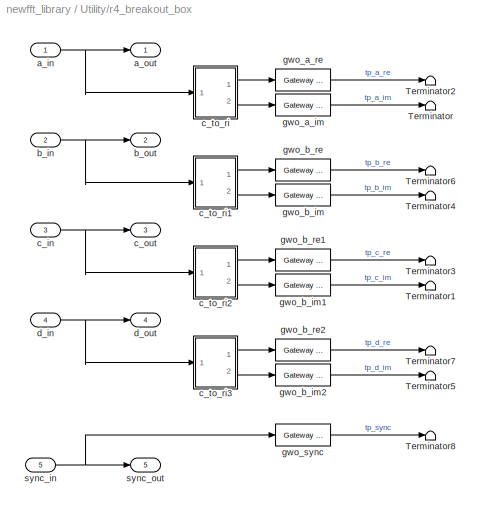
BLOCK [SubSystem] Utility/r4_breakout_box
  AttributesFormatString = 8_7 r/i
  MaskCallbackString = |
  MaskDescription = This \"zero-hardware\" block can be inserted into a radix-2 FFT pipeline to provide MATLAB-accessible test points for use with Simulink's \"Signal & Scope Manager\".
  MaskEnableString = on,on
  MaskHelp = <pre>\nDescription::\n\nThis \"zero-hardware\" block can be inserted into a radix-2 FFT pipeline to provide\nMATLAB-accessible test points for use with Simulink's \"Signal & Scope Manager\".\n\nMask Parameters::\n\nBit Width (n_bits): Specifies the width of the real/imaginary components of the complex inputs.\nAssumed equal for both components and both inputs.\n\nBinary Point (bin_pt): Specifies t...<+125ch>
  MaskIconFrame = on
  MaskIconOpaque = on
  MaskIconRotate = none
  MaskIconUnits = autoscale
  MaskInitialization = return\nbreakout_box_init(gcb,n_bits,bin_pt);\n
  MaskPromptString = Bit Width|Binary Point
  MaskSelfModifiable = on
  MaskStyleString = edit,edit
  MaskTabNameString = ,
  MaskToolTipString = on,on
  MaskTunableValueString = on,on
  MaskType = Radix-2 Breakout Box
  MaskValueString = 8|7
  MaskVarAliasString = ,
  MaskVariables = n_bits=@1;bin_pt=@2;
  MaskVisibilityString = on,on
  MinAlgLoopOccurrences = off
  Ports = [5, 5]
  RTWSystemCode = Auto
  TreatAsAtomicUnit = off
  UserData = DataTag226
  UserDataPersistent = on
BLOCK [Terminator] Utility/r4_breakout_box/Terminator
BLOCK [Terminator] Utility/r4_breakout_box/Terminator1
BLOCK [Terminator] Utility/r4_breakout_box/Terminator2
BLOCK [Terminator] Utility/r4_breakout_box/Terminator3
BLOCK [Terminator] Utility/r4_breakout_box/Terminator4
BLOCK [Terminator] Utility/r4_breakout_box/Terminator5
BLOCK [Terminator] Utility/r4_breakout_box/Terminator6
BLOCK [Terminator] Utility/r4_breakout_box/Terminator7
BLOCK [Terminator] Utility/r4_breakout_box/Terminator8
BLOCK [Inport] Utility/r4_breakout_box/a_in
  IconDisplay = Port number
  LatchInput = off
  Port = 1
BLOCK [Outport] Utility/r4_breakout_box/a_out
  BusOutputAsStruct = off
  IconDisplay = Port number
BLOCK [Inport] Utility/r4_breakout_box/b_in
  IconDisplay = Port number
  LatchInput = off
  Port = 2
BLOCK [Outport] Utility/r4_breakout_box/b_out
  BusOutputAsStruct = off
  IconDisplay = Port number
  Port = 2
BLOCK [Inport] Utility/r4_breakout_box/c_in
  IconDisplay = Port number
  LatchInput = off
  Port = 3
BLOCK [Outport] Utility/r4_breakout_box/c_out
  BusOutputAsStruct = off
  IconDisplay = Port number
  Port = 3
BLOCK [SubSystem] Utility/r4_breakout_box/c_to_ri
  AttributesFormatString = 8_7 r/i
  MaskCallbackString = |
  MaskDescription = Outputs real and imaginary components of a complex input.
  MaskEnableString = on,on
  MaskIconFrame = on
  MaskIconOpaque = on
  MaskIconRotate = none
  MaskIconUnits = autoscale
  MaskInitialization = c_to_ri_init(gcb,n_bits,bin_pt);
  MaskPromptString = Bit Width|Binary Point
  MaskSelfModifiable = on
  MaskStyleString = edit,edit
  MaskTabNameString = ,
  MaskToolTipString = on,on
  MaskTunableValueString = on,on
  MaskType = Complex to Real-Imag
  MaskValueString = 8|7
  MaskVarAliasString = ,
  MaskVariables = n_bits=@1;bin_pt=@2;
  MaskVisibilityString = on,on
  MinAlgLoopOccurrences = off
  Ports = [1, 2]
  RTWSystemCode = Auto
  TreatAsAtomicUnit = off
  UserData = DataTag227
  UserDataPersistent = on
BLOCK [Inport] Utility/r4_breakout_box/c_to_ri/c
  IconDisplay = Port number
  LatchInput = off
  Port = 1
BLOCK [Reference] Utility/r4_breakout_box/c_to_ri/force_im  REF=xbsIndex_r3/Reinterpret
  Ports = [1, 1]
  SourceBlock = xbsIndex_r3/Reinterpret
  SourceType = Xilinx Type Reinterpreting Block
  arith_type = Signed  (2's comp)
  bin_pt = 7
  force_arith_type = on
  force_bin_pt = on
  force_valid = on
BLOCK [Reference] Utility/r4_breakout_box/c_to_ri/force_re  REF=xbsIndex_r3/Reinterpret
  Ports = [1, 1]
  SourceBlock = xbsIndex_r3/Reinterpret
  SourceType = Xilinx Type Reinterpreting Block
  arith_type = Signed  (2's comp)
  bin_pt = 7
  force_arith_type = on
  force_bin_pt = on
  force_valid = on
BLOCK [Outport] Utility/r4_breakout_box/c_to_ri/im
  BusOutputAsStruct = off
  IconDisplay = Port number
  Port = 2
BLOCK [Outport] Utility/r4_breakout_box/c_to_ri/re
  BusOutputAsStruct = off
  IconDisplay = Port number
BLOCK [Reference] Utility/r4_breakout_box/c_to_ri/slice_im  REF=xbsIndex_r3/Slice
  Ports = [1, 1]
  SourceBlock = xbsIndex_r3/Slice
  SourceType = Xilinx Slice Block
  base0 = LSB of Input
  base1 = MSB of Input
  bit0 = 0
  bit1 = 0
  boolean_output = off
  dbl_ovrd = off
  explicit_period = off
  mode = Lower Bit Location + Width
  nbits = 8
  period = 1
BLOCK [Reference] Utility/r4_breakout_box/c_to_ri/slice_re  REF=xbsIndex_r3/Slice
  Ports = [1, 1]
  SourceBlock = xbsIndex_r3/Slice
  SourceType = Xilinx Slice Block
  base0 = LSB of Input
  base1 = MSB of Input
  bit0 = 0
  bit1 = 0
  boolean_output = off
  dbl_ovrd = off
  explicit_period = off
  mode = Upper Bit Location + Width
  nbits = 8
  period = 1
BLOCK [SubSystem] Utility/r4_breakout_box/c_to_ri1
  AttributesFormatString = 8_7 r/i
  MaskCallbackString = |
  MaskDescription = Outputs real and imaginary components of a complex input.
  MaskEnableString = on,on
  MaskIconFrame = on
  MaskIconOpaque = on
  MaskIconRotate = none
  MaskIconUnits = autoscale
  MaskInitialization = c_to_ri_init(gcb,n_bits,bin_pt);
  MaskPromptString = Bit Width|Binary Point
  MaskSelfModifiable = on
  MaskStyleString = edit,edit
  MaskTabNameString = ,
  MaskToolTipString = on,on
  MaskTunableValueString = on,on
  MaskType = Complex to Real-Imag
  MaskValueString = 8|7
  MaskVarAliasString = ,
  MaskVariables = n_bits=@1;bin_pt=@2;
  MaskVisibilityString = on,on
  MinAlgLoopOccurrences = off
  Ports = [1, 2]
  RTWSystemCode = Auto
  TreatAsAtomicUnit = off
  UserData = DataTag228
  UserDataPersistent = on
BLOCK [Inport] Utility/r4_breakout_box/c_to_ri1/c
  IconDisplay = Port number
  LatchInput = off
  Port = 1
BLOCK [Reference] Utility/r4_breakout_box/c_to_ri1/force_im  REF=xbsIndex_r3/Reinterpret
  Ports = [1, 1]
  SourceBlock = xbsIndex_r3/Reinterpret
  SourceType = Xilinx Type Reinterpreting Block
  arith_type = Signed  (2's comp)
  bin_pt = 7
  force_arith_type = on
  force_bin_pt = on
  force_valid = on
BLOCK [Reference] Utility/r4_breakout_box/c_to_ri1/force_re  REF=xbsIndex_r3/Reinterpret
  Ports = [1, 1]
  SourceBlock = xbsIndex_r3/Reinterpret
  SourceType = Xilinx Type Reinterpreting Block
  arith_type = Signed  (2's comp)
  bin_pt = 7
  force_arith_type = on
  force_bin_pt = on
  force_valid = on
BLOCK [Outport] Utility/r4_breakout_box/c_to_ri1/im
  BusOutputAsStruct = off
  IconDisplay = Port number
  Port = 2
BLOCK [Outport] Utility/r4_breakout_box/c_to_ri1/re
  BusOutputAsStruct = off
  IconDisplay = Port number
BLOCK [Reference] Utility/r4_breakout_box/c_to_ri1/slice_im  REF=xbsIndex_r3/Slice
  Ports = [1, 1]
  SourceBlock = xbsIndex_r3/Slice
  SourceType = Xilinx Slice Block
  base0 = LSB of Input
  base1 = MSB of Input
  bit0 = 0
  bit1 = 0
  boolean_output = off
  dbl_ovrd = off
  explicit_period = off
  mode = Lower Bit Location + Width
  nbits = 8
  period = 1
BLOCK [Reference] Utility/r4_breakout_box/c_to_ri1/slice_re  REF=xbsIndex_r3/Slice
  Ports = [1, 1]
  SourceBlock = xbsIndex_r3/Slice
  SourceType = Xilinx Slice Block
  base0 = LSB of Input
  base1 = MSB of Input
  bit0 = 0
  bit1 = 0
  boolean_output = off
  dbl_ovrd = off
  explicit_period = off
  mode = Upper Bit Location + Width
  nbits = 8
  period = 1
BLOCK [SubSystem] Utility/r4_breakout_box/c_to_ri2
  AttributesFormatString = 8_7 r/i
  MaskCallbackString = |
  MaskDescription = Outputs real and imaginary components of a complex input.
  MaskEnableString = on,on
  MaskIconFrame = on
  MaskIconOpaque = on
  MaskIconRotate = none
  MaskIconUnits = autoscale
  MaskInitialization = c_to_ri_init(gcb,n_bits,bin_pt);
  MaskPromptString = Bit Width|Binary Point
  MaskSelfModifiable = on
  MaskStyleString = edit,edit
  MaskTabNameString = ,
  MaskToolTipString = on,on
  MaskTunableValueString = on,on
  MaskType = Complex to Real-Imag
  MaskValueString = 8|7
  MaskVarAliasString = ,
  MaskVariables = n_bits=@1;bin_pt=@2;
  MaskVisibilityString = on,on
  MinAlgLoopOccurrences = off
  Ports = [1, 2]
  RTWSystemCode = Auto
  TreatAsAtomicUnit = off
  UserData = DataTag229
  UserDataPersistent = on
BLOCK [Inport] Utility/r4_breakout_box/c_to_ri2/c
  IconDisplay = Port number
  LatchInput = off
  Port = 1
BLOCK [Reference] Utility/r4_breakout_box/c_to_ri2/force_im  REF=xbsIndex_r3/Reinterpret
  Ports = [1, 1]
  SourceBlock = xbsIndex_r3/Reinterpret
  SourceType = Xilinx Type Reinterpreting Block
  arith_type = Signed  (2's comp)
  bin_pt = 7
  force_arith_type = on
  force_bin_pt = on
  force_valid = on
BLOCK [Reference] Utility/r4_breakout_box/c_to_ri2/force_re  REF=xbsIndex_r3/Reinterpret
  Ports = [1, 1]
  SourceBlock = xbsIndex_r3/Reinterpret
  SourceType = Xilinx Type Reinterpreting Block
  arith_type = Signed  (2's comp)
  bin_pt = 7
  force_arith_type = on
  force_bin_pt = on
  force_valid = on
BLOCK [Outport] Utility/r4_breakout_box/c_to_ri2/im
  BusOutputAsStruct = off
  IconDisplay = Port number
  Port = 2
BLOCK [Outport] Utility/r4_breakout_box/c_to_ri2/re
  BusOutputAsStruct = off
  IconDisplay = Port number
BLOCK [Reference] Utility/r4_breakout_box/c_to_ri2/slice_im  REF=xbsIndex_r3/Slice
  Ports = [1, 1]
  SourceBlock = xbsIndex_r3/Slice
  SourceType = Xilinx Slice Block
  base0 = LSB of Input
  base1 = MSB of Input
  bit0 = 0
  bit1 = 0
  boolean_output = off
  dbl_ovrd = off
  explicit_period = off
  mode = Lower Bit Location + Width
  nbits = 8
  period = 1
BLOCK [Reference] Utility/r4_breakout_box/c_to_ri2/slice_re  REF=xbsIndex_r3/Slice
  Ports = [1, 1]
  SourceBlock = xbsIndex_r3/Slice
  SourceType = Xilinx Slice Block
  base0 = LSB of Input
  base1 = MSB of Input
  bit0 = 0
  bit1 = 0
  boolean_output = off
  dbl_ovrd = off
  explicit_period = off
  mode = Upper Bit Location + Width
  nbits = 8
  period = 1
BLOCK [SubSystem] Utility/r4_breakout_box/c_to_ri3
  AttributesFormatString = 8_7 r/i
  MaskCallbackString = |
  MaskDescription = Outputs real and imaginary components of a complex input.
  MaskEnableString = on,on
  MaskIconFrame = on
  MaskIconOpaque = on
  MaskIconRotate = none
  MaskIconUnits = autoscale
  MaskInitialization = c_to_ri_init(gcb,n_bits,bin_pt);
  MaskPromptString = Bit Width|Binary Point
  MaskSelfModifiable = on
  MaskStyleString = edit,edit
  MaskTabNameString = ,
  MaskToolTipString = on,on
  MaskTunableValueString = on,on
  MaskType = Complex to Real-Imag
  MaskValueString = 8|7
  MaskVarAliasString = ,
  MaskVariables = n_bits=@1;bin_pt=@2;
  MaskVisibilityString = on,on
  MinAlgLoopOccurrences = off
  Ports = [1, 2]
  RTWSystemCode = Auto
  TreatAsAtomicUnit = off
  UserData = DataTag230
  UserDataPersistent = on
BLOCK [Inport] Utility/r4_breakout_box/c_to_ri3/c
  IconDisplay = Port number
  LatchInput = off
  Port = 1
BLOCK [Reference] Utility/r4_breakout_box/c_to_ri3/force_im  REF=xbsIndex_r3/Reinterpret
  Ports = [1, 1]
  SourceBlock = xbsIndex_r3/Reinterpret
  SourceType = Xilinx Type Reinterpreting Block
  arith_type = Signed  (2's comp)
  bin_pt = 7
  force_arith_type = on
  force_bin_pt = on
  force_valid = on
BLOCK [Reference] Utility/r4_breakout_box/c_to_ri3/force_re  REF=xbsIndex_r3/Reinterpret
  Ports = [1, 1]
  SourceBlock = xbsIndex_r3/Reinterpret
  SourceType = Xilinx Type Reinterpreting Block
  arith_type = Signed  (2's comp)
  bin_pt = 7
  force_arith_type = on
  force_bin_pt = on
  force_valid = on
BLOCK [Outport] Utility/r4_breakout_box/c_to_ri3/im
  BusOutputAsStruct = off
  IconDisplay = Port number
  Port = 2
BLOCK [Outport] Utility/r4_breakout_box/c_to_ri3/re
  BusOutputAsStruct = off
  IconDisplay = Port number
BLOCK [Reference] Utility/r4_breakout_box/c_to_ri3/slice_im  REF=xbsIndex_r3/Slice
  Ports = [1, 1]
  SourceBlock = xbsIndex_r3/Slice
  SourceType = Xilinx Slice Block
  base0 = LSB of Input
  base1 = MSB of Input
  bit0 = 0
  bit1 = 0
  boolean_output = off
  dbl_ovrd = off
  explicit_period = off
  mode = Lower Bit Location + Width
  nbits = 8
  period = 1
BLOCK [Reference] Utility/r4_breakout_box/c_to_ri3/slice_re  REF=xbsIndex_r3/Slice
  Ports = [1, 1]
  SourceBlock = xbsIndex_r3/Slice
  SourceType = Xilinx Slice Block
  base0 = LSB of Input
  base1 = MSB of Input
  bit0 = 0
  bit1 = 0
  boolean_output = off
  dbl_ovrd = off
  explicit_period = off
  mode = Upper Bit Location + Width
  nbits = 8
  period = 1
BLOCK [Inport] Utility/r4_breakout_box/d_in
  IconDisplay = Port number
  LatchInput = off
  Port = 4
BLOCK [Outport] Utility/r4_breakout_box/d_out
  BusOutputAsStruct = off
  IconDisplay = Port number
  Port = 4
BLOCK [Reference] Utility/r4_breakout_box/gwo_a_im  REF=xbsIndex_r3/Gateway Out
  LOCs = {}
  Ports = [1, 1]
  SourceBlock = xbsIndex_r3/Gateway Out
  SourceType = Xilinx Gateway Out
  arith_type = Boolean
  bin_pt = 6
  hdl_port = off
  locs_specified = off
  nbits = 8
  needs_fixed_name = off
  output_type = Double
  overflow = Wrap
  quantization = Truncate
  show_param = on
  timing_constraint = None
  xl_area = [0, 0, 0, 0, 0, 0, 0]
  xl_use_area = off
BLOCK [Reference] Utility/r4_breakout_box/gwo_a_re  REF=xbsIndex_r3/Gateway Out
  LOCs = {}
  Ports = [1, 1]
  SourceBlock = xbsIndex_r3/Gateway Out
  SourceType = Xilinx Gateway Out
  arith_type = Boolean
  bin_pt = 6
  hdl_port = off
  locs_specified = off
  nbits = 8
  needs_fixed_name = off
  output_type = Double
  overflow = Wrap
  quantization = Truncate
  show_param = on
  timing_constraint = None
  xl_area = [0, 0, 0, 0, 0, 0, 0]
  xl_use_area = off
BLOCK [Reference] Utility/r4_breakout_box/gwo_b_im  REF=xbsIndex_r3/Gateway Out
  LOCs = {}
  Ports = [1, 1]
  SourceBlock = xbsIndex_r3/Gateway Out
  SourceType = Xilinx Gateway Out
  arith_type = Boolean
  bin_pt = 6
  hdl_port = off
  locs_specified = off
  nbits = 8
  needs_fixed_name = off
  output_type = Double
  overflow = Wrap
  quantization = Truncate
  show_param = on
  timing_constraint = None
  xl_area = [0, 0, 0, 0, 0, 0, 0]
  xl_use_area = off
BLOCK [Reference] Utility/r4_breakout_box/gwo_b_im1  REF=xbsIndex_r3/Gateway Out
  LOCs = {}
  Ports = [1, 1]
  SourceBlock = xbsIndex_r3/Gateway Out
  SourceType = Xilinx Gateway Out
  arith_type = Boolean
  bin_pt = 6
  hdl_port = off
  locs_specified = off
  nbits = 8
  needs_fixed_name = off
  output_type = Double
  overflow = Wrap
  quantization = Truncate
  show_param = on
  timing_constraint = None
  xl_area = [0, 0, 0, 0, 0, 0, 0]
  xl_use_area = off
BLOCK [Reference] Utility/r4_breakout_box/gwo_b_im2  REF=xbsIndex_r3/Gateway Out
  LOCs = {}
  Ports = [1, 1]
  SourceBlock = xbsIndex_r3/Gateway Out
  SourceType = Xilinx Gateway Out
  arith_type = Boolean
  bin_pt = 6
  hdl_port = off
  locs_specified = off
  nbits = 8
  needs_fixed_name = off
  output_type = Double
  overflow = Wrap
  quantization = Truncate
  show_param = on
  timing_constraint = None
  xl_area = [0, 0, 0, 0, 0, 0, 0]
  xl_use_area = off
BLOCK [Reference] Utility/r4_breakout_box/gwo_b_re  REF=xbsIndex_r3/Gateway Out
  LOCs = {}
  Ports = [1, 1]
  SourceBlock = xbsIndex_r3/Gateway Out
  SourceType = Xilinx Gateway Out
  arith_type = Boolean
  bin_pt = 6
  hdl_port = off
  locs_specified = off
  nbits = 8
  needs_fixed_name = off
  output_type = Double
  overflow = Wrap
  quantization = Truncate
  show_param = on
  timing_constraint = None
  xl_area = [0, 0, 0, 0, 0, 0, 0]
  xl_use_area = off
BLOCK [Reference] Utility/r4_breakout_box/gwo_b_re1  REF=xbsIndex_r3/Gateway Out
  LOCs = {}
  Ports = [1, 1]
  SourceBlock = xbsIndex_r3/Gateway Out
  SourceType = Xilinx Gateway Out
  arith_type = Boolean
  bin_pt = 6
  hdl_port = off
  locs_specified = off
  nbits = 8
  needs_fixed_name = off
  output_type = Double
  overflow = Wrap
  quantization = Truncate
  show_param = on
  timing_constraint = None
  xl_area = [0, 0, 0, 0, 0, 0, 0]
  xl_use_area = off
BLOCK [Reference] Utility/r4_breakout_box/gwo_b_re2  REF=xbsIndex_r3/Gateway Out
  LOCs = {}
  Ports = [1, 1]
  SourceBlock = xbsIndex_r3/Gateway Out
  SourceType = Xilinx Gateway Out
  arith_type = Boolean
  bin_pt = 6
  hdl_port = off
  locs_specified = off
  nbits = 8
  needs_fixed_name = off
  output_type = Double
  overflow = Wrap
  quantization = Truncate
  show_param = on
  timing_constraint = None
  xl_area = [0, 0, 0, 0, 0, 0, 0]
  xl_use_area = off
BLOCK [Reference] Utility/r4_breakout_box/gwo_sync  REF=xbsIndex_r3/Gateway Out
  LOCs = {}
  Ports = [1, 1]
  SourceBlock = xbsIndex_r3/Gateway Out
  SourceType = Xilinx Gateway Out
  arith_type = Boolean
  bin_pt = 6
  hdl_port = off
  locs_specified = off
  nbits = 8
  needs_fixed_name = off
  output_type = Double
  overflow = Wrap
  quantization = Truncate
  show_param = on
  timing_constraint = None
  xl_area = [0, 0, 0, 0, 0, 0, 0]
  xl_use_area = off
BLOCK [Inport] Utility/r4_breakout_box/sync_in
  IconDisplay = Port number
  LatchInput = off
  Port = 5
BLOCK [Outport] Utility/r4_breakout_box/sync_out
  BusOutputAsStruct = off
  IconDisplay = Port number
  Port = 5
BLOCK [SubSystem] Utility/ri_to_c
  MaskDescription = Concatenates real and imaginary inputs into a complex output.
  MaskIconFrame = on
  MaskIconOpaque = on
  MaskIconRotate = none
  MaskIconUnits = autoscale
  MaskInitialization = ri_to_c_init(gcb);
  MaskSelfModifiable = on
  MaskType = Real-Imag to Complex
  MinAlgLoopOccurrences = off
  Ports = [2, 1]
  RTWSystemCode = Auto
  TreatAsAtomicUnit = off
  UserData = DataTag231
  UserDataPersistent = on
BLOCK [Outport] Utility/ri_to_c/c
  BusOutputAsStruct = off
  IconDisplay = Port number
BLOCK [Reference] Utility/ri_to_c/concat  REF=xbsIndex_r3/Concat
  Ports = [2, 1]
  SourceBlock = xbsIndex_r3/Concat
  SourceType = Xilinx Bus Concatenator
  dbl_ovrd = off
  explicit_period = off
  num_inputs = 2
  period = 1
BLOCK [Reference] Utility/ri_to_c/force_im  REF=xbsIndex_r3/Reinterpret
  Ports = [1, 1]
  SourceBlock = xbsIndex_r3/Reinterpret
  SourceType = Xilinx Type Reinterpreting Block
  arith_type = Unsigned
  bin_pt = 0
  force_arith_type = on
  force_bin_pt = on
  force_valid = on
BLOCK [Reference] Utility/ri_to_c/force_re  REF=xbsIndex_r3/Reinterpret
  Ports = [1, 1]
  SourceBlock = xbsIndex_r3/Reinterpret
  SourceType = Xilinx Type Reinterpreting Block
  arith_type = Unsigned
  bin_pt = 0
  force_arith_type = on
  force_bin_pt = on
  force_valid = on
BLOCK [Inport] Utility/ri_to_c/im
  IconDisplay = Port number
  LatchInput = off
  Port = 2
BLOCK [Inport] Utility/ri_to_c/re
  IconDisplay = Port number
  LatchInput = off
  Port = 1
BLOCK [SubSystem] Utility/triggered_counter
  MaskDisplay = port_label('input', 1, 'trig');\nport_label('output', 1, 'count');\nport_label('output', 2, 'valid');
  MaskEnableString = on
  MaskIconFrame = on
  MaskIconOpaque = on
  MaskIconRotate = none
  MaskIconUnits = autoscale
  MaskPromptString = Run Length
  MaskSelfModifiable = on
  MaskStyleString = edit
  MaskToolTipString = on
  MaskTunableValueString = on
  MaskValueString = 8
  MaskVariables = len=@1;
  MaskVisibilityString = on
  MinAlgLoopOccurrences = off
  Ports = [1, 2]
  RTWSystemCode = Auto
  TreatAsAtomicUnit = off
BLOCK [Reference] Utility/triggered_counter/Counter  REF=xbsIndex_r3/Counter
  Ports = [2, 1]
  SourceBlock = xbsIndex_r3/Counter
  SourceType = Xilinx Counter Block
  arith_type = Unsigned
  bin_pt = 0
  cnt_by_val = 1
  cnt_to = Inf
  cnt_type = Free Running
  dbl_ovrd = off
  en = on
  explicit_period = on
  gen_core = off
  load_pin = off
  n_bits = nextpow2(len)+1
  operation = Up
  period = 1
  rst = on
  show_param = off
  start_count = 2^(nextpow2(len)+1)-len
  use_rpm = on
  xl_area = [0, 0, 0, 0, 0, 0, 0]
  xl_use_area = off
BLOCK [Reference] Utility/triggered_counter/all_but_msb  REF=xbsIndex_r3/Slice
  Ports = [1, 1]
  SourceBlock = xbsIndex_r3/Slice
  SourceType = Xilinx Slice Block
  base0 = LSB of Input
  base1 = MSB of Input
  bit0 = 0
  bit1 = -1
  boolean_output = off
  dbl_ovrd = off
  explicit_period = off
  mode = Two Bit Locations
  nbits = 1
  period = 1
BLOCK [Outport] Utility/triggered_counter/count
  BusOutputAsStruct = off
  IconDisplay = Port number
BLOCK [SubSystem] Utility/triggered_counter/edge_detect
  AttributesFormatString = rising edge\nactive high
  MaskCallbackString = |||||
  MaskDescription = Output is active for one-cycle after each edge of the specified type (i.e. rising, falling or both).
  MaskDisplay = plot(xin,0.5+yin{edge}*0.2)\nplot(xout,0.5+yout{edge}*0.2*(3-2*polarity))\n
  MaskEnableString = on,on,off,off,off,off
  MaskHelp = Output is active for one-cycle after each edge of the specified type (i.e. rising, falling, or both).  Latency is zero.
  MaskIconFrame = on
  MaskIconOpaque = on
  MaskIconRotate = none
  MaskIconUnits = normalized
  MaskInitialization = edge_detect_init(gcb,edge,polarity);
  MaskPromptString = Edge Type|Output Polarity|Input X Positions|Input Y Positions|Output X Positions|Output Y Positions
  MaskSelfModifiable = on
  MaskStyleString = popup(Rising|Falling|Both),popup(Active High|Active Low),edit,edit,edit,edit
  MaskTabNameString = ,,,,,
  MaskToolTipString = on,on,on,on,on,on
  MaskTunableValueString = on,on,off,off,off,off
  MaskType = Edge Detector
  MaskVarAliasString = ,,,,,
  MaskVariables = edge=@1;polarity=@2;xin=@3;yin=@4;xout=@5;yout=@6;
  MaskVisibilityString = on,on,off,off,off,off
  MinAlgLoopOccurrences = off
  Ports = [1, 1]
  RTWSystemCode = Auto
  TreatAsAtomicUnit = off
  UserData = DataTag232
  UserDataPersistent = on
BLOCK [Reference] Utility/triggered_counter/edge_detect/Delay  REF=xbsIndex_r3/Delay
  Ports = [1, 1]
  SourceBlock = xbsIndex_r3/Delay
  SourceType = Xilinx Delay Block
  accept_only_valid = off
  dbl_ovrd = off
  en = off
  explicit_period = off
  init_zero = on
  latency = 1
  period = 1
  reg_retiming = off
  show_param = off
  xl_area = [0, 0, 0, 0, 0, 0, 0]
  xl_use_area = off
BLOCK [Reference] Utility/triggered_counter/edge_detect/Inverter  REF=xbsIndex_r3/Inverter
  Ports = [1, 1]
  SourceBlock = xbsIndex_r3/Inverter
  SourceType = Xilinx Inverter
  dbl_ovrd = off
  en = off
  explicit_period = off
  latency = 0
  period = 1
  show_param = off
  xl_area = [0, 0, 0, 0, 0, 0, 0]
  xl_use_area = off
BLOCK [Reference] Utility/triggered_counter/edge_detect/edge_op  REF=xbsIndex_r3/Logical
  Ports = [2, 1]
  SourceBlock = xbsIndex_r3/Logical
  SourceType = Xilinx Logical Block
  align_bp = on
  arith_type = Unsigned
  bin_pt = 2
  dbl_ovrd = off
  en = off
  explicit_period = off
  inputs = 2
  latency = 0
  logical_function = NOR
  n_bits = 8
  period = 1
  precision = Full
  show_param = off
  xl_area = [0, 0, 0, 0, 0, 0, 0]
  xl_use_area = off
BLOCK [Inport] Utility/triggered_counter/edge_detect/in
  IconDisplay = Port number
  LatchInput = off
  Port = 1
BLOCK [Outport] Utility/triggered_counter/edge_detect/out
  BusOutputAsStruct = off
  IconDisplay = Port number
BLOCK [Reference] Utility/triggered_counter/msb  REF=xbsIndex_r3/Slice
  Ports = [1, 1]
  SourceBlock = xbsIndex_r3/Slice
  SourceType = Xilinx Slice Block
  base0 = LSB of Input
  base1 = MSB of Input
  bit0 = 0
  bit1 = 0
  boolean_output = on
  dbl_ovrd = off
  explicit_period = off
  mode = Upper Bit Location + Width
  nbits = 1
  period = 1
BLOCK [Inport] Utility/triggered_counter/trig
  IconDisplay = Port number
  LatchInput = off
  Port = 1
BLOCK [Outport] Utility/triggered_counter/valid
  BusOutputAsStruct = off
  IconDisplay = Port number
  Port = 2
ANNOTATION (root): \n Center for Astronomy Signal Processing and Electronics Research\n http://casper.berkeley.edu/\n <copyright redacted>\n\n This program is free software; you can redistribute it and/or modify\n it under the terms of the GNU General Public License as published by\n the Free Software Foundation; either version 2 of the License, or\n (at your option) any later v...<+465ch>
ANNOTATION Random/tt800_uprng/tt800_engine: Delay by (m)
ANNOTATION Random/tt800_uprng/tt800_engine: Delay by (n - m - 3)
ANNOTATION Utility/convert: (ones_bit & 1) -> round-to-even\n(ones_bit ^ 1) -> round-to-odd\n(sign_bit & 1)-> round-to-zero\n(sign_bit ^ 1) -> round-to-inf\n(X ~| 1) -> round half down\n(X | 1) -> round half up
LINE Butterfly/r2_butterfly/Delay:1 -> Butterfly/r2_butterfly/sync_out:1
LINE Butterfly/r2_butterfly/a:1 -> Butterfly/r2_butterfly/c_to_ri:1
LINE Butterfly/r2_butterfly/add_im:1 -> Butterfly/r2_butterfly/shift1:1
LINE Butterfly/r2_butterfly/add_re:1 -> Butterfly/r2_butterfly/shift0:1
LINE Butterfly/r2_butterfly/b:1 -> Butterfly/r2_butterfly/c_to_ri1:1
NET Butterfly/r2_butterfly/c_to_ri/c:1 -> Butterfly/r2_butterfly/c_to_ri/slice_im:1, Butterfly/r2_butterfly/c_to_ri/slice_re:1
LINE Butterfly/r2_butterfly/c_to_ri/force_im:1 -> Butterfly/r2_butterfly/c_to_ri/im:1
LINE Butterfly/r2_butterfly/c_to_ri/force_re:1 -> Butterfly/r2_butterfly/c_to_ri/re:1
LINE Butterfly/r2_butterfly/c_to_ri/slice_im:1 -> Butterfly/r2_butterfly/c_to_ri/force_im:1
LINE Butterfly/r2_butterfly/c_to_ri/slice_re:1 -> Butterfly/r2_butterfly/c_to_ri/force_re:1
NET Butterfly/r2_butterfly/c_to_ri1/c:1 -> Butterfly/r2_butterfly/c_to_ri1/slice_im:1, Butterfly/r2_butterfly/c_to_ri1/slice_re:1
LINE Butterfly/r2_butterfly/c_to_ri1/force_im:1 -> Butterfly/r2_butterfly/c_to_ri1/im:1
LINE Butterfly/r2_butterfly/c_to_ri1/force_re:1 -> Butterfly/r2_butterfly/c_to_ri1/re:1
LINE Butterfly/r2_butterfly/c_to_ri1/slice_im:1 -> Butterfly/r2_butterfly/c_to_ri1/force_im:1
LINE Butterfly/r2_butterfly/c_to_ri1/slice_re:1 -> Butterfly/r2_butterfly/c_to_ri1/force_re:1
NET Butterfly/r2_butterfly/c_to_ri1:1 -> Butterfly/r2_butterfly/add_re:2, Butterfly/r2_butterfly/sub_re:2
NET Butterfly/r2_butterfly/c_to_ri1:2 -> Butterfly/r2_butterfly/add_im:2, Butterfly/r2_butterfly/sub_im:2
NET Butterfly/r2_butterfly/c_to_ri:1 -> Butterfly/r2_butterfly/add_re:1, Butterfly/r2_butterfly/sub_re:1
NET Butterfly/r2_butterfly/c_to_ri:2 -> Butterfly/r2_butterfly/add_im:1, Butterfly/r2_butterfly/sub_im:1
LINE Butterfly/r2_butterfly/requant0:1 -> Butterfly/r2_butterfly/ri_to_c:1
LINE Butterfly/r2_butterfly/requant1:1 -> Butterfly/r2_butterfly/ri_to_c:2
LINE Butterfly/r2_butterfly/requant2:1 -> Butterfly/r2_butterfly/ri_to_c1:1
LINE Butterfly/r2_butterfly/requant3:1 -> Butterfly/r2_butterfly/ri_to_c1:2
LINE Butterfly/r2_butterfly/ri_to_c/concat:1 -> Butterfly/r2_butterfly/ri_to_c/c:1
LINE Butterfly/r2_butterfly/ri_to_c/force_im:1 -> Butterfly/r2_butterfly/ri_to_c/concat:2
LINE Butterfly/r2_butterfly/ri_to_c/force_re:1 -> Butterfly/r2_butterfly/ri_to_c/concat:1
LINE Butterfly/r2_butterfly/ri_to_c/im:1 -> Butterfly/r2_butterfly/ri_to_c/force_im:1
LINE Butterfly/r2_butterfly/ri_to_c/re:1 -> Butterfly/r2_butterfly/ri_to_c/force_re:1
LINE Butterfly/r2_butterfly/ri_to_c1/concat:1 -> Butterfly/r2_butterfly/ri_to_c1/c:1
LINE Butterfly/r2_butterfly/ri_to_c1/force_im:1 -> Butterfly/r2_butterfly/ri_to_c1/concat:2
LINE Butterfly/r2_butterfly/ri_to_c1/force_re:1 -> Butterfly/r2_butterfly/ri_to_c1/concat:1
LINE Butterfly/r2_butterfly/ri_to_c1/im:1 -> Butterfly/r2_butterfly/ri_to_c1/force_im:1
LINE Butterfly/r2_butterfly/ri_to_c1/re:1 -> Butterfly/r2_butterfly/ri_to_c1/force_re:1
LINE Butterfly/r2_butterfly/ri_to_c1:1 -> Butterfly/r2_butterfly/a-b:1
LINE Butterfly/r2_butterfly/ri_to_c:1 -> Butterfly/r2_butterfly/a+b:1
LINE Butterfly/r2_butterfly/shift0:1 -> Butterfly/r2_butterfly/requant0:1
LINE Butterfly/r2_butterfly/shift1:1 -> Butterfly/r2_butterfly/requant1:1
LINE Butterfly/r2_butterfly/shift2:1 -> Butterfly/r2_butterfly/requant2:1
LINE Butterfly/r2_butterfly/shift3:1 -> Butterfly/r2_butterfly/requant3:1
LINE Butterfly/r2_butterfly/sub_im:1 -> Butterfly/r2_butterfly/shift3:1
LINE Butterfly/r2_butterfly/sub_re:1 -> Butterfly/r2_butterfly/shift2:1
LINE Butterfly/r2_butterfly/sync_in:1 -> Butterfly/r2_butterfly/Delay:1
LINE Butterfly/r2_butterfly_dit_j/Delay:1 -> Butterfly/r2_butterfly_dit_j/sync_out:1
LINE Butterfly/r2_butterfly_dit_j/a:1 -> Butterfly/r2_butterfly_dit_j/c_to_ri:1
LINE Butterfly/r2_butterfly_dit_j/add_im:1 -> Butterfly/r2_butterfly_dit_j/shift1:1
LINE Butterfly/r2_butterfly_dit_j/add_re:1 -> Butterfly/r2_butterfly_dit_j/shift0:1
LINE Butterfly/r2_butterfly_dit_j/b:1 -> Butterfly/r2_butterfly_dit_j/c_to_ri1:1
NET Butterfly/r2_butterfly_dit_j/c_to_ri/c:1 -> Butterfly/r2_butterfly_dit_j/c_to_ri/slice_im:1, Butterfly/r2_butterfly_dit_j/c_to_ri/slice_re:1
LINE Butterfly/r2_butterfly_dit_j/c_to_ri/force_im:1 -> Butterfly/r2_butterfly_dit_j/c_to_ri/im:1
LINE Butterfly/r2_butterfly_dit_j/c_to_ri/force_re:1 -> Butterfly/r2_butterfly_dit_j/c_to_ri/re:1
LINE Butterfly/r2_butterfly_dit_j/c_to_ri/slice_im:1 -> Butterfly/r2_butterfly_dit_j/c_to_ri/force_im:1
LINE Butterfly/r2_butterfly_dit_j/c_to_ri/slice_re:1 -> Butterfly/r2_butterfly_dit_j/c_to_ri/force_re:1
NET Butterfly/r2_butterfly_dit_j/c_to_ri1/c:1 -> Butterfly/r2_butterfly_dit_j/c_to_ri1/slice_im:1, Butterfly/r2_butterfly_dit_j/c_to_ri1/slice_re:1
LINE Butterfly/r2_butterfly_dit_j/c_to_ri1/force_im:1 -> Butterfly/r2_butterfly_dit_j/c_to_ri1/im:1
LINE Butterfly/r2_butterfly_dit_j/c_to_ri1/force_re:1 -> Butterfly/r2_butterfly_dit_j/c_to_ri1/re:1
LINE Butterfly/r2_butterfly_dit_j/c_to_ri1/slice_im:1 -> Butterfly/r2_butterfly_dit_j/c_to_ri1/force_im:1
LINE Butterfly/r2_butterfly_dit_j/c_to_ri1/slice_re:1 -> Butterfly/r2_butterfly_dit_j/c_to_ri1/force_re:1
NET Butterfly/r2_butterfly_dit_j/c_to_ri1:1 -> Butterfly/r2_butterfly_dit_j/add_im:2, Butterfly/r2_butterfly_dit_j/sub_im:2
NET Butterfly/r2_butterfly_dit_j/c_to_ri1:2 -> Butterfly/r2_butterfly_dit_j/add_re:2, Butterfly/r2_butterfly_dit_j/sub_re:2
NET Butterfly/r2_butterfly_dit_j/c_to_ri:1 -> Butterfly/r2_butterfly_dit_j/add_re:1, Butterfly/r2_butterfly_dit_j/sub_re:1
NET Butterfly/r2_butterfly_dit_j/c_to_ri:2 -> Butterfly/r2_butterfly_dit_j/add_im:1, Butterfly/r2_butterfly_dit_j/sub_im:1
LINE Butterfly/r2_butterfly_dit_j/requant0:1 -> Butterfly/r2_butterfly_dit_j/ri_to_c:1
LINE Butterfly/r2_butterfly_dit_j/requant1:1 -> Butterfly/r2_butterfly_dit_j/ri_to_c:2
LINE Butterfly/r2_butterfly_dit_j/requant2:1 -> Butterfly/r2_butterfly_dit_j/ri_to_c1:1
LINE Butterfly/r2_butterfly_dit_j/requant3:1 -> Butterfly/r2_butterfly_dit_j/ri_to_c1:2
LINE Butterfly/r2_butterfly_dit_j/ri_to_c/concat:1 -> Butterfly/r2_butterfly_dit_j/ri_to_c/c:1
LINE Butterfly/r2_butterfly_dit_j/ri_to_c/force_im:1 -> Butterfly/r2_butterfly_dit_j/ri_to_c/concat:2
LINE Butterfly/r2_butterfly_dit_j/ri_to_c/force_re:1 -> Butterfly/r2_butterfly_dit_j/ri_to_c/concat:1
LINE Butterfly/r2_butterfly_dit_j/ri_to_c/im:1 -> Butterfly/r2_butterfly_dit_j/ri_to_c/force_im:1
LINE Butterfly/r2_butterfly_dit_j/ri_to_c/re:1 -> Butterfly/r2_butterfly_dit_j/ri_to_c/force_re:1
LINE Butterfly/r2_butterfly_dit_j/ri_to_c1/concat:1 -> Butterfly/r2_butterfly_dit_j/ri_to_c1/c:1
LINE Butterfly/r2_butterfly_dit_j/ri_to_c1/force_im:1 -> Butterfly/r2_butterfly_dit_j/ri_to_c1/concat:2
LINE Butterfly/r2_butterfly_dit_j/ri_to_c1/force_re:1 -> Butterfly/r2_butterfly_dit_j/ri_to_c1/concat:1
LINE Butterfly/r2_butterfly_dit_j/ri_to_c1/im:1 -> Butterfly/r2_butterfly_dit_j/ri_to_c1/force_im:1
LINE Butterfly/r2_butterfly_dit_j/ri_to_c1/re:1 -> Butterfly/r2_butterfly_dit_j/ri_to_c1/force_re:1
LINE Butterfly/r2_butterfly_dit_j/ri_to_c1:1 -> Butterfly/r2_butterfly_dit_j/a-b:1
LINE Butterfly/r2_butterfly_dit_j/ri_to_c:1 -> Butterfly/r2_butterfly_dit_j/a+b:1
LINE Butterfly/r2_butterfly_dit_j/shift0:1 -> Butterfly/r2_butterfly_dit_j/requant0:1
LINE Butterfly/r2_butterfly_dit_j/shift1:1 -> Butterfly/r2_butterfly_dit_j/requant1:1
LINE Butterfly/r2_butterfly_dit_j/shift2:1 -> Butterfly/r2_butterfly_dit_j/requant2:1
LINE Butterfly/r2_butterfly_dit_j/shift3:1 -> Butterfly/r2_butterfly_dit_j/requant3:1
LINE Butterfly/r2_butterfly_dit_j/sub_im:1 -> Butterfly/r2_butterfly_dit_j/shift3:1
LINE Butterfly/r2_butterfly_dit_j/sub_re:1 -> Butterfly/r2_butterfly_dit_j/shift2:1
LINE Butterfly/r2_butterfly_dit_j/sync_in:1 -> Butterfly/r2_butterfly_dit_j/Delay:1
LINE Butterfly/r2_butterfly_dit_j_opt/Delay1:1 -> Butterfly/r2_butterfly_dit_j_opt/Delay:1
NET Butterfly/r2_butterfly_dit_j_opt/Delay2:1 -> Butterfly/r2_butterfly_dit_j_opt/add_im:1, Butterfly/r2_butterfly_dit_j_opt/sub_im:1
NET Butterfly/r2_butterfly_dit_j_opt/Delay3:1 -> Butterfly/r2_butterfly_dit_j_opt/add_re:1, Butterfly/r2_butterfly_dit_j_opt/sub_re:1
LINE Butterfly/r2_butterfly_dit_j_opt/Delay:1 -> Butterfly/r2_butterfly_dit_j_opt/sync_out:1
LINE Butterfly/r2_butterfly_dit_j_opt/Inverter1:1 -> Butterfly/r2_butterfly_dit_j_opt/bool:1
LINE Butterfly/r2_butterfly_dit_j_opt/Inverter:1 -> Butterfly/r2_butterfly_dit_j_opt/add_im:3
NET Butterfly/r2_butterfly_dit_j_opt/Mux1:1 -> Butterfly/r2_butterfly_dit_j_opt/add_im:2, Butterfly/r2_butterfly_dit_j_opt/sub_im:2
NET Butterfly/r2_butterfly_dit_j_opt/Mux:1 -> Butterfly/r2_butterfly_dit_j_opt/add_re:2, Butterfly/r2_butterfly_dit_j_opt/sub_re:2
LINE Butterfly/r2_butterfly_dit_j_opt/a:1 -> Butterfly/r2_butterfly_dit_j_opt/c_to_ri:1
LINE Butterfly/r2_butterfly_dit_j_opt/add_im:1 -> Butterfly/r2_butterfly_dit_j_opt/shift1:1
LINE Butterfly/r2_butterfly_dit_j_opt/add_re:1 -> Butterfly/r2_butterfly_dit_j_opt/shift0:1
LINE Butterfly/r2_butterfly_dit_j_opt/b:1 -> Butterfly/r2_butterfly_dit_j_opt/c_to_ri1:1
NET Butterfly/r2_butterfly_dit_j_opt/bool:1 -> Butterfly/r2_butterfly_dit_j_opt/Inverter:1, Butterfly/r2_butterfly_dit_j_opt/sub_im:3
NET Butterfly/r2_butterfly_dit_j_opt/c_to_ri/c:1 -> Butterfly/r2_butterfly_dit_j_opt/c_to_ri/slice_im:1, Butterfly/r2_butterfly_dit_j_opt/c_to_ri/slice_re:1
LINE Butterfly/r2_butterfly_dit_j_opt/c_to_ri/force_im:1 -> Butterfly/r2_butterfly_dit_j_opt/c_to_ri/im:1
LINE Butterfly/r2_butterfly_dit_j_opt/c_to_ri/force_re:1 -> Butterfly/r2_butterfly_dit_j_opt/c_to_ri/re:1
LINE Butterfly/r2_butterfly_dit_j_opt/c_to_ri/slice_im:1 -> Butterfly/r2_butterfly_dit_j_opt/c_to_ri/force_im:1
LINE Butterfly/r2_butterfly_dit_j_opt/c_to_ri/slice_re:1 -> Butterfly/r2_butterfly_dit_j_opt/c_to_ri/force_re:1
NET Butterfly/r2_butterfly_dit_j_opt/c_to_ri1/c:1 -> Butterfly/r2_butterfly_dit_j_opt/c_to_ri1/slice_im:1, Butterfly/r2_butterfly_dit_j_opt/c_to_ri1/slice_re:1
LINE Butterfly/r2_butterfly_dit_j_opt/c_to_ri1/force_im:1 -> Butterfly/r2_butterfly_dit_j_opt/c_to_ri1/im:1
LINE Butterfly/r2_butterfly_dit_j_opt/c_to_ri1/force_re:1 -> Butterfly/r2_butterfly_dit_j_opt/c_to_ri1/re:1
LINE Butterfly/r2_butterfly_dit_j_opt/c_to_ri1/slice_im:1 -> Butterfly/r2_butterfly_dit_j_opt/c_to_ri1/force_im:1
LINE Butterfly/r2_butterfly_dit_j_opt/c_to_ri1/slice_re:1 -> Butterfly/r2_butterfly_dit_j_opt/c_to_ri1/force_re:1
NET Butterfly/r2_butterfly_dit_j_opt/c_to_ri1:1 -> Butterfly/r2_butterfly_dit_j_opt/Mux1:3, Butterfly/r2_butterfly_dit_j_opt/Mux:2
NET Butterfly/r2_butterfly_dit_j_opt/c_to_ri1:2 -> Butterfly/r2_butterfly_dit_j_opt/Mux1:2, Butterfly/r2_butterfly_dit_j_opt/Mux:3
LINE Butterfly/r2_butterfly_dit_j_opt/c_to_ri:1 -> Butterfly/r2_butterfly_dit_j_opt/Delay3:1
LINE Butterfly/r2_butterfly_dit_j_opt/c_to_ri:2 -> Butterfly/r2_butterfly_dit_j_opt/Delay2:1
LINE Butterfly/r2_butterfly_dit_j_opt/requant0:1 -> Butterfly/r2_butterfly_dit_j_opt/ri_to_c:1
LINE Butterfly/r2_butterfly_dit_j_opt/requant1:1 -> Butterfly/r2_butterfly_dit_j_opt/ri_to_c:2
LINE Butterfly/r2_butterfly_dit_j_opt/requant2:1 -> Butterfly/r2_butterfly_dit_j_opt/ri_to_c1:1
LINE Butterfly/r2_butterfly_dit_j_opt/requant3:1 -> Butterfly/r2_butterfly_dit_j_opt/ri_to_c1:2
LINE Butterfly/r2_butterfly_dit_j_opt/ri_to_c/concat:1 -> Butterfly/r2_butterfly_dit_j_opt/ri_to_c/c:1
LINE Butterfly/r2_butterfly_dit_j_opt/ri_to_c/force_im:1 -> Butterfly/r2_butterfly_dit_j_opt/ri_to_c/concat:2
LINE Butterfly/r2_butterfly_dit_j_opt/ri_to_c/force_re:1 -> Butterfly/r2_butterfly_dit_j_opt/ri_to_c/concat:1
LINE Butterfly/r2_butterfly_dit_j_opt/ri_to_c/im:1 -> Butterfly/r2_butterfly_dit_j_opt/ri_to_c/force_im:1
LINE Butterfly/r2_butterfly_dit_j_opt/ri_to_c/re:1 -> Butterfly/r2_butterfly_dit_j_opt/ri_to_c/force_re:1
LINE Butterfly/r2_butterfly_dit_j_opt/ri_to_c1/concat:1 -> Butterfly/r2_butterfly_dit_j_opt/ri_to_c1/c:1
LINE Butterfly/r2_butterfly_dit_j_opt/ri_to_c1/force_im:1 -> Butterfly/r2_butterfly_dit_j_opt/ri_to_c1/concat:2
LINE Butterfly/r2_butterfly_dit_j_opt/ri_to_c1/force_re:1 -> Butterfly/r2_butterfly_dit_j_opt/ri_to_c1/concat:1
LINE Butterfly/r2_butterfly_dit_j_opt/ri_to_c1/im:1 -> Butterfly/r2_butterfly_dit_j_opt/ri_to_c1/force_im:1
LINE Butterfly/r2_butterfly_dit_j_opt/ri_to_c1/re:1 -> Butterfly/r2_butterfly_dit_j_opt/ri_to_c1/force_re:1
LINE Butterfly/r2_butterfly_dit_j_opt/ri_to_c1:1 -> Butterfly/r2_butterfly_dit_j_opt/a-b:1
LINE Butterfly/r2_butterfly_dit_j_opt/ri_to_c:1 -> Butterfly/r2_butterfly_dit_j_opt/a+b:1
LINE Butterfly/r2_butterfly_dit_j_opt/shift0:1 -> Butterfly/r2_butterfly_dit_j_opt/requant0:1
LINE Butterfly/r2_butterfly_dit_j_opt/shift1:1 -> Butterfly/r2_butterfly_dit_j_opt/requant1:1
LINE Butterfly/r2_butterfly_dit_j_opt/shift2:1 -> Butterfly/r2_butterfly_dit_j_opt/requant2:1
LINE Butterfly/r2_butterfly_dit_j_opt/shift3:1 -> Butterfly/r2_butterfly_dit_j_opt/requant3:1
LINE Butterfly/r2_butterfly_dit_j_opt/sub_im:1 -> Butterfly/r2_butterfly_dit_j_opt/shift3:1
LINE Butterfly/r2_butterfly_dit_j_opt/sub_re:1 -> Butterfly/r2_butterfly_dit_j_opt/shift2:1
LINE Butterfly/r2_butterfly_dit_j_opt/sync_in:1 -> Butterfly/r2_butterfly_dit_j_opt/Delay1:1
NET Butterfly/r2_butterfly_dit_j_opt/tw_en:1 -> Butterfly/r2_butterfly_dit_j_opt/Inverter1:1, Butterfly/r2_butterfly_dit_j_opt/Mux1:1, Butterfly/r2_butterfly_dit_j_opt/Mux:1
LINE Butterfly/r4_butterfly/a_in:1 -> Butterfly/r4_butterfly/butterfly0:1
LINE Butterfly/r4_butterfly/b_in:1 -> Butterfly/r4_butterfly/butterfly1:1
LINE Butterfly/r4_butterfly/butterfly0/Delay:1 -> Butterfly/r4_butterfly/butterfly0/sync_out:1
LINE Butterfly/r4_butterfly/butterfly0/a:1 -> Butterfly/r4_butterfly/butterfly0/c_to_ri:1
LINE Butterfly/r4_butterfly/butterfly0/add_im:1 -> Butterfly/r4_butterfly/butterfly0/shift1:1
LINE Butterfly/r4_butterfly/butterfly0/add_re:1 -> Butterfly/r4_butterfly/butterfly0/shift0:1
LINE Butterfly/r4_butterfly/butterfly0/b:1 -> Butterfly/r4_butterfly/butterfly0/c_to_ri1:1
NET Butterfly/r4_butterfly/butterfly0/c_to_ri/c:1 -> Butterfly/r4_butterfly/butterfly0/c_to_ri/slice_im:1, Butterfly/r4_butterfly/butterfly0/c_to_ri/slice_re:1
LINE Butterfly/r4_butterfly/butterfly0/c_to_ri/force_im:1 -> Butterfly/r4_butterfly/butterfly0/c_to_ri/im:1
LINE Butterfly/r4_butterfly/butterfly0/c_to_ri/force_re:1 -> Butterfly/r4_butterfly/butterfly0/c_to_ri/re:1
LINE Butterfly/r4_butterfly/butterfly0/c_to_ri/slice_im:1 -> Butterfly/r4_butterfly/butterfly0/c_to_ri/force_im:1
LINE Butterfly/r4_butterfly/butterfly0/c_to_ri/slice_re:1 -> Butterfly/r4_butterfly/butterfly0/c_to_ri/force_re:1
NET Butterfly/r4_butterfly/butterfly0/c_to_ri1/c:1 -> Butterfly/r4_butterfly/butterfly0/c_to_ri1/slice_im:1, Butterfly/r4_butterfly/butterfly0/c_to_ri1/slice_re:1
LINE Butterfly/r4_butterfly/butterfly0/c_to_ri1/force_im:1 -> Butterfly/r4_butterfly/butterfly0/c_to_ri1/im:1
LINE Butterfly/r4_butterfly/butterfly0/c_to_ri1/force_re:1 -> Butterfly/r4_butterfly/butterfly0/c_to_ri1/re:1
LINE Butterfly/r4_butterfly/butterfly0/c_to_ri1/slice_im:1 -> Butterfly/r4_butterfly/butterfly0/c_to_ri1/force_im:1
LINE Butterfly/r4_butterfly/butterfly0/c_to_ri1/slice_re:1 -> Butterfly/r4_butterfly/butterfly0/c_to_ri1/force_re:1
NET Butterfly/r4_butterfly/butterfly0/c_to_ri1:1 -> Butterfly/r4_butterfly/butterfly0/add_re:2, Butterfly/r4_butterfly/butterfly0/sub_re:2
NET Butterfly/r4_butterfly/butterfly0/c_to_ri1:2 -> Butterfly/r4_butterfly/butterfly0/add_im:2, Butterfly/r4_butterfly/butterfly0/sub_im:2
NET Butterfly/r4_butterfly/butterfly0/c_to_ri:1 -> Butterfly/r4_butterfly/butterfly0/add_re:1, Butterfly/r4_butterfly/butterfly0/sub_re:1
NET Butterfly/r4_butterfly/butterfly0/c_to_ri:2 -> Butterfly/r4_butterfly/butterfly0/add_im:1, Butterfly/r4_butterfly/butterfly0/sub_im:1
LINE Butterfly/r4_butterfly/butterfly0/requant0:1 -> Butterfly/r4_butterfly/butterfly0/ri_to_c:1
LINE Butterfly/r4_butterfly/butterfly0/requant1:1 -> Butterfly/r4_butterfly/butterfly0/ri_to_c:2
LINE Butterfly/r4_butterfly/butterfly0/requant2:1 -> Butterfly/r4_butterfly/butterfly0/ri_to_c1:1
LINE Butterfly/r4_butterfly/butterfly0/requant3:1 -> Butterfly/r4_butterfly/butterfly0/ri_to_c1:2
LINE Butterfly/r4_butterfly/butterfly0/ri_to_c/concat:1 -> Butterfly/r4_butterfly/butterfly0/ri_to_c/c:1
LINE Butterfly/r4_butterfly/butterfly0/ri_to_c/force_im:1 -> Butterfly/r4_butterfly/butterfly0/ri_to_c/concat:2
LINE Butterfly/r4_butterfly/butterfly0/ri_to_c/force_re:1 -> Butterfly/r4_butterfly/butterfly0/ri_to_c/concat:1
LINE Butterfly/r4_butterfly/butterfly0/ri_to_c/im:1 -> Butterfly/r4_butterfly/butterfly0/ri_to_c/force_im:1
LINE Butterfly/r4_butterfly/butterfly0/ri_to_c/re:1 -> Butterfly/r4_butterfly/butterfly0/ri_to_c/force_re:1
LINE Butterfly/r4_butterfly/butterfly0/ri_to_c1/concat:1 -> Butterfly/r4_butterfly/butterfly0/ri_to_c1/c:1
LINE Butterfly/r4_butterfly/butterfly0/ri_to_c1/force_im:1 -> Butterfly/r4_butterfly/butterfly0/ri_to_c1/concat:2
LINE Butterfly/r4_butterfly/butterfly0/ri_to_c1/force_re:1 -> Butterfly/r4_butterfly/butterfly0/ri_to_c1/concat:1
LINE Butterfly/r4_butterfly/butterfly0/ri_to_c1/im:1 -> Butterfly/r4_butterfly/butterfly0/ri_to_c1/force_im:1
LINE Butterfly/r4_butterfly/butterfly0/ri_to_c1/re:1 -> Butterfly/r4_butterfly/butterfly0/ri_to_c1/force_re:1
LINE Butterfly/r4_butterfly/butterfly0/ri_to_c1:1 -> Butterfly/r4_butterfly/butterfly0/a-b:1
LINE Butterfly/r4_butterfly/butterfly0/ri_to_c:1 -> Butterfly/r4_butterfly/butterfly0/a+b:1
LINE Butterfly/r4_butterfly/butterfly0/shift0:1 -> Butterfly/r4_butterfly/butterfly0/requant0:1
LINE Butterfly/r4_butterfly/butterfly0/shift1:1 -> Butterfly/r4_butterfly/butterfly0/requant1:1
LINE Butterfly/r4_butterfly/butterfly0/shift2:1 -> Butterfly/r4_butterfly/butterfly0/requant2:1
LINE Butterfly/r4_butterfly/butterfly0/shift3:1 -> Butterfly/r4_butterfly/butterfly0/requant3:1
LINE Butterfly/r4_butterfly/butterfly0/sub_im:1 -> Butterfly/r4_butterfly/butterfly0/shift3:1
LINE Butterfly/r4_butterfly/butterfly0/sub_re:1 -> Butterfly/r4_butterfly/butterfly0/shift2:1
LINE Butterfly/r4_butterfly/butterfly0/sync_in:1 -> Butterfly/r4_butterfly/butterfly0/Delay:1
LINE Butterfly/r4_butterfly/butterfly0:1 -> Butterfly/r4_butterfly/butterfly2:1
LINE Butterfly/r4_butterfly/butterfly0:2 -> Butterfly/r4_butterfly/butterfly3j:1
LINE Butterfly/r4_butterfly/butterfly0:3 -> Butterfly/r4_butterfly/butterfly2:3
LINE Butterfly/r4_butterfly/butterfly1/Delay:1 -> Butterfly/r4_butterfly/butterfly1/sync_out:1
LINE Butterfly/r4_butterfly/butterfly1/a:1 -> Butterfly/r4_butterfly/butterfly1/c_to_ri:1
LINE Butterfly/r4_butterfly/butterfly1/add_im:1 -> Butterfly/r4_butterfly/butterfly1/shift1:1
LINE Butterfly/r4_butterfly/butterfly1/add_re:1 -> Butterfly/r4_butterfly/butterfly1/shift0:1
LINE Butterfly/r4_butterfly/butterfly1/b:1 -> Butterfly/r4_butterfly/butterfly1/c_to_ri1:1
NET Butterfly/r4_butterfly/butterfly1/c_to_ri/c:1 -> Butterfly/r4_butterfly/butterfly1/c_to_ri/slice_im:1, Butterfly/r4_butterfly/butterfly1/c_to_ri/slice_re:1
LINE Butterfly/r4_butterfly/butterfly1/c_to_ri/force_im:1 -> Butterfly/r4_butterfly/butterfly1/c_to_ri/im:1
LINE Butterfly/r4_butterfly/butterfly1/c_to_ri/force_re:1 -> Butterfly/r4_butterfly/butterfly1/c_to_ri/re:1
LINE Butterfly/r4_butterfly/butterfly1/c_to_ri/slice_im:1 -> Butterfly/r4_butterfly/butterfly1/c_to_ri/force_im:1
LINE Butterfly/r4_butterfly/butterfly1/c_to_ri/slice_re:1 -> Butterfly/r4_butterfly/butterfly1/c_to_ri/force_re:1
NET Butterfly/r4_butterfly/butterfly1/c_to_ri1/c:1 -> Butterfly/r4_butterfly/butterfly1/c_to_ri1/slice_im:1, Butterfly/r4_butterfly/butterfly1/c_to_ri1/slice_re:1
LINE Butterfly/r4_butterfly/butterfly1/c_to_ri1/force_im:1 -> Butterfly/r4_butterfly/butterfly1/c_to_ri1/im:1
LINE Butterfly/r4_butterfly/butterfly1/c_to_ri1/force_re:1 -> Butterfly/r4_butterfly/butterfly1/c_to_ri1/re:1
LINE Butterfly/r4_butterfly/butterfly1/c_to_ri1/slice_im:1 -> Butterfly/r4_butterfly/butterfly1/c_to_ri1/force_im:1
LINE Butterfly/r4_butterfly/butterfly1/c_to_ri1/slice_re:1 -> Butterfly/r4_butterfly/butterfly1/c_to_ri1/force_re:1
NET Butterfly/r4_butterfly/butterfly1/c_to_ri1:1 -> Butterfly/r4_butterfly/butterfly1/add_re:2, Butterfly/r4_butterfly/butterfly1/sub_re:2
NET Butterfly/r4_butterfly/butterfly1/c_to_ri1:2 -> Butterfly/r4_butterfly/butterfly1/add_im:2, Butterfly/r4_butterfly/butterfly1/sub_im:2
NET Butterfly/r4_butterfly/butterfly1/c_to_ri:1 -> Butterfly/r4_butterfly/butterfly1/add_re:1, Butterfly/r4_butterfly/butterfly1/sub_re:1
NET Butterfly/r4_butterfly/butterfly1/c_to_ri:2 -> Butterfly/r4_butterfly/butterfly1/add_im:1, Butterfly/r4_butterfly/butterfly1/sub_im:1
LINE Butterfly/r4_butterfly/butterfly1/requant0:1 -> Butterfly/r4_butterfly/butterfly1/ri_to_c:1
LINE Butterfly/r4_butterfly/butterfly1/requant1:1 -> Butterfly/r4_butterfly/butterfly1/ri_to_c:2
LINE Butterfly/r4_butterfly/butterfly1/requant2:1 -> Butterfly/r4_butterfly/butterfly1/ri_to_c1:1
LINE Butterfly/r4_butterfly/butterfly1/requant3:1 -> Butterfly/r4_butterfly/butterfly1/ri_to_c1:2
LINE Butterfly/r4_butterfly/butterfly1/ri_to_c/concat:1 -> Butterfly/r4_butterfly/butterfly1/ri_to_c/c:1
LINE Butterfly/r4_butterfly/butterfly1/ri_to_c/force_im:1 -> Butterfly/r4_butterfly/butterfly1/ri_to_c/concat:2
LINE Butterfly/r4_butterfly/butterfly1/ri_to_c/force_re:1 -> Butterfly/r4_butterfly/butterfly1/ri_to_c/concat:1
LINE Butterfly/r4_butterfly/butterfly1/ri_to_c/im:1 -> Butterfly/r4_butterfly/butterfly1/ri_to_c/force_im:1
LINE Butterfly/r4_butterfly/butterfly1/ri_to_c/re:1 -> Butterfly/r4_butterfly/butterfly1/ri_to_c/force_re:1
LINE Butterfly/r4_butterfly/butterfly1/ri_to_c1/concat:1 -> Butterfly/r4_butterfly/butterfly1/ri_to_c1/c:1
LINE Butterfly/r4_butterfly/butterfly1/ri_to_c1/force_im:1 -> Butterfly/r4_butterfly/butterfly1/ri_to_c1/concat:2
LINE Butterfly/r4_butterfly/butterfly1/ri_to_c1/force_re:1 -> Butterfly/r4_butterfly/butterfly1/ri_to_c1/concat:1
LINE Butterfly/r4_butterfly/butterfly1/ri_to_c1/im:1 -> Butterfly/r4_butterfly/butterfly1/ri_to_c1/force_im:1
LINE Butterfly/r4_butterfly/butterfly1/ri_to_c1/re:1 -> Butterfly/r4_butterfly/butterfly1/ri_to_c1/force_re:1
LINE Butterfly/r4_butterfly/butterfly1/ri_to_c1:1 -> Butterfly/r4_butterfly/butterfly1/a-b:1
LINE Butterfly/r4_butterfly/butterfly1/ri_to_c:1 -> Butterfly/r4_butterfly/butterfly1/a+b:1
LINE Butterfly/r4_butterfly/butterfly1/shift0:1 -> Butterfly/r4_butterfly/butterfly1/requant0:1
LINE Butterfly/r4_butterfly/butterfly1/shift1:1 -> Butterfly/r4_butterfly/butterfly1/requant1:1
LINE Butterfly/r4_butterfly/butterfly1/shift2:1 -> Butterfly/r4_butterfly/butterfly1/requant2:1
LINE Butterfly/r4_butterfly/butterfly1/shift3:1 -> Butterfly/r4_butterfly/butterfly1/requant3:1
LINE Butterfly/r4_butterfly/butterfly1/sub_im:1 -> Butterfly/r4_butterfly/butterfly1/shift3:1
LINE Butterfly/r4_butterfly/butterfly1/sub_re:1 -> Butterfly/r4_butterfly/butterfly1/shift2:1
LINE Butterfly/r4_butterfly/butterfly1/sync_in:1 -> Butterfly/r4_butterfly/butterfly1/Delay:1
LINE Butterfly/r4_butterfly/butterfly1:1 -> Butterfly/r4_butterfly/butterfly2:2
LINE Butterfly/r4_butterfly/butterfly1:2 -> Butterfly/r4_butterfly/butterfly3j:2
LINE Butterfly/r4_butterfly/butterfly1:3 -> Butterfly/r4_butterfly/butterfly3j:3
LINE Butterfly/r4_butterfly/butterfly2/Delay:1 -> Butterfly/r4_butterfly/butterfly2/sync_out:1
LINE Butterfly/r4_butterfly/butterfly2/a:1 -> Butterfly/r4_butterfly/butterfly2/c_to_ri:1
LINE Butterfly/r4_butterfly/butterfly2/add_im:1 -> Butterfly/r4_butterfly/butterfly2/shift1:1
LINE Butterfly/r4_butterfly/butterfly2/add_re:1 -> Butterfly/r4_butterfly/butterfly2/shift0:1
LINE Butterfly/r4_butterfly/butterfly2/b:1 -> Butterfly/r4_butterfly/butterfly2/c_to_ri1:1
NET Butterfly/r4_butterfly/butterfly2/c_to_ri/c:1 -> Butterfly/r4_butterfly/butterfly2/c_to_ri/slice_im:1, Butterfly/r4_butterfly/butterfly2/c_to_ri/slice_re:1
LINE Butterfly/r4_butterfly/butterfly2/c_to_ri/force_im:1 -> Butterfly/r4_butterfly/butterfly2/c_to_ri/im:1
LINE Butterfly/r4_butterfly/butterfly2/c_to_ri/force_re:1 -> Butterfly/r4_butterfly/butterfly2/c_to_ri/re:1
LINE Butterfly/r4_butterfly/butterfly2/c_to_ri/slice_im:1 -> Butterfly/r4_butterfly/butterfly2/c_to_ri/force_im:1
LINE Butterfly/r4_butterfly/butterfly2/c_to_ri/slice_re:1 -> Butterfly/r4_butterfly/butterfly2/c_to_ri/force_re:1
NET Butterfly/r4_butterfly/butterfly2/c_to_ri1/c:1 -> Butterfly/r4_butterfly/butterfly2/c_to_ri1/slice_im:1, Butterfly/r4_butterfly/butterfly2/c_to_ri1/slice_re:1
LINE Butterfly/r4_butterfly/butterfly2/c_to_ri1/force_im:1 -> Butterfly/r4_butterfly/butterfly2/c_to_ri1/im:1
LINE Butterfly/r4_butterfly/butterfly2/c_to_ri1/force_re:1 -> Butterfly/r4_butterfly/butterfly2/c_to_ri1/re:1
LINE Butterfly/r4_butterfly/butterfly2/c_to_ri1/slice_im:1 -> Butterfly/r4_butterfly/butterfly2/c_to_ri1/force_im:1
LINE Butterfly/r4_butterfly/butterfly2/c_to_ri1/slice_re:1 -> Butterfly/r4_butterfly/butterfly2/c_to_ri1/force_re:1
NET Butterfly/r4_butterfly/butterfly2/c_to_ri1:1 -> Butterfly/r4_butterfly/butterfly2/add_re:2, Butterfly/r4_butterfly/butterfly2/sub_re:2
NET Butterfly/r4_butterfly/butterfly2/c_to_ri1:2 -> Butterfly/r4_butterfly/butterfly2/add_im:2, Butterfly/r4_butterfly/butterfly2/sub_im:2
NET Butterfly/r4_butterfly/butterfly2/c_to_ri:1 -> Butterfly/r4_butterfly/butterfly2/add_re:1, Butterfly/r4_butterfly/butterfly2/sub_re:1
NET Butterfly/r4_butterfly/butterfly2/c_to_ri:2 -> Butterfly/r4_butterfly/butterfly2/add_im:1, Butterfly/r4_butterfly/butterfly2/sub_im:1
LINE Butterfly/r4_butterfly/butterfly2/requant0:1 -> Butterfly/r4_butterfly/butterfly2/ri_to_c:1
LINE Butterfly/r4_butterfly/butterfly2/requant1:1 -> Butterfly/r4_butterfly/butterfly2/ri_to_c:2
LINE Butterfly/r4_butterfly/butterfly2/requant2:1 -> Butterfly/r4_butterfly/butterfly2/ri_to_c1:1
LINE Butterfly/r4_butterfly/butterfly2/requant3:1 -> Butterfly/r4_butterfly/butterfly2/ri_to_c1:2
LINE Butterfly/r4_butterfly/butterfly2/ri_to_c/concat:1 -> Butterfly/r4_butterfly/butterfly2/ri_to_c/c:1
LINE Butterfly/r4_butterfly/butterfly2/ri_to_c/force_im:1 -> Butterfly/r4_butterfly/butterfly2/ri_to_c/concat:2
LINE Butterfly/r4_butterfly/butterfly2/ri_to_c/force_re:1 -> Butterfly/r4_butterfly/butterfly2/ri_to_c/concat:1
LINE Butterfly/r4_butterfly/butterfly2/ri_to_c/im:1 -> Butterfly/r4_butterfly/butterfly2/ri_to_c/force_im:1
LINE Butterfly/r4_butterfly/butterfly2/ri_to_c/re:1 -> Butterfly/r4_butterfly/butterfly2/ri_to_c/force_re:1
LINE Butterfly/r4_butterfly/butterfly2/ri_to_c1/concat:1 -> Butterfly/r4_butterfly/butterfly2/ri_to_c1/c:1
LINE Butterfly/r4_butterfly/butterfly2/ri_to_c1/force_im:1 -> Butterfly/r4_butterfly/butterfly2/ri_to_c1/concat:2
LINE Butterfly/r4_butterfly/butterfly2/ri_to_c1/force_re:1 -> Butterfly/r4_butterfly/butterfly2/ri_to_c1/concat:1
LINE Butterfly/r4_butterfly/butterfly2/ri_to_c1/im:1 -> Butterfly/r4_butterfly/butterfly2/ri_to_c1/force_im:1
LINE Butterfly/r4_butterfly/butterfly2/ri_to_c1/re:1 -> Butterfly/r4_butterfly/butterfly2/ri_to_c1/force_re:1
LINE Butterfly/r4_butterfly/butterfly2/ri_to_c1:1 -> Butterfly/r4_butterfly/butterfly2/a-b:1
LINE Butterfly/r4_butterfly/butterfly2/ri_to_c:1 -> Butterfly/r4_butterfly/butterfly2/a+b:1
LINE Butterfly/r4_butterfly/butterfly2/shift0:1 -> Butterfly/r4_butterfly/butterfly2/requant0:1
LINE Butterfly/r4_butterfly/butterfly2/shift1:1 -> Butterfly/r4_butterfly/butterfly2/requant1:1
LINE Butterfly/r4_butterfly/butterfly2/shift2:1 -> Butterfly/r4_butterfly/butterfly2/requant2:1
LINE Butterfly/r4_butterfly/butterfly2/shift3:1 -> Butterfly/r4_butterfly/butterfly2/requant3:1
LINE Butterfly/r4_butterfly/butterfly2/sub_im:1 -> Butterfly/r4_butterfly/butterfly2/shift3:1
LINE Butterfly/r4_butterfly/butterfly2/sub_re:1 -> Butterfly/r4_butterfly/butterfly2/shift2:1
LINE Butterfly/r4_butterfly/butterfly2/sync_in:1 -> Butterfly/r4_butterfly/butterfly2/Delay:1
LINE Butterfly/r4_butterfly/butterfly2:1 -> Butterfly/r4_butterfly/a_out:1
LINE Butterfly/r4_butterfly/butterfly2:2 -> Butterfly/r4_butterfly/b_out:1
LINE Butterfly/r4_butterfly/butterfly2:3 -> Butterfly/r4_butterfly/Terminator:1
LINE Butterfly/r4_butterfly/butterfly3j/Delay:1 -> Butterfly/r4_butterfly/butterfly3j/sync_out:1
LINE Butterfly/r4_butterfly/butterfly3j/a:1 -> Butterfly/r4_butterfly/butterfly3j/c_to_ri:1
LINE Butterfly/r4_butterfly/butterfly3j/add_im:1 -> Butterfly/r4_butterfly/butterfly3j/shift1:1
LINE Butterfly/r4_butterfly/butterfly3j/add_re:1 -> Butterfly/r4_butterfly/butterfly3j/shift0:1
LINE Butterfly/r4_butterfly/butterfly3j/b:1 -> Butterfly/r4_butterfly/butterfly3j/c_to_ri1:1
NET Butterfly/r4_butterfly/butterfly3j/c_to_ri/c:1 -> Butterfly/r4_butterfly/butterfly3j/c_to_ri/slice_im:1, Butterfly/r4_butterfly/butterfly3j/c_to_ri/slice_re:1
LINE Butterfly/r4_butterfly/butterfly3j/c_to_ri/force_im:1 -> Butterfly/r4_butterfly/butterfly3j/c_to_ri/im:1
LINE Butterfly/r4_butterfly/butterfly3j/c_to_ri/force_re:1 -> Butterfly/r4_butterfly/butterfly3j/c_to_ri/re:1
LINE Butterfly/r4_butterfly/butterfly3j/c_to_ri/slice_im:1 -> Butterfly/r4_butterfly/butterfly3j/c_to_ri/force_im:1
LINE Butterfly/r4_butterfly/butterfly3j/c_to_ri/slice_re:1 -> Butterfly/r4_butterfly/butterfly3j/c_to_ri/force_re:1
NET Butterfly/r4_butterfly/butterfly3j/c_to_ri1/c:1 -> Butterfly/r4_butterfly/butterfly3j/c_to_ri1/slice_im:1, Butterfly/r4_butterfly/butterfly3j/c_to_ri1/slice_re:1
LINE Butterfly/r4_butterfly/butterfly3j/c_to_ri1/force_im:1 -> Butterfly/r4_butterfly/butterfly3j/c_to_ri1/im:1
LINE Butterfly/r4_butterfly/butterfly3j/c_to_ri1/force_re:1 -> Butterfly/r4_butterfly/butterfly3j/c_to_ri1/re:1
LINE Butterfly/r4_butterfly/butterfly3j/c_to_ri1/slice_im:1 -> Butterfly/r4_butterfly/butterfly3j/c_to_ri1/force_im:1
LINE Butterfly/r4_butterfly/butterfly3j/c_to_ri1/slice_re:1 -> Butterfly/r4_butterfly/butterfly3j/c_to_ri1/force_re:1
NET Butterfly/r4_butterfly/butterfly3j/c_to_ri1:1 -> Butterfly/r4_butterfly/butterfly3j/add_im:2, Butterfly/r4_butterfly/butterfly3j/sub_im:2
NET Butterfly/r4_butterfly/butterfly3j/c_to_ri1:2 -> Butterfly/r4_butterfly/butterfly3j/add_re:2, Butterfly/r4_butterfly/butterfly3j/sub_re:2
NET Butterfly/r4_butterfly/butterfly3j/c_to_ri:1 -> Butterfly/r4_butterfly/butterfly3j/add_re:1, Butterfly/r4_butterfly/butterfly3j/sub_re:1
NET Butterfly/r4_butterfly/butterfly3j/c_to_ri:2 -> Butterfly/r4_butterfly/butterfly3j/add_im:1, Butterfly/r4_butterfly/butterfly3j/sub_im:1
LINE Butterfly/r4_butterfly/butterfly3j/requant0:1 -> Butterfly/r4_butterfly/butterfly3j/ri_to_c:1
LINE Butterfly/r4_butterfly/butterfly3j/requant1:1 -> Butterfly/r4_butterfly/butterfly3j/ri_to_c:2
LINE Butterfly/r4_butterfly/butterfly3j/requant2:1 -> Butterfly/r4_butterfly/butterfly3j/ri_to_c1:1
LINE Butterfly/r4_butterfly/butterfly3j/requant3:1 -> Butterfly/r4_butterfly/butterfly3j/ri_to_c1:2
LINE Butterfly/r4_butterfly/butterfly3j/ri_to_c/concat:1 -> Butterfly/r4_butterfly/butterfly3j/ri_to_c/c:1
LINE Butterfly/r4_butterfly/butterfly3j/ri_to_c/force_im:1 -> Butterfly/r4_butterfly/butterfly3j/ri_to_c/concat:2
LINE Butterfly/r4_butterfly/butterfly3j/ri_to_c/force_re:1 -> Butterfly/r4_butterfly/butterfly3j/ri_to_c/concat:1
LINE Butterfly/r4_butterfly/butterfly3j/ri_to_c/im:1 -> Butterfly/r4_butterfly/butterfly3j/ri_to_c/force_im:1
LINE Butterfly/r4_butterfly/butterfly3j/ri_to_c/re:1 -> Butterfly/r4_butterfly/butterfly3j/ri_to_c/force_re:1
LINE Butterfly/r4_butterfly/butterfly3j/ri_to_c1/concat:1 -> Butterfly/r4_butterfly/butterfly3j/ri_to_c1/c:1
LINE Butterfly/r4_butterfly/butterfly3j/ri_to_c1/force_im:1 -> Butterfly/r4_butterfly/butterfly3j/ri_to_c1/concat:2
LINE Butterfly/r4_butterfly/butterfly3j/ri_to_c1/force_re:1 -> Butterfly/r4_butterfly/butterfly3j/ri_to_c1/concat:1
LINE Butterfly/r4_butterfly/butterfly3j/ri_to_c1/im:1 -> Butterfly/r4_butterfly/butterfly3j/ri_to_c1/force_im:1
LINE Butterfly/r4_butterfly/butterfly3j/ri_to_c1/re:1 -> Butterfly/r4_butterfly/butterfly3j/ri_to_c1/force_re:1
LINE Butterfly/r4_butterfly/butterfly3j/ri_to_c1:1 -> Butterfly/r4_butterfly/butterfly3j/a-b:1
LINE Butterfly/r4_butterfly/butterfly3j/ri_to_c:1 -> Butterfly/r4_butterfly/butterfly3j/a+b:1
LINE Butterfly/r4_butterfly/butterfly3j/shift0:1 -> Butterfly/r4_butterfly/butterfly3j/requant0:1
LINE Butterfly/r4_butterfly/butterfly3j/shift1:1 -> Butterfly/r4_butterfly/butterfly3j/requant1:1
LINE Butterfly/r4_butterfly/butterfly3j/shift2:1 -> Butterfly/r4_butterfly/butterfly3j/requant2:1
LINE Butterfly/r4_butterfly/butterfly3j/shift3:1 -> Butterfly/r4_butterfly/butterfly3j/requant3:1
LINE Butterfly/r4_butterfly/butterfly3j/sub_im:1 -> Butterfly/r4_butterfly/butterfly3j/shift3:1
LINE Butterfly/r4_butterfly/butterfly3j/sub_re:1 -> Butterfly/r4_butterfly/butterfly3j/shift2:1
LINE Butterfly/r4_butterfly/butterfly3j/sync_in:1 -> Butterfly/r4_butterfly/butterfly3j/Delay:1
LINE Butterfly/r4_butterfly/butterfly3j:1 -> Butterfly/r4_butterfly/c_out:1
LINE Butterfly/r4_butterfly/butterfly3j:2 -> Butterfly/r4_butterfly/d_out:1
LINE Butterfly/r4_butterfly/butterfly3j:3 -> Butterfly/r4_butterfly/sync_out:1
LINE Butterfly/r4_butterfly/c_in:1 -> Butterfly/r4_butterfly/butterfly0:2
LINE Butterfly/r4_butterfly/d_in:1 -> Butterfly/r4_butterfly/butterfly1:2
NET Butterfly/r4_butterfly/sync_in:1 -> Butterfly/r4_butterfly/butterfly0:3, Butterfly/r4_butterfly/butterfly1:3
NET Delay/complex_delay/c_to_ri/c:1 -> Delay/complex_delay/c_to_ri/slice_im:1, Delay/complex_delay/c_to_ri/slice_re:1
LINE Delay/complex_delay/c_to_ri/force_im:1 -> Delay/complex_delay/c_to_ri/im:1
LINE Delay/complex_delay/c_to_ri/force_re:1 -> Delay/complex_delay/c_to_ri/re:1
LINE Delay/complex_delay/c_to_ri/slice_im:1 -> Delay/complex_delay/c_to_ri/force_im:1
LINE Delay/complex_delay/c_to_ri/slice_re:1 -> Delay/complex_delay/c_to_ri/force_re:1
LINE Delay/complex_delay/c_to_ri:1 -> Delay/complex_delay/delay_re:1
LINE Delay/complex_delay/c_to_ri:2 -> Delay/complex_delay/delay_im:1
LINE Delay/complex_delay/delay_im/Constant:1 -> Delay/complex_delay/delay_im/bram:3
LINE Delay/complex_delay/delay_im/Counter:1 -> Delay/complex_delay/delay_im/bram:1
LINE Delay/complex_delay/delay_im/bram:1 -> Delay/complex_delay/delay_im/out:1
LINE Delay/complex_delay/delay_im/in:1 -> Delay/complex_delay/delay_im/bram:2
LINE Delay/complex_delay/delay_im:1 -> Delay/complex_delay/ri_to_c:2
LINE Delay/complex_delay/delay_re/Constant:1 -> Delay/complex_delay/delay_re/bram:3
LINE Delay/complex_delay/delay_re/Counter:1 -> Delay/complex_delay/delay_re/bram:1
LINE Delay/complex_delay/delay_re/bram:1 -> Delay/complex_delay/delay_re/out:1
LINE Delay/complex_delay/delay_re/in:1 -> Delay/complex_delay/delay_re/bram:2
LINE Delay/complex_delay/delay_re:1 -> Delay/complex_delay/ri_to_c:1
LINE Delay/complex_delay/in:1 -> Delay/complex_delay/c_to_ri:1
LINE Delay/complex_delay/ri_to_c/concat:1 -> Delay/complex_delay/ri_to_c/c:1
LINE Delay/complex_delay/ri_to_c/force_im:1 -> Delay/complex_delay/ri_to_c/concat:2
LINE Delay/complex_delay/ri_to_c/force_re:1 -> Delay/complex_delay/ri_to_c/concat:1
LINE Delay/complex_delay/ri_to_c/im:1 -> Delay/complex_delay/ri_to_c/force_im:1
LINE Delay/complex_delay/ri_to_c/re:1 -> Delay/complex_delay/ri_to_c/force_re:1
LINE Delay/complex_delay/ri_to_c:1 -> Delay/complex_delay/out:1
LINE Delay/delay_bram/Constant:1 -> Delay/delay_bram/bram:3
LINE Delay/delay_bram/Counter:1 -> Delay/delay_bram/bram:1
LINE Delay/delay_bram/bram:1 -> Delay/delay_bram/out:1
LINE Delay/delay_bram/in:1 -> Delay/delay_bram/bram:2
LINE Delay/delay_slr/in:1 -> Delay/delay_slr/slr:1
LINE Delay/delay_slr/slr:1 -> Delay/delay_slr/out:1
LINE FFT/r2_dit_fft/a_in:1 -> FFT/r2_dit_fft/a_out:1
LINE FFT/r2_dit_fft/b_in:1 -> FFT/r2_dit_fft/b_out:1
LINE FFT/r2_dit_fft/sync_in:1 -> FFT/r2_dit_fft/sync_out:1
LINE FFT/r2_dit_stage/a_in:1 -> FFT/r2_dit_stage/biplex_commutator:1
LINE FFT/r2_dit_stage/b_in:1 -> FFT/r2_dit_stage/biplex_commutator:2
NET FFT/r2_dit_stage/biplex_commutator/AloAhi:1 -> FFT/r2_dit_stage/biplex_commutator/Mux1:3, FFT/r2_dit_stage/biplex_commutator/Mux:2
LINE FFT/r2_dit_stage/biplex_commutator/BloBhi:1 -> FFT/r2_dit_stage/biplex_commutator/delay_b:1
LINE FFT/r2_dit_stage/biplex_commutator/Counter:1 -> FFT/r2_dit_stage/biplex_commutator/top_bit:1
LINE FFT/r2_dit_stage/biplex_commutator/Delay:1 -> FFT/r2_dit_stage/biplex_commutator/sync_out:1
LINE FFT/r2_dit_stage/biplex_commutator/Mux1:1 -> FFT/r2_dit_stage/biplex_commutator/AhiBhi:1
LINE FFT/r2_dit_stage/biplex_commutator/Mux:1 -> FFT/r2_dit_stage/biplex_commutator/delay_lo:1
LINE FFT/r2_dit_stage/biplex_commutator/delay_b/Constant:1 -> FFT/r2_dit_stage/biplex_commutator/delay_b/bram:3
LINE FFT/r2_dit_stage/biplex_commutator/delay_b/Counter:1 -> FFT/r2_dit_stage/biplex_commutator/delay_b/bram:1
LINE FFT/r2_dit_stage/biplex_commutator/delay_b/bram:1 -> FFT/r2_dit_stage/biplex_commutator/delay_b/out:1
LINE FFT/r2_dit_stage/biplex_commutator/delay_b/in:1 -> FFT/r2_dit_stage/biplex_commutator/delay_b/bram:2
NET FFT/r2_dit_stage/biplex_commutator/delay_b:1 -> FFT/r2_dit_stage/biplex_commutator/Mux1:2, FFT/r2_dit_stage/biplex_commutator/Mux:3
LINE FFT/r2_dit_stage/biplex_commutator/delay_lo/Constant:1 -> FFT/r2_dit_stage/biplex_commutator/delay_lo/bram:3
LINE FFT/r2_dit_stage/biplex_commutator/delay_lo/Counter:1 -> FFT/r2_dit_stage/biplex_commutator/delay_lo/bram:1
LINE FFT/r2_dit_stage/biplex_commutator/delay_lo/bram:1 -> FFT/r2_dit_stage/biplex_commutator/delay_lo/out:1
LINE FFT/r2_dit_stage/biplex_commutator/delay_lo/in:1 -> FFT/r2_dit_stage/biplex_commutator/delay_lo/bram:2
LINE FFT/r2_dit_stage/biplex_commutator/delay_lo:1 -> FFT/r2_dit_stage/biplex_commutator/AloBlo:1
NET FFT/r2_dit_stage/biplex_commutator/sync_in:1 -> FFT/r2_dit_stage/biplex_commutator/Counter:1, FFT/r2_dit_stage/biplex_commutator/Delay:1
NET FFT/r2_dit_stage/biplex_commutator/top_bit:1 -> FFT/r2_dit_stage/biplex_commutator/Mux1:1, FFT/r2_dit_stage/biplex_commutator/Mux:1
LINE FFT/r2_dit_stage/biplex_commutator:1 -> FFT/r2_dit_stage/r2_twiddle:1
LINE FFT/r2_dit_stage/biplex_commutator:2 -> FFT/r2_dit_stage/r2_twiddle:2
LINE FFT/r2_dit_stage/biplex_commutator:3 -> FFT/r2_dit_stage/r2_twiddle:3
LINE FFT/r2_dit_stage/r2_butterfly/Delay:1 -> FFT/r2_dit_stage/r2_butterfly/sync_out:1
LINE FFT/r2_dit_stage/r2_butterfly/a:1 -> FFT/r2_dit_stage/r2_butterfly/c_to_ri:1
LINE FFT/r2_dit_stage/r2_butterfly/add_im:1 -> FFT/r2_dit_stage/r2_butterfly/shift1:1
LINE FFT/r2_dit_stage/r2_butterfly/add_re:1 -> FFT/r2_dit_stage/r2_butterfly/shift0:1
LINE FFT/r2_dit_stage/r2_butterfly/b:1 -> FFT/r2_dit_stage/r2_butterfly/c_to_ri1:1
NET FFT/r2_dit_stage/r2_butterfly/c_to_ri/c:1 -> FFT/r2_dit_stage/r2_butterfly/c_to_ri/slice_im:1, FFT/r2_dit_stage/r2_butterfly/c_to_ri/slice_re:1
LINE FFT/r2_dit_stage/r2_butterfly/c_to_ri/force_im:1 -> FFT/r2_dit_stage/r2_butterfly/c_to_ri/im:1
LINE FFT/r2_dit_stage/r2_butterfly/c_to_ri/force_re:1 -> FFT/r2_dit_stage/r2_butterfly/c_to_ri/re:1
LINE FFT/r2_dit_stage/r2_butterfly/c_to_ri/slice_im:1 -> FFT/r2_dit_stage/r2_butterfly/c_to_ri/force_im:1
LINE FFT/r2_dit_stage/r2_butterfly/c_to_ri/slice_re:1 -> FFT/r2_dit_stage/r2_butterfly/c_to_ri/force_re:1
NET FFT/r2_dit_stage/r2_butterfly/c_to_ri1/c:1 -> FFT/r2_dit_stage/r2_butterfly/c_to_ri1/slice_im:1, FFT/r2_dit_stage/r2_butterfly/c_to_ri1/slice_re:1
LINE FFT/r2_dit_stage/r2_butterfly/c_to_ri1/force_im:1 -> FFT/r2_dit_stage/r2_butterfly/c_to_ri1/im:1
LINE FFT/r2_dit_stage/r2_butterfly/c_to_ri1/force_re:1 -> FFT/r2_dit_stage/r2_butterfly/c_to_ri1/re:1
LINE FFT/r2_dit_stage/r2_butterfly/c_to_ri1/slice_im:1 -> FFT/r2_dit_stage/r2_butterfly/c_to_ri1/force_im:1
LINE FFT/r2_dit_stage/r2_butterfly/c_to_ri1/slice_re:1 -> FFT/r2_dit_stage/r2_butterfly/c_to_ri1/force_re:1
NET FFT/r2_dit_stage/r2_butterfly/c_to_ri1:1 -> FFT/r2_dit_stage/r2_butterfly/add_re:2, FFT/r2_dit_stage/r2_butterfly/sub_re:2
NET FFT/r2_dit_stage/r2_butterfly/c_to_ri1:2 -> FFT/r2_dit_stage/r2_butterfly/add_im:2, FFT/r2_dit_stage/r2_butterfly/sub_im:2
NET FFT/r2_dit_stage/r2_butterfly/c_to_ri:1 -> FFT/r2_dit_stage/r2_butterfly/add_re:1, FFT/r2_dit_stage/r2_butterfly/sub_re:1
NET FFT/r2_dit_stage/r2_butterfly/c_to_ri:2 -> FFT/r2_dit_stage/r2_butterfly/add_im:1, FFT/r2_dit_stage/r2_butterfly/sub_im:1
LINE FFT/r2_dit_stage/r2_butterfly/requant0:1 -> FFT/r2_dit_stage/r2_butterfly/ri_to_c:1
LINE FFT/r2_dit_stage/r2_butterfly/requant1:1 -> FFT/r2_dit_stage/r2_butterfly/ri_to_c:2
LINE FFT/r2_dit_stage/r2_butterfly/requant2:1 -> FFT/r2_dit_stage/r2_butterfly/ri_to_c1:1
LINE FFT/r2_dit_stage/r2_butterfly/requant3:1 -> FFT/r2_dit_stage/r2_butterfly/ri_to_c1:2
LINE FFT/r2_dit_stage/r2_butterfly/ri_to_c/concat:1 -> FFT/r2_dit_stage/r2_butterfly/ri_to_c/c:1
LINE FFT/r2_dit_stage/r2_butterfly/ri_to_c/force_im:1 -> FFT/r2_dit_stage/r2_butterfly/ri_to_c/concat:2
LINE FFT/r2_dit_stage/r2_butterfly/ri_to_c/force_re:1 -> FFT/r2_dit_stage/r2_butterfly/ri_to_c/concat:1
LINE FFT/r2_dit_stage/r2_butterfly/ri_to_c/im:1 -> FFT/r2_dit_stage/r2_butterfly/ri_to_c/force_im:1
LINE FFT/r2_dit_stage/r2_butterfly/ri_to_c/re:1 -> FFT/r2_dit_stage/r2_butterfly/ri_to_c/force_re:1
LINE FFT/r2_dit_stage/r2_butterfly/ri_to_c1/concat:1 -> FFT/r2_dit_stage/r2_butterfly/ri_to_c1/c:1
LINE FFT/r2_dit_stage/r2_butterfly/ri_to_c1/force_im:1 -> FFT/r2_dit_stage/r2_butterfly/ri_to_c1/concat:2
LINE FFT/r2_dit_stage/r2_butterfly/ri_to_c1/force_re:1 -> FFT/r2_dit_stage/r2_butterfly/ri_to_c1/concat:1
LINE FFT/r2_dit_stage/r2_butterfly/ri_to_c1/im:1 -> FFT/r2_dit_stage/r2_butterfly/ri_to_c1/force_im:1
LINE FFT/r2_dit_stage/r2_butterfly/ri_to_c1/re:1 -> FFT/r2_dit_stage/r2_butterfly/ri_to_c1/force_re:1
LINE FFT/r2_dit_stage/r2_butterfly/ri_to_c1:1 -> FFT/r2_dit_stage/r2_butterfly/a-b:1
LINE FFT/r2_dit_stage/r2_butterfly/ri_to_c:1 -> FFT/r2_dit_stage/r2_butterfly/a+b:1
LINE FFT/r2_dit_stage/r2_butterfly/shift0:1 -> FFT/r2_dit_stage/r2_butterfly/requant0:1
LINE FFT/r2_dit_stage/r2_butterfly/shift1:1 -> FFT/r2_dit_stage/r2_butterfly/requant1:1
LINE FFT/r2_dit_stage/r2_butterfly/shift2:1 -> FFT/r2_dit_stage/r2_butterfly/requant2:1
LINE FFT/r2_dit_stage/r2_butterfly/shift3:1 -> FFT/r2_dit_stage/r2_butterfly/requant3:1
LINE FFT/r2_dit_stage/r2_butterfly/sub_im:1 -> FFT/r2_dit_stage/r2_butterfly/shift3:1
LINE FFT/r2_dit_stage/r2_butterfly/sub_re:1 -> FFT/r2_dit_stage/r2_butterfly/shift2:1
LINE FFT/r2_dit_stage/r2_butterfly/sync_in:1 -> FFT/r2_dit_stage/r2_butterfly/Delay:1
LINE FFT/r2_dit_stage/r2_butterfly:1 -> FFT/r2_dit_stage/a_out:1
LINE FFT/r2_dit_stage/r2_butterfly:2 -> FFT/r2_dit_stage/b_out:1
LINE FFT/r2_dit_stage/r2_butterfly:3 -> FFT/r2_dit_stage/sync_out:1
LINE FFT/r2_dit_stage/r2_twiddle/a_in:1 -> FFT/r2_dit_stage/r2_twiddle/a_out:1
LINE FFT/r2_dit_stage/r2_twiddle/b_in:1 -> FFT/r2_dit_stage/r2_twiddle/b_out:1
LINE FFT/r2_dit_stage/r2_twiddle/sync_in:1 -> FFT/r2_dit_stage/r2_twiddle/sync_out:1
LINE FFT/r2_dit_stage/r2_twiddle:1 -> FFT/r2_dit_stage/r2_butterfly:1
LINE FFT/r2_dit_stage/r2_twiddle:2 -> FFT/r2_dit_stage/r2_butterfly:2
LINE FFT/r2_dit_stage/r2_twiddle:3 -> FFT/r2_dit_stage/r2_butterfly:3
LINE FFT/r2_dit_stage/sync_in:1 -> FFT/r2_dit_stage/biplex_commutator:3
LINE FFT/r4_dit_fft/a_in:1 -> FFT/r4_dit_fft/a_out:1
LINE FFT/r4_dit_fft/b_in:1 -> FFT/r4_dit_fft/b_out:1
LINE FFT/r4_dit_fft/c_in:1 -> FFT/r4_dit_fft/c_out:1
LINE FFT/r4_dit_fft/d_in:1 -> FFT/r4_dit_fft/d_out:1
LINE FFT/r4_dit_fft/sync_in:1 -> FFT/r4_dit_fft/sync_out:1
LINE FFT/r4_dit_stage/a_in:1 -> FFT/r4_dit_stage/quadplex_commutator:1
LINE FFT/r4_dit_stage/b_in:1 -> FFT/r4_dit_stage/quadplex_commutator:2
LINE FFT/r4_dit_stage/c_in:1 -> FFT/r4_dit_stage/quadplex_commutator:3
LINE FFT/r4_dit_stage/d_in:1 -> FFT/r4_dit_stage/quadplex_commutator:4
LINE FFT/r4_dit_stage/quadplex_commutator/a:1 -> FFT/r4_dit_stage/quadplex_commutator/biplex_commutator_ac:1
LINE FFT/r4_dit_stage/quadplex_commutator/b:1 -> FFT/r4_dit_stage/quadplex_commutator/biplex_commutator_bd:1
NET FFT/r4_dit_stage/quadplex_commutator/biplex_commutator_01/AloAhi:1 -> FFT/r4_dit_stage/quadplex_commutator/biplex_commutator_01/Mux1:3, FFT/r4_dit_stage/quadplex_commutator/biplex_commutator_01/Mux:2
LINE FFT/r4_dit_stage/quadplex_commutator/biplex_commutator_01/BloBhi:1 -> FFT/r4_dit_stage/quadplex_commutator/biplex_commutator_01/delay_b:1
LINE FFT/r4_dit_stage/quadplex_commutator/biplex_commutator_01/Counter:1 -> FFT/r4_dit_stage/quadplex_commutator/biplex_commutator_01/top_bit:1
LINE FFT/r4_dit_stage/quadplex_commutator/biplex_commutator_01/Delay:1 -> FFT/r4_dit_stage/quadplex_commutator/biplex_commutator_01/sync_out:1
LINE FFT/r4_dit_stage/quadplex_commutator/biplex_commutator_01/Mux1:1 -> FFT/r4_dit_stage/quadplex_commutator/biplex_commutator_01/AhiBhi:1
LINE FFT/r4_dit_stage/quadplex_commutator/biplex_commutator_01/Mux:1 -> FFT/r4_dit_stage/quadplex_commutator/biplex_commutator_01/delay_lo:1
LINE FFT/r4_dit_stage/quadplex_commutator/biplex_commutator_01/delay_b/Constant:1 -> FFT/r4_dit_stage/quadplex_commutator/biplex_commutator_01/delay_b/bram:3
LINE FFT/r4_dit_stage/quadplex_commutator/biplex_commutator_01/delay_b/Counter:1 -> FFT/r4_dit_stage/quadplex_commutator/biplex_commutator_01/delay_b/bram:1
LINE FFT/r4_dit_stage/quadplex_commutator/biplex_commutator_01/delay_b/bram:1 -> FFT/r4_dit_stage/quadplex_commutator/biplex_commutator_01/delay_b/out:1
LINE FFT/r4_dit_stage/quadplex_commutator/biplex_commutator_01/delay_b/in:1 -> FFT/r4_dit_stage/quadplex_commutator/biplex_commutator_01/delay_b/bram:2
NET FFT/r4_dit_stage/quadplex_commutator/biplex_commutator_01/delay_b:1 -> FFT/r4_dit_stage/quadplex_commutator/biplex_commutator_01/Mux1:2, FFT/r4_dit_stage/quadplex_commutator/biplex_commutator_01/Mux:3
LINE FFT/r4_dit_stage/quadplex_commutator/biplex_commutator_01/delay_lo/Constant:1 -> FFT/r4_dit_stage/quadplex_commutator/biplex_commutator_01/delay_lo/bram:3
LINE FFT/r4_dit_stage/quadplex_commutator/biplex_commutator_01/delay_lo/Counter:1 -> FFT/r4_dit_stage/quadplex_commutator/biplex_commutator_01/delay_lo/bram:1
LINE FFT/r4_dit_stage/quadplex_commutator/biplex_commutator_01/delay_lo/bram:1 -> FFT/r4_dit_stage/quadplex_commutator/biplex_commutator_01/delay_lo/out:1
LINE FFT/r4_dit_stage/quadplex_commutator/biplex_commutator_01/delay_lo/in:1 -> FFT/r4_dit_stage/quadplex_commutator/biplex_commutator_01/delay_lo/bram:2
LINE FFT/r4_dit_stage/quadplex_commutator/biplex_commutator_01/delay_lo:1 -> FFT/r4_dit_stage/quadplex_commutator/biplex_commutator_01/AloBlo:1
NET FFT/r4_dit_stage/quadplex_commutator/biplex_commutator_01/sync_in:1 -> FFT/r4_dit_stage/quadplex_commutator/biplex_commutator_01/Counter:1, FFT/r4_dit_stage/quadplex_commutator/biplex_commutator_01/Delay:1
NET FFT/r4_dit_stage/quadplex_commutator/biplex_commutator_01/top_bit:1 -> FFT/r4_dit_stage/quadplex_commutator/biplex_commutator_01/Mux1:1, FFT/r4_dit_stage/quadplex_commutator/biplex_commutator_01/Mux:1
LINE FFT/r4_dit_stage/quadplex_commutator/biplex_commutator_01:1 -> FFT/r4_dit_stage/quadplex_commutator/abcd0:1
LINE FFT/r4_dit_stage/quadplex_commutator/biplex_commutator_01:2 -> FFT/r4_dit_stage/quadplex_commutator/abcd1:1
LINE FFT/r4_dit_stage/quadplex_commutator/biplex_commutator_01:3 -> FFT/r4_dit_stage/quadplex_commutator/Terminator:1
NET FFT/r4_dit_stage/quadplex_commutator/biplex_commutator_23/AloAhi:1 -> FFT/r4_dit_stage/quadplex_commutator/biplex_commutator_23/Mux1:3, FFT/r4_dit_stage/quadplex_commutator/biplex_commutator_23/Mux:2
LINE FFT/r4_dit_stage/quadplex_commutator/biplex_commutator_23/BloBhi:1 -> FFT/r4_dit_stage/quadplex_commutator/biplex_commutator_23/delay_b:1
LINE FFT/r4_dit_stage/quadplex_commutator/biplex_commutator_23/Counter:1 -> FFT/r4_dit_stage/quadplex_commutator/biplex_commutator_23/top_bit:1
LINE FFT/r4_dit_stage/quadplex_commutator/biplex_commutator_23/Delay:1 -> FFT/r4_dit_stage/quadplex_commutator/biplex_commutator_23/sync_out:1
LINE FFT/r4_dit_stage/quadplex_commutator/biplex_commutator_23/Mux1:1 -> FFT/r4_dit_stage/quadplex_commutator/biplex_commutator_23/AhiBhi:1
LINE FFT/r4_dit_stage/quadplex_commutator/biplex_commutator_23/Mux:1 -> FFT/r4_dit_stage/quadplex_commutator/biplex_commutator_23/delay_lo:1
LINE FFT/r4_dit_stage/quadplex_commutator/biplex_commutator_23/delay_b/Constant:1 -> FFT/r4_dit_stage/quadplex_commutator/biplex_commutator_23/delay_b/bram:3
LINE FFT/r4_dit_stage/quadplex_commutator/biplex_commutator_23/delay_b/Counter:1 -> FFT/r4_dit_stage/quadplex_commutator/biplex_commutator_23/delay_b/bram:1
LINE FFT/r4_dit_stage/quadplex_commutator/biplex_commutator_23/delay_b/bram:1 -> FFT/r4_dit_stage/quadplex_commutator/biplex_commutator_23/delay_b/out:1
LINE FFT/r4_dit_stage/quadplex_commutator/biplex_commutator_23/delay_b/in:1 -> FFT/r4_dit_stage/quadplex_commutator/biplex_commutator_23/delay_b/bram:2
NET FFT/r4_dit_stage/quadplex_commutator/biplex_commutator_23/delay_b:1 -> FFT/r4_dit_stage/quadplex_commutator/biplex_commutator_23/Mux1:2, FFT/r4_dit_stage/quadplex_commutator/biplex_commutator_23/Mux:3
LINE FFT/r4_dit_stage/quadplex_commutator/biplex_commutator_23/delay_lo/Constant:1 -> FFT/r4_dit_stage/quadplex_commutator/biplex_commutator_23/delay_lo/bram:3
LINE FFT/r4_dit_stage/quadplex_commutator/biplex_commutator_23/delay_lo/Counter:1 -> FFT/r4_dit_stage/quadplex_commutator/biplex_commutator_23/delay_lo/bram:1
LINE FFT/r4_dit_stage/quadplex_commutator/biplex_commutator_23/delay_lo/bram:1 -> FFT/r4_dit_stage/quadplex_commutator/biplex_commutator_23/delay_lo/out:1
LINE FFT/r4_dit_stage/quadplex_commutator/biplex_commutator_23/delay_lo/in:1 -> FFT/r4_dit_stage/quadplex_commutator/biplex_commutator_23/delay_lo/bram:2
LINE FFT/r4_dit_stage/quadplex_commutator/biplex_commutator_23/delay_lo:1 -> FFT/r4_dit_stage/quadplex_commutator/biplex_commutator_23/AloBlo:1
NET FFT/r4_dit_stage/quadplex_commutator/biplex_commutator_23/sync_in:1 -> FFT/r4_dit_stage/quadplex_commutator/biplex_commutator_23/Counter:1, FFT/r4_dit_stage/quadplex_commutator/biplex_commutator_23/Delay:1
NET FFT/r4_dit_stage/quadplex_commutator/biplex_commutator_23/top_bit:1 -> FFT/r4_dit_stage/quadplex_commutator/biplex_commutator_23/Mux1:1, FFT/r4_dit_stage/quadplex_commutator/biplex_commutator_23/Mux:1
LINE FFT/r4_dit_stage/quadplex_commutator/biplex_commutator_23:1 -> FFT/r4_dit_stage/quadplex_commutator/abcd2:1
LINE FFT/r4_dit_stage/quadplex_commutator/biplex_commutator_23:2 -> FFT/r4_dit_stage/quadplex_commutator/abcd3:1
LINE FFT/r4_dit_stage/quadplex_commutator/biplex_commutator_23:3 -> FFT/r4_dit_stage/quadplex_commutator/sync_out:1
NET FFT/r4_dit_stage/quadplex_commutator/biplex_commutator_ac/AloAhi:1 -> FFT/r4_dit_stage/quadplex_commutator/biplex_commutator_ac/Mux1:3, FFT/r4_dit_stage/quadplex_commutator/biplex_commutator_ac/Mux:2
LINE FFT/r4_dit_stage/quadplex_commutator/biplex_commutator_ac/BloBhi:1 -> FFT/r4_dit_stage/quadplex_commutator/biplex_commutator_ac/delay_b:1
LINE FFT/r4_dit_stage/quadplex_commutator/biplex_commutator_ac/Counter:1 -> FFT/r4_dit_stage/quadplex_commutator/biplex_commutator_ac/top_bit:1
LINE FFT/r4_dit_stage/quadplex_commutator/biplex_commutator_ac/Delay:1 -> FFT/r4_dit_stage/quadplex_commutator/biplex_commutator_ac/sync_out:1
LINE FFT/r4_dit_stage/quadplex_commutator/biplex_commutator_ac/Mux1:1 -> FFT/r4_dit_stage/quadplex_commutator/biplex_commutator_ac/AhiBhi:1
LINE FFT/r4_dit_stage/quadplex_commutator/biplex_commutator_ac/Mux:1 -> FFT/r4_dit_stage/quadplex_commutator/biplex_commutator_ac/delay_lo:1
LINE FFT/r4_dit_stage/quadplex_commutator/biplex_commutator_ac/delay_b/Constant:1 -> FFT/r4_dit_stage/quadplex_commutator/biplex_commutator_ac/delay_b/bram:3
LINE FFT/r4_dit_stage/quadplex_commutator/biplex_commutator_ac/delay_b/Counter:1 -> FFT/r4_dit_stage/quadplex_commutator/biplex_commutator_ac/delay_b/bram:1
LINE FFT/r4_dit_stage/quadplex_commutator/biplex_commutator_ac/delay_b/bram:1 -> FFT/r4_dit_stage/quadplex_commutator/biplex_commutator_ac/delay_b/out:1
LINE FFT/r4_dit_stage/quadplex_commutator/biplex_commutator_ac/delay_b/in:1 -> FFT/r4_dit_stage/quadplex_commutator/biplex_commutator_ac/delay_b/bram:2
NET FFT/r4_dit_stage/quadplex_commutator/biplex_commutator_ac/delay_b:1 -> FFT/r4_dit_stage/quadplex_commutator/biplex_commutator_ac/Mux1:2, FFT/r4_dit_stage/quadplex_commutator/biplex_commutator_ac/Mux:3
LINE FFT/r4_dit_stage/quadplex_commutator/biplex_commutator_ac/delay_lo/Constant:1 -> FFT/r4_dit_stage/quadplex_commutator/biplex_commutator_ac/delay_lo/bram:3
LINE FFT/r4_dit_stage/quadplex_commutator/biplex_commutator_ac/delay_lo/Counter:1 -> FFT/r4_dit_stage/quadplex_commutator/biplex_commutator_ac/delay_lo/bram:1
LINE FFT/r4_dit_stage/quadplex_commutator/biplex_commutator_ac/delay_lo/bram:1 -> FFT/r4_dit_stage/quadplex_commutator/biplex_commutator_ac/delay_lo/out:1
LINE FFT/r4_dit_stage/quadplex_commutator/biplex_commutator_ac/delay_lo/in:1 -> FFT/r4_dit_stage/quadplex_commutator/biplex_commutator_ac/delay_lo/bram:2
LINE FFT/r4_dit_stage/quadplex_commutator/biplex_commutator_ac/delay_lo:1 -> FFT/r4_dit_stage/quadplex_commutator/biplex_commutator_ac/AloBlo:1
NET FFT/r4_dit_stage/quadplex_commutator/biplex_commutator_ac/sync_in:1 -> FFT/r4_dit_stage/quadplex_commutator/biplex_commutator_ac/Counter:1, FFT/r4_dit_stage/quadplex_commutator/biplex_commutator_ac/Delay:1
NET FFT/r4_dit_stage/quadplex_commutator/biplex_commutator_ac/top_bit:1 -> FFT/r4_dit_stage/quadplex_commutator/biplex_commutator_ac/Mux1:1, FFT/r4_dit_stage/quadplex_commutator/biplex_commutator_ac/Mux:1
LINE FFT/r4_dit_stage/quadplex_commutator/biplex_commutator_ac:1 -> FFT/r4_dit_stage/quadplex_commutator/biplex_commutator_01:1
LINE FFT/r4_dit_stage/quadplex_commutator/biplex_commutator_ac:2 -> FFT/r4_dit_stage/quadplex_commutator/biplex_commutator_23:1
LINE FFT/r4_dit_stage/quadplex_commutator/biplex_commutator_ac:3 -> FFT/r4_dit_stage/quadplex_commutator/biplex_commutator_01:3
NET FFT/r4_dit_stage/quadplex_commutator/biplex_commutator_bd/AloAhi:1 -> FFT/r4_dit_stage/quadplex_commutator/biplex_commutator_bd/Mux1:3, FFT/r4_dit_stage/quadplex_commutator/biplex_commutator_bd/Mux:2
LINE FFT/r4_dit_stage/quadplex_commutator/biplex_commutator_bd/BloBhi:1 -> FFT/r4_dit_stage/quadplex_commutator/biplex_commutator_bd/delay_b:1
LINE FFT/r4_dit_stage/quadplex_commutator/biplex_commutator_bd/Counter:1 -> FFT/r4_dit_stage/quadplex_commutator/biplex_commutator_bd/top_bit:1
LINE FFT/r4_dit_stage/quadplex_commutator/biplex_commutator_bd/Delay:1 -> FFT/r4_dit_stage/quadplex_commutator/biplex_commutator_bd/sync_out:1
LINE FFT/r4_dit_stage/quadplex_commutator/biplex_commutator_bd/Mux1:1 -> FFT/r4_dit_stage/quadplex_commutator/biplex_commutator_bd/AhiBhi:1
LINE FFT/r4_dit_stage/quadplex_commutator/biplex_commutator_bd/Mux:1 -> FFT/r4_dit_stage/quadplex_commutator/biplex_commutator_bd/delay_lo:1
LINE FFT/r4_dit_stage/quadplex_commutator/biplex_commutator_bd/delay_b/Constant:1 -> FFT/r4_dit_stage/quadplex_commutator/biplex_commutator_bd/delay_b/bram:3
LINE FFT/r4_dit_stage/quadplex_commutator/biplex_commutator_bd/delay_b/Counter:1 -> FFT/r4_dit_stage/quadplex_commutator/biplex_commutator_bd/delay_b/bram:1
LINE FFT/r4_dit_stage/quadplex_commutator/biplex_commutator_bd/delay_b/bram:1 -> FFT/r4_dit_stage/quadplex_commutator/biplex_commutator_bd/delay_b/out:1
LINE FFT/r4_dit_stage/quadplex_commutator/biplex_commutator_bd/delay_b/in:1 -> FFT/r4_dit_stage/quadplex_commutator/biplex_commutator_bd/delay_b/bram:2
NET FFT/r4_dit_stage/quadplex_commutator/biplex_commutator_bd/delay_b:1 -> FFT/r4_dit_stage/quadplex_commutator/biplex_commutator_bd/Mux1:2, FFT/r4_dit_stage/quadplex_commutator/biplex_commutator_bd/Mux:3
LINE FFT/r4_dit_stage/quadplex_commutator/biplex_commutator_bd/delay_lo/Constant:1 -> FFT/r4_dit_stage/quadplex_commutator/biplex_commutator_bd/delay_lo/bram:3
LINE FFT/r4_dit_stage/quadplex_commutator/biplex_commutator_bd/delay_lo/Counter:1 -> FFT/r4_dit_stage/quadplex_commutator/biplex_commutator_bd/delay_lo/bram:1
LINE FFT/r4_dit_stage/quadplex_commutator/biplex_commutator_bd/delay_lo/bram:1 -> FFT/r4_dit_stage/quadplex_commutator/biplex_commutator_bd/delay_lo/out:1
LINE FFT/r4_dit_stage/quadplex_commutator/biplex_commutator_bd/delay_lo/in:1 -> FFT/r4_dit_stage/quadplex_commutator/biplex_commutator_bd/delay_lo/bram:2
LINE FFT/r4_dit_stage/quadplex_commutator/biplex_commutator_bd/delay_lo:1 -> FFT/r4_dit_stage/quadplex_commutator/biplex_commutator_bd/AloBlo:1
NET FFT/r4_dit_stage/quadplex_commutator/biplex_commutator_bd/sync_in:1 -> FFT/r4_dit_stage/quadplex_commutator/biplex_commutator_bd/Counter:1, FFT/r4_dit_stage/quadplex_commutator/biplex_commutator_bd/Delay:1
NET FFT/r4_dit_stage/quadplex_commutator/biplex_commutator_bd/top_bit:1 -> FFT/r4_dit_stage/quadplex_commutator/biplex_commutator_bd/Mux1:1, FFT/r4_dit_stage/quadplex_commutator/biplex_commutator_bd/Mux:1
LINE FFT/r4_dit_stage/quadplex_commutator/biplex_commutator_bd:1 -> FFT/r4_dit_stage/quadplex_commutator/biplex_commutator_01:2
LINE FFT/r4_dit_stage/quadplex_commutator/biplex_commutator_bd:2 -> FFT/r4_dit_stage/quadplex_commutator/biplex_commutator_23:2
LINE FFT/r4_dit_stage/quadplex_commutator/biplex_commutator_bd:3 -> FFT/r4_dit_stage/quadplex_commutator/biplex_commutator_23:3
LINE FFT/r4_dit_stage/quadplex_commutator/c:1 -> FFT/r4_dit_stage/quadplex_commutator/biplex_commutator_ac:2
LINE FFT/r4_dit_stage/quadplex_commutator/d:1 -> FFT/r4_dit_stage/quadplex_commutator/biplex_commutator_bd:2
NET FFT/r4_dit_stage/quadplex_commutator/sync_in:1 -> FFT/r4_dit_stage/quadplex_commutator/biplex_commutator_ac:3, FFT/r4_dit_stage/quadplex_commutator/biplex_commutator_bd:3
LINE FFT/r4_dit_stage/quadplex_commutator:1 -> FFT/r4_dit_stage/r4_twiddle:1
LINE FFT/r4_dit_stage/quadplex_commutator:2 -> FFT/r4_dit_stage/r4_twiddle:2
LINE FFT/r4_dit_stage/quadplex_commutator:3 -> FFT/r4_dit_stage/r4_twiddle:3
LINE FFT/r4_dit_stage/quadplex_commutator:4 -> FFT/r4_dit_stage/r4_twiddle:4
LINE FFT/r4_dit_stage/quadplex_commutator:5 -> FFT/r4_dit_stage/r4_twiddle:5
LINE FFT/r4_dit_stage/r4_butterfly/a_in:1 -> FFT/r4_dit_stage/r4_butterfly/butterfly0:1
LINE FFT/r4_dit_stage/r4_butterfly/b_in:1 -> FFT/r4_dit_stage/r4_butterfly/butterfly1:1
LINE FFT/r4_dit_stage/r4_butterfly/butterfly0/Delay:1 -> FFT/r4_dit_stage/r4_butterfly/butterfly0/sync_out:1
LINE FFT/r4_dit_stage/r4_butterfly/butterfly0/a:1 -> FFT/r4_dit_stage/r4_butterfly/butterfly0/c_to_ri:1
LINE FFT/r4_dit_stage/r4_butterfly/butterfly0/add_im:1 -> FFT/r4_dit_stage/r4_butterfly/butterfly0/shift1:1
LINE FFT/r4_dit_stage/r4_butterfly/butterfly0/add_re:1 -> FFT/r4_dit_stage/r4_butterfly/butterfly0/shift0:1
LINE FFT/r4_dit_stage/r4_butterfly/butterfly0/b:1 -> FFT/r4_dit_stage/r4_butterfly/butterfly0/c_to_ri1:1
NET FFT/r4_dit_stage/r4_butterfly/butterfly0/c_to_ri/c:1 -> FFT/r4_dit_stage/r4_butterfly/butterfly0/c_to_ri/slice_im:1, FFT/r4_dit_stage/r4_butterfly/butterfly0/c_to_ri/slice_re:1
LINE FFT/r4_dit_stage/r4_butterfly/butterfly0/c_to_ri/force_im:1 -> FFT/r4_dit_stage/r4_butterfly/butterfly0/c_to_ri/im:1
LINE FFT/r4_dit_stage/r4_butterfly/butterfly0/c_to_ri/force_re:1 -> FFT/r4_dit_stage/r4_butterfly/butterfly0/c_to_ri/re:1
LINE FFT/r4_dit_stage/r4_butterfly/butterfly0/c_to_ri/slice_im:1 -> FFT/r4_dit_stage/r4_butterfly/butterfly0/c_to_ri/force_im:1
LINE FFT/r4_dit_stage/r4_butterfly/butterfly0/c_to_ri/slice_re:1 -> FFT/r4_dit_stage/r4_butterfly/butterfly0/c_to_ri/force_re:1
NET FFT/r4_dit_stage/r4_butterfly/butterfly0/c_to_ri1/c:1 -> FFT/r4_dit_stage/r4_butterfly/butterfly0/c_to_ri1/slice_im:1, FFT/r4_dit_stage/r4_butterfly/butterfly0/c_to_ri1/slice_re:1
LINE FFT/r4_dit_stage/r4_butterfly/butterfly0/c_to_ri1/force_im:1 -> FFT/r4_dit_stage/r4_butterfly/butterfly0/c_to_ri1/im:1
LINE FFT/r4_dit_stage/r4_butterfly/butterfly0/c_to_ri1/force_re:1 -> FFT/r4_dit_stage/r4_butterfly/butterfly0/c_to_ri1/re:1
LINE FFT/r4_dit_stage/r4_butterfly/butterfly0/c_to_ri1/slice_im:1 -> FFT/r4_dit_stage/r4_butterfly/butterfly0/c_to_ri1/force_im:1
LINE FFT/r4_dit_stage/r4_butterfly/butterfly0/c_to_ri1/slice_re:1 -> FFT/r4_dit_stage/r4_butterfly/butterfly0/c_to_ri1/force_re:1
NET FFT/r4_dit_stage/r4_butterfly/butterfly0/c_to_ri1:1 -> FFT/r4_dit_stage/r4_butterfly/butterfly0/add_re:2, FFT/r4_dit_stage/r4_butterfly/butterfly0/sub_re:2
NET FFT/r4_dit_stage/r4_butterfly/butterfly0/c_to_ri1:2 -> FFT/r4_dit_stage/r4_butterfly/butterfly0/add_im:2, FFT/r4_dit_stage/r4_butterfly/butterfly0/sub_im:2
NET FFT/r4_dit_stage/r4_butterfly/butterfly0/c_to_ri:1 -> FFT/r4_dit_stage/r4_butterfly/butterfly0/add_re:1, FFT/r4_dit_stage/r4_butterfly/butterfly0/sub_re:1
NET FFT/r4_dit_stage/r4_butterfly/butterfly0/c_to_ri:2 -> FFT/r4_dit_stage/r4_butterfly/butterfly0/add_im:1, FFT/r4_dit_stage/r4_butterfly/butterfly0/sub_im:1
LINE FFT/r4_dit_stage/r4_butterfly/butterfly0/requant0:1 -> FFT/r4_dit_stage/r4_butterfly/butterfly0/ri_to_c:1
LINE FFT/r4_dit_stage/r4_butterfly/butterfly0/requant1:1 -> FFT/r4_dit_stage/r4_butterfly/butterfly0/ri_to_c:2
LINE FFT/r4_dit_stage/r4_butterfly/butterfly0/requant2:1 -> FFT/r4_dit_stage/r4_butterfly/butterfly0/ri_to_c1:1
LINE FFT/r4_dit_stage/r4_butterfly/butterfly0/requant3:1 -> FFT/r4_dit_stage/r4_butterfly/butterfly0/ri_to_c1:2
LINE FFT/r4_dit_stage/r4_butterfly/butterfly0/ri_to_c/concat:1 -> FFT/r4_dit_stage/r4_butterfly/butterfly0/ri_to_c/c:1
LINE FFT/r4_dit_stage/r4_butterfly/butterfly0/ri_to_c/force_im:1 -> FFT/r4_dit_stage/r4_butterfly/butterfly0/ri_to_c/concat:2
LINE FFT/r4_dit_stage/r4_butterfly/butterfly0/ri_to_c/force_re:1 -> FFT/r4_dit_stage/r4_butterfly/butterfly0/ri_to_c/concat:1
LINE FFT/r4_dit_stage/r4_butterfly/butterfly0/ri_to_c/im:1 -> FFT/r4_dit_stage/r4_butterfly/butterfly0/ri_to_c/force_im:1
LINE FFT/r4_dit_stage/r4_butterfly/butterfly0/ri_to_c/re:1 -> FFT/r4_dit_stage/r4_butterfly/butterfly0/ri_to_c/force_re:1
LINE FFT/r4_dit_stage/r4_butterfly/butterfly0/ri_to_c1/concat:1 -> FFT/r4_dit_stage/r4_butterfly/butterfly0/ri_to_c1/c:1
LINE FFT/r4_dit_stage/r4_butterfly/butterfly0/ri_to_c1/force_im:1 -> FFT/r4_dit_stage/r4_butterfly/butterfly0/ri_to_c1/concat:2
LINE FFT/r4_dit_stage/r4_butterfly/butterfly0/ri_to_c1/force_re:1 -> FFT/r4_dit_stage/r4_butterfly/butterfly0/ri_to_c1/concat:1
LINE FFT/r4_dit_stage/r4_butterfly/butterfly0/ri_to_c1/im:1 -> FFT/r4_dit_stage/r4_butterfly/butterfly0/ri_to_c1/force_im:1
LINE FFT/r4_dit_stage/r4_butterfly/butterfly0/ri_to_c1/re:1 -> FFT/r4_dit_stage/r4_butterfly/butterfly0/ri_to_c1/force_re:1
LINE FFT/r4_dit_stage/r4_butterfly/butterfly0/ri_to_c1:1 -> FFT/r4_dit_stage/r4_butterfly/butterfly0/a-b:1
LINE FFT/r4_dit_stage/r4_butterfly/butterfly0/ri_to_c:1 -> FFT/r4_dit_stage/r4_butterfly/butterfly0/a+b:1
LINE FFT/r4_dit_stage/r4_butterfly/butterfly0/shift0:1 -> FFT/r4_dit_stage/r4_butterfly/butterfly0/requant0:1
LINE FFT/r4_dit_stage/r4_butterfly/butterfly0/shift1:1 -> FFT/r4_dit_stage/r4_butterfly/butterfly0/requant1:1
LINE FFT/r4_dit_stage/r4_butterfly/butterfly0/shift2:1 -> FFT/r4_dit_stage/r4_butterfly/butterfly0/requant2:1
LINE FFT/r4_dit_stage/r4_butterfly/butterfly0/shift3:1 -> FFT/r4_dit_stage/r4_butterfly/butterfly0/requant3:1
LINE FFT/r4_dit_stage/r4_butterfly/butterfly0/sub_im:1 -> FFT/r4_dit_stage/r4_butterfly/butterfly0/shift3:1
LINE FFT/r4_dit_stage/r4_butterfly/butterfly0/sub_re:1 -> FFT/r4_dit_stage/r4_butterfly/butterfly0/shift2:1
LINE FFT/r4_dit_stage/r4_butterfly/butterfly0/sync_in:1 -> FFT/r4_dit_stage/r4_butterfly/butterfly0/Delay:1
LINE FFT/r4_dit_stage/r4_butterfly/butterfly0:1 -> FFT/r4_dit_stage/r4_butterfly/butterfly2:1
LINE FFT/r4_dit_stage/r4_butterfly/butterfly0:2 -> FFT/r4_dit_stage/r4_butterfly/butterfly3j:1
LINE FFT/r4_dit_stage/r4_butterfly/butterfly0:3 -> FFT/r4_dit_stage/r4_butterfly/butterfly2:3
LINE FFT/r4_dit_stage/r4_butterfly/butterfly1/Delay:1 -> FFT/r4_dit_stage/r4_butterfly/butterfly1/sync_out:1
LINE FFT/r4_dit_stage/r4_butterfly/butterfly1/a:1 -> FFT/r4_dit_stage/r4_butterfly/butterfly1/c_to_ri:1
LINE FFT/r4_dit_stage/r4_butterfly/butterfly1/add_im:1 -> FFT/r4_dit_stage/r4_butterfly/butterfly1/shift1:1
LINE FFT/r4_dit_stage/r4_butterfly/butterfly1/add_re:1 -> FFT/r4_dit_stage/r4_butterfly/butterfly1/shift0:1
LINE FFT/r4_dit_stage/r4_butterfly/butterfly1/b:1 -> FFT/r4_dit_stage/r4_butterfly/butterfly1/c_to_ri1:1
NET FFT/r4_dit_stage/r4_butterfly/butterfly1/c_to_ri/c:1 -> FFT/r4_dit_stage/r4_butterfly/butterfly1/c_to_ri/slice_im:1, FFT/r4_dit_stage/r4_butterfly/butterfly1/c_to_ri/slice_re:1
LINE FFT/r4_dit_stage/r4_butterfly/butterfly1/c_to_ri/force_im:1 -> FFT/r4_dit_stage/r4_butterfly/butterfly1/c_to_ri/im:1
LINE FFT/r4_dit_stage/r4_butterfly/butterfly1/c_to_ri/force_re:1 -> FFT/r4_dit_stage/r4_butterfly/butterfly1/c_to_ri/re:1
LINE FFT/r4_dit_stage/r4_butterfly/butterfly1/c_to_ri/slice_im:1 -> FFT/r4_dit_stage/r4_butterfly/butterfly1/c_to_ri/force_im:1
LINE FFT/r4_dit_stage/r4_butterfly/butterfly1/c_to_ri/slice_re:1 -> FFT/r4_dit_stage/r4_butterfly/butterfly1/c_to_ri/force_re:1
NET FFT/r4_dit_stage/r4_butterfly/butterfly1/c_to_ri1/c:1 -> FFT/r4_dit_stage/r4_butterfly/butterfly1/c_to_ri1/slice_im:1, FFT/r4_dit_stage/r4_butterfly/butterfly1/c_to_ri1/slice_re:1
LINE FFT/r4_dit_stage/r4_butterfly/butterfly1/c_to_ri1/force_im:1 -> FFT/r4_dit_stage/r4_butterfly/butterfly1/c_to_ri1/im:1
LINE FFT/r4_dit_stage/r4_butterfly/butterfly1/c_to_ri1/force_re:1 -> FFT/r4_dit_stage/r4_butterfly/butterfly1/c_to_ri1/re:1
LINE FFT/r4_dit_stage/r4_butterfly/butterfly1/c_to_ri1/slice_im:1 -> FFT/r4_dit_stage/r4_butterfly/butterfly1/c_to_ri1/force_im:1
LINE FFT/r4_dit_stage/r4_butterfly/butterfly1/c_to_ri1/slice_re:1 -> FFT/r4_dit_stage/r4_butterfly/butterfly1/c_to_ri1/force_re:1
NET FFT/r4_dit_stage/r4_butterfly/butterfly1/c_to_ri1:1 -> FFT/r4_dit_stage/r4_butterfly/butterfly1/add_re:2, FFT/r4_dit_stage/r4_butterfly/butterfly1/sub_re:2
NET FFT/r4_dit_stage/r4_butterfly/butterfly1/c_to_ri1:2 -> FFT/r4_dit_stage/r4_butterfly/butterfly1/add_im:2, FFT/r4_dit_stage/r4_butterfly/butterfly1/sub_im:2
NET FFT/r4_dit_stage/r4_butterfly/butterfly1/c_to_ri:1 -> FFT/r4_dit_stage/r4_butterfly/butterfly1/add_re:1, FFT/r4_dit_stage/r4_butterfly/butterfly1/sub_re:1
NET FFT/r4_dit_stage/r4_butterfly/butterfly1/c_to_ri:2 -> FFT/r4_dit_stage/r4_butterfly/butterfly1/add_im:1, FFT/r4_dit_stage/r4_butterfly/butterfly1/sub_im:1
LINE FFT/r4_dit_stage/r4_butterfly/butterfly1/requant0:1 -> FFT/r4_dit_stage/r4_butterfly/butterfly1/ri_to_c:1
LINE FFT/r4_dit_stage/r4_butterfly/butterfly1/requant1:1 -> FFT/r4_dit_stage/r4_butterfly/butterfly1/ri_to_c:2
LINE FFT/r4_dit_stage/r4_butterfly/butterfly1/requant2:1 -> FFT/r4_dit_stage/r4_butterfly/butterfly1/ri_to_c1:1
LINE FFT/r4_dit_stage/r4_butterfly/butterfly1/requant3:1 -> FFT/r4_dit_stage/r4_butterfly/butterfly1/ri_to_c1:2
LINE FFT/r4_dit_stage/r4_butterfly/butterfly1/ri_to_c/concat:1 -> FFT/r4_dit_stage/r4_butterfly/butterfly1/ri_to_c/c:1
LINE FFT/r4_dit_stage/r4_butterfly/butterfly1/ri_to_c/force_im:1 -> FFT/r4_dit_stage/r4_butterfly/butterfly1/ri_to_c/concat:2
LINE FFT/r4_dit_stage/r4_butterfly/butterfly1/ri_to_c/force_re:1 -> FFT/r4_dit_stage/r4_butterfly/butterfly1/ri_to_c/concat:1
LINE FFT/r4_dit_stage/r4_butterfly/butterfly1/ri_to_c/im:1 -> FFT/r4_dit_stage/r4_butterfly/butterfly1/ri_to_c/force_im:1
LINE FFT/r4_dit_stage/r4_butterfly/butterfly1/ri_to_c/re:1 -> FFT/r4_dit_stage/r4_butterfly/butterfly1/ri_to_c/force_re:1
LINE FFT/r4_dit_stage/r4_butterfly/butterfly1/ri_to_c1/concat:1 -> FFT/r4_dit_stage/r4_butterfly/butterfly1/ri_to_c1/c:1
LINE FFT/r4_dit_stage/r4_butterfly/butterfly1/ri_to_c1/force_im:1 -> FFT/r4_dit_stage/r4_butterfly/butterfly1/ri_to_c1/concat:2
LINE FFT/r4_dit_stage/r4_butterfly/butterfly1/ri_to_c1/force_re:1 -> FFT/r4_dit_stage/r4_butterfly/butterfly1/ri_to_c1/concat:1
LINE FFT/r4_dit_stage/r4_butterfly/butterfly1/ri_to_c1/im:1 -> FFT/r4_dit_stage/r4_butterfly/butterfly1/ri_to_c1/force_im:1
LINE FFT/r4_dit_stage/r4_butterfly/butterfly1/ri_to_c1/re:1 -> FFT/r4_dit_stage/r4_butterfly/butterfly1/ri_to_c1/force_re:1
LINE FFT/r4_dit_stage/r4_butterfly/butterfly1/ri_to_c1:1 -> FFT/r4_dit_stage/r4_butterfly/butterfly1/a-b:1
LINE FFT/r4_dit_stage/r4_butterfly/butterfly1/ri_to_c:1 -> FFT/r4_dit_stage/r4_butterfly/butterfly1/a+b:1
LINE FFT/r4_dit_stage/r4_butterfly/butterfly1/shift0:1 -> FFT/r4_dit_stage/r4_butterfly/butterfly1/requant0:1
LINE FFT/r4_dit_stage/r4_butterfly/butterfly1/shift1:1 -> FFT/r4_dit_stage/r4_butterfly/butterfly1/requant1:1
LINE FFT/r4_dit_stage/r4_butterfly/butterfly1/shift2:1 -> FFT/r4_dit_stage/r4_butterfly/butterfly1/requant2:1
LINE FFT/r4_dit_stage/r4_butterfly/butterfly1/shift3:1 -> FFT/r4_dit_stage/r4_butterfly/butterfly1/requant3:1
LINE FFT/r4_dit_stage/r4_butterfly/butterfly1/sub_im:1 -> FFT/r4_dit_stage/r4_butterfly/butterfly1/shift3:1
LINE FFT/r4_dit_stage/r4_butterfly/butterfly1/sub_re:1 -> FFT/r4_dit_stage/r4_butterfly/butterfly1/shift2:1
LINE FFT/r4_dit_stage/r4_butterfly/butterfly1/sync_in:1 -> FFT/r4_dit_stage/r4_butterfly/butterfly1/Delay:1
LINE FFT/r4_dit_stage/r4_butterfly/butterfly1:1 -> FFT/r4_dit_stage/r4_butterfly/butterfly2:2
LINE FFT/r4_dit_stage/r4_butterfly/butterfly1:2 -> FFT/r4_dit_stage/r4_butterfly/butterfly3j:2
LINE FFT/r4_dit_stage/r4_butterfly/butterfly1:3 -> FFT/r4_dit_stage/r4_butterfly/butterfly3j:3
LINE FFT/r4_dit_stage/r4_butterfly/butterfly2/Delay:1 -> FFT/r4_dit_stage/r4_butterfly/butterfly2/sync_out:1
LINE FFT/r4_dit_stage/r4_butterfly/butterfly2/a:1 -> FFT/r4_dit_stage/r4_butterfly/butterfly2/c_to_ri:1
LINE FFT/r4_dit_stage/r4_butterfly/butterfly2/add_im:1 -> FFT/r4_dit_stage/r4_butterfly/butterfly2/shift1:1
LINE FFT/r4_dit_stage/r4_butterfly/butterfly2/add_re:1 -> FFT/r4_dit_stage/r4_butterfly/butterfly2/shift0:1
LINE FFT/r4_dit_stage/r4_butterfly/butterfly2/b:1 -> FFT/r4_dit_stage/r4_butterfly/butterfly2/c_to_ri1:1
NET FFT/r4_dit_stage/r4_butterfly/butterfly2/c_to_ri/c:1 -> FFT/r4_dit_stage/r4_butterfly/butterfly2/c_to_ri/slice_im:1, FFT/r4_dit_stage/r4_butterfly/butterfly2/c_to_ri/slice_re:1
LINE FFT/r4_dit_stage/r4_butterfly/butterfly2/c_to_ri/force_im:1 -> FFT/r4_dit_stage/r4_butterfly/butterfly2/c_to_ri/im:1
LINE FFT/r4_dit_stage/r4_butterfly/butterfly2/c_to_ri/force_re:1 -> FFT/r4_dit_stage/r4_butterfly/butterfly2/c_to_ri/re:1
LINE FFT/r4_dit_stage/r4_butterfly/butterfly2/c_to_ri/slice_im:1 -> FFT/r4_dit_stage/r4_butterfly/butterfly2/c_to_ri/force_im:1
LINE FFT/r4_dit_stage/r4_butterfly/butterfly2/c_to_ri/slice_re:1 -> FFT/r4_dit_stage/r4_butterfly/butterfly2/c_to_ri/force_re:1
NET FFT/r4_dit_stage/r4_butterfly/butterfly2/c_to_ri1/c:1 -> FFT/r4_dit_stage/r4_butterfly/butterfly2/c_to_ri1/slice_im:1, FFT/r4_dit_stage/r4_butterfly/butterfly2/c_to_ri1/slice_re:1
LINE FFT/r4_dit_stage/r4_butterfly/butterfly2/c_to_ri1/force_im:1 -> FFT/r4_dit_stage/r4_butterfly/butterfly2/c_to_ri1/im:1
LINE FFT/r4_dit_stage/r4_butterfly/butterfly2/c_to_ri1/force_re:1 -> FFT/r4_dit_stage/r4_butterfly/butterfly2/c_to_ri1/re:1
LINE FFT/r4_dit_stage/r4_butterfly/butterfly2/c_to_ri1/slice_im:1 -> FFT/r4_dit_stage/r4_butterfly/butterfly2/c_to_ri1/force_im:1
LINE FFT/r4_dit_stage/r4_butterfly/butterfly2/c_to_ri1/slice_re:1 -> FFT/r4_dit_stage/r4_butterfly/butterfly2/c_to_ri1/force_re:1
NET FFT/r4_dit_stage/r4_butterfly/butterfly2/c_to_ri1:1 -> FFT/r4_dit_stage/r4_butterfly/butterfly2/add_re:2, FFT/r4_dit_stage/r4_butterfly/butterfly2/sub_re:2
NET FFT/r4_dit_stage/r4_butterfly/butterfly2/c_to_ri1:2 -> FFT/r4_dit_stage/r4_butterfly/butterfly2/add_im:2, FFT/r4_dit_stage/r4_butterfly/butterfly2/sub_im:2
NET FFT/r4_dit_stage/r4_butterfly/butterfly2/c_to_ri:1 -> FFT/r4_dit_stage/r4_butterfly/butterfly2/add_re:1, FFT/r4_dit_stage/r4_butterfly/butterfly2/sub_re:1
NET FFT/r4_dit_stage/r4_butterfly/butterfly2/c_to_ri:2 -> FFT/r4_dit_stage/r4_butterfly/butterfly2/add_im:1, FFT/r4_dit_stage/r4_butterfly/butterfly2/sub_im:1
LINE FFT/r4_dit_stage/r4_butterfly/butterfly2/requant0:1 -> FFT/r4_dit_stage/r4_butterfly/butterfly2/ri_to_c:1
LINE FFT/r4_dit_stage/r4_butterfly/butterfly2/requant1:1 -> FFT/r4_dit_stage/r4_butterfly/butterfly2/ri_to_c:2
LINE FFT/r4_dit_stage/r4_butterfly/butterfly2/requant2:1 -> FFT/r4_dit_stage/r4_butterfly/butterfly2/ri_to_c1:1
LINE FFT/r4_dit_stage/r4_butterfly/butterfly2/requant3:1 -> FFT/r4_dit_stage/r4_butterfly/butterfly2/ri_to_c1:2
LINE FFT/r4_dit_stage/r4_butterfly/butterfly2/ri_to_c/concat:1 -> FFT/r4_dit_stage/r4_butterfly/butterfly2/ri_to_c/c:1
LINE FFT/r4_dit_stage/r4_butterfly/butterfly2/ri_to_c/force_im:1 -> FFT/r4_dit_stage/r4_butterfly/butterfly2/ri_to_c/concat:2
LINE FFT/r4_dit_stage/r4_butterfly/butterfly2/ri_to_c/force_re:1 -> FFT/r4_dit_stage/r4_butterfly/butterfly2/ri_to_c/concat:1
LINE FFT/r4_dit_stage/r4_butterfly/butterfly2/ri_to_c/im:1 -> FFT/r4_dit_stage/r4_butterfly/butterfly2/ri_to_c/force_im:1
LINE FFT/r4_dit_stage/r4_butterfly/butterfly2/ri_to_c/re:1 -> FFT/r4_dit_stage/r4_butterfly/butterfly2/ri_to_c/force_re:1
LINE FFT/r4_dit_stage/r4_butterfly/butterfly2/ri_to_c1/concat:1 -> FFT/r4_dit_stage/r4_butterfly/butterfly2/ri_to_c1/c:1
LINE FFT/r4_dit_stage/r4_butterfly/butterfly2/ri_to_c1/force_im:1 -> FFT/r4_dit_stage/r4_butterfly/butterfly2/ri_to_c1/concat:2
LINE FFT/r4_dit_stage/r4_butterfly/butterfly2/ri_to_c1/force_re:1 -> FFT/r4_dit_stage/r4_butterfly/butterfly2/ri_to_c1/concat:1
LINE FFT/r4_dit_stage/r4_butterfly/butterfly2/ri_to_c1/im:1 -> FFT/r4_dit_stage/r4_butterfly/butterfly2/ri_to_c1/force_im:1
LINE FFT/r4_dit_stage/r4_butterfly/butterfly2/ri_to_c1/re:1 -> FFT/r4_dit_stage/r4_butterfly/butterfly2/ri_to_c1/force_re:1
LINE FFT/r4_dit_stage/r4_butterfly/butterfly2/ri_to_c1:1 -> FFT/r4_dit_stage/r4_butterfly/butterfly2/a-b:1
LINE FFT/r4_dit_stage/r4_butterfly/butterfly2/ri_to_c:1 -> FFT/r4_dit_stage/r4_butterfly/butterfly2/a+b:1
LINE FFT/r4_dit_stage/r4_butterfly/butterfly2/shift0:1 -> FFT/r4_dit_stage/r4_butterfly/butterfly2/requant0:1
LINE FFT/r4_dit_stage/r4_butterfly/butterfly2/shift1:1 -> FFT/r4_dit_stage/r4_butterfly/butterfly2/requant1:1
LINE FFT/r4_dit_stage/r4_butterfly/butterfly2/shift2:1 -> FFT/r4_dit_stage/r4_butterfly/butterfly2/requant2:1
LINE FFT/r4_dit_stage/r4_butterfly/butterfly2/shift3:1 -> FFT/r4_dit_stage/r4_butterfly/butterfly2/requant3:1
LINE FFT/r4_dit_stage/r4_butterfly/butterfly2/sub_im:1 -> FFT/r4_dit_stage/r4_butterfly/butterfly2/shift3:1
LINE FFT/r4_dit_stage/r4_butterfly/butterfly2/sub_re:1 -> FFT/r4_dit_stage/r4_butterfly/butterfly2/shift2:1
LINE FFT/r4_dit_stage/r4_butterfly/butterfly2/sync_in:1 -> FFT/r4_dit_stage/r4_butterfly/butterfly2/Delay:1
LINE FFT/r4_dit_stage/r4_butterfly/butterfly2:1 -> FFT/r4_dit_stage/r4_butterfly/a_out:1
LINE FFT/r4_dit_stage/r4_butterfly/butterfly2:2 -> FFT/r4_dit_stage/r4_butterfly/b_out:1
LINE FFT/r4_dit_stage/r4_butterfly/butterfly2:3 -> FFT/r4_dit_stage/r4_butterfly/Terminator:1
LINE FFT/r4_dit_stage/r4_butterfly/butterfly3j/Delay:1 -> FFT/r4_dit_stage/r4_butterfly/butterfly3j/sync_out:1
LINE FFT/r4_dit_stage/r4_butterfly/butterfly3j/a:1 -> FFT/r4_dit_stage/r4_butterfly/butterfly3j/c_to_ri:1
LINE FFT/r4_dit_stage/r4_butterfly/butterfly3j/add_im:1 -> FFT/r4_dit_stage/r4_butterfly/butterfly3j/shift1:1
LINE FFT/r4_dit_stage/r4_butterfly/butterfly3j/add_re:1 -> FFT/r4_dit_stage/r4_butterfly/butterfly3j/shift0:1
LINE FFT/r4_dit_stage/r4_butterfly/butterfly3j/b:1 -> FFT/r4_dit_stage/r4_butterfly/butterfly3j/c_to_ri1:1
NET FFT/r4_dit_stage/r4_butterfly/butterfly3j/c_to_ri/c:1 -> FFT/r4_dit_stage/r4_butterfly/butterfly3j/c_to_ri/slice_im:1, FFT/r4_dit_stage/r4_butterfly/butterfly3j/c_to_ri/slice_re:1
LINE FFT/r4_dit_stage/r4_butterfly/butterfly3j/c_to_ri/force_im:1 -> FFT/r4_dit_stage/r4_butterfly/butterfly3j/c_to_ri/im:1
LINE FFT/r4_dit_stage/r4_butterfly/butterfly3j/c_to_ri/force_re:1 -> FFT/r4_dit_stage/r4_butterfly/butterfly3j/c_to_ri/re:1
LINE FFT/r4_dit_stage/r4_butterfly/butterfly3j/c_to_ri/slice_im:1 -> FFT/r4_dit_stage/r4_butterfly/butterfly3j/c_to_ri/force_im:1
LINE FFT/r4_dit_stage/r4_butterfly/butterfly3j/c_to_ri/slice_re:1 -> FFT/r4_dit_stage/r4_butterfly/butterfly3j/c_to_ri/force_re:1
NET FFT/r4_dit_stage/r4_butterfly/butterfly3j/c_to_ri1/c:1 -> FFT/r4_dit_stage/r4_butterfly/butterfly3j/c_to_ri1/slice_im:1, FFT/r4_dit_stage/r4_butterfly/butterfly3j/c_to_ri1/slice_re:1
LINE FFT/r4_dit_stage/r4_butterfly/butterfly3j/c_to_ri1/force_im:1 -> FFT/r4_dit_stage/r4_butterfly/butterfly3j/c_to_ri1/im:1
LINE FFT/r4_dit_stage/r4_butterfly/butterfly3j/c_to_ri1/force_re:1 -> FFT/r4_dit_stage/r4_butterfly/butterfly3j/c_to_ri1/re:1
LINE FFT/r4_dit_stage/r4_butterfly/butterfly3j/c_to_ri1/slice_im:1 -> FFT/r4_dit_stage/r4_butterfly/butterfly3j/c_to_ri1/force_im:1
LINE FFT/r4_dit_stage/r4_butterfly/butterfly3j/c_to_ri1/slice_re:1 -> FFT/r4_dit_stage/r4_butterfly/butterfly3j/c_to_ri1/force_re:1
NET FFT/r4_dit_stage/r4_butterfly/butterfly3j/c_to_ri1:1 -> FFT/r4_dit_stage/r4_butterfly/butterfly3j/add_im:2, FFT/r4_dit_stage/r4_butterfly/butterfly3j/sub_im:2
NET FFT/r4_dit_stage/r4_butterfly/butterfly3j/c_to_ri1:2 -> FFT/r4_dit_stage/r4_butterfly/butterfly3j/add_re:2, FFT/r4_dit_stage/r4_butterfly/butterfly3j/sub_re:2
NET FFT/r4_dit_stage/r4_butterfly/butterfly3j/c_to_ri:1 -> FFT/r4_dit_stage/r4_butterfly/butterfly3j/add_re:1, FFT/r4_dit_stage/r4_butterfly/butterfly3j/sub_re:1
NET FFT/r4_dit_stage/r4_butterfly/butterfly3j/c_to_ri:2 -> FFT/r4_dit_stage/r4_butterfly/butterfly3j/add_im:1, FFT/r4_dit_stage/r4_butterfly/butterfly3j/sub_im:1
LINE FFT/r4_dit_stage/r4_butterfly/butterfly3j/requant0:1 -> FFT/r4_dit_stage/r4_butterfly/butterfly3j/ri_to_c:1
LINE FFT/r4_dit_stage/r4_butterfly/butterfly3j/requant1:1 -> FFT/r4_dit_stage/r4_butterfly/butterfly3j/ri_to_c:2
LINE FFT/r4_dit_stage/r4_butterfly/butterfly3j/requant2:1 -> FFT/r4_dit_stage/r4_butterfly/butterfly3j/ri_to_c1:1
LINE FFT/r4_dit_stage/r4_butterfly/butterfly3j/requant3:1 -> FFT/r4_dit_stage/r4_butterfly/butterfly3j/ri_to_c1:2
LINE FFT/r4_dit_stage/r4_butterfly/butterfly3j/ri_to_c/concat:1 -> FFT/r4_dit_stage/r4_butterfly/butterfly3j/ri_to_c/c:1
LINE FFT/r4_dit_stage/r4_butterfly/butterfly3j/ri_to_c/force_im:1 -> FFT/r4_dit_stage/r4_butterfly/butterfly3j/ri_to_c/concat:2
LINE FFT/r4_dit_stage/r4_butterfly/butterfly3j/ri_to_c/force_re:1 -> FFT/r4_dit_stage/r4_butterfly/butterfly3j/ri_to_c/concat:1
LINE FFT/r4_dit_stage/r4_butterfly/butterfly3j/ri_to_c/im:1 -> FFT/r4_dit_stage/r4_butterfly/butterfly3j/ri_to_c/force_im:1
LINE FFT/r4_dit_stage/r4_butterfly/butterfly3j/ri_to_c/re:1 -> FFT/r4_dit_stage/r4_butterfly/butterfly3j/ri_to_c/force_re:1
LINE FFT/r4_dit_stage/r4_butterfly/butterfly3j/ri_to_c1/concat:1 -> FFT/r4_dit_stage/r4_butterfly/butterfly3j/ri_to_c1/c:1
LINE FFT/r4_dit_stage/r4_butterfly/butterfly3j/ri_to_c1/force_im:1 -> FFT/r4_dit_stage/r4_butterfly/butterfly3j/ri_to_c1/concat:2
LINE FFT/r4_dit_stage/r4_butterfly/butterfly3j/ri_to_c1/force_re:1 -> FFT/r4_dit_stage/r4_butterfly/butterfly3j/ri_to_c1/concat:1
LINE FFT/r4_dit_stage/r4_butterfly/butterfly3j/ri_to_c1/im:1 -> FFT/r4_dit_stage/r4_butterfly/butterfly3j/ri_to_c1/force_im:1
LINE FFT/r4_dit_stage/r4_butterfly/butterfly3j/ri_to_c1/re:1 -> FFT/r4_dit_stage/r4_butterfly/butterfly3j/ri_to_c1/force_re:1
LINE FFT/r4_dit_stage/r4_butterfly/butterfly3j/ri_to_c1:1 -> FFT/r4_dit_stage/r4_butterfly/butterfly3j/a-b:1
LINE FFT/r4_dit_stage/r4_butterfly/butterfly3j/ri_to_c:1 -> FFT/r4_dit_stage/r4_butterfly/butterfly3j/a+b:1
LINE FFT/r4_dit_stage/r4_butterfly/butterfly3j/shift0:1 -> FFT/r4_dit_stage/r4_butterfly/butterfly3j/requant0:1
LINE FFT/r4_dit_stage/r4_butterfly/butterfly3j/shift1:1 -> FFT/r4_dit_stage/r4_butterfly/butterfly3j/requant1:1
LINE FFT/r4_dit_stage/r4_butterfly/butterfly3j/shift2:1 -> FFT/r4_dit_stage/r4_butterfly/butterfly3j/requant2:1
LINE FFT/r4_dit_stage/r4_butterfly/butterfly3j/shift3:1 -> FFT/r4_dit_stage/r4_butterfly/butterfly3j/requant3:1
LINE FFT/r4_dit_stage/r4_butterfly/butterfly3j/sub_im:1 -> FFT/r4_dit_stage/r4_butterfly/butterfly3j/shift3:1
LINE FFT/r4_dit_stage/r4_butterfly/butterfly3j/sub_re:1 -> FFT/r4_dit_stage/r4_butterfly/butterfly3j/shift2:1
LINE FFT/r4_dit_stage/r4_butterfly/butterfly3j/sync_in:1 -> FFT/r4_dit_stage/r4_butterfly/butterfly3j/Delay:1
LINE FFT/r4_dit_stage/r4_butterfly/butterfly3j:1 -> FFT/r4_dit_stage/r4_butterfly/c_out:1
LINE FFT/r4_dit_stage/r4_butterfly/butterfly3j:2 -> FFT/r4_dit_stage/r4_butterfly/d_out:1
LINE FFT/r4_dit_stage/r4_butterfly/butterfly3j:3 -> FFT/r4_dit_stage/r4_butterfly/sync_out:1
LINE FFT/r4_dit_stage/r4_butterfly/c_in:1 -> FFT/r4_dit_stage/r4_butterfly/butterfly0:2
LINE FFT/r4_dit_stage/r4_butterfly/d_in:1 -> FFT/r4_dit_stage/r4_butterfly/butterfly1:2
NET FFT/r4_dit_stage/r4_butterfly/sync_in:1 -> FFT/r4_dit_stage/r4_butterfly/butterfly0:3, FFT/r4_dit_stage/r4_butterfly/butterfly1:3
LINE FFT/r4_dit_stage/r4_butterfly:1 -> FFT/r4_dit_stage/a_out:1
LINE FFT/r4_dit_stage/r4_butterfly:2 -> FFT/r4_dit_stage/b_out:1
LINE FFT/r4_dit_stage/r4_butterfly:3 -> FFT/r4_dit_stage/c_out:1
LINE FFT/r4_dit_stage/r4_butterfly:4 -> FFT/r4_dit_stage/d_out:1
LINE FFT/r4_dit_stage/r4_butterfly:5 -> FFT/r4_dit_stage/sync_out:1
LINE FFT/r4_dit_stage/r4_twiddle/a_in:1 -> FFT/r4_dit_stage/r4_twiddle/a_out:1
LINE FFT/r4_dit_stage/r4_twiddle/b_in:1 -> FFT/r4_dit_stage/r4_twiddle/b_out:1
LINE FFT/r4_dit_stage/r4_twiddle/c_in:1 -> FFT/r4_dit_stage/r4_twiddle/c_out:1
LINE FFT/r4_dit_stage/r4_twiddle/d_in:1 -> FFT/r4_dit_stage/r4_twiddle/d_out:1
LINE FFT/r4_dit_stage/r4_twiddle/sync_in:1 -> FFT/r4_dit_stage/r4_twiddle/sync_out:1
LINE FFT/r4_dit_stage/r4_twiddle:1 -> FFT/r4_dit_stage/r4_butterfly:1
LINE FFT/r4_dit_stage/r4_twiddle:2 -> FFT/r4_dit_stage/r4_butterfly:2
LINE FFT/r4_dit_stage/r4_twiddle:3 -> FFT/r4_dit_stage/r4_butterfly:3
LINE FFT/r4_dit_stage/r4_twiddle:4 -> FFT/r4_dit_stage/r4_butterfly:4
LINE FFT/r4_dit_stage/r4_twiddle:5 -> FFT/r4_dit_stage/r4_butterfly:5
LINE FFT/r4_dit_stage/sync_in:1 -> FFT/r4_dit_stage/quadplex_commutator:5
LINE FIR/fir/in:1 -> FIR/fir/out:1
LINE FIR/fir/sync_in:1 -> FIR/fir/sync_out:1
LINE FIR/fir_coef/c_gen/constant:1 -> FIR/fir_coef/c_gen/coef_out:1
LINE FIR/fir_coef/c_gen/sync_in:1 -> FIR/fir_coef/c_gen/Terminator:1
LINE FIR/fir_coef/c_gen:1 -> FIR/fir_coef/coef:1
LINE FIR/fir_coef/data_delay:1 -> FIR/fir_coef/data_out:1
LINE FIR/fir_coef/data_in:1 -> FIR/fir_coef/data_delay:1
LINE FIR/fir_coef/sum_delay:1 -> FIR/fir_coef/sum_out:1
LINE FIR/fir_coef/sum_in:1 -> FIR/fir_coef/sum_delay:1
LINE FIR/fir_coef/sync_delay:1 -> FIR/fir_coef/sync_out:1
NET FIR/fir_coef/sync_in:1 -> FIR/fir_coef/c_gen:1, FIR/fir_coef/sync_delay:1
NET FIR/fir_core/c_to_ri_d/c:1 -> FIR/fir_core/c_to_ri_d/slice_im:1, FIR/fir_core/c_to_ri_d/slice_re:1
LINE FIR/fir_core/c_to_ri_d/force_im:1 -> FIR/fir_core/c_to_ri_d/im:1
LINE FIR/fir_core/c_to_ri_d/force_re:1 -> FIR/fir_core/c_to_ri_d/re:1
LINE FIR/fir_core/c_to_ri_d/slice_im:1 -> FIR/fir_core/c_to_ri_d/force_im:1
LINE FIR/fir_core/c_to_ri_d/slice_re:1 -> FIR/fir_core/c_to_ri_d/force_re:1
LINE FIR/fir_core/c_to_ri_d:1 -> FIR/fir_core/mult_add_re:1
LINE FIR/fir_core/c_to_ri_d:2 -> FIR/fir_core/mult_add_im:1
NET FIR/fir_core/c_to_ri_s/c:1 -> FIR/fir_core/c_to_ri_s/slice_im:1, FIR/fir_core/c_to_ri_s/slice_re:1
LINE FIR/fir_core/c_to_ri_s/force_im:1 -> FIR/fir_core/c_to_ri_s/im:1
LINE FIR/fir_core/c_to_ri_s/force_re:1 -> FIR/fir_core/c_to_ri_s/re:1
LINE FIR/fir_core/c_to_ri_s/slice_im:1 -> FIR/fir_core/c_to_ri_s/force_im:1
LINE FIR/fir_core/c_to_ri_s/slice_re:1 -> FIR/fir_core/c_to_ri_s/force_re:1
LINE FIR/fir_core/c_to_ri_s:1 -> FIR/fir_core/mult_add_re:3
LINE FIR/fir_core/c_to_ri_s:2 -> FIR/fir_core/mult_add_im:3
NET FIR/fir_core/coef:1 -> FIR/fir_core/mult_add_im:2, FIR/fir_core/mult_add_re:2
LINE FIR/fir_core/convert_im:1 -> FIR/fir_core/ri_to_c:2
LINE FIR/fir_core/convert_re:1 -> FIR/fir_core/ri_to_c:1
NET FIR/fir_core/data_in:1 -> FIR/fir_core/c_to_ri_d:1, FIR/fir_core/dout_delay:1
LINE FIR/fir_core/dout_delay:1 -> FIR/fir_core/tap_delay:1
LINE FIR/fir_core/mult_add_im/a:1 -> FIR/fir_core/mult_add_im/mult:1
LINE FIR/fir_core/mult_add_im/add:1 -> FIR/fir_core/mult_add_im/out:1
LINE FIR/fir_core/mult_add_im/b:1 -> FIR/fir_core/mult_add_im/mult:2
LINE FIR/fir_core/mult_add_im/c:1 -> FIR/fir_core/mult_add_im/delay:1
LINE FIR/fir_core/mult_add_im/delay:1 -> FIR/fir_core/mult_add_im/add:2
LINE FIR/fir_core/mult_add_im/mult:1 -> FIR/fir_core/mult_add_im/add:1
LINE FIR/fir_core/mult_add_im:1 -> FIR/fir_core/convert_im:1
LINE FIR/fir_core/mult_add_re/a:1 -> FIR/fir_core/mult_add_re/mult:1
LINE FIR/fir_core/mult_add_re/add:1 -> FIR/fir_core/mult_add_re/out:1
LINE FIR/fir_core/mult_add_re/b:1 -> FIR/fir_core/mult_add_re/mult:2
LINE FIR/fir_core/mult_add_re/c:1 -> FIR/fir_core/mult_add_re/delay:1
LINE FIR/fir_core/mult_add_re/delay:1 -> FIR/fir_core/mult_add_re/add:2
LINE FIR/fir_core/mult_add_re/mult:1 -> FIR/fir_core/mult_add_re/add:1
LINE FIR/fir_core/mult_add_re:1 -> FIR/fir_core/convert_re:1
LINE FIR/fir_core/ri_to_c/concat:1 -> FIR/fir_core/ri_to_c/c:1
LINE FIR/fir_core/ri_to_c/force_im:1 -> FIR/fir_core/ri_to_c/concat:2
LINE FIR/fir_core/ri_to_c/force_re:1 -> FIR/fir_core/ri_to_c/concat:1
LINE FIR/fir_core/ri_to_c/im:1 -> FIR/fir_core/ri_to_c/force_im:1
LINE FIR/fir_core/ri_to_c/re:1 -> FIR/fir_core/ri_to_c/force_re:1
LINE FIR/fir_core/ri_to_c:1 -> FIR/fir_core/sum_out:1
LINE FIR/fir_core/sum_in:1 -> FIR/fir_core/c_to_ri_s:1
LINE FIR/fir_core/sync_delay:1 -> FIR/fir_core/sync_out:1
LINE FIR/fir_core/sync_in:1 -> FIR/fir_core/sync_delay:1
LINE FIR/fir_core/tap_delay/in:1 -> FIR/fir_core/tap_delay/slr:1
LINE FIR/fir_core/tap_delay/slr:1 -> FIR/fir_core/tap_delay/out:1
LINE FIR/fir_core/tap_delay:1 -> FIR/fir_core/data_out:1
NET FIR/fir_quantize/c_to_ri/c:1 -> FIR/fir_quantize/c_to_ri/slice_im:1, FIR/fir_quantize/c_to_ri/slice_re:1
LINE FIR/fir_quantize/c_to_ri/force_im:1 -> FIR/fir_quantize/c_to_ri/im:1
LINE FIR/fir_quantize/c_to_ri/force_re:1 -> FIR/fir_quantize/c_to_ri/re:1
LINE FIR/fir_quantize/c_to_ri/slice_im:1 -> FIR/fir_quantize/c_to_ri/force_im:1
LINE FIR/fir_quantize/c_to_ri/slice_re:1 -> FIR/fir_quantize/c_to_ri/force_re:1
LINE FIR/fir_quantize/c_to_ri:1 -> FIR/fir_quantize/quantize_re:1
LINE FIR/fir_quantize/c_to_ri:2 -> FIR/fir_quantize/quantize_im:1
LINE FIR/fir_quantize/data_term:1 -> FIR/fir_quantize/Terminator:1
LINE FIR/fir_quantize/delay:1 -> FIR/fir_quantize/sync_out:1
LINE FIR/fir_quantize/quantize_im:1 -> FIR/fir_quantize/ri_to_c:2
LINE FIR/fir_quantize/quantize_re:1 -> FIR/fir_quantize/ri_to_c:1
LINE FIR/fir_quantize/ri_to_c/concat:1 -> FIR/fir_quantize/ri_to_c/c:1
LINE FIR/fir_quantize/ri_to_c/force_im:1 -> FIR/fir_quantize/ri_to_c/concat:2
LINE FIR/fir_quantize/ri_to_c/force_re:1 -> FIR/fir_quantize/ri_to_c/concat:1
LINE FIR/fir_quantize/ri_to_c/im:1 -> FIR/fir_quantize/ri_to_c/force_im:1
LINE FIR/fir_quantize/ri_to_c/re:1 -> FIR/fir_quantize/ri_to_c/force_re:1
LINE FIR/fir_quantize/ri_to_c:1 -> FIR/fir_quantize/sum_out:1
LINE FIR/fir_quantize/sum_in:1 -> FIR/fir_quantize/c_to_ri:1
LINE FIR/fir_quantize/sync_in:1 -> FIR/fir_quantize/delay:1
LINE FIR/fir_tap/data_in:1 -> FIR/fir_tap/fir_coef:1
LINE FIR/fir_tap/fir_coef/c_gen/constant:1 -> FIR/fir_tap/fir_coef/c_gen/coef_out:1
LINE FIR/fir_tap/fir_coef/c_gen/sync_in:1 -> FIR/fir_tap/fir_coef/c_gen/Terminator:1
LINE FIR/fir_tap/fir_coef/c_gen:1 -> FIR/fir_tap/fir_coef/coef:1
LINE FIR/fir_tap/fir_coef/data_delay:1 -> FIR/fir_tap/fir_coef/data_out:1
LINE FIR/fir_tap/fir_coef/data_in:1 -> FIR/fir_tap/fir_coef/data_delay:1
LINE FIR/fir_tap/fir_coef/sum_delay:1 -> FIR/fir_tap/fir_coef/sum_out:1
LINE FIR/fir_tap/fir_coef/sum_in:1 -> FIR/fir_tap/fir_coef/sum_delay:1
LINE FIR/fir_tap/fir_coef/sync_delay:1 -> FIR/fir_tap/fir_coef/sync_out:1
NET FIR/fir_tap/fir_coef/sync_in:1 -> FIR/fir_tap/fir_coef/c_gen:1, FIR/fir_tap/fir_coef/sync_delay:1
LINE FIR/fir_tap/fir_coef:1 -> FIR/fir_tap/fir_core:1
LINE FIR/fir_tap/fir_coef:2 -> FIR/fir_tap/fir_core:2
LINE FIR/fir_tap/fir_coef:3 -> FIR/fir_tap/fir_core:3
LINE FIR/fir_tap/fir_coef:4 -> FIR/fir_tap/fir_core:4
NET FIR/fir_tap/fir_core/c_to_ri_d/c:1 -> FIR/fir_tap/fir_core/c_to_ri_d/slice_im:1, FIR/fir_tap/fir_core/c_to_ri_d/slice_re:1
LINE FIR/fir_tap/fir_core/c_to_ri_d/force_im:1 -> FIR/fir_tap/fir_core/c_to_ri_d/im:1
LINE FIR/fir_tap/fir_core/c_to_ri_d/force_re:1 -> FIR/fir_tap/fir_core/c_to_ri_d/re:1
LINE FIR/fir_tap/fir_core/c_to_ri_d/slice_im:1 -> FIR/fir_tap/fir_core/c_to_ri_d/force_im:1
LINE FIR/fir_tap/fir_core/c_to_ri_d/slice_re:1 -> FIR/fir_tap/fir_core/c_to_ri_d/force_re:1
LINE FIR/fir_tap/fir_core/c_to_ri_d:1 -> FIR/fir_tap/fir_core/mult_add_re:1
LINE FIR/fir_tap/fir_core/c_to_ri_d:2 -> FIR/fir_tap/fir_core/mult_add_im:1
NET FIR/fir_tap/fir_core/c_to_ri_s/c:1 -> FIR/fir_tap/fir_core/c_to_ri_s/slice_im:1, FIR/fir_tap/fir_core/c_to_ri_s/slice_re:1
LINE FIR/fir_tap/fir_core/c_to_ri_s/force_im:1 -> FIR/fir_tap/fir_core/c_to_ri_s/im:1
LINE FIR/fir_tap/fir_core/c_to_ri_s/force_re:1 -> FIR/fir_tap/fir_core/c_to_ri_s/re:1
LINE FIR/fir_tap/fir_core/c_to_ri_s/slice_im:1 -> FIR/fir_tap/fir_core/c_to_ri_s/force_im:1
LINE FIR/fir_tap/fir_core/c_to_ri_s/slice_re:1 -> FIR/fir_tap/fir_core/c_to_ri_s/force_re:1
LINE FIR/fir_tap/fir_core/c_to_ri_s:1 -> FIR/fir_tap/fir_core/mult_add_re:3
LINE FIR/fir_tap/fir_core/c_to_ri_s:2 -> FIR/fir_tap/fir_core/mult_add_im:3
NET FIR/fir_tap/fir_core/coef:1 -> FIR/fir_tap/fir_core/mult_add_im:2, FIR/fir_tap/fir_core/mult_add_re:2
LINE FIR/fir_tap/fir_core/convert_im:1 -> FIR/fir_tap/fir_core/ri_to_c:2
LINE FIR/fir_tap/fir_core/convert_re:1 -> FIR/fir_tap/fir_core/ri_to_c:1
NET FIR/fir_tap/fir_core/data_in:1 -> FIR/fir_tap/fir_core/c_to_ri_d:1, FIR/fir_tap/fir_core/dout_delay:1
LINE FIR/fir_tap/fir_core/dout_delay:1 -> FIR/fir_tap/fir_core/tap_delay:1
LINE FIR/fir_tap/fir_core/mult_add_im/a:1 -> FIR/fir_tap/fir_core/mult_add_im/mult:1
LINE FIR/fir_tap/fir_core/mult_add_im/add:1 -> FIR/fir_tap/fir_core/mult_add_im/out:1
LINE FIR/fir_tap/fir_core/mult_add_im/b:1 -> FIR/fir_tap/fir_core/mult_add_im/mult:2
LINE FIR/fir_tap/fir_core/mult_add_im/c:1 -> FIR/fir_tap/fir_core/mult_add_im/delay:1
LINE FIR/fir_tap/fir_core/mult_add_im/delay:1 -> FIR/fir_tap/fir_core/mult_add_im/add:2
LINE FIR/fir_tap/fir_core/mult_add_im/mult:1 -> FIR/fir_tap/fir_core/mult_add_im/add:1
LINE FIR/fir_tap/fir_core/mult_add_im:1 -> FIR/fir_tap/fir_core/convert_im:1
LINE FIR/fir_tap/fir_core/mult_add_re/a:1 -> FIR/fir_tap/fir_core/mult_add_re/mult:1
LINE FIR/fir_tap/fir_core/mult_add_re/add:1 -> FIR/fir_tap/fir_core/mult_add_re/out:1
LINE FIR/fir_tap/fir_core/mult_add_re/b:1 -> FIR/fir_tap/fir_core/mult_add_re/mult:2
LINE FIR/fir_tap/fir_core/mult_add_re/c:1 -> FIR/fir_tap/fir_core/mult_add_re/delay:1
LINE FIR/fir_tap/fir_core/mult_add_re/delay:1 -> FIR/fir_tap/fir_core/mult_add_re/add:2
LINE FIR/fir_tap/fir_core/mult_add_re/mult:1 -> FIR/fir_tap/fir_core/mult_add_re/add:1
LINE FIR/fir_tap/fir_core/mult_add_re:1 -> FIR/fir_tap/fir_core/convert_re:1
LINE FIR/fir_tap/fir_core/ri_to_c/concat:1 -> FIR/fir_tap/fir_core/ri_to_c/c:1
LINE FIR/fir_tap/fir_core/ri_to_c/force_im:1 -> FIR/fir_tap/fir_core/ri_to_c/concat:2
LINE FIR/fir_tap/fir_core/ri_to_c/force_re:1 -> FIR/fir_tap/fir_core/ri_to_c/concat:1
LINE FIR/fir_tap/fir_core/ri_to_c/im:1 -> FIR/fir_tap/fir_core/ri_to_c/force_im:1
LINE FIR/fir_tap/fir_core/ri_to_c/re:1 -> FIR/fir_tap/fir_core/ri_to_c/force_re:1
LINE FIR/fir_tap/fir_core/ri_to_c:1 -> FIR/fir_tap/fir_core/sum_out:1
LINE FIR/fir_tap/fir_core/sum_in:1 -> FIR/fir_tap/fir_core/c_to_ri_s:1
LINE FIR/fir_tap/fir_core/sync_delay:1 -> FIR/fir_tap/fir_core/sync_out:1
LINE FIR/fir_tap/fir_core/sync_in:1 -> FIR/fir_tap/fir_core/sync_delay:1
LINE FIR/fir_tap/fir_core/tap_delay/in:1 -> FIR/fir_tap/fir_core/tap_delay/slr:1
LINE FIR/fir_tap/fir_core/tap_delay/slr:1 -> FIR/fir_tap/fir_core/tap_delay/out:1
LINE FIR/fir_tap/fir_core/tap_delay:1 -> FIR/fir_tap/fir_core/data_out:1
LINE FIR/fir_tap/fir_core:1 -> FIR/fir_tap/data_out:1
LINE FIR/fir_tap/fir_core:2 -> FIR/fir_tap/sum_out:1
LINE FIR/fir_tap/fir_core:3 -> FIR/fir_tap/sync_out:1
LINE FIR/fir_tap/sum_in:1 -> FIR/fir_tap/fir_coef:2
LINE FIR/fir_tap/sync_in:1 -> FIR/fir_tap/fir_coef:3
LINE Math/cmpy3/Delay1:1 -> Math/cmpy3/a_out:1
LINE Math/cmpy3/Delay:1 -> Math/cmpy3/sync_out:1
LINE Math/cmpy3/a_in:1 -> Math/cmpy3/Delay1:1
LINE Math/cmpy3/b:1 -> Math/cmpy3/c_to_ri:1
LINE Math/cmpy3/br_add_bi:1 -> Math/cmpy3/sumsum:1
NET Math/cmpy3/c_to_ri/c:1 -> Math/cmpy3/c_to_ri/slice_im:1, Math/cmpy3/c_to_ri/slice_re:1
LINE Math/cmpy3/c_to_ri/force_im:1 -> Math/cmpy3/c_to_ri/im:1
LINE Math/cmpy3/c_to_ri/force_re:1 -> Math/cmpy3/c_to_ri/re:1
LINE Math/cmpy3/c_to_ri/slice_im:1 -> Math/cmpy3/c_to_ri/force_im:1
LINE Math/cmpy3/c_to_ri/slice_re:1 -> Math/cmpy3/c_to_ri/force_re:1
NET Math/cmpy3/c_to_ri1/c:1 -> Math/cmpy3/c_to_ri1/slice_im:1, Math/cmpy3/c_to_ri1/slice_re:1
LINE Math/cmpy3/c_to_ri1/force_im:1 -> Math/cmpy3/c_to_ri1/im:1
LINE Math/cmpy3/c_to_ri1/force_re:1 -> Math/cmpy3/c_to_ri1/re:1
LINE Math/cmpy3/c_to_ri1/slice_im:1 -> Math/cmpy3/c_to_ri1/force_im:1
LINE Math/cmpy3/c_to_ri1/slice_re:1 -> Math/cmpy3/c_to_ri1/force_re:1
NET Math/cmpy3/c_to_ri1:1 -> Math/cmpy3/rere:2, Math/cmpy3/wr_add_wi:1
NET Math/cmpy3/c_to_ri1:2 -> Math/cmpy3/imim:2, Math/cmpy3/wr_add_wi:2
NET Math/cmpy3/c_to_ri:1 -> Math/cmpy3/br_add_bi:1, Math/cmpy3/rere:1
NET Math/cmpy3/c_to_ri:2 -> Math/cmpy3/br_add_bi:2, Math/cmpy3/imim:1
LINE Math/cmpy3/convert_im:1 -> Math/cmpy3/ri_to_c:2
LINE Math/cmpy3/convert_re:1 -> Math/cmpy3/ri_to_c:1
NET Math/cmpy3/imim:1 -> Math/cmpy3/rr_add_ii:1, Math/cmpy3/rr_sub_ii:2
NET Math/cmpy3/rere:1 -> Math/cmpy3/rr_add_ii:2, Math/cmpy3/rr_sub_ii:1
LINE Math/cmpy3/ri_to_c/concat:1 -> Math/cmpy3/ri_to_c/c:1
LINE Math/cmpy3/ri_to_c/force_im:1 -> Math/cmpy3/ri_to_c/concat:2
LINE Math/cmpy3/ri_to_c/force_re:1 -> Math/cmpy3/ri_to_c/concat:1
LINE Math/cmpy3/ri_to_c/im:1 -> Math/cmpy3/ri_to_c/force_im:1
LINE Math/cmpy3/ri_to_c/re:1 -> Math/cmpy3/ri_to_c/force_re:1
LINE Math/cmpy3/ri_to_c:1 -> Math/cmpy3/bw:1
LINE Math/cmpy3/rr_add_ii:1 -> Math/cmpy3/ss_sub_rrii:2
LINE Math/cmpy3/rr_sub_ii:1 -> Math/cmpy3/convert_re:1
LINE Math/cmpy3/ss_sub_rrii:1 -> Math/cmpy3/convert_im:1
LINE Math/cmpy3/sumsum:1 -> Math/cmpy3/ss_sub_rrii:1
LINE Math/cmpy3/sync_in:1 -> Math/cmpy3/Delay:1
LINE Math/cmpy3/w:1 -> Math/cmpy3/c_to_ri1:1
LINE Math/cmpy3/wr_add_wi:1 -> Math/cmpy3/sumsum:2
LINE Math/cmpy4/Delay1:1 -> Math/cmpy4/a_out:1
LINE Math/cmpy4/Delay:1 -> Math/cmpy4/sync_out:1
LINE Math/cmpy4/a_in:1 -> Math/cmpy4/Delay1:1
LINE Math/cmpy4/add_im:1 -> Math/cmpy4/convert_im:1
LINE Math/cmpy4/b:1 -> Math/cmpy4/c_to_ri:1
NET Math/cmpy4/c_to_ri/c:1 -> Math/cmpy4/c_to_ri/slice_im:1, Math/cmpy4/c_to_ri/slice_re:1
LINE Math/cmpy4/c_to_ri/force_im:1 -> Math/cmpy4/c_to_ri/im:1
LINE Math/cmpy4/c_to_ri/force_re:1 -> Math/cmpy4/c_to_ri/re:1
LINE Math/cmpy4/c_to_ri/slice_im:1 -> Math/cmpy4/c_to_ri/force_im:1
LINE Math/cmpy4/c_to_ri/slice_re:1 -> Math/cmpy4/c_to_ri/force_re:1
NET Math/cmpy4/c_to_ri1/c:1 -> Math/cmpy4/c_to_ri1/slice_im:1, Math/cmpy4/c_to_ri1/slice_re:1
LINE Math/cmpy4/c_to_ri1/force_im:1 -> Math/cmpy4/c_to_ri1/im:1
LINE Math/cmpy4/c_to_ri1/force_re:1 -> Math/cmpy4/c_to_ri1/re:1
LINE Math/cmpy4/c_to_ri1/slice_im:1 -> Math/cmpy4/c_to_ri1/force_im:1
LINE Math/cmpy4/c_to_ri1/slice_re:1 -> Math/cmpy4/c_to_ri1/force_re:1
NET Math/cmpy4/c_to_ri1:1 -> Math/cmpy4/imre:2, Math/cmpy4/rere:2
NET Math/cmpy4/c_to_ri1:2 -> Math/cmpy4/imim:2, Math/cmpy4/reim:2
NET Math/cmpy4/c_to_ri:1 -> Math/cmpy4/reim:1, Math/cmpy4/rere:1
NET Math/cmpy4/c_to_ri:2 -> Math/cmpy4/imim:1, Math/cmpy4/imre:1
LINE Math/cmpy4/convert_im:1 -> Math/cmpy4/ri_to_c:2
LINE Math/cmpy4/convert_re:1 -> Math/cmpy4/ri_to_c:1
LINE Math/cmpy4/imim:1 -> Math/cmpy4/sub_re:2
LINE Math/cmpy4/imre:1 -> Math/cmpy4/add_im:1
LINE Math/cmpy4/reim:1 -> Math/cmpy4/add_im:2
LINE Math/cmpy4/rere:1 -> Math/cmpy4/sub_re:1
LINE Math/cmpy4/ri_to_c/concat:1 -> Math/cmpy4/ri_to_c/c:1
LINE Math/cmpy4/ri_to_c/force_im:1 -> Math/cmpy4/ri_to_c/concat:2
LINE Math/cmpy4/ri_to_c/force_re:1 -> Math/cmpy4/ri_to_c/concat:1
LINE Math/cmpy4/ri_to_c/im:1 -> Math/cmpy4/ri_to_c/force_im:1
LINE Math/cmpy4/ri_to_c/re:1 -> Math/cmpy4/ri_to_c/force_re:1
LINE Math/cmpy4/ri_to_c:1 -> Math/cmpy4/bw:1
LINE Math/cmpy4/sub_re:1 -> Math/cmpy4/convert_re:1
LINE Math/cmpy4/sync_in:1 -> Math/cmpy4/Delay:1
LINE Math/cmpy4/w:1 -> Math/cmpy4/c_to_ri1:1
LINE Math/mult_add/a:1 -> Math/mult_add/mult:1
LINE Math/mult_add/add:1 -> Math/mult_add/out:1
LINE Math/mult_add/b:1 -> Math/mult_add/mult:2
LINE Math/mult_add/c:1 -> Math/mult_add/delay:1
LINE Math/mult_add/delay:1 -> Math/mult_add/add:2
LINE Math/mult_add/mult:1 -> Math/mult_add/add:1
LINE Random/White Gaussian Noise/ld:1 -> Random/White Gaussian Noise/tt800_uprng:2
LINE Random/White Gaussian Noise/seed:1 -> Random/White Gaussian Noise/tt800_uprng:1
LINE Random/White Gaussian Noise/tt800_uprng:1 -> Random/White Gaussian Noise/u2n:1
LINE Random/White Gaussian Noise/u2n:1 -> Random/White Gaussian Noise/n1:1
LINE Random/White Gaussian Noise/u2n:2 -> Random/White Gaussian Noise/n2:1
LINE Random/tt800_uprng/ld:1 -> Random/tt800_uprng/tt800_seed_gen:2
LINE Random/tt800_uprng/seed:1 -> Random/tt800_uprng/tt800_seed_gen:1
LINE Random/tt800_uprng/tt800_engine/Constant3:1 -> Random/tt800_uprng/tt800_engine/Mux:2
LINE Random/tt800_uprng/tt800_engine/Gateway Out1:1 -> Random/tt800_uprng/tt800_engine/Scope:1
LINE Random/tt800_uprng/tt800_engine/Gateway Out2:1 -> Random/tt800_uprng/tt800_engine/Scope:3
LINE Random/tt800_uprng/tt800_engine/Gateway Out3:1 -> Random/tt800_uprng/tt800_engine/Scope:4
LINE Random/tt800_uprng/tt800_engine/Gateway Out4:1 -> Random/tt800_uprng/tt800_engine/Scope:2
NET Random/tt800_uprng/tt800_engine/Logical:1 -> Random/tt800_uprng/tt800_engine/Gateway Out3:1, Random/tt800_uprng/tt800_engine/Mux1:2
NET Random/tt800_uprng/tt800_engine/Mux1:1 -> Random/tt800_uprng/tt800_engine/Gateway Out2:1, Random/tt800_uprng/tt800_engine/x_l_m:1
LINE Random/tt800_uprng/tt800_engine/Mux:1 -> Random/tt800_uprng/tt800_engine/Logical:3
LINE Random/tt800_uprng/tt800_engine/a:1 -> Random/tt800_uprng/tt800_engine/Mux:3
LINE Random/tt800_uprng/tt800_engine/delay:1 -> Random/tt800_uprng/tt800_engine/Logical:1
LINE Random/tt800_uprng/tt800_engine/lsb:1 -> Random/tt800_uprng/tt800_engine/Mux:1
NET Random/tt800_uprng/tt800_engine/output/Logical1:1 -> Random/tt800_uprng/tt800_engine/output/delay1:1, Random/tt800_uprng/tt800_engine/output/lshift_t:1
LINE Random/tt800_uprng/tt800_engine/output/Logical2:1 -> Random/tt800_uprng/tt800_engine/output/out:1
LINE Random/tt800_uprng/tt800_engine/output/Logical3:1 -> Random/tt800_uprng/tt800_engine/output/Logical1:2
LINE Random/tt800_uprng/tt800_engine/output/Logical4:1 -> Random/tt800_uprng/tt800_engine/output/Logical2:2
LINE Random/tt800_uprng/tt800_engine/output/b:1 -> Random/tt800_uprng/tt800_engine/output/Logical3:2
LINE Random/tt800_uprng/tt800_engine/output/c:1 -> Random/tt800_uprng/tt800_engine/output/Logical4:2
LINE Random/tt800_uprng/tt800_engine/output/delay1:1 -> Random/tt800_uprng/tt800_engine/output/Logical2:1
LINE Random/tt800_uprng/tt800_engine/output/delay:1 -> Random/tt800_uprng/tt800_engine/output/Logical1:1
NET Random/tt800_uprng/tt800_engine/output/in:1 -> Random/tt800_uprng/tt800_engine/output/delay:1, Random/tt800_uprng/tt800_engine/output/lshift_s:1
LINE Random/tt800_uprng/tt800_engine/output/lshift_s:1 -> Random/tt800_uprng/tt800_engine/output/Logical3:1
LINE Random/tt800_uprng/tt800_engine/output/lshift_t:1 -> Random/tt800_uprng/tt800_engine/output/Logical4:1
LINE Random/tt800_uprng/tt800_engine/output:1 -> Random/tt800_uprng/tt800_engine/u:1
LINE Random/tt800_uprng/tt800_engine/rshift_1:1 -> Random/tt800_uprng/tt800_engine/Logical:2
NET Random/tt800_uprng/tt800_engine/seed:1 -> Random/tt800_uprng/tt800_engine/Gateway Out4:1, Random/tt800_uprng/tt800_engine/Mux1:3
NET Random/tt800_uprng/tt800_engine/seed_en:1 -> Random/tt800_uprng/tt800_engine/Gateway Out1:1, Random/tt800_uprng/tt800_engine/Mux1:1
NET Random/tt800_uprng/tt800_engine/x_l:1 -> Random/tt800_uprng/tt800_engine/lsb:1, Random/tt800_uprng/tt800_engine/output:1, Random/tt800_uprng/tt800_engine/rshift_1:1
NET Random/tt800_uprng/tt800_engine/x_l_m:1 -> Random/tt800_uprng/tt800_engine/delay:1, Random/tt800_uprng/tt800_engine/x_l:1
LINE Random/tt800_uprng/tt800_engine:1 -> Random/tt800_uprng/u:1
LINE Random/tt800_uprng/tt800_seed_gen/Expression:1 -> Random/tt800_uprng/tt800_seed_gen/seed_en:1
LINE Random/tt800_uprng/tt800_seed_gen/LFSR:1 -> Random/tt800_uprng/tt800_seed_gen/seed_out:1
NET Random/tt800_uprng/tt800_seed_gen/bootstrap/Constant3:1 -> Random/tt800_uprng/tt800_seed_gen/bootstrap/Delay:1, Random/tt800_uprng/tt800_seed_gen/bootstrap/Register:1, Random/tt800_uprng/tt800_seed_gen/bootstrap/Register:3
LINE Random/tt800_uprng/tt800_seed_gen/bootstrap/Delay:1 -> Random/tt800_uprng/tt800_seed_gen/bootstrap/Register:2
LINE Random/tt800_uprng/tt800_seed_gen/bootstrap/Register:1 -> Random/tt800_uprng/tt800_seed_gen/bootstrap/out:1
LINE Random/tt800_uprng/tt800_seed_gen/bootstrap:1 -> Random/tt800_uprng/tt800_seed_gen/Expression:1
NET Random/tt800_uprng/tt800_seed_gen/ld:1 -> Random/tt800_uprng/tt800_seed_gen/Expression:2, Random/tt800_uprng/tt800_seed_gen/LFSR:2, Random/tt800_uprng/tt800_seed_gen/r_edge_detect:1
LINE Random/tt800_uprng/tt800_seed_gen/p24_extender/Constant3:1 -> Random/tt800_uprng/tt800_seed_gen/p24_extender/Register:1
LINE Random/tt800_uprng/tt800_seed_gen/p24_extender/Delay:1 -> Random/tt800_uprng/tt800_seed_gen/p24_extender/Register:2
LINE Random/tt800_uprng/tt800_seed_gen/p24_extender/Register:1 -> Random/tt800_uprng/tt800_seed_gen/p24_extender/out:1
NET Random/tt800_uprng/tt800_seed_gen/p24_extender/in:1 -> Random/tt800_uprng/tt800_seed_gen/p24_extender/Delay:1, Random/tt800_uprng/tt800_seed_gen/p24_extender/Register:3
LINE Random/tt800_uprng/tt800_seed_gen/p24_extender:1 -> Random/tt800_uprng/tt800_seed_gen/Expression:3
LINE Random/tt800_uprng/tt800_seed_gen/r_edge_detect/Delay:1 -> Random/tt800_uprng/tt800_seed_gen/r_edge_detect/Expression:2
LINE Random/tt800_uprng/tt800_seed_gen/r_edge_detect/Expression:1 -> Random/tt800_uprng/tt800_seed_gen/r_edge_detect/out:1
NET Random/tt800_uprng/tt800_seed_gen/r_edge_detect/in:1 -> Random/tt800_uprng/tt800_seed_gen/r_edge_detect/Delay:1, Random/tt800_uprng/tt800_seed_gen/r_edge_detect/Expression:1
LINE Random/tt800_uprng/tt800_seed_gen/r_edge_detect:1 -> Random/tt800_uprng/tt800_seed_gen/p24_extender:1
LINE Random/tt800_uprng/tt800_seed_gen/seed_in:1 -> Random/tt800_uprng/tt800_seed_gen/LFSR:1
LINE Random/tt800_uprng/tt800_seed_gen:1 -> Random/tt800_uprng/tt800_engine:1
LINE Random/tt800_uprng/tt800_seed_gen:2 -> Random/tt800_uprng/tt800_engine:2
LINE Random/u2n/Gateway Out1:1 -> Random/u2n/Scope:2
LINE Random/u2n/Gateway Out:1 -> Random/u2n/Scope:1
LINE Random/u2n/SineCosine:1 -> Random/u2n/r_sin:2
LINE Random/u2n/SineCosine:2 -> Random/u2n/r_cos:2
LINE Random/u2n/bottom_11:1 -> Random/u2n/SineCosine:1
NET Random/u2n/log_lut:1 -> Random/u2n/r_cos:1, Random/u2n/r_sin:1
NET Random/u2n/r_cos:1 -> Random/u2n/Gateway Out1:1, Random/u2n/n2:1
NET Random/u2n/r_sin:1 -> Random/u2n/Gateway Out:1, Random/u2n/n1:1
LINE Random/u2n/top_11:1 -> Random/u2n/log_lut:1
NET Random/u2n/u:1 -> Random/u2n/bottom_11:1, Random/u2n/top_11:1
LINE Reorder/biplex_bitrev/Constant1:1 -> Reorder/biplex_bitrev/Relational:1
LINE Reorder/biplex_bitrev/Constant2:1 -> Reorder/biplex_bitrev/ram_a_re:3
LINE Reorder/biplex_bitrev/Constant4:1 -> Reorder/biplex_bitrev/ram_b_im:3
LINE Reorder/biplex_bitrev/Constant6:1 -> Reorder/biplex_bitrev/ram_b_re:3
LINE Reorder/biplex_bitrev/Constant:1 -> Reorder/biplex_bitrev/ram_a_im:3
LINE Reorder/biplex_bitrev/Counter1:1 -> Reorder/biplex_bitrev/Mux:1
NET Reorder/biplex_bitrev/Counter:1 -> Reorder/biplex_bitrev/Mux:2, Reorder/biplex_bitrev/Reinterpret:1, Reorder/biplex_bitrev/bit_reverse:1
LINE Reorder/biplex_bitrev/Delay1:1 -> Reorder/biplex_bitrev/c_to_ri1:1
LINE Reorder/biplex_bitrev/Delay2:1 -> Reorder/biplex_bitrev/c_to_ri:1
LINE Reorder/biplex_bitrev/Delay:1 -> Reorder/biplex_bitrev/sync_out:1
NET Reorder/biplex_bitrev/Mux:1 -> Reorder/biplex_bitrev/ram_a_im:1, Reorder/biplex_bitrev/ram_a_re:1, Reorder/biplex_bitrev/ram_b_im:1, Reorder/biplex_bitrev/ram_b_re:1
LINE Reorder/biplex_bitrev/Reinterpret:1 -> Reorder/biplex_bitrev/Relational:2
LINE Reorder/biplex_bitrev/Relational:1 -> Reorder/biplex_bitrev/Counter1:1
LINE Reorder/biplex_bitrev/a_in:1 -> Reorder/biplex_bitrev/Delay2:1
LINE Reorder/biplex_bitrev/b_in:1 -> Reorder/biplex_bitrev/Delay1:1
LINE Reorder/biplex_bitrev/bit_reverse/bit0:1 -> Reorder/biplex_bitrev/bit_reverse/concat:1
LINE Reorder/biplex_bitrev/bit_reverse/bit1:1 -> Reorder/biplex_bitrev/bit_reverse/concat:2
LINE Reorder/biplex_bitrev/bit_reverse/bit2:1 -> Reorder/biplex_bitrev/bit_reverse/concat:3
LINE Reorder/biplex_bitrev/bit_reverse/concat:1 -> Reorder/biplex_bitrev/bit_reverse/out:1
NET Reorder/biplex_bitrev/bit_reverse/in:1 -> Reorder/biplex_bitrev/bit_reverse/bit0:1, Reorder/biplex_bitrev/bit_reverse/bit1:1, Reorder/biplex_bitrev/bit_reverse/bit2:1
LINE Reorder/biplex_bitrev/bit_reverse:1 -> Reorder/biplex_bitrev/Mux:3
NET Reorder/biplex_bitrev/c_to_ri/c:1 -> Reorder/biplex_bitrev/c_to_ri/slice_im:1, Reorder/biplex_bitrev/c_to_ri/slice_re:1
LINE Reorder/biplex_bitrev/c_to_ri/force_im:1 -> Reorder/biplex_bitrev/c_to_ri/im:1
LINE Reorder/biplex_bitrev/c_to_ri/force_re:1 -> Reorder/biplex_bitrev/c_to_ri/re:1
LINE Reorder/biplex_bitrev/c_to_ri/slice_im:1 -> Reorder/biplex_bitrev/c_to_ri/force_im:1
LINE Reorder/biplex_bitrev/c_to_ri/slice_re:1 -> Reorder/biplex_bitrev/c_to_ri/force_re:1
NET Reorder/biplex_bitrev/c_to_ri1/c:1 -> Reorder/biplex_bitrev/c_to_ri1/slice_im:1, Reorder/biplex_bitrev/c_to_ri1/slice_re:1
LINE Reorder/biplex_bitrev/c_to_ri1/force_im:1 -> Reorder/biplex_bitrev/c_to_ri1/im:1
LINE Reorder/biplex_bitrev/c_to_ri1/force_re:1 -> Reorder/biplex_bitrev/c_to_ri1/re:1
LINE Reorder/biplex_bitrev/c_to_ri1/slice_im:1 -> Reorder/biplex_bitrev/c_to_ri1/force_im:1
LINE Reorder/biplex_bitrev/c_to_ri1/slice_re:1 -> Reorder/biplex_bitrev/c_to_ri1/force_re:1
LINE Reorder/biplex_bitrev/c_to_ri1:1 -> Reorder/biplex_bitrev/ram_b_re:2
LINE Reorder/biplex_bitrev/c_to_ri1:2 -> Reorder/biplex_bitrev/ram_b_im:2
LINE Reorder/biplex_bitrev/c_to_ri:1 -> Reorder/biplex_bitrev/ram_a_re:2
LINE Reorder/biplex_bitrev/c_to_ri:2 -> Reorder/biplex_bitrev/ram_a_im:2
LINE Reorder/biplex_bitrev/ram_a_im:1 -> Reorder/biplex_bitrev/ri_to_c:2
LINE Reorder/biplex_bitrev/ram_a_re:1 -> Reorder/biplex_bitrev/ri_to_c:1
LINE Reorder/biplex_bitrev/ram_b_im:1 -> Reorder/biplex_bitrev/ri_to_c1:2
LINE Reorder/biplex_bitrev/ram_b_re:1 -> Reorder/biplex_bitrev/ri_to_c1:1
LINE Reorder/biplex_bitrev/ri_to_c/concat:1 -> Reorder/biplex_bitrev/ri_to_c/c:1
LINE Reorder/biplex_bitrev/ri_to_c/force_im:1 -> Reorder/biplex_bitrev/ri_to_c/concat:2
LINE Reorder/biplex_bitrev/ri_to_c/force_re:1 -> Reorder/biplex_bitrev/ri_to_c/concat:1
LINE Reorder/biplex_bitrev/ri_to_c/im:1 -> Reorder/biplex_bitrev/ri_to_c/force_im:1
LINE Reorder/biplex_bitrev/ri_to_c/re:1 -> Reorder/biplex_bitrev/ri_to_c/force_re:1
LINE Reorder/biplex_bitrev/ri_to_c1/concat:1 -> Reorder/biplex_bitrev/ri_to_c1/c:1
LINE Reorder/biplex_bitrev/ri_to_c1/force_im:1 -> Reorder/biplex_bitrev/ri_to_c1/concat:2
LINE Reorder/biplex_bitrev/ri_to_c1/force_re:1 -> Reorder/biplex_bitrev/ri_to_c1/concat:1
LINE Reorder/biplex_bitrev/ri_to_c1/im:1 -> Reorder/biplex_bitrev/ri_to_c1/force_im:1
LINE Reorder/biplex_bitrev/ri_to_c1/re:1 -> Reorder/biplex_bitrev/ri_to_c1/force_re:1
LINE Reorder/biplex_bitrev/ri_to_c1:1 -> Reorder/biplex_bitrev/b_out:1
LINE Reorder/biplex_bitrev/ri_to_c:1 -> Reorder/biplex_bitrev/a_out:1
NET Reorder/biplex_bitrev/sync_in:1 -> Reorder/biplex_bitrev/Counter:1, Reorder/biplex_bitrev/Delay:1
NET Reorder/biplex_commutator/AloAhi:1 -> Reorder/biplex_commutator/Mux1:3, Reorder/biplex_commutator/Mux:2
LINE Reorder/biplex_commutator/BloBhi:1 -> Reorder/biplex_commutator/delay_b:1
LINE Reorder/biplex_commutator/Counter:1 -> Reorder/biplex_commutator/top_bit:1
LINE Reorder/biplex_commutator/Delay:1 -> Reorder/biplex_commutator/sync_out:1
LINE Reorder/biplex_commutator/Mux1:1 -> Reorder/biplex_commutator/AhiBhi:1
LINE Reorder/biplex_commutator/Mux:1 -> Reorder/biplex_commutator/delay_lo:1
NET Reorder/biplex_commutator/delay_b/c_to_ri/c:1 -> Reorder/biplex_commutator/delay_b/c_to_ri/slice_im:1, Reorder/biplex_commutator/delay_b/c_to_ri/slice_re:1
LINE Reorder/biplex_commutator/delay_b/c_to_ri/force_im:1 -> Reorder/biplex_commutator/delay_b/c_to_ri/im:1
LINE Reorder/biplex_commutator/delay_b/c_to_ri/force_re:1 -> Reorder/biplex_commutator/delay_b/c_to_ri/re:1
LINE Reorder/biplex_commutator/delay_b/c_to_ri/slice_im:1 -> Reorder/biplex_commutator/delay_b/c_to_ri/force_im:1
LINE Reorder/biplex_commutator/delay_b/c_to_ri/slice_re:1 -> Reorder/biplex_commutator/delay_b/c_to_ri/force_re:1
LINE Reorder/biplex_commutator/delay_b/c_to_ri:1 -> Reorder/biplex_commutator/delay_b/delay_re:1
LINE Reorder/biplex_commutator/delay_b/c_to_ri:2 -> Reorder/biplex_commutator/delay_b/delay_im:1
LINE Reorder/biplex_commutator/delay_b/delay_im/Constant:1 -> Reorder/biplex_commutator/delay_b/delay_im/bram:3
LINE Reorder/biplex_commutator/delay_b/delay_im/Counter:1 -> Reorder/biplex_commutator/delay_b/delay_im/bram:1
LINE Reorder/biplex_commutator/delay_b/delay_im/bram:1 -> Reorder/biplex_commutator/delay_b/delay_im/out:1
LINE Reorder/biplex_commutator/delay_b/delay_im/in:1 -> Reorder/biplex_commutator/delay_b/delay_im/bram:2
LINE Reorder/biplex_commutator/delay_b/delay_im:1 -> Reorder/biplex_commutator/delay_b/ri_to_c:2
LINE Reorder/biplex_commutator/delay_b/delay_re/Constant:1 -> Reorder/biplex_commutator/delay_b/delay_re/bram:3
LINE Reorder/biplex_commutator/delay_b/delay_re/Counter:1 -> Reorder/biplex_commutator/delay_b/delay_re/bram:1
LINE Reorder/biplex_commutator/delay_b/delay_re/bram:1 -> Reorder/biplex_commutator/delay_b/delay_re/out:1
LINE Reorder/biplex_commutator/delay_b/delay_re/in:1 -> Reorder/biplex_commutator/delay_b/delay_re/bram:2
LINE Reorder/biplex_commutator/delay_b/delay_re:1 -> Reorder/biplex_commutator/delay_b/ri_to_c:1
LINE Reorder/biplex_commutator/delay_b/in:1 -> Reorder/biplex_commutator/delay_b/c_to_ri:1
LINE Reorder/biplex_commutator/delay_b/ri_to_c/concat:1 -> Reorder/biplex_commutator/delay_b/ri_to_c/c:1
LINE Reorder/biplex_commutator/delay_b/ri_to_c/force_im:1 -> Reorder/biplex_commutator/delay_b/ri_to_c/concat:2
LINE Reorder/biplex_commutator/delay_b/ri_to_c/force_re:1 -> Reorder/biplex_commutator/delay_b/ri_to_c/concat:1
LINE Reorder/biplex_commutator/delay_b/ri_to_c/im:1 -> Reorder/biplex_commutator/delay_b/ri_to_c/force_im:1
LINE Reorder/biplex_commutator/delay_b/ri_to_c/re:1 -> Reorder/biplex_commutator/delay_b/ri_to_c/force_re:1
LINE Reorder/biplex_commutator/delay_b/ri_to_c:1 -> Reorder/biplex_commutator/delay_b/out:1
NET Reorder/biplex_commutator/delay_b:1 -> Reorder/biplex_commutator/Mux1:2, Reorder/biplex_commutator/Mux:3
NET Reorder/biplex_commutator/delay_lo/c_to_ri/c:1 -> Reorder/biplex_commutator/delay_lo/c_to_ri/slice_im:1, Reorder/biplex_commutator/delay_lo/c_to_ri/slice_re:1
LINE Reorder/biplex_commutator/delay_lo/c_to_ri/force_im:1 -> Reorder/biplex_commutator/delay_lo/c_to_ri/im:1
LINE Reorder/biplex_commutator/delay_lo/c_to_ri/force_re:1 -> Reorder/biplex_commutator/delay_lo/c_to_ri/re:1
LINE Reorder/biplex_commutator/delay_lo/c_to_ri/slice_im:1 -> Reorder/biplex_commutator/delay_lo/c_to_ri/force_im:1
LINE Reorder/biplex_commutator/delay_lo/c_to_ri/slice_re:1 -> Reorder/biplex_commutator/delay_lo/c_to_ri/force_re:1
LINE Reorder/biplex_commutator/delay_lo/c_to_ri:1 -> Reorder/biplex_commutator/delay_lo/delay_re:1
LINE Reorder/biplex_commutator/delay_lo/c_to_ri:2 -> Reorder/biplex_commutator/delay_lo/delay_im:1
LINE Reorder/biplex_commutator/delay_lo/delay_im/Constant:1 -> Reorder/biplex_commutator/delay_lo/delay_im/bram:3
LINE Reorder/biplex_commutator/delay_lo/delay_im/Counter:1 -> Reorder/biplex_commutator/delay_lo/delay_im/bram:1
LINE Reorder/biplex_commutator/delay_lo/delay_im/bram:1 -> Reorder/biplex_commutator/delay_lo/delay_im/out:1
LINE Reorder/biplex_commutator/delay_lo/delay_im/in:1 -> Reorder/biplex_commutator/delay_lo/delay_im/bram:2
LINE Reorder/biplex_commutator/delay_lo/delay_im:1 -> Reorder/biplex_commutator/delay_lo/ri_to_c:2
LINE Reorder/biplex_commutator/delay_lo/delay_re/Constant:1 -> Reorder/biplex_commutator/delay_lo/delay_re/bram:3
LINE Reorder/biplex_commutator/delay_lo/delay_re/Counter:1 -> Reorder/biplex_commutator/delay_lo/delay_re/bram:1
LINE Reorder/biplex_commutator/delay_lo/delay_re/bram:1 -> Reorder/biplex_commutator/delay_lo/delay_re/out:1
LINE Reorder/biplex_commutator/delay_lo/delay_re/in:1 -> Reorder/biplex_commutator/delay_lo/delay_re/bram:2
LINE Reorder/biplex_commutator/delay_lo/delay_re:1 -> Reorder/biplex_commutator/delay_lo/ri_to_c:1
LINE Reorder/biplex_commutator/delay_lo/in:1 -> Reorder/biplex_commutator/delay_lo/c_to_ri:1
LINE Reorder/biplex_commutator/delay_lo/ri_to_c/concat:1 -> Reorder/biplex_commutator/delay_lo/ri_to_c/c:1
LINE Reorder/biplex_commutator/delay_lo/ri_to_c/force_im:1 -> Reorder/biplex_commutator/delay_lo/ri_to_c/concat:2
LINE Reorder/biplex_commutator/delay_lo/ri_to_c/force_re:1 -> Reorder/biplex_commutator/delay_lo/ri_to_c/concat:1
LINE Reorder/biplex_commutator/delay_lo/ri_to_c/im:1 -> Reorder/biplex_commutator/delay_lo/ri_to_c/force_im:1
LINE Reorder/biplex_commutator/delay_lo/ri_to_c/re:1 -> Reorder/biplex_commutator/delay_lo/ri_to_c/force_re:1
LINE Reorder/biplex_commutator/delay_lo/ri_to_c:1 -> Reorder/biplex_commutator/delay_lo/out:1
LINE Reorder/biplex_commutator/delay_lo:1 -> Reorder/biplex_commutator/AloBlo:1
NET Reorder/biplex_commutator/sync_in:1 -> Reorder/biplex_commutator/Counter:1, Reorder/biplex_commutator/Delay:1
NET Reorder/biplex_commutator/top_bit:1 -> Reorder/biplex_commutator/Mux1:1, Reorder/biplex_commutator/Mux:1
LINE Reorder/quadplex_bitrev/a_in:1 -> Reorder/quadplex_bitrev/biplex_bitrev0:1
LINE Reorder/quadplex_bitrev/b_in:1 -> Reorder/quadplex_bitrev/biplex_bitrev0:2
LINE Reorder/quadplex_bitrev/biplex_bitrev0/Constant1:1 -> Reorder/quadplex_bitrev/biplex_bitrev0/Relational:1
LINE Reorder/quadplex_bitrev/biplex_bitrev0/Constant2:1 -> Reorder/quadplex_bitrev/biplex_bitrev0/ram_a_re:3
LINE Reorder/quadplex_bitrev/biplex_bitrev0/Constant4:1 -> Reorder/quadplex_bitrev/biplex_bitrev0/ram_b_im:3
LINE Reorder/quadplex_bitrev/biplex_bitrev0/Constant6:1 -> Reorder/quadplex_bitrev/biplex_bitrev0/ram_b_re:3
LINE Reorder/quadplex_bitrev/biplex_bitrev0/Constant:1 -> Reorder/quadplex_bitrev/biplex_bitrev0/ram_a_im:3
LINE Reorder/quadplex_bitrev/biplex_bitrev0/Counter1:1 -> Reorder/quadplex_bitrev/biplex_bitrev0/Mux:1
NET Reorder/quadplex_bitrev/biplex_bitrev0/Counter:1 -> Reorder/quadplex_bitrev/biplex_bitrev0/Mux:2, Reorder/quadplex_bitrev/biplex_bitrev0/Reinterpret:1, Reorder/quadplex_bitrev/biplex_bitrev0/bit_reverse:1
LINE Reorder/quadplex_bitrev/biplex_bitrev0/Delay1:1 -> Reorder/quadplex_bitrev/biplex_bitrev0/c_to_ri1:1
LINE Reorder/quadplex_bitrev/biplex_bitrev0/Delay2:1 -> Reorder/quadplex_bitrev/biplex_bitrev0/c_to_ri:1
LINE Reorder/quadplex_bitrev/biplex_bitrev0/Delay:1 -> Reorder/quadplex_bitrev/biplex_bitrev0/sync_out:1
NET Reorder/quadplex_bitrev/biplex_bitrev0/Mux:1 -> Reorder/quadplex_bitrev/biplex_bitrev0/ram_a_im:1, Reorder/quadplex_bitrev/biplex_bitrev0/ram_a_re:1, Reorder/quadplex_bitrev/biplex_bitrev0/ram_b_im:1, Reorder/quadplex_bitrev/biplex_bitrev0/ram_b_re:1
LINE Reorder/quadplex_bitrev/biplex_bitrev0/Reinterpret:1 -> Reorder/quadplex_bitrev/biplex_bitrev0/Relational:2
LINE Reorder/quadplex_bitrev/biplex_bitrev0/Relational:1 -> Reorder/quadplex_bitrev/biplex_bitrev0/Counter1:1
LINE Reorder/quadplex_bitrev/biplex_bitrev0/a_in:1 -> Reorder/quadplex_bitrev/biplex_bitrev0/Delay2:1
LINE Reorder/quadplex_bitrev/biplex_bitrev0/b_in:1 -> Reorder/quadplex_bitrev/biplex_bitrev0/Delay1:1
LINE Reorder/quadplex_bitrev/biplex_bitrev0/bit_reverse/bit0:1 -> Reorder/quadplex_bitrev/biplex_bitrev0/bit_reverse/concat:1
LINE Reorder/quadplex_bitrev/biplex_bitrev0/bit_reverse/bit1:1 -> Reorder/quadplex_bitrev/biplex_bitrev0/bit_reverse/concat:2
LINE Reorder/quadplex_bitrev/biplex_bitrev0/bit_reverse/bit2:1 -> Reorder/quadplex_bitrev/biplex_bitrev0/bit_reverse/concat:3
LINE Reorder/quadplex_bitrev/biplex_bitrev0/bit_reverse/concat:1 -> Reorder/quadplex_bitrev/biplex_bitrev0/bit_reverse/out:1
NET Reorder/quadplex_bitrev/biplex_bitrev0/bit_reverse/in:1 -> Reorder/quadplex_bitrev/biplex_bitrev0/bit_reverse/bit0:1, Reorder/quadplex_bitrev/biplex_bitrev0/bit_reverse/bit1:1, Reorder/quadplex_bitrev/biplex_bitrev0/bit_reverse/bit2:1
LINE Reorder/quadplex_bitrev/biplex_bitrev0/bit_reverse:1 -> Reorder/quadplex_bitrev/biplex_bitrev0/Mux:3
NET Reorder/quadplex_bitrev/biplex_bitrev0/c_to_ri/c:1 -> Reorder/quadplex_bitrev/biplex_bitrev0/c_to_ri/slice_im:1, Reorder/quadplex_bitrev/biplex_bitrev0/c_to_ri/slice_re:1
LINE Reorder/quadplex_bitrev/biplex_bitrev0/c_to_ri/force_im:1 -> Reorder/quadplex_bitrev/biplex_bitrev0/c_to_ri/im:1
LINE Reorder/quadplex_bitrev/biplex_bitrev0/c_to_ri/force_re:1 -> Reorder/quadplex_bitrev/biplex_bitrev0/c_to_ri/re:1
LINE Reorder/quadplex_bitrev/biplex_bitrev0/c_to_ri/slice_im:1 -> Reorder/quadplex_bitrev/biplex_bitrev0/c_to_ri/force_im:1
LINE Reorder/quadplex_bitrev/biplex_bitrev0/c_to_ri/slice_re:1 -> Reorder/quadplex_bitrev/biplex_bitrev0/c_to_ri/force_re:1
NET Reorder/quadplex_bitrev/biplex_bitrev0/c_to_ri1/c:1 -> Reorder/quadplex_bitrev/biplex_bitrev0/c_to_ri1/slice_im:1, Reorder/quadplex_bitrev/biplex_bitrev0/c_to_ri1/slice_re:1
LINE Reorder/quadplex_bitrev/biplex_bitrev0/c_to_ri1/force_im:1 -> Reorder/quadplex_bitrev/biplex_bitrev0/c_to_ri1/im:1
LINE Reorder/quadplex_bitrev/biplex_bitrev0/c_to_ri1/force_re:1 -> Reorder/quadplex_bitrev/biplex_bitrev0/c_to_ri1/re:1
LINE Reorder/quadplex_bitrev/biplex_bitrev0/c_to_ri1/slice_im:1 -> Reorder/quadplex_bitrev/biplex_bitrev0/c_to_ri1/force_im:1
LINE Reorder/quadplex_bitrev/biplex_bitrev0/c_to_ri1/slice_re:1 -> Reorder/quadplex_bitrev/biplex_bitrev0/c_to_ri1/force_re:1
LINE Reorder/quadplex_bitrev/biplex_bitrev0/c_to_ri1:1 -> Reorder/quadplex_bitrev/biplex_bitrev0/ram_b_re:2
LINE Reorder/quadplex_bitrev/biplex_bitrev0/c_to_ri1:2 -> Reorder/quadplex_bitrev/biplex_bitrev0/ram_b_im:2
LINE Reorder/quadplex_bitrev/biplex_bitrev0/c_to_ri:1 -> Reorder/quadplex_bitrev/biplex_bitrev0/ram_a_re:2
LINE Reorder/quadplex_bitrev/biplex_bitrev0/c_to_ri:2 -> Reorder/quadplex_bitrev/biplex_bitrev0/ram_a_im:2
LINE Reorder/quadplex_bitrev/biplex_bitrev0/ram_a_im:1 -> Reorder/quadplex_bitrev/biplex_bitrev0/ri_to_c:2
LINE Reorder/quadplex_bitrev/biplex_bitrev0/ram_a_re:1 -> Reorder/quadplex_bitrev/biplex_bitrev0/ri_to_c:1
LINE Reorder/quadplex_bitrev/biplex_bitrev0/ram_b_im:1 -> Reorder/quadplex_bitrev/biplex_bitrev0/ri_to_c1:2
LINE Reorder/quadplex_bitrev/biplex_bitrev0/ram_b_re:1 -> Reorder/quadplex_bitrev/biplex_bitrev0/ri_to_c1:1
LINE Reorder/quadplex_bitrev/biplex_bitrev0/ri_to_c/concat:1 -> Reorder/quadplex_bitrev/biplex_bitrev0/ri_to_c/c:1
LINE Reorder/quadplex_bitrev/biplex_bitrev0/ri_to_c/force_im:1 -> Reorder/quadplex_bitrev/biplex_bitrev0/ri_to_c/concat:2
LINE Reorder/quadplex_bitrev/biplex_bitrev0/ri_to_c/force_re:1 -> Reorder/quadplex_bitrev/biplex_bitrev0/ri_to_c/concat:1
LINE Reorder/quadplex_bitrev/biplex_bitrev0/ri_to_c/im:1 -> Reorder/quadplex_bitrev/biplex_bitrev0/ri_to_c/force_im:1
LINE Reorder/quadplex_bitrev/biplex_bitrev0/ri_to_c/re:1 -> Reorder/quadplex_bitrev/biplex_bitrev0/ri_to_c/force_re:1
LINE Reorder/quadplex_bitrev/biplex_bitrev0/ri_to_c1/concat:1 -> Reorder/quadplex_bitrev/biplex_bitrev0/ri_to_c1/c:1
LINE Reorder/quadplex_bitrev/biplex_bitrev0/ri_to_c1/force_im:1 -> Reorder/quadplex_bitrev/biplex_bitrev0/ri_to_c1/concat:2
LINE Reorder/quadplex_bitrev/biplex_bitrev0/ri_to_c1/force_re:1 -> Reorder/quadplex_bitrev/biplex_bitrev0/ri_to_c1/concat:1
LINE Reorder/quadplex_bitrev/biplex_bitrev0/ri_to_c1/im:1 -> Reorder/quadplex_bitrev/biplex_bitrev0/ri_to_c1/force_im:1
LINE Reorder/quadplex_bitrev/biplex_bitrev0/ri_to_c1/re:1 -> Reorder/quadplex_bitrev/biplex_bitrev0/ri_to_c1/force_re:1
LINE Reorder/quadplex_bitrev/biplex_bitrev0/ri_to_c1:1 -> Reorder/quadplex_bitrev/biplex_bitrev0/b_out:1
LINE Reorder/quadplex_bitrev/biplex_bitrev0/ri_to_c:1 -> Reorder/quadplex_bitrev/biplex_bitrev0/a_out:1
NET Reorder/quadplex_bitrev/biplex_bitrev0/sync_in:1 -> Reorder/quadplex_bitrev/biplex_bitrev0/Counter:1, Reorder/quadplex_bitrev/biplex_bitrev0/Delay:1
LINE Reorder/quadplex_bitrev/biplex_bitrev0:1 -> Reorder/quadplex_bitrev/a_out:1
LINE Reorder/quadplex_bitrev/biplex_bitrev0:2 -> Reorder/quadplex_bitrev/b_out:1
LINE Reorder/quadplex_bitrev/biplex_bitrev0:3 -> Reorder/quadplex_bitrev/Terminator:1
LINE Reorder/quadplex_bitrev/biplex_bitrev1/Constant1:1 -> Reorder/quadplex_bitrev/biplex_bitrev1/Relational:1
LINE Reorder/quadplex_bitrev/biplex_bitrev1/Constant2:1 -> Reorder/quadplex_bitrev/biplex_bitrev1/ram_a_re:3
LINE Reorder/quadplex_bitrev/biplex_bitrev1/Constant4:1 -> Reorder/quadplex_bitrev/biplex_bitrev1/ram_b_im:3
LINE Reorder/quadplex_bitrev/biplex_bitrev1/Constant6:1 -> Reorder/quadplex_bitrev/biplex_bitrev1/ram_b_re:3
LINE Reorder/quadplex_bitrev/biplex_bitrev1/Constant:1 -> Reorder/quadplex_bitrev/biplex_bitrev1/ram_a_im:3
LINE Reorder/quadplex_bitrev/biplex_bitrev1/Counter1:1 -> Reorder/quadplex_bitrev/biplex_bitrev1/Mux:1
NET Reorder/quadplex_bitrev/biplex_bitrev1/Counter:1 -> Reorder/quadplex_bitrev/biplex_bitrev1/Mux:2, Reorder/quadplex_bitrev/biplex_bitrev1/Reinterpret:1, Reorder/quadplex_bitrev/biplex_bitrev1/bit_reverse:1
LINE Reorder/quadplex_bitrev/biplex_bitrev1/Delay1:1 -> Reorder/quadplex_bitrev/biplex_bitrev1/c_to_ri1:1
LINE Reorder/quadplex_bitrev/biplex_bitrev1/Delay2:1 -> Reorder/quadplex_bitrev/biplex_bitrev1/c_to_ri:1
LINE Reorder/quadplex_bitrev/biplex_bitrev1/Delay:1 -> Reorder/quadplex_bitrev/biplex_bitrev1/sync_out:1
NET Reorder/quadplex_bitrev/biplex_bitrev1/Mux:1 -> Reorder/quadplex_bitrev/biplex_bitrev1/ram_a_im:1, Reorder/quadplex_bitrev/biplex_bitrev1/ram_a_re:1, Reorder/quadplex_bitrev/biplex_bitrev1/ram_b_im:1, Reorder/quadplex_bitrev/biplex_bitrev1/ram_b_re:1
LINE Reorder/quadplex_bitrev/biplex_bitrev1/Reinterpret:1 -> Reorder/quadplex_bitrev/biplex_bitrev1/Relational:2
LINE Reorder/quadplex_bitrev/biplex_bitrev1/Relational:1 -> Reorder/quadplex_bitrev/biplex_bitrev1/Counter1:1
LINE Reorder/quadplex_bitrev/biplex_bitrev1/a_in:1 -> Reorder/quadplex_bitrev/biplex_bitrev1/Delay2:1
LINE Reorder/quadplex_bitrev/biplex_bitrev1/b_in:1 -> Reorder/quadplex_bitrev/biplex_bitrev1/Delay1:1
LINE Reorder/quadplex_bitrev/biplex_bitrev1/bit_reverse/bit0:1 -> Reorder/quadplex_bitrev/biplex_bitrev1/bit_reverse/concat:1
LINE Reorder/quadplex_bitrev/biplex_bitrev1/bit_reverse/bit1:1 -> Reorder/quadplex_bitrev/biplex_bitrev1/bit_reverse/concat:2
LINE Reorder/quadplex_bitrev/biplex_bitrev1/bit_reverse/bit2:1 -> Reorder/quadplex_bitrev/biplex_bitrev1/bit_reverse/concat:3
LINE Reorder/quadplex_bitrev/biplex_bitrev1/bit_reverse/concat:1 -> Reorder/quadplex_bitrev/biplex_bitrev1/bit_reverse/out:1
NET Reorder/quadplex_bitrev/biplex_bitrev1/bit_reverse/in:1 -> Reorder/quadplex_bitrev/biplex_bitrev1/bit_reverse/bit0:1, Reorder/quadplex_bitrev/biplex_bitrev1/bit_reverse/bit1:1, Reorder/quadplex_bitrev/biplex_bitrev1/bit_reverse/bit2:1
LINE Reorder/quadplex_bitrev/biplex_bitrev1/bit_reverse:1 -> Reorder/quadplex_bitrev/biplex_bitrev1/Mux:3
NET Reorder/quadplex_bitrev/biplex_bitrev1/c_to_ri/c:1 -> Reorder/quadplex_bitrev/biplex_bitrev1/c_to_ri/slice_im:1, Reorder/quadplex_bitrev/biplex_bitrev1/c_to_ri/slice_re:1
LINE Reorder/quadplex_bitrev/biplex_bitrev1/c_to_ri/force_im:1 -> Reorder/quadplex_bitrev/biplex_bitrev1/c_to_ri/im:1
LINE Reorder/quadplex_bitrev/biplex_bitrev1/c_to_ri/force_re:1 -> Reorder/quadplex_bitrev/biplex_bitrev1/c_to_ri/re:1
LINE Reorder/quadplex_bitrev/biplex_bitrev1/c_to_ri/slice_im:1 -> Reorder/quadplex_bitrev/biplex_bitrev1/c_to_ri/force_im:1
LINE Reorder/quadplex_bitrev/biplex_bitrev1/c_to_ri/slice_re:1 -> Reorder/quadplex_bitrev/biplex_bitrev1/c_to_ri/force_re:1
NET Reorder/quadplex_bitrev/biplex_bitrev1/c_to_ri1/c:1 -> Reorder/quadplex_bitrev/biplex_bitrev1/c_to_ri1/slice_im:1, Reorder/quadplex_bitrev/biplex_bitrev1/c_to_ri1/slice_re:1
LINE Reorder/quadplex_bitrev/biplex_bitrev1/c_to_ri1/force_im:1 -> Reorder/quadplex_bitrev/biplex_bitrev1/c_to_ri1/im:1
LINE Reorder/quadplex_bitrev/biplex_bitrev1/c_to_ri1/force_re:1 -> Reorder/quadplex_bitrev/biplex_bitrev1/c_to_ri1/re:1
LINE Reorder/quadplex_bitrev/biplex_bitrev1/c_to_ri1/slice_im:1 -> Reorder/quadplex_bitrev/biplex_bitrev1/c_to_ri1/force_im:1
LINE Reorder/quadplex_bitrev/biplex_bitrev1/c_to_ri1/slice_re:1 -> Reorder/quadplex_bitrev/biplex_bitrev1/c_to_ri1/force_re:1
LINE Reorder/quadplex_bitrev/biplex_bitrev1/c_to_ri1:1 -> Reorder/quadplex_bitrev/biplex_bitrev1/ram_b_re:2
LINE Reorder/quadplex_bitrev/biplex_bitrev1/c_to_ri1:2 -> Reorder/quadplex_bitrev/biplex_bitrev1/ram_b_im:2
LINE Reorder/quadplex_bitrev/biplex_bitrev1/c_to_ri:1 -> Reorder/quadplex_bitrev/biplex_bitrev1/ram_a_re:2
LINE Reorder/quadplex_bitrev/biplex_bitrev1/c_to_ri:2 -> Reorder/quadplex_bitrev/biplex_bitrev1/ram_a_im:2
LINE Reorder/quadplex_bitrev/biplex_bitrev1/ram_a_im:1 -> Reorder/quadplex_bitrev/biplex_bitrev1/ri_to_c:2
LINE Reorder/quadplex_bitrev/biplex_bitrev1/ram_a_re:1 -> Reorder/quadplex_bitrev/biplex_bitrev1/ri_to_c:1
LINE Reorder/quadplex_bitrev/biplex_bitrev1/ram_b_im:1 -> Reorder/quadplex_bitrev/biplex_bitrev1/ri_to_c1:2
LINE Reorder/quadplex_bitrev/biplex_bitrev1/ram_b_re:1 -> Reorder/quadplex_bitrev/biplex_bitrev1/ri_to_c1:1
LINE Reorder/quadplex_bitrev/biplex_bitrev1/ri_to_c/concat:1 -> Reorder/quadplex_bitrev/biplex_bitrev1/ri_to_c/c:1
LINE Reorder/quadplex_bitrev/biplex_bitrev1/ri_to_c/force_im:1 -> Reorder/quadplex_bitrev/biplex_bitrev1/ri_to_c/concat:2
LINE Reorder/quadplex_bitrev/biplex_bitrev1/ri_to_c/force_re:1 -> Reorder/quadplex_bitrev/biplex_bitrev1/ri_to_c/concat:1
LINE Reorder/quadplex_bitrev/biplex_bitrev1/ri_to_c/im:1 -> Reorder/quadplex_bitrev/biplex_bitrev1/ri_to_c/force_im:1
LINE Reorder/quadplex_bitrev/biplex_bitrev1/ri_to_c/re:1 -> Reorder/quadplex_bitrev/biplex_bitrev1/ri_to_c/force_re:1
LINE Reorder/quadplex_bitrev/biplex_bitrev1/ri_to_c1/concat:1 -> Reorder/quadplex_bitrev/biplex_bitrev1/ri_to_c1/c:1
LINE Reorder/quadplex_bitrev/biplex_bitrev1/ri_to_c1/force_im:1 -> Reorder/quadplex_bitrev/biplex_bitrev1/ri_to_c1/concat:2
LINE Reorder/quadplex_bitrev/biplex_bitrev1/ri_to_c1/force_re:1 -> Reorder/quadplex_bitrev/biplex_bitrev1/ri_to_c1/concat:1
LINE Reorder/quadplex_bitrev/biplex_bitrev1/ri_to_c1/im:1 -> Reorder/quadplex_bitrev/biplex_bitrev1/ri_to_c1/force_im:1
LINE Reorder/quadplex_bitrev/biplex_bitrev1/ri_to_c1/re:1 -> Reorder/quadplex_bitrev/biplex_bitrev1/ri_to_c1/force_re:1
LINE Reorder/quadplex_bitrev/biplex_bitrev1/ri_to_c1:1 -> Reorder/quadplex_bitrev/biplex_bitrev1/b_out:1
LINE Reorder/quadplex_bitrev/biplex_bitrev1/ri_to_c:1 -> Reorder/quadplex_bitrev/biplex_bitrev1/a_out:1
NET Reorder/quadplex_bitrev/biplex_bitrev1/sync_in:1 -> Reorder/quadplex_bitrev/biplex_bitrev1/Counter:1, Reorder/quadplex_bitrev/biplex_bitrev1/Delay:1
LINE Reorder/quadplex_bitrev/biplex_bitrev1:1 -> Reorder/quadplex_bitrev/c_out:1
LINE Reorder/quadplex_bitrev/biplex_bitrev1:2 -> Reorder/quadplex_bitrev/d_out:1
LINE Reorder/quadplex_bitrev/biplex_bitrev1:3 -> Reorder/quadplex_bitrev/sync_out:1
LINE Reorder/quadplex_bitrev/c_in:1 -> Reorder/quadplex_bitrev/biplex_bitrev1:1
LINE Reorder/quadplex_bitrev/d_in:1 -> Reorder/quadplex_bitrev/biplex_bitrev1:2
NET Reorder/quadplex_bitrev/sync_in:1 -> Reorder/quadplex_bitrev/biplex_bitrev0:3, Reorder/quadplex_bitrev/biplex_bitrev1:3
LINE Reorder/quadplex_commutator/a:1 -> Reorder/quadplex_commutator/biplex_commutator_ac:1
LINE Reorder/quadplex_commutator/b:1 -> Reorder/quadplex_commutator/biplex_commutator_bd:1
NET Reorder/quadplex_commutator/biplex_commutator_01/AloAhi:1 -> Reorder/quadplex_commutator/biplex_commutator_01/Mux1:3, Reorder/quadplex_commutator/biplex_commutator_01/Mux:2
LINE Reorder/quadplex_commutator/biplex_commutator_01/BloBhi:1 -> Reorder/quadplex_commutator/biplex_commutator_01/delay_b:1
LINE Reorder/quadplex_commutator/biplex_commutator_01/Counter:1 -> Reorder/quadplex_commutator/biplex_commutator_01/top_bit:1
LINE Reorder/quadplex_commutator/biplex_commutator_01/Delay:1 -> Reorder/quadplex_commutator/biplex_commutator_01/sync_out:1
LINE Reorder/quadplex_commutator/biplex_commutator_01/Mux1:1 -> Reorder/quadplex_commutator/biplex_commutator_01/AhiBhi:1
LINE Reorder/quadplex_commutator/biplex_commutator_01/Mux:1 -> Reorder/quadplex_commutator/biplex_commutator_01/delay_lo:1
LINE Reorder/quadplex_commutator/biplex_commutator_01/delay_b/in:1 -> Reorder/quadplex_commutator/biplex_commutator_01/delay_b/slr:1
LINE Reorder/quadplex_commutator/biplex_commutator_01/delay_b/slr:1 -> Reorder/quadplex_commutator/biplex_commutator_01/delay_b/out:1
NET Reorder/quadplex_commutator/biplex_commutator_01/delay_b:1 -> Reorder/quadplex_commutator/biplex_commutator_01/Mux1:2, Reorder/quadplex_commutator/biplex_commutator_01/Mux:3
LINE Reorder/quadplex_commutator/biplex_commutator_01/delay_lo/in:1 -> Reorder/quadplex_commutator/biplex_commutator_01/delay_lo/slr:1
LINE Reorder/quadplex_commutator/biplex_commutator_01/delay_lo/slr:1 -> Reorder/quadplex_commutator/biplex_commutator_01/delay_lo/out:1
LINE Reorder/quadplex_commutator/biplex_commutator_01/delay_lo:1 -> Reorder/quadplex_commutator/biplex_commutator_01/AloBlo:1
NET Reorder/quadplex_commutator/biplex_commutator_01/sync_in:1 -> Reorder/quadplex_commutator/biplex_commutator_01/Counter:1, Reorder/quadplex_commutator/biplex_commutator_01/Delay:1
NET Reorder/quadplex_commutator/biplex_commutator_01/top_bit:1 -> Reorder/quadplex_commutator/biplex_commutator_01/Mux1:1, Reorder/quadplex_commutator/biplex_commutator_01/Mux:1
LINE Reorder/quadplex_commutator/biplex_commutator_01:1 -> Reorder/quadplex_commutator/abcd0:1
LINE Reorder/quadplex_commutator/biplex_commutator_01:2 -> Reorder/quadplex_commutator/abcd1:1
LINE Reorder/quadplex_commutator/biplex_commutator_01:3 -> Reorder/quadplex_commutator/Terminator:1
NET Reorder/quadplex_commutator/biplex_commutator_23/AloAhi:1 -> Reorder/quadplex_commutator/biplex_commutator_23/Mux1:3, Reorder/quadplex_commutator/biplex_commutator_23/Mux:2
LINE Reorder/quadplex_commutator/biplex_commutator_23/BloBhi:1 -> Reorder/quadplex_commutator/biplex_commutator_23/delay_b:1
LINE Reorder/quadplex_commutator/biplex_commutator_23/Counter:1 -> Reorder/quadplex_commutator/biplex_commutator_23/top_bit:1
LINE Reorder/quadplex_commutator/biplex_commutator_23/Delay:1 -> Reorder/quadplex_commutator/biplex_commutator_23/sync_out:1
LINE Reorder/quadplex_commutator/biplex_commutator_23/Mux1:1 -> Reorder/quadplex_commutator/biplex_commutator_23/AhiBhi:1
LINE Reorder/quadplex_commutator/biplex_commutator_23/Mux:1 -> Reorder/quadplex_commutator/biplex_commutator_23/delay_lo:1
LINE Reorder/quadplex_commutator/biplex_commutator_23/delay_b/in:1 -> Reorder/quadplex_commutator/biplex_commutator_23/delay_b/slr:1
LINE Reorder/quadplex_commutator/biplex_commutator_23/delay_b/slr:1 -> Reorder/quadplex_commutator/biplex_commutator_23/delay_b/out:1
NET Reorder/quadplex_commutator/biplex_commutator_23/delay_b:1 -> Reorder/quadplex_commutator/biplex_commutator_23/Mux1:2, Reorder/quadplex_commutator/biplex_commutator_23/Mux:3
LINE Reorder/quadplex_commutator/biplex_commutator_23/delay_lo/in:1 -> Reorder/quadplex_commutator/biplex_commutator_23/delay_lo/slr:1
LINE Reorder/quadplex_commutator/biplex_commutator_23/delay_lo/slr:1 -> Reorder/quadplex_commutator/biplex_commutator_23/delay_lo/out:1
LINE Reorder/quadplex_commutator/biplex_commutator_23/delay_lo:1 -> Reorder/quadplex_commutator/biplex_commutator_23/AloBlo:1
NET Reorder/quadplex_commutator/biplex_commutator_23/sync_in:1 -> Reorder/quadplex_commutator/biplex_commutator_23/Counter:1, Reorder/quadplex_commutator/biplex_commutator_23/Delay:1
NET Reorder/quadplex_commutator/biplex_commutator_23/top_bit:1 -> Reorder/quadplex_commutator/biplex_commutator_23/Mux1:1, Reorder/quadplex_commutator/biplex_commutator_23/Mux:1
LINE Reorder/quadplex_commutator/biplex_commutator_23:1 -> Reorder/quadplex_commutator/abcd2:1
LINE Reorder/quadplex_commutator/biplex_commutator_23:2 -> Reorder/quadplex_commutator/abcd3:1
LINE Reorder/quadplex_commutator/biplex_commutator_23:3 -> Reorder/quadplex_commutator/sync_out:1
NET Reorder/quadplex_commutator/biplex_commutator_ac/AloAhi:1 -> Reorder/quadplex_commutator/biplex_commutator_ac/Mux1:3, Reorder/quadplex_commutator/biplex_commutator_ac/Mux:2
LINE Reorder/quadplex_commutator/biplex_commutator_ac/BloBhi:1 -> Reorder/quadplex_commutator/biplex_commutator_ac/delay_b:1
LINE Reorder/quadplex_commutator/biplex_commutator_ac/Counter:1 -> Reorder/quadplex_commutator/biplex_commutator_ac/top_bit:1
LINE Reorder/quadplex_commutator/biplex_commutator_ac/Delay:1 -> Reorder/quadplex_commutator/biplex_commutator_ac/sync_out:1
LINE Reorder/quadplex_commutator/biplex_commutator_ac/Mux1:1 -> Reorder/quadplex_commutator/biplex_commutator_ac/AhiBhi:1
LINE Reorder/quadplex_commutator/biplex_commutator_ac/Mux:1 -> Reorder/quadplex_commutator/biplex_commutator_ac/delay_lo:1
NET Reorder/quadplex_commutator/biplex_commutator_ac/delay_b/c_to_ri/c:1 -> Reorder/quadplex_commutator/biplex_commutator_ac/delay_b/c_to_ri/slice_im:1, Reorder/quadplex_commutator/biplex_commutator_ac/delay_b/c_to_ri/slice_re:1
LINE Reorder/quadplex_commutator/biplex_commutator_ac/delay_b/c_to_ri/force_im:1 -> Reorder/quadplex_commutator/biplex_commutator_ac/delay_b/c_to_ri/im:1
LINE Reorder/quadplex_commutator/biplex_commutator_ac/delay_b/c_to_ri/force_re:1 -> Reorder/quadplex_commutator/biplex_commutator_ac/delay_b/c_to_ri/re:1
LINE Reorder/quadplex_commutator/biplex_commutator_ac/delay_b/c_to_ri/slice_im:1 -> Reorder/quadplex_commutator/biplex_commutator_ac/delay_b/c_to_ri/force_im:1
LINE Reorder/quadplex_commutator/biplex_commutator_ac/delay_b/c_to_ri/slice_re:1 -> Reorder/quadplex_commutator/biplex_commutator_ac/delay_b/c_to_ri/force_re:1
LINE Reorder/quadplex_commutator/biplex_commutator_ac/delay_b/c_to_ri:1 -> Reorder/quadplex_commutator/biplex_commutator_ac/delay_b/delay_re:1
LINE Reorder/quadplex_commutator/biplex_commutator_ac/delay_b/c_to_ri:2 -> Reorder/quadplex_commutator/biplex_commutator_ac/delay_b/delay_im:1
LINE Reorder/quadplex_commutator/biplex_commutator_ac/delay_b/delay_im/Constant:1 -> Reorder/quadplex_commutator/biplex_commutator_ac/delay_b/delay_im/bram:3
LINE Reorder/quadplex_commutator/biplex_commutator_ac/delay_b/delay_im/Counter:1 -> Reorder/quadplex_commutator/biplex_commutator_ac/delay_b/delay_im/bram:1
LINE Reorder/quadplex_commutator/biplex_commutator_ac/delay_b/delay_im/bram:1 -> Reorder/quadplex_commutator/biplex_commutator_ac/delay_b/delay_im/out:1
LINE Reorder/quadplex_commutator/biplex_commutator_ac/delay_b/delay_im/in:1 -> Reorder/quadplex_commutator/biplex_commutator_ac/delay_b/delay_im/bram:2
LINE Reorder/quadplex_commutator/biplex_commutator_ac/delay_b/delay_im:1 -> Reorder/quadplex_commutator/biplex_commutator_ac/delay_b/ri_to_c:2
LINE Reorder/quadplex_commutator/biplex_commutator_ac/delay_b/delay_re/Constant:1 -> Reorder/quadplex_commutator/biplex_commutator_ac/delay_b/delay_re/bram:3
LINE Reorder/quadplex_commutator/biplex_commutator_ac/delay_b/delay_re/Counter:1 -> Reorder/quadplex_commutator/biplex_commutator_ac/delay_b/delay_re/bram:1
LINE Reorder/quadplex_commutator/biplex_commutator_ac/delay_b/delay_re/bram:1 -> Reorder/quadplex_commutator/biplex_commutator_ac/delay_b/delay_re/out:1
LINE Reorder/quadplex_commutator/biplex_commutator_ac/delay_b/delay_re/in:1 -> Reorder/quadplex_commutator/biplex_commutator_ac/delay_b/delay_re/bram:2
LINE Reorder/quadplex_commutator/biplex_commutator_ac/delay_b/delay_re:1 -> Reorder/quadplex_commutator/biplex_commutator_ac/delay_b/ri_to_c:1
LINE Reorder/quadplex_commutator/biplex_commutator_ac/delay_b/in:1 -> Reorder/quadplex_commutator/biplex_commutator_ac/delay_b/c_to_ri:1
LINE Reorder/quadplex_commutator/biplex_commutator_ac/delay_b/ri_to_c/concat:1 -> Reorder/quadplex_commutator/biplex_commutator_ac/delay_b/ri_to_c/c:1
LINE Reorder/quadplex_commutator/biplex_commutator_ac/delay_b/ri_to_c/force_im:1 -> Reorder/quadplex_commutator/biplex_commutator_ac/delay_b/ri_to_c/concat:2
LINE Reorder/quadplex_commutator/biplex_commutator_ac/delay_b/ri_to_c/force_re:1 -> Reorder/quadplex_commutator/biplex_commutator_ac/delay_b/ri_to_c/concat:1
LINE Reorder/quadplex_commutator/biplex_commutator_ac/delay_b/ri_to_c/im:1 -> Reorder/quadplex_commutator/biplex_commutator_ac/delay_b/ri_to_c/force_im:1
LINE Reorder/quadplex_commutator/biplex_commutator_ac/delay_b/ri_to_c/re:1 -> Reorder/quadplex_commutator/biplex_commutator_ac/delay_b/ri_to_c/force_re:1
LINE Reorder/quadplex_commutator/biplex_commutator_ac/delay_b/ri_to_c:1 -> Reorder/quadplex_commutator/biplex_commutator_ac/delay_b/out:1
NET Reorder/quadplex_commutator/biplex_commutator_ac/delay_b:1 -> Reorder/quadplex_commutator/biplex_commutator_ac/Mux1:2, Reorder/quadplex_commutator/biplex_commutator_ac/Mux:3
NET Reorder/quadplex_commutator/biplex_commutator_ac/delay_lo/c_to_ri/c:1 -> Reorder/quadplex_commutator/biplex_commutator_ac/delay_lo/c_to_ri/slice_im:1, Reorder/quadplex_commutator/biplex_commutator_ac/delay_lo/c_to_ri/slice_re:1
LINE Reorder/quadplex_commutator/biplex_commutator_ac/delay_lo/c_to_ri/force_im:1 -> Reorder/quadplex_commutator/biplex_commutator_ac/delay_lo/c_to_ri/im:1
LINE Reorder/quadplex_commutator/biplex_commutator_ac/delay_lo/c_to_ri/force_re:1 -> Reorder/quadplex_commutator/biplex_commutator_ac/delay_lo/c_to_ri/re:1
LINE Reorder/quadplex_commutator/biplex_commutator_ac/delay_lo/c_to_ri/slice_im:1 -> Reorder/quadplex_commutator/biplex_commutator_ac/delay_lo/c_to_ri/force_im:1
LINE Reorder/quadplex_commutator/biplex_commutator_ac/delay_lo/c_to_ri/slice_re:1 -> Reorder/quadplex_commutator/biplex_commutator_ac/delay_lo/c_to_ri/force_re:1
LINE Reorder/quadplex_commutator/biplex_commutator_ac/delay_lo/c_to_ri:1 -> Reorder/quadplex_commutator/biplex_commutator_ac/delay_lo/delay_re:1
LINE Reorder/quadplex_commutator/biplex_commutator_ac/delay_lo/c_to_ri:2 -> Reorder/quadplex_commutator/biplex_commutator_ac/delay_lo/delay_im:1
LINE Reorder/quadplex_commutator/biplex_commutator_ac/delay_lo/delay_im/Constant:1 -> Reorder/quadplex_commutator/biplex_commutator_ac/delay_lo/delay_im/bram:3
LINE Reorder/quadplex_commutator/biplex_commutator_ac/delay_lo/delay_im/Counter:1 -> Reorder/quadplex_commutator/biplex_commutator_ac/delay_lo/delay_im/bram:1
LINE Reorder/quadplex_commutator/biplex_commutator_ac/delay_lo/delay_im/bram:1 -> Reorder/quadplex_commutator/biplex_commutator_ac/delay_lo/delay_im/out:1
LINE Reorder/quadplex_commutator/biplex_commutator_ac/delay_lo/delay_im/in:1 -> Reorder/quadplex_commutator/biplex_commutator_ac/delay_lo/delay_im/bram:2
LINE Reorder/quadplex_commutator/biplex_commutator_ac/delay_lo/delay_im:1 -> Reorder/quadplex_commutator/biplex_commutator_ac/delay_lo/ri_to_c:2
LINE Reorder/quadplex_commutator/biplex_commutator_ac/delay_lo/delay_re/Constant:1 -> Reorder/quadplex_commutator/biplex_commutator_ac/delay_lo/delay_re/bram:3
LINE Reorder/quadplex_commutator/biplex_commutator_ac/delay_lo/delay_re/Counter:1 -> Reorder/quadplex_commutator/biplex_commutator_ac/delay_lo/delay_re/bram:1
LINE Reorder/quadplex_commutator/biplex_commutator_ac/delay_lo/delay_re/bram:1 -> Reorder/quadplex_commutator/biplex_commutator_ac/delay_lo/delay_re/out:1
LINE Reorder/quadplex_commutator/biplex_commutator_ac/delay_lo/delay_re/in:1 -> Reorder/quadplex_commutator/biplex_commutator_ac/delay_lo/delay_re/bram:2
LINE Reorder/quadplex_commutator/biplex_commutator_ac/delay_lo/delay_re:1 -> Reorder/quadplex_commutator/biplex_commutator_ac/delay_lo/ri_to_c:1
LINE Reorder/quadplex_commutator/biplex_commutator_ac/delay_lo/in:1 -> Reorder/quadplex_commutator/biplex_commutator_ac/delay_lo/c_to_ri:1
LINE Reorder/quadplex_commutator/biplex_commutator_ac/delay_lo/ri_to_c/concat:1 -> Reorder/quadplex_commutator/biplex_commutator_ac/delay_lo/ri_to_c/c:1
LINE Reorder/quadplex_commutator/biplex_commutator_ac/delay_lo/ri_to_c/force_im:1 -> Reorder/quadplex_commutator/biplex_commutator_ac/delay_lo/ri_to_c/concat:2
LINE Reorder/quadplex_commutator/biplex_commutator_ac/delay_lo/ri_to_c/force_re:1 -> Reorder/quadplex_commutator/biplex_commutator_ac/delay_lo/ri_to_c/concat:1
LINE Reorder/quadplex_commutator/biplex_commutator_ac/delay_lo/ri_to_c/im:1 -> Reorder/quadplex_commutator/biplex_commutator_ac/delay_lo/ri_to_c/force_im:1
LINE Reorder/quadplex_commutator/biplex_commutator_ac/delay_lo/ri_to_c/re:1 -> Reorder/quadplex_commutator/biplex_commutator_ac/delay_lo/ri_to_c/force_re:1
LINE Reorder/quadplex_commutator/biplex_commutator_ac/delay_lo/ri_to_c:1 -> Reorder/quadplex_commutator/biplex_commutator_ac/delay_lo/out:1
LINE Reorder/quadplex_commutator/biplex_commutator_ac/delay_lo:1 -> Reorder/quadplex_commutator/biplex_commutator_ac/AloBlo:1
NET Reorder/quadplex_commutator/biplex_commutator_ac/sync_in:1 -> Reorder/quadplex_commutator/biplex_commutator_ac/Counter:1, Reorder/quadplex_commutator/biplex_commutator_ac/Delay:1
NET Reorder/quadplex_commutator/biplex_commutator_ac/top_bit:1 -> Reorder/quadplex_commutator/biplex_commutator_ac/Mux1:1, Reorder/quadplex_commutator/biplex_commutator_ac/Mux:1
LINE Reorder/quadplex_commutator/biplex_commutator_ac:1 -> Reorder/quadplex_commutator/biplex_commutator_01:1
LINE Reorder/quadplex_commutator/biplex_commutator_ac:2 -> Reorder/quadplex_commutator/biplex_commutator_23:1
LINE Reorder/quadplex_commutator/biplex_commutator_ac:3 -> Reorder/quadplex_commutator/biplex_commutator_01:3
NET Reorder/quadplex_commutator/biplex_commutator_bd/AloAhi:1 -> Reorder/quadplex_commutator/biplex_commutator_bd/Mux1:3, Reorder/quadplex_commutator/biplex_commutator_bd/Mux:2
LINE Reorder/quadplex_commutator/biplex_commutator_bd/BloBhi:1 -> Reorder/quadplex_commutator/biplex_commutator_bd/delay_b:1
LINE Reorder/quadplex_commutator/biplex_commutator_bd/Counter:1 -> Reorder/quadplex_commutator/biplex_commutator_bd/top_bit:1
LINE Reorder/quadplex_commutator/biplex_commutator_bd/Delay:1 -> Reorder/quadplex_commutator/biplex_commutator_bd/sync_out:1
LINE Reorder/quadplex_commutator/biplex_commutator_bd/Mux1:1 -> Reorder/quadplex_commutator/biplex_commutator_bd/AhiBhi:1
LINE Reorder/quadplex_commutator/biplex_commutator_bd/Mux:1 -> Reorder/quadplex_commutator/biplex_commutator_bd/delay_lo:1
NET Reorder/quadplex_commutator/biplex_commutator_bd/delay_b/c_to_ri/c:1 -> Reorder/quadplex_commutator/biplex_commutator_bd/delay_b/c_to_ri/slice_im:1, Reorder/quadplex_commutator/biplex_commutator_bd/delay_b/c_to_ri/slice_re:1
LINE Reorder/quadplex_commutator/biplex_commutator_bd/delay_b/c_to_ri/force_im:1 -> Reorder/quadplex_commutator/biplex_commutator_bd/delay_b/c_to_ri/im:1
LINE Reorder/quadplex_commutator/biplex_commutator_bd/delay_b/c_to_ri/force_re:1 -> Reorder/quadplex_commutator/biplex_commutator_bd/delay_b/c_to_ri/re:1
LINE Reorder/quadplex_commutator/biplex_commutator_bd/delay_b/c_to_ri/slice_im:1 -> Reorder/quadplex_commutator/biplex_commutator_bd/delay_b/c_to_ri/force_im:1
LINE Reorder/quadplex_commutator/biplex_commutator_bd/delay_b/c_to_ri/slice_re:1 -> Reorder/quadplex_commutator/biplex_commutator_bd/delay_b/c_to_ri/force_re:1
LINE Reorder/quadplex_commutator/biplex_commutator_bd/delay_b/c_to_ri:1 -> Reorder/quadplex_commutator/biplex_commutator_bd/delay_b/delay_re:1
LINE Reorder/quadplex_commutator/biplex_commutator_bd/delay_b/c_to_ri:2 -> Reorder/quadplex_commutator/biplex_commutator_bd/delay_b/delay_im:1
LINE Reorder/quadplex_commutator/biplex_commutator_bd/delay_b/delay_im/Constant:1 -> Reorder/quadplex_commutator/biplex_commutator_bd/delay_b/delay_im/bram:3
LINE Reorder/quadplex_commutator/biplex_commutator_bd/delay_b/delay_im/Counter:1 -> Reorder/quadplex_commutator/biplex_commutator_bd/delay_b/delay_im/bram:1
LINE Reorder/quadplex_commutator/biplex_commutator_bd/delay_b/delay_im/bram:1 -> Reorder/quadplex_commutator/biplex_commutator_bd/delay_b/delay_im/out:1
LINE Reorder/quadplex_commutator/biplex_commutator_bd/delay_b/delay_im/in:1 -> Reorder/quadplex_commutator/biplex_commutator_bd/delay_b/delay_im/bram:2
LINE Reorder/quadplex_commutator/biplex_commutator_bd/delay_b/delay_im:1 -> Reorder/quadplex_commutator/biplex_commutator_bd/delay_b/ri_to_c:2
LINE Reorder/quadplex_commutator/biplex_commutator_bd/delay_b/delay_re/Constant:1 -> Reorder/quadplex_commutator/biplex_commutator_bd/delay_b/delay_re/bram:3
LINE Reorder/quadplex_commutator/biplex_commutator_bd/delay_b/delay_re/Counter:1 -> Reorder/quadplex_commutator/biplex_commutator_bd/delay_b/delay_re/bram:1
LINE Reorder/quadplex_commutator/biplex_commutator_bd/delay_b/delay_re/bram:1 -> Reorder/quadplex_commutator/biplex_commutator_bd/delay_b/delay_re/out:1
LINE Reorder/quadplex_commutator/biplex_commutator_bd/delay_b/delay_re/in:1 -> Reorder/quadplex_commutator/biplex_commutator_bd/delay_b/delay_re/bram:2
LINE Reorder/quadplex_commutator/biplex_commutator_bd/delay_b/delay_re:1 -> Reorder/quadplex_commutator/biplex_commutator_bd/delay_b/ri_to_c:1
LINE Reorder/quadplex_commutator/biplex_commutator_bd/delay_b/in:1 -> Reorder/quadplex_commutator/biplex_commutator_bd/delay_b/c_to_ri:1
LINE Reorder/quadplex_commutator/biplex_commutator_bd/delay_b/ri_to_c/concat:1 -> Reorder/quadplex_commutator/biplex_commutator_bd/delay_b/ri_to_c/c:1
LINE Reorder/quadplex_commutator/biplex_commutator_bd/delay_b/ri_to_c/force_im:1 -> Reorder/quadplex_commutator/biplex_commutator_bd/delay_b/ri_to_c/concat:2
LINE Reorder/quadplex_commutator/biplex_commutator_bd/delay_b/ri_to_c/force_re:1 -> Reorder/quadplex_commutator/biplex_commutator_bd/delay_b/ri_to_c/concat:1
LINE Reorder/quadplex_commutator/biplex_commutator_bd/delay_b/ri_to_c/im:1 -> Reorder/quadplex_commutator/biplex_commutator_bd/delay_b/ri_to_c/force_im:1
LINE Reorder/quadplex_commutator/biplex_commutator_bd/delay_b/ri_to_c/re:1 -> Reorder/quadplex_commutator/biplex_commutator_bd/delay_b/ri_to_c/force_re:1
LINE Reorder/quadplex_commutator/biplex_commutator_bd/delay_b/ri_to_c:1 -> Reorder/quadplex_commutator/biplex_commutator_bd/delay_b/out:1
NET Reorder/quadplex_commutator/biplex_commutator_bd/delay_b:1 -> Reorder/quadplex_commutator/biplex_commutator_bd/Mux1:2, Reorder/quadplex_commutator/biplex_commutator_bd/Mux:3
NET Reorder/quadplex_commutator/biplex_commutator_bd/delay_lo/c_to_ri/c:1 -> Reorder/quadplex_commutator/biplex_commutator_bd/delay_lo/c_to_ri/slice_im:1, Reorder/quadplex_commutator/biplex_commutator_bd/delay_lo/c_to_ri/slice_re:1
LINE Reorder/quadplex_commutator/biplex_commutator_bd/delay_lo/c_to_ri/force_im:1 -> Reorder/quadplex_commutator/biplex_commutator_bd/delay_lo/c_to_ri/im:1
LINE Reorder/quadplex_commutator/biplex_commutator_bd/delay_lo/c_to_ri/force_re:1 -> Reorder/quadplex_commutator/biplex_commutator_bd/delay_lo/c_to_ri/re:1
LINE Reorder/quadplex_commutator/biplex_commutator_bd/delay_lo/c_to_ri/slice_im:1 -> Reorder/quadplex_commutator/biplex_commutator_bd/delay_lo/c_to_ri/force_im:1
LINE Reorder/quadplex_commutator/biplex_commutator_bd/delay_lo/c_to_ri/slice_re:1 -> Reorder/quadplex_commutator/biplex_commutator_bd/delay_lo/c_to_ri/force_re:1
LINE Reorder/quadplex_commutator/biplex_commutator_bd/delay_lo/c_to_ri:1 -> Reorder/quadplex_commutator/biplex_commutator_bd/delay_lo/delay_re:1
LINE Reorder/quadplex_commutator/biplex_commutator_bd/delay_lo/c_to_ri:2 -> Reorder/quadplex_commutator/biplex_commutator_bd/delay_lo/delay_im:1
LINE Reorder/quadplex_commutator/biplex_commutator_bd/delay_lo/delay_im/Constant:1 -> Reorder/quadplex_commutator/biplex_commutator_bd/delay_lo/delay_im/bram:3
LINE Reorder/quadplex_commutator/biplex_commutator_bd/delay_lo/delay_im/Counter:1 -> Reorder/quadplex_commutator/biplex_commutator_bd/delay_lo/delay_im/bram:1
LINE Reorder/quadplex_commutator/biplex_commutator_bd/delay_lo/delay_im/bram:1 -> Reorder/quadplex_commutator/biplex_commutator_bd/delay_lo/delay_im/out:1
LINE Reorder/quadplex_commutator/biplex_commutator_bd/delay_lo/delay_im/in:1 -> Reorder/quadplex_commutator/biplex_commutator_bd/delay_lo/delay_im/bram:2
LINE Reorder/quadplex_commutator/biplex_commutator_bd/delay_lo/delay_im:1 -> Reorder/quadplex_commutator/biplex_commutator_bd/delay_lo/ri_to_c:2
LINE Reorder/quadplex_commutator/biplex_commutator_bd/delay_lo/delay_re/Constant:1 -> Reorder/quadplex_commutator/biplex_commutator_bd/delay_lo/delay_re/bram:3
LINE Reorder/quadplex_commutator/biplex_commutator_bd/delay_lo/delay_re/Counter:1 -> Reorder/quadplex_commutator/biplex_commutator_bd/delay_lo/delay_re/bram:1
LINE Reorder/quadplex_commutator/biplex_commutator_bd/delay_lo/delay_re/bram:1 -> Reorder/quadplex_commutator/biplex_commutator_bd/delay_lo/delay_re/out:1
LINE Reorder/quadplex_commutator/biplex_commutator_bd/delay_lo/delay_re/in:1 -> Reorder/quadplex_commutator/biplex_commutator_bd/delay_lo/delay_re/bram:2
LINE Reorder/quadplex_commutator/biplex_commutator_bd/delay_lo/delay_re:1 -> Reorder/quadplex_commutator/biplex_commutator_bd/delay_lo/ri_to_c:1
LINE Reorder/quadplex_commutator/biplex_commutator_bd/delay_lo/in:1 -> Reorder/quadplex_commutator/biplex_commutator_bd/delay_lo/c_to_ri:1
LINE Reorder/quadplex_commutator/biplex_commutator_bd/delay_lo/ri_to_c/concat:1 -> Reorder/quadplex_commutator/biplex_commutator_bd/delay_lo/ri_to_c/c:1
LINE Reorder/quadplex_commutator/biplex_commutator_bd/delay_lo/ri_to_c/force_im:1 -> Reorder/quadplex_commutator/biplex_commutator_bd/delay_lo/ri_to_c/concat:2
LINE Reorder/quadplex_commutator/biplex_commutator_bd/delay_lo/ri_to_c/force_re:1 -> Reorder/quadplex_commutator/biplex_commutator_bd/delay_lo/ri_to_c/concat:1
LINE Reorder/quadplex_commutator/biplex_commutator_bd/delay_lo/ri_to_c/im:1 -> Reorder/quadplex_commutator/biplex_commutator_bd/delay_lo/ri_to_c/force_im:1
LINE Reorder/quadplex_commutator/biplex_commutator_bd/delay_lo/ri_to_c/re:1 -> Reorder/quadplex_commutator/biplex_commutator_bd/delay_lo/ri_to_c/force_re:1
LINE Reorder/quadplex_commutator/biplex_commutator_bd/delay_lo/ri_to_c:1 -> Reorder/quadplex_commutator/biplex_commutator_bd/delay_lo/out:1
LINE Reorder/quadplex_commutator/biplex_commutator_bd/delay_lo:1 -> Reorder/quadplex_commutator/biplex_commutator_bd/AloBlo:1
NET Reorder/quadplex_commutator/biplex_commutator_bd/sync_in:1 -> Reorder/quadplex_commutator/biplex_commutator_bd/Counter:1, Reorder/quadplex_commutator/biplex_commutator_bd/Delay:1
NET Reorder/quadplex_commutator/biplex_commutator_bd/top_bit:1 -> Reorder/quadplex_commutator/biplex_commutator_bd/Mux1:1, Reorder/quadplex_commutator/biplex_commutator_bd/Mux:1
LINE Reorder/quadplex_commutator/biplex_commutator_bd:1 -> Reorder/quadplex_commutator/biplex_commutator_01:2
LINE Reorder/quadplex_commutator/biplex_commutator_bd:2 -> Reorder/quadplex_commutator/biplex_commutator_23:2
LINE Reorder/quadplex_commutator/biplex_commutator_bd:3 -> Reorder/quadplex_commutator/biplex_commutator_23:3
LINE Reorder/quadplex_commutator/c:1 -> Reorder/quadplex_commutator/biplex_commutator_ac:2
LINE Reorder/quadplex_commutator/d:1 -> Reorder/quadplex_commutator/biplex_commutator_bd:2
NET Reorder/quadplex_commutator/sync_in:1 -> Reorder/quadplex_commutator/biplex_commutator_ac:3, Reorder/quadplex_commutator/biplex_commutator_bd:3
LINE Twiddle/r2_twiddle_1/a_in:1 -> Twiddle/r2_twiddle_1/a_out:1
LINE Twiddle/r2_twiddle_1/b_in:1 -> Twiddle/r2_twiddle_1/b_out:1
LINE Twiddle/r2_twiddle_1/sync_in:1 -> Twiddle/r2_twiddle_1/sync_out:1
LINE Twiddle/r2_twiddle_2/Counter:1 -> Twiddle/r2_twiddle_2/top_bit:1
LINE Twiddle/r2_twiddle_2/Delay1:1 -> Twiddle/r2_twiddle_2/sync_out:1
LINE Twiddle/r2_twiddle_2/Delay2:1 -> Twiddle/r2_twiddle_2/Mux1:2
LINE Twiddle/r2_twiddle_2/Delay3:1 -> Twiddle/r2_twiddle_2/Mux:2
LINE Twiddle/r2_twiddle_2/Delay4:1 -> Twiddle/r2_twiddle_2/Mux:3
NET Twiddle/r2_twiddle_2/Delay5:1 -> Twiddle/r2_twiddle_2/Mux1:1, Twiddle/r2_twiddle_2/Mux:1
LINE Twiddle/r2_twiddle_2/Delay:1 -> Twiddle/r2_twiddle_2/a_out:1
LINE Twiddle/r2_twiddle_2/Mux1:1 -> Twiddle/r2_twiddle_2/ri_to_c:2
LINE Twiddle/r2_twiddle_2/Mux:1 -> Twiddle/r2_twiddle_2/ri_to_c:1
LINE Twiddle/r2_twiddle_2/Negate:1 -> Twiddle/r2_twiddle_2/Mux1:3
LINE Twiddle/r2_twiddle_2/a_in:1 -> Twiddle/r2_twiddle_2/Delay:1
LINE Twiddle/r2_twiddle_2/b:1 -> Twiddle/r2_twiddle_2/c_to_ri:1
NET Twiddle/r2_twiddle_2/c_to_ri/c:1 -> Twiddle/r2_twiddle_2/c_to_ri/slice_im:1, Twiddle/r2_twiddle_2/c_to_ri/slice_re:1
LINE Twiddle/r2_twiddle_2/c_to_ri/force_im:1 -> Twiddle/r2_twiddle_2/c_to_ri/im:1
LINE Twiddle/r2_twiddle_2/c_to_ri/force_re:1 -> Twiddle/r2_twiddle_2/c_to_ri/re:1
LINE Twiddle/r2_twiddle_2/c_to_ri/slice_im:1 -> Twiddle/r2_twiddle_2/c_to_ri/force_im:1
LINE Twiddle/r2_twiddle_2/c_to_ri/slice_re:1 -> Twiddle/r2_twiddle_2/c_to_ri/force_re:1
NET Twiddle/r2_twiddle_2/c_to_ri:1 -> Twiddle/r2_twiddle_2/Delay3:1, Twiddle/r2_twiddle_2/Negate:1
NET Twiddle/r2_twiddle_2/c_to_ri:2 -> Twiddle/r2_twiddle_2/Delay2:1, Twiddle/r2_twiddle_2/Delay4:1
LINE Twiddle/r2_twiddle_2/ri_to_c/concat:1 -> Twiddle/r2_twiddle_2/ri_to_c/c:1
LINE Twiddle/r2_twiddle_2/ri_to_c/force_im:1 -> Twiddle/r2_twiddle_2/ri_to_c/concat:2
LINE Twiddle/r2_twiddle_2/ri_to_c/force_re:1 -> Twiddle/r2_twiddle_2/ri_to_c/concat:1
LINE Twiddle/r2_twiddle_2/ri_to_c/im:1 -> Twiddle/r2_twiddle_2/ri_to_c/force_im:1
LINE Twiddle/r2_twiddle_2/ri_to_c/re:1 -> Twiddle/r2_twiddle_2/ri_to_c/force_re:1
LINE Twiddle/r2_twiddle_2/ri_to_c:1 -> Twiddle/r2_twiddle_2/bw:1
NET Twiddle/r2_twiddle_2/sync_in:1 -> Twiddle/r2_twiddle_2/Counter:1, Twiddle/r2_twiddle_2/Delay1:1
LINE Twiddle/r2_twiddle_2/top_bit:1 -> Twiddle/r2_twiddle_2/Delay5:1
LINE Twiddle/r2_twiddle_2_dit/Counter:1 -> Twiddle/r2_twiddle_2_dit/top_bit:1
LINE Twiddle/r2_twiddle_2_dit/a_in:1 -> Twiddle/r2_twiddle_2_dit/a_out:1
LINE Twiddle/r2_twiddle_2_dit/b_in:1 -> Twiddle/r2_twiddle_2_dit/b_out:1
NET Twiddle/r2_twiddle_2_dit/sync_in:1 -> Twiddle/r2_twiddle_2_dit/Counter:1, Twiddle/r2_twiddle_2_dit/sync_out:1
LINE Twiddle/r2_twiddle_2_dit/top_bit:1 -> Twiddle/r2_twiddle_2_dit/tw_en:1
LINE Twiddle/r2_twiddle_n/Delay1:1 -> Twiddle/r2_twiddle_n/cmpy1:2
LINE Twiddle/r2_twiddle_n/Delay2:1 -> Twiddle/r2_twiddle_n/cmpy1:1
LINE Twiddle/r2_twiddle_n/Delay3:1 -> Twiddle/r2_twiddle_n/cmpy1:4
LINE Twiddle/r2_twiddle_n/a_in:1 -> Twiddle/r2_twiddle_n/Delay2:1
LINE Twiddle/r2_twiddle_n/b:1 -> Twiddle/r2_twiddle_n/Delay1:1
LINE Twiddle/r2_twiddle_n/cmpy1/Delay1:1 -> Twiddle/r2_twiddle_n/cmpy1/a_out:1
LINE Twiddle/r2_twiddle_n/cmpy1/Delay:1 -> Twiddle/r2_twiddle_n/cmpy1/sync_out:1
LINE Twiddle/r2_twiddle_n/cmpy1/a_in:1 -> Twiddle/r2_twiddle_n/cmpy1/Delay1:1
LINE Twiddle/r2_twiddle_n/cmpy1/b:1 -> Twiddle/r2_twiddle_n/cmpy1/c_to_ri:1
LINE Twiddle/r2_twiddle_n/cmpy1/br_add_bi:1 -> Twiddle/r2_twiddle_n/cmpy1/sumsum:1
NET Twiddle/r2_twiddle_n/cmpy1/c_to_ri/c:1 -> Twiddle/r2_twiddle_n/cmpy1/c_to_ri/slice_im:1, Twiddle/r2_twiddle_n/cmpy1/c_to_ri/slice_re:1
LINE Twiddle/r2_twiddle_n/cmpy1/c_to_ri/force_im:1 -> Twiddle/r2_twiddle_n/cmpy1/c_to_ri/im:1
LINE Twiddle/r2_twiddle_n/cmpy1/c_to_ri/force_re:1 -> Twiddle/r2_twiddle_n/cmpy1/c_to_ri/re:1
LINE Twiddle/r2_twiddle_n/cmpy1/c_to_ri/slice_im:1 -> Twiddle/r2_twiddle_n/cmpy1/c_to_ri/force_im:1
LINE Twiddle/r2_twiddle_n/cmpy1/c_to_ri/slice_re:1 -> Twiddle/r2_twiddle_n/cmpy1/c_to_ri/force_re:1
NET Twiddle/r2_twiddle_n/cmpy1/c_to_ri1/c:1 -> Twiddle/r2_twiddle_n/cmpy1/c_to_ri1/slice_im:1, Twiddle/r2_twiddle_n/cmpy1/c_to_ri1/slice_re:1
LINE Twiddle/r2_twiddle_n/cmpy1/c_to_ri1/force_im:1 -> Twiddle/r2_twiddle_n/cmpy1/c_to_ri1/im:1
LINE Twiddle/r2_twiddle_n/cmpy1/c_to_ri1/force_re:1 -> Twiddle/r2_twiddle_n/cmpy1/c_to_ri1/re:1
LINE Twiddle/r2_twiddle_n/cmpy1/c_to_ri1/slice_im:1 -> Twiddle/r2_twiddle_n/cmpy1/c_to_ri1/force_im:1
LINE Twiddle/r2_twiddle_n/cmpy1/c_to_ri1/slice_re:1 -> Twiddle/r2_twiddle_n/cmpy1/c_to_ri1/force_re:1
NET Twiddle/r2_twiddle_n/cmpy1/c_to_ri1:1 -> Twiddle/r2_twiddle_n/cmpy1/rere:2, Twiddle/r2_twiddle_n/cmpy1/wr_add_wi:1
NET Twiddle/r2_twiddle_n/cmpy1/c_to_ri1:2 -> Twiddle/r2_twiddle_n/cmpy1/imim:2, Twiddle/r2_twiddle_n/cmpy1/wr_add_wi:2
NET Twiddle/r2_twiddle_n/cmpy1/c_to_ri:1 -> Twiddle/r2_twiddle_n/cmpy1/br_add_bi:1, Twiddle/r2_twiddle_n/cmpy1/rere:1
NET Twiddle/r2_twiddle_n/cmpy1/c_to_ri:2 -> Twiddle/r2_twiddle_n/cmpy1/br_add_bi:2, Twiddle/r2_twiddle_n/cmpy1/imim:1
LINE Twiddle/r2_twiddle_n/cmpy1/convert_im:1 -> Twiddle/r2_twiddle_n/cmpy1/ri_to_c:2
LINE Twiddle/r2_twiddle_n/cmpy1/convert_re:1 -> Twiddle/r2_twiddle_n/cmpy1/ri_to_c:1
NET Twiddle/r2_twiddle_n/cmpy1/imim:1 -> Twiddle/r2_twiddle_n/cmpy1/rr_add_ii:1, Twiddle/r2_twiddle_n/cmpy1/rr_sub_ii:2
NET Twiddle/r2_twiddle_n/cmpy1/rere:1 -> Twiddle/r2_twiddle_n/cmpy1/rr_add_ii:2, Twiddle/r2_twiddle_n/cmpy1/rr_sub_ii:1
LINE Twiddle/r2_twiddle_n/cmpy1/ri_to_c/concat:1 -> Twiddle/r2_twiddle_n/cmpy1/ri_to_c/c:1
LINE Twiddle/r2_twiddle_n/cmpy1/ri_to_c/force_im:1 -> Twiddle/r2_twiddle_n/cmpy1/ri_to_c/concat:2
LINE Twiddle/r2_twiddle_n/cmpy1/ri_to_c/force_re:1 -> Twiddle/r2_twiddle_n/cmpy1/ri_to_c/concat:1
LINE Twiddle/r2_twiddle_n/cmpy1/ri_to_c/im:1 -> Twiddle/r2_twiddle_n/cmpy1/ri_to_c/force_im:1
LINE Twiddle/r2_twiddle_n/cmpy1/ri_to_c/re:1 -> Twiddle/r2_twiddle_n/cmpy1/ri_to_c/force_re:1
LINE Twiddle/r2_twiddle_n/cmpy1/ri_to_c:1 -> Twiddle/r2_twiddle_n/cmpy1/bw:1
LINE Twiddle/r2_twiddle_n/cmpy1/rr_add_ii:1 -> Twiddle/r2_twiddle_n/cmpy1/ss_sub_rrii:2
LINE Twiddle/r2_twiddle_n/cmpy1/rr_sub_ii:1 -> Twiddle/r2_twiddle_n/cmpy1/convert_re:1
LINE Twiddle/r2_twiddle_n/cmpy1/ss_sub_rrii:1 -> Twiddle/r2_twiddle_n/cmpy1/convert_im:1
LINE Twiddle/r2_twiddle_n/cmpy1/sumsum:1 -> Twiddle/r2_twiddle_n/cmpy1/ss_sub_rrii:1
LINE Twiddle/r2_twiddle_n/cmpy1/sync_in:1 -> Twiddle/r2_twiddle_n/cmpy1/Delay:1
LINE Twiddle/r2_twiddle_n/cmpy1/w:1 -> Twiddle/r2_twiddle_n/cmpy1/c_to_ri1:1
LINE Twiddle/r2_twiddle_n/cmpy1/wr_add_wi:1 -> Twiddle/r2_twiddle_n/cmpy1/sumsum:2
LINE Twiddle/r2_twiddle_n/cmpy1:1 -> Twiddle/r2_twiddle_n/a_out:1
LINE Twiddle/r2_twiddle_n/cmpy1:2 -> Twiddle/r2_twiddle_n/bw:1
LINE Twiddle/r2_twiddle_n/cmpy1:3 -> Twiddle/r2_twiddle_n/sync_out:1
NET Twiddle/r2_twiddle_n/sync_in:1 -> Twiddle/r2_twiddle_n/Delay3:1, Twiddle/r2_twiddle_n/twiddle_gen1:1
LINE Twiddle/r2_twiddle_n/twiddle_gen1/Counter:1 -> Twiddle/r2_twiddle_n/twiddle_gen1/addr_sel:1
LINE Twiddle/r2_twiddle_n/twiddle_gen1/addr_sel:1 -> Twiddle/r2_twiddle_n/twiddle_gen1/mem_c:1
LINE Twiddle/r2_twiddle_n/twiddle_gen1/mem_c:1 -> Twiddle/r2_twiddle_n/twiddle_gen1/w:1
LINE Twiddle/r2_twiddle_n/twiddle_gen1/sync_in:1 -> Twiddle/r2_twiddle_n/twiddle_gen1/Counter:1
LINE Twiddle/r2_twiddle_n/twiddle_gen1:1 -> Twiddle/r2_twiddle_n/cmpy1:3
LINE Twiddle/r4_twiddle_1/a_in:1 -> Twiddle/r4_twiddle_1/a_out:1
LINE Twiddle/r4_twiddle_1/b_in:1 -> Twiddle/r4_twiddle_1/b_out:1
LINE Twiddle/r4_twiddle_1/c_in:1 -> Twiddle/r4_twiddle_1/c_out:1
LINE Twiddle/r4_twiddle_1/d_in:1 -> Twiddle/r4_twiddle_1/d_out:1
LINE Twiddle/r4_twiddle_1/sync_in:1 -> Twiddle/r4_twiddle_1/sync_out:1
LINE Twiddle/r4_twiddle_n/Constant2:1 -> Twiddle/r4_twiddle_n/cmpy3:1
LINE Twiddle/r4_twiddle_n/Constant:1 -> Twiddle/r4_twiddle_n/cmpy2:1
LINE Twiddle/r4_twiddle_n/Delay1:1 -> Twiddle/r4_twiddle_n/cmpy1:2
LINE Twiddle/r4_twiddle_n/Delay2:1 -> Twiddle/r4_twiddle_n/cmpy1:1
NET Twiddle/r4_twiddle_n/Delay3:1 -> Twiddle/r4_twiddle_n/cmpy1:4, Twiddle/r4_twiddle_n/cmpy2:4, Twiddle/r4_twiddle_n/cmpy3:4
LINE Twiddle/r4_twiddle_n/Delay4:1 -> Twiddle/r4_twiddle_n/cmpy2:2
LINE Twiddle/r4_twiddle_n/Delay5:1 -> Twiddle/r4_twiddle_n/cmpy3:2
LINE Twiddle/r4_twiddle_n/a_in:1 -> Twiddle/r4_twiddle_n/Delay2:1
LINE Twiddle/r4_twiddle_n/b:1 -> Twiddle/r4_twiddle_n/Delay1:1
LINE Twiddle/r4_twiddle_n/c:1 -> Twiddle/r4_twiddle_n/Delay4:1
LINE Twiddle/r4_twiddle_n/cmpy1/Delay1:1 -> Twiddle/r4_twiddle_n/cmpy1/a_out:1
LINE Twiddle/r4_twiddle_n/cmpy1/Delay:1 -> Twiddle/r4_twiddle_n/cmpy1/sync_out:1
LINE Twiddle/r4_twiddle_n/cmpy1/a_in:1 -> Twiddle/r4_twiddle_n/cmpy1/Delay1:1
LINE Twiddle/r4_twiddle_n/cmpy1/b:1 -> Twiddle/r4_twiddle_n/cmpy1/c_to_ri:1
LINE Twiddle/r4_twiddle_n/cmpy1/br_add_bi:1 -> Twiddle/r4_twiddle_n/cmpy1/sumsum:1
NET Twiddle/r4_twiddle_n/cmpy1/c_to_ri/c:1 -> Twiddle/r4_twiddle_n/cmpy1/c_to_ri/slice_im:1, Twiddle/r4_twiddle_n/cmpy1/c_to_ri/slice_re:1
LINE Twiddle/r4_twiddle_n/cmpy1/c_to_ri/force_im:1 -> Twiddle/r4_twiddle_n/cmpy1/c_to_ri/im:1
LINE Twiddle/r4_twiddle_n/cmpy1/c_to_ri/force_re:1 -> Twiddle/r4_twiddle_n/cmpy1/c_to_ri/re:1
LINE Twiddle/r4_twiddle_n/cmpy1/c_to_ri/slice_im:1 -> Twiddle/r4_twiddle_n/cmpy1/c_to_ri/force_im:1
LINE Twiddle/r4_twiddle_n/cmpy1/c_to_ri/slice_re:1 -> Twiddle/r4_twiddle_n/cmpy1/c_to_ri/force_re:1
NET Twiddle/r4_twiddle_n/cmpy1/c_to_ri1/c:1 -> Twiddle/r4_twiddle_n/cmpy1/c_to_ri1/slice_im:1, Twiddle/r4_twiddle_n/cmpy1/c_to_ri1/slice_re:1
LINE Twiddle/r4_twiddle_n/cmpy1/c_to_ri1/force_im:1 -> Twiddle/r4_twiddle_n/cmpy1/c_to_ri1/im:1
LINE Twiddle/r4_twiddle_n/cmpy1/c_to_ri1/force_re:1 -> Twiddle/r4_twiddle_n/cmpy1/c_to_ri1/re:1
LINE Twiddle/r4_twiddle_n/cmpy1/c_to_ri1/slice_im:1 -> Twiddle/r4_twiddle_n/cmpy1/c_to_ri1/force_im:1
LINE Twiddle/r4_twiddle_n/cmpy1/c_to_ri1/slice_re:1 -> Twiddle/r4_twiddle_n/cmpy1/c_to_ri1/force_re:1
NET Twiddle/r4_twiddle_n/cmpy1/c_to_ri1:1 -> Twiddle/r4_twiddle_n/cmpy1/rere:2, Twiddle/r4_twiddle_n/cmpy1/wr_add_wi:1
NET Twiddle/r4_twiddle_n/cmpy1/c_to_ri1:2 -> Twiddle/r4_twiddle_n/cmpy1/imim:2, Twiddle/r4_twiddle_n/cmpy1/wr_add_wi:2
NET Twiddle/r4_twiddle_n/cmpy1/c_to_ri:1 -> Twiddle/r4_twiddle_n/cmpy1/br_add_bi:1, Twiddle/r4_twiddle_n/cmpy1/rere:1
NET Twiddle/r4_twiddle_n/cmpy1/c_to_ri:2 -> Twiddle/r4_twiddle_n/cmpy1/br_add_bi:2, Twiddle/r4_twiddle_n/cmpy1/imim:1
LINE Twiddle/r4_twiddle_n/cmpy1/convert_im:1 -> Twiddle/r4_twiddle_n/cmpy1/ri_to_c:2
LINE Twiddle/r4_twiddle_n/cmpy1/convert_re:1 -> Twiddle/r4_twiddle_n/cmpy1/ri_to_c:1
NET Twiddle/r4_twiddle_n/cmpy1/imim:1 -> Twiddle/r4_twiddle_n/cmpy1/rr_add_ii:1, Twiddle/r4_twiddle_n/cmpy1/rr_sub_ii:2
NET Twiddle/r4_twiddle_n/cmpy1/rere:1 -> Twiddle/r4_twiddle_n/cmpy1/rr_add_ii:2, Twiddle/r4_twiddle_n/cmpy1/rr_sub_ii:1
LINE Twiddle/r4_twiddle_n/cmpy1/ri_to_c/concat:1 -> Twiddle/r4_twiddle_n/cmpy1/ri_to_c/c:1
LINE Twiddle/r4_twiddle_n/cmpy1/ri_to_c/force_im:1 -> Twiddle/r4_twiddle_n/cmpy1/ri_to_c/concat:2
LINE Twiddle/r4_twiddle_n/cmpy1/ri_to_c/force_re:1 -> Twiddle/r4_twiddle_n/cmpy1/ri_to_c/concat:1
LINE Twiddle/r4_twiddle_n/cmpy1/ri_to_c/im:1 -> Twiddle/r4_twiddle_n/cmpy1/ri_to_c/force_im:1
LINE Twiddle/r4_twiddle_n/cmpy1/ri_to_c/re:1 -> Twiddle/r4_twiddle_n/cmpy1/ri_to_c/force_re:1
LINE Twiddle/r4_twiddle_n/cmpy1/ri_to_c:1 -> Twiddle/r4_twiddle_n/cmpy1/bw:1
LINE Twiddle/r4_twiddle_n/cmpy1/rr_add_ii:1 -> Twiddle/r4_twiddle_n/cmpy1/ss_sub_rrii:2
LINE Twiddle/r4_twiddle_n/cmpy1/rr_sub_ii:1 -> Twiddle/r4_twiddle_n/cmpy1/convert_re:1
LINE Twiddle/r4_twiddle_n/cmpy1/ss_sub_rrii:1 -> Twiddle/r4_twiddle_n/cmpy1/convert_im:1
LINE Twiddle/r4_twiddle_n/cmpy1/sumsum:1 -> Twiddle/r4_twiddle_n/cmpy1/ss_sub_rrii:1
LINE Twiddle/r4_twiddle_n/cmpy1/sync_in:1 -> Twiddle/r4_twiddle_n/cmpy1/Delay:1
LINE Twiddle/r4_twiddle_n/cmpy1/w:1 -> Twiddle/r4_twiddle_n/cmpy1/c_to_ri1:1
LINE Twiddle/r4_twiddle_n/cmpy1/wr_add_wi:1 -> Twiddle/r4_twiddle_n/cmpy1/sumsum:2
LINE Twiddle/r4_twiddle_n/cmpy1:1 -> Twiddle/r4_twiddle_n/a_out:1
LINE Twiddle/r4_twiddle_n/cmpy1:2 -> Twiddle/r4_twiddle_n/bw:1
LINE Twiddle/r4_twiddle_n/cmpy1:3 -> Twiddle/r4_twiddle_n/sync_out:1
LINE Twiddle/r4_twiddle_n/cmpy2/Delay1:1 -> Twiddle/r4_twiddle_n/cmpy2/a_out:1
LINE Twiddle/r4_twiddle_n/cmpy2/Delay:1 -> Twiddle/r4_twiddle_n/cmpy2/sync_out:1
LINE Twiddle/r4_twiddle_n/cmpy2/a_in:1 -> Twiddle/r4_twiddle_n/cmpy2/Delay1:1
LINE Twiddle/r4_twiddle_n/cmpy2/b:1 -> Twiddle/r4_twiddle_n/cmpy2/c_to_ri:1
LINE Twiddle/r4_twiddle_n/cmpy2/br_add_bi:1 -> Twiddle/r4_twiddle_n/cmpy2/sumsum:1
NET Twiddle/r4_twiddle_n/cmpy2/c_to_ri/c:1 -> Twiddle/r4_twiddle_n/cmpy2/c_to_ri/slice_im:1, Twiddle/r4_twiddle_n/cmpy2/c_to_ri/slice_re:1
LINE Twiddle/r4_twiddle_n/cmpy2/c_to_ri/force_im:1 -> Twiddle/r4_twiddle_n/cmpy2/c_to_ri/im:1
LINE Twiddle/r4_twiddle_n/cmpy2/c_to_ri/force_re:1 -> Twiddle/r4_twiddle_n/cmpy2/c_to_ri/re:1
LINE Twiddle/r4_twiddle_n/cmpy2/c_to_ri/slice_im:1 -> Twiddle/r4_twiddle_n/cmpy2/c_to_ri/force_im:1
LINE Twiddle/r4_twiddle_n/cmpy2/c_to_ri/slice_re:1 -> Twiddle/r4_twiddle_n/cmpy2/c_to_ri/force_re:1
NET Twiddle/r4_twiddle_n/cmpy2/c_to_ri1/c:1 -> Twiddle/r4_twiddle_n/cmpy2/c_to_ri1/slice_im:1, Twiddle/r4_twiddle_n/cmpy2/c_to_ri1/slice_re:1
LINE Twiddle/r4_twiddle_n/cmpy2/c_to_ri1/force_im:1 -> Twiddle/r4_twiddle_n/cmpy2/c_to_ri1/im:1
LINE Twiddle/r4_twiddle_n/cmpy2/c_to_ri1/force_re:1 -> Twiddle/r4_twiddle_n/cmpy2/c_to_ri1/re:1
LINE Twiddle/r4_twiddle_n/cmpy2/c_to_ri1/slice_im:1 -> Twiddle/r4_twiddle_n/cmpy2/c_to_ri1/force_im:1
LINE Twiddle/r4_twiddle_n/cmpy2/c_to_ri1/slice_re:1 -> Twiddle/r4_twiddle_n/cmpy2/c_to_ri1/force_re:1
NET Twiddle/r4_twiddle_n/cmpy2/c_to_ri1:1 -> Twiddle/r4_twiddle_n/cmpy2/rere:2, Twiddle/r4_twiddle_n/cmpy2/wr_add_wi:1
NET Twiddle/r4_twiddle_n/cmpy2/c_to_ri1:2 -> Twiddle/r4_twiddle_n/cmpy2/imim:2, Twiddle/r4_twiddle_n/cmpy2/wr_add_wi:2
NET Twiddle/r4_twiddle_n/cmpy2/c_to_ri:1 -> Twiddle/r4_twiddle_n/cmpy2/br_add_bi:1, Twiddle/r4_twiddle_n/cmpy2/rere:1
NET Twiddle/r4_twiddle_n/cmpy2/c_to_ri:2 -> Twiddle/r4_twiddle_n/cmpy2/br_add_bi:2, Twiddle/r4_twiddle_n/cmpy2/imim:1
LINE Twiddle/r4_twiddle_n/cmpy2/convert_im:1 -> Twiddle/r4_twiddle_n/cmpy2/ri_to_c:2
LINE Twiddle/r4_twiddle_n/cmpy2/convert_re:1 -> Twiddle/r4_twiddle_n/cmpy2/ri_to_c:1
NET Twiddle/r4_twiddle_n/cmpy2/imim:1 -> Twiddle/r4_twiddle_n/cmpy2/rr_add_ii:1, Twiddle/r4_twiddle_n/cmpy2/rr_sub_ii:2
NET Twiddle/r4_twiddle_n/cmpy2/rere:1 -> Twiddle/r4_twiddle_n/cmpy2/rr_add_ii:2, Twiddle/r4_twiddle_n/cmpy2/rr_sub_ii:1
LINE Twiddle/r4_twiddle_n/cmpy2/ri_to_c/concat:1 -> Twiddle/r4_twiddle_n/cmpy2/ri_to_c/c:1
LINE Twiddle/r4_twiddle_n/cmpy2/ri_to_c/force_im:1 -> Twiddle/r4_twiddle_n/cmpy2/ri_to_c/concat:2
LINE Twiddle/r4_twiddle_n/cmpy2/ri_to_c/force_re:1 -> Twiddle/r4_twiddle_n/cmpy2/ri_to_c/concat:1
LINE Twiddle/r4_twiddle_n/cmpy2/ri_to_c/im:1 -> Twiddle/r4_twiddle_n/cmpy2/ri_to_c/force_im:1
LINE Twiddle/r4_twiddle_n/cmpy2/ri_to_c/re:1 -> Twiddle/r4_twiddle_n/cmpy2/ri_to_c/force_re:1
LINE Twiddle/r4_twiddle_n/cmpy2/ri_to_c:1 -> Twiddle/r4_twiddle_n/cmpy2/bw:1
LINE Twiddle/r4_twiddle_n/cmpy2/rr_add_ii:1 -> Twiddle/r4_twiddle_n/cmpy2/ss_sub_rrii:2
LINE Twiddle/r4_twiddle_n/cmpy2/rr_sub_ii:1 -> Twiddle/r4_twiddle_n/cmpy2/convert_re:1
LINE Twiddle/r4_twiddle_n/cmpy2/ss_sub_rrii:1 -> Twiddle/r4_twiddle_n/cmpy2/convert_im:1
LINE Twiddle/r4_twiddle_n/cmpy2/sumsum:1 -> Twiddle/r4_twiddle_n/cmpy2/ss_sub_rrii:1
LINE Twiddle/r4_twiddle_n/cmpy2/sync_in:1 -> Twiddle/r4_twiddle_n/cmpy2/Delay:1
LINE Twiddle/r4_twiddle_n/cmpy2/w:1 -> Twiddle/r4_twiddle_n/cmpy2/c_to_ri1:1
LINE Twiddle/r4_twiddle_n/cmpy2/wr_add_wi:1 -> Twiddle/r4_twiddle_n/cmpy2/sumsum:2
LINE Twiddle/r4_twiddle_n/cmpy2:1 -> Twiddle/r4_twiddle_n/Terminator:1
LINE Twiddle/r4_twiddle_n/cmpy2:2 -> Twiddle/r4_twiddle_n/cw:1
LINE Twiddle/r4_twiddle_n/cmpy2:3 -> Twiddle/r4_twiddle_n/Terminator2:1
LINE Twiddle/r4_twiddle_n/cmpy3/Delay1:1 -> Twiddle/r4_twiddle_n/cmpy3/a_out:1
LINE Twiddle/r4_twiddle_n/cmpy3/Delay:1 -> Twiddle/r4_twiddle_n/cmpy3/sync_out:1
LINE Twiddle/r4_twiddle_n/cmpy3/a_in:1 -> Twiddle/r4_twiddle_n/cmpy3/Delay1:1
LINE Twiddle/r4_twiddle_n/cmpy3/b:1 -> Twiddle/r4_twiddle_n/cmpy3/c_to_ri:1
LINE Twiddle/r4_twiddle_n/cmpy3/br_add_bi:1 -> Twiddle/r4_twiddle_n/cmpy3/sumsum:1
NET Twiddle/r4_twiddle_n/cmpy3/c_to_ri/c:1 -> Twiddle/r4_twiddle_n/cmpy3/c_to_ri/slice_im:1, Twiddle/r4_twiddle_n/cmpy3/c_to_ri/slice_re:1
LINE Twiddle/r4_twiddle_n/cmpy3/c_to_ri/force_im:1 -> Twiddle/r4_twiddle_n/cmpy3/c_to_ri/im:1
LINE Twiddle/r4_twiddle_n/cmpy3/c_to_ri/force_re:1 -> Twiddle/r4_twiddle_n/cmpy3/c_to_ri/re:1
LINE Twiddle/r4_twiddle_n/cmpy3/c_to_ri/slice_im:1 -> Twiddle/r4_twiddle_n/cmpy3/c_to_ri/force_im:1
LINE Twiddle/r4_twiddle_n/cmpy3/c_to_ri/slice_re:1 -> Twiddle/r4_twiddle_n/cmpy3/c_to_ri/force_re:1
NET Twiddle/r4_twiddle_n/cmpy3/c_to_ri1/c:1 -> Twiddle/r4_twiddle_n/cmpy3/c_to_ri1/slice_im:1, Twiddle/r4_twiddle_n/cmpy3/c_to_ri1/slice_re:1
LINE Twiddle/r4_twiddle_n/cmpy3/c_to_ri1/force_im:1 -> Twiddle/r4_twiddle_n/cmpy3/c_to_ri1/im:1
LINE Twiddle/r4_twiddle_n/cmpy3/c_to_ri1/force_re:1 -> Twiddle/r4_twiddle_n/cmpy3/c_to_ri1/re:1
LINE Twiddle/r4_twiddle_n/cmpy3/c_to_ri1/slice_im:1 -> Twiddle/r4_twiddle_n/cmpy3/c_to_ri1/force_im:1
LINE Twiddle/r4_twiddle_n/cmpy3/c_to_ri1/slice_re:1 -> Twiddle/r4_twiddle_n/cmpy3/c_to_ri1/force_re:1
NET Twiddle/r4_twiddle_n/cmpy3/c_to_ri1:1 -> Twiddle/r4_twiddle_n/cmpy3/rere:2, Twiddle/r4_twiddle_n/cmpy3/wr_add_wi:1
NET Twiddle/r4_twiddle_n/cmpy3/c_to_ri1:2 -> Twiddle/r4_twiddle_n/cmpy3/imim:2, Twiddle/r4_twiddle_n/cmpy3/wr_add_wi:2
NET Twiddle/r4_twiddle_n/cmpy3/c_to_ri:1 -> Twiddle/r4_twiddle_n/cmpy3/br_add_bi:1, Twiddle/r4_twiddle_n/cmpy3/rere:1
NET Twiddle/r4_twiddle_n/cmpy3/c_to_ri:2 -> Twiddle/r4_twiddle_n/cmpy3/br_add_bi:2, Twiddle/r4_twiddle_n/cmpy3/imim:1
LINE Twiddle/r4_twiddle_n/cmpy3/convert_im:1 -> Twiddle/r4_twiddle_n/cmpy3/ri_to_c:2
LINE Twiddle/r4_twiddle_n/cmpy3/convert_re:1 -> Twiddle/r4_twiddle_n/cmpy3/ri_to_c:1
NET Twiddle/r4_twiddle_n/cmpy3/imim:1 -> Twiddle/r4_twiddle_n/cmpy3/rr_add_ii:1, Twiddle/r4_twiddle_n/cmpy3/rr_sub_ii:2
NET Twiddle/r4_twiddle_n/cmpy3/rere:1 -> Twiddle/r4_twiddle_n/cmpy3/rr_add_ii:2, Twiddle/r4_twiddle_n/cmpy3/rr_sub_ii:1
LINE Twiddle/r4_twiddle_n/cmpy3/ri_to_c/concat:1 -> Twiddle/r4_twiddle_n/cmpy3/ri_to_c/c:1
LINE Twiddle/r4_twiddle_n/cmpy3/ri_to_c/force_im:1 -> Twiddle/r4_twiddle_n/cmpy3/ri_to_c/concat:2
LINE Twiddle/r4_twiddle_n/cmpy3/ri_to_c/force_re:1 -> Twiddle/r4_twiddle_n/cmpy3/ri_to_c/concat:1
LINE Twiddle/r4_twiddle_n/cmpy3/ri_to_c/im:1 -> Twiddle/r4_twiddle_n/cmpy3/ri_to_c/force_im:1
LINE Twiddle/r4_twiddle_n/cmpy3/ri_to_c/re:1 -> Twiddle/r4_twiddle_n/cmpy3/ri_to_c/force_re:1
LINE Twiddle/r4_twiddle_n/cmpy3/ri_to_c:1 -> Twiddle/r4_twiddle_n/cmpy3/bw:1
LINE Twiddle/r4_twiddle_n/cmpy3/rr_add_ii:1 -> Twiddle/r4_twiddle_n/cmpy3/ss_sub_rrii:2
LINE Twiddle/r4_twiddle_n/cmpy3/rr_sub_ii:1 -> Twiddle/r4_twiddle_n/cmpy3/convert_re:1
LINE Twiddle/r4_twiddle_n/cmpy3/ss_sub_rrii:1 -> Twiddle/r4_twiddle_n/cmpy3/convert_im:1
LINE Twiddle/r4_twiddle_n/cmpy3/sumsum:1 -> Twiddle/r4_twiddle_n/cmpy3/ss_sub_rrii:1
LINE Twiddle/r4_twiddle_n/cmpy3/sync_in:1 -> Twiddle/r4_twiddle_n/cmpy3/Delay:1
LINE Twiddle/r4_twiddle_n/cmpy3/w:1 -> Twiddle/r4_twiddle_n/cmpy3/c_to_ri1:1
LINE Twiddle/r4_twiddle_n/cmpy3/wr_add_wi:1 -> Twiddle/r4_twiddle_n/cmpy3/sumsum:2
LINE Twiddle/r4_twiddle_n/cmpy3:1 -> Twiddle/r4_twiddle_n/Terminator4:1
LINE Twiddle/r4_twiddle_n/cmpy3:2 -> Twiddle/r4_twiddle_n/dw:1
LINE Twiddle/r4_twiddle_n/cmpy3:3 -> Twiddle/r4_twiddle_n/Terminator6:1
LINE Twiddle/r4_twiddle_n/d:1 -> Twiddle/r4_twiddle_n/Delay5:1
NET Twiddle/r4_twiddle_n/sync_in:1 -> Twiddle/r4_twiddle_n/Delay3:1, Twiddle/r4_twiddle_n/twiddle_gen1:1, Twiddle/r4_twiddle_n/twiddle_gen2:1, Twiddle/r4_twiddle_n/twiddle_gen3:1
LINE Twiddle/r4_twiddle_n/twiddle_gen1/Counter:1 -> Twiddle/r4_twiddle_n/twiddle_gen1/addr_sel:1
LINE Twiddle/r4_twiddle_n/twiddle_gen1/addr_sel:1 -> Twiddle/r4_twiddle_n/twiddle_gen1/mem_c:1
LINE Twiddle/r4_twiddle_n/twiddle_gen1/mem_c:1 -> Twiddle/r4_twiddle_n/twiddle_gen1/w:1
LINE Twiddle/r4_twiddle_n/twiddle_gen1/sync_in:1 -> Twiddle/r4_twiddle_n/twiddle_gen1/Counter:1
LINE Twiddle/r4_twiddle_n/twiddle_gen1:1 -> Twiddle/r4_twiddle_n/cmpy1:3
LINE Twiddle/r4_twiddle_n/twiddle_gen2/Counter:1 -> Twiddle/r4_twiddle_n/twiddle_gen2/addr_sel:1
LINE Twiddle/r4_twiddle_n/twiddle_gen2/addr_sel:1 -> Twiddle/r4_twiddle_n/twiddle_gen2/mem_c:1
LINE Twiddle/r4_twiddle_n/twiddle_gen2/mem_c:1 -> Twiddle/r4_twiddle_n/twiddle_gen2/w:1
LINE Twiddle/r4_twiddle_n/twiddle_gen2/sync_in:1 -> Twiddle/r4_twiddle_n/twiddle_gen2/Counter:1
LINE Twiddle/r4_twiddle_n/twiddle_gen2:1 -> Twiddle/r4_twiddle_n/cmpy2:3
LINE Twiddle/r4_twiddle_n/twiddle_gen3/Counter:1 -> Twiddle/r4_twiddle_n/twiddle_gen3/addr_sel:1
LINE Twiddle/r4_twiddle_n/twiddle_gen3/addr_sel:1 -> Twiddle/r4_twiddle_n/twiddle_gen3/mem_c:1
LINE Twiddle/r4_twiddle_n/twiddle_gen3/mem_c:1 -> Twiddle/r4_twiddle_n/twiddle_gen3/w:1
LINE Twiddle/r4_twiddle_n/twiddle_gen3/sync_in:1 -> Twiddle/r4_twiddle_n/twiddle_gen3/Counter:1
LINE Twiddle/r4_twiddle_n/twiddle_gen3:1 -> Twiddle/r4_twiddle_n/cmpy3:3
LINE Twiddle/twiddle_gen_c/Counter:1 -> Twiddle/twiddle_gen_c/addr_sel:1
LINE Twiddle/twiddle_gen_c/addr_sel:1 -> Twiddle/twiddle_gen_c/mem_c:1
LINE Twiddle/twiddle_gen_c/mem_c:1 -> Twiddle/twiddle_gen_c/w:1
LINE Twiddle/twiddle_gen_c/sync_in:1 -> Twiddle/twiddle_gen_c/Counter:1
LINE Twiddle/twiddle_gen_ri/Counter:1 -> Twiddle/twiddle_gen_ri/addr_sel:1
NET Twiddle/twiddle_gen_ri/addr_sel:1 -> Twiddle/twiddle_gen_ri/mem_im:1, Twiddle/twiddle_gen_ri/mem_re:1
LINE Twiddle/twiddle_gen_ri/mem_im:1 -> Twiddle/twiddle_gen_ri/ri_to_c:2
LINE Twiddle/twiddle_gen_ri/mem_re:1 -> Twiddle/twiddle_gen_ri/ri_to_c:1
LINE Twiddle/twiddle_gen_ri/ri_to_c/concat:1 -> Twiddle/twiddle_gen_ri/ri_to_c/c:1
LINE Twiddle/twiddle_gen_ri/ri_to_c/force_im:1 -> Twiddle/twiddle_gen_ri/ri_to_c/concat:2
LINE Twiddle/twiddle_gen_ri/ri_to_c/force_re:1 -> Twiddle/twiddle_gen_ri/ri_to_c/concat:1
LINE Twiddle/twiddle_gen_ri/ri_to_c/im:1 -> Twiddle/twiddle_gen_ri/ri_to_c/force_im:1
LINE Twiddle/twiddle_gen_ri/ri_to_c/re:1 -> Twiddle/twiddle_gen_ri/ri_to_c/force_re:1
LINE Twiddle/twiddle_gen_ri/ri_to_c:1 -> Twiddle/twiddle_gen_ri/w:1
LINE Twiddle/twiddle_gen_ri/sync_in:1 -> Twiddle/twiddle_gen_ri/Counter:1
LINE Utility/armed_trigger/Constant2:1 -> Utility/armed_trigger/armed:1
NET Utility/armed_trigger/Logical:1 -> Utility/armed_trigger/armed:3, Utility/armed_trigger/trig_out:1
LINE Utility/armed_trigger/arm:1 -> Utility/armed_trigger/edge_detect:1
LINE Utility/armed_trigger/armed:1 -> Utility/armed_trigger/Logical:1
LINE Utility/armed_trigger/edge_detect/Delay:1 -> Utility/armed_trigger/edge_detect/edge_op:2
LINE Utility/armed_trigger/edge_detect/Inverter:1 -> Utility/armed_trigger/edge_detect/edge_op:1
LINE Utility/armed_trigger/edge_detect/edge_op:1 -> Utility/armed_trigger/edge_detect/out:1
NET Utility/armed_trigger/edge_detect/in:1 -> Utility/armed_trigger/edge_detect/Delay:1, Utility/armed_trigger/edge_detect/Inverter:1
LINE Utility/armed_trigger/edge_detect:1 -> Utility/armed_trigger/armed:2
LINE Utility/armed_trigger/trig_in:1 -> Utility/armed_trigger/Logical:2
LINE Utility/bit_reverse/in:1 -> Utility/bit_reverse/out:1
LINE Utility/bypass/a_in:1 -> Utility/bypass/a_out:1
LINE Utility/bypass/b:1 -> Utility/bypass/Terminator:1
NET Utility/c_to_ri/c:1 -> Utility/c_to_ri/slice_im:1, Utility/c_to_ri/slice_re:1
LINE Utility/c_to_ri/force_im:1 -> Utility/c_to_ri/im:1
LINE Utility/c_to_ri/force_re:1 -> Utility/c_to_ri/re:1
LINE Utility/c_to_ri/slice_im:1 -> Utility/c_to_ri/force_im:1
LINE Utility/c_to_ri/slice_re:1 -> Utility/c_to_ri/force_re:1
LINE Utility/coef_gen/Counter:1 -> Utility/coef_gen/addr_sel:1
LINE Utility/coef_gen/addr_sel:1 -> Utility/coef_gen/mem:1
LINE Utility/coef_gen/mem:1 -> Utility/coef_gen/coef_out:1
LINE Utility/coef_gen/sync_in:1 -> Utility/coef_gen/Counter:1
NET Utility/complex_convert/c_to_ri/c:1 -> Utility/complex_convert/c_to_ri/slice_im:1, Utility/complex_convert/c_to_ri/slice_re:1
LINE Utility/complex_convert/c_to_ri/force_im:1 -> Utility/complex_convert/c_to_ri/im:1
LINE Utility/complex_convert/c_to_ri/force_re:1 -> Utility/complex_convert/c_to_ri/re:1
LINE Utility/complex_convert/c_to_ri/slice_im:1 -> Utility/complex_convert/c_to_ri/force_im:1
LINE Utility/complex_convert/c_to_ri/slice_re:1 -> Utility/complex_convert/c_to_ri/force_re:1
LINE Utility/complex_convert/c_to_ri:1 -> Utility/complex_convert/convert_re:1
LINE Utility/complex_convert/c_to_ri:2 -> Utility/complex_convert/convert_im:1
LINE Utility/complex_convert/convert_im:1 -> Utility/complex_convert/ri_to_c:2
LINE Utility/complex_convert/convert_re:1 -> Utility/complex_convert/ri_to_c:1
LINE Utility/complex_convert/in:1 -> Utility/complex_convert/c_to_ri:1
LINE Utility/complex_convert/ri_to_c/concat:1 -> Utility/complex_convert/ri_to_c/c:1
LINE Utility/complex_convert/ri_to_c/force_im:1 -> Utility/complex_convert/ri_to_c/concat:2
LINE Utility/complex_convert/ri_to_c/force_re:1 -> Utility/complex_convert/ri_to_c/concat:1
LINE Utility/complex_convert/ri_to_c/im:1 -> Utility/complex_convert/ri_to_c/force_im:1
LINE Utility/complex_convert/ri_to_c/re:1 -> Utility/complex_convert/ri_to_c/force_re:1
LINE Utility/complex_convert/ri_to_c:1 -> Utility/complex_convert/out:1
LINE Utility/const_gen/constant:1 -> Utility/const_gen/coef_out:1
LINE Utility/const_gen/sync_in:1 -> Utility/const_gen/Terminator:1
LINE Utility/convert/Concat:1 -> Utility/convert/force1:1
LINE Utility/convert/Constant:1 -> Utility/convert/tweak_op:2
LINE Utility/convert/Reinterpret:1 -> Utility/convert/Concat:1
LINE Utility/convert/adder:1 -> Utility/convert/out:1
LINE Utility/convert/almost_half:1 -> Utility/convert/force2:1
LINE Utility/convert/bit:1 -> Utility/convert/tweak_op:1
LINE Utility/convert/force1:1 -> Utility/convert/adder:1
LINE Utility/convert/force2:1 -> Utility/convert/adder:2
NET Utility/convert/in:1 -> Utility/convert/Reinterpret:1, Utility/convert/bit:1
LINE Utility/convert/tweak_op:1 -> Utility/convert/Concat:2
LINE Utility/edge_detect/Delay:1 -> Utility/edge_detect/edge_op:2
LINE Utility/edge_detect/Inverter:1 -> Utility/edge_detect/edge_op:1
LINE Utility/edge_detect/edge_op:1 -> Utility/edge_detect/out:1
NET Utility/edge_detect/in:1 -> Utility/edge_detect/Delay:1, Utility/edge_detect/Inverter:1
NET Utility/r2_breakout_box/a_in:1 -> Utility/r2_breakout_box/a_out:1, Utility/r2_breakout_box/c_to_ri:1
NET Utility/r2_breakout_box/b_in:1 -> Utility/r2_breakout_box/b_out:1, Utility/r2_breakout_box/c_to_ri1:1
NET Utility/r2_breakout_box/c_to_ri/c:1 -> Utility/r2_breakout_box/c_to_ri/slice_im:1, Utility/r2_breakout_box/c_to_ri/slice_re:1
LINE Utility/r2_breakout_box/c_to_ri/force_im:1 -> Utility/r2_breakout_box/c_to_ri/im:1
LINE Utility/r2_breakout_box/c_to_ri/force_re:1 -> Utility/r2_breakout_box/c_to_ri/re:1
LINE Utility/r2_breakout_box/c_to_ri/slice_im:1 -> Utility/r2_breakout_box/c_to_ri/force_im:1
LINE Utility/r2_breakout_box/c_to_ri/slice_re:1 -> Utility/r2_breakout_box/c_to_ri/force_re:1
NET Utility/r2_breakout_box/c_to_ri1/c:1 -> Utility/r2_breakout_box/c_to_ri1/slice_im:1, Utility/r2_breakout_box/c_to_ri1/slice_re:1
LINE Utility/r2_breakout_box/c_to_ri1/force_im:1 -> Utility/r2_breakout_box/c_to_ri1/im:1
LINE Utility/r2_breakout_box/c_to_ri1/force_re:1 -> Utility/r2_breakout_box/c_to_ri1/re:1
LINE Utility/r2_breakout_box/c_to_ri1/slice_im:1 -> Utility/r2_breakout_box/c_to_ri1/force_im:1
LINE Utility/r2_breakout_box/c_to_ri1/slice_re:1 -> Utility/r2_breakout_box/c_to_ri1/force_re:1
LINE Utility/r2_breakout_box/c_to_ri1:1 -> Utility/r2_breakout_box/gwo_b_re:1
LINE Utility/r2_breakout_box/c_to_ri1:2 -> Utility/r2_breakout_box/gwo_b_im:1
LINE Utility/r2_breakout_box/c_to_ri:1 -> Utility/r2_breakout_box/gwo_a_re:1
LINE Utility/r2_breakout_box/c_to_ri:2 -> Utility/r2_breakout_box/gwo_a_im:1
LINE Utility/r2_breakout_box/gwo_a_im:1 -> Utility/r2_breakout_box/Terminator:1
LINE Utility/r2_breakout_box/gwo_a_re:1 -> Utility/r2_breakout_box/Terminator2:1
LINE Utility/r2_breakout_box/gwo_b_im:1 -> Utility/r2_breakout_box/Terminator4:1
LINE Utility/r2_breakout_box/gwo_b_re:1 -> Utility/r2_breakout_box/Terminator6:1
LINE Utility/r2_breakout_box/gwo_sync:1 -> Utility/r2_breakout_box/Terminator8:1
NET Utility/r2_breakout_box/sync_in:1 -> Utility/r2_breakout_box/gwo_sync:1, Utility/r2_breakout_box/sync_out:1
NET Utility/r4_breakout_box/a_in:1 -> Utility/r4_breakout_box/a_out:1, Utility/r4_breakout_box/c_to_ri:1
NET Utility/r4_breakout_box/b_in:1 -> Utility/r4_breakout_box/b_out:1, Utility/r4_breakout_box/c_to_ri1:1
NET Utility/r4_breakout_box/c_in:1 -> Utility/r4_breakout_box/c_out:1, Utility/r4_breakout_box/c_to_ri2:1
NET Utility/r4_breakout_box/c_to_ri/c:1 -> Utility/r4_breakout_box/c_to_ri/slice_im:1, Utility/r4_breakout_box/c_to_ri/slice_re:1
LINE Utility/r4_breakout_box/c_to_ri/force_im:1 -> Utility/r4_breakout_box/c_to_ri/im:1
LINE Utility/r4_breakout_box/c_to_ri/force_re:1 -> Utility/r4_breakout_box/c_to_ri/re:1
LINE Utility/r4_breakout_box/c_to_ri/slice_im:1 -> Utility/r4_breakout_box/c_to_ri/force_im:1
LINE Utility/r4_breakout_box/c_to_ri/slice_re:1 -> Utility/r4_breakout_box/c_to_ri/force_re:1
NET Utility/r4_breakout_box/c_to_ri1/c:1 -> Utility/r4_breakout_box/c_to_ri1/slice_im:1, Utility/r4_breakout_box/c_to_ri1/slice_re:1
LINE Utility/r4_breakout_box/c_to_ri1/force_im:1 -> Utility/r4_breakout_box/c_to_ri1/im:1
LINE Utility/r4_breakout_box/c_to_ri1/force_re:1 -> Utility/r4_breakout_box/c_to_ri1/re:1
LINE Utility/r4_breakout_box/c_to_ri1/slice_im:1 -> Utility/r4_breakout_box/c_to_ri1/force_im:1
LINE Utility/r4_breakout_box/c_to_ri1/slice_re:1 -> Utility/r4_breakout_box/c_to_ri1/force_re:1
LINE Utility/r4_breakout_box/c_to_ri1:1 -> Utility/r4_breakout_box/gwo_b_re:1
LINE Utility/r4_breakout_box/c_to_ri1:2 -> Utility/r4_breakout_box/gwo_b_im:1
NET Utility/r4_breakout_box/c_to_ri2/c:1 -> Utility/r4_breakout_box/c_to_ri2/slice_im:1, Utility/r4_breakout_box/c_to_ri2/slice_re:1
LINE Utility/r4_breakout_box/c_to_ri2/force_im:1 -> Utility/r4_breakout_box/c_to_ri2/im:1
LINE Utility/r4_breakout_box/c_to_ri2/force_re:1 -> Utility/r4_breakout_box/c_to_ri2/re:1
LINE Utility/r4_breakout_box/c_to_ri2/slice_im:1 -> Utility/r4_breakout_box/c_to_ri2/force_im:1
LINE Utility/r4_breakout_box/c_to_ri2/slice_re:1 -> Utility/r4_breakout_box/c_to_ri2/force_re:1
LINE Utility/r4_breakout_box/c_to_ri2:1 -> Utility/r4_breakout_box/gwo_b_re1:1
LINE Utility/r4_breakout_box/c_to_ri2:2 -> Utility/r4_breakout_box/gwo_b_im1:1
NET Utility/r4_breakout_box/c_to_ri3/c:1 -> Utility/r4_breakout_box/c_to_ri3/slice_im:1, Utility/r4_breakout_box/c_to_ri3/slice_re:1
LINE Utility/r4_breakout_box/c_to_ri3/force_im:1 -> Utility/r4_breakout_box/c_to_ri3/im:1
LINE Utility/r4_breakout_box/c_to_ri3/force_re:1 -> Utility/r4_breakout_box/c_to_ri3/re:1
LINE Utility/r4_breakout_box/c_to_ri3/slice_im:1 -> Utility/r4_breakout_box/c_to_ri3/force_im:1
LINE Utility/r4_breakout_box/c_to_ri3/slice_re:1 -> Utility/r4_breakout_box/c_to_ri3/force_re:1
LINE Utility/r4_breakout_box/c_to_ri3:1 -> Utility/r4_breakout_box/gwo_b_re2:1
LINE Utility/r4_breakout_box/c_to_ri3:2 -> Utility/r4_breakout_box/gwo_b_im2:1
LINE Utility/r4_breakout_box/c_to_ri:1 -> Utility/r4_breakout_box/gwo_a_re:1
LINE Utility/r4_breakout_box/c_to_ri:2 -> Utility/r4_breakout_box/gwo_a_im:1
NET Utility/r4_breakout_box/d_in:1 -> Utility/r4_breakout_box/c_to_ri3:1, Utility/r4_breakout_box/d_out:1
LINE Utility/r4_breakout_box/gwo_a_im:1 -> Utility/r4_breakout_box/Terminator:1
LINE Utility/r4_breakout_box/gwo_a_re:1 -> Utility/r4_breakout_box/Terminator2:1
LINE Utility/r4_breakout_box/gwo_b_im1:1 -> Utility/r4_breakout_box/Terminator1:1
LINE Utility/r4_breakout_box/gwo_b_im2:1 -> Utility/r4_breakout_box/Terminator5:1
LINE Utility/r4_breakout_box/gwo_b_im:1 -> Utility/r4_breakout_box/Terminator4:1
LINE Utility/r4_breakout_box/gwo_b_re1:1 -> Utility/r4_breakout_box/Terminator3:1
LINE Utility/r4_breakout_box/gwo_b_re2:1 -> Utility/r4_breakout_box/Terminator7:1
LINE Utility/r4_breakout_box/gwo_b_re:1 -> Utility/r4_breakout_box/Terminator6:1
LINE Utility/r4_breakout_box/gwo_sync:1 -> Utility/r4_breakout_box/Terminator8:1
NET Utility/r4_breakout_box/sync_in:1 -> Utility/r4_breakout_box/gwo_sync:1, Utility/r4_breakout_box/sync_out:1
LINE Utility/ri_to_c/concat:1 -> Utility/ri_to_c/c:1
LINE Utility/ri_to_c/force_im:1 -> Utility/ri_to_c/concat:2
LINE Utility/ri_to_c/force_re:1 -> Utility/ri_to_c/concat:1
LINE Utility/ri_to_c/im:1 -> Utility/ri_to_c/force_im:1
LINE Utility/ri_to_c/re:1 -> Utility/ri_to_c/force_re:1
NET Utility/triggered_counter/Counter:1 -> Utility/triggered_counter/all_but_msb:1, Utility/triggered_counter/msb:1
LINE Utility/triggered_counter/all_but_msb:1 -> Utility/triggered_counter/count:1
LINE Utility/triggered_counter/edge_detect/Delay:1 -> Utility/triggered_counter/edge_detect/edge_op:2
LINE Utility/triggered_counter/edge_detect/Inverter:1 -> Utility/triggered_counter/edge_detect/edge_op:1
LINE Utility/triggered_counter/edge_detect/edge_op:1 -> Utility/triggered_counter/edge_detect/out:1
NET Utility/triggered_counter/edge_detect/in:1 -> Utility/triggered_counter/edge_detect/Delay:1, Utility/triggered_counter/edge_detect/Inverter:1
LINE Utility/triggered_counter/edge_detect:1 -> Utility/triggered_counter/Counter:1
NET Utility/triggered_counter/msb:1 -> Utility/triggered_counter/Counter:2, Utility/triggered_counter/valid:1
LINE Utility/triggered_counter/trig:1 -> Utility/triggered_counter/edge_detect:1
note: NET lines group one-source signal fan-out (src -> all destinations, sorted); 1:1 wires keep LINE
